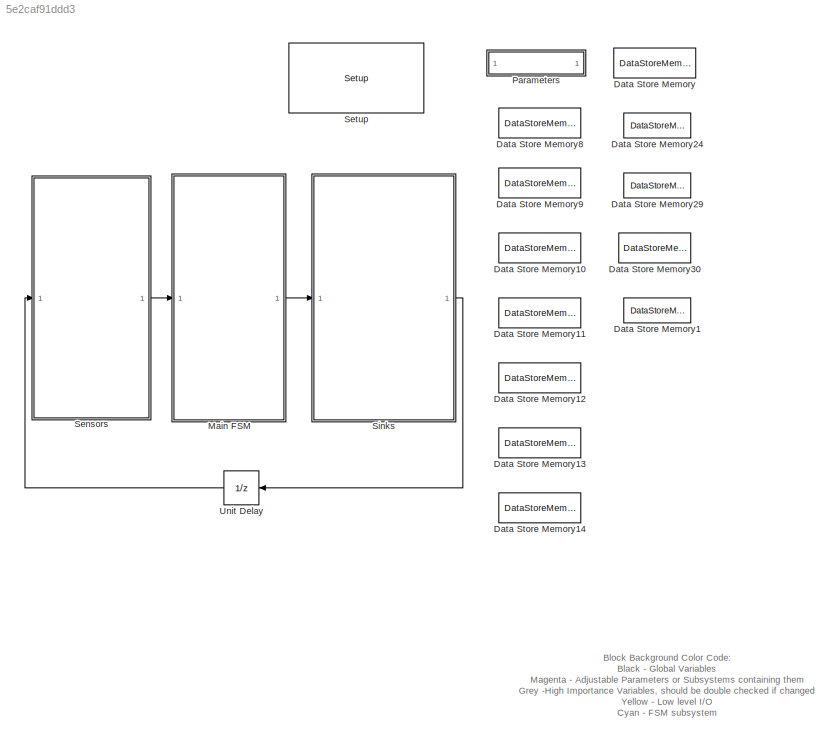
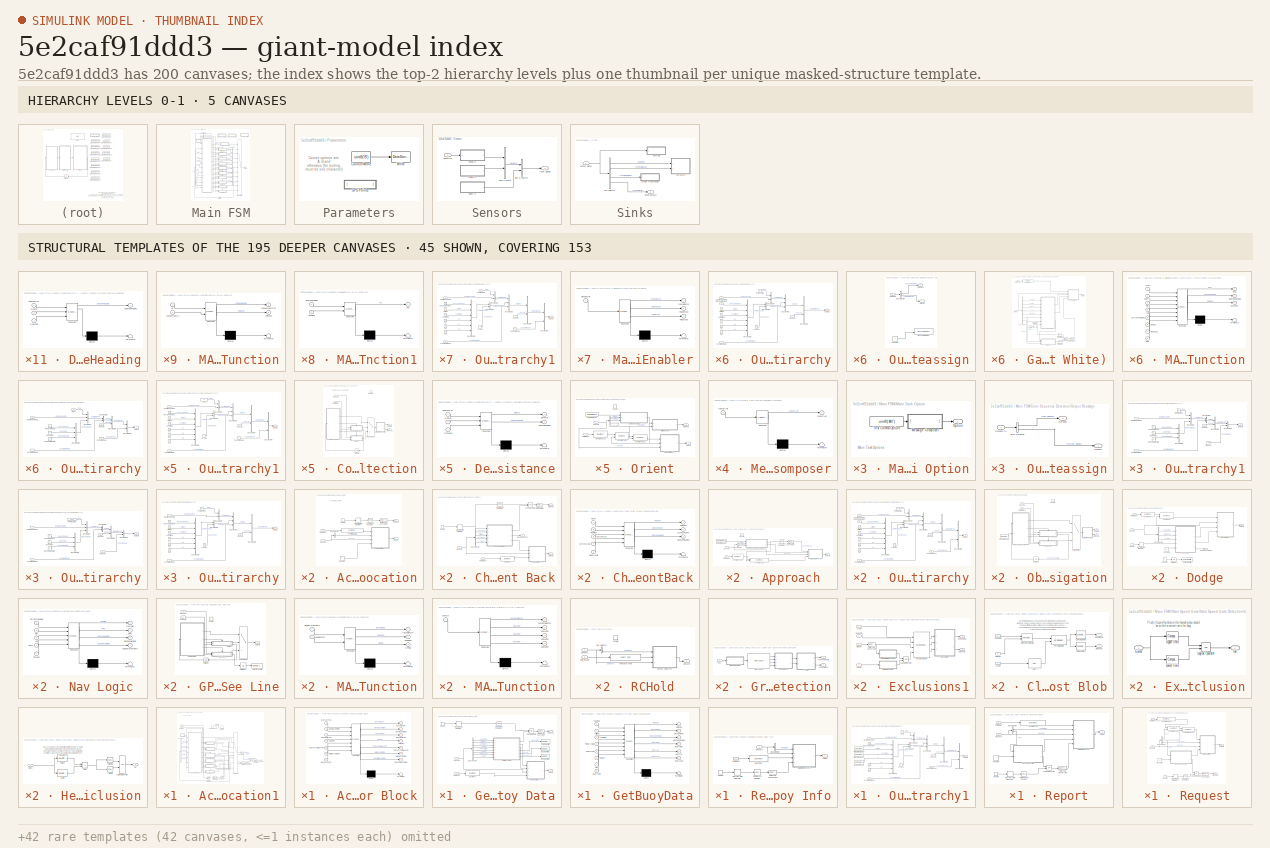
[diagram: thumbnail index - top-2 hierarchy levels (5 canvases) + 45 structural-template representatives of the remaining 195 canvases]
MODEL slx_5e2caf91ddd3
KIND model
BLOCK [DataStoreMemory] Data Store Memory
  DataStoreName = Course
  ReadBeforeWriteMsg = warning
  WriteAfterReadMsg = warning
  WriteAfterWriteMsg = warning
BLOCK [DataStoreMemory] Data Store Memory1
  DataStoreName = dockBay
  ReadBeforeWriteMsg = warning
  WriteAfterReadMsg = warning
  WriteAfterWriteMsg = warning
BLOCK [DataStoreMemory] Data Store Memory10
  DataStoreName = obstNavStartGPS
  InitialValue = zeros(1,2)
  ReadBeforeWriteMsg = warning
  WriteAfterReadMsg = warning
  WriteAfterWriteMsg = warning
BLOCK [DataStoreMemory] Data Store Memory11
  DataStoreName = obstNavEndGPS
  InitialValue = zeros(1,2)
  ReadBeforeWriteMsg = warning
  WriteAfterReadMsg = warning
  WriteAfterWriteMsg = warning
BLOCK [DataStoreMemory] Data Store Memory12
  DataStoreName = acouLocGPS
  InitialValue = zeros(1,2)
  ReadBeforeWriteMsg = warning
  WriteAfterReadMsg = warning
  WriteAfterWriteMsg = warning
BLOCK [DataStoreMemory] Data Store Memory13
  DataStoreName = dockGPS
  InitialValue = zeros(1,2)
  ReadBeforeWriteMsg = warning
  WriteAfterReadMsg = warning
  WriteAfterWriteMsg = warning
BLOCK [DataStoreMemory] Data Store Memory14
  DataStoreName = returnGPS
  InitialValue = zeros(1,2)
  ReadBeforeWriteMsg = warning
  WriteAfterReadMsg = warning
  WriteAfterWriteMsg = warning
BLOCK [DataStoreMemory] Data Store Memory24
  DataStoreName = enterGate
  ReadBeforeWriteMsg = warning
  WriteAfterReadMsg = warning
  WriteAfterWriteMsg = warning
BLOCK [DataStoreMemory] Data Store Memory29
  DataStoreName = exitGate
  ReadBeforeWriteMsg = warning
  WriteAfterReadMsg = warning
  WriteAfterWriteMsg = warning
BLOCK [DataStoreMemory] Data Store Memory30
  DataStoreName = dodgeStart
  ReadBeforeWriteMsg = warning
  WriteAfterReadMsg = warning
  WriteAfterWriteMsg = warning
BLOCK [DataStoreMemory] Data Store Memory8
  DataStoreName = ssGateGPS
  InitialValue = zeros(1,2)
  ReadBeforeWriteMsg = warning
  WriteAfterReadMsg = warning
  WriteAfterWriteMsg = warning
BLOCK [DataStoreMemory] Data Store Memory9
  DataStoreName = transWpt
  InitialValue = zeros(1,2)
  ReadBeforeWriteMsg = warning
  WriteAfterReadMsg = warning
  WriteAfterWriteMsg = warning
BLOCK [SubSystem] Main FSM
  Ports = [1, 1]
  RequestExecContextInheritance = off
BLOCK [SubSystem] Main FSM/Acoustic Location
  Commented = on
  Ports = [2, 2, 1]
  RequestExecContextInheritance = off
  TreatAsAtomicUnit = on
BLOCK [Reference] Main FSM/Acoustic Location/Annotate Task  REF=visiontextngfix/Insert Text
  Ports = [1, 1]
  SourceBlock = visiontextngfix/Insert Text
  SourceType = Insert Text
  antiAliased = on
  blockFontSize = 12
  dummyVar1 = 0
  dummyVar2 = 0
  dummyVar3 = 0
  dummyVar4 = 0
  fontFace = LucidaSansRegular
  getTextColorFrom = Specify via dialog
  getTextIntensityFrom = Specify via dialog
  getTextLocFrom = Specify via dialog
  getTextOpacityFrom = Specify via dialog
  imagePorts = One multidimensional signal
  inputType = Obsolete
  isInputTransposed = off
  textColor = [0 0 255]
  textIntensity = 0
  textLoc = [10 10]
  textOpacity = 1.0
  theText = 'Acoustic Location...'
BLOCK [BusSelector] Main FSM/Acoustic Location/Bus Selector
  OutputSignals = Serial In.Compass.Heading
  Ports = [1, 1]
BLOCK [Reference] Main FSM/Acoustic Location/Compare To Constant  REF=simulink/Logic and Bit
Operations/Compare
To Constant
  OutDataTypeStr = boolean
  Ports = [1, 1]
  SourceBlock = simulink/Logic and Bit\nOperations/Compare\nTo Constant
  SourceType = Compare To Constant
  ZeroCross = on
  const = 10
  relop = >=
BLOCK [Constant] Main FSM/Acoustic Location/Constant
  Value = 0
BLOCK [DataTypeConversion] Main FSM/Acoustic Location/Data Type Conversion
  OutDataTypeStr = double
  RndMeth = Floor
  SaturateOnIntegerOverflow = off
BLOCK [DiscreteIntegrator] Main FSM/Acoustic Location/Discrete-Time Integrator
  ICPrevOutput = DiscIntNeverNeededParam
  ICPrevScaledInput = DiscIntNeverNeededParam
  Ports = [1, 1]
  SampleTime = 0.1
BLOCK [EnablePort] Main FSM/Acoustic Location/Enable
  Ports = [0, 1]
  ShowOutputPort = on
BLOCK [Outport] Main FSM/Acoustic Location/Finished
  IconDisplay = Port number
  Port = 2
BLOCK [SubSystem] Main FSM/Acoustic Location/Output Heirarchy
  Ports = [4, 1]
  RequestExecContextInheritance = off
BLOCK [Inport] Main FSM/Acoustic Location/Output Heirarchy/Annotated Image
  IconDisplay = Port number
BLOCK [BusCreator] Main FSM/Acoustic Location/Output Heirarchy/Bus Creator
  DisplayOption = bar
  Inputs = 2
  Ports = [2, 1]
BLOCK [BusCreator] Main FSM/Acoustic Location/Output Heirarchy/Bus Creator1
  DisplayOption = bar
  Inputs = 3
  Ports = [3, 1]
BLOCK [BusCreator] Main FSM/Acoustic Location/Output Heirarchy/Bus Creator2
  DisplayOption = bar
  Inputs = 2
  Ports = [2, 1]
BLOCK [BusCreator] Main FSM/Acoustic Location/Output Heirarchy/Bus Creator3
  DisplayOption = bar
  Inputs = 6
  Ports = [6, 1]
BLOCK [BusCreator] Main FSM/Acoustic Location/Output Heirarchy/Bus Creator4
  DisplayOption = bar
  Inputs = 2
  Ports = [2, 1]
BLOCK [Constant] Main FSM/Acoustic Location/Output Heirarchy/C1
  Value = 0
BLOCK [Constant] Main FSM/Acoustic Location/Output Heirarchy/C2
  Value = 0
BLOCK [Constant] Main FSM/Acoustic Location/Output Heirarchy/C3
  Value = 0
BLOCK [Inport] Main FSM/Acoustic Location/Output Heirarchy/Desired Heading
  IconDisplay = Port number
  Port = 2
BLOCK [Constant] Main FSM/Acoustic Location/Output Heirarchy/LPTask
  Value = 0
BLOCK [Constant] Main FSM/Acoustic Location/Output Heirarchy/Latitude
  Value = 0
BLOCK [Constant] Main FSM/Acoustic Location/Output Heirarchy/Longitude
  Value = 0
BLOCK [Outport] Main FSM/Acoustic Location/Output Heirarchy/Outputs
  IconDisplay = Port number
BLOCK [Constant] Main FSM/Acoustic Location/Output Heirarchy/RPM Desired
  Value = 0
BLOCK [Inport] Main FSM/Acoustic Location/Output Heirarchy/Request Number
  IconDisplay = Port number
  Port = 4
BLOCK [Inport] Main FSM/Acoustic Location/Output Heirarchy/Sensors
  IconDisplay = Port number
  Port = 3
BLOCK [Outport] Main FSM/Acoustic Location/Outputs
  IconDisplay = Port number
BLOCK [Inport] Main FSM/Acoustic Location/RGB image
  IconDisplay = Port number
  Port = 2
BLOCK [Inport] Main FSM/Acoustic Location/Sensors
  IconDisplay = Port number
BLOCK [SubSystem] Main FSM/Acoustic Location1
  Ports = [2, 2, 1]
  RequestExecContextInheritance = off
  TreatAsAtomicUnit = on
BLOCK [SubSystem] Main FSM/Acoustic Location1/Acoustic Enabler Block
  ErrorFcn = Stateflow.Translate.translate
  PermitHierarchicalResolution = ExplicitOnly
  Ports = [7, 7]
  RequestExecContextInheritance = off
  SFBlockType = MATLAB Function
  TreatAsAtomicUnit = on
BLOCK [Demux] Main FSM/Acoustic Location1/Acoustic Enabler Block/ Demux 
  Outputs = 1
  Ports = [1, 1]
BLOCK [S-Function] Main FSM/Acoustic Location1/Acoustic Enabler Block/ SFunction 
  EnableBusSupport = on
  FunctionName = sf_sfun
  PortCounts = [7 8]
  Ports = [7, 8]
  Tag = Stateflow S-Function RoboBoatVU_2014_Calypso 61
BLOCK [Terminator] Main FSM/Acoustic Location1/Acoustic Enabler Block/ Terminator 
BLOCK [Outport] Main FSM/Acoustic Location1/Acoustic Enabler Block/CheckFrontBackEn
  IconDisplay = Port number
  Port = 5
BLOCK [Inport] Main FSM/Acoustic Location1/Acoustic Enabler Block/CheckFrontBackFin
  IconDisplay = Port number
  Port = 5
BLOCK [Outport] Main FSM/Acoustic Location1/Acoustic Enabler Block/GPSCenterEn
  IconDisplay = Port number
  Port = 3
BLOCK [Inport] Main FSM/Acoustic Location1/Acoustic Enabler Block/GPSCenterFin
  IconDisplay = Port number
  Port = 3
BLOCK [Outport] Main FSM/Acoustic Location1/Acoustic Enabler Block/GPSWaypointEn
  IconDisplay = Port number
  Port = 2
BLOCK [Inport] Main FSM/Acoustic Location1/Acoustic Enabler Block/GPSWaypointFin
  IconDisplay = Port number
  Port = 2
BLOCK [Outport] Main FSM/Acoustic Location1/Acoustic Enabler Block/GetBuoyDataEn
  IconDisplay = Port number
  Port = 6
BLOCK [Inport] Main FSM/Acoustic Location1/Acoustic Enabler Block/GetBuoyDataFin
  IconDisplay = Port number
  Port = 6
BLOCK [Outport] Main FSM/Acoustic Location1/Acoustic Enabler Block/ListenEn
  IconDisplay = Port number
  Port = 4
BLOCK [Inport] Main FSM/Acoustic Location1/Acoustic Enabler Block/ListenFin
  IconDisplay = Port number
  Port = 4
BLOCK [Inport] Main FSM/Acoustic Location1/Acoustic Enabler Block/MovedTooFar
  IconDisplay = Port number
  Port = 7
BLOCK [Outport] Main FSM/Acoustic Location1/Acoustic Enabler Block/ReportBuoyInfoEn
  IconDisplay = Port number
  Port = 7
BLOCK [Inport] Main FSM/Acoustic Location1/Acoustic Enabler Block/acouLocTask
  IconDisplay = Port number
BLOCK [Outport] Main FSM/Acoustic Location1/Acoustic Enabler Block/taskSelector
  IconDisplay = Port number
BLOCK [BusCreator] Main FSM/Acoustic Location1/Bus Creator
  DisplayOption = bar
  Inputs = 5
  Ports = [5, 1]
BLOCK [BusSelector] Main FSM/Acoustic Location1/Bus Selector
  OutputSignals = GPS Waypoint Fin,GPS Center Fin,ListenFin,CheckFrontBackFin,GetBuoyDataFin
  Ports = [1, 5]
BLOCK [BusSelector] Main FSM/Acoustic Location1/Bus Selector1
  OutputSignals = Output Signals,Task Finished
  Ports = [1, 2]
BLOCK [SubSystem] Main FSM/Acoustic Location1/Check Front Back
  Ports = [2, 3, 1]
  RequestExecContextInheritance = off
  TreatAsAtomicUnit = on
BLOCK [BusSelector] Main FSM/Acoustic Location1/Check Front Back/Bus Selector
  OutputSignals = Serial In.Compass.Heading,Serial In.GPS.latitude,Serial In.GPS.longitude,Serial In.Arduino Messages.Angle
  Ports = [1, 4]
BLOCK [SubSystem] Main FSM/Acoustic Location1/Check Front Back/CheckFrontBack
  ErrorFcn = Stateflow.Translate.translate
  PermitHierarchicalResolution = ExplicitOnly
  Ports = [5, 3]
  RequestExecContextInheritance = off
  SFBlockType = MATLAB Function
  TreatAsAtomicUnit = on
BLOCK [Demux] Main FSM/Acoustic Location1/Check Front Back/CheckFrontBack/ Demux 
  Outputs = 1
  Ports = [1, 1]
BLOCK [S-Function] Main FSM/Acoustic Location1/Check Front Back/CheckFrontBack/ SFunction 
  EnableBusSupport = on
  FunctionName = sf_sfun
  PortCounts = [5 4]
  Ports = [5, 4]
  Tag = Stateflow S-Function RoboBoatVU_2014_Calypso 62
BLOCK [Terminator] Main FSM/Acoustic Location1/Check Front Back/CheckFrontBack/ Terminator 
BLOCK [Inport] Main FSM/Acoustic Location1/Check Front Back/CheckFrontBack/CurrentLat
  IconDisplay = Port number
  Port = 3
BLOCK [Inport] Main FSM/Acoustic Location1/Check Front Back/CheckFrontBack/CurrentLong
  IconDisplay = Port number
  Port = 4
BLOCK [Outport] Main FSM/Acoustic Location1/Check Front Back/CheckFrontBack/DesiredHeading
  IconDisplay = Port number
  Port = 3
BLOCK [Outport] Main FSM/Acoustic Location1/Check Front Back/CheckFrontBack/Finished
  IconDisplay = Port number
BLOCK [Inport] Main FSM/Acoustic Location1/Check Front Back/CheckFrontBack/Heading
  IconDisplay = Port number
  Port = 2
BLOCK [Outport] Main FSM/Acoustic Location1/Check Front Back/CheckFrontBack/MovedTooFar
  IconDisplay = Port number
  Port = 2
BLOCK [Inport] Main FSM/Acoustic Location1/Check Front Back/CheckFrontBack/PingerAngle
  IconDisplay = Port number
  Port = 5
BLOCK [Inport] Main FSM/Acoustic Location1/Check Front Back/CheckFrontBack/Timer
  IconDisplay = Port number
BLOCK [Reference] Main FSM/Acoustic Location1/Check Front Back/Compare To Constant  REF=simulink/Logic and Bit
Operations/Compare
To Constant
  OutDataTypeStr = boolean
  Ports = [1, 1]
  SourceBlock = simulink/Logic and Bit\nOperations/Compare\nTo Constant
  SourceType = Compare To Constant
  ZeroCross = on
  const = 45
  relop = >
BLOCK [DataTypeConversion] Main FSM/Acoustic Location1/Check Front Back/Data Type Conversion
  OutDataTypeStr = double
  RndMeth = Floor
  SaturateOnIntegerOverflow = off
BLOCK [DiscreteIntegrator] Main FSM/Acoustic Location1/Check Front Back/Discrete-Time Integrator
  ICPrevOutput = DiscIntNeverNeededParam
  ICPrevScaledInput = DiscIntNeverNeededParam
  Ports = [1, 1]
  SampleTime = 0.1
BLOCK [EnablePort] Main FSM/Acoustic Location1/Check Front Back/Enable
  Ports = [0, 1]
  ShowOutputPort = on
BLOCK [Outport] Main FSM/Acoustic Location1/Check Front Back/Finished
  IconDisplay = Port number
  Port = 2
BLOCK [Reference] Main FSM/Acoustic Location1/Check Front Back/Insert Text  REF=visiontextngfix/Insert Text
  Ports = [1, 1]
  SourceBlock = visiontextngfix/Insert Text
  SourceType = Insert Text
  antiAliased = on
  blockFontSize = 12
  dummyVar1 = 0
  dummyVar2 = 0
  dummyVar3 = 0
  dummyVar4 = 0
  fontFace = LucidaSansRegular
  getTextColorFrom = Specify via dialog
  getTextIntensityFrom = Specify via dialog
  getTextLocFrom = Specify via dialog
  getTextOpacityFrom = Specify via dialog
  imagePorts = One multidimensional signal
  inputType = Obsolete
  isInputTransposed = off
  textColor = [0 0 0]
  textIntensity = 0
  textLoc = [10 10]
  textOpacity = 1.0
  theText = 'FindBuoy'
BLOCK [Logic] Main FSM/Acoustic Location1/Check Front Back/Logical Operator
  AllPortsSameDT = off
  IconShape = distinctive
  Operator = OR
  OutDataTypeStr = boolean
  Ports = [2, 1]
BLOCK [Outport] Main FSM/Acoustic Location1/Check Front Back/MovedTooFar
  IconDisplay = Port number
  Port = 3
BLOCK [SubSystem] Main FSM/Acoustic Location1/Check Front Back/Output Heirarchy1
  Ports = [3, 1]
  RequestExecContextInheritance = off
BLOCK [Inport] Main FSM/Acoustic Location1/Check Front Back/Output Heirarchy1/Annotated Image
  IconDisplay = Port number
  Port = 3
BLOCK [BusCreator] Main FSM/Acoustic Location1/Check Front Back/Output Heirarchy1/Bus Creator
  DisplayOption = bar
  Inputs = 2
  Ports = [2, 1]
BLOCK [BusCreator] Main FSM/Acoustic Location1/Check Front Back/Output Heirarchy1/Bus Creator1
  DisplayOption = bar
  Inputs = 3
  Ports = [3, 1]
BLOCK [BusCreator] Main FSM/Acoustic Location1/Check Front Back/Output Heirarchy1/Bus Creator2
  DisplayOption = bar
  Inputs = 2
  Ports = [2, 1]
BLOCK [BusCreator] Main FSM/Acoustic Location1/Check Front Back/Output Heirarchy1/Bus Creator3
  DisplayOption = bar
  Inputs = 6
  Ports = [6, 1]
BLOCK [BusCreator] Main FSM/Acoustic Location1/Check Front Back/Output Heirarchy1/Bus Creator4
  DisplayOption = bar
  Inputs = 2
  Ports = [2, 1]
BLOCK [BusCreator] Main FSM/Acoustic Location1/Check Front Back/Output Heirarchy1/Bus Creator5
  DisplayOption = bar
  Inputs = 2
  Ports = [2, 1]
BLOCK [Constant] Main FSM/Acoustic Location1/Check Front Back/Output Heirarchy1/C1
  Value = 0
BLOCK [Constant] Main FSM/Acoustic Location1/Check Front Back/Output Heirarchy1/C2
  Value = 0
BLOCK [Constant] Main FSM/Acoustic Location1/Check Front Back/Output Heirarchy1/C3
  Value = 0
BLOCK [Inport] Main FSM/Acoustic Location1/Check Front Back/Output Heirarchy1/Desired Heading
  IconDisplay = Port number
BLOCK [Constant] Main FSM/Acoustic Location1/Check Front Back/Output Heirarchy1/LPTask
BLOCK [Constant] Main FSM/Acoustic Location1/Check Front Back/Output Heirarchy1/Latitude
  Value = 0
BLOCK [Constant] Main FSM/Acoustic Location1/Check Front Back/Output Heirarchy1/Longitude
  Value = 0
BLOCK [Outport] Main FSM/Acoustic Location1/Check Front Back/Output Heirarchy1/Outputs
  IconDisplay = Port number
BLOCK [Constant] Main FSM/Acoustic Location1/Check Front Back/Output Heirarchy1/RPM
  Value = 0
BLOCK [Constant] Main FSM/Acoustic Location1/Check Front Back/Output Heirarchy1/Request Number
  Value = 0
BLOCK [Inport] Main FSM/Acoustic Location1/Check Front Back/Output Heirarchy1/Sensors
  IconDisplay = Port number
  Port = 2
BLOCK [Constant] Main FSM/Acoustic Location1/Check Front Back/Output Heirarchy1/TaskFinished
  Value = 0
BLOCK [Outport] Main FSM/Acoustic Location1/Check Front Back/Outputs
  IconDisplay = Port number
BLOCK [Inport] Main FSM/Acoustic Location1/Check Front Back/RGB Image
  IconDisplay = Port number
  Port = 2
BLOCK [Inport] Main FSM/Acoustic Location1/Check Front Back/Sensors
  IconDisplay = Port number
BLOCK [Reference] Main FSM/Acoustic Location1/Compare To Constant  REF=simulink/Logic and Bit
Operations/Compare
To Constant
  OutDataTypeStr = boolean
  Ports = [1, 1]
  SourceBlock = simulink/Logic and Bit\nOperations/Compare\nTo Constant
  SourceType = Compare To Constant
  ZeroCross = on
  const = 180
  relop = >=
BLOCK [DataStoreMemory] Main FSM/Acoustic Location1/Data Store Memory
  DataStoreName = BuoyColor
  ReadBeforeWriteMsg = warning
  WriteAfterReadMsg = warning
  WriteAfterWriteMsg = warning
BLOCK [DataStoreMemory] Main FSM/Acoustic Location1/Data Store Memory1
  DataStoreName = BuoyLat
  ReadBeforeWriteMsg = warning
  WriteAfterReadMsg = warning
  WriteAfterWriteMsg = warning
BLOCK [DataStoreMemory] Main FSM/Acoustic Location1/Data Store Memory2
  DataStoreName = BuoyLong
  ReadBeforeWriteMsg = warning
  WriteAfterReadMsg = warning
  WriteAfterWriteMsg = warning
BLOCK [DataTypeConversion] Main FSM/Acoustic Location1/Data Type Conversion
  OutDataTypeStr = double
  RndMeth = Floor
  SaturateOnIntegerOverflow = off
BLOCK [DataTypeConversion] Main FSM/Acoustic Location1/Data Type Conversion1
  OutDataTypeStr = double
  RndMeth = Floor
  SaturateOnIntegerOverflow = off
BLOCK [DiscreteIntegrator] Main FSM/Acoustic Location1/Discrete-Time Integrator
  ICPrevOutput = DiscIntNeverNeededParam
  ICPrevScaledInput = DiscIntNeverNeededParam
  Ports = [1, 1]
  SampleTime = 0.1
BLOCK [EnablePort] Main FSM/Acoustic Location1/Enable
  Ports = [0, 1]
  ShowOutputPort = on
BLOCK [Outport] Main FSM/Acoustic Location1/Finished
  IconDisplay = Port number
  Port = 2
BLOCK [SubSystem] Main FSM/Acoustic Location1/GPS: Acoustic Center1
  Ports = [2, 2, 1]
  RequestExecContextInheritance = off
  TreatAsAtomicUnit = on
BLOCK [SubSystem] Main FSM/Acoustic Location1/GPS: Acoustic Center1/Approach
  Ports = [2, 1, 1]
  RequestExecContextInheritance = off
  TreatAsAtomicUnit = on
BLOCK [Reference] Main FSM/Acoustic Location1/GPS: Acoustic Center1/Approach/Annotate Task  REF=visiontextngfix/Insert Text
  Ports = [2, 1]
  SourceBlock = visiontextngfix/Insert Text
  SourceType = Insert Text
  antiAliased = on
  blockFontSize = 12
  dummyVar1 = 0
  dummyVar2 = 0
  dummyVar3 = 0
  dummyVar4 = 0
  fontFace = LucidaSansRegular
  getTextColorFrom = Specify via dialog
  getTextIntensityFrom = Specify via dialog
  getTextLocFrom = Specify via dialog
  getTextOpacityFrom = Specify via dialog
  imagePorts = One multidimensional signal
  inputType = Obsolete
  isInputTransposed = off
  textColor = [255 0 0]
  textIntensity = 0
  textLoc = [10 70]
  textOpacity = 1.0
  theText = 'Distance: %f'
BLOCK [Reference] Main FSM/Acoustic Location1/GPS: Acoustic Center1/Approach/Annotate Task2  REF=visiontextngfix/Insert Text
  Ports = [1, 1]
  SourceBlock = visiontextngfix/Insert Text
  SourceType = Insert Text
  antiAliased = on
  blockFontSize = 12
  dummyVar1 = 0
  dummyVar2 = 0
  dummyVar3 = 0
  dummyVar4 = 0
  fontFace = LucidaSansRegular
  getTextColorFrom = Specify via dialog
  getTextIntensityFrom = Specify via dialog
  getTextLocFrom = Specify via dialog
  getTextOpacityFrom = Specify via dialog
  imagePorts = One multidimensional signal
  inputType = Obsolete
  isInputTransposed = off
  textColor = [0 0 0]
  textIntensity = 0
  textLoc = [1 1]
  textOpacity = 1.0
  theText = 'GPS: Acoustic Center - Approach'
BLOCK [BusSelector] Main FSM/Acoustic Location1/GPS: Acoustic Center1/Approach/Bus Selector
  OutputSignals = Serial In.GPS.latitude,Serial In.GPS.longitude
  Ports = [1, 2]
BLOCK [Reference] Main FSM/Acoustic Location1/GPS: Acoustic Center1/Approach/Compare To Constant  REF=simulink/Logic and Bit
Operations/Compare
To Constant
  OutDataTypeStr = boolean
  Ports = [1, 1]
  SourceBlock = simulink/Logic and Bit\nOperations/Compare\nTo Constant
  SourceType = Compare To Constant
  ZeroCross = on
  const = 5
  relop = <=
BLOCK [DataStoreRead] Main FSM/Acoustic Location1/GPS: Acoustic Center1/Approach/Data Store Read
  DataStoreName = acouLocGPS
  Ports = [0, 1]
  SampleTime = 0.1
BLOCK [DataTypeConversion] Main FSM/Acoustic Location1/GPS: Acoustic Center1/Approach/Data Type Conversion
  OutDataTypeStr = double
  RndMeth = Floor
  SaturateOnIntegerOverflow = off
BLOCK [SubSystem] Main FSM/Acoustic Location1/GPS: Acoustic Center1/Approach/Desired Heading and Distance
  ErrorFcn = Stateflow.Translate.translate
  PermitHierarchicalResolution = ExplicitOnly
  Ports = [3, 2]
  RequestExecContextInheritance = off
  SFBlockType = MATLAB Function
  TreatAsAtomicUnit = on
BLOCK [Demux] Main FSM/Acoustic Location1/GPS: Acoustic Center1/Approach/Desired Heading and Distance/ Demux 
  Outputs = 1
  Ports = [1, 1]
BLOCK [S-Function] Main FSM/Acoustic Location1/GPS: Acoustic Center1/Approach/Desired Heading and Distance/ SFunction 
  EnableBusSupport = on
  FunctionName = sf_sfun
  PortCounts = [3 3]
  Ports = [3, 3]
  Tag = Stateflow S-Function RoboBoatVU_2014_Calypso 63
BLOCK [Terminator] Main FSM/Acoustic Location1/GPS: Acoustic Center1/Approach/Desired Heading and Distance/ Terminator 
BLOCK [Inport] Main FSM/Acoustic Location1/GPS: Acoustic Center1/Approach/Desired Heading and Distance/DesiredGPS
  IconDisplay = Port number
BLOCK [Outport] Main FSM/Acoustic Location1/GPS: Acoustic Center1/Approach/Desired Heading and Distance/DesiredHeading
  IconDisplay = Port number
  Port = 2
BLOCK [Outport] Main FSM/Acoustic Location1/GPS: Acoustic Center1/Approach/Desired Heading and Distance/Distance
  IconDisplay = Port number
BLOCK [Inport] Main FSM/Acoustic Location1/GPS: Acoustic Center1/Approach/Desired Heading and Distance/GPSLat
  IconDisplay = Port number
  Port = 2
BLOCK [Inport] Main FSM/Acoustic Location1/GPS: Acoustic Center1/Approach/Desired Heading and Distance/GPSLong
  IconDisplay = Port number
  Port = 3
BLOCK [EnablePort] Main FSM/Acoustic Location1/GPS: Acoustic Center1/Approach/Enable
  Ports = []
BLOCK [SubSystem] Main FSM/Acoustic Location1/GPS: Acoustic Center1/Approach/Output Heirarchy1
  Ports = [4, 1]
  RequestExecContextInheritance = off
BLOCK [Inport] Main FSM/Acoustic Location1/GPS: Acoustic Center1/Approach/Output Heirarchy1/Annotated Image
  IconDisplay = Port number
  Port = 4
BLOCK [BusCreator] Main FSM/Acoustic Location1/GPS: Acoustic Center1/Approach/Output Heirarchy1/Bus Creator
  DisplayOption = bar
  Inputs = 2
  Ports = [2, 1]
BLOCK [BusCreator] Main FSM/Acoustic Location1/GPS: Acoustic Center1/Approach/Output Heirarchy1/Bus Creator1
  DisplayOption = bar
  Inputs = 3
  Ports = [3, 1]
BLOCK [BusCreator] Main FSM/Acoustic Location1/GPS: Acoustic Center1/Approach/Output Heirarchy1/Bus Creator2
  DisplayOption = bar
  Inputs = 2
  Ports = [2, 1]
BLOCK [BusCreator] Main FSM/Acoustic Location1/GPS: Acoustic Center1/Approach/Output Heirarchy1/Bus Creator3
  DisplayOption = bar
  Inputs = 6
  Ports = [6, 1]
BLOCK [BusCreator] Main FSM/Acoustic Location1/GPS: Acoustic Center1/Approach/Output Heirarchy1/Bus Creator4
  DisplayOption = bar
  Inputs = 2
  Ports = [2, 1]
BLOCK [BusCreator] Main FSM/Acoustic Location1/GPS: Acoustic Center1/Approach/Output Heirarchy1/Bus Creator5
  DisplayOption = bar
  Inputs = 2
  Ports = [2, 1]
BLOCK [Constant] Main FSM/Acoustic Location1/GPS: Acoustic Center1/Approach/Output Heirarchy1/C1
  Value = 0
BLOCK [Constant] Main FSM/Acoustic Location1/GPS: Acoustic Center1/Approach/Output Heirarchy1/C2
  Value = 0
BLOCK [Constant] Main FSM/Acoustic Location1/GPS: Acoustic Center1/Approach/Output Heirarchy1/C3
  Value = 0
BLOCK [Inport] Main FSM/Acoustic Location1/GPS: Acoustic Center1/Approach/Output Heirarchy1/Desired Heading
  IconDisplay = Port number
  Port = 2
BLOCK [Constant] Main FSM/Acoustic Location1/GPS: Acoustic Center1/Approach/Output Heirarchy1/LPTask
BLOCK [Constant] Main FSM/Acoustic Location1/GPS: Acoustic Center1/Approach/Output Heirarchy1/Latitude
  Value = 0
BLOCK [Constant] Main FSM/Acoustic Location1/GPS: Acoustic Center1/Approach/Output Heirarchy1/Longitude
  Value = 0
BLOCK [Outport] Main FSM/Acoustic Location1/GPS: Acoustic Center1/Approach/Output Heirarchy1/Outputs
  IconDisplay = Port number
BLOCK [Constant] Main FSM/Acoustic Location1/GPS: Acoustic Center1/Approach/Output Heirarchy1/RPM
  Value = 0
BLOCK [Constant] Main FSM/Acoustic Location1/GPS: Acoustic Center1/Approach/Output Heirarchy1/Request Number
  Value = 0
BLOCK [Inport] Main FSM/Acoustic Location1/GPS: Acoustic Center1/Approach/Output Heirarchy1/Sensors
  IconDisplay = Port number
  Port = 3
BLOCK [Inport] Main FSM/Acoustic Location1/GPS: Acoustic Center1/Approach/Output Heirarchy1/Task Finished
  IconDisplay = Port number
BLOCK [Outport] Main FSM/Acoustic Location1/GPS: Acoustic Center1/Approach/Outputs
  IconDisplay = Port number
BLOCK [Inport] Main FSM/Acoustic Location1/GPS: Acoustic Center1/Approach/RGB image
  IconDisplay = Port number
  Port = 2
BLOCK [Inport] Main FSM/Acoustic Location1/GPS: Acoustic Center1/Approach/Sensors
  IconDisplay = Port number
BLOCK [EnablePort] Main FSM/Acoustic Location1/GPS: Acoustic Center1/Enable
  Ports = []
BLOCK [Outport] Main FSM/Acoustic Location1/GPS: Acoustic Center1/Finished
  IconDisplay = Port number
  Port = 2
BLOCK [SubSystem] Main FSM/Acoustic Location1/GPS: Acoustic Center1/GPS Enabler
  ErrorFcn = Stateflow.Translate.translate
  PermitHierarchicalResolution = ExplicitOnly
  Ports = [1, 3]
  RequestExecContextInheritance = off
  SFBlockType = MATLAB Function
  TreatAsAtomicUnit = on
BLOCK [Demux] Main FSM/Acoustic Location1/GPS: Acoustic Center1/GPS Enabler/ Demux 
  Outputs = 1
  Ports = [1, 1]
BLOCK [S-Function] Main FSM/Acoustic Location1/GPS: Acoustic Center1/GPS Enabler/ SFunction 
  EnableBusSupport = on
  FunctionName = sf_sfun
  PortCounts = [1 4]
  Ports = [1, 4]
  Tag = Stateflow S-Function RoboBoatVU_2014_Calypso 64
BLOCK [Terminator] Main FSM/Acoustic Location1/GPS: Acoustic Center1/GPS Enabler/ Terminator 
BLOCK [Outport] Main FSM/Acoustic Location1/GPS: Acoustic Center1/GPS Enabler/ApproachEn
  IconDisplay = Port number
  Port = 3
BLOCK [Inport] Main FSM/Acoustic Location1/GPS: Acoustic Center1/GPS Enabler/Finished
  IconDisplay = Port number
BLOCK [Outport] Main FSM/Acoustic Location1/GPS: Acoustic Center1/GPS Enabler/GPSMode
  IconDisplay = Port number
BLOCK [Outport] Main FSM/Acoustic Location1/GPS: Acoustic Center1/GPS Enabler/OrientEn
  IconDisplay = Port number
  Port = 2
BLOCK [MultiPortSwitch] Main FSM/Acoustic Location1/GPS: Acoustic Center1/GPS Selector
  InputSameDT = off
  Inputs = 2
  Ports = [3, 1]
  SaturateOnIntegerOverflow = off
BLOCK [SubSystem] Main FSM/Acoustic Location1/GPS: Acoustic Center1/Orient
  Ports = [2, 2, 1]
  RequestExecContextInheritance = off
  TreatAsAtomicUnit = on
BLOCK [Reference] Main FSM/Acoustic Location1/GPS: Acoustic Center1/Orient/Annotate Task  REF=visiontextngfix/Insert Text
  Ports = [2, 1]
  SourceBlock = visiontextngfix/Insert Text
  SourceType = Insert Text
  antiAliased = on
  blockFontSize = 12
  dummyVar1 = 0
  dummyVar2 = 0
  dummyVar3 = 0
  dummyVar4 = 0
  fontFace = LucidaSansRegular
  getTextColorFrom = Specify via dialog
  getTextIntensityFrom = Specify via dialog
  getTextLocFrom = Specify via dialog
  getTextOpacityFrom = Specify via dialog
  imagePorts = One multidimensional signal
  inputType = Obsolete
  isInputTransposed = off
  textColor = [0 0 0]
  textIntensity = 0
  textLoc = [10 70]
  textOpacity = 1.0
  theText = 'Desired Heading: %f'
BLOCK [Reference] Main FSM/Acoustic Location1/GPS: Acoustic Center1/Orient/Annotate Task1  REF=visiontextngfix/Insert Text
  Ports = [2, 1]
  SourceBlock = visiontextngfix/Insert Text
  SourceType = Insert Text
  antiAliased = on
  blockFontSize = 12
  dummyVar1 = 0
  dummyVar2 = 0
  dummyVar3 = 0
  dummyVar4 = 0
  fontFace = LucidaSansRegular
  getTextColorFrom = Specify via dialog
  getTextIntensityFrom = Specify via dialog
  getTextLocFrom = Specify via dialog
  getTextOpacityFrom = Specify via dialog
  imagePorts = One multidimensional signal
  inputType = Obsolete
  isInputTransposed = off
  textColor = [0 0 0]
  textIntensity = 0
  textLoc = [10 40]
  textOpacity = 1.0
  theText = 'Current Heading: %f'
BLOCK [Reference] Main FSM/Acoustic Location1/GPS: Acoustic Center1/Orient/Annotate Task2  REF=visiontextngfix/Insert Text
  Ports = [1, 1]
  SourceBlock = visiontextngfix/Insert Text
  SourceType = Insert Text
  antiAliased = on
  blockFontSize = 12
  dummyVar1 = 0
  dummyVar2 = 0
  dummyVar3 = 0
  dummyVar4 = 0
  fontFace = LucidaSansRegular
  getTextColorFrom = Specify via dialog
  getTextIntensityFrom = Specify via dialog
  getTextLocFrom = Specify via dialog
  getTextOpacityFrom = Specify via dialog
  imagePorts = One multidimensional signal
  inputType = Obsolete
  isInputTransposed = off
  textColor = [0 0 0]
  textIntensity = 0
  textLoc = [1 1]
  textOpacity = 1.0
  theText = 'GPS: Acoustic Center - Orient Task'
BLOCK [BusSelector] Main FSM/Acoustic Location1/GPS: Acoustic Center1/Orient/Bus Selector
  OutputSignals = Serial In.GPS.latitude,Serial In.GPS.longitude,Serial In.Compass.Heading
  Ports = [1, 3]
BLOCK [DataStoreRead] Main FSM/Acoustic Location1/GPS: Acoustic Center1/Orient/Data Store Read
  DataStoreName = acouLocGPS
  Ports = [0, 1]
  SampleTime = 0.1
BLOCK [SubSystem] Main FSM/Acoustic Location1/GPS: Acoustic Center1/Orient/Desired Heading
  ErrorFcn = Stateflow.Translate.translate
  PermitHierarchicalResolution = ExplicitOnly
  Ports = [3, 1]
  RequestExecContextInheritance = off
  SFBlockType = MATLAB Function
  TreatAsAtomicUnit = on
BLOCK [Demux] Main FSM/Acoustic Location1/GPS: Acoustic Center1/Orient/Desired Heading/ Demux 
  Outputs = 1
  Ports = [1, 1]
BLOCK [S-Function] Main FSM/Acoustic Location1/GPS: Acoustic Center1/Orient/Desired Heading/ SFunction 
  EnableBusSupport = on
  FunctionName = sf_sfun
  PortCounts = [3 2]
  Ports = [3, 2]
  Tag = Stateflow S-Function RoboBoatVU_2014_Calypso 65
BLOCK [Terminator] Main FSM/Acoustic Location1/GPS: Acoustic Center1/Orient/Desired Heading/ Terminator 
BLOCK [Inport] Main FSM/Acoustic Location1/GPS: Acoustic Center1/Orient/Desired Heading/DesiredGPS
  IconDisplay = Port number
BLOCK [Outport] Main FSM/Acoustic Location1/GPS: Acoustic Center1/Orient/Desired Heading/DesiredHeading
  IconDisplay = Port number
BLOCK [Inport] Main FSM/Acoustic Location1/GPS: Acoustic Center1/Orient/Desired Heading/GPSLat
  IconDisplay = Port number
  Port = 2
BLOCK [Inport] Main FSM/Acoustic Location1/GPS: Acoustic Center1/Orient/Desired Heading/GPSLong
  IconDisplay = Port number
  Port = 3
BLOCK [EnablePort] Main FSM/Acoustic Location1/GPS: Acoustic Center1/Orient/Enable
  Ports = []
BLOCK [Outport] Main FSM/Acoustic Location1/GPS: Acoustic Center1/Orient/Finished
  IconDisplay = Port number
  Port = 2
BLOCK [SubSystem] Main FSM/Acoustic Location1/GPS: Acoustic Center1/Orient/Output Heirarchy1
  Ports = [3, 1]
  RequestExecContextInheritance = off
BLOCK [Inport] Main FSM/Acoustic Location1/GPS: Acoustic Center1/Orient/Output Heirarchy1/Annotated Image
  IconDisplay = Port number
BLOCK [BusCreator] Main FSM/Acoustic Location1/GPS: Acoustic Center1/Orient/Output Heirarchy1/Bus Creator
  DisplayOption = bar
  Inputs = 2
  Ports = [2, 1]
BLOCK [BusCreator] Main FSM/Acoustic Location1/GPS: Acoustic Center1/Orient/Output Heirarchy1/Bus Creator1
  DisplayOption = bar
  Inputs = 3
  Ports = [3, 1]
BLOCK [BusCreator] Main FSM/Acoustic Location1/GPS: Acoustic Center1/Orient/Output Heirarchy1/Bus Creator2
  DisplayOption = bar
  Inputs = 2
  Ports = [2, 1]
BLOCK [BusCreator] Main FSM/Acoustic Location1/GPS: Acoustic Center1/Orient/Output Heirarchy1/Bus Creator3
  DisplayOption = bar
  Inputs = 6
  Ports = [6, 1]
BLOCK [BusCreator] Main FSM/Acoustic Location1/GPS: Acoustic Center1/Orient/Output Heirarchy1/Bus Creator4
  DisplayOption = bar
  Inputs = 2
  Ports = [2, 1]
BLOCK [BusCreator] Main FSM/Acoustic Location1/GPS: Acoustic Center1/Orient/Output Heirarchy1/Bus Creator5
  DisplayOption = bar
  Inputs = 2
  Ports = [2, 1]
BLOCK [Constant] Main FSM/Acoustic Location1/GPS: Acoustic Center1/Orient/Output Heirarchy1/C1
  Value = 0
BLOCK [Constant] Main FSM/Acoustic Location1/GPS: Acoustic Center1/Orient/Output Heirarchy1/C2
  Value = 0
BLOCK [Constant] Main FSM/Acoustic Location1/GPS: Acoustic Center1/Orient/Output Heirarchy1/C3
  Value = 0
BLOCK [Inport] Main FSM/Acoustic Location1/GPS: Acoustic Center1/Orient/Output Heirarchy1/Desired Heading
  IconDisplay = Port number
  Port = 2
BLOCK [Constant] Main FSM/Acoustic Location1/GPS: Acoustic Center1/Orient/Output Heirarchy1/LPTask
BLOCK [Constant] Main FSM/Acoustic Location1/GPS: Acoustic Center1/Orient/Output Heirarchy1/Latitude
  Value = 0
BLOCK [Constant] Main FSM/Acoustic Location1/GPS: Acoustic Center1/Orient/Output Heirarchy1/Longitude
  Value = 0
BLOCK [Outport] Main FSM/Acoustic Location1/GPS: Acoustic Center1/Orient/Output Heirarchy1/Outputs
  IconDisplay = Port number
BLOCK [Constant] Main FSM/Acoustic Location1/GPS: Acoustic Center1/Orient/Output Heirarchy1/RPM
  Value = 0
BLOCK [Constant] Main FSM/Acoustic Location1/GPS: Acoustic Center1/Orient/Output Heirarchy1/Request Number
  Value = 0
BLOCK [Inport] Main FSM/Acoustic Location1/GPS: Acoustic Center1/Orient/Output Heirarchy1/Sensors
  IconDisplay = Port number
  Port = 3
BLOCK [Constant] Main FSM/Acoustic Location1/GPS: Acoustic Center1/Orient/Output Heirarchy1/TaskFinished
  Value = 0
BLOCK [Outport] Main FSM/Acoustic Location1/GPS: Acoustic Center1/Orient/Outputs
  IconDisplay = Port number
BLOCK [Inport] Main FSM/Acoustic Location1/GPS: Acoustic Center1/Orient/RGB image
  IconDisplay = Port number
  Port = 2
BLOCK [Inport] Main FSM/Acoustic Location1/GPS: Acoustic Center1/Orient/Sensors
  IconDisplay = Port number
BLOCK [SubSystem] Main FSM/Acoustic Location1/GPS: Acoustic Center1/Orient/Within Range
  ErrorFcn = Stateflow.Translate.translate
  PermitHierarchicalResolution = ExplicitOnly
  Ports = [2, 1]
  RequestExecContextInheritance = off
  SFBlockType = MATLAB Function
  TreatAsAtomicUnit = on
BLOCK [Demux] Main FSM/Acoustic Location1/GPS: Acoustic Center1/Orient/Within Range/ Demux 
  Outputs = 1
  Ports = [1, 1]
BLOCK [S-Function] Main FSM/Acoustic Location1/GPS: Acoustic Center1/Orient/Within Range/ SFunction 
  EnableBusSupport = on
  FunctionName = sf_sfun
  PortCounts = [2 2]
  Ports = [2, 2]
  Tag = Stateflow S-Function RoboBoatVU_2014_Calypso 66
BLOCK [Terminator] Main FSM/Acoustic Location1/GPS: Acoustic Center1/Orient/Within Range/ Terminator 
BLOCK [Inport] Main FSM/Acoustic Location1/GPS: Acoustic Center1/Orient/Within Range/Compass
  IconDisplay = Port number
  Port = 2
BLOCK [Inport] Main FSM/Acoustic Location1/GPS: Acoustic Center1/Orient/Within Range/DesiredHeading
  IconDisplay = Port number
BLOCK [Outport] Main FSM/Acoustic Location1/GPS: Acoustic Center1/Orient/Within Range/Finished
  IconDisplay = Port number
BLOCK [SubSystem] Main FSM/Acoustic Location1/GPS: Acoustic Center1/Output Reassign
  Ports = [1, 2]
  RequestExecContextInheritance = off
BLOCK [BusAssignment] Main FSM/Acoustic Location1/GPS: Acoustic Center1/Output Reassign/Bus Assignment
  AssignedSignals = Task Finished
  Ports = [2, 1]
BLOCK [BusSelector] Main FSM/Acoustic Location1/GPS: Acoustic Center1/Output Reassign/Bus Selector
  OutputSignals = Task Finished
  Ports = [1, 1]
BLOCK [Constant] Main FSM/Acoustic Location1/GPS: Acoustic Center1/Output Reassign/Constant
  Value = 0
BLOCK [Outport] Main FSM/Acoustic Location1/GPS: Acoustic Center1/Output Reassign/Finished
  IconDisplay = Port number
  Port = 2
BLOCK [Outport] Main FSM/Acoustic Location1/GPS: Acoustic Center1/Output Reassign/Outputs
  IconDisplay = Port number
BLOCK [Inport] Main FSM/Acoustic Location1/GPS: Acoustic Center1/Output Reassign/Outputs in
  IconDisplay = Port number
BLOCK [Outport] Main FSM/Acoustic Location1/GPS: Acoustic Center1/Outputs
  IconDisplay = Port number
BLOCK [Inport] Main FSM/Acoustic Location1/GPS: Acoustic Center1/RGB image
  IconDisplay = Port number
  Port = 2
BLOCK [Inport] Main FSM/Acoustic Location1/GPS: Acoustic Center1/Sensors
  IconDisplay = Port number
BLOCK [UnitDelay] Main FSM/Acoustic Location1/GPS: Acoustic Center1/Unit Delay
  InputProcessing = Elements as channels (sample based)
  SampleTime = -1
BLOCK [SubSystem] Main FSM/Acoustic Location1/GPS:Waypoint
  Ports = [2, 2, 1]
  RequestExecContextInheritance = off
  TreatAsAtomicUnit = on
BLOCK [SubSystem] Main FSM/Acoustic Location1/GPS:Waypoint/Approach
  Ports = [2, 1, 1]
  RequestExecContextInheritance = off
  TreatAsAtomicUnit = on
BLOCK [Reference] Main FSM/Acoustic Location1/GPS:Waypoint/Approach/Annotate Task  REF=visiontextngfix/Insert Text
  Ports = [2, 1]
  SourceBlock = visiontextngfix/Insert Text
  SourceType = Insert Text
  antiAliased = on
  blockFontSize = 12
  dummyVar1 = 0
  dummyVar2 = 0
  dummyVar3 = 0
  dummyVar4 = 0
  fontFace = LucidaSansRegular
  getTextColorFrom = Specify via dialog
  getTextIntensityFrom = Specify via dialog
  getTextLocFrom = Specify via dialog
  getTextOpacityFrom = Specify via dialog
  imagePorts = One multidimensional signal
  inputType = Obsolete
  isInputTransposed = off
  textColor = [255 0 0]
  textIntensity = 0
  textLoc = [10 70]
  textOpacity = 1.0
  theText = 'Distance: %f'
BLOCK [Reference] Main FSM/Acoustic Location1/GPS:Waypoint/Approach/Annotate Task2  REF=visiontextngfix/Insert Text
  Ports = [1, 1]
  SourceBlock = visiontextngfix/Insert Text
  SourceType = Insert Text
  antiAliased = on
  blockFontSize = 12
  dummyVar1 = 0
  dummyVar2 = 0
  dummyVar3 = 0
  dummyVar4 = 0
  fontFace = LucidaSansRegular
  getTextColorFrom = Specify via dialog
  getTextIntensityFrom = Specify via dialog
  getTextLocFrom = Specify via dialog
  getTextOpacityFrom = Specify via dialog
  imagePorts = One multidimensional signal
  inputType = Obsolete
  isInputTransposed = off
  textColor = [0 0 0]
  textIntensity = 0
  textLoc = [1 1]
  textOpacity = 1.0
  theText = 'GPS: Acoustic Center - Approach'
BLOCK [BusSelector] Main FSM/Acoustic Location1/GPS:Waypoint/Approach/Bus Selector
  OutputSignals = Serial In.GPS.latitude,Serial In.GPS.longitude
  Ports = [1, 2]
BLOCK [Reference] Main FSM/Acoustic Location1/GPS:Waypoint/Approach/Compare To Constant  REF=simulink/Logic and Bit
Operations/Compare
To Constant
  OutDataTypeStr = boolean
  Ports = [1, 1]
  SourceBlock = simulink/Logic and Bit\nOperations/Compare\nTo Constant
  SourceType = Compare To Constant
  ZeroCross = on
  const = 5
  relop = <=
BLOCK [DataStoreRead] Main FSM/Acoustic Location1/GPS:Waypoint/Approach/Data Store Read
  DataStoreName = transWpt
  Ports = [0, 1]
  SampleTime = 0.1
BLOCK [DataTypeConversion] Main FSM/Acoustic Location1/GPS:Waypoint/Approach/Data Type Conversion
  OutDataTypeStr = double
  RndMeth = Floor
  SaturateOnIntegerOverflow = off
BLOCK [SubSystem] Main FSM/Acoustic Location1/GPS:Waypoint/Approach/Desired Heading and Distance
  ErrorFcn = Stateflow.Translate.translate
  PermitHierarchicalResolution = ExplicitOnly
  Ports = [3, 2]
  RequestExecContextInheritance = off
  SFBlockType = MATLAB Function
  TreatAsAtomicUnit = on
BLOCK [Demux] Main FSM/Acoustic Location1/GPS:Waypoint/Approach/Desired Heading and Distance/ Demux 
  Outputs = 1
  Ports = [1, 1]
BLOCK [S-Function] Main FSM/Acoustic Location1/GPS:Waypoint/Approach/Desired Heading and Distance/ SFunction 
  EnableBusSupport = on
  FunctionName = sf_sfun
  PortCounts = [3 3]
  Ports = [3, 3]
  Tag = Stateflow S-Function RoboBoatVU_2014_Calypso 67
BLOCK [Terminator] Main FSM/Acoustic Location1/GPS:Waypoint/Approach/Desired Heading and Distance/ Terminator 
BLOCK [Inport] Main FSM/Acoustic Location1/GPS:Waypoint/Approach/Desired Heading and Distance/DesiredGPS
  IconDisplay = Port number
BLOCK [Outport] Main FSM/Acoustic Location1/GPS:Waypoint/Approach/Desired Heading and Distance/DesiredHeading
  IconDisplay = Port number
  Port = 2
BLOCK [Outport] Main FSM/Acoustic Location1/GPS:Waypoint/Approach/Desired Heading and Distance/Distance
  IconDisplay = Port number
BLOCK [Inport] Main FSM/Acoustic Location1/GPS:Waypoint/Approach/Desired Heading and Distance/GPSLat
  IconDisplay = Port number
  Port = 2
BLOCK [Inport] Main FSM/Acoustic Location1/GPS:Waypoint/Approach/Desired Heading and Distance/GPSLong
  IconDisplay = Port number
  Port = 3
BLOCK [EnablePort] Main FSM/Acoustic Location1/GPS:Waypoint/Approach/Enable
  Ports = []
BLOCK [SubSystem] Main FSM/Acoustic Location1/GPS:Waypoint/Approach/Output Heirarchy1
  Ports = [4, 1]
  RequestExecContextInheritance = off
BLOCK [Inport] Main FSM/Acoustic Location1/GPS:Waypoint/Approach/Output Heirarchy1/Annotated Image
  IconDisplay = Port number
  Port = 3
BLOCK [BusCreator] Main FSM/Acoustic Location1/GPS:Waypoint/Approach/Output Heirarchy1/Bus Creator
  DisplayOption = bar
  Inputs = 2
  Ports = [2, 1]
BLOCK [BusCreator] Main FSM/Acoustic Location1/GPS:Waypoint/Approach/Output Heirarchy1/Bus Creator1
  DisplayOption = bar
  Inputs = 3
  Ports = [3, 1]
BLOCK [BusCreator] Main FSM/Acoustic Location1/GPS:Waypoint/Approach/Output Heirarchy1/Bus Creator2
  DisplayOption = bar
  Inputs = 2
  Ports = [2, 1]
BLOCK [BusCreator] Main FSM/Acoustic Location1/GPS:Waypoint/Approach/Output Heirarchy1/Bus Creator3
  DisplayOption = bar
  Inputs = 6
  Ports = [6, 1]
BLOCK [BusCreator] Main FSM/Acoustic Location1/GPS:Waypoint/Approach/Output Heirarchy1/Bus Creator4
  DisplayOption = bar
  Inputs = 2
  Ports = [2, 1]
BLOCK [BusCreator] Main FSM/Acoustic Location1/GPS:Waypoint/Approach/Output Heirarchy1/Bus Creator5
  DisplayOption = bar
  Inputs = 2
  Ports = [2, 1]
BLOCK [Constant] Main FSM/Acoustic Location1/GPS:Waypoint/Approach/Output Heirarchy1/C1
  Value = 0
BLOCK [Constant] Main FSM/Acoustic Location1/GPS:Waypoint/Approach/Output Heirarchy1/C2
  Value = 0
BLOCK [Constant] Main FSM/Acoustic Location1/GPS:Waypoint/Approach/Output Heirarchy1/C3
  Value = 0
BLOCK [Inport] Main FSM/Acoustic Location1/GPS:Waypoint/Approach/Output Heirarchy1/Desired Heading
  IconDisplay = Port number
  Port = 2
BLOCK [Constant] Main FSM/Acoustic Location1/GPS:Waypoint/Approach/Output Heirarchy1/LPTask
BLOCK [Constant] Main FSM/Acoustic Location1/GPS:Waypoint/Approach/Output Heirarchy1/Latitude
  Value = 0
BLOCK [Constant] Main FSM/Acoustic Location1/GPS:Waypoint/Approach/Output Heirarchy1/Longitude
  Value = 0
BLOCK [Outport] Main FSM/Acoustic Location1/GPS:Waypoint/Approach/Output Heirarchy1/Outputs
  IconDisplay = Port number
BLOCK [Constant] Main FSM/Acoustic Location1/GPS:Waypoint/Approach/Output Heirarchy1/RPM
  Value = 0
BLOCK [Constant] Main FSM/Acoustic Location1/GPS:Waypoint/Approach/Output Heirarchy1/Request Number
  Value = 0
BLOCK [Inport] Main FSM/Acoustic Location1/GPS:Waypoint/Approach/Output Heirarchy1/Sensors
  IconDisplay = Port number
  Port = 4
BLOCK [Inport] Main FSM/Acoustic Location1/GPS:Waypoint/Approach/Output Heirarchy1/Task Finished
  IconDisplay = Port number
BLOCK [Outport] Main FSM/Acoustic Location1/GPS:Waypoint/Approach/Outputs
  IconDisplay = Port number
BLOCK [Inport] Main FSM/Acoustic Location1/GPS:Waypoint/Approach/RGB image
  IconDisplay = Port number
  Port = 2
BLOCK [Inport] Main FSM/Acoustic Location1/GPS:Waypoint/Approach/Sensors
  IconDisplay = Port number
BLOCK [EnablePort] Main FSM/Acoustic Location1/GPS:Waypoint/Enable
  Ports = []
BLOCK [Outport] Main FSM/Acoustic Location1/GPS:Waypoint/Finished
  IconDisplay = Port number
  Port = 2
BLOCK [SubSystem] Main FSM/Acoustic Location1/GPS:Waypoint/GPS Enabler
  ErrorFcn = Stateflow.Translate.translate
  PermitHierarchicalResolution = ExplicitOnly
  Ports = [1, 3]
  RequestExecContextInheritance = off
  SFBlockType = MATLAB Function
  TreatAsAtomicUnit = on
BLOCK [Demux] Main FSM/Acoustic Location1/GPS:Waypoint/GPS Enabler/ Demux 
  Outputs = 1
  Ports = [1, 1]
BLOCK [S-Function] Main FSM/Acoustic Location1/GPS:Waypoint/GPS Enabler/ SFunction 
  EnableBusSupport = on
  FunctionName = sf_sfun
  PortCounts = [1 4]
  Ports = [1, 4]
  Tag = Stateflow S-Function RoboBoatVU_2014_Calypso 68
BLOCK [Terminator] Main FSM/Acoustic Location1/GPS:Waypoint/GPS Enabler/ Terminator 
BLOCK [Outport] Main FSM/Acoustic Location1/GPS:Waypoint/GPS Enabler/ApproachEn
  IconDisplay = Port number
  Port = 3
BLOCK [Inport] Main FSM/Acoustic Location1/GPS:Waypoint/GPS Enabler/Finished
  IconDisplay = Port number
BLOCK [Outport] Main FSM/Acoustic Location1/GPS:Waypoint/GPS Enabler/GPSMode
  IconDisplay = Port number
BLOCK [Outport] Main FSM/Acoustic Location1/GPS:Waypoint/GPS Enabler/OrientEn
  IconDisplay = Port number
  Port = 2
BLOCK [MultiPortSwitch] Main FSM/Acoustic Location1/GPS:Waypoint/GPS Selector
  InputSameDT = off
  Inputs = 2
  Ports = [3, 1]
  SaturateOnIntegerOverflow = off
BLOCK [SubSystem] Main FSM/Acoustic Location1/GPS:Waypoint/Orient
  Ports = [2, 2, 1]
  RequestExecContextInheritance = off
  TreatAsAtomicUnit = on
BLOCK [Reference] Main FSM/Acoustic Location1/GPS:Waypoint/Orient/Annotate Task  REF=visiontextngfix/Insert Text
  Ports = [2, 1]
  SourceBlock = visiontextngfix/Insert Text
  SourceType = Insert Text
  antiAliased = on
  blockFontSize = 12
  dummyVar1 = 0
  dummyVar2 = 0
  dummyVar3 = 0
  dummyVar4 = 0
  fontFace = LucidaSansRegular
  getTextColorFrom = Specify via dialog
  getTextIntensityFrom = Specify via dialog
  getTextLocFrom = Specify via dialog
  getTextOpacityFrom = Specify via dialog
  imagePorts = One multidimensional signal
  inputType = Obsolete
  isInputTransposed = off
  textColor = [0 0 0]
  textIntensity = 0
  textLoc = [10 70]
  textOpacity = 1.0
  theText = 'Desired Heading: %f'
BLOCK [Reference] Main FSM/Acoustic Location1/GPS:Waypoint/Orient/Annotate Task1  REF=visiontextngfix/Insert Text
  Ports = [2, 1]
  SourceBlock = visiontextngfix/Insert Text
  SourceType = Insert Text
  antiAliased = on
  blockFontSize = 12
  dummyVar1 = 0
  dummyVar2 = 0
  dummyVar3 = 0
  dummyVar4 = 0
  fontFace = LucidaSansRegular
  getTextColorFrom = Specify via dialog
  getTextIntensityFrom = Specify via dialog
  getTextLocFrom = Specify via dialog
  getTextOpacityFrom = Specify via dialog
  imagePorts = One multidimensional signal
  inputType = Obsolete
  isInputTransposed = off
  textColor = [0 0 0]
  textIntensity = 0
  textLoc = [10 40]
  textOpacity = 1.0
  theText = 'Current Heading: %f'
BLOCK [Reference] Main FSM/Acoustic Location1/GPS:Waypoint/Orient/Annotate Task2  REF=visiontextngfix/Insert Text
  Ports = [1, 1]
  SourceBlock = visiontextngfix/Insert Text
  SourceType = Insert Text
  antiAliased = on
  blockFontSize = 12
  dummyVar1 = 0
  dummyVar2 = 0
  dummyVar3 = 0
  dummyVar4 = 0
  fontFace = LucidaSansRegular
  getTextColorFrom = Specify via dialog
  getTextIntensityFrom = Specify via dialog
  getTextLocFrom = Specify via dialog
  getTextOpacityFrom = Specify via dialog
  imagePorts = One multidimensional signal
  inputType = Obsolete
  isInputTransposed = off
  textColor = [0 0 0]
  textIntensity = 0
  textLoc = [1 1]
  textOpacity = 1.0
  theText = 'GPS: Acoustic Center - Orient Task'
BLOCK [BusSelector] Main FSM/Acoustic Location1/GPS:Waypoint/Orient/Bus Selector
  OutputSignals = Serial In.GPS.latitude,Serial In.GPS.longitude,Serial In.Compass.Heading
  Ports = [1, 3]
BLOCK [DataStoreRead] Main FSM/Acoustic Location1/GPS:Waypoint/Orient/Data Store Read
  DataStoreName = transWpt
  Ports = [0, 1]
  SampleTime = 0.1
BLOCK [SubSystem] Main FSM/Acoustic Location1/GPS:Waypoint/Orient/Desired Heading
  ErrorFcn = Stateflow.Translate.translate
  PermitHierarchicalResolution = ExplicitOnly
  Ports = [3, 1]
  RequestExecContextInheritance = off
  SFBlockType = MATLAB Function
  TreatAsAtomicUnit = on
BLOCK [Demux] Main FSM/Acoustic Location1/GPS:Waypoint/Orient/Desired Heading/ Demux 
  Outputs = 1
  Ports = [1, 1]
BLOCK [S-Function] Main FSM/Acoustic Location1/GPS:Waypoint/Orient/Desired Heading/ SFunction 
  EnableBusSupport = on
  FunctionName = sf_sfun
  PortCounts = [3 2]
  Ports = [3, 2]
  Tag = Stateflow S-Function RoboBoatVU_2014_Calypso 69
BLOCK [Terminator] Main FSM/Acoustic Location1/GPS:Waypoint/Orient/Desired Heading/ Terminator 
BLOCK [Inport] Main FSM/Acoustic Location1/GPS:Waypoint/Orient/Desired Heading/DesiredGPS
  IconDisplay = Port number
BLOCK [Outport] Main FSM/Acoustic Location1/GPS:Waypoint/Orient/Desired Heading/DesiredHeading
  IconDisplay = Port number
BLOCK [Inport] Main FSM/Acoustic Location1/GPS:Waypoint/Orient/Desired Heading/GPSLat
  IconDisplay = Port number
  Port = 2
BLOCK [Inport] Main FSM/Acoustic Location1/GPS:Waypoint/Orient/Desired Heading/GPSLong
  IconDisplay = Port number
  Port = 3
BLOCK [EnablePort] Main FSM/Acoustic Location1/GPS:Waypoint/Orient/Enable
  Ports = []
BLOCK [Outport] Main FSM/Acoustic Location1/GPS:Waypoint/Orient/Finished
  IconDisplay = Port number
  Port = 2
BLOCK [SubSystem] Main FSM/Acoustic Location1/GPS:Waypoint/Orient/Output Heirarchy1
  Ports = [3, 1]
  RequestExecContextInheritance = off
BLOCK [Inport] Main FSM/Acoustic Location1/GPS:Waypoint/Orient/Output Heirarchy1/Annotated Image
  IconDisplay = Port number
  Port = 2
BLOCK [BusCreator] Main FSM/Acoustic Location1/GPS:Waypoint/Orient/Output Heirarchy1/Bus Creator
  DisplayOption = bar
  Inputs = 2
  Ports = [2, 1]
BLOCK [BusCreator] Main FSM/Acoustic Location1/GPS:Waypoint/Orient/Output Heirarchy1/Bus Creator1
  DisplayOption = bar
  Inputs = 3
  Ports = [3, 1]
BLOCK [BusCreator] Main FSM/Acoustic Location1/GPS:Waypoint/Orient/Output Heirarchy1/Bus Creator2
  DisplayOption = bar
  Inputs = 2
  Ports = [2, 1]
BLOCK [BusCreator] Main FSM/Acoustic Location1/GPS:Waypoint/Orient/Output Heirarchy1/Bus Creator3
  DisplayOption = bar
  Inputs = 6
  Ports = [6, 1]
BLOCK [BusCreator] Main FSM/Acoustic Location1/GPS:Waypoint/Orient/Output Heirarchy1/Bus Creator4
  DisplayOption = bar
  Inputs = 2
  Ports = [2, 1]
BLOCK [BusCreator] Main FSM/Acoustic Location1/GPS:Waypoint/Orient/Output Heirarchy1/Bus Creator5
  DisplayOption = bar
  Inputs = 2
  Ports = [2, 1]
BLOCK [Constant] Main FSM/Acoustic Location1/GPS:Waypoint/Orient/Output Heirarchy1/C1
  Value = 0
BLOCK [Constant] Main FSM/Acoustic Location1/GPS:Waypoint/Orient/Output Heirarchy1/C2
  Value = 0
BLOCK [Constant] Main FSM/Acoustic Location1/GPS:Waypoint/Orient/Output Heirarchy1/C3
  Value = 0
BLOCK [Inport] Main FSM/Acoustic Location1/GPS:Waypoint/Orient/Output Heirarchy1/Desired Heading
  IconDisplay = Port number
BLOCK [Constant] Main FSM/Acoustic Location1/GPS:Waypoint/Orient/Output Heirarchy1/LPTask
BLOCK [Constant] Main FSM/Acoustic Location1/GPS:Waypoint/Orient/Output Heirarchy1/Latitude
  Value = 0
BLOCK [Constant] Main FSM/Acoustic Location1/GPS:Waypoint/Orient/Output Heirarchy1/Longitude
  Value = 0
BLOCK [Outport] Main FSM/Acoustic Location1/GPS:Waypoint/Orient/Output Heirarchy1/Outputs
  IconDisplay = Port number
BLOCK [Constant] Main FSM/Acoustic Location1/GPS:Waypoint/Orient/Output Heirarchy1/RPM
  Value = 0
BLOCK [Constant] Main FSM/Acoustic Location1/GPS:Waypoint/Orient/Output Heirarchy1/Request Number
  Value = 0
BLOCK [Inport] Main FSM/Acoustic Location1/GPS:Waypoint/Orient/Output Heirarchy1/Sensors
  IconDisplay = Port number
  Port = 3
BLOCK [Constant] Main FSM/Acoustic Location1/GPS:Waypoint/Orient/Output Heirarchy1/TaskFinished
  Value = 0
BLOCK [Outport] Main FSM/Acoustic Location1/GPS:Waypoint/Orient/Outputs
  IconDisplay = Port number
BLOCK [Inport] Main FSM/Acoustic Location1/GPS:Waypoint/Orient/RGB image
  IconDisplay = Port number
  Port = 2
BLOCK [Inport] Main FSM/Acoustic Location1/GPS:Waypoint/Orient/Sensors
  IconDisplay = Port number
BLOCK [SubSystem] Main FSM/Acoustic Location1/GPS:Waypoint/Orient/Within Range
  ErrorFcn = Stateflow.Translate.translate
  PermitHierarchicalResolution = ExplicitOnly
  Ports = [2, 1]
  RequestExecContextInheritance = off
  SFBlockType = MATLAB Function
  TreatAsAtomicUnit = on
BLOCK [Demux] Main FSM/Acoustic Location1/GPS:Waypoint/Orient/Within Range/ Demux 
  Outputs = 1
  Ports = [1, 1]
BLOCK [S-Function] Main FSM/Acoustic Location1/GPS:Waypoint/Orient/Within Range/ SFunction 
  EnableBusSupport = on
  FunctionName = sf_sfun
  PortCounts = [2 2]
  Ports = [2, 2]
  Tag = Stateflow S-Function RoboBoatVU_2014_Calypso 70
BLOCK [Terminator] Main FSM/Acoustic Location1/GPS:Waypoint/Orient/Within Range/ Terminator 
BLOCK [Inport] Main FSM/Acoustic Location1/GPS:Waypoint/Orient/Within Range/Compass
  IconDisplay = Port number
  Port = 2
BLOCK [Inport] Main FSM/Acoustic Location1/GPS:Waypoint/Orient/Within Range/DesiredHeading
  IconDisplay = Port number
BLOCK [Outport] Main FSM/Acoustic Location1/GPS:Waypoint/Orient/Within Range/Finished
  IconDisplay = Port number
BLOCK [SubSystem] Main FSM/Acoustic Location1/GPS:Waypoint/Output Reassign
  Ports = [1, 2]
  RequestExecContextInheritance = off
BLOCK [BusAssignment] Main FSM/Acoustic Location1/GPS:Waypoint/Output Reassign/Bus Assignment
  AssignedSignals = Task Finished
  Ports = [2, 1]
BLOCK [BusSelector] Main FSM/Acoustic Location1/GPS:Waypoint/Output Reassign/Bus Selector
  OutputSignals = Task Finished
  Ports = [1, 1]
BLOCK [Constant] Main FSM/Acoustic Location1/GPS:Waypoint/Output Reassign/Constant
  Value = 0
BLOCK [Outport] Main FSM/Acoustic Location1/GPS:Waypoint/Output Reassign/Finished
  IconDisplay = Port number
  Port = 2
BLOCK [Outport] Main FSM/Acoustic Location1/GPS:Waypoint/Output Reassign/Outputs
  IconDisplay = Port number
BLOCK [Inport] Main FSM/Acoustic Location1/GPS:Waypoint/Output Reassign/Outputs in
  IconDisplay = Port number
BLOCK [Outport] Main FSM/Acoustic Location1/GPS:Waypoint/Outputs
  IconDisplay = Port number
BLOCK [Inport] Main FSM/Acoustic Location1/GPS:Waypoint/RGB image
  IconDisplay = Port number
  Port = 2
BLOCK [Inport] Main FSM/Acoustic Location1/GPS:Waypoint/Sensors
  IconDisplay = Port number
BLOCK [UnitDelay] Main FSM/Acoustic Location1/GPS:Waypoint/Unit Delay
  InputProcessing = Elements as channels (sample based)
  SampleTime = -1
BLOCK [SubSystem] Main FSM/Acoustic Location1/Get Buoy Data
  Ports = [2, 2, 1]
  RequestExecContextInheritance = off
  TreatAsAtomicUnit = on
BLOCK [BusSelector] Main FSM/Acoustic Location1/Get Buoy Data/Bus Selector
  OutputSignals = Serial In.Compass.Heading,Serial In.GPS.latitude,Serial In.GPS.longitude,Serial In.Arduino Messages.Angle,Serial In.Buoy Info.Probability,Serial In.Buoy Info.Color ID,Serial In.Buoy Info.Distance,Serial In.Buoy Info.Angle
  Ports = [1, 8]
BLOCK [Reference] Main FSM/Acoustic Location1/Get Buoy Data/Compare To Constant  REF=simulink/Logic and Bit
Operations/Compare
To Constant
  OutDataTypeStr = boolean
  Ports = [1, 1]
  SourceBlock = simulink/Logic and Bit\nOperations/Compare\nTo Constant
  SourceType = Compare To Constant
  ZeroCross = on
  const = 30
  relop = >
BLOCK [DataStoreWrite] Main FSM/Acoustic Location1/Get Buoy Data/Data Store Write
  DataStoreName = BuoyColor
  Ports = [1]
BLOCK [DataStoreWrite] Main FSM/Acoustic Location1/Get Buoy Data/Data Store Write1
  DataStoreName = BuoyLat
  Ports = [1]
BLOCK [DataStoreWrite] Main FSM/Acoustic Location1/Get Buoy Data/Data Store Write2
  DataStoreName = BuoyLong
  Ports = [1]
BLOCK [DataTypeConversion] Main FSM/Acoustic Location1/Get Buoy Data/Data Type Conversion
  OutDataTypeStr = double
  RndMeth = Floor
  SaturateOnIntegerOverflow = off
BLOCK [DiscreteIntegrator] Main FSM/Acoustic Location1/Get Buoy Data/Discrete-Time Integrator
  ICPrevOutput = DiscIntNeverNeededParam
  ICPrevScaledInput = DiscIntNeverNeededParam
  Ports = [1, 1]
  SampleTime = 0.1
BLOCK [EnablePort] Main FSM/Acoustic Location1/Get Buoy Data/Enable
  Ports = [0, 1]
  ShowOutputPort = on
BLOCK [Outport] Main FSM/Acoustic Location1/Get Buoy Data/Finished
  IconDisplay = Port number
  Port = 2
BLOCK [SubSystem] Main FSM/Acoustic Location1/Get Buoy Data/GetBuoyData
  ErrorFcn = Stateflow.Translate.translate
  PermitHierarchicalResolution = ExplicitOnly
  Ports = [8, 6]
  RequestExecContextInheritance = off
  SFBlockType = MATLAB Function
  TreatAsAtomicUnit = on
BLOCK [Demux] Main FSM/Acoustic Location1/Get Buoy Data/GetBuoyData/ Demux 
  Outputs = 1
  Ports = [1, 1]
BLOCK [S-Function] Main FSM/Acoustic Location1/Get Buoy Data/GetBuoyData/ SFunction 
  EnableBusSupport = on
  FunctionName = sf_sfun
  PortCounts = [8 7]
  Ports = [8, 7]
  Tag = Stateflow S-Function RoboBoatVU_2014_Calypso 71
BLOCK [Terminator] Main FSM/Acoustic Location1/Get Buoy Data/GetBuoyData/ Terminator 
BLOCK [Inport] Main FSM/Acoustic Location1/Get Buoy Data/GetBuoyData/BuoyAngle
  IconDisplay = Port number
  Port = 8
BLOCK [Outport] Main FSM/Acoustic Location1/Get Buoy Data/GetBuoyData/BuoyColor
  IconDisplay = Port number
  Port = 4
BLOCK [Outport] Main FSM/Acoustic Location1/Get Buoy Data/GetBuoyData/BuoyLat
  IconDisplay = Port number
  Port = 5
BLOCK [Outport] Main FSM/Acoustic Location1/Get Buoy Data/GetBuoyData/BuoyLong
  IconDisplay = Port number
  Port = 6
BLOCK [Inport] Main FSM/Acoustic Location1/Get Buoy Data/GetBuoyData/ColorID
  IconDisplay = Port number
  Port = 6
BLOCK [Inport] Main FSM/Acoustic Location1/Get Buoy Data/GetBuoyData/ColorProb
  IconDisplay = Port number
  Port = 5
BLOCK [Outport] Main FSM/Acoustic Location1/Get Buoy Data/GetBuoyData/DesiredHeading
  IconDisplay = Port number
  Port = 3
BLOCK [Outport] Main FSM/Acoustic Location1/Get Buoy Data/GetBuoyData/DesiredRPM
  IconDisplay = Port number
  Port = 2
BLOCK [Inport] Main FSM/Acoustic Location1/Get Buoy Data/GetBuoyData/Dist
  IconDisplay = Port number
  Port = 7
BLOCK [Outport] Main FSM/Acoustic Location1/Get Buoy Data/GetBuoyData/Finished
  IconDisplay = Port number
BLOCK [Inport] Main FSM/Acoustic Location1/Get Buoy Data/GetBuoyData/Heading
  IconDisplay = Port number
BLOCK [Inport] Main FSM/Acoustic Location1/Get Buoy Data/GetBuoyData/Latitude
  IconDisplay = Port number
  Port = 2
BLOCK [Inport] Main FSM/Acoustic Location1/Get Buoy Data/GetBuoyData/Longitude
  IconDisplay = Port number
  Port = 3
BLOCK [Inport] Main FSM/Acoustic Location1/Get Buoy Data/GetBuoyData/PingerAngle
  IconDisplay = Port number
  Port = 4
BLOCK [Reference] Main FSM/Acoustic Location1/Get Buoy Data/Insert Text  REF=visiontextngfix/Insert Text
  Ports = [1, 1]
  SourceBlock = visiontextngfix/Insert Text
  SourceType = Insert Text
  antiAliased = on
  blockFontSize = 12
  dummyVar1 = 0
  dummyVar2 = 0
  dummyVar3 = 0
  dummyVar4 = 0
  fontFace = LucidaSansRegular
  getTextColorFrom = Specify via dialog
  getTextIntensityFrom = Specify via dialog
  getTextLocFrom = Specify via dialog
  getTextOpacityFrom = Specify via dialog
  imagePorts = One multidimensional signal
  inputType = Obsolete
  isInputTransposed = off
  textColor = [0 0 0]
  textIntensity = 0
  textLoc = [10 10]
  textOpacity = 1.0
  theText = 'ApproachBuoy'
BLOCK [Logic] Main FSM/Acoustic Location1/Get Buoy Data/Logical Operator
  AllPortsSameDT = off
  IconShape = distinctive
  Operator = OR
  OutDataTypeStr = boolean
  Ports = [2, 1]
BLOCK [SubSystem] Main FSM/Acoustic Location1/Get Buoy Data/Output Heirarchy1
  Ports = [4, 1]
  RequestExecContextInheritance = off
BLOCK [Inport] Main FSM/Acoustic Location1/Get Buoy Data/Output Heirarchy1/Annotated Image
  IconDisplay = Port number
  Port = 4
BLOCK [BusCreator] Main FSM/Acoustic Location1/Get Buoy Data/Output Heirarchy1/Bus Creator
  DisplayOption = bar
  Inputs = 2
  Ports = [2, 1]
BLOCK [BusCreator] Main FSM/Acoustic Location1/Get Buoy Data/Output Heirarchy1/Bus Creator1
  DisplayOption = bar
  Inputs = 3
  Ports = [3, 1]
BLOCK [BusCreator] Main FSM/Acoustic Location1/Get Buoy Data/Output Heirarchy1/Bus Creator2
  DisplayOption = bar
  Inputs = 2
  Ports = [2, 1]
BLOCK [BusCreator] Main FSM/Acoustic Location1/Get Buoy Data/Output Heirarchy1/Bus Creator3
  DisplayOption = bar
  Inputs = 6
  Ports = [6, 1]
BLOCK [BusCreator] Main FSM/Acoustic Location1/Get Buoy Data/Output Heirarchy1/Bus Creator4
  DisplayOption = bar
  Inputs = 2
  Ports = [2, 1]
BLOCK [BusCreator] Main FSM/Acoustic Location1/Get Buoy Data/Output Heirarchy1/Bus Creator5
  DisplayOption = bar
  Inputs = 2
  Ports = [2, 1]
BLOCK [Constant] Main FSM/Acoustic Location1/Get Buoy Data/Output Heirarchy1/C1
  Value = 0
BLOCK [Constant] Main FSM/Acoustic Location1/Get Buoy Data/Output Heirarchy1/C2
  Value = 0
BLOCK [Constant] Main FSM/Acoustic Location1/Get Buoy Data/Output Heirarchy1/C3
  Value = 0
BLOCK [Inport] Main FSM/Acoustic Location1/Get Buoy Data/Output Heirarchy1/Desired Heading
  IconDisplay = Port number
  Port = 2
BLOCK [Inport] Main FSM/Acoustic Location1/Get Buoy Data/Output Heirarchy1/Desired RPM
  IconDisplay = Port number
BLOCK [Constant] Main FSM/Acoustic Location1/Get Buoy Data/Output Heirarchy1/LPTask
BLOCK [Constant] Main FSM/Acoustic Location1/Get Buoy Data/Output Heirarchy1/Latitude
  Value = 0
BLOCK [Constant] Main FSM/Acoustic Location1/Get Buoy Data/Output Heirarchy1/Longitude
  Value = 0
BLOCK [Outport] Main FSM/Acoustic Location1/Get Buoy Data/Output Heirarchy1/Outputs
  IconDisplay = Port number
BLOCK [Constant] Main FSM/Acoustic Location1/Get Buoy Data/Output Heirarchy1/Request Number
  Value = 0
BLOCK [Inport] Main FSM/Acoustic Location1/Get Buoy Data/Output Heirarchy1/Sensors
  IconDisplay = Port number
  Port = 3
BLOCK [Constant] Main FSM/Acoustic Location1/Get Buoy Data/Output Heirarchy1/TaskFinished
  Value = 0
BLOCK [Outport] Main FSM/Acoustic Location1/Get Buoy Data/Outputs
  IconDisplay = Port number
BLOCK [Inport] Main FSM/Acoustic Location1/Get Buoy Data/RGB Image
  IconDisplay = Port number
  Port = 2
BLOCK [Inport] Main FSM/Acoustic Location1/Get Buoy Data/Sensors
  IconDisplay = Port number
BLOCK [SubSystem] Main FSM/Acoustic Location1/Listen
  Ports = [2, 3, 1]
  RequestExecContextInheritance = off
  TreatAsAtomicUnit = on
BLOCK [Reference] Main FSM/Acoustic Location1/Listen/Annotate Task  REF=visiontextngfix/Insert Text
  Ports = [1, 1]
  SourceBlock = visiontextngfix/Insert Text
  SourceType = Insert Text
  antiAliased = on
  blockFontSize = 12
  dummyVar1 = 0
  dummyVar2 = 0
  dummyVar3 = 0
  dummyVar4 = 0
  fontFace = LucidaSansRegular
  getTextColorFrom = Specify via dialog
  getTextIntensityFrom = Specify via dialog
  getTextLocFrom = Specify via dialog
  getTextOpacityFrom = Specify via dialog
  imagePorts = One multidimensional signal
  inputType = Obsolete
  isInputTransposed = off
  textColor = [0 0 0]
  textIntensity = 0
  textLoc = [10 10]
  textOpacity = 1.0
  theText = 'Pinger Search'
BLOCK [BusSelector] Main FSM/Acoustic Location1/Listen/Bus Selector
  OutputSignals = Serial In.Arduino Messages.Angle,Serial In.Compass.Heading,Serial In.GPS.latitude,Serial In.GPS.longitude
  Ports = [1, 4]
BLOCK [Reference] Main FSM/Acoustic Location1/Listen/Compare To Constant  REF=simulink/Logic and Bit
Operations/Compare
To Constant
  OutDataTypeStr = boolean
  Ports = [1, 1]
  SourceBlock = simulink/Logic and Bit\nOperations/Compare\nTo Constant
  SourceType = Compare To Constant
  ZeroCross = on
  const = 30
  relop = >
BLOCK [DataTypeConversion] Main FSM/Acoustic Location1/Listen/Data Type Conversion
  OutDataTypeStr = double
  RndMeth = Floor
  SaturateOnIntegerOverflow = off
BLOCK [DiscreteIntegrator] Main FSM/Acoustic Location1/Listen/Discrete-Time Integrator
  ICPrevOutput = DiscIntNeverNeededParam
  ICPrevScaledInput = DiscIntNeverNeededParam
  Ports = [1, 1]
  SampleTime = .1
BLOCK [EnablePort] Main FSM/Acoustic Location1/Listen/Enable
  Ports = [0, 1]
  ShowOutputPort = on
BLOCK [Outport] Main FSM/Acoustic Location1/Listen/Finished
  IconDisplay = Port number
  Port = 2
BLOCK [SubSystem] Main FSM/Acoustic Location1/Listen/Listen
  ErrorFcn = Stateflow.Translate.translate
  PermitHierarchicalResolution = ExplicitOnly
  Ports = [5, 3]
  RequestExecContextInheritance = off
  SFBlockType = MATLAB Function
  TreatAsAtomicUnit = on
BLOCK [Demux] Main FSM/Acoustic Location1/Listen/Listen/ Demux 
  Outputs = 1
  Ports = [1, 1]
BLOCK [S-Function] Main FSM/Acoustic Location1/Listen/Listen/ SFunction 
  EnableBusSupport = on
  FunctionName = sf_sfun
  PortCounts = [5 4]
  Ports = [5, 4]
  Tag = Stateflow S-Function RoboBoatVU_2014_Calypso 72
BLOCK [Terminator] Main FSM/Acoustic Location1/Listen/Listen/ Terminator 
BLOCK [Inport] Main FSM/Acoustic Location1/Listen/Listen/Angle
  IconDisplay = Port number
  Port = 2
BLOCK [Inport] Main FSM/Acoustic Location1/Listen/Listen/CurrentLat
  IconDisplay = Port number
  Port = 4
BLOCK [Inport] Main FSM/Acoustic Location1/Listen/Listen/CurrentLong
  IconDisplay = Port number
  Port = 5
BLOCK [Outport] Main FSM/Acoustic Location1/Listen/Listen/DesiredHeading
  IconDisplay = Port number
  Port = 3
BLOCK [Outport] Main FSM/Acoustic Location1/Listen/Listen/Finished
  IconDisplay = Port number
BLOCK [Inport] Main FSM/Acoustic Location1/Listen/Listen/Heading
  IconDisplay = Port number
  Port = 3
BLOCK [Outport] Main FSM/Acoustic Location1/Listen/Listen/MovedTooFar
  IconDisplay = Port number
  Port = 2
BLOCK [Inport] Main FSM/Acoustic Location1/Listen/Listen/Timer
  IconDisplay = Port number
BLOCK [Logic] Main FSM/Acoustic Location1/Listen/Logical Operator
  AllPortsSameDT = off
  IconShape = distinctive
  Operator = OR
  OutDataTypeStr = boolean
  Ports = [2, 1]
BLOCK [Outport] Main FSM/Acoustic Location1/Listen/Moved Too Far
  IconDisplay = Port number
  Port = 3
BLOCK [SubSystem] Main FSM/Acoustic Location1/Listen/Output Heirarchy1
  Ports = [3, 1]
  RequestExecContextInheritance = off
BLOCK [Inport] Main FSM/Acoustic Location1/Listen/Output Heirarchy1/Annotated Image
  IconDisplay = Port number
  Port = 3
BLOCK [BusCreator] Main FSM/Acoustic Location1/Listen/Output Heirarchy1/Bus Creator
  DisplayOption = bar
  Inputs = 2
  Ports = [2, 1]
BLOCK [BusCreator] Main FSM/Acoustic Location1/Listen/Output Heirarchy1/Bus Creator1
  DisplayOption = bar
  Inputs = 3
  Ports = [3, 1]
BLOCK [BusCreator] Main FSM/Acoustic Location1/Listen/Output Heirarchy1/Bus Creator2
  DisplayOption = bar
  Inputs = 2
  Ports = [2, 1]
BLOCK [BusCreator] Main FSM/Acoustic Location1/Listen/Output Heirarchy1/Bus Creator3
  DisplayOption = bar
  Inputs = 6
  Ports = [6, 1]
BLOCK [BusCreator] Main FSM/Acoustic Location1/Listen/Output Heirarchy1/Bus Creator4
  DisplayOption = bar
  Inputs = 2
  Ports = [2, 1]
BLOCK [BusCreator] Main FSM/Acoustic Location1/Listen/Output Heirarchy1/Bus Creator5
  DisplayOption = bar
  Inputs = 2
  Ports = [2, 1]
BLOCK [Constant] Main FSM/Acoustic Location1/Listen/Output Heirarchy1/C1
  Value = 0
BLOCK [Constant] Main FSM/Acoustic Location1/Listen/Output Heirarchy1/C2
  Value = 0
BLOCK [Constant] Main FSM/Acoustic Location1/Listen/Output Heirarchy1/C3
  Value = 0
BLOCK [Inport] Main FSM/Acoustic Location1/Listen/Output Heirarchy1/Desired Heading
  IconDisplay = Port number
BLOCK [Constant] Main FSM/Acoustic Location1/Listen/Output Heirarchy1/LPTask
BLOCK [Constant] Main FSM/Acoustic Location1/Listen/Output Heirarchy1/Latitude
  Value = 0
BLOCK [Constant] Main FSM/Acoustic Location1/Listen/Output Heirarchy1/Longitude
  Value = 0
BLOCK [Outport] Main FSM/Acoustic Location1/Listen/Output Heirarchy1/Outputs
  IconDisplay = Port number
BLOCK [Constant] Main FSM/Acoustic Location1/Listen/Output Heirarchy1/RPM
  Value = 0
BLOCK [Constant] Main FSM/Acoustic Location1/Listen/Output Heirarchy1/Request Number
  Value = 0
BLOCK [Inport] Main FSM/Acoustic Location1/Listen/Output Heirarchy1/Sensors
  IconDisplay = Port number
  Port = 2
BLOCK [Constant] Main FSM/Acoustic Location1/Listen/Output Heirarchy1/TaskFinished
  Value = 0
BLOCK [Outport] Main FSM/Acoustic Location1/Listen/Outputs
  IconDisplay = Port number
BLOCK [Inport] Main FSM/Acoustic Location1/Listen/RGB Image
  IconDisplay = Port number
  Port = 2
BLOCK [Inport] Main FSM/Acoustic Location1/Listen/Sensors
  IconDisplay = Port number
BLOCK [Logic] Main FSM/Acoustic Location1/Logical Operator
  AllPortsSameDT = off
  IconShape = distinctive
  Operator = OR
  OutDataTypeStr = boolean
  Ports = [2, 1]
BLOCK [Logic] Main FSM/Acoustic Location1/Logical Operator1
  AllPortsSameDT = off
  Operator = OR
  OutDataTypeStr = boolean
  Ports = [2, 1]
BLOCK [MultiPortSwitch] Main FSM/Acoustic Location1/Multiport Switch
  InputSameDT = off
  Inputs = 6
  Ports = [7, 1]
  SaturateOnIntegerOverflow = off
BLOCK [Outport] Main FSM/Acoustic Location1/Outputs
  IconDisplay = Port number
BLOCK [Inport] Main FSM/Acoustic Location1/RGB Image
  IconDisplay = Port number
  Port = 2
BLOCK [SubSystem] Main FSM/Acoustic Location1/Report Buoy Info
  Ports = [2, 1, 1]
  RequestExecContextInheritance = off
  TreatAsAtomicUnit = on
BLOCK [BusSelector] Main FSM/Acoustic Location1/Report Buoy Info/Bus Selector
  OutputSignals = Serial In.Compass.Heading
  Ports = [1, 1]
BLOCK [Reference] Main FSM/Acoustic Location1/Report Buoy Info/Compare To Constant  REF=simulink/Logic and Bit
Operations/Compare
To Constant
  OutDataTypeStr = boolean
  Ports = [1, 1]
  SourceBlock = simulink/Logic and Bit\nOperations/Compare\nTo Constant
  SourceType = Compare To Constant
  ZeroCross = on
  const = 15
  relop = >=
BLOCK [DataTypeConversion] Main FSM/Acoustic Location1/Report Buoy Info/Data Type Conversion
  OutDataTypeStr = double
  RndMeth = Floor
  SaturateOnIntegerOverflow = off
BLOCK [DiscreteIntegrator] Main FSM/Acoustic Location1/Report Buoy Info/Discrete-Time Integrator
  ICPrevOutput = DiscIntNeverNeededParam
  ICPrevScaledInput = DiscIntNeverNeededParam
  Ports = [1, 1]
  SampleTime = .1
BLOCK [EnablePort] Main FSM/Acoustic Location1/Report Buoy Info/Enable
  Ports = [0, 1]
  ShowOutputPort = on
BLOCK [Reference] Main FSM/Acoustic Location1/Report Buoy Info/Insert Text  REF=visiontextngfix/Insert Text
  Ports = [1, 1]
  SourceBlock = visiontextngfix/Insert Text
  SourceType = Insert Text
  antiAliased = on
  blockFontSize = 12
  dummyVar1 = 0
  dummyVar2 = 0
  dummyVar3 = 0
  dummyVar4 = 0
  fontFace = LucidaSansRegular
  getTextColorFrom = Specify via dialog
  getTextIntensityFrom = Specify via dialog
  getTextLocFrom = Specify via dialog
  getTextOpacityFrom = Specify via dialog
  imagePorts = One multidimensional signal
  inputType = Obsolete
  isInputTransposed = off
  textColor = [0 0 0]
  textIntensity = 0
  textLoc = [10 10]
  textOpacity = 1.0
  theText = 'ReportBuoyInfo'
BLOCK [SubSystem] Main FSM/Acoustic Location1/Report Buoy Info/Output Heirarchy1
  Ports = [4, 1]
  RequestExecContextInheritance = off
BLOCK [Inport] Main FSM/Acoustic Location1/Report Buoy Info/Output Heirarchy1/Annotated Image
  IconDisplay = Port number
  Port = 3
BLOCK [BusCreator] Main FSM/Acoustic Location1/Report Buoy Info/Output Heirarchy1/Bus Creator
  DisplayOption = bar
  Inputs = 2
  Ports = [2, 1]
BLOCK [BusCreator] Main FSM/Acoustic Location1/Report Buoy Info/Output Heirarchy1/Bus Creator1
  DisplayOption = bar
  Inputs = 3
  Ports = [3, 1]
BLOCK [BusCreator] Main FSM/Acoustic Location1/Report Buoy Info/Output Heirarchy1/Bus Creator2
  DisplayOption = bar
  Inputs = 2
  Ports = [2, 1]
BLOCK [BusCreator] Main FSM/Acoustic Location1/Report Buoy Info/Output Heirarchy1/Bus Creator3
  DisplayOption = bar
  Inputs = 6
  Ports = [6, 1]
BLOCK [BusCreator] Main FSM/Acoustic Location1/Report Buoy Info/Output Heirarchy1/Bus Creator4
  DisplayOption = bar
  Inputs = 2
  Ports = [2, 1]
BLOCK [BusCreator] Main FSM/Acoustic Location1/Report Buoy Info/Output Heirarchy1/Bus Creator5
  DisplayOption = bar
  Inputs = 2
  Ports = [2, 1]
BLOCK [Constant] Main FSM/Acoustic Location1/Report Buoy Info/Output Heirarchy1/C2
  Value = 0
BLOCK [Constant] Main FSM/Acoustic Location1/Report Buoy Info/Output Heirarchy1/C3
  Value = 0
BLOCK [DataStoreRead] Main FSM/Acoustic Location1/Report Buoy Info/Output Heirarchy1/Data Store Read
  DataStoreName = BuoyColor
  Ports = [0, 1]
BLOCK [DataStoreRead] Main FSM/Acoustic Location1/Report Buoy Info/Output Heirarchy1/Data Store Read1
  DataStoreName = BuoyLat
  Ports = [0, 1]
BLOCK [DataStoreRead] Main FSM/Acoustic Location1/Report Buoy Info/Output Heirarchy1/Data Store Read2
  DataStoreName = BuoyLong
  Ports = [0, 1]
BLOCK [Inport] Main FSM/Acoustic Location1/Report Buoy Info/Output Heirarchy1/Desired Heading
  IconDisplay = Port number
BLOCK [Constant] Main FSM/Acoustic Location1/Report Buoy Info/Output Heirarchy1/LPTask
BLOCK [Outport] Main FSM/Acoustic Location1/Report Buoy Info/Output Heirarchy1/Outputs
  IconDisplay = Port number
BLOCK [Constant] Main FSM/Acoustic Location1/Report Buoy Info/Output Heirarchy1/RPM
  Value = 0
BLOCK [Constant] Main FSM/Acoustic Location1/Report Buoy Info/Output Heirarchy1/Request Number
  Value = 5
BLOCK [Inport] Main FSM/Acoustic Location1/Report Buoy Info/Output Heirarchy1/Sensors
  IconDisplay = Port number
  Port = 2
BLOCK [Inport] Main FSM/Acoustic Location1/Report Buoy Info/Output Heirarchy1/Task Finished
  IconDisplay = Port number
  Port = 4
BLOCK [Outport] Main FSM/Acoustic Location1/Report Buoy Info/Outputs
  IconDisplay = Port number
BLOCK [Inport] Main FSM/Acoustic Location1/Report Buoy Info/RGB Image
  IconDisplay = Port number
  Port = 2
BLOCK [Inport] Main FSM/Acoustic Location1/Report Buoy Info/Sensors
  IconDisplay = Port number
BLOCK [Inport] Main FSM/Acoustic Location1/Sensors
  IconDisplay = Port number
BLOCK [SubSystem] Main FSM/Acoustic Location1/Task Option
  Ports = [0, 1]
  RequestExecContextInheritance = off
BLOCK [Constant] Main FSM/Acoustic Location1/Task Option/Acoustic Location
  SampleTime = 0.1
  Value = uint8('PingSrch')
BLOCK [SubSystem] Main FSM/Acoustic Location1/Task Option/Message Composer
  ErrorFcn = Stateflow.Translate.translate
  PermitHierarchicalResolution = ExplicitOnly
  Ports = [1, 1]
  RequestExecContextInheritance = off
  SFBlockType = MATLAB Function
  TreatAsAtomicUnit = on
BLOCK [Demux] Main FSM/Acoustic Location1/Task Option/Message Composer/ Demux 
  Outputs = 1
  Ports = [1, 1]
BLOCK [S-Function] Main FSM/Acoustic Location1/Task Option/Message Composer/ SFunction 
  EnableBusSupport = on
  FunctionName = sf_sfun
  PortCounts = [1 2]
  Ports = [1, 2]
  Tag = Stateflow S-Function RoboBoatVU_2014_Calypso 73
BLOCK [Terminator] Main FSM/Acoustic Location1/Task Option/Message Composer/ Terminator 
BLOCK [Outport] Main FSM/Acoustic Location1/Task Option/Message Composer/taskStrAdj
  IconDisplay = Port number
BLOCK [Inport] Main FSM/Acoustic Location1/Task Option/Message Composer/taskStrInit
  IconDisplay = Port number
BLOCK [Outport] Main FSM/Acoustic Location1/Task Option/Option
  IconDisplay = Port number
BLOCK [UnitDelay] Main FSM/Acoustic Location1/Unit Delay
  InputProcessing = Elements as channels (sample based)
  SampleTime = -1
BLOCK [UnitDelay] Main FSM/Acoustic Location1/Unit Delay1
  InputProcessing = Elements as channels (sample based)
  SampleTime = -1
BLOCK [BusCreator] Main FSM/Bus Creator
  DisplayOption = bar
  Inputs = 8
  Ports = [8, 1]
BLOCK [BusSelector] Main FSM/Bus Selector1
  OutputSignals = Init Fin,Comm Fin,Color Fin,SSGate Fin,Obst Nav Fin,Acou Loc Fin,Dock Fin,Rtn Fin
  Ports = [1, 8]
BLOCK [BusSelector] Main FSM/Bus Selector2
  OutputSignals = Sensors.Digital In.Auto RC,Sensors,RGB Image
  Ports = [1, 3]
BLOCK [SubSystem] Main FSM/Color Sequence Detection
  Ports = [2, 2, 1]
  RequestExecContextInheritance = off
  TreatAsAtomicUnit = on
BLOCK [EnablePort] Main FSM/Color Sequence Detection/Enable
  Ports = []
BLOCK [Outport] Main FSM/Color Sequence Detection/Finished
  IconDisplay = Port number
  Port = 2
BLOCK [SubSystem] Main FSM/Color Sequence Detection/Main Enabler
  ErrorFcn = Stateflow.Translate.translate
  PermitHierarchicalResolution = ExplicitOnly
  Ports = [1, 3]
  RequestExecContextInheritance = off
  SFBlockType = MATLAB Function
  TreatAsAtomicUnit = on
BLOCK [Demux] Main FSM/Color Sequence Detection/Main Enabler/ Demux 
  Outputs = 1
  Ports = [1, 1]
BLOCK [S-Function] Main FSM/Color Sequence Detection/Main Enabler/ SFunction 
  EnableBusSupport = on
  FunctionName = sf_sfun
  PortCounts = [1 4]
  Ports = [1, 4]
  Tag = Stateflow S-Function RoboBoatVU_2014_Calypso 17
BLOCK [Terminator] Main FSM/Color Sequence Detection/Main Enabler/ Terminator 
BLOCK [Outport] Main FSM/Color Sequence Detection/Main Enabler/ReportEn
  IconDisplay = Port number
  Port = 3
BLOCK [Outport] Main FSM/Color Sequence Detection/Main Enabler/RequestEn
  IconDisplay = Port number
  Port = 2
BLOCK [Inport] Main FSM/Color Sequence Detection/Main Enabler/RequestFin
  IconDisplay = Port number
BLOCK [Outport] Main FSM/Color Sequence Detection/Main Enabler/taskSelector
  IconDisplay = Port number
BLOCK [MultiPortSwitch] Main FSM/Color Sequence Detection/Main Selector
  InputSameDT = off
  Inputs = 2
  Ports = [3, 1]
  SaturateOnIntegerOverflow = off
BLOCK [SubSystem] Main FSM/Color Sequence Detection/Output Reassign
  Ports = [1, 2]
  RequestExecContextInheritance = off
BLOCK [BusSelector] Main FSM/Color Sequence Detection/Output Reassign/Bus Selector
  OutputSignals = Task Finished,Output Signals
  Ports = [1, 2]
BLOCK [Outport] Main FSM/Color Sequence Detection/Output Reassign/Finished
  IconDisplay = Port number
  Port = 2
BLOCK [Outport] Main FSM/Color Sequence Detection/Output Reassign/Outputs
  IconDisplay = Port number
BLOCK [Inport] Main FSM/Color Sequence Detection/Output Reassign/Outputs in
  IconDisplay = Port number
BLOCK [Outport] Main FSM/Color Sequence Detection/Outputs
  IconDisplay = Port number
BLOCK [Inport] Main FSM/Color Sequence Detection/RGB image
  IconDisplay = Port number
  Port = 2
BLOCK [SubSystem] Main FSM/Color Sequence Detection/Report
  Ports = [2, 1, 1]
  RequestExecContextInheritance = off
  TreatAsAtomicUnit = on
BLOCK [Reference] Main FSM/Color Sequence Detection/Report/Annotate Task  REF=visiontextngfix/Insert Text
  Ports = [1, 1]
  SourceBlock = visiontextngfix/Insert Text
  SourceType = Insert Text
  antiAliased = on
  blockFontSize = 12
  dummyVar1 = 0
  dummyVar2 = 0
  dummyVar3 = 0
  dummyVar4 = 0
  fontFace = LucidaSansRegular
  getTextColorFrom = Specify via dialog
  getTextIntensityFrom = Specify via dialog
  getTextLocFrom = Specify via dialog
  getTextOpacityFrom = Specify via dialog
  imagePorts = One multidimensional signal
  inputType = Obsolete
  isInputTransposed = off
  textColor = [0 0 255]
  textIntensity = 0
  textLoc = [10 10]
  textOpacity = 1.0
  theText = 'Color Sequence Report...'
BLOCK [BusSelector] Main FSM/Color Sequence Detection/Report/Bus Selector
  OutputSignals = Serial In.Compass.Heading,Serial In.Comms.CP
  Ports = [1, 2]
BLOCK [Reference] Main FSM/Color Sequence Detection/Report/Compare To Constant  REF=simulink/Logic and Bit
Operations/Compare
To Constant
  OutDataTypeStr = boolean
  Ports = [1, 1]
  SourceBlock = simulink/Logic and Bit\nOperations/Compare\nTo Constant
  SourceType = Compare To Constant
  ZeroCross = on
  const = 5
  relop = >=
BLOCK [Constant] Main FSM/Color Sequence Detection/Report/Constant
  Value = 4
BLOCK [DataTypeConversion] Main FSM/Color Sequence Detection/Report/Data Type Conversion
  OutDataTypeStr = double
  RndMeth = Floor
  SaturateOnIntegerOverflow = off
BLOCK [DiscreteIntegrator] Main FSM/Color Sequence Detection/Report/Discrete-Time Integrator
  ICPrevOutput = DiscIntNeverNeededParam
  ICPrevScaledInput = DiscIntNeverNeededParam
  Ports = [1, 1]
  SampleTime = 0.1
BLOCK [EnablePort] Main FSM/Color Sequence Detection/Report/Enable
  Ports = [0, 1]
  ShowOutputPort = on
BLOCK [Logic] Main FSM/Color Sequence Detection/Report/Logical Operator
  AllPortsSameDT = off
  Operator = OR
  OutDataTypeStr = boolean
  Ports = [2, 1]
BLOCK [SubSystem] Main FSM/Color Sequence Detection/Report/MATLAB Function
  ErrorFcn = Stateflow.Translate.translate
  PermitHierarchicalResolution = ExplicitOnly
  Ports = [2, 2]
  RequestExecContextInheritance = off
  SFBlockType = MATLAB Function
  TreatAsAtomicUnit = on
BLOCK [Demux] Main FSM/Color Sequence Detection/Report/MATLAB Function/ Demux 
  Outputs = 1
  Ports = [1, 1]
BLOCK [S-Function] Main FSM/Color Sequence Detection/Report/MATLAB Function/ SFunction 
  EnableBusSupport = on
  FunctionName = sf_sfun
  PortCounts = [2 3]
  Ports = [2, 3]
  Tag = Stateflow S-Function RoboBoatVU_2014_Calypso 32
BLOCK [Terminator] Main FSM/Color Sequence Detection/Report/MATLAB Function/ Terminator 
BLOCK [Inport] Main FSM/Color Sequence Detection/Report/MATLAB Function/CP
  IconDisplay = Port number
BLOCK [Outport] Main FSM/Color Sequence Detection/Report/MATLAB Function/Finished
  IconDisplay = Port number
  Port = 2
BLOCK [Inport] Main FSM/Color Sequence Detection/Report/MATLAB Function/requestNumIn
  IconDisplay = Port number
  Port = 2
BLOCK [Outport] Main FSM/Color Sequence Detection/Report/MATLAB Function/requestNumOut
  IconDisplay = Port number
BLOCK [SubSystem] Main FSM/Color Sequence Detection/Report/Output Heirarchy
  Ports = [5, 1]
  RequestExecContextInheritance = off
BLOCK [Inport] Main FSM/Color Sequence Detection/Report/Output Heirarchy/Annotated Image
  IconDisplay = Port number
BLOCK [BusCreator] Main FSM/Color Sequence Detection/Report/Output Heirarchy/Bus Creator
  DisplayOption = bar
  Inputs = 2
  Ports = [2, 1]
BLOCK [BusCreator] Main FSM/Color Sequence Detection/Report/Output Heirarchy/Bus Creator1
  DisplayOption = bar
  Inputs = 3
  Ports = [3, 1]
BLOCK [BusCreator] Main FSM/Color Sequence Detection/Report/Output Heirarchy/Bus Creator2
  DisplayOption = bar
  Inputs = 2
  Ports = [2, 1]
BLOCK [BusCreator] Main FSM/Color Sequence Detection/Report/Output Heirarchy/Bus Creator3
  DisplayOption = bar
  Inputs = 6
  Ports = [6, 1]
BLOCK [BusCreator] Main FSM/Color Sequence Detection/Report/Output Heirarchy/Bus Creator4
  DisplayOption = bar
  Inputs = 2
  Ports = [2, 1]
BLOCK [BusCreator] Main FSM/Color Sequence Detection/Report/Output Heirarchy/Bus Creator5
  DisplayOption = bar
  Inputs = 2
  Ports = [2, 1]
BLOCK [Constant] Main FSM/Color Sequence Detection/Report/Output Heirarchy/C1
  Value = 4
BLOCK [Constant] Main FSM/Color Sequence Detection/Report/Output Heirarchy/C2
BLOCK [Constant] Main FSM/Color Sequence Detection/Report/Output Heirarchy/C3
  Value = 3
BLOCK [Inport] Main FSM/Color Sequence Detection/Report/Output Heirarchy/Desired Heading
  IconDisplay = Port number
  Port = 2
BLOCK [Constant] Main FSM/Color Sequence Detection/Report/Output Heirarchy/LPTask
BLOCK [Constant] Main FSM/Color Sequence Detection/Report/Output Heirarchy/Latitude
  Value = 0
BLOCK [Constant] Main FSM/Color Sequence Detection/Report/Output Heirarchy/Longitude
  Value = 0
BLOCK [Outport] Main FSM/Color Sequence Detection/Report/Output Heirarchy/Outputs
  IconDisplay = Port number
BLOCK [Constant] Main FSM/Color Sequence Detection/Report/Output Heirarchy/RPM Desired
  Value = 0
BLOCK [Inport] Main FSM/Color Sequence Detection/Report/Output Heirarchy/Request Number
  IconDisplay = Port number
  Port = 4
BLOCK [Inport] Main FSM/Color Sequence Detection/Report/Output Heirarchy/Sensors
  IconDisplay = Port number
  Port = 3
BLOCK [Inport] Main FSM/Color Sequence Detection/Report/Output Heirarchy/Task Finished
  IconDisplay = Port number
  Port = 5
BLOCK [Outport] Main FSM/Color Sequence Detection/Report/Outputs
  IconDisplay = Port number
BLOCK [Inport] Main FSM/Color Sequence Detection/Report/RGB image
  IconDisplay = Port number
  Port = 2
BLOCK [Inport] Main FSM/Color Sequence Detection/Report/Sensors
  IconDisplay = Port number
BLOCK [SubSystem] Main FSM/Color Sequence Detection/Request
  Ports = [2, 2, 1]
  RequestExecContextInheritance = off
  TreatAsAtomicUnit = on
BLOCK [Reference] Main FSM/Color Sequence Detection/Request/Annotate Task  REF=visiontextngfix/Insert Text
  Ports = [1, 1]
  SourceBlock = visiontextngfix/Insert Text
  SourceType = Insert Text
  antiAliased = on
  blockFontSize = 12
  dummyVar1 = 0
  dummyVar2 = 0
  dummyVar3 = 0
  dummyVar4 = 0
  fontFace = LucidaSansRegular
  getTextColorFrom = Specify via dialog
  getTextIntensityFrom = Specify via dialog
  getTextLocFrom = Specify via dialog
  getTextOpacityFrom = Specify via dialog
  imagePorts = One multidimensional signal
  inputType = Obsolete
  isInputTransposed = off
  textColor = [0 0 255]
  textIntensity = 0
  textLoc = [10 10]
  textOpacity = 1.0
  theText = 'Color Sequence Request...'
BLOCK [Reference] Main FSM/Color Sequence Detection/Request/Annotate Task1  REF=visiontextngfix/Insert Text
  Ports = [2, 1]
  SourceBlock = visiontextngfix/Insert Text
  SourceType = Insert Text
  antiAliased = on
  blockFontSize = 12
  dummyVar1 = 0
  dummyVar2 = 0
  dummyVar3 = 0
  dummyVar4 = 0
  fontFace = LucidaSansRegular
  getTextColorFrom = Specify via dialog
  getTextIntensityFrom = Specify via dialog
  getTextLocFrom = Specify via dialog
  getTextOpacityFrom = Specify via dialog
  imagePorts = One multidimensional signal
  inputType = Obsolete
  isInputTransposed = off
  textColor = [0 0 255]
  textIntensity = 0
  textLoc = [10 20]
  textOpacity = 1.0
  theText = 'CP: %f'
BLOCK [Reference] Main FSM/Color Sequence Detection/Request/Annotate Task2  REF=visiontextngfix/Insert Text
  Ports = [2, 1]
  SourceBlock = visiontextngfix/Insert Text
  SourceType = Insert Text
  antiAliased = on
  blockFontSize = 12
  dummyVar1 = 0
  dummyVar2 = 0
  dummyVar3 = 0
  dummyVar4 = 0
  fontFace = LucidaSansRegular
  getTextColorFrom = Specify via dialog
  getTextIntensityFrom = Specify via dialog
  getTextLocFrom = Specify via dialog
  getTextOpacityFrom = Specify via dialog
  imagePorts = One multidimensional signal
  inputType = Obsolete
  isInputTransposed = off
  textColor = [0 0 255]
  textIntensity = 0
  textLoc = [10 30]
  textOpacity = 1.0
  theText = 'Activation Success: %f'
BLOCK [BusSelector] Main FSM/Color Sequence Detection/Request/Bus Selector
  OutputSignals = Serial In.Comms.CP,Serial In.Comms.Dat1,Serial In.Compass.Heading
  Ports = [1, 3]
BLOCK [Reference] Main FSM/Color Sequence Detection/Request/Compare To Constant  REF=simulink/Logic and Bit
Operations/Compare
To Constant
  OutDataTypeStr = boolean
  Ports = [1, 1]
  SourceBlock = simulink/Logic and Bit\nOperations/Compare\nTo Constant
  SourceType = Compare To Constant
  ZeroCross = on
  const = 5
  relop = >=
BLOCK [Constant] Main FSM/Color Sequence Detection/Request/Constant
  Value = 3
BLOCK [DataTypeConversion] Main FSM/Color Sequence Detection/Request/Data Type Conversion
  OutDataTypeStr = double
  RndMeth = Floor
  SaturateOnIntegerOverflow = off
BLOCK [DiscreteIntegrator] Main FSM/Color Sequence Detection/Request/Discrete-Time Integrator
  ICPrevOutput = DiscIntNeverNeededParam
  ICPrevScaledInput = DiscIntNeverNeededParam
  Ports = [1, 1]
  SampleTime = 0.1
BLOCK [EnablePort] Main FSM/Color Sequence Detection/Request/Enable
  Ports = [0, 1]
  ShowOutputPort = on
BLOCK [Outport] Main FSM/Color Sequence Detection/Request/Finished
  IconDisplay = Port number
  Port = 2
BLOCK [Logic] Main FSM/Color Sequence Detection/Request/Logical Operator
  AllPortsSameDT = off
  Operator = OR
  OutDataTypeStr = boolean
  Ports = [2, 1]
BLOCK [SubSystem] Main FSM/Color Sequence Detection/Request/MATLAB Function
  ErrorFcn = Stateflow.Translate.translate
  PermitHierarchicalResolution = ExplicitOnly
  Ports = [2, 2]
  RequestExecContextInheritance = off
  SFBlockType = MATLAB Function
  TreatAsAtomicUnit = on
BLOCK [Demux] Main FSM/Color Sequence Detection/Request/MATLAB Function/ Demux 
  Outputs = 1
  Ports = [1, 1]
BLOCK [S-Function] Main FSM/Color Sequence Detection/Request/MATLAB Function/ SFunction 
  EnableBusSupport = on
  FunctionName = sf_sfun
  PortCounts = [2 3]
  Ports = [2, 3]
  Tag = Stateflow S-Function RoboBoatVU_2014_Calypso 28
BLOCK [Terminator] Main FSM/Color Sequence Detection/Request/MATLAB Function/ Terminator 
BLOCK [Inport] Main FSM/Color Sequence Detection/Request/MATLAB Function/Activation
  IconDisplay = Port number
BLOCK [Outport] Main FSM/Color Sequence Detection/Request/MATLAB Function/Finished
  IconDisplay = Port number
  Port = 2
BLOCK [Inport] Main FSM/Color Sequence Detection/Request/MATLAB Function/requestNumIn
  IconDisplay = Port number
  Port = 2
BLOCK [Outport] Main FSM/Color Sequence Detection/Request/MATLAB Function/requestNumOut
  IconDisplay = Port number
BLOCK [SubSystem] Main FSM/Color Sequence Detection/Request/Output Heirarchy
  Ports = [4, 1]
  RequestExecContextInheritance = off
BLOCK [Inport] Main FSM/Color Sequence Detection/Request/Output Heirarchy/Annotated Image
  IconDisplay = Port number
BLOCK [BusCreator] Main FSM/Color Sequence Detection/Request/Output Heirarchy/Bus Creator
  DisplayOption = bar
  Inputs = 2
  Ports = [2, 1]
BLOCK [BusCreator] Main FSM/Color Sequence Detection/Request/Output Heirarchy/Bus Creator1
  DisplayOption = bar
  Inputs = 3
  Ports = [3, 1]
BLOCK [BusCreator] Main FSM/Color Sequence Detection/Request/Output Heirarchy/Bus Creator2
  DisplayOption = bar
  Inputs = 2
  Ports = [2, 1]
BLOCK [BusCreator] Main FSM/Color Sequence Detection/Request/Output Heirarchy/Bus Creator3
  DisplayOption = bar
  Inputs = 6
  Ports = [6, 1]
BLOCK [BusCreator] Main FSM/Color Sequence Detection/Request/Output Heirarchy/Bus Creator4
  DisplayOption = bar
  Inputs = 2
  Ports = [2, 1]
BLOCK [BusCreator] Main FSM/Color Sequence Detection/Request/Output Heirarchy/Bus Creator5
  DisplayOption = bar
  Inputs = 2
  Ports = [2, 1]
BLOCK [Constant] Main FSM/Color Sequence Detection/Request/Output Heirarchy/C1
  Value = 0
BLOCK [Constant] Main FSM/Color Sequence Detection/Request/Output Heirarchy/C2
  Value = 0
BLOCK [Constant] Main FSM/Color Sequence Detection/Request/Output Heirarchy/C3
  Value = 0
BLOCK [Inport] Main FSM/Color Sequence Detection/Request/Output Heirarchy/Desired Heading
  IconDisplay = Port number
  Port = 2
BLOCK [Constant] Main FSM/Color Sequence Detection/Request/Output Heirarchy/LPTask
BLOCK [Constant] Main FSM/Color Sequence Detection/Request/Output Heirarchy/Latitude
  Value = 0
BLOCK [Constant] Main FSM/Color Sequence Detection/Request/Output Heirarchy/Longitude
  Value = 0
BLOCK [Outport] Main FSM/Color Sequence Detection/Request/Output Heirarchy/Outputs
  IconDisplay = Port number
BLOCK [Constant] Main FSM/Color Sequence Detection/Request/Output Heirarchy/RPM Desired
  Value = 0
BLOCK [Inport] Main FSM/Color Sequence Detection/Request/Output Heirarchy/Request Number
  IconDisplay = Port number
  Port = 4
BLOCK [Inport] Main FSM/Color Sequence Detection/Request/Output Heirarchy/Sensors
  IconDisplay = Port number
  Port = 3
BLOCK [Constant] Main FSM/Color Sequence Detection/Request/Output Heirarchy/Task Finished
  Value = 0
BLOCK [Outport] Main FSM/Color Sequence Detection/Request/Outputs
  IconDisplay = Port number
BLOCK [Inport] Main FSM/Color Sequence Detection/Request/RGB image
  IconDisplay = Port number
  Port = 2
BLOCK [Inport] Main FSM/Color Sequence Detection/Request/Sensors
  IconDisplay = Port number
BLOCK [Inport] Main FSM/Color Sequence Detection/Sensors
  IconDisplay = Port number
BLOCK [UnitDelay] Main FSM/Color Sequence Detection/Unit Delay
  InputProcessing = Elements as channels (sample based)
  SampleTime = -1
BLOCK [SubSystem] Main FSM/Communication
  Ports = [2, 2, 1]
  RequestExecContextInheritance = off
BLOCK [SubSystem] Main FSM/Communication/Docking Bay Comm
  Ports = [2, 1, 1]
  RequestExecContextInheritance = off
  TreatAsAtomicUnit = on
BLOCK [Reference] Main FSM/Communication/Docking Bay Comm/Annotate Task  REF=visiontextngfix/Insert Text
  Ports = [1, 1]
  SourceBlock = visiontextngfix/Insert Text
  SourceType = Insert Text
  antiAliased = on
  blockFontSize = 12
  dummyVar1 = 0
  dummyVar2 = 0
  dummyVar3 = 0
  dummyVar4 = 0
  fontFace = LucidaSansRegular
  getTextColorFrom = Specify via dialog
  getTextIntensityFrom = Specify via dialog
  getTextLocFrom = Specify via dialog
  getTextOpacityFrom = Specify via dialog
  imagePorts = One multidimensional signal
  inputType = Obsolete
  isInputTransposed = off
  textColor = [0 0 255]
  textIntensity = 0
  textLoc = [10 10]
  textOpacity = 1.0
  theText = 'Docking Bay Request...'
BLOCK [Reference] Main FSM/Communication/Docking Bay Comm/Annotate Task1  REF=visiontextngfix/Insert Text
  Ports = [2, 1]
  SourceBlock = visiontextngfix/Insert Text
  SourceType = Insert Text
  antiAliased = on
  blockFontSize = 12
  dummyVar1 = 0
  dummyVar2 = 0
  dummyVar3 = 0
  dummyVar4 = 0
  fontFace = LucidaSansRegular
  getTextColorFrom = Specify via dialog
  getTextIntensityFrom = Specify via dialog
  getTextLocFrom = Specify via dialog
  getTextOpacityFrom = Specify via dialog
  imagePorts = One multidimensional signal
  inputType = Obsolete
  isInputTransposed = off
  textColor = [0 0 255]
  textIntensity = 0
  textLoc = [10 20]
  textOpacity = 1.0
  theText = 'CP: %f'
BLOCK [BusSelector] Main FSM/Communication/Docking Bay Comm/Bus Selector
  OutputSignals = Serial In.Compass.Heading,Serial In.Comms.CP,Serial In.Comms.Dat1
  Ports = [1, 3]
BLOCK [Reference] Main FSM/Communication/Docking Bay Comm/Compare To Constant  REF=simulink/Logic and Bit
Operations/Compare
To Constant
  OutDataTypeStr = boolean
  Ports = [1, 1]
  SourceBlock = simulink/Logic and Bit\nOperations/Compare\nTo Constant
  SourceType = Compare To Constant
  ZeroCross = on
  const = 5
  relop = >=
BLOCK [Constant] Main FSM/Communication/Docking Bay Comm/Constant
  Value = 2
BLOCK [DataStoreWrite] Main FSM/Communication/Docking Bay Comm/Data Store Write
  DataStoreName = dockBay
  Ports = [1]
BLOCK [DataTypeConversion] Main FSM/Communication/Docking Bay Comm/Data Type Conversion
  OutDataTypeStr = double
  RndMeth = Floor
  SaturateOnIntegerOverflow = off
BLOCK [DiscreteIntegrator] Main FSM/Communication/Docking Bay Comm/Discrete-Time Integrator
  ICPrevOutput = DiscIntNeverNeededParam
  ICPrevScaledInput = DiscIntNeverNeededParam
  Ports = [1, 1]
  SampleTime = 0.1
BLOCK [EnablePort] Main FSM/Communication/Docking Bay Comm/Enable
  Ports = [0, 1]
  ShowOutputPort = on
BLOCK [Logic] Main FSM/Communication/Docking Bay Comm/Logical Operator
  AllPortsSameDT = off
  Operator = OR
  OutDataTypeStr = boolean
  Ports = [2, 1]
BLOCK [SubSystem] Main FSM/Communication/Docking Bay Comm/MATLAB Function
  ErrorFcn = Stateflow.Translate.translate
  PermitHierarchicalResolution = ExplicitOnly
  Ports = [2, 2]
  RequestExecContextInheritance = off
  SFBlockType = MATLAB Function
  TreatAsAtomicUnit = on
BLOCK [Demux] Main FSM/Communication/Docking Bay Comm/MATLAB Function/ Demux 
  Outputs = 1
  Ports = [1, 1]
BLOCK [S-Function] Main FSM/Communication/Docking Bay Comm/MATLAB Function/ SFunction 
  EnableBusSupport = on
  FunctionName = sf_sfun
  PortCounts = [2 3]
  Ports = [2, 3]
  Tag = Stateflow S-Function RoboBoatVU_2014_Calypso 30
BLOCK [Terminator] Main FSM/Communication/Docking Bay Comm/MATLAB Function/ Terminator 
BLOCK [Inport] Main FSM/Communication/Docking Bay Comm/MATLAB Function/CP
  IconDisplay = Port number
BLOCK [Outport] Main FSM/Communication/Docking Bay Comm/MATLAB Function/Finished
  IconDisplay = Port number
  Port = 2
BLOCK [Inport] Main FSM/Communication/Docking Bay Comm/MATLAB Function/requestNumIn
  IconDisplay = Port number
  Port = 2
BLOCK [Outport] Main FSM/Communication/Docking Bay Comm/MATLAB Function/requestNumOut
  IconDisplay = Port number
BLOCK [SubSystem] Main FSM/Communication/Docking Bay Comm/Output Heirarchy
  Ports = [5, 1]
  RequestExecContextInheritance = off
BLOCK [Inport] Main FSM/Communication/Docking Bay Comm/Output Heirarchy/Annotated Image
  IconDisplay = Port number
BLOCK [BusCreator] Main FSM/Communication/Docking Bay Comm/Output Heirarchy/Bus Creator
  DisplayOption = bar
  Inputs = 2
  Ports = [2, 1]
BLOCK [BusCreator] Main FSM/Communication/Docking Bay Comm/Output Heirarchy/Bus Creator1
  DisplayOption = bar
  Inputs = 3
  Ports = [3, 1]
BLOCK [BusCreator] Main FSM/Communication/Docking Bay Comm/Output Heirarchy/Bus Creator2
  DisplayOption = bar
  Inputs = 2
  Ports = [2, 1]
BLOCK [BusCreator] Main FSM/Communication/Docking Bay Comm/Output Heirarchy/Bus Creator3
  DisplayOption = bar
  Inputs = 6
  Ports = [6, 1]
BLOCK [BusCreator] Main FSM/Communication/Docking Bay Comm/Output Heirarchy/Bus Creator4
  DisplayOption = bar
  Inputs = 2
  Ports = [2, 1]
BLOCK [BusCreator] Main FSM/Communication/Docking Bay Comm/Output Heirarchy/Bus Creator5
  DisplayOption = bar
  Inputs = 2
  Ports = [2, 1]
BLOCK [Constant] Main FSM/Communication/Docking Bay Comm/Output Heirarchy/C1
  Value = 3
BLOCK [Constant] Main FSM/Communication/Docking Bay Comm/Output Heirarchy/C2
  Value = 4
BLOCK [Constant] Main FSM/Communication/Docking Bay Comm/Output Heirarchy/C3
BLOCK [Inport] Main FSM/Communication/Docking Bay Comm/Output Heirarchy/Desired Heading
  IconDisplay = Port number
  Port = 2
BLOCK [Constant] Main FSM/Communication/Docking Bay Comm/Output Heirarchy/LPTask
BLOCK [Constant] Main FSM/Communication/Docking Bay Comm/Output Heirarchy/Latitude
  Value = 0
BLOCK [Constant] Main FSM/Communication/Docking Bay Comm/Output Heirarchy/Longitude
  Value = 0
BLOCK [Outport] Main FSM/Communication/Docking Bay Comm/Output Heirarchy/Outputs
  IconDisplay = Port number
BLOCK [Constant] Main FSM/Communication/Docking Bay Comm/Output Heirarchy/RPM Desired
  Value = 0
BLOCK [Inport] Main FSM/Communication/Docking Bay Comm/Output Heirarchy/Request Number
  IconDisplay = Port number
  Port = 4
BLOCK [Inport] Main FSM/Communication/Docking Bay Comm/Output Heirarchy/Sensors
  IconDisplay = Port number
  Port = 3
BLOCK [Inport] Main FSM/Communication/Docking Bay Comm/Output Heirarchy/Task Finished
  IconDisplay = Port number
  Port = 5
BLOCK [Outport] Main FSM/Communication/Docking Bay Comm/Outputs
  IconDisplay = Port number
BLOCK [Inport] Main FSM/Communication/Docking Bay Comm/RGB image
  IconDisplay = Port number
  Port = 2
BLOCK [Inport] Main FSM/Communication/Docking Bay Comm/Sensors
  IconDisplay = Port number
BLOCK [EnablePort] Main FSM/Communication/Enable
  Ports = []
BLOCK [Outport] Main FSM/Communication/Finished
  IconDisplay = Port number
  Port = 2
BLOCK [SubSystem] Main FSM/Communication/Main Enabler
  ErrorFcn = Stateflow.Translate.translate
  PermitHierarchicalResolution = ExplicitOnly
  Ports = [1, 3]
  RequestExecContextInheritance = off
  SFBlockType = MATLAB Function
  TreatAsAtomicUnit = on
BLOCK [Demux] Main FSM/Communication/Main Enabler/ Demux 
  Outputs = 1
  Ports = [1, 1]
BLOCK [S-Function] Main FSM/Communication/Main Enabler/ SFunction 
  EnableBusSupport = on
  FunctionName = sf_sfun
  PortCounts = [1 4]
  Ports = [1, 4]
  Tag = Stateflow S-Function RoboBoatVU_2014_Calypso 29
BLOCK [Terminator] Main FSM/Communication/Main Enabler/ Terminator 
BLOCK [Outport] Main FSM/Communication/Main Enabler/DockingCommEn
  IconDisplay = Port number
  Port = 3
BLOCK [Outport] Main FSM/Communication/Main Enabler/ObstCommEn
  IconDisplay = Port number
  Port = 2
BLOCK [Inport] Main FSM/Communication/Main Enabler/ObstCommFin
  IconDisplay = Port number
BLOCK [Outport] Main FSM/Communication/Main Enabler/taskSelector
  IconDisplay = Port number
BLOCK [MultiPortSwitch] Main FSM/Communication/Main Selector
  InputSameDT = off
  Inputs = 2
  Ports = [3, 1]
  SaturateOnIntegerOverflow = off
BLOCK [SubSystem] Main FSM/Communication/Obst Gate Comm
  Ports = [2, 2, 1]
  RequestExecContextInheritance = off
  TreatAsAtomicUnit = on
BLOCK [Reference] Main FSM/Communication/Obst Gate Comm/Annotate Task  REF=visiontextngfix/Insert Text
  Ports = [1, 1]
  SourceBlock = visiontextngfix/Insert Text
  SourceType = Insert Text
  antiAliased = on
  blockFontSize = 12
  dummyVar1 = 0
  dummyVar2 = 0
  dummyVar3 = 0
  dummyVar4 = 0
  fontFace = LucidaSansRegular
  getTextColorFrom = Specify via dialog
  getTextIntensityFrom = Specify via dialog
  getTextLocFrom = Specify via dialog
  getTextOpacityFrom = Specify via dialog
  imagePorts = One multidimensional signal
  inputType = Obsolete
  isInputTransposed = off
  textColor = [0 0 255]
  textIntensity = 0
  textLoc = [10 10]
  textOpacity = 1.0
  theText = 'Obstacle Navigation Request...'
BLOCK [Reference] Main FSM/Communication/Obst Gate Comm/Annotate Task1  REF=visiontextngfix/Insert Text
  Ports = [2, 1]
  SourceBlock = visiontextngfix/Insert Text
  SourceType = Insert Text
  antiAliased = on
  blockFontSize = 12
  dummyVar1 = 0
  dummyVar2 = 0
  dummyVar3 = 0
  dummyVar4 = 0
  fontFace = LucidaSansRegular
  getTextColorFrom = Specify via dialog
  getTextIntensityFrom = Specify via dialog
  getTextLocFrom = Specify via dialog
  getTextOpacityFrom = Specify via dialog
  imagePorts = One multidimensional signal
  inputType = Obsolete
  isInputTransposed = off
  textColor = [0 0 255]
  textIntensity = 0
  textLoc = [10 20]
  textOpacity = 1.0
  theText = 'CP: %f'
BLOCK [BusSelector] Main FSM/Communication/Obst Gate Comm/Bus Selector
  OutputSignals = Serial In.Comms.CP,Serial In.Comms.Dat1,Serial In.Comms.Dat2,Serial In.Compass.Heading
  Ports = [1, 4]
BLOCK [Reference] Main FSM/Communication/Obst Gate Comm/Compare To Constant  REF=simulink/Logic and Bit
Operations/Compare
To Constant
  OutDataTypeStr = boolean
  Ports = [1, 1]
  SourceBlock = simulink/Logic and Bit\nOperations/Compare\nTo Constant
  SourceType = Compare To Constant
  ZeroCross = on
  const = 5
  relop = >=
BLOCK [Constant] Main FSM/Communication/Obst Gate Comm/Constant
BLOCK [DataStoreWrite] Main FSM/Communication/Obst Gate Comm/Data Store Write
  DataStoreName = enterGate
  Ports = [1]
BLOCK [DataStoreWrite] Main FSM/Communication/Obst Gate Comm/Data Store Write1
  DataStoreName = exitGate
  Ports = [1]
BLOCK [DataTypeConversion] Main FSM/Communication/Obst Gate Comm/Data Type Conversion
  OutDataTypeStr = double
  RndMeth = Floor
  SaturateOnIntegerOverflow = off
BLOCK [DiscreteIntegrator] Main FSM/Communication/Obst Gate Comm/Discrete-Time Integrator
  ICPrevOutput = DiscIntNeverNeededParam
  ICPrevScaledInput = DiscIntNeverNeededParam
  Ports = [1, 1]
  SampleTime = 0.1
BLOCK [EnablePort] Main FSM/Communication/Obst Gate Comm/Enable
  Ports = [0, 1]
  ShowOutputPort = on
BLOCK [Outport] Main FSM/Communication/Obst Gate Comm/Finished
  IconDisplay = Port number
  Port = 2
BLOCK [Logic] Main FSM/Communication/Obst Gate Comm/Logical Operator
  AllPortsSameDT = off
  Operator = OR
  OutDataTypeStr = boolean
  Ports = [2, 1]
BLOCK [SubSystem] Main FSM/Communication/Obst Gate Comm/MATLAB Function
  ErrorFcn = Stateflow.Translate.translate
  PermitHierarchicalResolution = ExplicitOnly
  Ports = [2, 2]
  RequestExecContextInheritance = off
  SFBlockType = MATLAB Function
  TreatAsAtomicUnit = on
BLOCK [Demux] Main FSM/Communication/Obst Gate Comm/MATLAB Function/ Demux 
  Outputs = 1
  Ports = [1, 1]
BLOCK [S-Function] Main FSM/Communication/Obst Gate Comm/MATLAB Function/ SFunction 
  EnableBusSupport = on
  FunctionName = sf_sfun
  PortCounts = [2 3]
  Ports = [2, 3]
  Tag = Stateflow S-Function RoboBoatVU_2014_Calypso 31
BLOCK [Terminator] Main FSM/Communication/Obst Gate Comm/MATLAB Function/ Terminator 
BLOCK [Inport] Main FSM/Communication/Obst Gate Comm/MATLAB Function/CP
  IconDisplay = Port number
BLOCK [Outport] Main FSM/Communication/Obst Gate Comm/MATLAB Function/Finished
  IconDisplay = Port number
  Port = 2
BLOCK [Inport] Main FSM/Communication/Obst Gate Comm/MATLAB Function/requestNumIn
  IconDisplay = Port number
  Port = 2
BLOCK [Outport] Main FSM/Communication/Obst Gate Comm/MATLAB Function/requestNumOut
  IconDisplay = Port number
BLOCK [SubSystem] Main FSM/Communication/Obst Gate Comm/Output Heirarchy
  Ports = [4, 1]
  RequestExecContextInheritance = off
BLOCK [Inport] Main FSM/Communication/Obst Gate Comm/Output Heirarchy/Annotated Image
  IconDisplay = Port number
BLOCK [BusCreator] Main FSM/Communication/Obst Gate Comm/Output Heirarchy/Bus Creator
  DisplayOption = bar
  Inputs = 2
  Ports = [2, 1]
BLOCK [BusCreator] Main FSM/Communication/Obst Gate Comm/Output Heirarchy/Bus Creator1
  DisplayOption = bar
  Inputs = 3
  Ports = [3, 1]
BLOCK [BusCreator] Main FSM/Communication/Obst Gate Comm/Output Heirarchy/Bus Creator2
  DisplayOption = bar
  Inputs = 2
  Ports = [2, 1]
BLOCK [BusCreator] Main FSM/Communication/Obst Gate Comm/Output Heirarchy/Bus Creator3
  DisplayOption = bar
  Inputs = 6
  Ports = [6, 1]
BLOCK [BusCreator] Main FSM/Communication/Obst Gate Comm/Output Heirarchy/Bus Creator4
  DisplayOption = bar
  Inputs = 2
  Ports = [2, 1]
BLOCK [BusCreator] Main FSM/Communication/Obst Gate Comm/Output Heirarchy/Bus Creator5
  DisplayOption = bar
  Inputs = 2
  Ports = [2, 1]
BLOCK [Constant] Main FSM/Communication/Obst Gate Comm/Output Heirarchy/C1
  Value = 0
BLOCK [Constant] Main FSM/Communication/Obst Gate Comm/Output Heirarchy/C2
  Value = 0
BLOCK [Constant] Main FSM/Communication/Obst Gate Comm/Output Heirarchy/C3
  Value = 0
BLOCK [Inport] Main FSM/Communication/Obst Gate Comm/Output Heirarchy/Desired Heading
  IconDisplay = Port number
  Port = 2
BLOCK [Constant] Main FSM/Communication/Obst Gate Comm/Output Heirarchy/LPTask
BLOCK [Constant] Main FSM/Communication/Obst Gate Comm/Output Heirarchy/Latitude
  Value = 0
BLOCK [Constant] Main FSM/Communication/Obst Gate Comm/Output Heirarchy/Longitude
  Value = 0
BLOCK [Outport] Main FSM/Communication/Obst Gate Comm/Output Heirarchy/Outputs
  IconDisplay = Port number
BLOCK [Constant] Main FSM/Communication/Obst Gate Comm/Output Heirarchy/RPM Desired
  Value = 0
BLOCK [Inport] Main FSM/Communication/Obst Gate Comm/Output Heirarchy/Request Number
  IconDisplay = Port number
  Port = 4
BLOCK [Inport] Main FSM/Communication/Obst Gate Comm/Output Heirarchy/Sensors
  IconDisplay = Port number
  Port = 3
BLOCK [Constant] Main FSM/Communication/Obst Gate Comm/Output Heirarchy/Task Finished
  Value = 0
BLOCK [Outport] Main FSM/Communication/Obst Gate Comm/Outputs
  IconDisplay = Port number
BLOCK [Inport] Main FSM/Communication/Obst Gate Comm/RGB image
  IconDisplay = Port number
  Port = 2
BLOCK [Inport] Main FSM/Communication/Obst Gate Comm/Sensors
  IconDisplay = Port number
BLOCK [SubSystem] Main FSM/Communication/Output Reassign
  Ports = [1, 2]
  RequestExecContextInheritance = off
BLOCK [BusSelector] Main FSM/Communication/Output Reassign/Bus Selector
  OutputSignals = Task Finished,Output Signals
  Ports = [1, 2]
BLOCK [Outport] Main FSM/Communication/Output Reassign/Finished
  IconDisplay = Port number
  Port = 2
BLOCK [Outport] Main FSM/Communication/Output Reassign/Outputs
  IconDisplay = Port number
BLOCK [Inport] Main FSM/Communication/Output Reassign/Outputs in
  IconDisplay = Port number
BLOCK [Outport] Main FSM/Communication/Outputs
  IconDisplay = Port number
BLOCK [Inport] Main FSM/Communication/RGB image
  IconDisplay = Port number
  Port = 2
BLOCK [Inport] Main FSM/Communication/Sensors
  IconDisplay = Port number
BLOCK [UnitDelay] Main FSM/Communication/Unit Delay
  InputProcessing = Elements as channels (sample based)
  SampleTime = -1
BLOCK [SubSystem] Main FSM/Docking
  Ports = [2, 2, 1]
  RequestExecContextInheritance = off
  TreatAsAtomicUnit = on
BLOCK [Reference] Main FSM/Docking/Annotate Task  REF=visiontextngfix/Insert Text
  Ports = [1, 1]
  SourceBlock = visiontextngfix/Insert Text
  SourceType = Insert Text
  antiAliased = on
  blockFontSize = 12
  dummyVar1 = 0
  dummyVar2 = 0
  dummyVar3 = 0
  dummyVar4 = 0
  fontFace = LucidaSansRegular
  getTextColorFrom = Specify via dialog
  getTextIntensityFrom = Specify via dialog
  getTextLocFrom = Specify via dialog
  getTextOpacityFrom = Specify via dialog
  imagePorts = One multidimensional signal
  inputType = Obsolete
  isInputTransposed = off
  textColor = [0 0 255]
  textIntensity = 0
  textLoc = [10 10]
  textOpacity = 1.0
  theText = 'Docking...'
BLOCK [Reference] Main FSM/Docking/Annotate Task1  REF=visiontextngfix/Insert Text
  Ports = [2, 1]
  SourceBlock = visiontextngfix/Insert Text
  SourceType = Insert Text
  antiAliased = on
  blockFontSize = 12
  dummyVar1 = 0
  dummyVar2 = 0
  dummyVar3 = 0
  dummyVar4 = 0
  fontFace = LucidaSansRegular
  getTextColorFrom = Specify via dialog
  getTextIntensityFrom = Specify via dialog
  getTextLocFrom = Specify via dialog
  getTextOpacityFrom = Specify via dialog
  imagePorts = One multidimensional signal
  inputType = Obsolete
  isInputTransposed = off
  textColor = [0 0 255]
  textIntensity = 0
  textLoc = [10 20]
  textOpacity = 1.0
  theText = 'Symbol: %f'
BLOCK [BusSelector] Main FSM/Docking/Bus Selector
  OutputSignals = Serial In.Comms.Dat1,Serial In.Compass.Heading
  Ports = [1, 2]
BLOCK [Reference] Main FSM/Docking/Compare To Constant  REF=simulink/Logic and Bit
Operations/Compare
To Constant
  OutDataTypeStr = boolean
  Ports = [1, 1]
  SourceBlock = simulink/Logic and Bit\nOperations/Compare\nTo Constant
  SourceType = Compare To Constant
  ZeroCross = on
  const = 60
  relop = >=
BLOCK [Constant] Main FSM/Docking/Constant
  Value = 2
BLOCK [DataTypeConversion] Main FSM/Docking/Data Type Conversion
  OutDataTypeStr = double
  RndMeth = Floor
  SaturateOnIntegerOverflow = off
BLOCK [DiscreteIntegrator] Main FSM/Docking/Discrete-Time Integrator
  ICPrevOutput = DiscIntNeverNeededParam
  ICPrevScaledInput = DiscIntNeverNeededParam
  Ports = [1, 1]
  SampleTime = 0.1
BLOCK [EnablePort] Main FSM/Docking/Enable
  Ports = [0, 1]
  ShowOutputPort = on
BLOCK [Outport] Main FSM/Docking/Finished
  IconDisplay = Port number
  Port = 2
BLOCK [SubSystem] Main FSM/Docking/Output Heirarchy
  Ports = [4, 1]
  RequestExecContextInheritance = off
BLOCK [Inport] Main FSM/Docking/Output Heirarchy/Annotated Image
  IconDisplay = Port number
BLOCK [BusCreator] Main FSM/Docking/Output Heirarchy/Bus Creator
  DisplayOption = bar
  Inputs = 2
  Ports = [2, 1]
BLOCK [BusCreator] Main FSM/Docking/Output Heirarchy/Bus Creator1
  DisplayOption = bar
  Inputs = 3
  Ports = [3, 1]
BLOCK [BusCreator] Main FSM/Docking/Output Heirarchy/Bus Creator2
  DisplayOption = bar
  Inputs = 2
  Ports = [2, 1]
BLOCK [BusCreator] Main FSM/Docking/Output Heirarchy/Bus Creator3
  DisplayOption = bar
  Inputs = 6
  Ports = [6, 1]
BLOCK [BusCreator] Main FSM/Docking/Output Heirarchy/Bus Creator4
  DisplayOption = bar
  Inputs = 2
  Ports = [2, 1]
BLOCK [Constant] Main FSM/Docking/Output Heirarchy/C1
  Value = 0
BLOCK [Constant] Main FSM/Docking/Output Heirarchy/C2
  Value = 0
BLOCK [Constant] Main FSM/Docking/Output Heirarchy/C3
  Value = 0
BLOCK [Inport] Main FSM/Docking/Output Heirarchy/Desired Heading
  IconDisplay = Port number
  Port = 2
BLOCK [Constant] Main FSM/Docking/Output Heirarchy/LPTask
  Value = 0
BLOCK [Constant] Main FSM/Docking/Output Heirarchy/Latitude
  Value = 0
BLOCK [Constant] Main FSM/Docking/Output Heirarchy/Longitude
  Value = 0
BLOCK [Outport] Main FSM/Docking/Output Heirarchy/Outputs
  IconDisplay = Port number
BLOCK [Constant] Main FSM/Docking/Output Heirarchy/RPM Desired
  Value = 0
BLOCK [Inport] Main FSM/Docking/Output Heirarchy/Request Number
  IconDisplay = Port number
  Port = 4
BLOCK [Inport] Main FSM/Docking/Output Heirarchy/Sensors
  IconDisplay = Port number
  Port = 3
BLOCK [Outport] Main FSM/Docking/Outputs
  IconDisplay = Port number
BLOCK [Inport] Main FSM/Docking/RGB image
  IconDisplay = Port number
  Port = 2
BLOCK [Inport] Main FSM/Docking/Sensors
  IconDisplay = Port number
BLOCK [SubSystem] Main FSM/Initialization1
  Ports = [2, 2, 1]
  RequestExecContextInheritance = off
BLOCK [Reference] Main FSM/Initialization1/Annotate Task  REF=visiontextngfix/Insert Text
  Ports = [1, 1]
  SourceBlock = visiontextngfix/Insert Text
  SourceType = Insert Text
  antiAliased = on
  blockFontSize = 12
  dummyVar1 = 0
  dummyVar2 = 0
  dummyVar3 = 0
  dummyVar4 = 0
  fontFace = LucidaSansRegular
  getTextColorFrom = Specify via dialog
  getTextIntensityFrom = Specify via dialog
  getTextLocFrom = Specify via dialog
  getTextOpacityFrom = Specify via dialog
  imagePorts = One multidimensional signal
  inputType = Obsolete
  isInputTransposed = off
  textColor = [0 0 255]
  textIntensity = 0
  textLoc = [10 10]
  textOpacity = 1.0
  theText = 'Initializing...'
BLOCK [BusSelector] Main FSM/Initialization1/Bus Selector
  OutputSignals = Serial In.Compass.Heading
  Ports = [1, 1]
BLOCK [Reference] Main FSM/Initialization1/Compare To Constant  REF=simulink/Logic and Bit
Operations/Compare
To Constant
  OutDataTypeStr = boolean
  Ports = [1, 1]
  SourceBlock = simulink/Logic and Bit\nOperations/Compare\nTo Constant
  SourceType = Compare To Constant
  ZeroCross = on
  const = 5
  relop = >=
BLOCK [Constant] Main FSM/Initialization1/Constant
  Value = 0
BLOCK [DataTypeConversion] Main FSM/Initialization1/Data Type Conversion
  OutDataTypeStr = double
  RndMeth = Floor
  SaturateOnIntegerOverflow = off
BLOCK [DiscreteIntegrator] Main FSM/Initialization1/Discrete-Time Integrator
  ICPrevOutput = DiscIntNeverNeededParam
  ICPrevScaledInput = DiscIntNeverNeededParam
  Ports = [1, 1]
  SampleTime = 0.1
BLOCK [EnablePort] Main FSM/Initialization1/Enable
  Ports = [0, 1]
  ShowOutputPort = on
BLOCK [Outport] Main FSM/Initialization1/Finished
  IconDisplay = Port number
  Port = 2
BLOCK [SubSystem] Main FSM/Initialization1/Output Heirarchy
  Ports = [4, 1]
  RequestExecContextInheritance = off
BLOCK [Inport] Main FSM/Initialization1/Output Heirarchy/Annotated Image
  IconDisplay = Port number
BLOCK [BusCreator] Main FSM/Initialization1/Output Heirarchy/Bus Creator
  DisplayOption = bar
  Inputs = 2
  Ports = [2, 1]
BLOCK [BusCreator] Main FSM/Initialization1/Output Heirarchy/Bus Creator1
  DisplayOption = bar
  Inputs = 3
  Ports = [3, 1]
BLOCK [BusCreator] Main FSM/Initialization1/Output Heirarchy/Bus Creator2
  DisplayOption = bar
  Inputs = 2
  Ports = [2, 1]
BLOCK [BusCreator] Main FSM/Initialization1/Output Heirarchy/Bus Creator3
  DisplayOption = bar
  Inputs = 6
  Ports = [6, 1]
BLOCK [BusCreator] Main FSM/Initialization1/Output Heirarchy/Bus Creator4
  DisplayOption = bar
  Inputs = 2
  Ports = [2, 1]
BLOCK [Constant] Main FSM/Initialization1/Output Heirarchy/C1
  Value = 0
BLOCK [Constant] Main FSM/Initialization1/Output Heirarchy/C2
  Value = 0
BLOCK [Constant] Main FSM/Initialization1/Output Heirarchy/C3
  Value = 0
BLOCK [Inport] Main FSM/Initialization1/Output Heirarchy/Desired Heading
  IconDisplay = Port number
  Port = 2
BLOCK [Constant] Main FSM/Initialization1/Output Heirarchy/LPTask
BLOCK [Constant] Main FSM/Initialization1/Output Heirarchy/Latitude
  Value = 0
BLOCK [Constant] Main FSM/Initialization1/Output Heirarchy/Longitude
  Value = 0
BLOCK [Outport] Main FSM/Initialization1/Output Heirarchy/Outputs
  IconDisplay = Port number
BLOCK [Constant] Main FSM/Initialization1/Output Heirarchy/RPM Desired
  Value = 0
BLOCK [Inport] Main FSM/Initialization1/Output Heirarchy/Request Number
  IconDisplay = Port number
  Port = 4
BLOCK [Inport] Main FSM/Initialization1/Output Heirarchy/Sensors
  IconDisplay = Port number
  Port = 3
BLOCK [Outport] Main FSM/Initialization1/Outputs
  IconDisplay = Port number
BLOCK [Inport] Main FSM/Initialization1/RGB image
  IconDisplay = Port number
  Port = 2
BLOCK [Inport] Main FSM/Initialization1/Sensors
  IconDisplay = Port number
BLOCK [Inport] Main FSM/Input
  IconDisplay = Port number
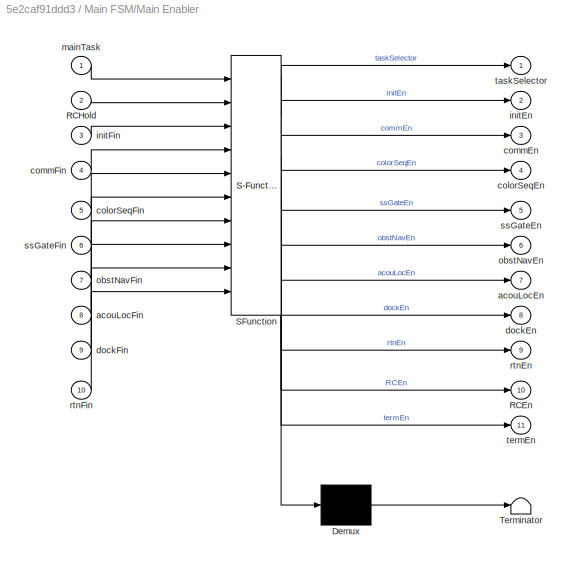
BLOCK [SubSystem] Main FSM/Main Enabler
  ErrorFcn = Stateflow.Translate.translate
  PermitHierarchicalResolution = ExplicitOnly
  Ports = [10, 11]
  RequestExecContextInheritance = off
  SFBlockType = MATLAB Function
  TreatAsAtomicUnit = on
BLOCK [Demux] Main FSM/Main Enabler/ Demux 
  Outputs = 1
  Ports = [1, 1]
BLOCK [S-Function] Main FSM/Main Enabler/ SFunction 
  EnableBusSupport = on
  FunctionName = sf_sfun
  PortCounts = [10 12]
  Ports = [10, 12]
  Tag = Stateflow S-Function RoboBoatVU_2014_Calypso 1
BLOCK [Terminator] Main FSM/Main Enabler/ Terminator 
BLOCK [Outport] Main FSM/Main Enabler/RCEn
  IconDisplay = Port number
  Port = 10
BLOCK [Inport] Main FSM/Main Enabler/RCHold
  IconDisplay = Port number
  Port = 2
BLOCK [Outport] Main FSM/Main Enabler/acouLocEn
  IconDisplay = Port number
  Port = 7
BLOCK [Inport] Main FSM/Main Enabler/acouLocFin
  IconDisplay = Port number
  Port = 8
BLOCK [Outport] Main FSM/Main Enabler/colorSeqEn
  IconDisplay = Port number
  Port = 4
BLOCK [Inport] Main FSM/Main Enabler/colorSeqFin
  IconDisplay = Port number
  Port = 5
BLOCK [Outport] Main FSM/Main Enabler/commEn
  IconDisplay = Port number
  Port = 3
BLOCK [Inport] Main FSM/Main Enabler/commFin
  IconDisplay = Port number
  Port = 4
BLOCK [Outport] Main FSM/Main Enabler/dockEn
  IconDisplay = Port number
  Port = 8
BLOCK [Inport] Main FSM/Main Enabler/dockFin
  IconDisplay = Port number
  Port = 9
BLOCK [Outport] Main FSM/Main Enabler/initEn
  IconDisplay = Port number
  Port = 2
BLOCK [Inport] Main FSM/Main Enabler/initFin
  IconDisplay = Port number
  Port = 3
BLOCK [Inport] Main FSM/Main Enabler/mainTask
  IconDisplay = Port number
BLOCK [Outport] Main FSM/Main Enabler/obstNavEn
  IconDisplay = Port number
  Port = 6
BLOCK [Inport] Main FSM/Main Enabler/obstNavFin
  IconDisplay = Port number
  Port = 7
BLOCK [Outport] Main FSM/Main Enabler/rtnEn
  IconDisplay = Port number
  Port = 9
BLOCK [Inport] Main FSM/Main Enabler/rtnFin
  IconDisplay = Port number
  Port = 10
BLOCK [Outport] Main FSM/Main Enabler/ssGateEn
  IconDisplay = Port number
  Port = 5
BLOCK [Inport] Main FSM/Main Enabler/ssGateFin
  IconDisplay = Port number
  Port = 6
BLOCK [Outport] Main FSM/Main Enabler/taskSelector
  IconDisplay = Port number
BLOCK [Outport] Main FSM/Main Enabler/termEn
  IconDisplay = Port number
  Port = 11
BLOCK [SubSystem] Main FSM/Main Task Option
  Ports = [0, 1]
  RequestExecContextInheritance = off
BLOCK [SubSystem] Main FSM/Main Task Option/Message Composer
  ErrorFcn = Stateflow.Translate.translate
  PermitHierarchicalResolution = ExplicitOnly
  Ports = [1, 1]
  RequestExecContextInheritance = off
  SFBlockType = MATLAB Function
  TreatAsAtomicUnit = on
BLOCK [Demux] Main FSM/Main Task Option/Message Composer/ Demux 
  Outputs = 1
  Ports = [1, 1]
BLOCK [S-Function] Main FSM/Main Task Option/Message Composer/ SFunction 
  EnableBusSupport = on
  FunctionName = sf_sfun
  PortCounts = [1 2]
  Ports = [1, 2]
  Tag = Stateflow S-Function RoboBoatVU_2014_Calypso 48
BLOCK [Terminator] Main FSM/Main Task Option/Message Composer/ Terminator 
BLOCK [Outport] Main FSM/Main Task Option/Message Composer/taskStrAdj
  IconDisplay = Port number
BLOCK [Inport] Main FSM/Main Task Option/Message Composer/taskStrInit
  IconDisplay = Port number
BLOCK [Outport] Main FSM/Main Task Option/Option
  IconDisplay = Port number
BLOCK [Constant] Main FSM/Main Task Option/Test Comms Option
  SampleTime = 0.1
  Value = uint8('All')
BLOCK [MultiPortSwitch] Main FSM/Multiport Switch
  InputSameDT = off
  Inputs = 10
  Ports = [11, 1]
  SaturateOnIntegerOverflow = off
BLOCK [SubSystem] Main FSM/Obstacle Navigation
  Ports = [2, 2, 1]
  RequestExecContextInheritance = off
  TreatAsAtomicUnit = on
BLOCK [DataStoreRead] Main FSM/Obstacle Navigation/Data Store Read
  DataStoreName = dodgeStart
  Ports = [0, 1]
BLOCK [SubSystem] Main FSM/Obstacle Navigation/Dodge
  Ports = [2, 2, 1]
  RequestExecContextInheritance = off
  TreatAsAtomicUnit = on
BLOCK [BusSelector] Main FSM/Obstacle Navigation/Dodge/Bus Selector1
  OutputSignals = Serial In.Compass.Heading,Serial In.Buoy Info.Distance,Serial In.Buoy Info.Angle
  Ports = [1, 3]
BLOCK [Constant] Main FSM/Obstacle Navigation/Dodge/Constant
  Value = 0
BLOCK [Constant] Main FSM/Obstacle Navigation/Dodge/Constant1
  Value = 2
BLOCK [DataStoreWrite] Main FSM/Obstacle Navigation/Dodge/Data Store Write
  DataStoreName = dodgeStart
  Ports = [1]
BLOCK [DiscreteIntegrator] Main FSM/Obstacle Navigation/Dodge/Discrete-Time Integrator
  ICPrevOutput = DiscIntNeverNeededParam
  ICPrevScaledInput = DiscIntNeverNeededParam
  Ports = [1, 1]
  SampleTime = 0.1
BLOCK [Outport] Main FSM/Obstacle Navigation/Dodge/Dodge Incomplete
  IconDisplay = Port number
  Port = 2
BLOCK [EnablePort] Main FSM/Obstacle Navigation/Dodge/Enable
  Ports = [0, 1]
  ShowOutputPort = on
BLOCK [Reference] Main FSM/Obstacle Navigation/Dodge/Insert Text  REF=visiontextngfix/Insert Text
  Ports = [1, 1]
  SourceBlock = visiontextngfix/Insert Text
  SourceType = Insert Text
  antiAliased = on
  blockFontSize = 12
  dummyVar1 = 0
  dummyVar2 = 0
  dummyVar3 = 0
  dummyVar4 = 0
  fontFace = LucidaSansRegular
  getTextColorFrom = Specify via dialog
  getTextIntensityFrom = Specify via dialog
  getTextLocFrom = Specify via dialog
  getTextOpacityFrom = Specify via dialog
  imagePorts = One multidimensional signal
  inputType = Obsolete
  isInputTransposed = off
  textColor = [0 0 0]
  textIntensity = 0
  textLoc = [1 1]
  textOpacity = 1.0
  theText = 'Dodge'
BLOCK [Reference] Main FSM/Obstacle Navigation/Dodge/Insert Text1  REF=visiontextngfix/Insert Text
  Ports = [2, 1]
  SourceBlock = visiontextngfix/Insert Text
  SourceType = Insert Text
  antiAliased = on
  blockFontSize = 12
  dummyVar1 = 0
  dummyVar2 = 0
  dummyVar3 = 0
  dummyVar4 = 0
  fontFace = LucidaSansRegular
  getTextColorFrom = Specify via dialog
  getTextIntensityFrom = Specify via dialog
  getTextLocFrom = Specify via dialog
  getTextOpacityFrom = Specify via dialog
  imagePorts = One multidimensional signal
  inputType = Obsolete
  isInputTransposed = off
  textColor = [255 0 0]
  textIntensity = 0
  textLoc = [10 70]
  textOpacity = 1.0
  theText = 'Obstacle Distance: %f'
BLOCK [SubSystem] Main FSM/Obstacle Navigation/Dodge/Nav Logic
  ErrorFcn = Stateflow.Translate.translate
  PermitHierarchicalResolution = ExplicitOnly
  Ports = [5, 4]
  RequestExecContextInheritance = off
  SFBlockType = MATLAB Function
  TreatAsAtomicUnit = on
BLOCK [Demux] Main FSM/Obstacle Navigation/Dodge/Nav Logic/ Demux 
  Outputs = 1
  Ports = [1, 1]
BLOCK [S-Function] Main FSM/Obstacle Navigation/Dodge/Nav Logic/ SFunction 
  EnableBusSupport = on
  FunctionName = sf_sfun
  PortCounts = [5 5]
  Ports = [5, 5]
  Tag = Stateflow S-Function RoboBoatVU_2014_Calypso 13
BLOCK [Terminator] Main FSM/Obstacle Navigation/Dodge/Nav Logic/ Terminator 
BLOCK [Inport] Main FSM/Obstacle Navigation/Dodge/Nav Logic/Ang
  IconDisplay = Port number
  Port = 3
BLOCK [Inport] Main FSM/Obstacle Navigation/Dodge/Nav Logic/CurrentHeading
  IconDisplay = Port number
BLOCK [Outport] Main FSM/Obstacle Navigation/Dodge/Nav Logic/DesiredHeading
  IconDisplay = Port number
  Port = 3
BLOCK [Inport] Main FSM/Obstacle Navigation/Dodge/Nav Logic/Dist
  IconDisplay = Port number
  Port = 2
BLOCK [Outport] Main FSM/Obstacle Navigation/Dodge/Nav Logic/DodgeIncomplete
  IconDisplay = Port number
  Port = 4
BLOCK [Outport] Main FSM/Obstacle Navigation/Dodge/Nav Logic/ObstDist
  IconDisplay = Port number
BLOCK [Outport] Main FSM/Obstacle Navigation/Dodge/Nav Logic/RPM
  IconDisplay = Port number
  Port = 2
BLOCK [Inport] Main FSM/Obstacle Navigation/Dodge/Nav Logic/Timeout
  IconDisplay = Port number
  Port = 5
BLOCK [Inport] Main FSM/Obstacle Navigation/Dodge/Nav Logic/Timer
  IconDisplay = Port number
  Port = 4
BLOCK [SubSystem] Main FSM/Obstacle Navigation/Dodge/Output Heirarchy
  Ports = [4, 1]
  RequestExecContextInheritance = off
BLOCK [Inport] Main FSM/Obstacle Navigation/Dodge/Output Heirarchy/Annotated Image
  IconDisplay = Port number
BLOCK [BusCreator] Main FSM/Obstacle Navigation/Dodge/Output Heirarchy/Bus Creator
  DisplayOption = bar
  Inputs = 2
  Ports = [2, 1]
BLOCK [BusCreator] Main FSM/Obstacle Navigation/Dodge/Output Heirarchy/Bus Creator1
  DisplayOption = bar
  Inputs = 3
  Ports = [3, 1]
BLOCK [BusCreator] Main FSM/Obstacle Navigation/Dodge/Output Heirarchy/Bus Creator2
  DisplayOption = bar
  Inputs = 2
  Ports = [2, 1]
BLOCK [BusCreator] Main FSM/Obstacle Navigation/Dodge/Output Heirarchy/Bus Creator3
  DisplayOption = bar
  Inputs = 6
  Ports = [6, 1]
BLOCK [BusCreator] Main FSM/Obstacle Navigation/Dodge/Output Heirarchy/Bus Creator4
  DisplayOption = bar
  Inputs = 2
  Ports = [2, 1]
BLOCK [BusCreator] Main FSM/Obstacle Navigation/Dodge/Output Heirarchy/Bus Creator5
  DisplayOption = bar
  Inputs = 2
  Ports = [2, 1]
BLOCK [Constant] Main FSM/Obstacle Navigation/Dodge/Output Heirarchy/C1
  Value = 0
BLOCK [Constant] Main FSM/Obstacle Navigation/Dodge/Output Heirarchy/C2
  Value = 0
BLOCK [Constant] Main FSM/Obstacle Navigation/Dodge/Output Heirarchy/C3
  Value = 0
BLOCK [Inport] Main FSM/Obstacle Navigation/Dodge/Output Heirarchy/Desired Heading
  IconDisplay = Port number
  Port = 4
BLOCK [Constant] Main FSM/Obstacle Navigation/Dodge/Output Heirarchy/LPTask
BLOCK [Constant] Main FSM/Obstacle Navigation/Dodge/Output Heirarchy/Latitude
  Value = 0
BLOCK [Constant] Main FSM/Obstacle Navigation/Dodge/Output Heirarchy/Longitude
  Value = 0
BLOCK [Outport] Main FSM/Obstacle Navigation/Dodge/Output Heirarchy/Outputs
  IconDisplay = Port number
BLOCK [Inport] Main FSM/Obstacle Navigation/Dodge/Output Heirarchy/RPM
  IconDisplay = Port number
  Port = 3
BLOCK [Constant] Main FSM/Obstacle Navigation/Dodge/Output Heirarchy/Request Number
  Value = 0
BLOCK [Inport] Main FSM/Obstacle Navigation/Dodge/Output Heirarchy/Sensors
  IconDisplay = Port number
  Port = 2
BLOCK [Constant] Main FSM/Obstacle Navigation/Dodge/Output Heirarchy/Task Finished
  Value = 0
BLOCK [Outport] Main FSM/Obstacle Navigation/Dodge/Outputs
  IconDisplay = Port number
BLOCK [Inport] Main FSM/Obstacle Navigation/Dodge/RGB image
  IconDisplay = Port number
  Port = 2
BLOCK [Inport] Main FSM/Obstacle Navigation/Dodge/Sensors
  IconDisplay = Port number
BLOCK [UnitDelay] Main FSM/Obstacle Navigation/Dodge/Unit Delay1
  InitialCondition = 1
  InputProcessing = Elements as channels (sample based)
  SampleTime = -1
BLOCK [EnablePort] Main FSM/Obstacle Navigation/Enable
  Ports = []
BLOCK [Outport] Main FSM/Obstacle Navigation/Finished
  IconDisplay = Port number
  Port = 2
BLOCK [SubSystem] Main FSM/Obstacle Navigation/GPS: Bee Line
  Ports = [2, 1, 1]
  RequestExecContextInheritance = off
  TreatAsAtomicUnit = on
BLOCK [SubSystem] Main FSM/Obstacle Navigation/GPS: Bee Line/Approach
  Ports = [2, 2, 1]
  RequestExecContextInheritance = off
  TreatAsAtomicUnit = on
BLOCK [Reference] Main FSM/Obstacle Navigation/GPS: Bee Line/Approach/Annotate Task  REF=visiontextngfix/Insert Text
  Ports = [2, 1]
  SourceBlock = visiontextngfix/Insert Text
  SourceType = Insert Text
  antiAliased = on
  blockFontSize = 12
  dummyVar1 = 0
  dummyVar2 = 0
  dummyVar3 = 0
  dummyVar4 = 0
  fontFace = LucidaSansRegular
  getTextColorFrom = Specify via dialog
  getTextIntensityFrom = Specify via dialog
  getTextLocFrom = Specify via dialog
  getTextOpacityFrom = Specify via dialog
  imagePorts = One multidimensional signal
  inputType = Obsolete
  isInputTransposed = off
  textColor = [255 0 0]
  textIntensity = 0
  textLoc = [10 70]
  textOpacity = 1.0
  theText = 'GPS - Start: Approach - Distance: %f'
BLOCK [Reference] Main FSM/Obstacle Navigation/GPS: Bee Line/Approach/Annotate Task2  REF=visiontextngfix/Insert Text
  Ports = [1, 1]
  SourceBlock = visiontextngfix/Insert Text
  SourceType = Insert Text
  antiAliased = on
  blockFontSize = 12
  dummyVar1 = 0
  dummyVar2 = 0
  dummyVar3 = 0
  dummyVar4 = 0
  fontFace = LucidaSansRegular
  getTextColorFrom = Specify via dialog
  getTextIntensityFrom = Specify via dialog
  getTextLocFrom = Specify via dialog
  getTextOpacityFrom = Specify via dialog
  imagePorts = One multidimensional signal
  inputType = Obsolete
  isInputTransposed = off
  textColor = [0 0 0]
  textIntensity = 0
  textLoc = [1 1]
  textOpacity = 1.0
  theText = 'Bee Line Approach'
BLOCK [Reference] Main FSM/Obstacle Navigation/GPS: Bee Line/Approach/Annotate Task3  REF=visiontextngfix/Insert Text
  Ports = [2, 1]
  SourceBlock = visiontextngfix/Insert Text
  SourceType = Insert Text
  antiAliased = on
  blockFontSize = 12
  dummyVar1 = 0
  dummyVar2 = 0
  dummyVar3 = 0
  dummyVar4 = 0
  fontFace = LucidaSansRegular
  getTextColorFrom = Specify via dialog
  getTextIntensityFrom = Specify via dialog
  getTextLocFrom = Specify via dialog
  getTextOpacityFrom = Specify via dialog
  imagePorts = One multidimensional signal
  inputType = Obsolete
  isInputTransposed = off
  textColor = [255 0 0]
  textIntensity = 0
  textLoc = [10 100]
  textOpacity = 1.0
  theText = 'Obstacle- Distance: %f'
BLOCK [BusSelector] Main FSM/Obstacle Navigation/GPS: Bee Line/Approach/Bus Selector
  OutputSignals = Serial In.GPS.latitude,Serial In.GPS.longitude,Serial In.Buoy Info.Color ID,Serial In.Buoy Info.Distance
  Ports = [1, 4]
BLOCK [Reference] Main FSM/Obstacle Navigation/GPS: Bee Line/Approach/Compare To Constant  REF=simulink/Logic and Bit
Operations/Compare
To Constant
  OutDataTypeStr = boolean
  Ports = [1, 1]
  SourceBlock = simulink/Logic and Bit\nOperations/Compare\nTo Constant
  SourceType = Compare To Constant
  ZeroCross = on
  const = 5
  relop = <=
BLOCK [Reference] Main FSM/Obstacle Navigation/GPS: Bee Line/Approach/Compare To Constant1  REF=simulink/Logic and Bit
Operations/Compare
To Constant
  OutDataTypeStr = boolean
  Ports = [1, 1]
  SourceBlock = simulink/Logic and Bit\nOperations/Compare\nTo Constant
  SourceType = Compare To Constant
  ZeroCross = on
  const = 180
  relop = >=
BLOCK [DataStoreRead] Main FSM/Obstacle Navigation/GPS: Bee Line/Approach/Data Store Read
  DataStoreName = obstNavEndGPS
  Ports = [0, 1]
  SampleTime = 0.1
BLOCK [DataTypeConversion] Main FSM/Obstacle Navigation/GPS: Bee Line/Approach/Data Type Conversion1
  OutDataTypeStr = double
  RndMeth = Floor
  SaturateOnIntegerOverflow = off
BLOCK [SubSystem] Main FSM/Obstacle Navigation/GPS: Bee Line/Approach/Desired Heading and Distance
  ErrorFcn = Stateflow.Translate.translate
  PermitHierarchicalResolution = ExplicitOnly
  Ports = [3, 2]
  RequestExecContextInheritance = off
  SFBlockType = MATLAB Function
  TreatAsAtomicUnit = on
BLOCK [Demux] Main FSM/Obstacle Navigation/GPS: Bee Line/Approach/Desired Heading and Distance/ Demux 
  Outputs = 1
  Ports = [1, 1]
BLOCK [S-Function] Main FSM/Obstacle Navigation/GPS: Bee Line/Approach/Desired Heading and Distance/ SFunction 
  EnableBusSupport = on
  FunctionName = sf_sfun
  PortCounts = [3 3]
  Ports = [3, 3]
  Tag = Stateflow S-Function RoboBoatVU_2014_Calypso 14
BLOCK [Terminator] Main FSM/Obstacle Navigation/GPS: Bee Line/Approach/Desired Heading and Distance/ Terminator 
BLOCK [Inport] Main FSM/Obstacle Navigation/GPS: Bee Line/Approach/Desired Heading and Distance/DesiredGPS
  IconDisplay = Port number
BLOCK [Outport] Main FSM/Obstacle Navigation/GPS: Bee Line/Approach/Desired Heading and Distance/DesiredHeading
  IconDisplay = Port number
  Port = 2
BLOCK [Outport] Main FSM/Obstacle Navigation/GPS: Bee Line/Approach/Desired Heading and Distance/Distance
  IconDisplay = Port number
BLOCK [Inport] Main FSM/Obstacle Navigation/GPS: Bee Line/Approach/Desired Heading and Distance/GPSLat
  IconDisplay = Port number
  Port = 2
BLOCK [Inport] Main FSM/Obstacle Navigation/GPS: Bee Line/Approach/Desired Heading and Distance/GPSLong
  IconDisplay = Port number
  Port = 3
BLOCK [DiscreteIntegrator] Main FSM/Obstacle Navigation/GPS: Bee Line/Approach/Discrete-Time Integrator
  ICPrevOutput = DiscIntNeverNeededParam
  ICPrevScaledInput = DiscIntNeverNeededParam
  Ports = [1, 1]
  SampleTime = 0.1
BLOCK [Outport] Main FSM/Obstacle Navigation/GPS: Bee Line/Approach/Dodge Start
  IconDisplay = Port number
  Port = 2
BLOCK [EnablePort] Main FSM/Obstacle Navigation/GPS: Bee Line/Approach/Enable
  Ports = [0, 1]
  ShowOutputPort = on
BLOCK [Logic] Main FSM/Obstacle Navigation/GPS: Bee Line/Approach/Logical Operator
  AllPortsSameDT = off
  Operator = OR
  OutDataTypeStr = boolean
  Ports = [2, 1]
BLOCK [SubSystem] Main FSM/Obstacle Navigation/GPS: Bee Line/Approach/Obstacle Distance
  ErrorFcn = Stateflow.Translate.translate
  PermitHierarchicalResolution = ExplicitOnly
  Ports = [2, 2]
  RequestExecContextInheritance = off
  SFBlockType = MATLAB Function
  TreatAsAtomicUnit = on
BLOCK [Demux] Main FSM/Obstacle Navigation/GPS: Bee Line/Approach/Obstacle Distance/ Demux 
  Outputs = 1
  Ports = [1, 1]
BLOCK [S-Function] Main FSM/Obstacle Navigation/GPS: Bee Line/Approach/Obstacle Distance/ SFunction 
  EnableBusSupport = on
  FunctionName = sf_sfun
  PortCounts = [2 3]
  Ports = [2, 3]
  Tag = Stateflow S-Function RoboBoatVU_2014_Calypso 15
BLOCK [Terminator] Main FSM/Obstacle Navigation/GPS: Bee Line/Approach/Obstacle Distance/ Terminator 
BLOCK [Inport] Main FSM/Obstacle Navigation/GPS: Bee Line/Approach/Obstacle Distance/ColorID
  IconDisplay = Port number
BLOCK [Inport] Main FSM/Obstacle Navigation/GPS: Bee Line/Approach/Obstacle Distance/Dist
  IconDisplay = Port number
  Port = 2
BLOCK [Outport] Main FSM/Obstacle Navigation/GPS: Bee Line/Approach/Obstacle Distance/DodgeStart
  IconDisplay = Port number
  Port = 2
BLOCK [Outport] Main FSM/Obstacle Navigation/GPS: Bee Line/Approach/Obstacle Distance/ObstDist
  IconDisplay = Port number
BLOCK [SubSystem] Main FSM/Obstacle Navigation/GPS: Bee Line/Approach/Output Heirarchy1
  Ports = [4, 1]
  RequestExecContextInheritance = off
BLOCK [Inport] Main FSM/Obstacle Navigation/GPS: Bee Line/Approach/Output Heirarchy1/Annotated Image
  IconDisplay = Port number
  Port = 3
BLOCK [BusCreator] Main FSM/Obstacle Navigation/GPS: Bee Line/Approach/Output Heirarchy1/Bus Creator
  DisplayOption = bar
  Inputs = 2
  Ports = [2, 1]
BLOCK [BusCreator] Main FSM/Obstacle Navigation/GPS: Bee Line/Approach/Output Heirarchy1/Bus Creator1
  DisplayOption = bar
  Inputs = 3
  Ports = [3, 1]
BLOCK [BusCreator] Main FSM/Obstacle Navigation/GPS: Bee Line/Approach/Output Heirarchy1/Bus Creator2
  DisplayOption = bar
  Inputs = 2
  Ports = [2, 1]
BLOCK [BusCreator] Main FSM/Obstacle Navigation/GPS: Bee Line/Approach/Output Heirarchy1/Bus Creator3
  DisplayOption = bar
  Inputs = 6
  Ports = [6, 1]
BLOCK [BusCreator] Main FSM/Obstacle Navigation/GPS: Bee Line/Approach/Output Heirarchy1/Bus Creator4
  DisplayOption = bar
  Inputs = 2
  Ports = [2, 1]
BLOCK [BusCreator] Main FSM/Obstacle Navigation/GPS: Bee Line/Approach/Output Heirarchy1/Bus Creator5
  DisplayOption = bar
  Inputs = 2
  Ports = [2, 1]
BLOCK [Constant] Main FSM/Obstacle Navigation/GPS: Bee Line/Approach/Output Heirarchy1/C1
  Value = 0
BLOCK [Constant] Main FSM/Obstacle Navigation/GPS: Bee Line/Approach/Output Heirarchy1/C2
  Value = 0
BLOCK [Constant] Main FSM/Obstacle Navigation/GPS: Bee Line/Approach/Output Heirarchy1/C3
  Value = 0
BLOCK [Inport] Main FSM/Obstacle Navigation/GPS: Bee Line/Approach/Output Heirarchy1/Desired Heading
  IconDisplay = Port number
  Port = 2
BLOCK [Constant] Main FSM/Obstacle Navigation/GPS: Bee Line/Approach/Output Heirarchy1/LPTask
BLOCK [Constant] Main FSM/Obstacle Navigation/GPS: Bee Line/Approach/Output Heirarchy1/Latitude
  Value = 0
BLOCK [Constant] Main FSM/Obstacle Navigation/GPS: Bee Line/Approach/Output Heirarchy1/Longitude
  Value = 0
BLOCK [Inport] Main FSM/Obstacle Navigation/GPS: Bee Line/Approach/Output Heirarchy1/Nav Finished
  IconDisplay = Port number
BLOCK [Outport] Main FSM/Obstacle Navigation/GPS: Bee Line/Approach/Output Heirarchy1/Outputs
  IconDisplay = Port number
BLOCK [Constant] Main FSM/Obstacle Navigation/GPS: Bee Line/Approach/Output Heirarchy1/RPM
  Value = 2800
BLOCK [Constant] Main FSM/Obstacle Navigation/GPS: Bee Line/Approach/Output Heirarchy1/Request Number
  Value = 0
BLOCK [Inport] Main FSM/Obstacle Navigation/GPS: Bee Line/Approach/Output Heirarchy1/Sensors
  IconDisplay = Port number
  Port = 4
BLOCK [Outport] Main FSM/Obstacle Navigation/GPS: Bee Line/Approach/Outputs
  IconDisplay = Port number
BLOCK [Inport] Main FSM/Obstacle Navigation/GPS: Bee Line/Approach/RGB image
  IconDisplay = Port number
  Port = 2
BLOCK [Inport] Main FSM/Obstacle Navigation/GPS: Bee Line/Approach/Sensors
  IconDisplay = Port number
BLOCK [DataStoreWrite] Main FSM/Obstacle Navigation/GPS: Bee Line/Data Store Write
  DataStoreName = dodgeStart
  Ports = [1]
BLOCK [EnablePort] Main FSM/Obstacle Navigation/GPS: Bee Line/Enable
  Ports = []
BLOCK [SubSystem] Main FSM/Obstacle Navigation/GPS: Bee Line/GPS Enabler
  ErrorFcn = Stateflow.Translate.translate
  PermitHierarchicalResolution = ExplicitOnly
  Ports = [1, 3]
  RequestExecContextInheritance = off
  SFBlockType = MATLAB Function
  TreatAsAtomicUnit = on
BLOCK [Demux] Main FSM/Obstacle Navigation/GPS: Bee Line/GPS Enabler/ Demux 
  Outputs = 1
  Ports = [1, 1]
BLOCK [S-Function] Main FSM/Obstacle Navigation/GPS: Bee Line/GPS Enabler/ SFunction 
  EnableBusSupport = on
  FunctionName = sf_sfun
  PortCounts = [1 4]
  Ports = [1, 4]
  Tag = Stateflow S-Function RoboBoatVU_2014_Calypso 16
BLOCK [Terminator] Main FSM/Obstacle Navigation/GPS: Bee Line/GPS Enabler/ Terminator 
BLOCK [Outport] Main FSM/Obstacle Navigation/GPS: Bee Line/GPS Enabler/ApproachEnable
  IconDisplay = Port number
  Port = 3
BLOCK [Inport] Main FSM/Obstacle Navigation/GPS: Bee Line/GPS Enabler/Finished
  IconDisplay = Port number
BLOCK [Outport] Main FSM/Obstacle Navigation/GPS: Bee Line/GPS Enabler/GPSMode
  IconDisplay = Port number
BLOCK [Outport] Main FSM/Obstacle Navigation/GPS: Bee Line/GPS Enabler/OrientEnable
  IconDisplay = Port number
  Port = 2
BLOCK [MultiPortSwitch] Main FSM/Obstacle Navigation/GPS: Bee Line/GPS Selector
  InputSameDT = off
  Inputs = 2
  Ports = [3, 1]
  SaturateOnIntegerOverflow = off
BLOCK [SubSystem] Main FSM/Obstacle Navigation/GPS: Bee Line/Orient
  Ports = [2, 2, 1]
  RequestExecContextInheritance = off
  TreatAsAtomicUnit = on
BLOCK [Reference] Main FSM/Obstacle Navigation/GPS: Bee Line/Orient/Annotate Task  REF=visiontextngfix/Insert Text
  Ports = [2, 1]
  SourceBlock = visiontextngfix/Insert Text
  SourceType = Insert Text
  antiAliased = on
  blockFontSize = 12
  dummyVar1 = 0
  dummyVar2 = 0
  dummyVar3 = 0
  dummyVar4 = 0
  fontFace = LucidaSansRegular
  getTextColorFrom = Specify via dialog
  getTextIntensityFrom = Specify via dialog
  getTextLocFrom = Specify via dialog
  getTextOpacityFrom = Specify via dialog
  imagePorts = One multidimensional signal
  inputType = Obsolete
  isInputTransposed = off
  textColor = [255 0 0]
  textIntensity = 0
  textLoc = [10 70]
  textOpacity = 1.0
  theText = 'GPS - Center: Orient %f'
BLOCK [Reference] Main FSM/Obstacle Navigation/GPS: Bee Line/Orient/Annotate Task1  REF=visiontextngfix/Insert Text
  Ports = [2, 1]
  SourceBlock = visiontextngfix/Insert Text
  SourceType = Insert Text
  antiAliased = on
  blockFontSize = 12
  dummyVar1 = 0
  dummyVar2 = 0
  dummyVar3 = 0
  dummyVar4 = 0
  fontFace = LucidaSansRegular
  getTextColorFrom = Specify via dialog
  getTextIntensityFrom = Specify via dialog
  getTextLocFrom = Specify via dialog
  getTextOpacityFrom = Specify via dialog
  imagePorts = One multidimensional signal
  inputType = Obsolete
  isInputTransposed = off
  textColor = [255 0 0]
  textIntensity = 0
  textLoc = [10 40]
  textOpacity = 1.0
  theText = 'Current Heading %f'
BLOCK [Reference] Main FSM/Obstacle Navigation/GPS: Bee Line/Orient/Annotate Task2  REF=visiontextngfix/Insert Text
  Ports = [1, 1]
  SourceBlock = visiontextngfix/Insert Text
  SourceType = Insert Text
  antiAliased = on
  blockFontSize = 12
  dummyVar1 = 0
  dummyVar2 = 0
  dummyVar3 = 0
  dummyVar4 = 0
  fontFace = LucidaSansRegular
  getTextColorFrom = Specify via dialog
  getTextIntensityFrom = Specify via dialog
  getTextLocFrom = Specify via dialog
  getTextOpacityFrom = Specify via dialog
  imagePorts = One multidimensional signal
  inputType = Obsolete
  isInputTransposed = off
  textColor = [0 0 0]
  textIntensity = 0
  textLoc = [1 1]
  textOpacity = 1.0
  theText = 'Bee Line Orient'
BLOCK [BusSelector] Main FSM/Obstacle Navigation/GPS: Bee Line/Orient/Bus Selector
  OutputSignals = Serial In.GPS.latitude,Serial In.GPS.longitude,Serial In.Compass.Heading
  Ports = [1, 3]
BLOCK [DataStoreRead] Main FSM/Obstacle Navigation/GPS: Bee Line/Orient/Data Store Read1
  DataStoreName = obstNavEndGPS
  Ports = [0, 1]
  SampleTime = 0.1
BLOCK [SubSystem] Main FSM/Obstacle Navigation/GPS: Bee Line/Orient/Desired Heading
  ErrorFcn = Stateflow.Translate.translate
  PermitHierarchicalResolution = ExplicitOnly
  Ports = [3, 1]
  RequestExecContextInheritance = off
  SFBlockType = MATLAB Function
  TreatAsAtomicUnit = on
BLOCK [Demux] Main FSM/Obstacle Navigation/GPS: Bee Line/Orient/Desired Heading/ Demux 
  Outputs = 1
  Ports = [1, 1]
BLOCK [S-Function] Main FSM/Obstacle Navigation/GPS: Bee Line/Orient/Desired Heading/ SFunction 
  EnableBusSupport = on
  FunctionName = sf_sfun
  PortCounts = [3 2]
  Ports = [3, 2]
  Tag = Stateflow S-Function RoboBoatVU_2014_Calypso 18
BLOCK [Terminator] Main FSM/Obstacle Navigation/GPS: Bee Line/Orient/Desired Heading/ Terminator 
BLOCK [Inport] Main FSM/Obstacle Navigation/GPS: Bee Line/Orient/Desired Heading/DesiredGPS
  IconDisplay = Port number
BLOCK [Outport] Main FSM/Obstacle Navigation/GPS: Bee Line/Orient/Desired Heading/DesiredHeading
  IconDisplay = Port number
BLOCK [Inport] Main FSM/Obstacle Navigation/GPS: Bee Line/Orient/Desired Heading/GPSLat
  IconDisplay = Port number
  Port = 2
BLOCK [Inport] Main FSM/Obstacle Navigation/GPS: Bee Line/Orient/Desired Heading/GPSLong
  IconDisplay = Port number
  Port = 3
BLOCK [EnablePort] Main FSM/Obstacle Navigation/GPS: Bee Line/Orient/Enable
  Ports = []
BLOCK [Outport] Main FSM/Obstacle Navigation/GPS: Bee Line/Orient/Finished
  IconDisplay = Port number
  Port = 2
BLOCK [SubSystem] Main FSM/Obstacle Navigation/GPS: Bee Line/Orient/Output Heirarchy1
  Ports = [3, 1]
  RequestExecContextInheritance = off
BLOCK [Inport] Main FSM/Obstacle Navigation/GPS: Bee Line/Orient/Output Heirarchy1/Annotated Image
  IconDisplay = Port number
  Port = 2
BLOCK [BusCreator] Main FSM/Obstacle Navigation/GPS: Bee Line/Orient/Output Heirarchy1/Bus Creator
  DisplayOption = bar
  Inputs = 2
  Ports = [2, 1]
BLOCK [BusCreator] Main FSM/Obstacle Navigation/GPS: Bee Line/Orient/Output Heirarchy1/Bus Creator1
  DisplayOption = bar
  Inputs = 3
  Ports = [3, 1]
BLOCK [BusCreator] Main FSM/Obstacle Navigation/GPS: Bee Line/Orient/Output Heirarchy1/Bus Creator2
  DisplayOption = bar
  Inputs = 2
  Ports = [2, 1]
BLOCK [BusCreator] Main FSM/Obstacle Navigation/GPS: Bee Line/Orient/Output Heirarchy1/Bus Creator3
  DisplayOption = bar
  Inputs = 6
  Ports = [6, 1]
BLOCK [BusCreator] Main FSM/Obstacle Navigation/GPS: Bee Line/Orient/Output Heirarchy1/Bus Creator4
  DisplayOption = bar
  Inputs = 2
  Ports = [2, 1]
BLOCK [BusCreator] Main FSM/Obstacle Navigation/GPS: Bee Line/Orient/Output Heirarchy1/Bus Creator5
  DisplayOption = bar
  Inputs = 2
  Ports = [2, 1]
BLOCK [Constant] Main FSM/Obstacle Navigation/GPS: Bee Line/Orient/Output Heirarchy1/C1
  Value = 0
BLOCK [Constant] Main FSM/Obstacle Navigation/GPS: Bee Line/Orient/Output Heirarchy1/C2
  Value = 0
BLOCK [Constant] Main FSM/Obstacle Navigation/GPS: Bee Line/Orient/Output Heirarchy1/C3
  Value = 0
BLOCK [Inport] Main FSM/Obstacle Navigation/GPS: Bee Line/Orient/Output Heirarchy1/Desired Heading
  IconDisplay = Port number
BLOCK [Constant] Main FSM/Obstacle Navigation/GPS: Bee Line/Orient/Output Heirarchy1/LPTask
BLOCK [Constant] Main FSM/Obstacle Navigation/GPS: Bee Line/Orient/Output Heirarchy1/Latitude
  Value = 0
BLOCK [Constant] Main FSM/Obstacle Navigation/GPS: Bee Line/Orient/Output Heirarchy1/Longitude
  Value = 0
BLOCK [Outport] Main FSM/Obstacle Navigation/GPS: Bee Line/Orient/Output Heirarchy1/Outputs
  IconDisplay = Port number
BLOCK [Constant] Main FSM/Obstacle Navigation/GPS: Bee Line/Orient/Output Heirarchy1/RPM
  Value = 0
BLOCK [Constant] Main FSM/Obstacle Navigation/GPS: Bee Line/Orient/Output Heirarchy1/Request Number
  Value = 0
BLOCK [Inport] Main FSM/Obstacle Navigation/GPS: Bee Line/Orient/Output Heirarchy1/Sensors
  IconDisplay = Port number
  Port = 3
BLOCK [Constant] Main FSM/Obstacle Navigation/GPS: Bee Line/Orient/Output Heirarchy1/TaskFinished
  Value = 0
BLOCK [Outport] Main FSM/Obstacle Navigation/GPS: Bee Line/Orient/Outputs
  IconDisplay = Port number
BLOCK [Inport] Main FSM/Obstacle Navigation/GPS: Bee Line/Orient/RGB image
  IconDisplay = Port number
  Port = 2
BLOCK [Inport] Main FSM/Obstacle Navigation/GPS: Bee Line/Orient/Sensors
  IconDisplay = Port number
BLOCK [SubSystem] Main FSM/Obstacle Navigation/GPS: Bee Line/Orient/Within Range
  ErrorFcn = Stateflow.Translate.translate
  PermitHierarchicalResolution = ExplicitOnly
  Ports = [2, 1]
  RequestExecContextInheritance = off
  SFBlockType = MATLAB Function
  TreatAsAtomicUnit = on
BLOCK [Demux] Main FSM/Obstacle Navigation/GPS: Bee Line/Orient/Within Range/ Demux 
  Outputs = 1
  Ports = [1, 1]
BLOCK [S-Function] Main FSM/Obstacle Navigation/GPS: Bee Line/Orient/Within Range/ SFunction 
  EnableBusSupport = on
  FunctionName = sf_sfun
  PortCounts = [2 2]
  Ports = [2, 2]
  Tag = Stateflow S-Function RoboBoatVU_2014_Calypso 26
BLOCK [Terminator] Main FSM/Obstacle Navigation/GPS: Bee Line/Orient/Within Range/ Terminator 
BLOCK [Inport] Main FSM/Obstacle Navigation/GPS: Bee Line/Orient/Within Range/Compass
  IconDisplay = Port number
  Port = 2
BLOCK [Inport] Main FSM/Obstacle Navigation/GPS: Bee Line/Orient/Within Range/DesiredHeading
  IconDisplay = Port number
BLOCK [Outport] Main FSM/Obstacle Navigation/GPS: Bee Line/Orient/Within Range/Finished
  IconDisplay = Port number
BLOCK [Outport] Main FSM/Obstacle Navigation/GPS: Bee Line/Outputs
  IconDisplay = Port number
BLOCK [Inport] Main FSM/Obstacle Navigation/GPS: Bee Line/RGB image
  IconDisplay = Port number
  Port = 2
BLOCK [Inport] Main FSM/Obstacle Navigation/GPS: Bee Line/Sensors
  IconDisplay = Port number
BLOCK [UnitDelay] Main FSM/Obstacle Navigation/GPS: Bee Line/Unit Delay
  InputProcessing = Elements as channels (sample based)
  SampleTime = -1
BLOCK [UnitDelay] Main FSM/Obstacle Navigation/GPS: Bee Line/Unit Delay1
  InputProcessing = Elements as channels (sample based)
  SampleTime = -1
BLOCK [SubSystem] Main FSM/Obstacle Navigation/MATLAB Function
  ErrorFcn = Stateflow.Translate.translate
  PermitHierarchicalResolution = ExplicitOnly
  Ports = [2, 3]
  RequestExecContextInheritance = off
  SFBlockType = MATLAB Function
  TreatAsAtomicUnit = on
BLOCK [Demux] Main FSM/Obstacle Navigation/MATLAB Function/ Demux 
  Outputs = 1
  Ports = [1, 1]
BLOCK [S-Function] Main FSM/Obstacle Navigation/MATLAB Function/ SFunction 
  EnableBusSupport = on
  FunctionName = sf_sfun
  PortCounts = [2 4]
  Ports = [2, 4]
  Tag = Stateflow S-Function RoboBoatVU_2014_Calypso 27
BLOCK [Terminator] Main FSM/Obstacle Navigation/MATLAB Function/ Terminator 
BLOCK [Outport] Main FSM/Obstacle Navigation/MATLAB Function/GPSEn
  IconDisplay = Port number
  Port = 3
BLOCK [Outport] Main FSM/Obstacle Navigation/MATLAB Function/dodgeEn
  IconDisplay = Port number
  Port = 2
BLOCK [Inport] Main FSM/Obstacle Navigation/MATLAB Function/dodgeIncomplete
  IconDisplay = Port number
BLOCK [Inport] Main FSM/Obstacle Navigation/MATLAB Function/dodgeStart
  IconDisplay = Port number
  Port = 2
BLOCK [Outport] Main FSM/Obstacle Navigation/MATLAB Function/taskSelector
  IconDisplay = Port number
BLOCK [MultiPortSwitch] Main FSM/Obstacle Navigation/Multiport Switch
  InputSameDT = off
  Inputs = 2
  Ports = [3, 1]
  SaturateOnIntegerOverflow = off
BLOCK [SubSystem] Main FSM/Obstacle Navigation/Output Reassign
  Ports = [1, 2]
  RequestExecContextInheritance = off
BLOCK [BusAssignment] Main FSM/Obstacle Navigation/Output Reassign/Bus Assignment
  AssignedSignals = Task Finished
  Commented = on
  Ports = [2, 1]
BLOCK [BusSelector] Main FSM/Obstacle Navigation/Output Reassign/Bus Selector
  OutputSignals = Task Finished,Output Signals
  Ports = [1, 2]
BLOCK [Constant] Main FSM/Obstacle Navigation/Output Reassign/Constant
  Commented = on
  Value = 0
BLOCK [Outport] Main FSM/Obstacle Navigation/Output Reassign/Finished
  IconDisplay = Port number
  Port = 2
BLOCK [Outport] Main FSM/Obstacle Navigation/Output Reassign/Outputs
  IconDisplay = Port number
BLOCK [Inport] Main FSM/Obstacle Navigation/Output Reassign/Outputs in
  IconDisplay = Port number
BLOCK [Outport] Main FSM/Obstacle Navigation/Outputs
  IconDisplay = Port number
BLOCK [Inport] Main FSM/Obstacle Navigation/RGB Image
  IconDisplay = Port number
  Port = 2
BLOCK [Inport] Main FSM/Obstacle Navigation/Sensors
  IconDisplay = Port number
BLOCK [UnitDelay] Main FSM/Obstacle Navigation/Unit Delay
  InputProcessing = Elements as channels (sample based)
  SampleTime = -1
BLOCK [SubSystem] Main FSM/Obstacle Navigation1
  Commented = on
  Ports = [2, 2, 1]
  RequestExecContextInheritance = off
  TreatAsAtomicUnit = on
BLOCK [BusCreator] Main FSM/Obstacle Navigation1/Bus Creator1
  DisplayOption = bar
  Ports = [4, 1]
BLOCK [BusSelector] Main FSM/Obstacle Navigation1/Bus Selector1
  OutputSignals = GPS Fin,Comm Fin,Enter Fin,Nav Fin
  Ports = [1, 4]
BLOCK [SubSystem] Main FSM/Obstacle Navigation1/Communication
  Ports = [2, 2, 1]
  RequestExecContextInheritance = off
  TreatAsAtomicUnit = on
BLOCK [BusSelector] Main FSM/Obstacle Navigation1/Communication/Bus Selector
  OutputSignals = Serial In.Compass.Heading
  Ports = [1, 1]
BLOCK [Reference] Main FSM/Obstacle Navigation1/Communication/Compare To Constant  REF=simulink/Logic and Bit
Operations/Compare
To Constant
  OutDataTypeStr = boolean
  Ports = [1, 1]
  SourceBlock = simulink/Logic and Bit\nOperations/Compare\nTo Constant
  SourceType = Compare To Constant
  ZeroCross = on
  const = 5
  relop = >=
BLOCK [Constant] Main FSM/Obstacle Navigation1/Communication/Constant
  Value = 3
BLOCK [Constant] Main FSM/Obstacle Navigation1/Communication/Constant1
  Value = 3
BLOCK [DataStoreWrite] Main FSM/Obstacle Navigation1/Communication/Data Store Write
  DataStoreName = enterGate
  Ports = [1]
BLOCK [DataStoreWrite] Main FSM/Obstacle Navigation1/Communication/Data Store Write1
  DataStoreName = exitGate
  Ports = [1]
BLOCK [DataTypeConversion] Main FSM/Obstacle Navigation1/Communication/Data Type Conversion
  OutDataTypeStr = double
  RndMeth = Floor
  SaturateOnIntegerOverflow = off
BLOCK [DiscreteIntegrator] Main FSM/Obstacle Navigation1/Communication/Discrete-Time Integrator
  ICPrevOutput = DiscIntNeverNeededParam
  ICPrevScaledInput = DiscIntNeverNeededParam
  Ports = [1, 1]
  SampleTime = 0.1
BLOCK [EnablePort] Main FSM/Obstacle Navigation1/Communication/Enable
  Ports = [0, 1]
  ShowOutputPort = on
BLOCK [Outport] Main FSM/Obstacle Navigation1/Communication/Finished
  IconDisplay = Port number
  Port = 2
BLOCK [Reference] Main FSM/Obstacle Navigation1/Communication/Insert Text  REF=visiontextngfix/Insert Text
  Ports = [1, 1]
  SourceBlock = visiontextngfix/Insert Text
  SourceType = Insert Text
  antiAliased = on
  blockFontSize = 12
  dummyVar1 = 0
  dummyVar2 = 0
  dummyVar3 = 0
  dummyVar4 = 0
  fontFace = LucidaSansRegular
  getTextColorFrom = Specify via dialog
  getTextIntensityFrom = Specify via dialog
  getTextLocFrom = Specify via dialog
  getTextOpacityFrom = Specify via dialog
  imagePorts = One multidimensional signal
  inputType = Obsolete
  isInputTransposed = off
  textColor = [0 0 0]
  textIntensity = 0
  textLoc = [1 1]
  textOpacity = 1.0
  theText = 'Communication1'
BLOCK [SubSystem] Main FSM/Obstacle Navigation1/Communication/Output Heirarchy1
  Ports = [3, 1]
  RequestExecContextInheritance = off
BLOCK [Inport] Main FSM/Obstacle Navigation1/Communication/Output Heirarchy1/Annotated Image
  IconDisplay = Port number
  Port = 3
BLOCK [BusCreator] Main FSM/Obstacle Navigation1/Communication/Output Heirarchy1/Bus Creator
  DisplayOption = bar
  Inputs = 3
  Ports = [3, 1]
BLOCK [BusCreator] Main FSM/Obstacle Navigation1/Communication/Output Heirarchy1/Bus Creator1
  DisplayOption = bar
  Inputs = 2
  Ports = [2, 1]
BLOCK [BusCreator] Main FSM/Obstacle Navigation1/Communication/Output Heirarchy1/Bus Creator2
  DisplayOption = bar
  Inputs = 3
  Ports = [3, 1]
BLOCK [BusCreator] Main FSM/Obstacle Navigation1/Communication/Output Heirarchy1/Bus Creator3
  DisplayOption = bar
  Inputs = 2
  Ports = [2, 1]
BLOCK [BusCreator] Main FSM/Obstacle Navigation1/Communication/Output Heirarchy1/Bus Creator4
  DisplayOption = bar
  Inputs = 2
  Ports = [2, 1]
BLOCK [Inport] Main FSM/Obstacle Navigation1/Communication/Output Heirarchy1/Desired Heading
  IconDisplay = Port number
BLOCK [Constant] Main FSM/Obstacle Navigation1/Communication/Output Heirarchy1/Due Sample Start
  Value = 0
BLOCK [Constant] Main FSM/Obstacle Navigation1/Communication/Output Heirarchy1/Finished
  Value = 0
BLOCK [Outport] Main FSM/Obstacle Navigation1/Communication/Output Heirarchy1/Outputs
  IconDisplay = Port number
BLOCK [Constant] Main FSM/Obstacle Navigation1/Communication/Output Heirarchy1/RPM Desired
  Value = 0
BLOCK [Constant] Main FSM/Obstacle Navigation1/Communication/Output Heirarchy1/Ready to Read
  Value = 0
BLOCK [Inport] Main FSM/Obstacle Navigation1/Communication/Output Heirarchy1/Sensors
  IconDisplay = Port number
  Port = 2
BLOCK [Constant] Main FSM/Obstacle Navigation1/Communication/Output Heirarchy1/Uno Power
  Value = 0
BLOCK [Outport] Main FSM/Obstacle Navigation1/Communication/Outputs
  IconDisplay = Port number
BLOCK [Inport] Main FSM/Obstacle Navigation1/Communication/RGB Image
  IconDisplay = Port number
  Port = 2
BLOCK [Inport] Main FSM/Obstacle Navigation1/Communication/Sensors
  IconDisplay = Port number
BLOCK [EnablePort] Main FSM/Obstacle Navigation1/Enable
  Ports = []
BLOCK [SubSystem] Main FSM/Obstacle Navigation1/Enter Gate
  Ports = [2, 2, 1]
  RequestExecContextInheritance = off
  TreatAsAtomicUnit = on
BLOCK [DataStoreRead] Main FSM/Obstacle Navigation1/Enter Gate/Data Store Read
  DataStoreName = enterGate
  Ports = [0, 1]
BLOCK [EnablePort] Main FSM/Obstacle Navigation1/Enter Gate/Enable
  Ports = []
BLOCK [Outport] Main FSM/Obstacle Navigation1/Enter Gate/Finished
  IconDisplay = Port number
  Port = 2
BLOCK [SubSystem] Main FSM/Obstacle Navigation1/Enter Gate/Gate 1 (Red & White)
  Ports = [2, 1, 1]
  RequestExecContextInheritance = off
  TreatAsAtomicUnit = on
BLOCK [BusSelector] Main FSM/Obstacle Navigation1/Enter Gate/Gate 1 (Red & White)/Bus Selector
  OutputSignals = Serial In.Buoy Info.Probability,Serial In.Buoy Info.Color ID,Serial In.Buoy Info.Distance,Serial In.Buoy Info.Angle,Serial In.Compass.Heading,Serial In.GPS.latitude,Serial In.GPS.longitude  <repeated x6 — deduplicated; at blocks: Bus Selector>
  Ports = [1, 7]
BLOCK [Reference] Main FSM/Obstacle Navigation1/Enter Gate/Gate 1 (Red & White)/Compare To Constant  REF=simulink/Logic and Bit
Operations/Compare
To Constant
  OutDataTypeStr = boolean
  Ports = [1, 1]
  SourceBlock = simulink/Logic and Bit\nOperations/Compare\nTo Constant
  SourceType = Compare To Constant
  ZeroCross = on
  const = 2
  relop = <=
BLOCK [Reference] Main FSM/Obstacle Navigation1/Enter Gate/Gate 1 (Red & White)/Compare To Constant1  REF=simulink/Logic and Bit
Operations/Compare
To Constant
  OutDataTypeStr = boolean
  Ports = [1, 1]
  SourceBlock = simulink/Logic and Bit\nOperations/Compare\nTo Constant
  SourceType = Compare To Constant
  ZeroCross = on
  const = 120
  relop = >=
BLOCK [DataTypeConversion] Main FSM/Obstacle Navigation1/Enter Gate/Gate 1 (Red & White)/Data Type Conversion2
  OutDataTypeStr = double
  RndMeth = Floor
  SaturateOnIntegerOverflow = off
BLOCK [DiscreteIntegrator] Main FSM/Obstacle Navigation1/Enter Gate/Gate 1 (Red & White)/Discrete-Time Integrator
  ICPrevOutput = DiscIntNeverNeededParam
  ICPrevScaledInput = DiscIntNeverNeededParam
  Ports = [1, 1]
  SampleTime = .1
BLOCK [SubSystem] Main FSM/Obstacle Navigation1/Enter Gate/Gate 1 (Red & White)/Distance
  ErrorFcn = Stateflow.Translate.translate
  PermitHierarchicalResolution = ExplicitOnly
  Ports = [3, 1]
  RequestExecContextInheritance = off
  SFBlockType = MATLAB Function
  TreatAsAtomicUnit = on
BLOCK [Demux] Main FSM/Obstacle Navigation1/Enter Gate/Gate 1 (Red & White)/Distance/ Demux 
  Outputs = 1
  Ports = [1, 1]
BLOCK [S-Function] Main FSM/Obstacle Navigation1/Enter Gate/Gate 1 (Red & White)/Distance/ SFunction 
  EnableBusSupport = on
  FunctionName = sf_sfun
  PortCounts = [3 2]
  Ports = [3, 2]
  Tag = Stateflow S-Function RoboBoatVU_2014_Calypso 19
BLOCK [Terminator] Main FSM/Obstacle Navigation1/Enter Gate/Gate 1 (Red & White)/Distance/ Terminator 
BLOCK [Inport] Main FSM/Obstacle Navigation1/Enter Gate/Gate 1 (Red & White)/Distance/DesiredGPS
  IconDisplay = Port number
BLOCK [Outport] Main FSM/Obstacle Navigation1/Enter Gate/Gate 1 (Red & White)/Distance/Distance
  IconDisplay = Port number
BLOCK [Inport] Main FSM/Obstacle Navigation1/Enter Gate/Gate 1 (Red & White)/Distance/GPSLat
  IconDisplay = Port number
  Port = 2
BLOCK [Inport] Main FSM/Obstacle Navigation1/Enter Gate/Gate 1 (Red & White)/Distance/GPSLong
  IconDisplay = Port number
  Port = 3
BLOCK [EnablePort] Main FSM/Obstacle Navigation1/Enter Gate/Gate 1 (Red & White)/Enable
  Ports = [0, 1]
  ShowOutputPort = on
BLOCK [Reference] Main FSM/Obstacle Navigation1/Enter Gate/Gate 1 (Red & White)/Insert Text  REF=visiontextngfix/Insert Text
  Ports = [1, 1]
  SourceBlock = visiontextngfix/Insert Text
  SourceType = Insert Text
  antiAliased = on
  blockFontSize = 12
  dummyVar1 = 0
  dummyVar2 = 0
  dummyVar3 = 0
  dummyVar4 = 0
  fontFace = LucidaSansRegular
  getTextColorFrom = Specify via dialog
  getTextIntensityFrom = Specify via dialog
  getTextLocFrom = Specify via dialog
  getTextOpacityFrom = Specify via dialog
  imagePorts = One multidimensional signal
  inputType = Obsolete
  isInputTransposed = off
  textColor = [0 0 0]
  textIntensity = 0
  textLoc = [1 1]
  textOpacity = 1.0
  theText = 'Enter Gate 1'
BLOCK [Logic] Main FSM/Obstacle Navigation1/Enter Gate/Gate 1 (Red & White)/Logical Operator
  AllPortsSameDT = off
  Operator = OR
  OutDataTypeStr = boolean
  Ports = [2, 1]
BLOCK [SubSystem] Main FSM/Obstacle Navigation1/Enter Gate/Gate 1 (Red & White)/MATLAB Function
  ErrorFcn = Stateflow.Translate.translate
  PermitHierarchicalResolution = ExplicitOnly
  Ports = [8, 3]
  RequestExecContextInheritance = off
  SFBlockType = MATLAB Function
  TreatAsAtomicUnit = on
BLOCK [Demux] Main FSM/Obstacle Navigation1/Enter Gate/Gate 1 (Red & White)/MATLAB Function/ Demux 
  Outputs = 1
  Ports = [1, 1]
BLOCK [S-Function] Main FSM/Obstacle Navigation1/Enter Gate/Gate 1 (Red & White)/MATLAB Function/ SFunction 
  EnableBusSupport = on
  FunctionName = sf_sfun
  PortCounts = [8 4]
  Ports = [8, 4]
  Tag = Stateflow S-Function RoboBoatVU_2014_Calypso 20
BLOCK [Terminator] Main FSM/Obstacle Navigation1/Enter Gate/Gate 1 (Red & White)/MATLAB Function/ Terminator 
BLOCK [Inport] Main FSM/Obstacle Navigation1/Enter Gate/Gate 1 (Red & White)/MATLAB Function/Ang
  IconDisplay = Port number
  Port = 4
BLOCK [Inport] Main FSM/Obstacle Navigation1/Enter Gate/Gate 1 (Red & White)/MATLAB Function/ColorID
  IconDisplay = Port number
  Port = 2
BLOCK [Inport] Main FSM/Obstacle Navigation1/Enter Gate/Gate 1 (Red & White)/MATLAB Function/CurrentHeading
  IconDisplay = Port number
  Port = 5
BLOCK [Outport] Main FSM/Obstacle Navigation1/Enter Gate/Gate 1 (Red & White)/MATLAB Function/DesiredHeading
  IconDisplay = Port number
  Port = 2
BLOCK [Inport] Main FSM/Obstacle Navigation1/Enter Gate/Gate 1 (Red & White)/MATLAB Function/Dist
  IconDisplay = Port number
  Port = 3
BLOCK [Inport] Main FSM/Obstacle Navigation1/Enter Gate/Gate 1 (Red & White)/MATLAB Function/GPSLat
  IconDisplay = Port number
  Port = 6
BLOCK [Inport] Main FSM/Obstacle Navigation1/Enter Gate/Gate 1 (Red & White)/MATLAB Function/GPSLong
  IconDisplay = Port number
  Port = 7
BLOCK [Inport] Main FSM/Obstacle Navigation1/Enter Gate/Gate 1 (Red & White)/MATLAB Function/Prob
  IconDisplay = Port number
BLOCK [Outport] Main FSM/Obstacle Navigation1/Enter Gate/Gate 1 (Red & White)/MATLAB Function/RPM
  IconDisplay = Port number
BLOCK [Inport] Main FSM/Obstacle Navigation1/Enter Gate/Gate 1 (Red & White)/MATLAB Function/Timer
  IconDisplay = Port number
  Port = 8
BLOCK [Outport] Main FSM/Obstacle Navigation1/Enter Gate/Gate 1 (Red & White)/MATLAB Function/gateGPS
  IconDisplay = Port number
  Port = 3
BLOCK [SubSystem] Main FSM/Obstacle Navigation1/Enter Gate/Gate 1 (Red & White)/Output Heirarchy
  Ports = [5, 1]
  RequestExecContextInheritance = off
BLOCK [Inport] Main FSM/Obstacle Navigation1/Enter Gate/Gate 1 (Red & White)/Output Heirarchy/Annotated Image
  IconDisplay = Port number
BLOCK [BusCreator] Main FSM/Obstacle Navigation1/Enter Gate/Gate 1 (Red & White)/Output Heirarchy/Bus Creator
  DisplayOption = bar
  Inputs = 3
  Ports = [3, 1]
BLOCK [BusCreator] Main FSM/Obstacle Navigation1/Enter Gate/Gate 1 (Red & White)/Output Heirarchy/Bus Creator1
  DisplayOption = bar
  Inputs = 2
  Ports = [2, 1]
BLOCK [BusCreator] Main FSM/Obstacle Navigation1/Enter Gate/Gate 1 (Red & White)/Output Heirarchy/Bus Creator2
  DisplayOption = bar
  Inputs = 3
  Ports = [3, 1]
BLOCK [BusCreator] Main FSM/Obstacle Navigation1/Enter Gate/Gate 1 (Red & White)/Output Heirarchy/Bus Creator3
  DisplayOption = bar
  Inputs = 2
  Ports = [2, 1]
BLOCK [BusCreator] Main FSM/Obstacle Navigation1/Enter Gate/Gate 1 (Red & White)/Output Heirarchy/Bus Creator4
  DisplayOption = bar
  Inputs = 2
  Ports = [2, 1]
BLOCK [Inport] Main FSM/Obstacle Navigation1/Enter Gate/Gate 1 (Red & White)/Output Heirarchy/Desired Heading
  IconDisplay = Port number
  Port = 4
BLOCK [Constant] Main FSM/Obstacle Navigation1/Enter Gate/Gate 1 (Red & White)/Output Heirarchy/Due Sample Start
  Value = 0
BLOCK [Outport] Main FSM/Obstacle Navigation1/Enter Gate/Gate 1 (Red & White)/Output Heirarchy/Outputs
  IconDisplay = Port number
BLOCK [Inport] Main FSM/Obstacle Navigation1/Enter Gate/Gate 1 (Red & White)/Output Heirarchy/RPM
  IconDisplay = Port number
  Port = 3
BLOCK [Constant] Main FSM/Obstacle Navigation1/Enter Gate/Gate 1 (Red & White)/Output Heirarchy/Ready to Read
  Value = 0
BLOCK [Inport] Main FSM/Obstacle Navigation1/Enter Gate/Gate 1 (Red & White)/Output Heirarchy/Sensors
  IconDisplay = Port number
  Port = 2
BLOCK [Inport] Main FSM/Obstacle Navigation1/Enter Gate/Gate 1 (Red & White)/Output Heirarchy/Task Finished
  IconDisplay = Port number
  Port = 5
BLOCK [Constant] Main FSM/Obstacle Navigation1/Enter Gate/Gate 1 (Red & White)/Output Heirarchy/Uno Power
  Value = 0
BLOCK [Outport] Main FSM/Obstacle Navigation1/Enter Gate/Gate 1 (Red & White)/Outputs
  IconDisplay = Port number
BLOCK [Inport] Main FSM/Obstacle Navigation1/Enter Gate/Gate 1 (Red & White)/RGB image
  IconDisplay = Port number
  Port = 2
BLOCK [Inport] Main FSM/Obstacle Navigation1/Enter Gate/Gate 1 (Red & White)/Sensors
  IconDisplay = Port number
BLOCK [SubSystem] Main FSM/Obstacle Navigation1/Enter Gate/Gate 2 (White & White)
  Ports = [2, 1, 1]
  RequestExecContextInheritance = off
  TreatAsAtomicUnit = on
BLOCK [BusSelector] Main FSM/Obstacle Navigation1/Enter Gate/Gate 2 (White & White)/Bus Selector
  Ports = [1, 7]
BLOCK [Reference] Main FSM/Obstacle Navigation1/Enter Gate/Gate 2 (White & White)/Compare To Constant  REF=simulink/Logic and Bit
Operations/Compare
To Constant
  OutDataTypeStr = boolean
  Ports = [1, 1]
  SourceBlock = simulink/Logic and Bit\nOperations/Compare\nTo Constant
  SourceType = Compare To Constant
  ZeroCross = on
  const = 2
  relop = <=
BLOCK [Reference] Main FSM/Obstacle Navigation1/Enter Gate/Gate 2 (White & White)/Compare To Constant1  REF=simulink/Logic and Bit
Operations/Compare
To Constant
  OutDataTypeStr = boolean
  Ports = [1, 1]
  SourceBlock = simulink/Logic and Bit\nOperations/Compare\nTo Constant
  SourceType = Compare To Constant
  ZeroCross = on
  const = 120
  relop = >=
BLOCK [DataTypeConversion] Main FSM/Obstacle Navigation1/Enter Gate/Gate 2 (White & White)/Data Type Conversion2
  OutDataTypeStr = double
  RndMeth = Floor
  SaturateOnIntegerOverflow = off
BLOCK [DiscreteIntegrator] Main FSM/Obstacle Navigation1/Enter Gate/Gate 2 (White & White)/Discrete-Time Integrator
  ICPrevOutput = DiscIntNeverNeededParam
  ICPrevScaledInput = DiscIntNeverNeededParam
  Ports = [1, 1]
  SampleTime = .1
BLOCK [SubSystem] Main FSM/Obstacle Navigation1/Enter Gate/Gate 2 (White & White)/Distance
  ErrorFcn = Stateflow.Translate.translate
  PermitHierarchicalResolution = ExplicitOnly
  Ports = [3, 1]
  RequestExecContextInheritance = off
  SFBlockType = MATLAB Function
  TreatAsAtomicUnit = on
BLOCK [Demux] Main FSM/Obstacle Navigation1/Enter Gate/Gate 2 (White & White)/Distance/ Demux 
  Outputs = 1
  Ports = [1, 1]
BLOCK [S-Function] Main FSM/Obstacle Navigation1/Enter Gate/Gate 2 (White & White)/Distance/ SFunction 
  EnableBusSupport = on
  FunctionName = sf_sfun
  PortCounts = [3 2]
  Ports = [3, 2]
  Tag = Stateflow S-Function RoboBoatVU_2014_Calypso 21
BLOCK [Terminator] Main FSM/Obstacle Navigation1/Enter Gate/Gate 2 (White & White)/Distance/ Terminator 
BLOCK [Inport] Main FSM/Obstacle Navigation1/Enter Gate/Gate 2 (White & White)/Distance/DesiredGPS
  IconDisplay = Port number
BLOCK [Outport] Main FSM/Obstacle Navigation1/Enter Gate/Gate 2 (White & White)/Distance/Distance
  IconDisplay = Port number
BLOCK [Inport] Main FSM/Obstacle Navigation1/Enter Gate/Gate 2 (White & White)/Distance/GPSLat
  IconDisplay = Port number
  Port = 2
BLOCK [Inport] Main FSM/Obstacle Navigation1/Enter Gate/Gate 2 (White & White)/Distance/GPSLong
  IconDisplay = Port number
  Port = 3
BLOCK [EnablePort] Main FSM/Obstacle Navigation1/Enter Gate/Gate 2 (White & White)/Enable
  Ports = [0, 1]
  ShowOutputPort = on
BLOCK [Reference] Main FSM/Obstacle Navigation1/Enter Gate/Gate 2 (White & White)/Insert Text  REF=visiontextngfix/Insert Text
  Ports = [1, 1]
  SourceBlock = visiontextngfix/Insert Text
  SourceType = Insert Text
  antiAliased = on
  blockFontSize = 12
  dummyVar1 = 0
  dummyVar2 = 0
  dummyVar3 = 0
  dummyVar4 = 0
  fontFace = LucidaSansRegular
  getTextColorFrom = Specify via dialog
  getTextIntensityFrom = Specify via dialog
  getTextLocFrom = Specify via dialog
  getTextOpacityFrom = Specify via dialog
  imagePorts = One multidimensional signal
  inputType = Obsolete
  isInputTransposed = off
  textColor = [0 0 0]
  textIntensity = 0
  textLoc = [1 1]
  textOpacity = 1.0
  theText = 'Enter Gate 2'
BLOCK [Logic] Main FSM/Obstacle Navigation1/Enter Gate/Gate 2 (White & White)/Logical Operator
  AllPortsSameDT = off
  Operator = OR
  OutDataTypeStr = boolean
  Ports = [2, 1]
BLOCK [SubSystem] Main FSM/Obstacle Navigation1/Enter Gate/Gate 2 (White & White)/MATLAB Function
  ErrorFcn = Stateflow.Translate.translate
  PermitHierarchicalResolution = ExplicitOnly
  Ports = [8, 3]
  RequestExecContextInheritance = off
  SFBlockType = MATLAB Function
  TreatAsAtomicUnit = on
BLOCK [Demux] Main FSM/Obstacle Navigation1/Enter Gate/Gate 2 (White & White)/MATLAB Function/ Demux 
  Outputs = 1
  Ports = [1, 1]
BLOCK [S-Function] Main FSM/Obstacle Navigation1/Enter Gate/Gate 2 (White & White)/MATLAB Function/ SFunction 
  EnableBusSupport = on
  FunctionName = sf_sfun
  PortCounts = [8 4]
  Ports = [8, 4]
  Tag = Stateflow S-Function RoboBoatVU_2014_Calypso 22
BLOCK [Terminator] Main FSM/Obstacle Navigation1/Enter Gate/Gate 2 (White & White)/MATLAB Function/ Terminator 
BLOCK [Inport] Main FSM/Obstacle Navigation1/Enter Gate/Gate 2 (White & White)/MATLAB Function/Ang
  IconDisplay = Port number
  Port = 4
BLOCK [Inport] Main FSM/Obstacle Navigation1/Enter Gate/Gate 2 (White & White)/MATLAB Function/ColorID
  IconDisplay = Port number
  Port = 2
BLOCK [Inport] Main FSM/Obstacle Navigation1/Enter Gate/Gate 2 (White & White)/MATLAB Function/CurrentHeading
  IconDisplay = Port number
  Port = 5
BLOCK [Outport] Main FSM/Obstacle Navigation1/Enter Gate/Gate 2 (White & White)/MATLAB Function/DesiredHeading
  IconDisplay = Port number
  Port = 2
BLOCK [Inport] Main FSM/Obstacle Navigation1/Enter Gate/Gate 2 (White & White)/MATLAB Function/Dist
  IconDisplay = Port number
  Port = 3
BLOCK [Inport] Main FSM/Obstacle Navigation1/Enter Gate/Gate 2 (White & White)/MATLAB Function/GPSLat
  IconDisplay = Port number
  Port = 6
BLOCK [Inport] Main FSM/Obstacle Navigation1/Enter Gate/Gate 2 (White & White)/MATLAB Function/GPSLong
  IconDisplay = Port number
  Port = 7
BLOCK [Inport] Main FSM/Obstacle Navigation1/Enter Gate/Gate 2 (White & White)/MATLAB Function/Prob
  IconDisplay = Port number
BLOCK [Outport] Main FSM/Obstacle Navigation1/Enter Gate/Gate 2 (White & White)/MATLAB Function/RPM
  IconDisplay = Port number
BLOCK [Inport] Main FSM/Obstacle Navigation1/Enter Gate/Gate 2 (White & White)/MATLAB Function/Timer
  IconDisplay = Port number
  Port = 8
BLOCK [Outport] Main FSM/Obstacle Navigation1/Enter Gate/Gate 2 (White & White)/MATLAB Function/gateGPS
  IconDisplay = Port number
  Port = 3
BLOCK [SubSystem] Main FSM/Obstacle Navigation1/Enter Gate/Gate 2 (White & White)/Output Heirarchy
  Ports = [5, 1]
  RequestExecContextInheritance = off
BLOCK [Inport] Main FSM/Obstacle Navigation1/Enter Gate/Gate 2 (White & White)/Output Heirarchy/Annotated Image
  IconDisplay = Port number
BLOCK [BusCreator] Main FSM/Obstacle Navigation1/Enter Gate/Gate 2 (White & White)/Output Heirarchy/Bus Creator
  DisplayOption = bar
  Inputs = 3
  Ports = [3, 1]
BLOCK [BusCreator] Main FSM/Obstacle Navigation1/Enter Gate/Gate 2 (White & White)/Output Heirarchy/Bus Creator1
  DisplayOption = bar
  Inputs = 2
  Ports = [2, 1]
BLOCK [BusCreator] Main FSM/Obstacle Navigation1/Enter Gate/Gate 2 (White & White)/Output Heirarchy/Bus Creator2
  DisplayOption = bar
  Inputs = 3
  Ports = [3, 1]
BLOCK [BusCreator] Main FSM/Obstacle Navigation1/Enter Gate/Gate 2 (White & White)/Output Heirarchy/Bus Creator3
  DisplayOption = bar
  Inputs = 2
  Ports = [2, 1]
BLOCK [BusCreator] Main FSM/Obstacle Navigation1/Enter Gate/Gate 2 (White & White)/Output Heirarchy/Bus Creator4
  DisplayOption = bar
  Inputs = 2
  Ports = [2, 1]
BLOCK [Inport] Main FSM/Obstacle Navigation1/Enter Gate/Gate 2 (White & White)/Output Heirarchy/Desired Heading
  IconDisplay = Port number
  Port = 4
BLOCK [Constant] Main FSM/Obstacle Navigation1/Enter Gate/Gate 2 (White & White)/Output Heirarchy/Due Sample Start
  Value = 0
BLOCK [Outport] Main FSM/Obstacle Navigation1/Enter Gate/Gate 2 (White & White)/Output Heirarchy/Outputs
  IconDisplay = Port number
BLOCK [Inport] Main FSM/Obstacle Navigation1/Enter Gate/Gate 2 (White & White)/Output Heirarchy/RPM
  IconDisplay = Port number
  Port = 3
BLOCK [Constant] Main FSM/Obstacle Navigation1/Enter Gate/Gate 2 (White & White)/Output Heirarchy/Ready to Read
  Value = 0
BLOCK [Inport] Main FSM/Obstacle Navigation1/Enter Gate/Gate 2 (White & White)/Output Heirarchy/Sensors
  IconDisplay = Port number
  Port = 2
BLOCK [Inport] Main FSM/Obstacle Navigation1/Enter Gate/Gate 2 (White & White)/Output Heirarchy/Task Finished
  IconDisplay = Port number
  Port = 5
BLOCK [Constant] Main FSM/Obstacle Navigation1/Enter Gate/Gate 2 (White & White)/Output Heirarchy/Uno Power
  Value = 0
BLOCK [Outport] Main FSM/Obstacle Navigation1/Enter Gate/Gate 2 (White & White)/Outputs
  IconDisplay = Port number
BLOCK [Inport] Main FSM/Obstacle Navigation1/Enter Gate/Gate 2 (White & White)/RGB image
  IconDisplay = Port number
  Port = 2
BLOCK [Inport] Main FSM/Obstacle Navigation1/Enter Gate/Gate 2 (White & White)/Sensors
  IconDisplay = Port number
BLOCK [SubSystem] Main FSM/Obstacle Navigation1/Enter Gate/Gate 3 (White & Green)
  Ports = [2, 1, 1]
  RequestExecContextInheritance = off
  TreatAsAtomicUnit = on
BLOCK [BusSelector] Main FSM/Obstacle Navigation1/Enter Gate/Gate 3 (White & Green)/Bus Selector
  Ports = [1, 7]
BLOCK [Reference] Main FSM/Obstacle Navigation1/Enter Gate/Gate 3 (White & Green)/Compare To Constant  REF=simulink/Logic and Bit
Operations/Compare
To Constant
  OutDataTypeStr = boolean
  Ports = [1, 1]
  SourceBlock = simulink/Logic and Bit\nOperations/Compare\nTo Constant
  SourceType = Compare To Constant
  ZeroCross = on
  const = 2
  relop = <=
BLOCK [Reference] Main FSM/Obstacle Navigation1/Enter Gate/Gate 3 (White & Green)/Compare To Constant1  REF=simulink/Logic and Bit
Operations/Compare
To Constant
  OutDataTypeStr = boolean
  Ports = [1, 1]
  SourceBlock = simulink/Logic and Bit\nOperations/Compare\nTo Constant
  SourceType = Compare To Constant
  ZeroCross = on
  const = 120
  relop = >=
BLOCK [DataTypeConversion] Main FSM/Obstacle Navigation1/Enter Gate/Gate 3 (White & Green)/Data Type Conversion2
  OutDataTypeStr = double
  RndMeth = Floor
  SaturateOnIntegerOverflow = off
BLOCK [DiscreteIntegrator] Main FSM/Obstacle Navigation1/Enter Gate/Gate 3 (White & Green)/Discrete-Time Integrator
  ICPrevOutput = DiscIntNeverNeededParam
  ICPrevScaledInput = DiscIntNeverNeededParam
  Ports = [1, 1]
  SampleTime = .1
BLOCK [SubSystem] Main FSM/Obstacle Navigation1/Enter Gate/Gate 3 (White & Green)/Distance
  ErrorFcn = Stateflow.Translate.translate
  PermitHierarchicalResolution = ExplicitOnly
  Ports = [3, 1]
  RequestExecContextInheritance = off
  SFBlockType = MATLAB Function
  TreatAsAtomicUnit = on
BLOCK [Demux] Main FSM/Obstacle Navigation1/Enter Gate/Gate 3 (White & Green)/Distance/ Demux 
  Outputs = 1
  Ports = [1, 1]
BLOCK [S-Function] Main FSM/Obstacle Navigation1/Enter Gate/Gate 3 (White & Green)/Distance/ SFunction 
  EnableBusSupport = on
  FunctionName = sf_sfun
  PortCounts = [3 2]
  Ports = [3, 2]
  Tag = Stateflow S-Function RoboBoatVU_2014_Calypso 23
BLOCK [Terminator] Main FSM/Obstacle Navigation1/Enter Gate/Gate 3 (White & Green)/Distance/ Terminator 
BLOCK [Inport] Main FSM/Obstacle Navigation1/Enter Gate/Gate 3 (White & Green)/Distance/DesiredGPS
  IconDisplay = Port number
BLOCK [Outport] Main FSM/Obstacle Navigation1/Enter Gate/Gate 3 (White & Green)/Distance/Distance
  IconDisplay = Port number
BLOCK [Inport] Main FSM/Obstacle Navigation1/Enter Gate/Gate 3 (White & Green)/Distance/GPSLat
  IconDisplay = Port number
  Port = 2
BLOCK [Inport] Main FSM/Obstacle Navigation1/Enter Gate/Gate 3 (White & Green)/Distance/GPSLong
  IconDisplay = Port number
  Port = 3
BLOCK [EnablePort] Main FSM/Obstacle Navigation1/Enter Gate/Gate 3 (White & Green)/Enable
  Ports = [0, 1]
  ShowOutputPort = on
BLOCK [Reference] Main FSM/Obstacle Navigation1/Enter Gate/Gate 3 (White & Green)/Insert Text  REF=visiontextngfix/Insert Text
  Ports = [1, 1]
  SourceBlock = visiontextngfix/Insert Text
  SourceType = Insert Text
  antiAliased = on
  blockFontSize = 12
  dummyVar1 = 0
  dummyVar2 = 0
  dummyVar3 = 0
  dummyVar4 = 0
  fontFace = LucidaSansRegular
  getTextColorFrom = Specify via dialog
  getTextIntensityFrom = Specify via dialog
  getTextLocFrom = Specify via dialog
  getTextOpacityFrom = Specify via dialog
  imagePorts = One multidimensional signal
  inputType = Obsolete
  isInputTransposed = off
  textColor = [0 0 0]
  textIntensity = 0
  textLoc = [1 1]
  textOpacity = 1.0
  theText = 'Enter Gate 3'
BLOCK [Logic] Main FSM/Obstacle Navigation1/Enter Gate/Gate 3 (White & Green)/Logical Operator
  AllPortsSameDT = off
  Operator = OR
  OutDataTypeStr = boolean
  Ports = [2, 1]
BLOCK [SubSystem] Main FSM/Obstacle Navigation1/Enter Gate/Gate 3 (White & Green)/MATLAB Function
  ErrorFcn = Stateflow.Translate.translate
  PermitHierarchicalResolution = ExplicitOnly
  Ports = [8, 3]
  RequestExecContextInheritance = off
  SFBlockType = MATLAB Function
  TreatAsAtomicUnit = on
BLOCK [Demux] Main FSM/Obstacle Navigation1/Enter Gate/Gate 3 (White & Green)/MATLAB Function/ Demux 
  Outputs = 1
  Ports = [1, 1]
BLOCK [S-Function] Main FSM/Obstacle Navigation1/Enter Gate/Gate 3 (White & Green)/MATLAB Function/ SFunction 
  EnableBusSupport = on
  FunctionName = sf_sfun
  PortCounts = [8 4]
  Ports = [8, 4]
  Tag = Stateflow S-Function RoboBoatVU_2014_Calypso 24
BLOCK [Terminator] Main FSM/Obstacle Navigation1/Enter Gate/Gate 3 (White & Green)/MATLAB Function/ Terminator 
BLOCK [Inport] Main FSM/Obstacle Navigation1/Enter Gate/Gate 3 (White & Green)/MATLAB Function/Ang
  IconDisplay = Port number
  Port = 4
BLOCK [Inport] Main FSM/Obstacle Navigation1/Enter Gate/Gate 3 (White & Green)/MATLAB Function/ColorID
  IconDisplay = Port number
  Port = 2
BLOCK [Inport] Main FSM/Obstacle Navigation1/Enter Gate/Gate 3 (White & Green)/MATLAB Function/CurrentHeading
  IconDisplay = Port number
  Port = 5
BLOCK [Outport] Main FSM/Obstacle Navigation1/Enter Gate/Gate 3 (White & Green)/MATLAB Function/DesiredHeading
  IconDisplay = Port number
  Port = 2
BLOCK [Inport] Main FSM/Obstacle Navigation1/Enter Gate/Gate 3 (White & Green)/MATLAB Function/Dist
  IconDisplay = Port number
  Port = 3
BLOCK [Inport] Main FSM/Obstacle Navigation1/Enter Gate/Gate 3 (White & Green)/MATLAB Function/GPSLat
  IconDisplay = Port number
  Port = 6
BLOCK [Inport] Main FSM/Obstacle Navigation1/Enter Gate/Gate 3 (White & Green)/MATLAB Function/GPSLong
  IconDisplay = Port number
  Port = 7
BLOCK [Inport] Main FSM/Obstacle Navigation1/Enter Gate/Gate 3 (White & Green)/MATLAB Function/Prob
  IconDisplay = Port number
BLOCK [Outport] Main FSM/Obstacle Navigation1/Enter Gate/Gate 3 (White & Green)/MATLAB Function/RPM
  IconDisplay = Port number
BLOCK [Inport] Main FSM/Obstacle Navigation1/Enter Gate/Gate 3 (White & Green)/MATLAB Function/Timer
  IconDisplay = Port number
  Port = 8
BLOCK [Outport] Main FSM/Obstacle Navigation1/Enter Gate/Gate 3 (White & Green)/MATLAB Function/gateGPS
  IconDisplay = Port number
  Port = 3
BLOCK [SubSystem] Main FSM/Obstacle Navigation1/Enter Gate/Gate 3 (White & Green)/Output Heirarchy
  Ports = [5, 1]
  RequestExecContextInheritance = off
BLOCK [Inport] Main FSM/Obstacle Navigation1/Enter Gate/Gate 3 (White & Green)/Output Heirarchy/Annotated Image
  IconDisplay = Port number
BLOCK [BusCreator] Main FSM/Obstacle Navigation1/Enter Gate/Gate 3 (White & Green)/Output Heirarchy/Bus Creator
  DisplayOption = bar
  Inputs = 3
  Ports = [3, 1]
BLOCK [BusCreator] Main FSM/Obstacle Navigation1/Enter Gate/Gate 3 (White & Green)/Output Heirarchy/Bus Creator1
  DisplayOption = bar
  Inputs = 2
  Ports = [2, 1]
BLOCK [BusCreator] Main FSM/Obstacle Navigation1/Enter Gate/Gate 3 (White & Green)/Output Heirarchy/Bus Creator2
  DisplayOption = bar
  Inputs = 3
  Ports = [3, 1]
BLOCK [BusCreator] Main FSM/Obstacle Navigation1/Enter Gate/Gate 3 (White & Green)/Output Heirarchy/Bus Creator3
  DisplayOption = bar
  Inputs = 2
  Ports = [2, 1]
BLOCK [BusCreator] Main FSM/Obstacle Navigation1/Enter Gate/Gate 3 (White & Green)/Output Heirarchy/Bus Creator4
  DisplayOption = bar
  Inputs = 2
  Ports = [2, 1]
BLOCK [Inport] Main FSM/Obstacle Navigation1/Enter Gate/Gate 3 (White & Green)/Output Heirarchy/Desired Heading
  IconDisplay = Port number
  Port = 4
BLOCK [Constant] Main FSM/Obstacle Navigation1/Enter Gate/Gate 3 (White & Green)/Output Heirarchy/Due Sample Start
  Value = 0
BLOCK [Outport] Main FSM/Obstacle Navigation1/Enter Gate/Gate 3 (White & Green)/Output Heirarchy/Outputs
  IconDisplay = Port number
BLOCK [Inport] Main FSM/Obstacle Navigation1/Enter Gate/Gate 3 (White & Green)/Output Heirarchy/RPM
  IconDisplay = Port number
  Port = 3
BLOCK [Constant] Main FSM/Obstacle Navigation1/Enter Gate/Gate 3 (White & Green)/Output Heirarchy/Ready to Read
  Value = 0
BLOCK [Inport] Main FSM/Obstacle Navigation1/Enter Gate/Gate 3 (White & Green)/Output Heirarchy/Sensors
  IconDisplay = Port number
  Port = 2
BLOCK [Inport] Main FSM/Obstacle Navigation1/Enter Gate/Gate 3 (White & Green)/Output Heirarchy/Task Finished
  IconDisplay = Port number
  Port = 5
BLOCK [Constant] Main FSM/Obstacle Navigation1/Enter Gate/Gate 3 (White & Green)/Output Heirarchy/Uno Power
  Value = 0
BLOCK [Outport] Main FSM/Obstacle Navigation1/Enter Gate/Gate 3 (White & Green)/Outputs
  IconDisplay = Port number
BLOCK [Inport] Main FSM/Obstacle Navigation1/Enter Gate/Gate 3 (White & Green)/RGB image
  IconDisplay = Port number
  Port = 2
BLOCK [Inport] Main FSM/Obstacle Navigation1/Enter Gate/Gate 3 (White & Green)/Sensors
  IconDisplay = Port number
BLOCK [SubSystem] Main FSM/Obstacle Navigation1/Enter Gate/MATLAB Function
  ErrorFcn = Stateflow.Translate.translate
  PermitHierarchicalResolution = ExplicitOnly
  Ports = [1, 4]
  RequestExecContextInheritance = off
  SFBlockType = MATLAB Function
  TreatAsAtomicUnit = on
BLOCK [Demux] Main FSM/Obstacle Navigation1/Enter Gate/MATLAB Function/ Demux 
  Outputs = 1
  Ports = [1, 1]
BLOCK [S-Function] Main FSM/Obstacle Navigation1/Enter Gate/MATLAB Function/ SFunction 
  EnableBusSupport = on
  FunctionName = sf_sfun
  PortCounts = [1 5]
  Ports = [1, 5]
  Tag = Stateflow S-Function RoboBoatVU_2014_Calypso 25
BLOCK [Terminator] Main FSM/Obstacle Navigation1/Enter Gate/MATLAB Function/ Terminator 
BLOCK [Outport] Main FSM/Obstacle Navigation1/Enter Gate/MATLAB Function/gate1En
  IconDisplay = Port number
  Port = 2
BLOCK [Outport] Main FSM/Obstacle Navigation1/Enter Gate/MATLAB Function/gate2En
  IconDisplay = Port number
  Port = 3
BLOCK [Outport] Main FSM/Obstacle Navigation1/Enter Gate/MATLAB Function/gate3En
  IconDisplay = Port number
  Port = 4
BLOCK [Inport] Main FSM/Obstacle Navigation1/Enter Gate/MATLAB Function/gateID
  IconDisplay = Port number
BLOCK [Outport] Main FSM/Obstacle Navigation1/Enter Gate/MATLAB Function/outputSelector
  IconDisplay = Port number
BLOCK [MultiPortSwitch] Main FSM/Obstacle Navigation1/Enter Gate/Multiport Switch
  InputSameDT = off
  Ports = [4, 1]
  SaturateOnIntegerOverflow = off
BLOCK [SubSystem] Main FSM/Obstacle Navigation1/Enter Gate/Output Reassign
  Ports = [1, 2]
  RequestExecContextInheritance = off
BLOCK [BusAssignment] Main FSM/Obstacle Navigation1/Enter Gate/Output Reassign/Bus Assignment
  AssignedSignals = Task Finished
  Ports = [2, 1]
BLOCK [BusSelector] Main FSM/Obstacle Navigation1/Enter Gate/Output Reassign/Bus Selector
  OutputSignals = Task Finished
  Ports = [1, 1]
BLOCK [Constant] Main FSM/Obstacle Navigation1/Enter Gate/Output Reassign/Constant
  Value = 0
BLOCK [Outport] Main FSM/Obstacle Navigation1/Enter Gate/Output Reassign/Finished
  IconDisplay = Port number
  Port = 2
BLOCK [Outport] Main FSM/Obstacle Navigation1/Enter Gate/Output Reassign/Outputs
  IconDisplay = Port number
BLOCK [Inport] Main FSM/Obstacle Navigation1/Enter Gate/Output Reassign/Outputs in
  IconDisplay = Port number
BLOCK [Outport] Main FSM/Obstacle Navigation1/Enter Gate/Outputs
  IconDisplay = Port number
BLOCK [Inport] Main FSM/Obstacle Navigation1/Enter Gate/RGB Image
  IconDisplay = Port number
  Port = 2
BLOCK [Inport] Main FSM/Obstacle Navigation1/Enter Gate/Sensors
  IconDisplay = Port number
BLOCK [SubSystem] Main FSM/Obstacle Navigation1/Exit Gate
  Ports = [2, 1, 1]
  RequestExecContextInheritance = off
  TreatAsAtomicUnit = on
BLOCK [DataStoreRead] Main FSM/Obstacle Navigation1/Exit Gate/Data Store Read
  DataStoreName = exitGate
  Ports = [0, 1]
BLOCK [EnablePort] Main FSM/Obstacle Navigation1/Exit Gate/Enable
  Ports = []
BLOCK [SubSystem] Main FSM/Obstacle Navigation1/Exit Gate/Gate 1 (Red & White)
  Ports = [2, 1, 1]
  RequestExecContextInheritance = off
  TreatAsAtomicUnit = on
BLOCK [BusSelector] Main FSM/Obstacle Navigation1/Exit Gate/Gate 1 (Red & White)/Bus Selector
  Ports = [1, 7]
BLOCK [Reference] Main FSM/Obstacle Navigation1/Exit Gate/Gate 1 (Red & White)/Compare To Constant  REF=simulink/Logic and Bit
Operations/Compare
To Constant
  OutDataTypeStr = boolean
  Ports = [1, 1]
  SourceBlock = simulink/Logic and Bit\nOperations/Compare\nTo Constant
  SourceType = Compare To Constant
  ZeroCross = on
  const = 2
  relop = <=
BLOCK [Reference] Main FSM/Obstacle Navigation1/Exit Gate/Gate 1 (Red & White)/Compare To Constant1  REF=simulink/Logic and Bit
Operations/Compare
To Constant
  OutDataTypeStr = boolean
  Ports = [1, 1]
  SourceBlock = simulink/Logic and Bit\nOperations/Compare\nTo Constant
  SourceType = Compare To Constant
  ZeroCross = on
  const = 120
  relop = >=
BLOCK [DataTypeConversion] Main FSM/Obstacle Navigation1/Exit Gate/Gate 1 (Red & White)/Data Type Conversion2
  OutDataTypeStr = double
  RndMeth = Floor
  SaturateOnIntegerOverflow = off
BLOCK [DiscreteIntegrator] Main FSM/Obstacle Navigation1/Exit Gate/Gate 1 (Red & White)/Discrete-Time Integrator
  ICPrevOutput = DiscIntNeverNeededParam
  ICPrevScaledInput = DiscIntNeverNeededParam
  Ports = [1, 1]
  SampleTime = .1
BLOCK [SubSystem] Main FSM/Obstacle Navigation1/Exit Gate/Gate 1 (Red & White)/Distance
  ErrorFcn = Stateflow.Translate.translate
  PermitHierarchicalResolution = ExplicitOnly
  Ports = [3, 1]
  RequestExecContextInheritance = off
  SFBlockType = MATLAB Function
  TreatAsAtomicUnit = on
BLOCK [Demux] Main FSM/Obstacle Navigation1/Exit Gate/Gate 1 (Red & White)/Distance/ Demux 
  Outputs = 1
  Ports = [1, 1]
BLOCK [S-Function] Main FSM/Obstacle Navigation1/Exit Gate/Gate 1 (Red & White)/Distance/ SFunction 
  EnableBusSupport = on
  FunctionName = sf_sfun
  PortCounts = [3 2]
  Ports = [3, 2]
  Tag = Stateflow S-Function RoboBoatVU_2014_Calypso 5
BLOCK [Terminator] Main FSM/Obstacle Navigation1/Exit Gate/Gate 1 (Red & White)/Distance/ Terminator 
BLOCK [Inport] Main FSM/Obstacle Navigation1/Exit Gate/Gate 1 (Red & White)/Distance/DesiredGPS
  IconDisplay = Port number
BLOCK [Outport] Main FSM/Obstacle Navigation1/Exit Gate/Gate 1 (Red & White)/Distance/Distance
  IconDisplay = Port number
BLOCK [Inport] Main FSM/Obstacle Navigation1/Exit Gate/Gate 1 (Red & White)/Distance/GPSLat
  IconDisplay = Port number
  Port = 2
BLOCK [Inport] Main FSM/Obstacle Navigation1/Exit Gate/Gate 1 (Red & White)/Distance/GPSLong
  IconDisplay = Port number
  Port = 3
BLOCK [EnablePort] Main FSM/Obstacle Navigation1/Exit Gate/Gate 1 (Red & White)/Enable
  Ports = [0, 1]
  ShowOutputPort = on
BLOCK [Reference] Main FSM/Obstacle Navigation1/Exit Gate/Gate 1 (Red & White)/Insert Text  REF=visiontextngfix/Insert Text
  Ports = [1, 1]
  SourceBlock = visiontextngfix/Insert Text
  SourceType = Insert Text
  antiAliased = on
  blockFontSize = 12
  dummyVar1 = 0
  dummyVar2 = 0
  dummyVar3 = 0
  dummyVar4 = 0
  fontFace = LucidaSansRegular
  getTextColorFrom = Specify via dialog
  getTextIntensityFrom = Specify via dialog
  getTextLocFrom = Specify via dialog
  getTextOpacityFrom = Specify via dialog
  imagePorts = One multidimensional signal
  inputType = Obsolete
  isInputTransposed = off
  textColor = [0 0 0]
  textIntensity = 0
  textLoc = [1 1]
  textOpacity = 1.0
  theText = 'Exit Gate 1'
BLOCK [Logic] Main FSM/Obstacle Navigation1/Exit Gate/Gate 1 (Red & White)/Logical Operator
  AllPortsSameDT = off
  Operator = OR
  OutDataTypeStr = boolean
  Ports = [2, 1]
BLOCK [SubSystem] Main FSM/Obstacle Navigation1/Exit Gate/Gate 1 (Red & White)/MATLAB Function
  ErrorFcn = Stateflow.Translate.translate
  PermitHierarchicalResolution = ExplicitOnly
  Ports = [8, 3]
  RequestExecContextInheritance = off
  SFBlockType = MATLAB Function
  TreatAsAtomicUnit = on
BLOCK [Demux] Main FSM/Obstacle Navigation1/Exit Gate/Gate 1 (Red & White)/MATLAB Function/ Demux 
  Outputs = 1
  Ports = [1, 1]
BLOCK [S-Function] Main FSM/Obstacle Navigation1/Exit Gate/Gate 1 (Red & White)/MATLAB Function/ SFunction 
  EnableBusSupport = on
  FunctionName = sf_sfun
  PortCounts = [8 4]
  Ports = [8, 4]
  Tag = Stateflow S-Function RoboBoatVU_2014_Calypso 6
BLOCK [Terminator] Main FSM/Obstacle Navigation1/Exit Gate/Gate 1 (Red & White)/MATLAB Function/ Terminator 
BLOCK [Inport] Main FSM/Obstacle Navigation1/Exit Gate/Gate 1 (Red & White)/MATLAB Function/Ang
  IconDisplay = Port number
  Port = 4
BLOCK [Inport] Main FSM/Obstacle Navigation1/Exit Gate/Gate 1 (Red & White)/MATLAB Function/ColorID
  IconDisplay = Port number
  Port = 2
BLOCK [Inport] Main FSM/Obstacle Navigation1/Exit Gate/Gate 1 (Red & White)/MATLAB Function/CurrentHeading
  IconDisplay = Port number
  Port = 5
BLOCK [Outport] Main FSM/Obstacle Navigation1/Exit Gate/Gate 1 (Red & White)/MATLAB Function/DesiredHeading
  IconDisplay = Port number
  Port = 2
BLOCK [Inport] Main FSM/Obstacle Navigation1/Exit Gate/Gate 1 (Red & White)/MATLAB Function/Dist
  IconDisplay = Port number
  Port = 3
BLOCK [Inport] Main FSM/Obstacle Navigation1/Exit Gate/Gate 1 (Red & White)/MATLAB Function/GPSLat
  IconDisplay = Port number
  Port = 6
BLOCK [Inport] Main FSM/Obstacle Navigation1/Exit Gate/Gate 1 (Red & White)/MATLAB Function/GPSLong
  IconDisplay = Port number
  Port = 7
BLOCK [Inport] Main FSM/Obstacle Navigation1/Exit Gate/Gate 1 (Red & White)/MATLAB Function/Prob
  IconDisplay = Port number
BLOCK [Outport] Main FSM/Obstacle Navigation1/Exit Gate/Gate 1 (Red & White)/MATLAB Function/RPM
  IconDisplay = Port number
BLOCK [Inport] Main FSM/Obstacle Navigation1/Exit Gate/Gate 1 (Red & White)/MATLAB Function/Timer
  IconDisplay = Port number
  Port = 8
BLOCK [Outport] Main FSM/Obstacle Navigation1/Exit Gate/Gate 1 (Red & White)/MATLAB Function/gateGPS
  IconDisplay = Port number
  Port = 3
BLOCK [SubSystem] Main FSM/Obstacle Navigation1/Exit Gate/Gate 1 (Red & White)/Output Heirarchy
  Ports = [5, 1]
  RequestExecContextInheritance = off
BLOCK [Inport] Main FSM/Obstacle Navigation1/Exit Gate/Gate 1 (Red & White)/Output Heirarchy/Annotated Image
  IconDisplay = Port number
BLOCK [BusCreator] Main FSM/Obstacle Navigation1/Exit Gate/Gate 1 (Red & White)/Output Heirarchy/Bus Creator
  DisplayOption = bar
  Inputs = 3
  Ports = [3, 1]
BLOCK [BusCreator] Main FSM/Obstacle Navigation1/Exit Gate/Gate 1 (Red & White)/Output Heirarchy/Bus Creator1
  DisplayOption = bar
  Inputs = 2
  Ports = [2, 1]
BLOCK [BusCreator] Main FSM/Obstacle Navigation1/Exit Gate/Gate 1 (Red & White)/Output Heirarchy/Bus Creator2
  DisplayOption = bar
  Inputs = 3
  Ports = [3, 1]
BLOCK [BusCreator] Main FSM/Obstacle Navigation1/Exit Gate/Gate 1 (Red & White)/Output Heirarchy/Bus Creator3
  DisplayOption = bar
  Inputs = 2
  Ports = [2, 1]
BLOCK [BusCreator] Main FSM/Obstacle Navigation1/Exit Gate/Gate 1 (Red & White)/Output Heirarchy/Bus Creator4
  DisplayOption = bar
  Inputs = 2
  Ports = [2, 1]
BLOCK [Inport] Main FSM/Obstacle Navigation1/Exit Gate/Gate 1 (Red & White)/Output Heirarchy/Desired Heading
  IconDisplay = Port number
  Port = 4
BLOCK [Constant] Main FSM/Obstacle Navigation1/Exit Gate/Gate 1 (Red & White)/Output Heirarchy/Due Sample Start
  Value = 0
BLOCK [Outport] Main FSM/Obstacle Navigation1/Exit Gate/Gate 1 (Red & White)/Output Heirarchy/Outputs
  IconDisplay = Port number
BLOCK [Inport] Main FSM/Obstacle Navigation1/Exit Gate/Gate 1 (Red & White)/Output Heirarchy/RPM
  IconDisplay = Port number
  Port = 3
BLOCK [Constant] Main FSM/Obstacle Navigation1/Exit Gate/Gate 1 (Red & White)/Output Heirarchy/Ready to Read
  Value = 0
BLOCK [Inport] Main FSM/Obstacle Navigation1/Exit Gate/Gate 1 (Red & White)/Output Heirarchy/Sensors
  IconDisplay = Port number
  Port = 2
BLOCK [Inport] Main FSM/Obstacle Navigation1/Exit Gate/Gate 1 (Red & White)/Output Heirarchy/Task Finished
  IconDisplay = Port number
  Port = 5
BLOCK [Constant] Main FSM/Obstacle Navigation1/Exit Gate/Gate 1 (Red & White)/Output Heirarchy/Uno Power
  Value = 0
BLOCK [Outport] Main FSM/Obstacle Navigation1/Exit Gate/Gate 1 (Red & White)/Outputs
  IconDisplay = Port number
BLOCK [Inport] Main FSM/Obstacle Navigation1/Exit Gate/Gate 1 (Red & White)/RGB image
  IconDisplay = Port number
  Port = 2
BLOCK [Inport] Main FSM/Obstacle Navigation1/Exit Gate/Gate 1 (Red & White)/Sensors
  IconDisplay = Port number
BLOCK [SubSystem] Main FSM/Obstacle Navigation1/Exit Gate/Gate 2 (White & White)
  Ports = [2, 1, 1]
  RequestExecContextInheritance = off
  TreatAsAtomicUnit = on
BLOCK [BusSelector] Main FSM/Obstacle Navigation1/Exit Gate/Gate 2 (White & White)/Bus Selector
  Ports = [1, 7]
BLOCK [Reference] Main FSM/Obstacle Navigation1/Exit Gate/Gate 2 (White & White)/Compare To Constant  REF=simulink/Logic and Bit
Operations/Compare
To Constant
  OutDataTypeStr = boolean
  Ports = [1, 1]
  SourceBlock = simulink/Logic and Bit\nOperations/Compare\nTo Constant
  SourceType = Compare To Constant
  ZeroCross = on
  const = 2
  relop = <=
BLOCK [Reference] Main FSM/Obstacle Navigation1/Exit Gate/Gate 2 (White & White)/Compare To Constant1  REF=simulink/Logic and Bit
Operations/Compare
To Constant
  OutDataTypeStr = boolean
  Ports = [1, 1]
  SourceBlock = simulink/Logic and Bit\nOperations/Compare\nTo Constant
  SourceType = Compare To Constant
  ZeroCross = on
  const = 120
  relop = >=
BLOCK [DataTypeConversion] Main FSM/Obstacle Navigation1/Exit Gate/Gate 2 (White & White)/Data Type Conversion2
  OutDataTypeStr = double
  RndMeth = Floor
  SaturateOnIntegerOverflow = off
BLOCK [DiscreteIntegrator] Main FSM/Obstacle Navigation1/Exit Gate/Gate 2 (White & White)/Discrete-Time Integrator
  ICPrevOutput = DiscIntNeverNeededParam
  ICPrevScaledInput = DiscIntNeverNeededParam
  Ports = [1, 1]
  SampleTime = .1
BLOCK [SubSystem] Main FSM/Obstacle Navigation1/Exit Gate/Gate 2 (White & White)/Distance
  ErrorFcn = Stateflow.Translate.translate
  PermitHierarchicalResolution = ExplicitOnly
  Ports = [3, 1]
  RequestExecContextInheritance = off
  SFBlockType = MATLAB Function
  TreatAsAtomicUnit = on
BLOCK [Demux] Main FSM/Obstacle Navigation1/Exit Gate/Gate 2 (White & White)/Distance/ Demux 
  Outputs = 1
  Ports = [1, 1]
BLOCK [S-Function] Main FSM/Obstacle Navigation1/Exit Gate/Gate 2 (White & White)/Distance/ SFunction 
  EnableBusSupport = on
  FunctionName = sf_sfun
  PortCounts = [3 2]
  Ports = [3, 2]
  Tag = Stateflow S-Function RoboBoatVU_2014_Calypso 7
BLOCK [Terminator] Main FSM/Obstacle Navigation1/Exit Gate/Gate 2 (White & White)/Distance/ Terminator 
BLOCK [Inport] Main FSM/Obstacle Navigation1/Exit Gate/Gate 2 (White & White)/Distance/DesiredGPS
  IconDisplay = Port number
BLOCK [Outport] Main FSM/Obstacle Navigation1/Exit Gate/Gate 2 (White & White)/Distance/Distance
  IconDisplay = Port number
BLOCK [Inport] Main FSM/Obstacle Navigation1/Exit Gate/Gate 2 (White & White)/Distance/GPSLat
  IconDisplay = Port number
  Port = 2
BLOCK [Inport] Main FSM/Obstacle Navigation1/Exit Gate/Gate 2 (White & White)/Distance/GPSLong
  IconDisplay = Port number
  Port = 3
BLOCK [EnablePort] Main FSM/Obstacle Navigation1/Exit Gate/Gate 2 (White & White)/Enable
  Ports = [0, 1]
  ShowOutputPort = on
BLOCK [Reference] Main FSM/Obstacle Navigation1/Exit Gate/Gate 2 (White & White)/Insert Text  REF=visiontextngfix/Insert Text
  Ports = [1, 1]
  SourceBlock = visiontextngfix/Insert Text
  SourceType = Insert Text
  antiAliased = on
  blockFontSize = 12
  dummyVar1 = 0
  dummyVar2 = 0
  dummyVar3 = 0
  dummyVar4 = 0
  fontFace = LucidaSansRegular
  getTextColorFrom = Specify via dialog
  getTextIntensityFrom = Specify via dialog
  getTextLocFrom = Specify via dialog
  getTextOpacityFrom = Specify via dialog
  imagePorts = One multidimensional signal
  inputType = Obsolete
  isInputTransposed = off
  textColor = [0 0 0]
  textIntensity = 0
  textLoc = [1 1]
  textOpacity = 1.0
  theText = 'Exit Gate 2'
BLOCK [Logic] Main FSM/Obstacle Navigation1/Exit Gate/Gate 2 (White & White)/Logical Operator
  AllPortsSameDT = off
  Operator = OR
  OutDataTypeStr = boolean
  Ports = [2, 1]
BLOCK [SubSystem] Main FSM/Obstacle Navigation1/Exit Gate/Gate 2 (White & White)/MATLAB Function
  ErrorFcn = Stateflow.Translate.translate
  PermitHierarchicalResolution = ExplicitOnly
  Ports = [8, 3]
  RequestExecContextInheritance = off
  SFBlockType = MATLAB Function
  TreatAsAtomicUnit = on
BLOCK [Demux] Main FSM/Obstacle Navigation1/Exit Gate/Gate 2 (White & White)/MATLAB Function/ Demux 
  Outputs = 1
  Ports = [1, 1]
BLOCK [S-Function] Main FSM/Obstacle Navigation1/Exit Gate/Gate 2 (White & White)/MATLAB Function/ SFunction 
  EnableBusSupport = on
  FunctionName = sf_sfun
  PortCounts = [8 4]
  Ports = [8, 4]
  Tag = Stateflow S-Function RoboBoatVU_2014_Calypso 8
BLOCK [Terminator] Main FSM/Obstacle Navigation1/Exit Gate/Gate 2 (White & White)/MATLAB Function/ Terminator 
BLOCK [Inport] Main FSM/Obstacle Navigation1/Exit Gate/Gate 2 (White & White)/MATLAB Function/Ang
  IconDisplay = Port number
  Port = 4
BLOCK [Inport] Main FSM/Obstacle Navigation1/Exit Gate/Gate 2 (White & White)/MATLAB Function/ColorID
  IconDisplay = Port number
  Port = 2
BLOCK [Inport] Main FSM/Obstacle Navigation1/Exit Gate/Gate 2 (White & White)/MATLAB Function/CurrentHeading
  IconDisplay = Port number
  Port = 5
BLOCK [Outport] Main FSM/Obstacle Navigation1/Exit Gate/Gate 2 (White & White)/MATLAB Function/DesiredHeading
  IconDisplay = Port number
  Port = 2
BLOCK [Inport] Main FSM/Obstacle Navigation1/Exit Gate/Gate 2 (White & White)/MATLAB Function/Dist
  IconDisplay = Port number
  Port = 3
BLOCK [Inport] Main FSM/Obstacle Navigation1/Exit Gate/Gate 2 (White & White)/MATLAB Function/GPSLat
  IconDisplay = Port number
  Port = 6
BLOCK [Inport] Main FSM/Obstacle Navigation1/Exit Gate/Gate 2 (White & White)/MATLAB Function/GPSLong
  IconDisplay = Port number
  Port = 7
BLOCK [Inport] Main FSM/Obstacle Navigation1/Exit Gate/Gate 2 (White & White)/MATLAB Function/Prob
  IconDisplay = Port number
BLOCK [Outport] Main FSM/Obstacle Navigation1/Exit Gate/Gate 2 (White & White)/MATLAB Function/RPM
  IconDisplay = Port number
BLOCK [Inport] Main FSM/Obstacle Navigation1/Exit Gate/Gate 2 (White & White)/MATLAB Function/Timer
  IconDisplay = Port number
  Port = 8
BLOCK [Outport] Main FSM/Obstacle Navigation1/Exit Gate/Gate 2 (White & White)/MATLAB Function/gateGPS
  IconDisplay = Port number
  Port = 3
BLOCK [SubSystem] Main FSM/Obstacle Navigation1/Exit Gate/Gate 2 (White & White)/Output Heirarchy
  Ports = [5, 1]
  RequestExecContextInheritance = off
BLOCK [Inport] Main FSM/Obstacle Navigation1/Exit Gate/Gate 2 (White & White)/Output Heirarchy/Annotated Image
  IconDisplay = Port number
BLOCK [BusCreator] Main FSM/Obstacle Navigation1/Exit Gate/Gate 2 (White & White)/Output Heirarchy/Bus Creator
  DisplayOption = bar
  Inputs = 3
  Ports = [3, 1]
BLOCK [BusCreator] Main FSM/Obstacle Navigation1/Exit Gate/Gate 2 (White & White)/Output Heirarchy/Bus Creator1
  DisplayOption = bar
  Inputs = 2
  Ports = [2, 1]
BLOCK [BusCreator] Main FSM/Obstacle Navigation1/Exit Gate/Gate 2 (White & White)/Output Heirarchy/Bus Creator2
  DisplayOption = bar
  Inputs = 3
  Ports = [3, 1]
BLOCK [BusCreator] Main FSM/Obstacle Navigation1/Exit Gate/Gate 2 (White & White)/Output Heirarchy/Bus Creator3
  DisplayOption = bar
  Inputs = 2
  Ports = [2, 1]
BLOCK [BusCreator] Main FSM/Obstacle Navigation1/Exit Gate/Gate 2 (White & White)/Output Heirarchy/Bus Creator4
  DisplayOption = bar
  Inputs = 2
  Ports = [2, 1]
BLOCK [Inport] Main FSM/Obstacle Navigation1/Exit Gate/Gate 2 (White & White)/Output Heirarchy/Desired Heading
  IconDisplay = Port number
  Port = 4
BLOCK [Constant] Main FSM/Obstacle Navigation1/Exit Gate/Gate 2 (White & White)/Output Heirarchy/Due Sample Start
  Value = 0
BLOCK [Outport] Main FSM/Obstacle Navigation1/Exit Gate/Gate 2 (White & White)/Output Heirarchy/Outputs
  IconDisplay = Port number
BLOCK [Inport] Main FSM/Obstacle Navigation1/Exit Gate/Gate 2 (White & White)/Output Heirarchy/RPM
  IconDisplay = Port number
  Port = 3
BLOCK [Constant] Main FSM/Obstacle Navigation1/Exit Gate/Gate 2 (White & White)/Output Heirarchy/Ready to Read
  Value = 0
BLOCK [Inport] Main FSM/Obstacle Navigation1/Exit Gate/Gate 2 (White & White)/Output Heirarchy/Sensors
  IconDisplay = Port number
  Port = 2
BLOCK [Inport] Main FSM/Obstacle Navigation1/Exit Gate/Gate 2 (White & White)/Output Heirarchy/Task Finished
  IconDisplay = Port number
  Port = 5
BLOCK [Constant] Main FSM/Obstacle Navigation1/Exit Gate/Gate 2 (White & White)/Output Heirarchy/Uno Power
  Value = 0
BLOCK [Outport] Main FSM/Obstacle Navigation1/Exit Gate/Gate 2 (White & White)/Outputs
  IconDisplay = Port number
BLOCK [Inport] Main FSM/Obstacle Navigation1/Exit Gate/Gate 2 (White & White)/RGB image
  IconDisplay = Port number
  Port = 2
BLOCK [Inport] Main FSM/Obstacle Navigation1/Exit Gate/Gate 2 (White & White)/Sensors
  IconDisplay = Port number
BLOCK [SubSystem] Main FSM/Obstacle Navigation1/Exit Gate/Gate 3 (White & Green)
  Ports = [2, 1, 1]
  RequestExecContextInheritance = off
  TreatAsAtomicUnit = on
BLOCK [BusSelector] Main FSM/Obstacle Navigation1/Exit Gate/Gate 3 (White & Green)/Bus Selector
  Ports = [1, 7]
BLOCK [Reference] Main FSM/Obstacle Navigation1/Exit Gate/Gate 3 (White & Green)/Compare To Constant  REF=simulink/Logic and Bit
Operations/Compare
To Constant
  OutDataTypeStr = boolean
  Ports = [1, 1]
  SourceBlock = simulink/Logic and Bit\nOperations/Compare\nTo Constant
  SourceType = Compare To Constant
  ZeroCross = on
  const = 2
  relop = <=
BLOCK [Reference] Main FSM/Obstacle Navigation1/Exit Gate/Gate 3 (White & Green)/Compare To Constant1  REF=simulink/Logic and Bit
Operations/Compare
To Constant
  OutDataTypeStr = boolean
  Ports = [1, 1]
  SourceBlock = simulink/Logic and Bit\nOperations/Compare\nTo Constant
  SourceType = Compare To Constant
  ZeroCross = on
  const = 120
  relop = >=
BLOCK [DataTypeConversion] Main FSM/Obstacle Navigation1/Exit Gate/Gate 3 (White & Green)/Data Type Conversion2
  OutDataTypeStr = double
  RndMeth = Floor
  SaturateOnIntegerOverflow = off
BLOCK [DiscreteIntegrator] Main FSM/Obstacle Navigation1/Exit Gate/Gate 3 (White & Green)/Discrete-Time Integrator
  ICPrevOutput = DiscIntNeverNeededParam
  ICPrevScaledInput = DiscIntNeverNeededParam
  Ports = [1, 1]
  SampleTime = .1
BLOCK [SubSystem] Main FSM/Obstacle Navigation1/Exit Gate/Gate 3 (White & Green)/Distance
  ErrorFcn = Stateflow.Translate.translate
  PermitHierarchicalResolution = ExplicitOnly
  Ports = [3, 1]
  RequestExecContextInheritance = off
  SFBlockType = MATLAB Function
  TreatAsAtomicUnit = on
BLOCK [Demux] Main FSM/Obstacle Navigation1/Exit Gate/Gate 3 (White & Green)/Distance/ Demux 
  Outputs = 1
  Ports = [1, 1]
BLOCK [S-Function] Main FSM/Obstacle Navigation1/Exit Gate/Gate 3 (White & Green)/Distance/ SFunction 
  EnableBusSupport = on
  FunctionName = sf_sfun
  PortCounts = [3 2]
  Ports = [3, 2]
  Tag = Stateflow S-Function RoboBoatVU_2014_Calypso 9
BLOCK [Terminator] Main FSM/Obstacle Navigation1/Exit Gate/Gate 3 (White & Green)/Distance/ Terminator 
BLOCK [Inport] Main FSM/Obstacle Navigation1/Exit Gate/Gate 3 (White & Green)/Distance/DesiredGPS
  IconDisplay = Port number
BLOCK [Outport] Main FSM/Obstacle Navigation1/Exit Gate/Gate 3 (White & Green)/Distance/Distance
  IconDisplay = Port number
BLOCK [Inport] Main FSM/Obstacle Navigation1/Exit Gate/Gate 3 (White & Green)/Distance/GPSLat
  IconDisplay = Port number
  Port = 2
BLOCK [Inport] Main FSM/Obstacle Navigation1/Exit Gate/Gate 3 (White & Green)/Distance/GPSLong
  IconDisplay = Port number
  Port = 3
BLOCK [EnablePort] Main FSM/Obstacle Navigation1/Exit Gate/Gate 3 (White & Green)/Enable
  Ports = [0, 1]
  ShowOutputPort = on
BLOCK [Reference] Main FSM/Obstacle Navigation1/Exit Gate/Gate 3 (White & Green)/Insert Text  REF=visiontextngfix/Insert Text
  Ports = [1, 1]
  SourceBlock = visiontextngfix/Insert Text
  SourceType = Insert Text
  antiAliased = on
  blockFontSize = 12
  dummyVar1 = 0
  dummyVar2 = 0
  dummyVar3 = 0
  dummyVar4 = 0
  fontFace = LucidaSansRegular
  getTextColorFrom = Specify via dialog
  getTextIntensityFrom = Specify via dialog
  getTextLocFrom = Specify via dialog
  getTextOpacityFrom = Specify via dialog
  imagePorts = One multidimensional signal
  inputType = Obsolete
  isInputTransposed = off
  textColor = [0 0 0]
  textIntensity = 0
  textLoc = [1 1]
  textOpacity = 1.0
  theText = 'Exit Gate 3'
BLOCK [Logic] Main FSM/Obstacle Navigation1/Exit Gate/Gate 3 (White & Green)/Logical Operator
  AllPortsSameDT = off
  Operator = OR
  OutDataTypeStr = boolean
  Ports = [2, 1]
BLOCK [SubSystem] Main FSM/Obstacle Navigation1/Exit Gate/Gate 3 (White & Green)/MATLAB Function
  ErrorFcn = Stateflow.Translate.translate
  PermitHierarchicalResolution = ExplicitOnly
  Ports = [8, 3]
  RequestExecContextInheritance = off
  SFBlockType = MATLAB Function
  TreatAsAtomicUnit = on
BLOCK [Demux] Main FSM/Obstacle Navigation1/Exit Gate/Gate 3 (White & Green)/MATLAB Function/ Demux 
  Outputs = 1
  Ports = [1, 1]
BLOCK [S-Function] Main FSM/Obstacle Navigation1/Exit Gate/Gate 3 (White & Green)/MATLAB Function/ SFunction 
  EnableBusSupport = on
  FunctionName = sf_sfun
  PortCounts = [8 4]
  Ports = [8, 4]
  Tag = Stateflow S-Function RoboBoatVU_2014_Calypso 10
BLOCK [Terminator] Main FSM/Obstacle Navigation1/Exit Gate/Gate 3 (White & Green)/MATLAB Function/ Terminator 
BLOCK [Inport] Main FSM/Obstacle Navigation1/Exit Gate/Gate 3 (White & Green)/MATLAB Function/Ang
  IconDisplay = Port number
  Port = 4
BLOCK [Inport] Main FSM/Obstacle Navigation1/Exit Gate/Gate 3 (White & Green)/MATLAB Function/ColorID
  IconDisplay = Port number
  Port = 2
BLOCK [Inport] Main FSM/Obstacle Navigation1/Exit Gate/Gate 3 (White & Green)/MATLAB Function/CurrentHeading
  IconDisplay = Port number
  Port = 5
BLOCK [Outport] Main FSM/Obstacle Navigation1/Exit Gate/Gate 3 (White & Green)/MATLAB Function/DesiredHeading
  IconDisplay = Port number
  Port = 2
BLOCK [Inport] Main FSM/Obstacle Navigation1/Exit Gate/Gate 3 (White & Green)/MATLAB Function/Dist
  IconDisplay = Port number
  Port = 3
BLOCK [Inport] Main FSM/Obstacle Navigation1/Exit Gate/Gate 3 (White & Green)/MATLAB Function/GPSLat
  IconDisplay = Port number
  Port = 6
BLOCK [Inport] Main FSM/Obstacle Navigation1/Exit Gate/Gate 3 (White & Green)/MATLAB Function/GPSLong
  IconDisplay = Port number
  Port = 7
BLOCK [Inport] Main FSM/Obstacle Navigation1/Exit Gate/Gate 3 (White & Green)/MATLAB Function/Prob
  IconDisplay = Port number
BLOCK [Outport] Main FSM/Obstacle Navigation1/Exit Gate/Gate 3 (White & Green)/MATLAB Function/RPM
  IconDisplay = Port number
BLOCK [Inport] Main FSM/Obstacle Navigation1/Exit Gate/Gate 3 (White & Green)/MATLAB Function/Timer
  IconDisplay = Port number
  Port = 8
BLOCK [Outport] Main FSM/Obstacle Navigation1/Exit Gate/Gate 3 (White & Green)/MATLAB Function/gateGPS
  IconDisplay = Port number
  Port = 3
BLOCK [SubSystem] Main FSM/Obstacle Navigation1/Exit Gate/Gate 3 (White & Green)/Output Heirarchy
  Ports = [5, 1]
  RequestExecContextInheritance = off
BLOCK [Inport] Main FSM/Obstacle Navigation1/Exit Gate/Gate 3 (White & Green)/Output Heirarchy/Annotated Image
  IconDisplay = Port number
BLOCK [BusCreator] Main FSM/Obstacle Navigation1/Exit Gate/Gate 3 (White & Green)/Output Heirarchy/Bus Creator
  DisplayOption = bar
  Inputs = 3
  Ports = [3, 1]
BLOCK [BusCreator] Main FSM/Obstacle Navigation1/Exit Gate/Gate 3 (White & Green)/Output Heirarchy/Bus Creator1
  DisplayOption = bar
  Inputs = 2
  Ports = [2, 1]
BLOCK [BusCreator] Main FSM/Obstacle Navigation1/Exit Gate/Gate 3 (White & Green)/Output Heirarchy/Bus Creator2
  DisplayOption = bar
  Inputs = 3
  Ports = [3, 1]
BLOCK [BusCreator] Main FSM/Obstacle Navigation1/Exit Gate/Gate 3 (White & Green)/Output Heirarchy/Bus Creator3
  DisplayOption = bar
  Inputs = 2
  Ports = [2, 1]
BLOCK [BusCreator] Main FSM/Obstacle Navigation1/Exit Gate/Gate 3 (White & Green)/Output Heirarchy/Bus Creator4
  DisplayOption = bar
  Inputs = 2
  Ports = [2, 1]
BLOCK [Inport] Main FSM/Obstacle Navigation1/Exit Gate/Gate 3 (White & Green)/Output Heirarchy/Desired Heading
  IconDisplay = Port number
  Port = 4
BLOCK [Constant] Main FSM/Obstacle Navigation1/Exit Gate/Gate 3 (White & Green)/Output Heirarchy/Due Sample Start
  Value = 0
BLOCK [Outport] Main FSM/Obstacle Navigation1/Exit Gate/Gate 3 (White & Green)/Output Heirarchy/Outputs
  IconDisplay = Port number
BLOCK [Inport] Main FSM/Obstacle Navigation1/Exit Gate/Gate 3 (White & Green)/Output Heirarchy/RPM
  IconDisplay = Port number
  Port = 3
BLOCK [Constant] Main FSM/Obstacle Navigation1/Exit Gate/Gate 3 (White & Green)/Output Heirarchy/Ready to Read
  Value = 0
BLOCK [Inport] Main FSM/Obstacle Navigation1/Exit Gate/Gate 3 (White & Green)/Output Heirarchy/Sensors
  IconDisplay = Port number
  Port = 2
BLOCK [Inport] Main FSM/Obstacle Navigation1/Exit Gate/Gate 3 (White & Green)/Output Heirarchy/Task Finished
  IconDisplay = Port number
  Port = 5
BLOCK [Constant] Main FSM/Obstacle Navigation1/Exit Gate/Gate 3 (White & Green)/Output Heirarchy/Uno Power
  Value = 0
BLOCK [Outport] Main FSM/Obstacle Navigation1/Exit Gate/Gate 3 (White & Green)/Outputs
  IconDisplay = Port number
BLOCK [Inport] Main FSM/Obstacle Navigation1/Exit Gate/Gate 3 (White & Green)/RGB image
  IconDisplay = Port number
  Port = 2
BLOCK [Inport] Main FSM/Obstacle Navigation1/Exit Gate/Gate 3 (White & Green)/Sensors
  IconDisplay = Port number
BLOCK [SubSystem] Main FSM/Obstacle Navigation1/Exit Gate/MATLAB Function
  ErrorFcn = Stateflow.Translate.translate
  PermitHierarchicalResolution = ExplicitOnly
  Ports = [1, 4]
  RequestExecContextInheritance = off
  SFBlockType = MATLAB Function
  TreatAsAtomicUnit = on
BLOCK [Demux] Main FSM/Obstacle Navigation1/Exit Gate/MATLAB Function/ Demux 
  Outputs = 1
  Ports = [1, 1]
BLOCK [S-Function] Main FSM/Obstacle Navigation1/Exit Gate/MATLAB Function/ SFunction 
  EnableBusSupport = on
  FunctionName = sf_sfun
  PortCounts = [1 5]
  Ports = [1, 5]
  Tag = Stateflow S-Function RoboBoatVU_2014_Calypso 11
BLOCK [Terminator] Main FSM/Obstacle Navigation1/Exit Gate/MATLAB Function/ Terminator 
BLOCK [Outport] Main FSM/Obstacle Navigation1/Exit Gate/MATLAB Function/gate1En
  IconDisplay = Port number
  Port = 2
BLOCK [Outport] Main FSM/Obstacle Navigation1/Exit Gate/MATLAB Function/gate2En
  IconDisplay = Port number
  Port = 3
BLOCK [Outport] Main FSM/Obstacle Navigation1/Exit Gate/MATLAB Function/gate3En
  IconDisplay = Port number
  Port = 4
BLOCK [Inport] Main FSM/Obstacle Navigation1/Exit Gate/MATLAB Function/gateID
  IconDisplay = Port number
BLOCK [Outport] Main FSM/Obstacle Navigation1/Exit Gate/MATLAB Function/outputSelector
  IconDisplay = Port number
BLOCK [MultiPortSwitch] Main FSM/Obstacle Navigation1/Exit Gate/Multiport Switch
  InputSameDT = off
  Ports = [4, 1]
  SaturateOnIntegerOverflow = off
BLOCK [Outport] Main FSM/Obstacle Navigation1/Exit Gate/Outputs
  IconDisplay = Port number
BLOCK [Inport] Main FSM/Obstacle Navigation1/Exit Gate/RGB Image
  IconDisplay = Port number
  Port = 2
BLOCK [Inport] Main FSM/Obstacle Navigation1/Exit Gate/Sensors
  IconDisplay = Port number
BLOCK [Outport] Main FSM/Obstacle Navigation1/Finished
  IconDisplay = Port number
  Port = 2
BLOCK [SubSystem] Main FSM/Obstacle Navigation1/GPS: Center
  Ports = [2, 2, 1]
  RequestExecContextInheritance = off
  TreatAsAtomicUnit = on
BLOCK [SubSystem] Main FSM/Obstacle Navigation1/GPS: Center/Approach
  Ports = [2, 1, 1]
  RequestExecContextInheritance = off
  TreatAsAtomicUnit = on
BLOCK [Reference] Main FSM/Obstacle Navigation1/GPS: Center/Approach/Annotate Task  REF=visiontextngfix/Insert Text
  Ports = [2, 1]
  SourceBlock = visiontextngfix/Insert Text
  SourceType = Insert Text
  antiAliased = on
  blockFontSize = 12
  dummyVar1 = 0
  dummyVar2 = 0
  dummyVar3 = 0
  dummyVar4 = 0
  fontFace = LucidaSansRegular
  getTextColorFrom = Specify via dialog
  getTextIntensityFrom = Specify via dialog
  getTextLocFrom = Specify via dialog
  getTextOpacityFrom = Specify via dialog
  imagePorts = One multidimensional signal
  inputType = Obsolete
  isInputTransposed = off
  textColor = [255 0 0]
  textIntensity = 0
  textLoc = [10 70]
  textOpacity = 1.0
  theText = 'GPS - Center: Approach - Distance: %f'
BLOCK [Reference] Main FSM/Obstacle Navigation1/GPS: Center/Approach/Annotate Task2  REF=visiontextngfix/Insert Text
  Ports = [1, 1]
  SourceBlock = visiontextngfix/Insert Text
  SourceType = Insert Text
  antiAliased = on
  blockFontSize = 12
  dummyVar1 = 0
  dummyVar2 = 0
  dummyVar3 = 0
  dummyVar4 = 0
  fontFace = LucidaSansRegular
  getTextColorFrom = Specify via dialog
  getTextIntensityFrom = Specify via dialog
  getTextLocFrom = Specify via dialog
  getTextOpacityFrom = Specify via dialog
  imagePorts = One multidimensional signal
  inputType = Obsolete
  isInputTransposed = off
  textColor = [0 0 0]
  textIntensity = 0
  textLoc = [1 1]
  textOpacity = 1.0
  theText = 'Obst Nav Start'
BLOCK [BusSelector] Main FSM/Obstacle Navigation1/GPS: Center/Approach/Bus Selector
  OutputSignals = Serial In.GPS.latitude,Serial In.GPS.longitude
  Ports = [1, 2]
BLOCK [Reference] Main FSM/Obstacle Navigation1/GPS: Center/Approach/Compare To Constant  REF=simulink/Logic and Bit
Operations/Compare
To Constant
  OutDataTypeStr = boolean
  Ports = [1, 1]
  SourceBlock = simulink/Logic and Bit\nOperations/Compare\nTo Constant
  SourceType = Compare To Constant
  ZeroCross = on
  const = 5
  relop = <=
BLOCK [DataStoreRead] Main FSM/Obstacle Navigation1/GPS: Center/Approach/Data Store Read
  DataStoreName = obstNavStartGPS
  Ports = [0, 1]
  SampleTime = 0.1
BLOCK [DataTypeConversion] Main FSM/Obstacle Navigation1/GPS: Center/Approach/Data Type Conversion
  OutDataTypeStr = double
  RndMeth = Floor
  SaturateOnIntegerOverflow = off
BLOCK [SubSystem] Main FSM/Obstacle Navigation1/GPS: Center/Approach/Desired Heading and Distance
  ErrorFcn = Stateflow.Translate.translate
  PermitHierarchicalResolution = ExplicitOnly
  Ports = [3, 2]
  RequestExecContextInheritance = off
  SFBlockType = MATLAB Function
  TreatAsAtomicUnit = on
BLOCK [Demux] Main FSM/Obstacle Navigation1/GPS: Center/Approach/Desired Heading and Distance/ Demux 
  Outputs = 1
  Ports = [1, 1]
BLOCK [S-Function] Main FSM/Obstacle Navigation1/GPS: Center/Approach/Desired Heading and Distance/ SFunction 
  EnableBusSupport = on
  FunctionName = sf_sfun
  PortCounts = [3 3]
  Ports = [3, 3]
  Tag = Stateflow S-Function RoboBoatVU_2014_Calypso 34
BLOCK [Terminator] Main FSM/Obstacle Navigation1/GPS: Center/Approach/Desired Heading and Distance/ Terminator 
BLOCK [Inport] Main FSM/Obstacle Navigation1/GPS: Center/Approach/Desired Heading and Distance/DesiredGPS
  IconDisplay = Port number
BLOCK [Outport] Main FSM/Obstacle Navigation1/GPS: Center/Approach/Desired Heading and Distance/DesiredHeading
  IconDisplay = Port number
  Port = 2
BLOCK [Outport] Main FSM/Obstacle Navigation1/GPS: Center/Approach/Desired Heading and Distance/Distance
  IconDisplay = Port number
BLOCK [Inport] Main FSM/Obstacle Navigation1/GPS: Center/Approach/Desired Heading and Distance/GPSLat
  IconDisplay = Port number
  Port = 2
BLOCK [Inport] Main FSM/Obstacle Navigation1/GPS: Center/Approach/Desired Heading and Distance/GPSLong
  IconDisplay = Port number
  Port = 3
BLOCK [EnablePort] Main FSM/Obstacle Navigation1/GPS: Center/Approach/Enable
  Ports = []
BLOCK [SubSystem] Main FSM/Obstacle Navigation1/GPS: Center/Approach/MATLAB Function
  Commented = on
  ErrorFcn = Stateflow.Translate.translate
  PermitHierarchicalResolution = ExplicitOnly
  Ports = [4, 1]
  RequestExecContextInheritance = off
  SFBlockType = MATLAB Function
  TreatAsAtomicUnit = on
BLOCK [Demux] Main FSM/Obstacle Navigation1/GPS: Center/Approach/MATLAB Function/ Demux 
  Outputs = 1
  Ports = [1, 1]
BLOCK [S-Function] Main FSM/Obstacle Navigation1/GPS: Center/Approach/MATLAB Function/ SFunction 
  EnableBusSupport = on
  FunctionName = sf_sfun
  PortCounts = [4 2]
  Ports = [4, 2]
  Tag = Stateflow S-Function RoboBoatVU_2014_Calypso 35
BLOCK [Terminator] Main FSM/Obstacle Navigation1/GPS: Center/Approach/MATLAB Function/ Terminator 
BLOCK [Inport] Main FSM/Obstacle Navigation1/GPS: Center/Approach/MATLAB Function/GPSLat
  IconDisplay = Port number
BLOCK [Inport] Main FSM/Obstacle Navigation1/GPS: Center/Approach/MATLAB Function/GPSLong
  IconDisplay = Port number
  Port = 2
BLOCK [Inport] Main FSM/Obstacle Navigation1/GPS: Center/Approach/MATLAB Function/IMULat
  IconDisplay = Port number
  Port = 3
BLOCK [Inport] Main FSM/Obstacle Navigation1/GPS: Center/Approach/MATLAB Function/IMULong
  IconDisplay = Port number
  Port = 4
BLOCK [Outport] Main FSM/Obstacle Navigation1/GPS: Center/Approach/MATLAB Function/out
  IconDisplay = Port number
BLOCK [SubSystem] Main FSM/Obstacle Navigation1/GPS: Center/Approach/Output Heirarchy
  Ports = [4, 1]
  RequestExecContextInheritance = off
BLOCK [Inport] Main FSM/Obstacle Navigation1/GPS: Center/Approach/Output Heirarchy/Annotated Image
  IconDisplay = Port number
  Port = 3
BLOCK [BusCreator] Main FSM/Obstacle Navigation1/GPS: Center/Approach/Output Heirarchy/Bus Creator
  DisplayOption = bar
  Inputs = 3
  Ports = [3, 1]
BLOCK [BusCreator] Main FSM/Obstacle Navigation1/GPS: Center/Approach/Output Heirarchy/Bus Creator1
  DisplayOption = bar
  Inputs = 2
  Ports = [2, 1]
BLOCK [BusCreator] Main FSM/Obstacle Navigation1/GPS: Center/Approach/Output Heirarchy/Bus Creator2
  DisplayOption = bar
  Inputs = 3
  Ports = [3, 1]
BLOCK [BusCreator] Main FSM/Obstacle Navigation1/GPS: Center/Approach/Output Heirarchy/Bus Creator3
  DisplayOption = bar
  Inputs = 2
  Ports = [2, 1]
BLOCK [BusCreator] Main FSM/Obstacle Navigation1/GPS: Center/Approach/Output Heirarchy/Bus Creator4
  DisplayOption = bar
  Inputs = 2
  Ports = [2, 1]
BLOCK [Inport] Main FSM/Obstacle Navigation1/GPS: Center/Approach/Output Heirarchy/Desired Heading
  IconDisplay = Port number
  Port = 2
BLOCK [Constant] Main FSM/Obstacle Navigation1/GPS: Center/Approach/Output Heirarchy/Due Sample Start
  Value = 0
BLOCK [Inport] Main FSM/Obstacle Navigation1/GPS: Center/Approach/Output Heirarchy/Finished
  IconDisplay = Port number
BLOCK [Outport] Main FSM/Obstacle Navigation1/GPS: Center/Approach/Output Heirarchy/Outputs
  IconDisplay = Port number
BLOCK [Constant] Main FSM/Obstacle Navigation1/GPS: Center/Approach/Output Heirarchy/RPM Desired
  Value = 4000
BLOCK [Constant] Main FSM/Obstacle Navigation1/GPS: Center/Approach/Output Heirarchy/Ready to Read
  Value = 0
BLOCK [Inport] Main FSM/Obstacle Navigation1/GPS: Center/Approach/Output Heirarchy/Sensors
  IconDisplay = Port number
  Port = 4
BLOCK [Constant] Main FSM/Obstacle Navigation1/GPS: Center/Approach/Output Heirarchy/Uno Power
  Value = 0
BLOCK [Outport] Main FSM/Obstacle Navigation1/GPS: Center/Approach/Outputs
  IconDisplay = Port number
BLOCK [Inport] Main FSM/Obstacle Navigation1/GPS: Center/Approach/RGB image
  IconDisplay = Port number
  Port = 2
BLOCK [Reference] Main FSM/Obstacle Navigation1/GPS: Center/Approach/Scope   REF=slrtlib/Displays and
Logging/Scope 
  Commented = on
  Ports = [1]
  SourceBlock = slrtlib/Displays and\nLogging/Scope
  SourceType = xpcscopeblock
  autorestart = off
  autostart = on
  dynamicfilemode = off
  filename = ApprLog.dat
  formatstr = '%15.6f'
  grid = on
  interleave = 1
  maxwritefilesize = 512*1024^2
  mode = Lazy
  noprepostsamples = 0
  nosamples = 1200
  scopeno = 1
  scopetype = File
  triggerlevel = 1
  triggermode = FreeRun
  triggersample = 0
  triggerscope = 1
  triggersignal = 1
  triggerslope = Either
  trigsignalfromport = off
  viewmode = Graphical redraw
  writesize = 512
  ylimits = [0,0]
BLOCK [Inport] Main FSM/Obstacle Navigation1/GPS: Center/Approach/Sensors
  IconDisplay = Port number
BLOCK [EnablePort] Main FSM/Obstacle Navigation1/GPS: Center/Enable
  Ports = []
BLOCK [Outport] Main FSM/Obstacle Navigation1/GPS: Center/Finished
  IconDisplay = Port number
  Port = 2
BLOCK [SubSystem] Main FSM/Obstacle Navigation1/GPS: Center/GPS Enabler
  ErrorFcn = Stateflow.Translate.translate
  PermitHierarchicalResolution = ExplicitOnly
  Ports = [1, 3]
  RequestExecContextInheritance = off
  SFBlockType = MATLAB Function
  TreatAsAtomicUnit = on
BLOCK [Demux] Main FSM/Obstacle Navigation1/GPS: Center/GPS Enabler/ Demux 
  Outputs = 1
  Ports = [1, 1]
BLOCK [S-Function] Main FSM/Obstacle Navigation1/GPS: Center/GPS Enabler/ SFunction 
  EnableBusSupport = on
  FunctionName = sf_sfun
  PortCounts = [1 4]
  Ports = [1, 4]
  Tag = Stateflow S-Function RoboBoatVU_2014_Calypso 36
BLOCK [Terminator] Main FSM/Obstacle Navigation1/GPS: Center/GPS Enabler/ Terminator 
BLOCK [Outport] Main FSM/Obstacle Navigation1/GPS: Center/GPS Enabler/ApproachEnable
  IconDisplay = Port number
  Port = 3
BLOCK [Inport] Main FSM/Obstacle Navigation1/GPS: Center/GPS Enabler/Finished
  IconDisplay = Port number
BLOCK [Outport] Main FSM/Obstacle Navigation1/GPS: Center/GPS Enabler/GPSMode
  IconDisplay = Port number
BLOCK [Outport] Main FSM/Obstacle Navigation1/GPS: Center/GPS Enabler/OrientEnable
  IconDisplay = Port number
  Port = 2
BLOCK [MultiPortSwitch] Main FSM/Obstacle Navigation1/GPS: Center/GPS Selector
  InputSameDT = off
  Inputs = 2
  Ports = [3, 1]
  SaturateOnIntegerOverflow = off
BLOCK [SubSystem] Main FSM/Obstacle Navigation1/GPS: Center/Orient
  Ports = [2, 2, 1]
  RequestExecContextInheritance = off
  TreatAsAtomicUnit = on
BLOCK [Reference] Main FSM/Obstacle Navigation1/GPS: Center/Orient/Annotate Task  REF=visiontextngfix/Insert Text
  Ports = [2, 1]
  SourceBlock = visiontextngfix/Insert Text
  SourceType = Insert Text
  antiAliased = on
  blockFontSize = 12
  dummyVar1 = 0
  dummyVar2 = 0
  dummyVar3 = 0
  dummyVar4 = 0
  fontFace = LucidaSansRegular
  getTextColorFrom = Specify via dialog
  getTextIntensityFrom = Specify via dialog
  getTextLocFrom = Specify via dialog
  getTextOpacityFrom = Specify via dialog
  imagePorts = One multidimensional signal
  inputType = Obsolete
  isInputTransposed = off
  textColor = [255 0 0]
  textIntensity = 0
  textLoc = [10 70]
  textOpacity = 1.0
  theText = 'GPS - Center: Orient %f'
BLOCK [Reference] Main FSM/Obstacle Navigation1/GPS: Center/Orient/Annotate Task1  REF=visiontextngfix/Insert Text
  Ports = [2, 1]
  SourceBlock = visiontextngfix/Insert Text
  SourceType = Insert Text
  antiAliased = on
  blockFontSize = 12
  dummyVar1 = 0
  dummyVar2 = 0
  dummyVar3 = 0
  dummyVar4 = 0
  fontFace = LucidaSansRegular
  getTextColorFrom = Specify via dialog
  getTextIntensityFrom = Specify via dialog
  getTextLocFrom = Specify via dialog
  getTextOpacityFrom = Specify via dialog
  imagePorts = One multidimensional signal
  inputType = Obsolete
  isInputTransposed = off
  textColor = [255 0 0]
  textIntensity = 0
  textLoc = [10 40]
  textOpacity = 1.0
  theText = 'Current Heading %f'
BLOCK [Reference] Main FSM/Obstacle Navigation1/GPS: Center/Orient/Annotate Task2  REF=visiontextngfix/Insert Text
  Ports = [1, 1]
  SourceBlock = visiontextngfix/Insert Text
  SourceType = Insert Text
  antiAliased = on
  blockFontSize = 12
  dummyVar1 = 0
  dummyVar2 = 0
  dummyVar3 = 0
  dummyVar4 = 0
  fontFace = LucidaSansRegular
  getTextColorFrom = Specify via dialog
  getTextIntensityFrom = Specify via dialog
  getTextLocFrom = Specify via dialog
  getTextOpacityFrom = Specify via dialog
  imagePorts = One multidimensional signal
  inputType = Obsolete
  isInputTransposed = off
  textColor = [0 0 0]
  textIntensity = 0
  textLoc = [1 1]
  textOpacity = 1.0
  theText = 'Obst Nav Start'
BLOCK [BusSelector] Main FSM/Obstacle Navigation1/GPS: Center/Orient/Bus Selector
  OutputSignals = Serial In.GPS.latitude,Serial In.GPS.longitude,Serial In.Compass.Heading
  Ports = [1, 3]
BLOCK [DataStoreRead] Main FSM/Obstacle Navigation1/GPS: Center/Orient/Data Store Read
  DataStoreName = obstNavStartGPS
  Ports = [0, 1]
  SampleTime = 0.1
BLOCK [SubSystem] Main FSM/Obstacle Navigation1/GPS: Center/Orient/Desired Heading
  ErrorFcn = Stateflow.Translate.translate
  PermitHierarchicalResolution = ExplicitOnly
  Ports = [3, 1]
  RequestExecContextInheritance = off
  SFBlockType = MATLAB Function
  TreatAsAtomicUnit = on
BLOCK [Demux] Main FSM/Obstacle Navigation1/GPS: Center/Orient/Desired Heading/ Demux 
  Outputs = 1
  Ports = [1, 1]
BLOCK [S-Function] Main FSM/Obstacle Navigation1/GPS: Center/Orient/Desired Heading/ SFunction 
  EnableBusSupport = on
  FunctionName = sf_sfun
  PortCounts = [3 2]
  Ports = [3, 2]
  Tag = Stateflow S-Function RoboBoatVU_2014_Calypso 37
BLOCK [Terminator] Main FSM/Obstacle Navigation1/GPS: Center/Orient/Desired Heading/ Terminator 
BLOCK [Inport] Main FSM/Obstacle Navigation1/GPS: Center/Orient/Desired Heading/DesiredGPS
  IconDisplay = Port number
BLOCK [Outport] Main FSM/Obstacle Navigation1/GPS: Center/Orient/Desired Heading/DesiredHeading
  IconDisplay = Port number
BLOCK [Inport] Main FSM/Obstacle Navigation1/GPS: Center/Orient/Desired Heading/GPSLat
  IconDisplay = Port number
  Port = 2
BLOCK [Inport] Main FSM/Obstacle Navigation1/GPS: Center/Orient/Desired Heading/GPSLong
  IconDisplay = Port number
  Port = 3
BLOCK [EnablePort] Main FSM/Obstacle Navigation1/GPS: Center/Orient/Enable
  Ports = []
BLOCK [Outport] Main FSM/Obstacle Navigation1/GPS: Center/Orient/Finished
  IconDisplay = Port number
  Port = 2
BLOCK [SubSystem] Main FSM/Obstacle Navigation1/GPS: Center/Orient/Output Heirarchy1
  Ports = [3, 1]
  RequestExecContextInheritance = off
BLOCK [Inport] Main FSM/Obstacle Navigation1/GPS: Center/Orient/Output Heirarchy1/Annotated Image
  IconDisplay = Port number
BLOCK [BusCreator] Main FSM/Obstacle Navigation1/GPS: Center/Orient/Output Heirarchy1/Bus Creator
  DisplayOption = bar
  Inputs = 3
  Ports = [3, 1]
BLOCK [BusCreator] Main FSM/Obstacle Navigation1/GPS: Center/Orient/Output Heirarchy1/Bus Creator1
  DisplayOption = bar
  Inputs = 2
  Ports = [2, 1]
BLOCK [BusCreator] Main FSM/Obstacle Navigation1/GPS: Center/Orient/Output Heirarchy1/Bus Creator2
  DisplayOption = bar
  Inputs = 3
  Ports = [3, 1]
BLOCK [BusCreator] Main FSM/Obstacle Navigation1/GPS: Center/Orient/Output Heirarchy1/Bus Creator3
  DisplayOption = bar
  Inputs = 2
  Ports = [2, 1]
BLOCK [BusCreator] Main FSM/Obstacle Navigation1/GPS: Center/Orient/Output Heirarchy1/Bus Creator4
  DisplayOption = bar
  Inputs = 2
  Ports = [2, 1]
BLOCK [Inport] Main FSM/Obstacle Navigation1/GPS: Center/Orient/Output Heirarchy1/Desired Heading
  IconDisplay = Port number
  Port = 2
BLOCK [Constant] Main FSM/Obstacle Navigation1/GPS: Center/Orient/Output Heirarchy1/Due Sample Start
  Value = 0
BLOCK [Constant] Main FSM/Obstacle Navigation1/GPS: Center/Orient/Output Heirarchy1/Finished
  Value = 0
BLOCK [Outport] Main FSM/Obstacle Navigation1/GPS: Center/Orient/Output Heirarchy1/Outputs
  IconDisplay = Port number
BLOCK [Constant] Main FSM/Obstacle Navigation1/GPS: Center/Orient/Output Heirarchy1/RPM Desired
  Value = 0
BLOCK [Constant] Main FSM/Obstacle Navigation1/GPS: Center/Orient/Output Heirarchy1/Ready to Read
  Value = 0
BLOCK [Inport] Main FSM/Obstacle Navigation1/GPS: Center/Orient/Output Heirarchy1/Sensors
  IconDisplay = Port number
  Port = 3
BLOCK [Constant] Main FSM/Obstacle Navigation1/GPS: Center/Orient/Output Heirarchy1/Uno Power
  Value = 0
BLOCK [Outport] Main FSM/Obstacle Navigation1/GPS: Center/Orient/Outputs
  IconDisplay = Port number
BLOCK [Inport] Main FSM/Obstacle Navigation1/GPS: Center/Orient/RGB image
  IconDisplay = Port number
  Port = 2
BLOCK [Inport] Main FSM/Obstacle Navigation1/GPS: Center/Orient/Sensors
  IconDisplay = Port number
BLOCK [SubSystem] Main FSM/Obstacle Navigation1/GPS: Center/Orient/Within Range
  ErrorFcn = Stateflow.Translate.translate
  PermitHierarchicalResolution = ExplicitOnly
  Ports = [2, 1]
  RequestExecContextInheritance = off
  SFBlockType = MATLAB Function
  TreatAsAtomicUnit = on
BLOCK [Demux] Main FSM/Obstacle Navigation1/GPS: Center/Orient/Within Range/ Demux 
  Outputs = 1
  Ports = [1, 1]
BLOCK [S-Function] Main FSM/Obstacle Navigation1/GPS: Center/Orient/Within Range/ SFunction 
  EnableBusSupport = on
  FunctionName = sf_sfun
  PortCounts = [2 2]
  Ports = [2, 2]
  Tag = Stateflow S-Function RoboBoatVU_2014_Calypso 38
BLOCK [Terminator] Main FSM/Obstacle Navigation1/GPS: Center/Orient/Within Range/ Terminator 
BLOCK [Inport] Main FSM/Obstacle Navigation1/GPS: Center/Orient/Within Range/Compass
  IconDisplay = Port number
  Port = 2
BLOCK [Inport] Main FSM/Obstacle Navigation1/GPS: Center/Orient/Within Range/DesiredHeading
  IconDisplay = Port number
BLOCK [Outport] Main FSM/Obstacle Navigation1/GPS: Center/Orient/Within Range/Finished
  IconDisplay = Port number
BLOCK [SubSystem] Main FSM/Obstacle Navigation1/GPS: Center/Output Reassign
  Ports = [1, 2]
  RequestExecContextInheritance = off
BLOCK [BusAssignment] Main FSM/Obstacle Navigation1/GPS: Center/Output Reassign/Bus Assignment
  AssignedSignals = Task Finished
  Ports = [2, 1]
BLOCK [BusSelector] Main FSM/Obstacle Navigation1/GPS: Center/Output Reassign/Bus Selector
  OutputSignals = Task Finished
  Ports = [1, 1]
BLOCK [Constant] Main FSM/Obstacle Navigation1/GPS: Center/Output Reassign/Constant
  Value = 0
BLOCK [Outport] Main FSM/Obstacle Navigation1/GPS: Center/Output Reassign/Finished
  IconDisplay = Port number
  Port = 2
BLOCK [Outport] Main FSM/Obstacle Navigation1/GPS: Center/Output Reassign/Outputs
  IconDisplay = Port number
BLOCK [Inport] Main FSM/Obstacle Navigation1/GPS: Center/Output Reassign/Outputs in
  IconDisplay = Port number
BLOCK [Outport] Main FSM/Obstacle Navigation1/GPS: Center/Outputs
  IconDisplay = Port number
BLOCK [Inport] Main FSM/Obstacle Navigation1/GPS: Center/RGB image
  IconDisplay = Port number
  Port = 2
BLOCK [Inport] Main FSM/Obstacle Navigation1/GPS: Center/Sensors
  IconDisplay = Port number
BLOCK [UnitDelay] Main FSM/Obstacle Navigation1/GPS: Center/Unit Delay
  InputProcessing = Elements as channels (sample based)
  SampleTime = -1
BLOCK [SubSystem] Main FSM/Obstacle Navigation1/MATLAB Function1
  ErrorFcn = Stateflow.Translate.translate
  PermitHierarchicalResolution = ExplicitOnly
  Ports = [5, 6]
  RequestExecContextInheritance = off
  SFBlockType = MATLAB Function
  TreatAsAtomicUnit = on
BLOCK [Demux] Main FSM/Obstacle Navigation1/MATLAB Function1/ Demux 
  Outputs = 1
  Ports = [1, 1]
BLOCK [S-Function] Main FSM/Obstacle Navigation1/MATLAB Function1/ SFunction 
  EnableBusSupport = on
  FunctionName = sf_sfun
  PortCounts = [5 7]
  Ports = [5, 7]
  Tag = Stateflow S-Function RoboBoatVU_2014_Calypso 39
BLOCK [Terminator] Main FSM/Obstacle Navigation1/MATLAB Function1/ Terminator 
BLOCK [Outport] Main FSM/Obstacle Navigation1/MATLAB Function1/commEn
  IconDisplay = Port number
  Port = 3
BLOCK [Inport] Main FSM/Obstacle Navigation1/MATLAB Function1/commFin
  IconDisplay = Port number
  Port = 3
BLOCK [Outport] Main FSM/Obstacle Navigation1/MATLAB Function1/enterGateEn
  IconDisplay = Port number
  Port = 4
BLOCK [Inport] Main FSM/Obstacle Navigation1/MATLAB Function1/enterGateFin
  IconDisplay = Port number
  Port = 4
BLOCK [Outport] Main FSM/Obstacle Navigation1/MATLAB Function1/exitGateEn
  IconDisplay = Port number
  Port = 6
BLOCK [Outport] Main FSM/Obstacle Navigation1/MATLAB Function1/obstNavEn
  IconDisplay = Port number
  Port = 5
BLOCK [Inport] Main FSM/Obstacle Navigation1/MATLAB Function1/obstNavFin
  IconDisplay = Port number
  Port = 5
BLOCK [Outport] Main FSM/Obstacle Navigation1/MATLAB Function1/startGPSEn
  IconDisplay = Port number
  Port = 2
BLOCK [Inport] Main FSM/Obstacle Navigation1/MATLAB Function1/startGPSFin
  IconDisplay = Port number
  Port = 2
BLOCK [Inport] Main FSM/Obstacle Navigation1/MATLAB Function1/taskMode
  IconDisplay = Port number
BLOCK [Outport] Main FSM/Obstacle Navigation1/MATLAB Function1/taskSelector
  IconDisplay = Port number
BLOCK [MultiPortSwitch] Main FSM/Obstacle Navigation1/Multiport Switch1
  InputSameDT = off
  Inputs = 5
  Ports = [6, 1]
  SaturateOnIntegerOverflow = off
BLOCK [SubSystem] Main FSM/Obstacle Navigation1/Obstacle Navigation
  Ports = [2, 2, 1]
  RequestExecContextInheritance = off
  TreatAsAtomicUnit = on
BLOCK [DataStoreRead] Main FSM/Obstacle Navigation1/Obstacle Navigation/Data Store Read
  DataStoreName = dodgeStart
  Ports = [0, 1]
BLOCK [SubSystem] Main FSM/Obstacle Navigation1/Obstacle Navigation/Dodge
  Ports = [2, 2, 1]
  RequestExecContextInheritance = off
  TreatAsAtomicUnit = on
BLOCK [BusSelector] Main FSM/Obstacle Navigation1/Obstacle Navigation/Dodge/Bus Selector1
  OutputSignals = Serial In.Compass.Heading,Serial In.Buoy Info.Distance,Serial In.Buoy Info.Angle
  Ports = [1, 3]
BLOCK [Constant] Main FSM/Obstacle Navigation1/Obstacle Navigation/Dodge/Constant
  Value = 0
BLOCK [Constant] Main FSM/Obstacle Navigation1/Obstacle Navigation/Dodge/Constant1
  Value = 2
BLOCK [DataStoreWrite] Main FSM/Obstacle Navigation1/Obstacle Navigation/Dodge/Data Store Write
  DataStoreName = dodgeStart
  Ports = [1]
BLOCK [DiscreteIntegrator] Main FSM/Obstacle Navigation1/Obstacle Navigation/Dodge/Discrete-Time Integrator
  ICPrevOutput = DiscIntNeverNeededParam
  ICPrevScaledInput = DiscIntNeverNeededParam
  Ports = [1, 1]
  SampleTime = 0.1
BLOCK [Outport] Main FSM/Obstacle Navigation1/Obstacle Navigation/Dodge/Dodge Incomplete
  IconDisplay = Port number
  Port = 2
BLOCK [EnablePort] Main FSM/Obstacle Navigation1/Obstacle Navigation/Dodge/Enable
  Ports = [0, 1]
  ShowOutputPort = on
BLOCK [Reference] Main FSM/Obstacle Navigation1/Obstacle Navigation/Dodge/Insert Text  REF=visiontextngfix/Insert Text
  Ports = [1, 1]
  SourceBlock = visiontextngfix/Insert Text
  SourceType = Insert Text
  antiAliased = on
  blockFontSize = 12
  dummyVar1 = 0
  dummyVar2 = 0
  dummyVar3 = 0
  dummyVar4 = 0
  fontFace = LucidaSansRegular
  getTextColorFrom = Specify via dialog
  getTextIntensityFrom = Specify via dialog
  getTextLocFrom = Specify via dialog
  getTextOpacityFrom = Specify via dialog
  imagePorts = One multidimensional signal
  inputType = Obsolete
  isInputTransposed = off
  textColor = [0 0 0]
  textIntensity = 0
  textLoc = [1 1]
  textOpacity = 1.0
  theText = 'Dodge'
BLOCK [Reference] Main FSM/Obstacle Navigation1/Obstacle Navigation/Dodge/Insert Text1  REF=visiontextngfix/Insert Text
  Ports = [2, 1]
  SourceBlock = visiontextngfix/Insert Text
  SourceType = Insert Text
  antiAliased = on
  blockFontSize = 12
  dummyVar1 = 0
  dummyVar2 = 0
  dummyVar3 = 0
  dummyVar4 = 0
  fontFace = LucidaSansRegular
  getTextColorFrom = Specify via dialog
  getTextIntensityFrom = Specify via dialog
  getTextLocFrom = Specify via dialog
  getTextOpacityFrom = Specify via dialog
  imagePorts = One multidimensional signal
  inputType = Obsolete
  isInputTransposed = off
  textColor = [255 0 0]
  textIntensity = 0
  textLoc = [10 70]
  textOpacity = 1.0
  theText = 'Obstacle Distance: %f'
BLOCK [SubSystem] Main FSM/Obstacle Navigation1/Obstacle Navigation/Dodge/Nav Logic
  ErrorFcn = Stateflow.Translate.translate
  PermitHierarchicalResolution = ExplicitOnly
  Ports = [5, 4]
  RequestExecContextInheritance = off
  SFBlockType = MATLAB Function
  TreatAsAtomicUnit = on
BLOCK [Demux] Main FSM/Obstacle Navigation1/Obstacle Navigation/Dodge/Nav Logic/ Demux 
  Outputs = 1
  Ports = [1, 1]
BLOCK [S-Function] Main FSM/Obstacle Navigation1/Obstacle Navigation/Dodge/Nav Logic/ SFunction 
  EnableBusSupport = on
  FunctionName = sf_sfun
  PortCounts = [5 5]
  Ports = [5, 5]
  Tag = Stateflow S-Function RoboBoatVU_2014_Calypso 40
BLOCK [Terminator] Main FSM/Obstacle Navigation1/Obstacle Navigation/Dodge/Nav Logic/ Terminator 
BLOCK [Inport] Main FSM/Obstacle Navigation1/Obstacle Navigation/Dodge/Nav Logic/Ang
  IconDisplay = Port number
  Port = 3
BLOCK [Inport] Main FSM/Obstacle Navigation1/Obstacle Navigation/Dodge/Nav Logic/CurrentHeading
  IconDisplay = Port number
BLOCK [Outport] Main FSM/Obstacle Navigation1/Obstacle Navigation/Dodge/Nav Logic/DesiredHeading
  IconDisplay = Port number
  Port = 3
BLOCK [Inport] Main FSM/Obstacle Navigation1/Obstacle Navigation/Dodge/Nav Logic/Dist
  IconDisplay = Port number
  Port = 2
BLOCK [Outport] Main FSM/Obstacle Navigation1/Obstacle Navigation/Dodge/Nav Logic/DodgeIncomplete
  IconDisplay = Port number
  Port = 4
BLOCK [Outport] Main FSM/Obstacle Navigation1/Obstacle Navigation/Dodge/Nav Logic/ObstDist
  IconDisplay = Port number
BLOCK [Outport] Main FSM/Obstacle Navigation1/Obstacle Navigation/Dodge/Nav Logic/RPM
  IconDisplay = Port number
  Port = 2
BLOCK [Inport] Main FSM/Obstacle Navigation1/Obstacle Navigation/Dodge/Nav Logic/Timeout
  IconDisplay = Port number
  Port = 5
BLOCK [Inport] Main FSM/Obstacle Navigation1/Obstacle Navigation/Dodge/Nav Logic/Timer
  IconDisplay = Port number
  Port = 4
BLOCK [SubSystem] Main FSM/Obstacle Navigation1/Obstacle Navigation/Dodge/Output Heirarchy
  Ports = [4, 1]
  RequestExecContextInheritance = off
BLOCK [Inport] Main FSM/Obstacle Navigation1/Obstacle Navigation/Dodge/Output Heirarchy/Annotated Image
  IconDisplay = Port number
BLOCK [BusCreator] Main FSM/Obstacle Navigation1/Obstacle Navigation/Dodge/Output Heirarchy/Bus Creator
  DisplayOption = bar
  Inputs = 3
  Ports = [3, 1]
BLOCK [BusCreator] Main FSM/Obstacle Navigation1/Obstacle Navigation/Dodge/Output Heirarchy/Bus Creator1
  DisplayOption = bar
  Inputs = 2
  Ports = [2, 1]
BLOCK [BusCreator] Main FSM/Obstacle Navigation1/Obstacle Navigation/Dodge/Output Heirarchy/Bus Creator2
  DisplayOption = bar
  Inputs = 3
  Ports = [3, 1]
BLOCK [BusCreator] Main FSM/Obstacle Navigation1/Obstacle Navigation/Dodge/Output Heirarchy/Bus Creator3
  DisplayOption = bar
  Inputs = 2
  Ports = [2, 1]
BLOCK [BusCreator] Main FSM/Obstacle Navigation1/Obstacle Navigation/Dodge/Output Heirarchy/Bus Creator4
  DisplayOption = bar
  Inputs = 2
  Ports = [2, 1]
BLOCK [Inport] Main FSM/Obstacle Navigation1/Obstacle Navigation/Dodge/Output Heirarchy/Desired Heading
  IconDisplay = Port number
  Port = 4
BLOCK [Constant] Main FSM/Obstacle Navigation1/Obstacle Navigation/Dodge/Output Heirarchy/Due Sample Start
  Value = 0
BLOCK [Constant] Main FSM/Obstacle Navigation1/Obstacle Navigation/Dodge/Output Heirarchy/Nav Finished
  Value = 0
BLOCK [Outport] Main FSM/Obstacle Navigation1/Obstacle Navigation/Dodge/Output Heirarchy/Outputs
  IconDisplay = Port number
BLOCK [Inport] Main FSM/Obstacle Navigation1/Obstacle Navigation/Dodge/Output Heirarchy/RPM
  IconDisplay = Port number
  Port = 3
BLOCK [Constant] Main FSM/Obstacle Navigation1/Obstacle Navigation/Dodge/Output Heirarchy/Ready to Read
  Value = 0
BLOCK [Inport] Main FSM/Obstacle Navigation1/Obstacle Navigation/Dodge/Output Heirarchy/Sensors
  IconDisplay = Port number
  Port = 2
BLOCK [Constant] Main FSM/Obstacle Navigation1/Obstacle Navigation/Dodge/Output Heirarchy/Uno Power
  Value = 0
BLOCK [Outport] Main FSM/Obstacle Navigation1/Obstacle Navigation/Dodge/Outputs
  IconDisplay = Port number
BLOCK [Inport] Main FSM/Obstacle Navigation1/Obstacle Navigation/Dodge/RGB image
  IconDisplay = Port number
  Port = 2
BLOCK [Inport] Main FSM/Obstacle Navigation1/Obstacle Navigation/Dodge/Sensors
  IconDisplay = Port number
BLOCK [UnitDelay] Main FSM/Obstacle Navigation1/Obstacle Navigation/Dodge/Unit Delay1
  InitialCondition = 1
  InputProcessing = Elements as channels (sample based)
  SampleTime = -1
BLOCK [EnablePort] Main FSM/Obstacle Navigation1/Obstacle Navigation/Enable
  Ports = []
BLOCK [Outport] Main FSM/Obstacle Navigation1/Obstacle Navigation/Finished
  IconDisplay = Port number
  Port = 2
BLOCK [SubSystem] Main FSM/Obstacle Navigation1/Obstacle Navigation/GPS: Bee Line
  Ports = [2, 1, 1]
  RequestExecContextInheritance = off
  TreatAsAtomicUnit = on
BLOCK [SubSystem] Main FSM/Obstacle Navigation1/Obstacle Navigation/GPS: Bee Line/Approach
  Ports = [2, 2, 1]
  RequestExecContextInheritance = off
  TreatAsAtomicUnit = on
BLOCK [Reference] Main FSM/Obstacle Navigation1/Obstacle Navigation/GPS: Bee Line/Approach/Annotate Task  REF=visiontextngfix/Insert Text
  Ports = [2, 1]
  SourceBlock = visiontextngfix/Insert Text
  SourceType = Insert Text
  antiAliased = on
  blockFontSize = 12
  dummyVar1 = 0
  dummyVar2 = 0
  dummyVar3 = 0
  dummyVar4 = 0
  fontFace = LucidaSansRegular
  getTextColorFrom = Specify via dialog
  getTextIntensityFrom = Specify via dialog
  getTextLocFrom = Specify via dialog
  getTextOpacityFrom = Specify via dialog
  imagePorts = One multidimensional signal
  inputType = Obsolete
  isInputTransposed = off
  textColor = [255 0 0]
  textIntensity = 0
  textLoc = [10 70]
  textOpacity = 1.0
  theText = 'GPS - Start: Approach - Distance: %f'
BLOCK [Reference] Main FSM/Obstacle Navigation1/Obstacle Navigation/GPS: Bee Line/Approach/Annotate Task2  REF=visiontextngfix/Insert Text
  Ports = [1, 1]
  SourceBlock = visiontextngfix/Insert Text
  SourceType = Insert Text
  antiAliased = on
  blockFontSize = 12
  dummyVar1 = 0
  dummyVar2 = 0
  dummyVar3 = 0
  dummyVar4 = 0
  fontFace = LucidaSansRegular
  getTextColorFrom = Specify via dialog
  getTextIntensityFrom = Specify via dialog
  getTextLocFrom = Specify via dialog
  getTextOpacityFrom = Specify via dialog
  imagePorts = One multidimensional signal
  inputType = Obsolete
  isInputTransposed = off
  textColor = [0 0 0]
  textIntensity = 0
  textLoc = [1 1]
  textOpacity = 1.0
  theText = 'Bee Line Approach'
BLOCK [Reference] Main FSM/Obstacle Navigation1/Obstacle Navigation/GPS: Bee Line/Approach/Annotate Task3  REF=visiontextngfix/Insert Text
  Ports = [2, 1]
  SourceBlock = visiontextngfix/Insert Text
  SourceType = Insert Text
  antiAliased = on
  blockFontSize = 12
  dummyVar1 = 0
  dummyVar2 = 0
  dummyVar3 = 0
  dummyVar4 = 0
  fontFace = LucidaSansRegular
  getTextColorFrom = Specify via dialog
  getTextIntensityFrom = Specify via dialog
  getTextLocFrom = Specify via dialog
  getTextOpacityFrom = Specify via dialog
  imagePorts = One multidimensional signal
  inputType = Obsolete
  isInputTransposed = off
  textColor = [255 0 0]
  textIntensity = 0
  textLoc = [10 100]
  textOpacity = 1.0
  theText = 'Obstacle- Distance: %f'
BLOCK [BusSelector] Main FSM/Obstacle Navigation1/Obstacle Navigation/GPS: Bee Line/Approach/Bus Selector
  OutputSignals = Serial In.GPS.latitude,Serial In.GPS.longitude,Serial In.Buoy Info.Color ID,Serial In.Buoy Info.Distance
  Ports = [1, 4]
BLOCK [Reference] Main FSM/Obstacle Navigation1/Obstacle Navigation/GPS: Bee Line/Approach/Compare To Constant  REF=simulink/Logic and Bit
Operations/Compare
To Constant
  OutDataTypeStr = boolean
  Ports = [1, 1]
  SourceBlock = simulink/Logic and Bit\nOperations/Compare\nTo Constant
  SourceType = Compare To Constant
  ZeroCross = on
  const = 5
  relop = <=
BLOCK [DataStoreRead] Main FSM/Obstacle Navigation1/Obstacle Navigation/GPS: Bee Line/Approach/Data Store Read
  DataStoreName = obstNavEndGPS
  Ports = [0, 1]
  SampleTime = 0.1
BLOCK [DataTypeConversion] Main FSM/Obstacle Navigation1/Obstacle Navigation/GPS: Bee Line/Approach/Data Type Conversion
  OutDataTypeStr = double
  RndMeth = Floor
  SaturateOnIntegerOverflow = off
BLOCK [SubSystem] Main FSM/Obstacle Navigation1/Obstacle Navigation/GPS: Bee Line/Approach/Desired Heading and Distance
  ErrorFcn = Stateflow.Translate.translate
  PermitHierarchicalResolution = ExplicitOnly
  Ports = [3, 2]
  RequestExecContextInheritance = off
  SFBlockType = MATLAB Function
  TreatAsAtomicUnit = on
BLOCK [Demux] Main FSM/Obstacle Navigation1/Obstacle Navigation/GPS: Bee Line/Approach/Desired Heading and Distance/ Demux 
  Outputs = 1
  Ports = [1, 1]
BLOCK [S-Function] Main FSM/Obstacle Navigation1/Obstacle Navigation/GPS: Bee Line/Approach/Desired Heading and Distance/ SFunction 
  EnableBusSupport = on
  FunctionName = sf_sfun
  PortCounts = [3 3]
  Ports = [3, 3]
  Tag = Stateflow S-Function RoboBoatVU_2014_Calypso 41
BLOCK [Terminator] Main FSM/Obstacle Navigation1/Obstacle Navigation/GPS: Bee Line/Approach/Desired Heading and Distance/ Terminator 
BLOCK [Inport] Main FSM/Obstacle Navigation1/Obstacle Navigation/GPS: Bee Line/Approach/Desired Heading and Distance/DesiredGPS
  IconDisplay = Port number
BLOCK [Outport] Main FSM/Obstacle Navigation1/Obstacle Navigation/GPS: Bee Line/Approach/Desired Heading and Distance/DesiredHeading
  IconDisplay = Port number
  Port = 2
BLOCK [Outport] Main FSM/Obstacle Navigation1/Obstacle Navigation/GPS: Bee Line/Approach/Desired Heading and Distance/Distance
  IconDisplay = Port number
BLOCK [Inport] Main FSM/Obstacle Navigation1/Obstacle Navigation/GPS: Bee Line/Approach/Desired Heading and Distance/GPSLat
  IconDisplay = Port number
  Port = 2
BLOCK [Inport] Main FSM/Obstacle Navigation1/Obstacle Navigation/GPS: Bee Line/Approach/Desired Heading and Distance/GPSLong
  IconDisplay = Port number
  Port = 3
BLOCK [Outport] Main FSM/Obstacle Navigation1/Obstacle Navigation/GPS: Bee Line/Approach/Dodge Start
  IconDisplay = Port number
  Port = 2
BLOCK [EnablePort] Main FSM/Obstacle Navigation1/Obstacle Navigation/GPS: Bee Line/Approach/Enable
  Ports = []
BLOCK [SubSystem] Main FSM/Obstacle Navigation1/Obstacle Navigation/GPS: Bee Line/Approach/Obstacle Distance
  ErrorFcn = Stateflow.Translate.translate
  PermitHierarchicalResolution = ExplicitOnly
  Ports = [2, 2]
  RequestExecContextInheritance = off
  SFBlockType = MATLAB Function
  TreatAsAtomicUnit = on
BLOCK [Demux] Main FSM/Obstacle Navigation1/Obstacle Navigation/GPS: Bee Line/Approach/Obstacle Distance/ Demux 
  Outputs = 1
  Ports = [1, 1]
BLOCK [S-Function] Main FSM/Obstacle Navigation1/Obstacle Navigation/GPS: Bee Line/Approach/Obstacle Distance/ SFunction 
  EnableBusSupport = on
  FunctionName = sf_sfun
  PortCounts = [2 3]
  Ports = [2, 3]
  Tag = Stateflow S-Function RoboBoatVU_2014_Calypso 42
BLOCK [Terminator] Main FSM/Obstacle Navigation1/Obstacle Navigation/GPS: Bee Line/Approach/Obstacle Distance/ Terminator 
BLOCK [Inport] Main FSM/Obstacle Navigation1/Obstacle Navigation/GPS: Bee Line/Approach/Obstacle Distance/ColorID
  IconDisplay = Port number
BLOCK [Inport] Main FSM/Obstacle Navigation1/Obstacle Navigation/GPS: Bee Line/Approach/Obstacle Distance/Dist
  IconDisplay = Port number
  Port = 2
BLOCK [Outport] Main FSM/Obstacle Navigation1/Obstacle Navigation/GPS: Bee Line/Approach/Obstacle Distance/DodgeStart
  IconDisplay = Port number
  Port = 2
BLOCK [Outport] Main FSM/Obstacle Navigation1/Obstacle Navigation/GPS: Bee Line/Approach/Obstacle Distance/ObstDist
  IconDisplay = Port number
BLOCK [SubSystem] Main FSM/Obstacle Navigation1/Obstacle Navigation/GPS: Bee Line/Approach/Output Heirarchy
  Ports = [4, 1]
  RequestExecContextInheritance = off
BLOCK [Inport] Main FSM/Obstacle Navigation1/Obstacle Navigation/GPS: Bee Line/Approach/Output Heirarchy/Annotated Image
  IconDisplay = Port number
  Port = 4
BLOCK [BusCreator] Main FSM/Obstacle Navigation1/Obstacle Navigation/GPS: Bee Line/Approach/Output Heirarchy/Bus Creator
  DisplayOption = bar
  Inputs = 3
  Ports = [3, 1]
BLOCK [BusCreator] Main FSM/Obstacle Navigation1/Obstacle Navigation/GPS: Bee Line/Approach/Output Heirarchy/Bus Creator1
  DisplayOption = bar
  Inputs = 2
  Ports = [2, 1]
BLOCK [BusCreator] Main FSM/Obstacle Navigation1/Obstacle Navigation/GPS: Bee Line/Approach/Output Heirarchy/Bus Creator2
  DisplayOption = bar
  Inputs = 3
  Ports = [3, 1]
BLOCK [BusCreator] Main FSM/Obstacle Navigation1/Obstacle Navigation/GPS: Bee Line/Approach/Output Heirarchy/Bus Creator3
  DisplayOption = bar
  Inputs = 2
  Ports = [2, 1]
BLOCK [BusCreator] Main FSM/Obstacle Navigation1/Obstacle Navigation/GPS: Bee Line/Approach/Output Heirarchy/Bus Creator4
  DisplayOption = bar
  Inputs = 2
  Ports = [2, 1]
BLOCK [Inport] Main FSM/Obstacle Navigation1/Obstacle Navigation/GPS: Bee Line/Approach/Output Heirarchy/Desired Heading
  IconDisplay = Port number
  Port = 2
BLOCK [Constant] Main FSM/Obstacle Navigation1/Obstacle Navigation/GPS: Bee Line/Approach/Output Heirarchy/Due Sample Start
  Value = 0
BLOCK [Inport] Main FSM/Obstacle Navigation1/Obstacle Navigation/GPS: Bee Line/Approach/Output Heirarchy/Nav Finished
  IconDisplay = Port number
BLOCK [Outport] Main FSM/Obstacle Navigation1/Obstacle Navigation/GPS: Bee Line/Approach/Output Heirarchy/Outputs
  IconDisplay = Port number
BLOCK [Constant] Main FSM/Obstacle Navigation1/Obstacle Navigation/GPS: Bee Line/Approach/Output Heirarchy/RPM Desired
  Value = 2000
BLOCK [Constant] Main FSM/Obstacle Navigation1/Obstacle Navigation/GPS: Bee Line/Approach/Output Heirarchy/Ready to Read
  Value = 0
BLOCK [Inport] Main FSM/Obstacle Navigation1/Obstacle Navigation/GPS: Bee Line/Approach/Output Heirarchy/Sensors
  IconDisplay = Port number
  Port = 3
BLOCK [Constant] Main FSM/Obstacle Navigation1/Obstacle Navigation/GPS: Bee Line/Approach/Output Heirarchy/Uno Power
  Value = 0
BLOCK [Outport] Main FSM/Obstacle Navigation1/Obstacle Navigation/GPS: Bee Line/Approach/Outputs
  IconDisplay = Port number
BLOCK [Inport] Main FSM/Obstacle Navigation1/Obstacle Navigation/GPS: Bee Line/Approach/RGB image
  IconDisplay = Port number
  Port = 2
BLOCK [Inport] Main FSM/Obstacle Navigation1/Obstacle Navigation/GPS: Bee Line/Approach/Sensors
  IconDisplay = Port number
BLOCK [DataStoreWrite] Main FSM/Obstacle Navigation1/Obstacle Navigation/GPS: Bee Line/Data Store Write
  DataStoreName = dodgeStart
  Ports = [1]
BLOCK [EnablePort] Main FSM/Obstacle Navigation1/Obstacle Navigation/GPS: Bee Line/Enable
  Ports = []
BLOCK [SubSystem] Main FSM/Obstacle Navigation1/Obstacle Navigation/GPS: Bee Line/GPS Enabler
  ErrorFcn = Stateflow.Translate.translate
  PermitHierarchicalResolution = ExplicitOnly
  Ports = [1, 3]
  RequestExecContextInheritance = off
  SFBlockType = MATLAB Function
  TreatAsAtomicUnit = on
BLOCK [Demux] Main FSM/Obstacle Navigation1/Obstacle Navigation/GPS: Bee Line/GPS Enabler/ Demux 
  Outputs = 1
  Ports = [1, 1]
BLOCK [S-Function] Main FSM/Obstacle Navigation1/Obstacle Navigation/GPS: Bee Line/GPS Enabler/ SFunction 
  EnableBusSupport = on
  FunctionName = sf_sfun
  PortCounts = [1 4]
  Ports = [1, 4]
  Tag = Stateflow S-Function RoboBoatVU_2014_Calypso 43
BLOCK [Terminator] Main FSM/Obstacle Navigation1/Obstacle Navigation/GPS: Bee Line/GPS Enabler/ Terminator 
BLOCK [Outport] Main FSM/Obstacle Navigation1/Obstacle Navigation/GPS: Bee Line/GPS Enabler/ApproachEnable
  IconDisplay = Port number
  Port = 3
BLOCK [Inport] Main FSM/Obstacle Navigation1/Obstacle Navigation/GPS: Bee Line/GPS Enabler/Finished
  IconDisplay = Port number
BLOCK [Outport] Main FSM/Obstacle Navigation1/Obstacle Navigation/GPS: Bee Line/GPS Enabler/GPSMode
  IconDisplay = Port number
BLOCK [Outport] Main FSM/Obstacle Navigation1/Obstacle Navigation/GPS: Bee Line/GPS Enabler/OrientEnable
  IconDisplay = Port number
  Port = 2
BLOCK [MultiPortSwitch] Main FSM/Obstacle Navigation1/Obstacle Navigation/GPS: Bee Line/GPS Selector
  InputSameDT = off
  Inputs = 2
  Ports = [3, 1]
  SaturateOnIntegerOverflow = off
BLOCK [SubSystem] Main FSM/Obstacle Navigation1/Obstacle Navigation/GPS: Bee Line/Orient
  Ports = [2, 2, 1]
  RequestExecContextInheritance = off
  TreatAsAtomicUnit = on
BLOCK [Reference] Main FSM/Obstacle Navigation1/Obstacle Navigation/GPS: Bee Line/Orient/Annotate Task  REF=visiontextngfix/Insert Text
  Ports = [2, 1]
  SourceBlock = visiontextngfix/Insert Text
  SourceType = Insert Text
  antiAliased = on
  blockFontSize = 12
  dummyVar1 = 0
  dummyVar2 = 0
  dummyVar3 = 0
  dummyVar4 = 0
  fontFace = LucidaSansRegular
  getTextColorFrom = Specify via dialog
  getTextIntensityFrom = Specify via dialog
  getTextLocFrom = Specify via dialog
  getTextOpacityFrom = Specify via dialog
  imagePorts = One multidimensional signal
  inputType = Obsolete
  isInputTransposed = off
  textColor = [255 0 0]
  textIntensity = 0
  textLoc = [10 70]
  textOpacity = 1.0
  theText = 'GPS - Center: Orient %f'
BLOCK [Reference] Main FSM/Obstacle Navigation1/Obstacle Navigation/GPS: Bee Line/Orient/Annotate Task1  REF=visiontextngfix/Insert Text
  Ports = [2, 1]
  SourceBlock = visiontextngfix/Insert Text
  SourceType = Insert Text
  antiAliased = on
  blockFontSize = 12
  dummyVar1 = 0
  dummyVar2 = 0
  dummyVar3 = 0
  dummyVar4 = 0
  fontFace = LucidaSansRegular
  getTextColorFrom = Specify via dialog
  getTextIntensityFrom = Specify via dialog
  getTextLocFrom = Specify via dialog
  getTextOpacityFrom = Specify via dialog
  imagePorts = One multidimensional signal
  inputType = Obsolete
  isInputTransposed = off
  textColor = [255 0 0]
  textIntensity = 0
  textLoc = [10 40]
  textOpacity = 1.0
  theText = 'Current Heading %f'
BLOCK [Reference] Main FSM/Obstacle Navigation1/Obstacle Navigation/GPS: Bee Line/Orient/Annotate Task2  REF=visiontextngfix/Insert Text
  Ports = [1, 1]
  SourceBlock = visiontextngfix/Insert Text
  SourceType = Insert Text
  antiAliased = on
  blockFontSize = 12
  dummyVar1 = 0
  dummyVar2 = 0
  dummyVar3 = 0
  dummyVar4 = 0
  fontFace = LucidaSansRegular
  getTextColorFrom = Specify via dialog
  getTextIntensityFrom = Specify via dialog
  getTextLocFrom = Specify via dialog
  getTextOpacityFrom = Specify via dialog
  imagePorts = One multidimensional signal
  inputType = Obsolete
  isInputTransposed = off
  textColor = [0 0 0]
  textIntensity = 0
  textLoc = [1 1]
  textOpacity = 1.0
  theText = 'Bee Line Orient'
BLOCK [BusSelector] Main FSM/Obstacle Navigation1/Obstacle Navigation/GPS: Bee Line/Orient/Bus Selector
  OutputSignals = Serial In.GPS.latitude,Serial In.GPS.longitude,Serial In.Compass.Heading
  Ports = [1, 3]
BLOCK [DataStoreRead] Main FSM/Obstacle Navigation1/Obstacle Navigation/GPS: Bee Line/Orient/Data Store Read1
  DataStoreName = obstNavEndGPS
  Ports = [0, 1]
  SampleTime = 0.1
BLOCK [SubSystem] Main FSM/Obstacle Navigation1/Obstacle Navigation/GPS: Bee Line/Orient/Desired Heading
  ErrorFcn = Stateflow.Translate.translate
  PermitHierarchicalResolution = ExplicitOnly
  Ports = [3, 1]
  RequestExecContextInheritance = off
  SFBlockType = MATLAB Function
  TreatAsAtomicUnit = on
BLOCK [Demux] Main FSM/Obstacle Navigation1/Obstacle Navigation/GPS: Bee Line/Orient/Desired Heading/ Demux 
  Outputs = 1
  Ports = [1, 1]
BLOCK [S-Function] Main FSM/Obstacle Navigation1/Obstacle Navigation/GPS: Bee Line/Orient/Desired Heading/ SFunction 
  EnableBusSupport = on
  FunctionName = sf_sfun
  PortCounts = [3 2]
  Ports = [3, 2]
  Tag = Stateflow S-Function RoboBoatVU_2014_Calypso 45
BLOCK [Terminator] Main FSM/Obstacle Navigation1/Obstacle Navigation/GPS: Bee Line/Orient/Desired Heading/ Terminator 
BLOCK [Inport] Main FSM/Obstacle Navigation1/Obstacle Navigation/GPS: Bee Line/Orient/Desired Heading/DesiredGPS
  IconDisplay = Port number
BLOCK [Outport] Main FSM/Obstacle Navigation1/Obstacle Navigation/GPS: Bee Line/Orient/Desired Heading/DesiredHeading
  IconDisplay = Port number
BLOCK [Inport] Main FSM/Obstacle Navigation1/Obstacle Navigation/GPS: Bee Line/Orient/Desired Heading/GPSLat
  IconDisplay = Port number
  Port = 2
BLOCK [Inport] Main FSM/Obstacle Navigation1/Obstacle Navigation/GPS: Bee Line/Orient/Desired Heading/GPSLong
  IconDisplay = Port number
  Port = 3
BLOCK [EnablePort] Main FSM/Obstacle Navigation1/Obstacle Navigation/GPS: Bee Line/Orient/Enable
  Ports = []
BLOCK [Outport] Main FSM/Obstacle Navigation1/Obstacle Navigation/GPS: Bee Line/Orient/Finished
  IconDisplay = Port number
  Port = 2
BLOCK [SubSystem] Main FSM/Obstacle Navigation1/Obstacle Navigation/GPS: Bee Line/Orient/Output Heirarchy1
  Ports = [3, 1]
  RequestExecContextInheritance = off
BLOCK [Inport] Main FSM/Obstacle Navigation1/Obstacle Navigation/GPS: Bee Line/Orient/Output Heirarchy1/Annotated Image
  IconDisplay = Port number
BLOCK [BusCreator] Main FSM/Obstacle Navigation1/Obstacle Navigation/GPS: Bee Line/Orient/Output Heirarchy1/Bus Creator
  DisplayOption = bar
  Inputs = 3
  Ports = [3, 1]
BLOCK [BusCreator] Main FSM/Obstacle Navigation1/Obstacle Navigation/GPS: Bee Line/Orient/Output Heirarchy1/Bus Creator1
  DisplayOption = bar
  Inputs = 2
  Ports = [2, 1]
BLOCK [BusCreator] Main FSM/Obstacle Navigation1/Obstacle Navigation/GPS: Bee Line/Orient/Output Heirarchy1/Bus Creator2
  DisplayOption = bar
  Inputs = 3
  Ports = [3, 1]
BLOCK [BusCreator] Main FSM/Obstacle Navigation1/Obstacle Navigation/GPS: Bee Line/Orient/Output Heirarchy1/Bus Creator3
  DisplayOption = bar
  Inputs = 2
  Ports = [2, 1]
BLOCK [BusCreator] Main FSM/Obstacle Navigation1/Obstacle Navigation/GPS: Bee Line/Orient/Output Heirarchy1/Bus Creator4
  DisplayOption = bar
  Inputs = 2
  Ports = [2, 1]
BLOCK [Inport] Main FSM/Obstacle Navigation1/Obstacle Navigation/GPS: Bee Line/Orient/Output Heirarchy1/Desired Heading
  IconDisplay = Port number
  Port = 2
BLOCK [Constant] Main FSM/Obstacle Navigation1/Obstacle Navigation/GPS: Bee Line/Orient/Output Heirarchy1/Due Sample Start
  Value = 0
BLOCK [Constant] Main FSM/Obstacle Navigation1/Obstacle Navigation/GPS: Bee Line/Orient/Output Heirarchy1/Finished
  Value = 0
BLOCK [Outport] Main FSM/Obstacle Navigation1/Obstacle Navigation/GPS: Bee Line/Orient/Output Heirarchy1/Outputs
  IconDisplay = Port number
BLOCK [Constant] Main FSM/Obstacle Navigation1/Obstacle Navigation/GPS: Bee Line/Orient/Output Heirarchy1/RPM Desired
  Value = 0
BLOCK [Constant] Main FSM/Obstacle Navigation1/Obstacle Navigation/GPS: Bee Line/Orient/Output Heirarchy1/Ready to Read
  Value = 0
BLOCK [Inport] Main FSM/Obstacle Navigation1/Obstacle Navigation/GPS: Bee Line/Orient/Output Heirarchy1/Sensors
  IconDisplay = Port number
  Port = 3
BLOCK [Constant] Main FSM/Obstacle Navigation1/Obstacle Navigation/GPS: Bee Line/Orient/Output Heirarchy1/Uno Power
  Value = 0
BLOCK [Outport] Main FSM/Obstacle Navigation1/Obstacle Navigation/GPS: Bee Line/Orient/Outputs
  IconDisplay = Port number
BLOCK [Inport] Main FSM/Obstacle Navigation1/Obstacle Navigation/GPS: Bee Line/Orient/RGB image
  IconDisplay = Port number
  Port = 2
BLOCK [Inport] Main FSM/Obstacle Navigation1/Obstacle Navigation/GPS: Bee Line/Orient/Sensors
  IconDisplay = Port number
BLOCK [SubSystem] Main FSM/Obstacle Navigation1/Obstacle Navigation/GPS: Bee Line/Orient/Within Range
  ErrorFcn = Stateflow.Translate.translate
  PermitHierarchicalResolution = ExplicitOnly
  Ports = [2, 1]
  RequestExecContextInheritance = off
  SFBlockType = MATLAB Function
  TreatAsAtomicUnit = on
BLOCK [Demux] Main FSM/Obstacle Navigation1/Obstacle Navigation/GPS: Bee Line/Orient/Within Range/ Demux 
  Outputs = 1
  Ports = [1, 1]
BLOCK [S-Function] Main FSM/Obstacle Navigation1/Obstacle Navigation/GPS: Bee Line/Orient/Within Range/ SFunction 
  EnableBusSupport = on
  FunctionName = sf_sfun
  PortCounts = [2 2]
  Ports = [2, 2]
  Tag = Stateflow S-Function RoboBoatVU_2014_Calypso 46
BLOCK [Terminator] Main FSM/Obstacle Navigation1/Obstacle Navigation/GPS: Bee Line/Orient/Within Range/ Terminator 
BLOCK [Inport] Main FSM/Obstacle Navigation1/Obstacle Navigation/GPS: Bee Line/Orient/Within Range/Compass
  IconDisplay = Port number
  Port = 2
BLOCK [Inport] Main FSM/Obstacle Navigation1/Obstacle Navigation/GPS: Bee Line/Orient/Within Range/DesiredHeading
  IconDisplay = Port number
BLOCK [Outport] Main FSM/Obstacle Navigation1/Obstacle Navigation/GPS: Bee Line/Orient/Within Range/Finished
  IconDisplay = Port number
BLOCK [Outport] Main FSM/Obstacle Navigation1/Obstacle Navigation/GPS: Bee Line/Outputs
  IconDisplay = Port number
BLOCK [Inport] Main FSM/Obstacle Navigation1/Obstacle Navigation/GPS: Bee Line/RGB image
  IconDisplay = Port number
  Port = 2
BLOCK [Inport] Main FSM/Obstacle Navigation1/Obstacle Navigation/GPS: Bee Line/Sensors
  IconDisplay = Port number
BLOCK [UnitDelay] Main FSM/Obstacle Navigation1/Obstacle Navigation/GPS: Bee Line/Unit Delay
  InputProcessing = Elements as channels (sample based)
  SampleTime = -1
BLOCK [UnitDelay] Main FSM/Obstacle Navigation1/Obstacle Navigation/GPS: Bee Line/Unit Delay1
  InputProcessing = Elements as channels (sample based)
  SampleTime = -1
BLOCK [SubSystem] Main FSM/Obstacle Navigation1/Obstacle Navigation/MATLAB Function
  ErrorFcn = Stateflow.Translate.translate
  PermitHierarchicalResolution = ExplicitOnly
  Ports = [2, 3]
  RequestExecContextInheritance = off
  SFBlockType = MATLAB Function
  TreatAsAtomicUnit = on
BLOCK [Demux] Main FSM/Obstacle Navigation1/Obstacle Navigation/MATLAB Function/ Demux 
  Outputs = 1
  Ports = [1, 1]
BLOCK [S-Function] Main FSM/Obstacle Navigation1/Obstacle Navigation/MATLAB Function/ SFunction 
  EnableBusSupport = on
  FunctionName = sf_sfun
  PortCounts = [2 4]
  Ports = [2, 4]
  Tag = Stateflow S-Function RoboBoatVU_2014_Calypso 47
BLOCK [Terminator] Main FSM/Obstacle Navigation1/Obstacle Navigation/MATLAB Function/ Terminator 
BLOCK [Outport] Main FSM/Obstacle Navigation1/Obstacle Navigation/MATLAB Function/GPSEn
  IconDisplay = Port number
  Port = 3
BLOCK [Outport] Main FSM/Obstacle Navigation1/Obstacle Navigation/MATLAB Function/dodgeEn
  IconDisplay = Port number
  Port = 2
BLOCK [Inport] Main FSM/Obstacle Navigation1/Obstacle Navigation/MATLAB Function/dodgeIncomplete
  IconDisplay = Port number
BLOCK [Inport] Main FSM/Obstacle Navigation1/Obstacle Navigation/MATLAB Function/dodgeStart
  IconDisplay = Port number
  Port = 2
BLOCK [Outport] Main FSM/Obstacle Navigation1/Obstacle Navigation/MATLAB Function/taskSelector
  IconDisplay = Port number
BLOCK [MultiPortSwitch] Main FSM/Obstacle Navigation1/Obstacle Navigation/Multiport Switch
  InputSameDT = off
  Inputs = 2
  Ports = [3, 1]
  SaturateOnIntegerOverflow = off
BLOCK [SubSystem] Main FSM/Obstacle Navigation1/Obstacle Navigation/Output Reassign
  Ports = [1, 2]
  RequestExecContextInheritance = off
BLOCK [BusAssignment] Main FSM/Obstacle Navigation1/Obstacle Navigation/Output Reassign/Bus Assignment
  AssignedSignals = Task Finished
  Ports = [2, 1]
BLOCK [BusSelector] Main FSM/Obstacle Navigation1/Obstacle Navigation/Output Reassign/Bus Selector
  OutputSignals = Task Finished
  Ports = [1, 1]
BLOCK [Constant] Main FSM/Obstacle Navigation1/Obstacle Navigation/Output Reassign/Constant
  Value = 0
BLOCK [Outport] Main FSM/Obstacle Navigation1/Obstacle Navigation/Output Reassign/Finished
  IconDisplay = Port number
  Port = 2
BLOCK [Outport] Main FSM/Obstacle Navigation1/Obstacle Navigation/Output Reassign/Outputs
  IconDisplay = Port number
BLOCK [Inport] Main FSM/Obstacle Navigation1/Obstacle Navigation/Output Reassign/Outputs in
  IconDisplay = Port number
BLOCK [Outport] Main FSM/Obstacle Navigation1/Obstacle Navigation/Outputs
  IconDisplay = Port number
BLOCK [Inport] Main FSM/Obstacle Navigation1/Obstacle Navigation/RGB Image
  IconDisplay = Port number
  Port = 2
BLOCK [Inport] Main FSM/Obstacle Navigation1/Obstacle Navigation/Sensors
  IconDisplay = Port number
BLOCK [UnitDelay] Main FSM/Obstacle Navigation1/Obstacle Navigation/Unit Delay
  InputProcessing = Elements as channels (sample based)
  SampleTime = -1
BLOCK [SubSystem] Main FSM/Obstacle Navigation1/Output Reassign
  Ports = [1, 2]
  RequestExecContextInheritance = off
BLOCK [BusSelector] Main FSM/Obstacle Navigation1/Output Reassign/Bus Selector
  OutputSignals = Task Finished,Output Signals
  Ports = [1, 2]
BLOCK [Outport] Main FSM/Obstacle Navigation1/Output Reassign/Finished
  IconDisplay = Port number
  Port = 2
BLOCK [Outport] Main FSM/Obstacle Navigation1/Output Reassign/Outputs
  IconDisplay = Port number
BLOCK [Inport] Main FSM/Obstacle Navigation1/Output Reassign/Outputs in
  IconDisplay = Port number
BLOCK [Outport] Main FSM/Obstacle Navigation1/Outputs
  IconDisplay = Port number
BLOCK [Inport] Main FSM/Obstacle Navigation1/RGB image
  IconDisplay = Port number
  Port = 2
BLOCK [Inport] Main FSM/Obstacle Navigation1/Sensors
  IconDisplay = Port number
BLOCK [SubSystem] Main FSM/Obstacle Navigation1/Task Option1
  Ports = [0, 1]
  RequestExecContextInheritance = off
BLOCK [SubSystem] Main FSM/Obstacle Navigation1/Task Option1/Message Composer
  ErrorFcn = Stateflow.Translate.translate
  PermitHierarchicalResolution = ExplicitOnly
  Ports = [1, 1]
  RequestExecContextInheritance = off
  SFBlockType = MATLAB Function
  TreatAsAtomicUnit = on
BLOCK [Demux] Main FSM/Obstacle Navigation1/Task Option1/Message Composer/ Demux 
  Outputs = 1
  Ports = [1, 1]
BLOCK [S-Function] Main FSM/Obstacle Navigation1/Task Option1/Message Composer/ SFunction 
  EnableBusSupport = on
  FunctionName = sf_sfun
  PortCounts = [1 2]
  Ports = [1, 2]
  Tag = Stateflow S-Function RoboBoatVU_2014_Calypso 12
BLOCK [Terminator] Main FSM/Obstacle Navigation1/Task Option1/Message Composer/ Terminator 
BLOCK [Outport] Main FSM/Obstacle Navigation1/Task Option1/Message Composer/taskStrAdj
  IconDisplay = Port number
BLOCK [Inport] Main FSM/Obstacle Navigation1/Task Option1/Message Composer/taskStrInit
  IconDisplay = Port number
BLOCK [Constant] Main FSM/Obstacle Navigation1/Task Option1/Obstacle Nav
  SampleTime = 0.1
  Value = uint8('12345678')
BLOCK [Outport] Main FSM/Obstacle Navigation1/Task Option1/Option
  IconDisplay = Port number
BLOCK [UnitDelay] Main FSM/Obstacle Navigation1/Unit Delay1
  InputProcessing = Elements as channels (sample based)
  SampleTime = -1
BLOCK [SubSystem] Main FSM/Obstacle Navigation2
  Commented = on
  Ports = [2, 2, 1]
  RequestExecContextInheritance = off
  TreatAsAtomicUnit = on
BLOCK [Reference] Main FSM/Obstacle Navigation2/Annotate Task  REF=visiontextngfix/Insert Text
  Ports = [1, 1]
  SourceBlock = visiontextngfix/Insert Text
  SourceType = Insert Text
  antiAliased = on
  blockFontSize = 12
  dummyVar1 = 0
  dummyVar2 = 0
  dummyVar3 = 0
  dummyVar4 = 0
  fontFace = LucidaSansRegular
  getTextColorFrom = Specify via dialog
  getTextIntensityFrom = Specify via dialog
  getTextLocFrom = Specify via dialog
  getTextOpacityFrom = Specify via dialog
  imagePorts = One multidimensional signal
  inputType = Obsolete
  isInputTransposed = off
  textColor = [0 0 255]
  textIntensity = 0
  textLoc = [10 10]
  textOpacity = 1.0
  theText = 'Obstacle Nav...'
BLOCK [Reference] Main FSM/Obstacle Navigation2/Annotate Task1  REF=visiontextngfix/Insert Text
  Ports = [2, 1]
  SourceBlock = visiontextngfix/Insert Text
  SourceType = Insert Text
  antiAliased = on
  blockFontSize = 12
  dummyVar1 = 0
  dummyVar2 = 0
  dummyVar3 = 0
  dummyVar4 = 0
  fontFace = LucidaSansRegular
  getTextColorFrom = Specify via dialog
  getTextIntensityFrom = Specify via dialog
  getTextLocFrom = Specify via dialog
  getTextOpacityFrom = Specify via dialog
  imagePorts = One multidimensional signal
  inputType = Obsolete
  isInputTransposed = off
  textColor = [0 0 255]
  textIntensity = 0
  textLoc = [10 20]
  textOpacity = 1.0
  theText = 'Enter Gate: %f'
BLOCK [Reference] Main FSM/Obstacle Navigation2/Annotate Task2  REF=visiontextngfix/Insert Text
  Ports = [2, 1]
  SourceBlock = visiontextngfix/Insert Text
  SourceType = Insert Text
  antiAliased = on
  blockFontSize = 12
  dummyVar1 = 0
  dummyVar2 = 0
  dummyVar3 = 0
  dummyVar4 = 0
  fontFace = LucidaSansRegular
  getTextColorFrom = Specify via dialog
  getTextIntensityFrom = Specify via dialog
  getTextLocFrom = Specify via dialog
  getTextOpacityFrom = Specify via dialog
  imagePorts = One multidimensional signal
  inputType = Obsolete
  isInputTransposed = off
  textColor = [0 0 255]
  textIntensity = 0
  textLoc = [10 30]
  textOpacity = 1.0
  theText = 'Exit Gate: %f'
BLOCK [BusSelector] Main FSM/Obstacle Navigation2/Bus Selector
  OutputSignals = Serial In.Comms.Dat1,Serial In.Comms.Dat2,Serial In.Compass.Heading,Serial In.Comms.CP
  Ports = [1, 4]
BLOCK [Reference] Main FSM/Obstacle Navigation2/Compare To Constant  REF=simulink/Logic and Bit
Operations/Compare
To Constant
  OutDataTypeStr = boolean
  Ports = [1, 1]
  SourceBlock = simulink/Logic and Bit\nOperations/Compare\nTo Constant
  SourceType = Compare To Constant
  ZeroCross = on
  const = 60
  relop = >=
BLOCK [Constant] Main FSM/Obstacle Navigation2/Constant
BLOCK [DataTypeConversion] Main FSM/Obstacle Navigation2/Data Type Conversion
  OutDataTypeStr = double
  RndMeth = Floor
  SaturateOnIntegerOverflow = off
BLOCK [DiscreteIntegrator] Main FSM/Obstacle Navigation2/Discrete-Time Integrator
  ICPrevOutput = DiscIntNeverNeededParam
  ICPrevScaledInput = DiscIntNeverNeededParam
  Ports = [1, 1]
  SampleTime = 0.1
BLOCK [EnablePort] Main FSM/Obstacle Navigation2/Enable
  Ports = [0, 1]
  ShowOutputPort = on
BLOCK [Outport] Main FSM/Obstacle Navigation2/Finished
  IconDisplay = Port number
  Port = 2
BLOCK [Logic] Main FSM/Obstacle Navigation2/Logical Operator
  AllPortsSameDT = off
  Operator = OR
  OutDataTypeStr = boolean
  Ports = [2, 1]
BLOCK [SubSystem] Main FSM/Obstacle Navigation2/MATLAB Function
  ErrorFcn = Stateflow.Translate.translate
  PermitHierarchicalResolution = ExplicitOnly
  Ports = [2, 2]
  RequestExecContextInheritance = off
  SFBlockType = MATLAB Function
  TreatAsAtomicUnit = on
BLOCK [Demux] Main FSM/Obstacle Navigation2/MATLAB Function/ Demux 
  Outputs = 1
  Ports = [1, 1]
BLOCK [S-Function] Main FSM/Obstacle Navigation2/MATLAB Function/ SFunction 
  EnableBusSupport = on
  FunctionName = sf_sfun
  PortCounts = [2 3]
  Ports = [2, 3]
  Tag = Stateflow S-Function RoboBoatVU_2014_Calypso 33
BLOCK [Terminator] Main FSM/Obstacle Navigation2/MATLAB Function/ Terminator 
BLOCK [Inport] Main FSM/Obstacle Navigation2/MATLAB Function/CP
  IconDisplay = Port number
BLOCK [Outport] Main FSM/Obstacle Navigation2/MATLAB Function/Finished
  IconDisplay = Port number
  Port = 2
BLOCK [Inport] Main FSM/Obstacle Navigation2/MATLAB Function/requestNumIn
  IconDisplay = Port number
  Port = 2
BLOCK [Outport] Main FSM/Obstacle Navigation2/MATLAB Function/requestNumOut
  IconDisplay = Port number
BLOCK [SubSystem] Main FSM/Obstacle Navigation2/Output Heirarchy
  Ports = [4, 1]
  RequestExecContextInheritance = off
BLOCK [Inport] Main FSM/Obstacle Navigation2/Output Heirarchy/Annotated Image
  IconDisplay = Port number
BLOCK [BusCreator] Main FSM/Obstacle Navigation2/Output Heirarchy/Bus Creator
  DisplayOption = bar
  Inputs = 2
  Ports = [2, 1]
BLOCK [BusCreator] Main FSM/Obstacle Navigation2/Output Heirarchy/Bus Creator1
  DisplayOption = bar
  Inputs = 3
  Ports = [3, 1]
BLOCK [BusCreator] Main FSM/Obstacle Navigation2/Output Heirarchy/Bus Creator2
  DisplayOption = bar
  Inputs = 2
  Ports = [2, 1]
BLOCK [BusCreator] Main FSM/Obstacle Navigation2/Output Heirarchy/Bus Creator3
  DisplayOption = bar
  Inputs = 6
  Ports = [6, 1]
BLOCK [BusCreator] Main FSM/Obstacle Navigation2/Output Heirarchy/Bus Creator4
  DisplayOption = bar
  Inputs = 2
  Ports = [2, 1]
BLOCK [Constant] Main FSM/Obstacle Navigation2/Output Heirarchy/C1
  Value = 0
BLOCK [Constant] Main FSM/Obstacle Navigation2/Output Heirarchy/C2
  Value = 0
BLOCK [Constant] Main FSM/Obstacle Navigation2/Output Heirarchy/C3
  Value = 0
BLOCK [Inport] Main FSM/Obstacle Navigation2/Output Heirarchy/Desired Heading
  IconDisplay = Port number
  Port = 2
BLOCK [Constant] Main FSM/Obstacle Navigation2/Output Heirarchy/LPTask
  Value = 0
BLOCK [Constant] Main FSM/Obstacle Navigation2/Output Heirarchy/Latitude
  Value = 0
BLOCK [Constant] Main FSM/Obstacle Navigation2/Output Heirarchy/Longitude
  Value = 0
BLOCK [Outport] Main FSM/Obstacle Navigation2/Output Heirarchy/Outputs
  IconDisplay = Port number
BLOCK [Constant] Main FSM/Obstacle Navigation2/Output Heirarchy/RPM Desired
  Value = 0
BLOCK [Inport] Main FSM/Obstacle Navigation2/Output Heirarchy/Request Number
  IconDisplay = Port number
  Port = 4
BLOCK [Inport] Main FSM/Obstacle Navigation2/Output Heirarchy/Sensors
  IconDisplay = Port number
  Port = 3
BLOCK [Outport] Main FSM/Obstacle Navigation2/Outputs
  IconDisplay = Port number
BLOCK [Inport] Main FSM/Obstacle Navigation2/RGB image
  IconDisplay = Port number
  Port = 2
BLOCK [Inport] Main FSM/Obstacle Navigation2/Sensors
  IconDisplay = Port number
BLOCK [Outport] Main FSM/Output
  IconDisplay = Port number
BLOCK [SubSystem] Main FSM/RCHold
  Ports = [2, 1, 1]
  RequestExecContextInheritance = off
BLOCK [Reference] Main FSM/RCHold/Annotate Task  REF=visiontextngfix/Insert Text
  Ports = [1, 1]
  SourceBlock = visiontextngfix/Insert Text
  SourceType = Insert Text
  antiAliased = on
  blockFontSize = 12
  dummyVar1 = 0
  dummyVar2 = 0
  dummyVar3 = 0
  dummyVar4 = 0
  fontFace = LucidaSansRegular
  getTextColorFrom = Specify via dialog
  getTextIntensityFrom = Specify via dialog
  getTextLocFrom = Specify via dialog
  getTextOpacityFrom = Specify via dialog
  imagePorts = One multidimensional signal
  inputType = Obsolete
  isInputTransposed = off
  textColor = [0 0 255]
  textIntensity = 0
  textLoc = [10 10]
  textOpacity = 1.0
  theText = 'RC Hold'
BLOCK [BusSelector] Main FSM/RCHold/Bus Selector
  OutputSignals = Serial In.Compass.Heading
  Ports = [1, 1]
BLOCK [EnablePort] Main FSM/RCHold/Enable
  Ports = []
BLOCK [SubSystem] Main FSM/RCHold/Output Heirarchy
  Ports = [3, 1]
  RequestExecContextInheritance = off
BLOCK [Inport] Main FSM/RCHold/Output Heirarchy/Annotated Image
  IconDisplay = Port number
  Port = 2
BLOCK [BusCreator] Main FSM/RCHold/Output Heirarchy/Bus Creator
  DisplayOption = bar
  Inputs = 2
  Ports = [2, 1]
BLOCK [BusCreator] Main FSM/RCHold/Output Heirarchy/Bus Creator1
  DisplayOption = bar
  Inputs = 3
  Ports = [3, 1]
BLOCK [BusCreator] Main FSM/RCHold/Output Heirarchy/Bus Creator2
  DisplayOption = bar
  Inputs = 2
  Ports = [2, 1]
BLOCK [BusCreator] Main FSM/RCHold/Output Heirarchy/Bus Creator3
  DisplayOption = bar
  Inputs = 6
  Ports = [6, 1]
BLOCK [BusCreator] Main FSM/RCHold/Output Heirarchy/Bus Creator4
  DisplayOption = bar
  Inputs = 2
  Ports = [2, 1]
BLOCK [Constant] Main FSM/RCHold/Output Heirarchy/C1
  Value = 0
BLOCK [Constant] Main FSM/RCHold/Output Heirarchy/C2
  Value = 0
BLOCK [Constant] Main FSM/RCHold/Output Heirarchy/C3
  Value = 0
BLOCK [Inport] Main FSM/RCHold/Output Heirarchy/Desired Heading
  IconDisplay = Port number
BLOCK [Constant] Main FSM/RCHold/Output Heirarchy/LPTask
  Value = 0
BLOCK [Constant] Main FSM/RCHold/Output Heirarchy/Latitude
  Value = 0
BLOCK [Constant] Main FSM/RCHold/Output Heirarchy/Longitude
  Value = 0
BLOCK [Outport] Main FSM/RCHold/Output Heirarchy/Outputs
  IconDisplay = Port number
BLOCK [Constant] Main FSM/RCHold/Output Heirarchy/RPM Desired
  Value = 0
BLOCK [Constant] Main FSM/RCHold/Output Heirarchy/Request Number
  Value = 0
BLOCK [Inport] Main FSM/RCHold/Output Heirarchy/Sensors
  IconDisplay = Port number
  Port = 3
BLOCK [Outport] Main FSM/RCHold/Outputs
  IconDisplay = Port number
BLOCK [Inport] Main FSM/RCHold/RGB image
  IconDisplay = Port number
  Port = 2
BLOCK [Inport] Main FSM/RCHold/Sensors
  IconDisplay = Port number
BLOCK [SubSystem] Main FSM/Return to Start
  Ports = [2, 2, 1]
  RequestExecContextInheritance = off
  TreatAsAtomicUnit = on
BLOCK [Reference] Main FSM/Return to Start/Annotate Task  REF=visiontextngfix/Insert Text
  Ports = [1, 1]
  SourceBlock = visiontextngfix/Insert Text
  SourceType = Insert Text
  antiAliased = on
  blockFontSize = 12
  dummyVar1 = 0
  dummyVar2 = 0
  dummyVar3 = 0
  dummyVar4 = 0
  fontFace = LucidaSansRegular
  getTextColorFrom = Specify via dialog
  getTextIntensityFrom = Specify via dialog
  getTextLocFrom = Specify via dialog
  getTextOpacityFrom = Specify via dialog
  imagePorts = One multidimensional signal
  inputType = Obsolete
  isInputTransposed = off
  textColor = [0 0 255]
  textIntensity = 0
  textLoc = [10 10]
  textOpacity = 1.0
  theText = 'Return...'
BLOCK [BusSelector] Main FSM/Return to Start/Bus Selector
  OutputSignals = Serial In.Compass.Heading
  Ports = [1, 1]
BLOCK [Reference] Main FSM/Return to Start/Compare To Constant  REF=simulink/Logic and Bit
Operations/Compare
To Constant
  OutDataTypeStr = boolean
  Ports = [1, 1]
  SourceBlock = simulink/Logic and Bit\nOperations/Compare\nTo Constant
  SourceType = Compare To Constant
  ZeroCross = on
  const = 10
  relop = >=
BLOCK [DataTypeConversion] Main FSM/Return to Start/Data Type Conversion
  OutDataTypeStr = double
  RndMeth = Floor
  SaturateOnIntegerOverflow = off
BLOCK [DiscreteIntegrator] Main FSM/Return to Start/Discrete-Time Integrator
  ICPrevOutput = DiscIntNeverNeededParam
  ICPrevScaledInput = DiscIntNeverNeededParam
  Ports = [1, 1]
  SampleTime = 0.1
BLOCK [EnablePort] Main FSM/Return to Start/Enable
  Ports = [0, 1]
  ShowOutputPort = on
BLOCK [Outport] Main FSM/Return to Start/Finished
  IconDisplay = Port number
  Port = 2
BLOCK [SubSystem] Main FSM/Return to Start/Output Heirarchy
  Ports = [3, 1]
  RequestExecContextInheritance = off
BLOCK [Inport] Main FSM/Return to Start/Output Heirarchy/Annotated Image
  IconDisplay = Port number
BLOCK [BusCreator] Main FSM/Return to Start/Output Heirarchy/Bus Creator
  DisplayOption = bar
  Inputs = 2
  Ports = [2, 1]
BLOCK [BusCreator] Main FSM/Return to Start/Output Heirarchy/Bus Creator1
  DisplayOption = bar
  Inputs = 3
  Ports = [3, 1]
BLOCK [BusCreator] Main FSM/Return to Start/Output Heirarchy/Bus Creator2
  DisplayOption = bar
  Inputs = 2
  Ports = [2, 1]
BLOCK [BusCreator] Main FSM/Return to Start/Output Heirarchy/Bus Creator3
  DisplayOption = bar
  Inputs = 6
  Ports = [6, 1]
BLOCK [BusCreator] Main FSM/Return to Start/Output Heirarchy/Bus Creator4
  DisplayOption = bar
  Inputs = 2
  Ports = [2, 1]
BLOCK [Constant] Main FSM/Return to Start/Output Heirarchy/C1
  Value = 0
BLOCK [Constant] Main FSM/Return to Start/Output Heirarchy/C2
  Value = 0
BLOCK [Constant] Main FSM/Return to Start/Output Heirarchy/C3
  Value = 0
BLOCK [Inport] Main FSM/Return to Start/Output Heirarchy/Desired Heading
  IconDisplay = Port number
  Port = 2
BLOCK [Constant] Main FSM/Return to Start/Output Heirarchy/LPTask
  Value = 0
BLOCK [Constant] Main FSM/Return to Start/Output Heirarchy/Latitude
  Value = 0
BLOCK [Constant] Main FSM/Return to Start/Output Heirarchy/Longitude
  Value = 0
BLOCK [Outport] Main FSM/Return to Start/Output Heirarchy/Outputs
  IconDisplay = Port number
BLOCK [Constant] Main FSM/Return to Start/Output Heirarchy/RPM Desired
  Value = 0
BLOCK [Constant] Main FSM/Return to Start/Output Heirarchy/Request Number
  Value = 0
BLOCK [Inport] Main FSM/Return to Start/Output Heirarchy/Sensors
  IconDisplay = Port number
  Port = 3
BLOCK [Outport] Main FSM/Return to Start/Outputs
  IconDisplay = Port number
BLOCK [Inport] Main FSM/Return to Start/RGB image
  IconDisplay = Port number
  Port = 2
BLOCK [Inport] Main FSM/Return to Start/Sensors
  IconDisplay = Port number
BLOCK [SubSystem] Main FSM/Shotgun Speedgate
  Commented = on
  Ports = [2, 2, 1]
  RequestExecContextInheritance = off
  TreatAsAtomicUnit = on
BLOCK [BusSelector] Main FSM/Shotgun Speedgate/Bus Selector
  OutputSignals = Serial In.Compass.Heading
  Ports = [1, 1]
BLOCK [Reference] Main FSM/Shotgun Speedgate/Compare To Constant  REF=simulink/Logic and Bit
Operations/Compare
To Constant
  OutDataTypeStr = boolean
  Ports = [1, 1]
  SourceBlock = simulink/Logic and Bit\nOperations/Compare\nTo Constant
  SourceType = Compare To Constant
  ZeroCross = on
  const = 60
  relop = >=
BLOCK [Constant] Main FSM/Shotgun Speedgate/Constant
  Value = 4000
BLOCK [DataTypeConversion] Main FSM/Shotgun Speedgate/Data Type Conversion
  OutDataTypeStr = double
  RndMeth = Floor
  SaturateOnIntegerOverflow = off
BLOCK [EnablePort] Main FSM/Shotgun Speedgate/Enable
  Ports = [0, 1]
  ShowOutputPort = on
BLOCK [Outport] Main FSM/Shotgun Speedgate/Finished
  IconDisplay = Port number
  Port = 2
BLOCK [Reference] Main FSM/Shotgun Speedgate/Insert Text  REF=visiontextngfix/Insert Text
  Ports = [1, 1]
  SourceBlock = visiontextngfix/Insert Text
  SourceType = Insert Text
  antiAliased = on
  blockFontSize = 12
  dummyVar1 = 0
  dummyVar2 = 0
  dummyVar3 = 0
  dummyVar4 = 0
  fontFace = LucidaSansRegular
  getTextColorFrom = Specify via dialog
  getTextIntensityFrom = Specify via dialog
  getTextLocFrom = Specify via dialog
  getTextOpacityFrom = Specify via dialog
  imagePorts = One multidimensional signal
  inputType = Obsolete
  isInputTransposed = off
  textColor = [0 0 0]
  textIntensity = 0
  textLoc = [1 1]
  textOpacity = 1.0
  theText = 'SSGate Shotgun'
BLOCK [SubSystem] Main FSM/Shotgun Speedgate/MATLAB Function
  ErrorFcn = Stateflow.Translate.translate
  PermitHierarchicalResolution = ExplicitOnly
  Ports = [1, 1]
  RequestExecContextInheritance = off
  SFBlockType = MATLAB Function
  TreatAsAtomicUnit = on
BLOCK [Demux] Main FSM/Shotgun Speedgate/MATLAB Function/ Demux 
  Outputs = 1
  Ports = [1, 1]
BLOCK [S-Function] Main FSM/Shotgun Speedgate/MATLAB Function/ SFunction 
  EnableBusSupport = on
  FunctionName = sf_sfun
  PortCounts = [1 2]
  Ports = [1, 2]
  Tag = Stateflow S-Function RoboBoatVU_2014_Calypso 49
BLOCK [Terminator] Main FSM/Shotgun Speedgate/MATLAB Function/ Terminator 
BLOCK [Inport] Main FSM/Shotgun Speedgate/MATLAB Function/Heading
  IconDisplay = Port number
BLOCK [Outport] Main FSM/Shotgun Speedgate/MATLAB Function/LockedHeading
  IconDisplay = Port number
BLOCK [SubSystem] Main FSM/Shotgun Speedgate/MATLAB Function1
  ErrorFcn = Stateflow.Translate.translate
  PermitHierarchicalResolution = ExplicitOnly
  Ports = [2, 1]
  RequestExecContextInheritance = off
  SFBlockType = MATLAB Function
  TreatAsAtomicUnit = on
BLOCK [Demux] Main FSM/Shotgun Speedgate/MATLAB Function1/ Demux 
  Outputs = 1
  Ports = [1, 1]
BLOCK [S-Function] Main FSM/Shotgun Speedgate/MATLAB Function1/ SFunction 
  EnableBusSupport = on
  FunctionName = sf_sfun
  PortCounts = [2 2]
  Ports = [2, 2]
  Tag = Stateflow S-Function RoboBoatVU_2014_Calypso 50
BLOCK [Terminator] Main FSM/Shotgun Speedgate/MATLAB Function1/ Terminator 
BLOCK [Inport] Main FSM/Shotgun Speedgate/MATLAB Function1/Heading
  IconDisplay = Port number
  Port = 2
BLOCK [Inport] Main FSM/Shotgun Speedgate/MATLAB Function1/desiredHeading
  IconDisplay = Port number
BLOCK [Outport] Main FSM/Shotgun Speedgate/MATLAB Function1/out
  IconDisplay = Port number
BLOCK [SubSystem] Main FSM/Shotgun Speedgate/Output Heirarchy
  Ports = [4, 1]
  RequestExecContextInheritance = off
BLOCK [Inport] Main FSM/Shotgun Speedgate/Output Heirarchy/Annotated Image
  IconDisplay = Port number
  Port = 2
BLOCK [BusCreator] Main FSM/Shotgun Speedgate/Output Heirarchy/Bus Creator
  DisplayOption = bar
  Inputs = 2
  Ports = [2, 1]
BLOCK [BusCreator] Main FSM/Shotgun Speedgate/Output Heirarchy/Bus Creator1
  DisplayOption = bar
  Inputs = 3
  Ports = [3, 1]
BLOCK [BusCreator] Main FSM/Shotgun Speedgate/Output Heirarchy/Bus Creator2
  DisplayOption = bar
  Inputs = 2
  Ports = [2, 1]
BLOCK [BusCreator] Main FSM/Shotgun Speedgate/Output Heirarchy/Bus Creator3
  DisplayOption = bar
  Inputs = 6
  Ports = [6, 1]
BLOCK [BusCreator] Main FSM/Shotgun Speedgate/Output Heirarchy/Bus Creator4
  DisplayOption = bar
  Inputs = 2
  Ports = [2, 1]
BLOCK [Constant] Main FSM/Shotgun Speedgate/Output Heirarchy/C1
  Value = 0
BLOCK [Constant] Main FSM/Shotgun Speedgate/Output Heirarchy/C2
  Value = 0
BLOCK [Constant] Main FSM/Shotgun Speedgate/Output Heirarchy/C3
  Value = 0
BLOCK [Inport] Main FSM/Shotgun Speedgate/Output Heirarchy/Desired Heading
  IconDisplay = Port number
  Port = 4
BLOCK [Constant] Main FSM/Shotgun Speedgate/Output Heirarchy/LPTask
BLOCK [Constant] Main FSM/Shotgun Speedgate/Output Heirarchy/Latitude
  Value = 0
BLOCK [Constant] Main FSM/Shotgun Speedgate/Output Heirarchy/Longitude
  Value = 0
BLOCK [Outport] Main FSM/Shotgun Speedgate/Output Heirarchy/Outputs
  IconDisplay = Port number
BLOCK [Inport] Main FSM/Shotgun Speedgate/Output Heirarchy/RPM
  IconDisplay = Port number
  Port = 3
BLOCK [Constant] Main FSM/Shotgun Speedgate/Output Heirarchy/Request Number
  Value = 0
BLOCK [Inport] Main FSM/Shotgun Speedgate/Output Heirarchy/Sensors
  IconDisplay = Port number
BLOCK [Outport] Main FSM/Shotgun Speedgate/Outputs
  IconDisplay = Port number
BLOCK [Inport] Main FSM/Shotgun Speedgate/RGB image
  IconDisplay = Port number
  Port = 2
BLOCK [Reference] Main FSM/Shotgun Speedgate/Scope   REF=slrtlib/Displays and
Logging/Scope 
  Ports = [1]
  SourceBlock = slrtlib/Displays and\nLogging/Scope
  SourceType = xpcscopeblock
  autorestart = off
  autostart = on
  dynamicfilemode = off
  filename = ssgate.dat
  formatstr = '%15.6f'
  grid = on
  interleave = 1
  maxwritefilesize = 512*1024^2
  mode = Lazy
  noprepostsamples = 0
  nosamples = 300
  scopeno = 2
  scopetype = File
  triggerlevel = 0.0
  triggermode = FreeRun
  triggersample = 0
  triggerscope = 1
  triggersignal = 1
  triggerslope = Either
  trigsignalfromport = off
  viewmode = Graphical redraw
  writesize = 512
  ylimits = [0,0]
BLOCK [Inport] Main FSM/Shotgun Speedgate/Sensors
  IconDisplay = Port number
BLOCK [DiscreteIntegrator] Main FSM/Shotgun Speedgate/Timer
  ICPrevOutput = DiscIntNeverNeededParam
  ICPrevScaledInput = DiscIntNeverNeededParam
  Ports = [1, 1]
  SampleTime = -1
BLOCK [SubSystem] Main FSM/Start Speed Gate
  Ports = [2, 2, 1]
  RequestExecContextInheritance = off
  TreatAsAtomicUnit = on
BLOCK [SubSystem] Main FSM/Start Speed Gate/Buoy Decisions
  Ports = [4, 3]
  RequestExecContextInheritance = off
BLOCK [SubSystem] Main FSM/Start Speed Gate/Buoy Decisions/Annotate Image
  Ports = [5, 1]
  RequestExecContextInheritance = off
BLOCK [Reference] Main FSM/Start Speed Gate/Buoy Decisions/Annotate Image/Annotate Task  REF=visiontextngfix/Insert Text
  Ports = [1, 1]
  SourceBlock = visiontextngfix/Insert Text
  SourceType = Insert Text
  antiAliased = on
  blockFontSize = 12
  dummyVar1 = 0
  dummyVar2 = 0
  dummyVar3 = 0
  dummyVar4 = 0
  fontFace = LucidaSansRegular
  getTextColorFrom = Specify via dialog
  getTextIntensityFrom = Specify via dialog
  getTextLocFrom = Specify via dialog
  getTextOpacityFrom = Specify via dialog
  imagePorts = One multidimensional signal
  inputType = Obsolete
  isInputTransposed = off
  textColor = [0 0 255]
  textIntensity = 0
  textLoc = [10 10]
  textOpacity = 1.0
  theText = 'Buoy Navigation'
BLOCK [Outport] Main FSM/Start Speed Gate/Buoy Decisions/Annotate Image/Annotated Image
  IconDisplay = Port number
BLOCK [Reference] Main FSM/Start Speed Gate/Buoy Decisions/Annotate Image/Draw Green BBox  REF=visiontextngfix/Draw Shapes
  LockScale = off
  Ports = [2, 1]
  SourceBlock = visiontextngfix/Draw Shapes
  SourceType = Draw Shapes
  accumFracLength = 14
  accumMode = Same as product output
  accumWordLength = 32
  antialiasing = off
  color = [0 255 0]
  display = User-specified value
  fill = on
  fillClrSource = Specify via dialog
  imagePorts = One multidimensional signal
  inType = Obsolete
  intensity = 200
  lineWidth = 1
  memoryFracLength = 14
  memoryMode = Specify word length
  memoryWordLength = 16
  opacity = 0.6
  overflowMode = off
  prodOutputFracLength = 14
  prodOutputMode = Binary point scaling
  prodOutputWordLength = 32
  roundingMode = Floor
  shape = Rectangles
  viewport = Entire image
BLOCK [Reference] Main FSM/Start Speed Gate/Buoy Decisions/Annotate Image/Draw Red BBox  REF=visiontextngfix/Draw Shapes
  LockScale = off
  Ports = [2, 1]
  SourceBlock = visiontextngfix/Draw Shapes
  SourceType = Draw Shapes
  accumFracLength = 14
  accumMode = Same as product output
  accumWordLength = 32
  antialiasing = off
  color = [255 0 0]
  display = User-specified value
  fill = on
  fillClrSource = Specify via dialog
  imagePorts = One multidimensional signal
  inType = Obsolete
  intensity = 200
  lineWidth = 1
  memoryFracLength = 14
  memoryMode = Specify word length
  memoryWordLength = 16
  opacity = 0.6
  overflowMode = off
  prodOutputFracLength = 14
  prodOutputMode = Binary point scaling
  prodOutputWordLength = 32
  roundingMode = Floor
  shape = Rectangles
  viewport = Entire image
BLOCK [Inport] Main FSM/Start Speed Gate/Buoy Decisions/Annotate Image/Green BBox
  IconDisplay = Port number
  Port = 3
BLOCK [Inport] Main FSM/Start Speed Gate/Buoy Decisions/Annotate Image/Green Dist
  IconDisplay = Port number
  Port = 5
BLOCK [Reference] Main FSM/Start Speed Gate/Buoy Decisions/Annotate Image/Green Distance Display  REF=visiontextngfix/Insert Text
  Ports = [2, 1]
  SourceBlock = visiontextngfix/Insert Text
  SourceType = Insert Text
  antiAliased = on
  blockFontSize = 12
  dummyVar1 = 0
  dummyVar2 = 0
  dummyVar3 = 0
  dummyVar4 = 0
  fontFace = LucidaSansRegular
  getTextColorFrom = Specify via dialog
  getTextIntensityFrom = Specify via dialog
  getTextLocFrom = Specify via dialog
  getTextOpacityFrom = Specify via dialog
  imagePorts = One multidimensional signal
  inputType = Obsolete
  isInputTransposed = off
  textColor = [0 255 0]
  textIntensity = 0
  textLoc = [10 130]
  textOpacity = 1.0
  theText = 'Green Distance: %f m'
BLOCK [DataTypeConversion] Main FSM/Start Speed Gate/Buoy Decisions/Annotate Image/Green integer
  OutDataTypeStr = int32
  RndMeth = Floor
  SaturateOnIntegerOverflow = off
BLOCK [Inport] Main FSM/Start Speed Gate/Buoy Decisions/Annotate Image/RGB image
  IconDisplay = Port number
BLOCK [Inport] Main FSM/Start Speed Gate/Buoy Decisions/Annotate Image/Red BBox
  IconDisplay = Port number
  Port = 2
BLOCK [Inport] Main FSM/Start Speed Gate/Buoy Decisions/Annotate Image/Red Dist
  IconDisplay = Port number
  Port = 4
BLOCK [Reference] Main FSM/Start Speed Gate/Buoy Decisions/Annotate Image/Red Distance Display  REF=visiontextngfix/Insert Text
  Ports = [2, 1]
  SourceBlock = visiontextngfix/Insert Text
  SourceType = Insert Text
  antiAliased = on
  blockFontSize = 12
  dummyVar1 = 0
  dummyVar2 = 0
  dummyVar3 = 0
  dummyVar4 = 0
  fontFace = LucidaSansRegular
  getTextColorFrom = Specify via dialog
  getTextIntensityFrom = Specify via dialog
  getTextLocFrom = Specify via dialog
  getTextOpacityFrom = Specify via dialog
  imagePorts = One multidimensional signal
  inputType = Obsolete
  isInputTransposed = off
  textColor = [255 0 0]
  textIntensity = 0
  textLoc = [10 70]
  textOpacity = 1.0
  theText = 'Red Distance: %f m'
BLOCK [DataTypeConversion] Main FSM/Start Speed Gate/Buoy Decisions/Annotate Image/Red integer
  OutDataTypeStr = int32
  RndMeth = Floor
  SaturateOnIntegerOverflow = off
BLOCK [Outport] Main FSM/Start Speed Gate/Buoy Decisions/Annotated Image
  IconDisplay = Port number
BLOCK [BusSelector] Main FSM/Start Speed Gate/Buoy Decisions/Bus Selector
  OutputSignals = Serial In.Compass.Heading
  Ports = [1, 1]
BLOCK [BusSelector] Main FSM/Start Speed Gate/Buoy Decisions/Bus Selector1
  OutputSignals = Red BBox,Green BBox,Red Centroid,Green Centroid
  Ports = [1, 4]
BLOCK [Outport] Main FSM/Start Speed Gate/Buoy Decisions/Desired Heading
  IconDisplay = Port number
  Port = 3
BLOCK [SubSystem] Main FSM/Start Speed Gate/Buoy Decisions/Nav Logic
  ErrorFcn = Stateflow.Translate.translate
  PermitHierarchicalResolution = ExplicitOnly
  Ports = [7, 4]
  RequestExecContextInheritance = off
  SFBlockType = MATLAB Function
  TreatAsAtomicUnit = on
BLOCK [Demux] Main FSM/Start Speed Gate/Buoy Decisions/Nav Logic/ Demux 
  Outputs = 1
  Ports = [1, 1]
BLOCK [S-Function] Main FSM/Start Speed Gate/Buoy Decisions/Nav Logic/ SFunction 
  EnableBusSupport = on
  FunctionName = sf_sfun
  PortCounts = [7 5]
  Ports = [7, 5]
  Tag = Stateflow S-Function RoboBoatVU_2014_Calypso 88
BLOCK [Terminator] Main FSM/Start Speed Gate/Buoy Decisions/Nav Logic/ Terminator 
BLOCK [Inport] Main FSM/Start Speed Gate/Buoy Decisions/Nav Logic/Compass
  IconDisplay = Port number
BLOCK [Inport] Main FSM/Start Speed Gate/Buoy Decisions/Nav Logic/Course
  IconDisplay = Port number
  Port = 6
BLOCK [Outport] Main FSM/Start Speed Gate/Buoy Decisions/Nav Logic/DesiredHeading
  IconDisplay = Port number
  Port = 4
BLOCK [Inport] Main FSM/Start Speed Gate/Buoy Decisions/Nav Logic/GreenBBox
  IconDisplay = Port number
  Port = 3
BLOCK [Inport] Main FSM/Start Speed Gate/Buoy Decisions/Nav Logic/GreenCentroid
  IconDisplay = Port number
  Port = 5
BLOCK [Outport] Main FSM/Start Speed Gate/Buoy Decisions/Nav Logic/GreenDist
  IconDisplay = Port number
  Port = 2
BLOCK [Outport] Main FSM/Start Speed Gate/Buoy Decisions/Nav Logic/RPM
  IconDisplay = Port number
  Port = 3
BLOCK [Inport] Main FSM/Start Speed Gate/Buoy Decisions/Nav Logic/RedBBox
  IconDisplay = Port number
  Port = 2
BLOCK [Inport] Main FSM/Start Speed Gate/Buoy Decisions/Nav Logic/RedCentroid
  IconDisplay = Port number
  Port = 4
BLOCK [Outport] Main FSM/Start Speed Gate/Buoy Decisions/Nav Logic/RedDist
  IconDisplay = Port number
BLOCK [Inport] Main FSM/Start Speed Gate/Buoy Decisions/Nav Logic/Timer
  IconDisplay = Port number
  Port = 7
BLOCK [Inport] Main FSM/Start Speed Gate/Buoy Decisions/RGB image
  IconDisplay = Port number
  Port = 2
BLOCK [Outport] Main FSM/Start Speed Gate/Buoy Decisions/RPM
  IconDisplay = Port number
  Port = 2
BLOCK [DataStoreRead] Main FSM/Start Speed Gate/Buoy Decisions/Read
  DataStoreName = Course
  Ports = [0, 1]
BLOCK [Inport] Main FSM/Start Speed Gate/Buoy Decisions/Red + Green
  IconDisplay = Port number
  Port = 3
BLOCK [Inport] Main FSM/Start Speed Gate/Buoy Decisions/Sensors
  IconDisplay = Port number
BLOCK [Inport] Main FSM/Start Speed Gate/Buoy Decisions/Timer
  IconDisplay = Port number
  Port = 4
BLOCK [BusSelector] Main FSM/Start Speed Gate/Bus Selector
  OutputSignals = Serial In.GPS.latitude,Serial In.GPS.longitude
  Ports = [1, 2]
BLOCK [Constant] Main FSM/Start Speed Gate/Constant
  Value = 120
BLOCK [EnablePort] Main FSM/Start Speed Gate/Enable
  Ports = [0, 1]
  ShowOutputPort = on
BLOCK [Outport] Main FSM/Start Speed Gate/Finished
  IconDisplay = Port number
  Port = 2
BLOCK [SubSystem] Main FSM/Start Speed Gate/Nav Finished
  ErrorFcn = Stateflow.Translate.translate
  PermitHierarchicalResolution = ExplicitOnly
  Ports = [5, 1]
  RequestExecContextInheritance = off
  SFBlockType = MATLAB Function
  TreatAsAtomicUnit = on
BLOCK [Demux] Main FSM/Start Speed Gate/Nav Finished/ Demux 
  Outputs = 1
  Ports = [1, 1]
BLOCK [S-Function] Main FSM/Start Speed Gate/Nav Finished/ SFunction 
  EnableBusSupport = on
  FunctionName = sf_sfun
  PortCounts = [5 2]
  Ports = [5, 2]
  Tag = Stateflow S-Function RoboBoatVU_2014_Calypso 53
BLOCK [Terminator] Main FSM/Start Speed Gate/Nav Finished/ Terminator 
BLOCK [Inport] Main FSM/Start Speed Gate/Nav Finished/DesiredGPS
  IconDisplay = Port number
  Port = 3
BLOCK [Outport] Main FSM/Start Speed Gate/Nav Finished/Finished
  IconDisplay = Port number
BLOCK [Inport] Main FSM/Start Speed Gate/Nav Finished/GPSLat
  IconDisplay = Port number
  Port = 4
BLOCK [Inport] Main FSM/Start Speed Gate/Nav Finished/GPSLong
  IconDisplay = Port number
  Port = 5
BLOCK [Inport] Main FSM/Start Speed Gate/Nav Finished/Timeout
  IconDisplay = Port number
  Port = 2
BLOCK [Inport] Main FSM/Start Speed Gate/Nav Finished/Timer
  IconDisplay = Port number
BLOCK [SubSystem] Main FSM/Start Speed Gate/Output Heirarchy
  Ports = [4, 1]
  RequestExecContextInheritance = off
BLOCK [Inport] Main FSM/Start Speed Gate/Output Heirarchy/Annotated Image
  IconDisplay = Port number
  Port = 2
BLOCK [BusCreator] Main FSM/Start Speed Gate/Output Heirarchy/Bus Creator
  DisplayOption = bar
  Inputs = 2
  Ports = [2, 1]
BLOCK [BusCreator] Main FSM/Start Speed Gate/Output Heirarchy/Bus Creator1
  DisplayOption = bar
  Inputs = 3
  Ports = [3, 1]
BLOCK [BusCreator] Main FSM/Start Speed Gate/Output Heirarchy/Bus Creator2
  DisplayOption = bar
  Inputs = 2
  Ports = [2, 1]
BLOCK [BusCreator] Main FSM/Start Speed Gate/Output Heirarchy/Bus Creator3
  DisplayOption = bar
  Inputs = 6
  Ports = [6, 1]
BLOCK [BusCreator] Main FSM/Start Speed Gate/Output Heirarchy/Bus Creator4
  DisplayOption = bar
  Inputs = 2
  Ports = [2, 1]
BLOCK [Constant] Main FSM/Start Speed Gate/Output Heirarchy/C1
  Value = 0
BLOCK [Constant] Main FSM/Start Speed Gate/Output Heirarchy/C2
  Value = 0
BLOCK [Constant] Main FSM/Start Speed Gate/Output Heirarchy/C3
  Value = 0
BLOCK [Inport] Main FSM/Start Speed Gate/Output Heirarchy/Desired Heading
  IconDisplay = Port number
  Port = 4
BLOCK [Constant] Main FSM/Start Speed Gate/Output Heirarchy/LPTask
BLOCK [Constant] Main FSM/Start Speed Gate/Output Heirarchy/Latitude
  Value = 0
BLOCK [Constant] Main FSM/Start Speed Gate/Output Heirarchy/Longitude
  Value = 0
BLOCK [Outport] Main FSM/Start Speed Gate/Output Heirarchy/Outputs
  IconDisplay = Port number
BLOCK [Inport] Main FSM/Start Speed Gate/Output Heirarchy/RPM
  IconDisplay = Port number
  Port = 3
BLOCK [Constant] Main FSM/Start Speed Gate/Output Heirarchy/Request Number
  Value = 0
BLOCK [Inport] Main FSM/Start Speed Gate/Output Heirarchy/Sensors
  IconDisplay = Port number
BLOCK [Outport] Main FSM/Start Speed Gate/Outputs
  IconDisplay = Port number
BLOCK [Inport] Main FSM/Start Speed Gate/RGB image
  IconDisplay = Port number
  Port = 2
BLOCK [DataStoreRead] Main FSM/Start Speed Gate/Read
  DataStoreName = obstNavStartGPS
  Ports = [0, 1]
BLOCK [Inport] Main FSM/Start Speed Gate/Sensors
  IconDisplay = Port number
BLOCK [SubSystem] Main FSM/Start Speed Gate/Start Speed Gate Detection
  Ports = [1, 1]
  RequestExecContextInheritance = off
BLOCK [BusCreator] Main FSM/Start Speed Gate/Start Speed Gate Detection/Bus Creator
  DisplayOption = bar
  Ports = [4, 1]
BLOCK [SubSystem] Main FSM/Start Speed Gate/Start Speed Gate Detection/Green Detection
  Ports = [1, 2]
  RequestExecContextInheritance = off
BLOCK [Reference] Main FSM/Start Speed Gate/Start Speed Gate Detection/Green Detection/Blob Analysis  REF=visionstatistics/Blob Analysis
  LockScale = off
  Ports = [1, 4]
  SourceBlock = visionstatistics/Blob Analysis
  SourceType = Blob Analysis
  Tag = vipblks_row_conv
  accumFracLength = 0
  accumMode = Binary point scaling
  accumWordLength = 32
  angle = off
  area = on
  bBox = on
  centroid = on
  conn = 8
  eccentricity = off
  equivDiameterSq = off
  excludeBorderBlob = off
  extent = on
  fillValues = -1
  firstCoeffFracLength = 14
  firstCoeffMode = Binary point scaling
  firstCoeffWordLength = 16
  isCount = off
  isFill = on
  isLabel = off
  isOutVarDim = off
  majorAxis = off
  maxArea = 6000
  maxBlobs = 4
  memoryFracLength = 16
  memoryMode = Same as product output
  memoryWordLength = 32
  minArea = 130
  minorAxis = off
  outDT = double
  outputFracLength = 16
  outputMode = Binary point scaling
  outputWordLength = 32
  overflowMode = off
  perimeter = off
  prodOutputFracLength = 16
  prodOutputMode = Binary point scaling
  prodOutputWordLength = 32
  roundingMode = Floor
  secondCoeffFracLength = 16
  secondCoeffMode = Binary point scaling
  secondCoeffWordLength = 32
  useMaxArea = off
  useMinArea = on
  warnIfNumBlobsExceeded = on
BLOCK [SubSystem] Main FSM/Start Speed Gate/Start Speed Gate Detection/Green Detection/Exclusions1
  Ports = [4, 2]
  RequestExecContextInheritance = off
BLOCK [Inport] Main FSM/Start Speed Gate/Start Speed Gate Detection/Green Detection/Exclusions1/Area In
  IconDisplay = Port number
BLOCK [Inport] Main FSM/Start Speed Gate/Start Speed Gate Detection/Green Detection/Exclusions1/BBox In
  IconDisplay = Port number
  Port = 3
BLOCK [Outport] Main FSM/Start Speed Gate/Start Speed Gate Detection/Green Detection/Exclusions1/BBox Out
  IconDisplay = Port number
  Port = 2
BLOCK [Inport] Main FSM/Start Speed Gate/Start Speed Gate Detection/Green Detection/Exclusions1/Centroid In
  IconDisplay = Port number
  Port = 2
BLOCK [Outport] Main FSM/Start Speed Gate/Start Speed Gate Detection/Green Detection/Exclusions1/Centroid Out
  IconDisplay = Port number
BLOCK [SubSystem] Main FSM/Start Speed Gate/Start Speed Gate Detection/Green Detection/Exclusions1/Closest Blob
  Ports = [3, 2]
  RequestExecContextInheritance = off
BLOCK [Inport] Main FSM/Start Speed Gate/Start Speed Gate Detection/Green Detection/Exclusions1/Closest Blob/Area In
  IconDisplay = Port number
BLOCK [Inport] Main FSM/Start Speed Gate/Start Speed Gate Detection/Green Detection/Exclusions1/Closest Blob/BBox In
  IconDisplay = Port number
  Port = 3
BLOCK [Outport] Main FSM/Start Speed Gate/Start Speed Gate Detection/Green Detection/Exclusions1/Closest Blob/BBox Out
  IconDisplay = Port number
  Port = 2
BLOCK [Reference] Main FSM/Start Speed Gate/Start Speed Gate Detection/Green Detection/Exclusions1/Closest Blob/BBox Select  REF=dspmtrx3/Submatrix
  ColEndIndex = 1
  ColEndMode = Last
  ColSpan = Range of columns
  ColStartIndex = 3
  ColStartMode = Index
  Ports = [1, 1]
  RowEndIndex = 1
  RowEndMode = Last
  RowSpan = One row
  RowStartIndex = 1
  RowStartMode = First
  SourceBlock = dspmtrx3/Submatrix
  SourceType = Submatrix
BLOCK [Inport] Main FSM/Start Speed Gate/Start Speed Gate Detection/Green Detection/Exclusions1/Closest Blob/Centroid In
  IconDisplay = Port number
  Port = 2
BLOCK [Outport] Main FSM/Start Speed Gate/Start Speed Gate Detection/Green Detection/Exclusions1/Closest Blob/Centroid Out
  IconDisplay = Port number
BLOCK [Reference] Main FSM/Start Speed Gate/Start Speed Gate Detection/Green Detection/Exclusions1/Closest Blob/Centroid Select  REF=dspmtrx3/Submatrix
  ColEndIndex = 2
  ColEndMode = Index
  ColSpan = Range of columns
  ColStartIndex = 2
  ColStartMode = First
  Ports = [1, 1]
  RowEndIndex = 1
  RowEndMode = Last
  RowSpan = One row
  RowStartIndex = 1
  RowStartMode = First
  SourceBlock = dspmtrx3/Submatrix
  SourceType = Submatrix
BLOCK [Concatenate] Main FSM/Start Speed Gate/Start Speed Gate Detection/Green Detection/Exclusions1/Closest Blob/Matrix Concatenate
  ConcatenateDimension = 2
  Mode = Multidimensional array
  Ports = [2, 1]
BLOCK [Reference] Main FSM/Start Speed Gate/Start Speed Gate Detection/Green Detection/Exclusions1/Closest Blob/Permute Matrix  REF=dspmtrx3/Permute
Matrix
  Ports = [2, 1]
  SourceBlock = dspmtrx3/Permute\nMatrix
  SourceType = Permute Matrix
  ZeroOneIdxMode = One-based
  checkDims = off
  errmode = Clip index
  mode = Rows
BLOCK [Reference] Main FSM/Start Speed Gate/Start Speed Gate Detection/Green Detection/Exclusions1/Closest Blob/Sort  REF=dspstat3/Sort
  LockScale = off
  Ports = [1, 1]
  SourceBlock = dspstat3/Sort
  SourceType = Sort
  accumDataTypeStr = Inherit: Same as product output
  accumFracLength = 30
  accumLastDataTypeStr = Inherit: Same as product output
  accumMode = Same as product output
  accumWordLength = 32
  additionalParams = off
  allowOverrides = on
  dir = Descending
  otype = Index
  overflowMode = off
  prodOutputDataTypeStr = Inherit: Same as input
  prodOutputFracLength = 30
  prodOutputLastDataTypeStr = Inherit: Same as input
  prodOutputMode = Same as input
  prodOutputWordLength = 32
  roundingMode = Floor
  sortAlg = Quick sort
BLOCK [DataTypeConversion] Main FSM/Start Speed Gate/Start Speed Gate Detection/Green Detection/Exclusions1/Data Type Conversion
  OutDataTypeStr = double
  RndMeth = Floor
  SaturateOnIntegerOverflow = off
BLOCK [SubSystem] Main FSM/Start Speed Gate/Start Speed Gate Detection/Green Detection/Exclusions1/Extent Exclusion
  Ports = [1, 1]
  RequestExecContextInheritance = off
BLOCK [Inport] Main FSM/Start Speed Gate/Start Speed Gate Detection/Green Detection/Exclusions1/Extent Exclusion/Extent
  IconDisplay = Port number
BLOCK [Outport] Main FSM/Start Speed Gate/Start Speed Gate Detection/Green Detection/Exclusions1/Extent Exclusion/Idx
  IconDisplay = Port number
BLOCK [Logic] Main FSM/Start Speed Gate/Start Speed Gate Detection/Green Detection/Exclusions1/Extent Exclusion/Logical Operator
  AllPortsSameDT = off
  OutDataTypeStr = boolean
  Ports = [2, 1]
BLOCK [Reference] Main FSM/Start Speed Gate/Start Speed Gate Detection/Green Detection/Exclusions1/Extent Exclusion/Lower limit  REF=simulink/Logic and Bit
Operations/Compare
To Constant
  OutDataTypeStr = boolean
  Ports = [1, 1]
  SourceBlock = simulink/Logic and Bit\nOperations/Compare\nTo Constant
  SourceType = Compare To Constant
  ZeroCross = on
  const = 0.4
  relop = >=
BLOCK [Reference] Main FSM/Start Speed Gate/Start Speed Gate Detection/Green Detection/Exclusions1/Extent Exclusion/Upper limit  REF=simulink/Logic and Bit
Operations/Compare
To Constant
  OutDataTypeStr = boolean
  Ports = [1, 1]
  SourceBlock = simulink/Logic and Bit\nOperations/Compare\nTo Constant
  SourceType = Compare To Constant
  ZeroCross = on
  const = 0.9
  relop = <=
BLOCK [Inport] Main FSM/Start Speed Gate/Start Speed Gate Detection/Green Detection/Exclusions1/Extent In
  IconDisplay = Port number
  Port = 4
BLOCK [SubSystem] Main FSM/Start Speed Gate/Start Speed Gate Detection/Green Detection/Exclusions1/Height to Width Exclusion
  Ports = [1, 1]
  RequestExecContextInheritance = off
BLOCK [Inport] Main FSM/Start Speed Gate/Start Speed Gate Detection/Green Detection/Exclusions1/Height to Width Exclusion/BBox
  IconDisplay = Port number
BLOCK [Product] Main FSM/Start Speed Gate/Start Speed Gate Detection/Green Detection/Exclusions1/Height to Width Exclusion/Divide
  InputSameDT = off
  Inputs = */
  OutDataTypeStr = Inherit: Inherit via internal rule
  Ports = [2, 1]
  RndMeth = Floor
  SaturateOnIntegerOverflow = off
BLOCK [Reference] Main FSM/Start Speed Gate/Start Speed Gate Detection/Green Detection/Exclusions1/Height to Width Exclusion/Height  REF=dspmtrx3/Submatrix
  ColEndIndex = 1
  ColEndMode = Last
  ColSpan = One column
  ColStartIndex = 4
  ColStartMode = Index
  Ports = [1, 1]
  RowEndIndex = 1
  RowEndMode = Last
  RowSpan = All rows
  RowStartIndex = 1
  RowStartMode = First
  SourceBlock = dspmtrx3/Submatrix
  SourceType = Submatrix
BLOCK [Outport] Main FSM/Start Speed Gate/Start Speed Gate Detection/Green Detection/Exclusions1/Height to Width Exclusion/Idx
  IconDisplay = Port number
BLOCK [Logic] Main FSM/Start Speed Gate/Start Speed Gate Detection/Green Detection/Exclusions1/Height to Width Exclusion/Logical Operator
  AllPortsSameDT = off
  OutDataTypeStr = boolean
  Ports = [2, 1]
BLOCK [Reference] Main FSM/Start Speed Gate/Start Speed Gate Detection/Green Detection/Exclusions1/Height to Width Exclusion/Width  REF=dspmtrx3/Submatrix
  ColEndIndex = 1
  ColEndMode = Last
  ColSpan = One column
  ColStartIndex = 3
  ColStartMode = Index
  Ports = [1, 1]
  RowEndIndex = 1
  RowEndMode = Last
  RowSpan = All rows
  RowStartIndex = 1
  RowStartMode = First
  SourceBlock = dspmtrx3/Submatrix
  SourceType = Submatrix
BLOCK [Reference] Main FSM/Start Speed Gate/Start Speed Gate Detection/Green Detection/Exclusions1/Height to Width Exclusion/ratio max  REF=simulink/Logic and Bit
Operations/Compare
To Constant
  OutDataTypeStr = boolean
  Ports = [1, 1]
  SourceBlock = simulink/Logic and Bit\nOperations/Compare\nTo Constant
  SourceType = Compare To Constant
  ZeroCross = on
  const = 5
  relop = <=
BLOCK [Reference] Main FSM/Start Speed Gate/Start Speed Gate Detection/Green Detection/Exclusions1/Height to Width Exclusion/ratio min  REF=simulink/Logic and Bit
Operations/Compare
To Constant
  OutDataTypeStr = boolean
  Ports = [1, 1]
  SourceBlock = simulink/Logic and Bit\nOperations/Compare\nTo Constant
  SourceType = Compare To Constant
  ZeroCross = on
  const = 1.5
  relop = >=
BLOCK [Logic] Main FSM/Start Speed Gate/Start Speed Gate Detection/Green Detection/Exclusions1/Logical Operator
  AllPortsSameDT = off
  OutDataTypeStr = boolean
  Ports = [2, 1]
BLOCK [Reference] Main FSM/Start Speed Gate/Start Speed Gate Detection/Green Detection/Exclusions1/Variable Selector  REF=dspindex/Variable
Selector
  Elements = [1 3]
  FillMode = on
  FillValues = -1
  IdxMode = Variable
  NumInputs = 3
  Ports = [4, 3]
  ShowPortLabels = off
  SourceBlock = dspindex/Variable\nSelector
  SourceType = Variable Selector
  ZerOneIdxMode = One-based
  errmode = Clip Index
  rowsOrCols = Rows
BLOCK [Outport] Main FSM/Start Speed Gate/Start Speed Gate Detection/Green Detection/Green BBox
  IconDisplay = Port number
  Port = 2
BLOCK [Outport] Main FSM/Start Speed Gate/Start Speed Gate Detection/Green Detection/Green Centroid
  IconDisplay = Port number
BLOCK [Inport] Main FSM/Start Speed Gate/Start Speed Gate Detection/Green Detection/HSV
  IconDisplay = Port number
BLOCK [SubSystem] Main FSM/Start Speed Gate/Start Speed Gate Detection/Green Detection/Image Reduction
  Ports = [1, 1]
  RequestExecContextInheritance = off
BLOCK [Reference] Main FSM/Start Speed Gate/Start Speed Gate Detection/Green Detection/Image Reduction/Cut Out Sky  REF=dspmtrx3/Submatrix
  ColEndIndex = 1
  ColEndMode = Last
  ColSpan = Range of columns
  ColStartIndex = 1
  ColStartMode = First
  Ports = [1, 1]
  RowEndIndex = 280
  RowEndMode = Index
  RowSpan = Range of rows
  RowStartIndex = 1
  RowStartMode = First
  SourceBlock = dspmtrx3/Submatrix
  SourceType = Submatrix
BLOCK [Reference] Main FSM/Start Speed Gate/Start Speed Gate Detection/Green Detection/Image Reduction/Cut Out Sky1  REF=dspmtrx3/Submatrix
  ColEndIndex = 1
  ColEndMode = Last
  ColSpan = Range of columns
  ColStartIndex = 1
  ColStartMode = First
  Ports = [1, 1]
  RowEndIndex = 280
  RowEndMode = Index
  RowSpan = Range of rows
  RowStartIndex = 1
  RowStartMode = First
  SourceBlock = dspmtrx3/Submatrix
  SourceType = Submatrix
BLOCK [Outport] Main FSM/Start Speed Gate/Start Speed Gate Detection/Green Detection/Image Reduction/Green BW
  IconDisplay = Port number
BLOCK [Selector] Main FSM/Start Speed Gate/Start Speed Gate Detection/Green Detection/Image Reduction/H
  IndexOptions = Select all,Select all,Index vector (dialog)
  Indices = [1 3],1,1
  InputPortWidth = 3
  NumberOfDimensions = 3
  OutputSizes = 1,1,1
  Ports = [1, 1]
BLOCK [Inport] Main FSM/Start Speed Gate/Start Speed Gate Detection/Green Detection/Image Reduction/HSV
  IconDisplay = Port number
BLOCK [Logic] Main FSM/Start Speed Gate/Start Speed Gate Detection/Green Detection/Image Reduction/Logical Operator
  AllPortsSameDT = off
  OutDataTypeStr = boolean
  Ports = [2, 1]
BLOCK [Logic] Main FSM/Start Speed Gate/Start Speed Gate Detection/Green Detection/Image Reduction/Logical Operator1
  AllPortsSameDT = off
  OutDataTypeStr = boolean
  Ports = [2, 1]
BLOCK [Logic] Main FSM/Start Speed Gate/Start Speed Gate Detection/Green Detection/Image Reduction/Logical Operator2
  AllPortsSameDT = off
  OutDataTypeStr = boolean
  Ports = [2, 1]
BLOCK [Reference] Main FSM/Start Speed Gate/Start Speed Gate Detection/Green Detection/Image Reduction/Upper limit  REF=simulink/Logic and Bit
Operations/Compare
To Constant
  OutDataTypeStr = boolean
  Ports = [1, 1]
  SourceBlock = simulink/Logic and Bit\nOperations/Compare\nTo Constant
  SourceType = Compare To Constant
  ZeroCross = on
  const = 110
  relop = <=
BLOCK [Reference] Main FSM/Start Speed Gate/Start Speed Gate Detection/Green Detection/Image Reduction/Upper limit1  REF=simulink/Logic and Bit
Operations/Compare
To Constant
  OutDataTypeStr = boolean
  Ports = [1, 1]
  SourceBlock = simulink/Logic and Bit\nOperations/Compare\nTo Constant
  SourceType = Compare To Constant
  ZeroCross = on
  const = 90
  relop = >=
BLOCK [Reference] Main FSM/Start Speed Gate/Start Speed Gate Detection/Green Detection/Image Reduction/Upper limit2  REF=simulink/Logic and Bit
Operations/Compare
To Constant
  OutDataTypeStr = boolean
  Ports = [1, 1]
  SourceBlock = simulink/Logic and Bit\nOperations/Compare\nTo Constant
  SourceType = Compare To Constant
  ZeroCross = on
  const = 60
  relop = >=
BLOCK [Reference] Main FSM/Start Speed Gate/Start Speed Gate Detection/Green Detection/Image Reduction/Upper limit3  REF=simulink/Logic and Bit
Operations/Compare
To Constant
  OutDataTypeStr = boolean
  Ports = [1, 1]
  SourceBlock = simulink/Logic and Bit\nOperations/Compare\nTo Constant
  SourceType = Compare To Constant
  ZeroCross = on
  const = 160
  relop = <=
BLOCK [Selector] Main FSM/Start Speed Gate/Start Speed Gate Detection/Green Detection/Image Reduction/V
  IndexOptions = Select all,Select all,Index vector (dialog)
  Indices = [1 3],1,3
  InputPortWidth = 3
  NumberOfDimensions = 3
  OutputSizes = 1,1,1
  Ports = [1, 1]
BLOCK [SubSystem] Main FSM/Start Speed Gate/Start Speed Gate Detection/Green Detection/y-shift
  Commented = through
  ErrorFcn = Stateflow.Translate.translate
  PermitHierarchicalResolution = ExplicitOnly
  Ports = [2, 2]
  RequestExecContextInheritance = off
  SFBlockType = MATLAB Function
  TreatAsAtomicUnit = on
BLOCK [Demux] Main FSM/Start Speed Gate/Start Speed Gate Detection/Green Detection/y-shift/ Demux 
  Outputs = 1
  Ports = [1, 1]
BLOCK [S-Function] Main FSM/Start Speed Gate/Start Speed Gate Detection/Green Detection/y-shift/ SFunction 
  EnableBusSupport = on
  FunctionName = sf_sfun
  PortCounts = [2 3]
  Ports = [2, 3]
  Tag = Stateflow S-Function RoboBoatVU_2014_Calypso 2
BLOCK [Terminator] Main FSM/Start Speed Gate/Start Speed Gate Detection/Green Detection/y-shift/ Terminator 
BLOCK [Inport] Main FSM/Start Speed Gate/Start Speed Gate Detection/Green Detection/y-shift/BBoxIn
  IconDisplay = Port number
  Port = 2
BLOCK [Outport] Main FSM/Start Speed Gate/Start Speed Gate Detection/Green Detection/y-shift/BBoxOut
  IconDisplay = Port number
  Port = 2
BLOCK [Inport] Main FSM/Start Speed Gate/Start Speed Gate Detection/Green Detection/y-shift/CentroidIn
  IconDisplay = Port number
BLOCK [Outport] Main FSM/Start Speed Gate/Start Speed Gate Detection/Green Detection/y-shift/CentroidOut
  IconDisplay = Port number
BLOCK [Inport] Main FSM/Start Speed Gate/Start Speed Gate Detection/RGB
  IconDisplay = Port number
BLOCK [Outport] Main FSM/Start Speed Gate/Start Speed Gate Detection/Red + Green
  IconDisplay = Port number
BLOCK [SubSystem] Main FSM/Start Speed Gate/Start Speed Gate Detection/Red Detection
  Ports = [1, 2]
  RequestExecContextInheritance = off
BLOCK [Reference] Main FSM/Start Speed Gate/Start Speed Gate Detection/Red Detection/Blob Analysis  REF=visionstatistics/Blob Analysis
  LockScale = off
  Ports = [1, 4]
  SourceBlock = visionstatistics/Blob Analysis
  SourceType = Blob Analysis
  Tag = vipblks_row_conv
  accumFracLength = 0
  accumMode = Binary point scaling
  accumWordLength = 32
  angle = off
  area = on
  bBox = on
  centroid = on
  conn = 8
  eccentricity = off
  equivDiameterSq = off
  excludeBorderBlob = off
  extent = on
  fillValues = -1
  firstCoeffFracLength = 14
  firstCoeffMode = Binary point scaling
  firstCoeffWordLength = 16
  isCount = off
  isFill = on
  isLabel = off
  isOutVarDim = off
  majorAxis = off
  maxArea = 6000
  maxBlobs = 4
  memoryFracLength = 16
  memoryMode = Same as product output
  memoryWordLength = 32
  minArea = 130
  minorAxis = off
  outDT = double
  outputFracLength = 16
  outputMode = Binary point scaling
  outputWordLength = 32
  overflowMode = off
  perimeter = off
  prodOutputFracLength = 16
  prodOutputMode = Binary point scaling
  prodOutputWordLength = 32
  roundingMode = Floor
  secondCoeffFracLength = 16
  secondCoeffMode = Binary point scaling
  secondCoeffWordLength = 32
  useMaxArea = off
  useMinArea = on
  warnIfNumBlobsExceeded = on
BLOCK [SubSystem] Main FSM/Start Speed Gate/Start Speed Gate Detection/Red Detection/Exclusions
  Ports = [4, 2]
  RequestExecContextInheritance = off
BLOCK [Inport] Main FSM/Start Speed Gate/Start Speed Gate Detection/Red Detection/Exclusions/Area In
  IconDisplay = Port number
BLOCK [Inport] Main FSM/Start Speed Gate/Start Speed Gate Detection/Red Detection/Exclusions/BBox In
  IconDisplay = Port number
  Port = 3
BLOCK [Outport] Main FSM/Start Speed Gate/Start Speed Gate Detection/Red Detection/Exclusions/BBox Out
  IconDisplay = Port number
  Port = 2
BLOCK [Inport] Main FSM/Start Speed Gate/Start Speed Gate Detection/Red Detection/Exclusions/Centroid In
  IconDisplay = Port number
  Port = 2
BLOCK [Outport] Main FSM/Start Speed Gate/Start Speed Gate Detection/Red Detection/Exclusions/Centroid Out
  IconDisplay = Port number
BLOCK [SubSystem] Main FSM/Start Speed Gate/Start Speed Gate Detection/Red Detection/Exclusions/Closest Blob
  Ports = [3, 2]
  RequestExecContextInheritance = off
BLOCK [Inport] Main FSM/Start Speed Gate/Start Speed Gate Detection/Red Detection/Exclusions/Closest Blob/Area In
  IconDisplay = Port number
BLOCK [Inport] Main FSM/Start Speed Gate/Start Speed Gate Detection/Red Detection/Exclusions/Closest Blob/BBox In
  IconDisplay = Port number
  Port = 3
BLOCK [Outport] Main FSM/Start Speed Gate/Start Speed Gate Detection/Red Detection/Exclusions/Closest Blob/BBox Out
  IconDisplay = Port number
  Port = 2
BLOCK [Reference] Main FSM/Start Speed Gate/Start Speed Gate Detection/Red Detection/Exclusions/Closest Blob/BBox Select  REF=dspmtrx3/Submatrix
  ColEndIndex = 1
  ColEndMode = Last
  ColSpan = Range of columns
  ColStartIndex = 3
  ColStartMode = Index
  Ports = [1, 1]
  RowEndIndex = 1
  RowEndMode = Last
  RowSpan = One row
  RowStartIndex = 1
  RowStartMode = First
  SourceBlock = dspmtrx3/Submatrix
  SourceType = Submatrix
BLOCK [Inport] Main FSM/Start Speed Gate/Start Speed Gate Detection/Red Detection/Exclusions/Closest Blob/Centroid In
  IconDisplay = Port number
  Port = 2
BLOCK [Outport] Main FSM/Start Speed Gate/Start Speed Gate Detection/Red Detection/Exclusions/Closest Blob/Centroid Out
  IconDisplay = Port number
BLOCK [Reference] Main FSM/Start Speed Gate/Start Speed Gate Detection/Red Detection/Exclusions/Closest Blob/Centroid Select  REF=dspmtrx3/Submatrix
  ColEndIndex = 2
  ColEndMode = Index
  ColSpan = Range of columns
  ColStartIndex = 2
  ColStartMode = First
  Ports = [1, 1]
  RowEndIndex = 1
  RowEndMode = Last
  RowSpan = One row
  RowStartIndex = 1
  RowStartMode = First
  SourceBlock = dspmtrx3/Submatrix
  SourceType = Submatrix
BLOCK [Concatenate] Main FSM/Start Speed Gate/Start Speed Gate Detection/Red Detection/Exclusions/Closest Blob/Matrix Concatenate
  ConcatenateDimension = 2
  Mode = Multidimensional array
  Ports = [2, 1]
BLOCK [Reference] Main FSM/Start Speed Gate/Start Speed Gate Detection/Red Detection/Exclusions/Closest Blob/Permute Matrix  REF=dspmtrx3/Permute
Matrix
  Ports = [2, 1]
  SourceBlock = dspmtrx3/Permute\nMatrix
  SourceType = Permute Matrix
  ZeroOneIdxMode = One-based
  checkDims = off
  errmode = Clip index
  mode = Rows
BLOCK [Reference] Main FSM/Start Speed Gate/Start Speed Gate Detection/Red Detection/Exclusions/Closest Blob/Sort  REF=dspstat3/Sort
  LockScale = off
  Ports = [1, 1]
  SourceBlock = dspstat3/Sort
  SourceType = Sort
  accumDataTypeStr = Inherit: Same as product output
  accumFracLength = 30
  accumLastDataTypeStr = Inherit: Same as product output
  accumMode = Same as product output
  accumWordLength = 32
  additionalParams = off
  allowOverrides = on
  dir = Descending
  otype = Index
  overflowMode = off
  prodOutputDataTypeStr = Inherit: Same as input
  prodOutputFracLength = 30
  prodOutputLastDataTypeStr = Inherit: Same as input
  prodOutputMode = Same as input
  prodOutputWordLength = 32
  roundingMode = Floor
  sortAlg = Quick sort
BLOCK [DataTypeConversion] Main FSM/Start Speed Gate/Start Speed Gate Detection/Red Detection/Exclusions/Data Type Conversion
  OutDataTypeStr = double
  RndMeth = Floor
  SaturateOnIntegerOverflow = off
BLOCK [SubSystem] Main FSM/Start Speed Gate/Start Speed Gate Detection/Red Detection/Exclusions/Extent Exclusion
  Ports = [1, 1]
  RequestExecContextInheritance = off
BLOCK [Inport] Main FSM/Start Speed Gate/Start Speed Gate Detection/Red Detection/Exclusions/Extent Exclusion/Extent
  IconDisplay = Port number
BLOCK [Outport] Main FSM/Start Speed Gate/Start Speed Gate Detection/Red Detection/Exclusions/Extent Exclusion/Idx
  IconDisplay = Port number
BLOCK [Logic] Main FSM/Start Speed Gate/Start Speed Gate Detection/Red Detection/Exclusions/Extent Exclusion/Logical Operator
  AllPortsSameDT = off
  OutDataTypeStr = boolean
  Ports = [2, 1]
BLOCK [Reference] Main FSM/Start Speed Gate/Start Speed Gate Detection/Red Detection/Exclusions/Extent Exclusion/Lower limit  REF=simulink/Logic and Bit
Operations/Compare
To Constant
  OutDataTypeStr = boolean
  Ports = [1, 1]
  SourceBlock = simulink/Logic and Bit\nOperations/Compare\nTo Constant
  SourceType = Compare To Constant
  ZeroCross = on
  const = 0.35
  relop = >=
BLOCK [Reference] Main FSM/Start Speed Gate/Start Speed Gate Detection/Red Detection/Exclusions/Extent Exclusion/Upper limit  REF=simulink/Logic and Bit
Operations/Compare
To Constant
  OutDataTypeStr = boolean
  Ports = [1, 1]
  SourceBlock = simulink/Logic and Bit\nOperations/Compare\nTo Constant
  SourceType = Compare To Constant
  ZeroCross = on
  const = 0.9
  relop = <=
BLOCK [Inport] Main FSM/Start Speed Gate/Start Speed Gate Detection/Red Detection/Exclusions/Extent In
  IconDisplay = Port number
  Port = 4
BLOCK [SubSystem] Main FSM/Start Speed Gate/Start Speed Gate Detection/Red Detection/Exclusions/Height to Width Exclusion
  Ports = [1, 1]
  RequestExecContextInheritance = off
BLOCK [Inport] Main FSM/Start Speed Gate/Start Speed Gate Detection/Red Detection/Exclusions/Height to Width Exclusion/BBox
  IconDisplay = Port number
BLOCK [Product] Main FSM/Start Speed Gate/Start Speed Gate Detection/Red Detection/Exclusions/Height to Width Exclusion/Divide
  InputSameDT = off
  Inputs = */
  OutDataTypeStr = Inherit: Inherit via internal rule
  Ports = [2, 1]
  RndMeth = Floor
  SaturateOnIntegerOverflow = off
BLOCK [Reference] Main FSM/Start Speed Gate/Start Speed Gate Detection/Red Detection/Exclusions/Height to Width Exclusion/Height  REF=dspmtrx3/Submatrix
  ColEndIndex = 1
  ColEndMode = Last
  ColSpan = One column
  ColStartIndex = 4
  ColStartMode = Index
  Ports = [1, 1]
  RowEndIndex = 1
  RowEndMode = Last
  RowSpan = All rows
  RowStartIndex = 1
  RowStartMode = First
  SourceBlock = dspmtrx3/Submatrix
  SourceType = Submatrix
BLOCK [Outport] Main FSM/Start Speed Gate/Start Speed Gate Detection/Red Detection/Exclusions/Height to Width Exclusion/Idx
  IconDisplay = Port number
BLOCK [Logic] Main FSM/Start Speed Gate/Start Speed Gate Detection/Red Detection/Exclusions/Height to Width Exclusion/Logical Operator
  AllPortsSameDT = off
  OutDataTypeStr = boolean
  Ports = [2, 1]
BLOCK [Reference] Main FSM/Start Speed Gate/Start Speed Gate Detection/Red Detection/Exclusions/Height to Width Exclusion/Width  REF=dspmtrx3/Submatrix
  ColEndIndex = 1
  ColEndMode = Last
  ColSpan = One column
  ColStartIndex = 3
  ColStartMode = Index
  Ports = [1, 1]
  RowEndIndex = 1
  RowEndMode = Last
  RowSpan = All rows
  RowStartIndex = 1
  RowStartMode = First
  SourceBlock = dspmtrx3/Submatrix
  SourceType = Submatrix
BLOCK [Reference] Main FSM/Start Speed Gate/Start Speed Gate Detection/Red Detection/Exclusions/Height to Width Exclusion/ratio max  REF=simulink/Logic and Bit
Operations/Compare
To Constant
  OutDataTypeStr = boolean
  Ports = [1, 1]
  SourceBlock = simulink/Logic and Bit\nOperations/Compare\nTo Constant
  SourceType = Compare To Constant
  ZeroCross = on
  const = 5
  relop = <=
BLOCK [Reference] Main FSM/Start Speed Gate/Start Speed Gate Detection/Red Detection/Exclusions/Height to Width Exclusion/ratio min  REF=simulink/Logic and Bit
Operations/Compare
To Constant
  OutDataTypeStr = boolean
  Ports = [1, 1]
  SourceBlock = simulink/Logic and Bit\nOperations/Compare\nTo Constant
  SourceType = Compare To Constant
  ZeroCross = on
  const = 1.5
  relop = >=
BLOCK [Logic] Main FSM/Start Speed Gate/Start Speed Gate Detection/Red Detection/Exclusions/Logical Operator
  AllPortsSameDT = off
  OutDataTypeStr = boolean
  Ports = [2, 1]
BLOCK [Reference] Main FSM/Start Speed Gate/Start Speed Gate Detection/Red Detection/Exclusions/Variable Selector  REF=dspindex/Variable
Selector
  Elements = [1 3]
  FillMode = on
  FillValues = -1
  IdxMode = Variable
  NumInputs = 3
  Ports = [4, 3]
  ShowPortLabels = off
  SourceBlock = dspindex/Variable\nSelector
  SourceType = Variable Selector
  ZerOneIdxMode = One-based
  errmode = Clip Index
  rowsOrCols = Rows
BLOCK [Inport] Main FSM/Start Speed Gate/Start Speed Gate Detection/Red Detection/HSV
  IconDisplay = Port number
BLOCK [SubSystem] Main FSM/Start Speed Gate/Start Speed Gate Detection/Red Detection/Image Reduction
  Ports = [1, 1]
  RequestExecContextInheritance = off
BLOCK [Reference] Main FSM/Start Speed Gate/Start Speed Gate Detection/Red Detection/Image Reduction/Cut Out Sky  REF=dspmtrx3/Submatrix
  ColEndIndex = 1
  ColEndMode = Last
  ColSpan = Range of columns
  ColStartIndex = 1
  ColStartMode = First
  Ports = [1, 1]
  RowEndIndex = 280
  RowEndMode = Index
  RowSpan = Range of rows
  RowStartIndex = 1
  RowStartMode = First
  SourceBlock = dspmtrx3/Submatrix
  SourceType = Submatrix
BLOCK [Reference] Main FSM/Start Speed Gate/Start Speed Gate Detection/Red Detection/Image Reduction/Cut Out Sky1  REF=dspmtrx3/Submatrix
  ColEndIndex = 1
  ColEndMode = Last
  ColSpan = Range of columns
  ColStartIndex = 1
  ColStartMode = First
  Ports = [1, 1]
  RowEndIndex = 280
  RowEndMode = Index
  RowSpan = Range of rows
  RowStartIndex = 1
  RowStartMode = First
  SourceBlock = dspmtrx3/Submatrix
  SourceType = Submatrix
BLOCK [Selector] Main FSM/Start Speed Gate/Start Speed Gate Detection/Red Detection/Image Reduction/H
  IndexOptions = Select all,Select all,Index vector (dialog)
  Indices = [1 3],1,1
  InputPortWidth = 3
  NumberOfDimensions = 3
  OutputSizes = 1,1,1
  Ports = [1, 1]
BLOCK [Reference] Main FSM/Start Speed Gate/Start Speed Gate Detection/Red Detection/Image Reduction/H Range 1  REF=simulink/Logic and Bit
Operations/Compare
To Constant
  OutDataTypeStr = boolean
  Ports = [1, 1]
  SourceBlock = simulink/Logic and Bit\nOperations/Compare\nTo Constant
  SourceType = Compare To Constant
  ZeroCross = on
  const = 5
  relop = <=
BLOCK [Reference] Main FSM/Start Speed Gate/Start Speed Gate Detection/Red Detection/Image Reduction/H Range 2  REF=simulink/Logic and Bit
Operations/Compare
To Constant
  OutDataTypeStr = boolean
  Ports = [1, 1]
  SourceBlock = simulink/Logic and Bit\nOperations/Compare\nTo Constant
  SourceType = Compare To Constant
  ZeroCross = on
  const = 0
  relop = >=
BLOCK [Reference] Main FSM/Start Speed Gate/Start Speed Gate Detection/Red Detection/Image Reduction/H Range 3  REF=simulink/Logic and Bit
Operations/Compare
To Constant
  OutDataTypeStr = boolean
  Ports = [1, 1]
  SourceBlock = simulink/Logic and Bit\nOperations/Compare\nTo Constant
  SourceType = Compare To Constant
  ZeroCross = on
  const = 255
  relop = <=
BLOCK [Reference] Main FSM/Start Speed Gate/Start Speed Gate Detection/Red Detection/Image Reduction/H Range 4  REF=simulink/Logic and Bit
Operations/Compare
To Constant
  OutDataTypeStr = boolean
  Ports = [1, 1]
  SourceBlock = simulink/Logic and Bit\nOperations/Compare\nTo Constant
  SourceType = Compare To Constant
  ZeroCross = on
  const = 220
  relop = >=
BLOCK [Inport] Main FSM/Start Speed Gate/Start Speed Gate Detection/Red Detection/Image Reduction/HSV
  IconDisplay = Port number
BLOCK [Logic] Main FSM/Start Speed Gate/Start Speed Gate Detection/Red Detection/Image Reduction/Logical Operator
  AllPortsSameDT = off
  OutDataTypeStr = boolean
  Ports = [2, 1]
BLOCK [Logic] Main FSM/Start Speed Gate/Start Speed Gate Detection/Red Detection/Image Reduction/Logical Operator1
  AllPortsSameDT = off
  OutDataTypeStr = boolean
  Ports = [2, 1]
BLOCK [Logic] Main FSM/Start Speed Gate/Start Speed Gate Detection/Red Detection/Image Reduction/Logical Operator2
  AllPortsSameDT = off
  Operator = OR
  OutDataTypeStr = boolean
  Ports = [2, 1]
BLOCK [Logic] Main FSM/Start Speed Gate/Start Speed Gate Detection/Red Detection/Image Reduction/Logical Operator3
  AllPortsSameDT = off
  OutDataTypeStr = boolean
  Ports = [2, 1]
BLOCK [Logic] Main FSM/Start Speed Gate/Start Speed Gate Detection/Red Detection/Image Reduction/Logical Operator4
  AllPortsSameDT = off
  OutDataTypeStr = boolean
  Ports = [2, 1]
BLOCK [Outport] Main FSM/Start Speed Gate/Start Speed Gate Detection/Red Detection/Image Reduction/Red BW
  IconDisplay = Port number
BLOCK [Selector] Main FSM/Start Speed Gate/Start Speed Gate Detection/Red Detection/Image Reduction/V
  IndexOptions = Select all,Select all,Index vector (dialog)
  Indices = [1 3],1,3
  InputPortWidth = 3
  NumberOfDimensions = 3
  OutputSizes = 1,1,1
  Ports = [1, 1]
BLOCK [Reference] Main FSM/Start Speed Gate/Start Speed Gate Detection/Red Detection/Image Reduction/V Range  REF=simulink/Logic and Bit
Operations/Compare
To Constant
  OutDataTypeStr = boolean
  Ports = [1, 1]
  SourceBlock = simulink/Logic and Bit\nOperations/Compare\nTo Constant
  SourceType = Compare To Constant
  ZeroCross = on
  const = 60
  relop = >=
BLOCK [Reference] Main FSM/Start Speed Gate/Start Speed Gate Detection/Red Detection/Image Reduction/V Range1  REF=simulink/Logic and Bit
Operations/Compare
To Constant
  OutDataTypeStr = boolean
  Ports = [1, 1]
  SourceBlock = simulink/Logic and Bit\nOperations/Compare\nTo Constant
  SourceType = Compare To Constant
  ZeroCross = on
  const = 200
  relop = <=
BLOCK [Outport] Main FSM/Start Speed Gate/Start Speed Gate Detection/Red Detection/Red BBox
  IconDisplay = Port number
  Port = 2
BLOCK [Outport] Main FSM/Start Speed Gate/Start Speed Gate Detection/Red Detection/Red Centroid
  IconDisplay = Port number
BLOCK [SubSystem] Main FSM/Start Speed Gate/Start Speed Gate Detection/Red Detection/y-shift
  Commented = through
  ErrorFcn = Stateflow.Translate.translate
  PermitHierarchicalResolution = ExplicitOnly
  Ports = [2, 2]
  RequestExecContextInheritance = off
  SFBlockType = MATLAB Function
  TreatAsAtomicUnit = on
BLOCK [Demux] Main FSM/Start Speed Gate/Start Speed Gate Detection/Red Detection/y-shift/ Demux 
  Outputs = 1
  Ports = [1, 1]
BLOCK [S-Function] Main FSM/Start Speed Gate/Start Speed Gate Detection/Red Detection/y-shift/ SFunction 
  EnableBusSupport = on
  FunctionName = sf_sfun
  PortCounts = [2 3]
  Ports = [2, 3]
  Tag = Stateflow S-Function RoboBoatVU_2014_Calypso 4
BLOCK [Terminator] Main FSM/Start Speed Gate/Start Speed Gate Detection/Red Detection/y-shift/ Terminator 
BLOCK [Inport] Main FSM/Start Speed Gate/Start Speed Gate Detection/Red Detection/y-shift/BBoxIn
  IconDisplay = Port number
  Port = 2
BLOCK [Outport] Main FSM/Start Speed Gate/Start Speed Gate Detection/Red Detection/y-shift/BBoxOut
  IconDisplay = Port number
  Port = 2
BLOCK [Inport] Main FSM/Start Speed Gate/Start Speed Gate Detection/Red Detection/y-shift/CentroidIn
  IconDisplay = Port number
BLOCK [Outport] Main FSM/Start Speed Gate/Start Speed Gate Detection/Red Detection/y-shift/CentroidOut
  IconDisplay = Port number
BLOCK [S-Function] Main FSM/Start Speed Gate/Start Speed Gate Detection/S-Function
  EnableBusSupport = off
  FunctionName = rgbtohsv_int_sfun
  Ports = [1, 1]
BLOCK [DiscreteIntegrator] Main FSM/Start Speed Gate/Timer
  ICPrevOutput = DiscIntNeverNeededParam
  ICPrevScaledInput = DiscIntNeverNeededParam
  Ports = [1, 1]
  SampleTime = -1
BLOCK [SubSystem] Main FSM/Termination
  Ports = [2, 1, 1]
  RequestExecContextInheritance = off
  TreatAsAtomicUnit = on
BLOCK [Reference] Main FSM/Termination/Annotate Task  REF=visiontextngfix/Insert Text
  Ports = [1, 1]
  SourceBlock = visiontextngfix/Insert Text
  SourceType = Insert Text
  antiAliased = on
  blockFontSize = 12
  dummyVar1 = 0
  dummyVar2 = 0
  dummyVar3 = 0
  dummyVar4 = 0
  fontFace = LucidaSansRegular
  getTextColorFrom = Specify via dialog
  getTextIntensityFrom = Specify via dialog
  getTextLocFrom = Specify via dialog
  getTextOpacityFrom = Specify via dialog
  imagePorts = One multidimensional signal
  inputType = Obsolete
  isInputTransposed = off
  textColor = [0 0 255]
  textIntensity = 0
  textLoc = [10 10]
  textOpacity = 1.0
  theText = 'Terminating...'
BLOCK [BusSelector] Main FSM/Termination/Bus Selector
  OutputSignals = Serial In.Compass.Heading
  Ports = [1, 1]
BLOCK [EnablePort] Main FSM/Termination/Enable
  Ports = []
BLOCK [SubSystem] Main FSM/Termination/Output Heirarchy
  Ports = [3, 1]
  RequestExecContextInheritance = off
BLOCK [Inport] Main FSM/Termination/Output Heirarchy/Annotated Image
  IconDisplay = Port number
BLOCK [BusCreator] Main FSM/Termination/Output Heirarchy/Bus Creator
  DisplayOption = bar
  Inputs = 2
  Ports = [2, 1]
BLOCK [BusCreator] Main FSM/Termination/Output Heirarchy/Bus Creator1
  DisplayOption = bar
  Inputs = 3
  Ports = [3, 1]
BLOCK [BusCreator] Main FSM/Termination/Output Heirarchy/Bus Creator2
  DisplayOption = bar
  Inputs = 2
  Ports = [2, 1]
BLOCK [BusCreator] Main FSM/Termination/Output Heirarchy/Bus Creator3
  DisplayOption = bar
  Inputs = 6
  Ports = [6, 1]
BLOCK [BusCreator] Main FSM/Termination/Output Heirarchy/Bus Creator4
  DisplayOption = bar
  Inputs = 2
  Ports = [2, 1]
BLOCK [Constant] Main FSM/Termination/Output Heirarchy/C1
  Value = 0
BLOCK [Constant] Main FSM/Termination/Output Heirarchy/C2
  Value = 0
BLOCK [Constant] Main FSM/Termination/Output Heirarchy/C3
  Value = 0
BLOCK [Inport] Main FSM/Termination/Output Heirarchy/Desired Heading
  IconDisplay = Port number
  Port = 2
BLOCK [Constant] Main FSM/Termination/Output Heirarchy/LPTask
  Value = 0
BLOCK [Constant] Main FSM/Termination/Output Heirarchy/Latitude
  Value = 0
BLOCK [Constant] Main FSM/Termination/Output Heirarchy/Longitude
  Value = 0
BLOCK [Outport] Main FSM/Termination/Output Heirarchy/Outputs
  IconDisplay = Port number
BLOCK [Constant] Main FSM/Termination/Output Heirarchy/RPM Desired
  Value = 0
BLOCK [Constant] Main FSM/Termination/Output Heirarchy/Request Number
  Value = 10
BLOCK [Inport] Main FSM/Termination/Output Heirarchy/Sensors
  IconDisplay = Port number
  Port = 3
BLOCK [Outport] Main FSM/Termination/Outputs
  IconDisplay = Port number
BLOCK [Inport] Main FSM/Termination/RGB image
  IconDisplay = Port number
  Port = 2
BLOCK [Inport] Main FSM/Termination/Sensors
  IconDisplay = Port number
BLOCK [UnitDelay] Main FSM/Unit Delay
  InputProcessing = Elements as channels (sample based)
  SampleTime = -1
BLOCK [SubSystem] Parameters
  Ports = []
  RequestExecContextInheritance = off
BLOCK [Constant] Parameters/CourseName
  Value = uint8('B')
  VectorParams1D = off
BLOCK [SubSystem] Parameters/GPS Points
  Ports = []
  RequestExecContextInheritance = off
BLOCK [Constant] Parameters/GPS Points/Acoustic Location A
  SampleTime = 0.1
  Value = [3648.1620 -7611.4900]
BLOCK [Constant] Parameters/GPS Points/Acoustic Location B
  SampleTime = 0.1
  Value = [3648.1050 -7611.5380]
BLOCK [Constant] Parameters/GPS Points/Acoustic Location T
  SampleTime = 0.1
  Value = [1,1]
BLOCK [DataStoreRead] Parameters/GPS Points/Data Store Read
  DataStoreName = Course
  DialogController = Simulink.DDGSource
  Ports = [0, 1]
  SampleTime = 0.1
BLOCK [DataStoreWrite] Parameters/GPS Points/Data Store Write
  DataStoreName = ssGateGPS
  DialogController = Simulink.DDGSource
  Ports = [1]
BLOCK [DataStoreWrite] Parameters/GPS Points/Data Store Write1
  DataStoreName = transWpt
  Ports = [1]
BLOCK [DataStoreWrite] Parameters/GPS Points/Data Store Write2
  DataStoreName = obstNavStartGPS
  Ports = [1]
BLOCK [DataStoreWrite] Parameters/GPS Points/Data Store Write3
  DataStoreName = obstNavEndGPS
  Ports = [1]
BLOCK [DataStoreWrite] Parameters/GPS Points/Data Store Write4
  DataStoreName = acouLocGPS
  Ports = [1]
BLOCK [DataStoreWrite] Parameters/GPS Points/Data Store Write5
  DataStoreName = dockGPS
  Ports = [1]
BLOCK [DataStoreWrite] Parameters/GPS Points/Data Store Write6
  DataStoreName = returnGPS
  Ports = [1]
BLOCK [Constant] Parameters/GPS Points/Dock A
  SampleTime = 0.1
  Value = [3648.1350 -7611.4768]
BLOCK [Constant] Parameters/GPS Points/Dock B
  SampleTime = 0.1
  Value = [3648.1044 -7611.5134]
BLOCK [Constant] Parameters/GPS Points/Dock T
  SampleTime = 0.1
  Value = [1,1]
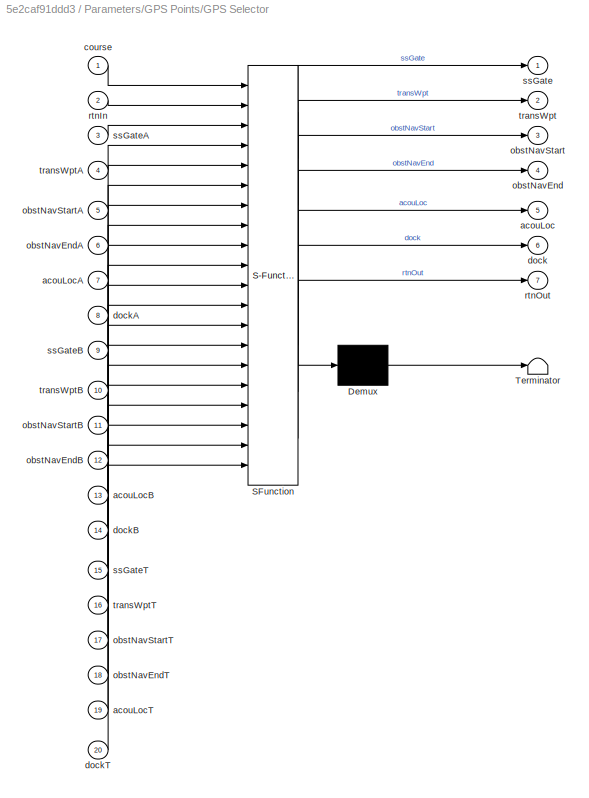
BLOCK [SubSystem] Parameters/GPS Points/GPS Selector
  ErrorFcn = Stateflow.Translate.translate
  PermitHierarchicalResolution = ExplicitOnly
  Ports = [20, 7]
  RequestExecContextInheritance = off
  SFBlockType = MATLAB Function
  TreatAsAtomicUnit = on
BLOCK [Demux] Parameters/GPS Points/GPS Selector/ Demux 
  Outputs = 1
  Ports = [1, 1]
BLOCK [S-Function] Parameters/GPS Points/GPS Selector/ SFunction 
  EnableBusSupport = on
  FunctionName = sf_sfun
  PortCounts = [20 8]
  Ports = [20, 8]
  Tag = Stateflow S-Function RoboBoatVU_2014_Calypso 54
BLOCK [Terminator] Parameters/GPS Points/GPS Selector/ Terminator 
BLOCK [Outport] Parameters/GPS Points/GPS Selector/acouLoc
  IconDisplay = Port number
  Port = 5
BLOCK [Inport] Parameters/GPS Points/GPS Selector/acouLocA
  IconDisplay = Port number
  Port = 7
BLOCK [Inport] Parameters/GPS Points/GPS Selector/acouLocB
  IconDisplay = Port number
  Port = 13
BLOCK [Inport] Parameters/GPS Points/GPS Selector/acouLocT
  IconDisplay = Port number
  Port = 19
BLOCK [Inport] Parameters/GPS Points/GPS Selector/course
  IconDisplay = Port number
BLOCK [Outport] Parameters/GPS Points/GPS Selector/dock
  IconDisplay = Port number
  Port = 6
BLOCK [Inport] Parameters/GPS Points/GPS Selector/dockA
  IconDisplay = Port number
  Port = 8
BLOCK [Inport] Parameters/GPS Points/GPS Selector/dockB
  IconDisplay = Port number
  Port = 14
BLOCK [Inport] Parameters/GPS Points/GPS Selector/dockT
  IconDisplay = Port number
  Port = 20
BLOCK [Outport] Parameters/GPS Points/GPS Selector/obstNavEnd
  IconDisplay = Port number
  Port = 4
BLOCK [Inport] Parameters/GPS Points/GPS Selector/obstNavEndA
  IconDisplay = Port number
  Port = 6
BLOCK [Inport] Parameters/GPS Points/GPS Selector/obstNavEndB
  IconDisplay = Port number
  Port = 12
BLOCK [Inport] Parameters/GPS Points/GPS Selector/obstNavEndT
  IconDisplay = Port number
  Port = 18
BLOCK [Outport] Parameters/GPS Points/GPS Selector/obstNavStart
  IconDisplay = Port number
  Port = 3
BLOCK [Inport] Parameters/GPS Points/GPS Selector/obstNavStartA
  IconDisplay = Port number
  Port = 5
BLOCK [Inport] Parameters/GPS Points/GPS Selector/obstNavStartB
  IconDisplay = Port number
  Port = 11
BLOCK [Inport] Parameters/GPS Points/GPS Selector/obstNavStartT
  IconDisplay = Port number
  Port = 17
BLOCK [Inport] Parameters/GPS Points/GPS Selector/rtnIn
  IconDisplay = Port number
  Port = 2
BLOCK [Outport] Parameters/GPS Points/GPS Selector/rtnOut
  IconDisplay = Port number
  Port = 7
BLOCK [Outport] Parameters/GPS Points/GPS Selector/ssGate
  IconDisplay = Port number
BLOCK [Inport] Parameters/GPS Points/GPS Selector/ssGateA
  IconDisplay = Port number
  Port = 3
BLOCK [Inport] Parameters/GPS Points/GPS Selector/ssGateB
  IconDisplay = Port number
  Port = 9
BLOCK [Inport] Parameters/GPS Points/GPS Selector/ssGateT
  IconDisplay = Port number
  Port = 15
BLOCK [Outport] Parameters/GPS Points/GPS Selector/transWpt
  IconDisplay = Port number
  Port = 2
BLOCK [Inport] Parameters/GPS Points/GPS Selector/transWptA
  IconDisplay = Port number
  Port = 4
BLOCK [Inport] Parameters/GPS Points/GPS Selector/transWptB
  IconDisplay = Port number
  Port = 10
BLOCK [Inport] Parameters/GPS Points/GPS Selector/transWptT
  IconDisplay = Port number
  Port = 16
BLOCK [Constant] Parameters/GPS Points/Obst Nav End A
  SampleTime = 0.1
  Value = [3648.1317 -7611.4962]
BLOCK [Constant] Parameters/GPS Points/Obst Nav End B
  SampleTime = 0.1
  Value = [3648.1215, -7611.5112]
BLOCK [Constant] Parameters/GPS Points/Obst Nav End T
  SampleTime = 0.1
  Value = [3648.14 -7611.5365]
BLOCK [Constant] Parameters/GPS Points/Obst Nav Start A
  SampleTime = 0.1
  Value = [3648.1188 -7611.4774]
BLOCK [Constant] Parameters/GPS Points/Obst Nav Start B
  SampleTime = 0.1
  Value = [3648.1133 -7611.4833]
BLOCK [Constant] Parameters/GPS Points/Obst Nav Start T
  SampleTime = 0.1
  Value = [3648.1381 -7611.6302]
BLOCK [Constant] Parameters/GPS Points/Return
  SampleTime = 0.1
  Value = [3648.1065 -7611.5303]
BLOCK [Constant] Parameters/GPS Points/SpeedGate A
  SampleTime = 0.1
  Value = [1,1]
BLOCK [Constant] Parameters/GPS Points/SpeedGate B
  SampleTime = 0.1
  Value = [1,1]
BLOCK [Constant] Parameters/GPS Points/SpeedGate T
  SampleTime = 0.1
  Value = [3648.1404 -7611.406]
BLOCK [Constant] Parameters/GPS Points/Tramsition Waypoint T
  SampleTime = 0.1
  Value = [3648.1426 -7611.466]
BLOCK [Constant] Parameters/GPS Points/Transition Waypoint A
  SampleTime = 0.1
  Value = [3648.1462, -7611.4953]
BLOCK [Constant] Parameters/GPS Points/Transition Waypoint B
  SampleTime = 0.1
  Value = [3648.1163 -7611.5232]
BLOCK [DataStoreWrite] Parameters/Write
  DataStoreName = Course
  Ports = [1]
BLOCK [SubSystem] Sensors
  Ports = [1, 1]
  RequestExecContextInheritance = off
BLOCK [BusCreator] Sensors/Bus Creator
  DisplayOption = bar
  Inputs = 2
  Ports = [2, 1]
BLOCK [BusCreator] Sensors/Bus Creator1
  DisplayOption = bar
  Inputs = 2
  Ports = [2, 1]
BLOCK [SubSystem] Sensors/Digital In
  Ports = [0, 1]
  RequestExecContextInheritance = off
BLOCK [BusCreator] Sensors/Digital In/Bus Creator
  DisplayOption = bar
  Inputs = 1
  Ports = [1, 1]
BLOCK [Outport] Sensors/Digital In/Digital In
  IconDisplay = Port number
BLOCK [Reference] Sensors/Digital In/Digital input  REF=speedgoatlib_IO102/Digital input
  Ports = [0, 8]
  SourceBlock = speedgoatlib_IO102/Digital input
  SourceType = di_IO102
  channels = [1,2,3,4,5,6,7,8]
  id = 1
  pciSlot = -1
  ts = 0.1
BLOCK [Terminator] Sensors/Digital In/Terminator1
BLOCK [Terminator] Sensors/Digital In/Terminator17
BLOCK [Terminator] Sensors/Digital In/Terminator18
BLOCK [Terminator] Sensors/Digital In/Terminator19
BLOCK [Terminator] Sensors/Digital In/Terminator20
BLOCK [Terminator] Sensors/Digital In/Terminator21
BLOCK [Terminator] Sensors/Digital In/Terminator22
BLOCK [Outport] Sensors/Input Signals
  IconDisplay = Port number
BLOCK [SubSystem] Sensors/Serial In
  Ports = [1, 1]
  RequestExecContextInheritance = off
BLOCK [SubSystem] Sensors/Serial In/ GPS
  Ports = [1, 1]
  RequestExecContextInheritance = off
BLOCK [BusCreator] Sensors/Serial In/ GPS/Bus Creator
  DisplayOption = bar
  Inputs = 5
  Ports = [5, 1]
BLOCK [Reference] Sensors/Serial In/ GPS/Decode GPGGA  REF=xpcseriallib/ASCII Decode 
  Ports = [1, 8]
  SourceBlock = xpcseriallib/ASCII Decode
  SourceType = ASCII Decode
  format = $GPGGA,%d,%f,%c%f,%c%f,%f,%f
  nvars = 8
  vartypes = { }
BLOCK [Reference] Sensors/Serial In/ GPS/Decode GPRMC  REF=xpcseriallib/ASCII Decode 
  Ports = [1, 8]
  SourceBlock = xpcseriallib/ASCII Decode
  SourceType = ASCII Decode
  format = $GPRMC,%f,%c%f,%c%f,%c%f,%f
  nvars = 8
  vartypes = { }
BLOCK [Reference] Sensors/Serial In/ GPS/FIFO ASCII read 1  REF=xpcseriallib/FIFO ASCII read 
  Ports = [1, 2]
  SourceBlock = xpcseriallib/FIFO ASCII read
  SourceType = Asynchronous FIFO Block: reader
  enable = off
  header = {'$GPGGA','$GPRMC'}
  hold = Zero output if no new data
  maxsize = 1024
  outputtype = 8 bit uint null terminated
  sampletime = -1
  term = [13 10]
BLOCK [Inport] Sensors/Serial In/ GPS/GPS NMEA
  IconDisplay = Port number
BLOCK [Outport] Sensors/Serial In/ GPS/GPS data (5)
  IconDisplay = Port number
BLOCK [Gain] Sensors/Serial In/ GPS/Gain
  Gain = -1
  OutDataTypeStr = Inherit: Inherit via internal rule
  ParamDataTypeStr = Inherit: Inherit via internal rule
  SaturateOnIntegerOverflow = off
BLOCK [Terminator] Sensors/Serial In/ GPS/Terminator1
BLOCK [Terminator] Sensors/Serial In/ GPS/Terminator10
BLOCK [Terminator] Sensors/Serial In/ GPS/Terminator11
BLOCK [Terminator] Sensors/Serial In/ GPS/Terminator2
BLOCK [Terminator] Sensors/Serial In/ GPS/Terminator3
BLOCK [Terminator] Sensors/Serial In/ GPS/Terminator4
BLOCK [Terminator] Sensors/Serial In/ GPS/Terminator5
BLOCK [Terminator] Sensors/Serial In/ GPS/Terminator6
BLOCK [Terminator] Sensors/Serial In/ GPS/Terminator7
BLOCK [Terminator] Sensors/Serial In/ GPS/Terminator8
BLOCK [Terminator] Sensors/Serial In/ GPS/Terminator9
BLOCK [Reference] Sensors/Serial In/ASCII Encode 1  REF=xpcseriallib/ASCII Encode 
  Ports = [6, 1]
  SourceBlock = xpcseriallib/ASCII Encode
  SourceType = ASCII Encode
  format = {"SGR":%d,"Lat":%f,"Long":%f,"C1":%d,"C2":%d,"C3":%d} \r\n
  maxlength = 128
  nvars = 6
  vartypes = { 'double' }
BLOCK [Reference] Sensors/Serial In/ASCII Encode 2  REF=xpcseriallib/ASCII Encode 
  Ports = [1, 1]
  SourceBlock = xpcseriallib/ASCII Encode
  SourceType = ASCII Encode
  format = SGTask:%d \r\n
  maxlength = 128
  nvars = 1
  vartypes = { 'double' }
BLOCK [SubSystem] Sensors/Serial In/Arduino Due
  Ports = [1, 1]
  RequestExecContextInheritance = off
BLOCK [Reference] Sensors/Serial In/Arduino Due/ASCII Decode 1  REF=xpcseriallib/ASCII Decode 
  Ports = [1, 1]
  SourceBlock = xpcseriallib/ASCII Decode
  SourceType = ASCII Decode
  format = !A:%f\r\n
  nvars = 1
  vartypes = {'double'}
BLOCK [Inport] Sensors/Serial In/Arduino Due/Arduino Due In
  IconDisplay = Port number
BLOCK [Outport] Sensors/Serial In/Arduino Due/Arduino Due Out
  IconDisplay = Port number
BLOCK [BusCreator] Sensors/Serial In/Arduino Due/Bus Creator
  DisplayOption = bar
  Inputs = 1
  Ports = [1, 1]
BLOCK [Reference] Sensors/Serial In/Arduino Due/FIFO ASCII read   REF=xpcseriallib/FIFO ASCII read 
  Ports = [1, 1]
  SourceBlock = xpcseriallib/FIFO ASCII read
  SourceType = Asynchronous FIFO Block: reader
  enable = off
  header = {'!A:'}
  hold = Zero output if no new data
  maxsize = 1024
  outputtype = 8 bit uint null terminated
  sampletime = 0.1
  term = [13 10]
BLOCK [Reference] Sensors/Serial In/Baseboard Serial F  REF=xpcseriallib/Mainboard/Baseboard
Serial F
  Ports = [2, 2]
  SourceBlock = xpcseriallib/Mainboard/Baseboard\nSerial F
  SourceType = Baseboard RS232 Send Receive
  automode1 = on
  automode2 = on
  baud1 = 19200
  baud2 = 19200
  config = Com1/Com3
  fifomode1 = 64 deep
  fifomode2 = 64 deep
  group = Basic Setup
  irqnum = 4
  ndata1 = 8
  ndata2 = 8
  nstop1 = 1
  nstop2 = 1
  parity1 = None
  parity2 = None
  port = 2
  rcvfifosize1 = 1024
  rcvfifosize2 = 1024
  rlevel1 = half full
  rlevel2 = half full
  saddr1 = 0x3f8
  saddr2 = 0x3e8
  xmtdatatype1 = 8 bit uint null terminated
  xmtdatatype2 = 8 bit uint null terminated
  xmtfifosize1 = 1024
  xmtfifosize2 = 1024
BLOCK [Reference] Sensors/Serial In/Baseboard Serial F1  REF=xpcseriallib/Mainboard/Baseboard
Serial F
  Ports = [2, 2]
  SourceBlock = xpcseriallib/Mainboard/Baseboard\nSerial F
  SourceType = Baseboard RS232 Send Receive
  automode1 = on
  automode2 = on
  baud1 = 115200
  baud2 = 115200
  config = Com2/Com4
  fifomode1 = 64 deep
  fifomode2 = 64 deep
  group = Basic Setup
  irqnum = 4
  ndata1 = 8
  ndata2 = 8
  nstop1 = 1
  nstop2 = 1
  parity1 = None
  parity2 = None
  port = 1
  rcvfifosize1 = 1024
  rcvfifosize2 = 1024
  rlevel1 = half full
  rlevel2 = half full
  saddr1 = 0x3f8
  saddr2 = 0x3e8
  xmtdatatype1 = 8 bit uint null terminated
  xmtdatatype2 = 8 bit uint null terminated
  xmtfifosize1 = 1024
  xmtfifosize2 = 1024
BLOCK [BusCreator] Sensors/Serial In/Bus Creator
  DisplayOption = bar
  Inputs = 5
  Ports = [5, 1]
BLOCK [BusSelector] Sensors/Serial In/Bus Selector
  OutputSignals = LIDAR Panda,Comms Panda.Request Number,Comms Panda.Latitude,Comms Panda.Longitude,Comms Panda.C1,Comms Panda.C2,Comms Panda.C3
  Ports = [1, 7]
BLOCK [SubSystem] Sensors/Serial In/Communication Panda
  Ports = [1, 1]
  RequestExecContextInheritance = off
BLOCK [Reference] Sensors/Serial In/Communication Panda/ASCII Decode 6  REF=xpcseriallib/ASCII Decode 
  Ports = [1, 3]
  SourceBlock = xpcseriallib/ASCII Decode
  SourceType = ASCII Decode
  format = CP:%d Dat1:%d Dat2:%d \r\n
  nvars = 3
  vartypes = {}
BLOCK [BusCreator] Sensors/Serial In/Communication Panda/Bus Creator4
  DisplayOption = bar
  Inputs = 3
  Ports = [3, 1]
BLOCK [Inport] Sensors/Serial In/Communication Panda/Comm Panda In
  IconDisplay = Port number
BLOCK [Outport] Sensors/Serial In/Communication Panda/Comm Panda Out
  IconDisplay = Port number
BLOCK [Reference] Sensors/Serial In/Communication Panda/FIFO ASCII read 1  REF=xpcseriallib/FIFO ASCII read 
  Ports = [1, 1]
  SourceBlock = xpcseriallib/FIFO ASCII read
  SourceType = Asynchronous FIFO Block: reader
  enable = off
  header = {'CP:'}
  hold = Zero output if no new data
  maxsize = 1024
  outputtype = 8 bit uint null terminated
  sampletime = 0.1
  term = [13 10]
BLOCK [Constant] Sensors/Serial In/Constant
BLOCK [SubSystem] Sensors/Serial In/Decode Compass
  Ports = [1, 1]
  RequestExecContextInheritance = off
BLOCK [Reference] Sensors/Serial In/Decode Compass/ASCII Decode   REF=xpcseriallib/ASCII Decode 
  Ports = [1, 7]
  SourceBlock = xpcseriallib/ASCII Decode
  SourceType = ASCII Decode
  format = $PTNTHPR,%f,%c%f,%c%f,%c
  nvars = 7
  vartypes = { }
BLOCK [BusCreator] Sensors/Serial In/Decode Compass/Bus Creator
  DisplayOption = bar
  Inputs = 3
  Ports = [3, 1]
BLOCK [Inport] Sensors/Serial In/Decode Compass/Compass NMEA
  IconDisplay = Port number
BLOCK [Outport] Sensors/Serial In/Decode Compass/Compass data (3)
  IconDisplay = Port number
BLOCK [SubSystem] Sensors/Serial In/Decode Compass/Correct Heading Angle Magnetic to True North
  Ports = [1, 1]
  RequestExecContextInheritance = off
BLOCK [Inport] Sensors/Serial In/Decode Compass/Correct Heading Angle Magnetic to True North/Heading Mag
  IconDisplay = Port number
BLOCK [Outport] Sensors/Serial In/Decode Compass/Correct Heading Angle Magnetic to True North/Heading True
  IconDisplay = Port number
BLOCK [Constant] Sensors/Serial In/Decode Compass/Correct Heading Angle Magnetic to True North/Magnetic Declination
  Value = -10.877
BLOCK [SubSystem] Sensors/Serial In/Decode Compass/Correct Heading Angle Magnetic to True North/Magnetic to True North Conversion
  ErrorFcn = Stateflow.Translate.translate
  PermitHierarchicalResolution = ExplicitOnly
  Ports = [2, 1]
  RequestExecContextInheritance = off
  SFBlockType = MATLAB Function
  TreatAsAtomicUnit = on
BLOCK [Demux] Sensors/Serial In/Decode Compass/Correct Heading Angle Magnetic to True North/Magnetic to True North Conversion/ Demux 
  Outputs = 1
  Ports = [1, 1]
BLOCK [S-Function] Sensors/Serial In/Decode Compass/Correct Heading Angle Magnetic to True North/Magnetic to True North Conversion/ SFunction 
  EnableBusSupport = on
  FunctionName = sf_sfun
  PortCounts = [2 2]
  Ports = [2, 2]
  Tag = Stateflow S-Function RoboBoatVU_2014_Calypso 44
BLOCK [Terminator] Sensors/Serial In/Decode Compass/Correct Heading Angle Magnetic to True North/Magnetic to True North Conversion/ Terminator 
BLOCK [Inport] Sensors/Serial In/Decode Compass/Correct Heading Angle Magnetic to True North/Magnetic to True North Conversion/HeadingM
  IconDisplay = Port number
BLOCK [Outport] Sensors/Serial In/Decode Compass/Correct Heading Angle Magnetic to True North/Magnetic to True North Conversion/HeadingT
  IconDisplay = Port number
BLOCK [Inport] Sensors/Serial In/Decode Compass/Correct Heading Angle Magnetic to True North/Magnetic to True North Conversion/MagDec
  IconDisplay = Port number
  Port = 2
BLOCK [Reference] Sensors/Serial In/Decode Compass/FIFO ASCII read   REF=xpcseriallib/FIFO ASCII read 
  Ports = [1, 1]
  SourceBlock = xpcseriallib/FIFO ASCII read
  SourceType = Asynchronous FIFO Block: reader
  enable = off
  header = {'$PTNTHPR'}
  hold = Zero output if no new data
  maxsize = 64
  outputtype = 8 bit uint null terminated
  sampletime = -1
  term = [13 10]
BLOCK [Terminator] Sensors/Serial In/Decode Compass/Terminator
BLOCK [Terminator] Sensors/Serial In/Decode Compass/Terminator1
BLOCK [Terminator] Sensors/Serial In/Decode Compass/Terminator2
BLOCK [Terminator] Sensors/Serial In/Decode Compass/Terminator3
BLOCK [Ground] Sensors/Serial In/Ground
BLOCK [Ground] Sensors/Serial In/Ground1
BLOCK [Ground] Sensors/Serial In/Ground3
BLOCK [Ground] Sensors/Serial In/Ground4
BLOCK [SubSystem] Sensors/Serial In/LIDAR Panda
  Ports = [1, 1]
  RequestExecContextInheritance = off
BLOCK [Reference] Sensors/Serial In/LIDAR Panda/ASCII Decode 2  REF=xpcseriallib/ASCII Decode 
  Ports = [1, 4]
  SourceBlock = xpcseriallib/ASCII Decode
  SourceType = ASCII Decode
  format = Prob:%f Color:%d Dist:%d Ang:%d \r\n
  nvars = 4
  vartypes = {}
BLOCK [BusCreator] Sensors/Serial In/LIDAR Panda/Bus Creator1
  DisplayOption = bar
  Ports = [4, 1]
BLOCK [Reference] Sensors/Serial In/LIDAR Panda/FIFO ASCII read   REF=xpcseriallib/FIFO ASCII read 
  Ports = [1, 1]
  SourceBlock = xpcseriallib/FIFO ASCII read
  SourceType = Asynchronous FIFO Block: reader
  enable = off
  header = {'Prob:'}
  hold = Zero output if no new data
  maxsize = 1024
  outputtype = 8 bit uint null terminated
  sampletime = 0.1
  term = [13 10]
BLOCK [Inport] Sensors/Serial In/LIDAR Panda/LIDAR Panda In
  IconDisplay = Port number
BLOCK [Outport] Sensors/Serial In/LIDAR Panda/LIDAR Panda Out
  IconDisplay = Port number
BLOCK [Outport] Sensors/Serial In/Serial In
  IconDisplay = Port number
BLOCK [Inport] Sensors/Serial In/Serial Out
  IconDisplay = Port number
BLOCK [Reference] Sensors/Serial In/TPMC465  REF=speedgoatlib/IO504/TPMC465  (lib defined in mdl_2b10c7445f81, mdl_649b3eec89a6, +4 more)
  Ports = [8, 8]
  SourceBlock = speedgoatlib/IO504/TPMC465
  SourceType = sendreceive_IO504
  baud1 = 115200
  baud2 = 115200
  baud3 = 115200
  baud4 = 115200
  baud5 = 115200
  baud6 = 115200
  baud7 = 115200
  baud8 = 115200
  bauddivisor1 = 1
  bauddivisor2 = 1
  bauddivisor3 = 1
  bauddivisor4 = 1
  bauddivisor5 = 1
  bauddivisor6 = 1
  bauddivisor7 = 1
  bauddivisor8 = 1
  group = Basic Setup
  hwmode1 = none
  hwmode2 = none
  hwmode3 = none
  hwmode4 = none
  hwmode5 = none
  hwmode6 = none
  hwmode7 = none
  hwmode8 = none
  irqnum = 9
  ndata1 = 7
  ndata2 = 8
  ndata3 = 8
  ndata4 = 8
  ndata5 = 8
  ndata6 = 8
  ndata7 = 8
  ndata8 = 8
  nstop1 = 1
  nstop2 = 1
  nstop3 = 1
  nstop4 = 1
  nstop5 = 1
  nstop6 = 1
  nstop7 = 1
  nstop8 = 1
  parity1 = Even
  parity2 = None
  parity3 = None
  parity4 = None
  parity5 = None
  parity6 = None
  parity7 = None
  parity8 = None
  port = 2
  prescale1 = off
  prescale2 = off
  prescale3 = off
  prescale4 = off
  prescale5 = off
  prescale6 = off
  prescale7 = off
  prescale8 = off
  rcvfifosize1 = 1024
  rcvfifosize2 = 1024
  rcvfifosize3 = 1024
  rcvfifosize4 = 1024
  rcvfifosize5 = 1024
  rcvfifosize6 = 1024
  rcvfifosize7 = 1024
  rcvfifosize8 = 1024
  rlevel1 = half full (32)
  rlevel2 = half full (32)
  rlevel3 = half full (32)
  rlevel4 = half full (32)
  rlevel5 = 1
  rlevel6 = 1
  rlevel7 = 1
  rlevel8 = 1
  rs485auto1 = off
  rs485auto2 = off
  rs485auto3 = off
  rs485auto4 = off
  rs485auto5 = off
  rs485auto6 = off
  rs485auto7 = off
  rs485auto8 = off
  rs485delay1 = 0
  rs485delay2 = 0
  rs485delay3 = 0
  rs485delay4 = 0
  rs485delay5 = 0
  rs485delay6 = 0
  rs485delay7 = 0
  rs485delay8 = 0
  sampling1 = 16x (standard)
  sampling2 = 16x (standard)
  sampling3 = 16x (standard)
  sampling4 = 16x (standard)
  sampling5 = 16x (standard)
  sampling6 = 16x (standard)
  sampling7 = 16x (standard)
  sampling8 = 16x (standard)
  slot = -1
  standard1 = on
  standard2 = on
  standard3 = on
  standard4 = on
  standard5 = on
  standard6 = on
  standard7 = on
  standard8 = on
  swmode1 = none
  swmode2 = none
  swmode3 = none
  swmode4 = none
  swmode5 = none
  swmode6 = none
  swmode7 = none
  swmode8 = none
  transceiver1 = RS232 (max 921.6kb/s)
  transceiver2 = RS232 (max 921.6kb/s)
  transceiver3 = RS232 (max 921.6kb/s)
  transceiver4 = RS232 (max 921.6kb/s)
  transceiver5 = RS232 (max 921.6kb/s)
  transceiver6 = RS232 (max 921.6kb/s)
  transceiver7 = RS232 (max 921.6kb/s)
  transceiver8 = RS232 (max 921.6kb/s)
  xmtdatatype1 = 8 bit uint null terminated
  xmtdatatype2 = 8 bit uint null terminated
  xmtdatatype3 = 8 bit uint null terminated
  xmtdatatype4 = 8 bit uint null terminated
  xmtdatatype5 = 8 bit uint null terminated
  xmtdatatype6 = 8 bit uint null terminated
  xmtdatatype7 = 8 bit uint null terminated
  xmtdatatype8 = 8 bit uint null terminated
  xmtfifosize1 = 1024
  xmtfifosize2 = 1024
  xmtfifosize3 = 1024
  xmtfifosize4 = 1024
  xmtfifosize5 = 1024
  xmtfifosize6 = 1024
  xmtfifosize7 = 1024
  xmtfifosize8 = 1024
  xoffchar1 = 19
  xoffchar2 = 19
  xoffchar3 = 19
  xoffchar4 = 19
  xoffchar5 = 19
  xoffchar6 = 19
  xoffchar7 = 19
  xoffchar8 = 19
  xonchar1 = 17
  xonchar2 = 17
  xonchar3 = 17
  xonchar4 = 17
  xonchar5 = 17
  xonchar6 = 17
  xonchar7 = 17
  xonchar8 = 17
BLOCK [Terminator] Sensors/Serial In/Terminator1
BLOCK [Terminator] Sensors/Serial In/Terminator2
BLOCK [Terminator] Sensors/Serial In/Terminator3
BLOCK [Terminator] Sensors/Serial In/Terminator4
BLOCK [Terminator] Sensors/Serial In/Terminator5
BLOCK [Terminator] Sensors/Serial In/Terminator6
BLOCK [Terminator] Sensors/Serial In/Terminator7
BLOCK [Terminator] Sensors/Serial In/Terminator8
BLOCK [Inport] Sensors/Serial Out
  IconDisplay = Port number
BLOCK [SubSystem] Sensors/Video In
  Ports = [0, 1]
  RequestExecContextInheritance = off
BLOCK [Reference] Sensors/Video In/From USB Video Device  REF=xpcvideousblib/From USB Video Device
  Ports = [0, 1]
  SourceBlock = xpcvideousblib/From USB Video Device
  SourceType = xpcvideousb
  cfmt = RGB24 (8:8:8)
  ffmt = Uncompressed
  fint = 1/10
  iheight = 480
  isig = One multidimensional signal
  iwidth = 640
  paddr = -1
  sconf = <Select a configuration>
  status = off
  trigger = off
  updateBlock = 1
BLOCK [Outport] Sensors/Video In/RGB image
  IconDisplay = Port number
BLOCK [Reference] Sensors/Video In/USB Video Device List  REF=xpcvideousblib/USB Video Device List
  Ports = []
  ShowInLibBrowser = 0
  SourceBlock = xpcvideousblib/USB Video Device List
  SourceType = xpcusbsearch
  UserDataPersistent = on
  usb_search = on
BLOCK [Reference] Setup  REF=speedgoatlib_IO102/Setup
  Ports = []
  SourceBlock = speedgoatlib_IO102/Setup
  SourceType = setup_IO102
  adChannel = 16
  adChannelMode = Multiple-channel (enter number of channels below)
  adCoupling = Differential
  cal = off
  daChannel = [1,2,3,4]
  daInitValue = [0]
  daReset = [1]
  diChannel = [1,2,3,4,5,6,7,8]
  doChannel = [1,2,3,4,5,6,7,8]
  doInitValue = [0]
  doReset = [1]
  group = Digital output setup
  id = 1
  pciSlot = -1
  range = +-5V
BLOCK [SubSystem] Sinks
  Ports = [1, 1]
  RequestExecContextInheritance = off
BLOCK [BusSelector] Sinks/Bus Selector
  OutputSignals = Sensors.Serial In.Compass.Heading,Outputs.Control Signals,Outputs.Annotated Image,Outputs.Serial Outputs
  Ports = [1, 4]
BLOCK [SubSystem] Sinks/Image Transmission
  Ports = [1]
  RequestExecContextInheritance = off
BLOCK [Reference] Sinks/Image Transmission/Image Transmit  REF=xpcvideoutillib/Image Transmit
  Ports = [2]
  SourceBlock = xpcvideoutillib/Image Transmit
  SourceType = xpcimagetransmit
  ipAddress = 255.255.255.255
  ipPort = 25000
  localPort = -1
  maxpacket = 40*1024
  sampletime = -1
  vblLen = on
BLOCK [Reference] Sinks/Image Transmission/Jpeg Compression1  REF=xpcvideoutillib/Jpeg Compression
  Ports = [1, 2]
  SourceBlock = xpcvideoutillib/Jpeg Compression
  SourceType = CJPEG
  cspace = RGB
  isig = One multidimensional signal
  length = on
  maxsize = 640*480
  quality = 40
BLOCK [Inport] Sinks/Image Transmission/RGB Image
  IconDisplay = Port number
BLOCK [RateTransition] Sinks/Image Transmission/Rate Transition
  OutPortSampleTime = 1
BLOCK [Inport] Sinks/Output Signal
  IconDisplay = Port number
BLOCK [Outport] Sinks/Serial Outputs
  IconDisplay = Port number
BLOCK [SubSystem] Sinks/actuators
  Ports = [2]
  RequestExecContextInheritance = off
BLOCK [Inport] Sinks/actuators/Compass Heading
  IconDisplay = Port number
BLOCK [Inport] Sinks/actuators/Control Signals
  IconDisplay = Port number
  Port = 2
BLOCK [SubSystem] Sinks/actuators/analog output
  Ports = [2]
  RequestExecContextInheritance = off
BLOCK [Reference] Sinks/actuators/analog output/Analog output  REF=speedgoatlib_IO102/Analog output
  Ports = [4]
  SourceBlock = speedgoatlib_IO102/Analog output
  SourceType = da_IO102
  channels = [1,2,3,4]
  id = 1
  pciSlot = -1
  range = 2
  ts = 0.1
BLOCK [Inport] Sinks/actuators/analog output/Compass Heading
  IconDisplay = Port number
BLOCK [Inport] Sinks/actuators/analog output/Control Signals
  IconDisplay = Port number
  Port = 2
BLOCK [Ground] Sinks/actuators/analog output/Ground
BLOCK [SubSystem] Sinks/actuators/analog output/Subsystem
  Ports = [2, 2]
  RequestExecContextInheritance = off
BLOCK [BusSelector] Sinks/actuators/analog output/Subsystem/Bus Selector
  OutputSignals = RPM,Desired Heading
  Ports = [1, 2]
BLOCK [Inport] Sinks/actuators/analog output/Subsystem/Compass Heading
  IconDisplay = Port number
BLOCK [Inport] Sinks/actuators/analog output/Subsystem/Control Signals
  IconDisplay = Port number
  Port = 2
BLOCK [SubSystem] Sinks/actuators/analog output/Subsystem/Heading Controller
  Ports = [2, 1]
  RequestExecContextInheritance = off
BLOCK [Inport] Sinks/actuators/analog output/Subsystem/Heading Controller/Compass Heading
  IconDisplay = Port number
  Port = 2
BLOCK [Gain] Sinks/actuators/analog output/Subsystem/Heading Controller/Gain
  Gain = -0.05
  OutDataTypeStr = Inherit: Inherit via internal rule
  ParamDataTypeStr = Inherit: Inherit via internal rule
  SaturateOnIntegerOverflow = off
BLOCK [Inport] Sinks/actuators/analog output/Subsystem/Heading Controller/Heading Desired
  IconDisplay = Port number
BLOCK [SubSystem] Sinks/actuators/analog output/Subsystem/Heading Controller/MATLAB Function
  ErrorFcn = Stateflow.Translate.translate
  PermitHierarchicalResolution = ExplicitOnly
  Ports = [2, 1]
  RequestExecContextInheritance = off
  SFBlockType = MATLAB Function
  TreatAsAtomicUnit = on
BLOCK [Demux] Sinks/actuators/analog output/Subsystem/Heading Controller/MATLAB Function/ Demux 
  Outputs = 1
  Ports = [1, 1]
BLOCK [S-Function] Sinks/actuators/analog output/Subsystem/Heading Controller/MATLAB Function/ SFunction 
  EnableBusSupport = on
  FunctionName = sf_sfun
  PortCounts = [2 2]
  Ports = [2, 2]
  Tag = Stateflow S-Function RoboBoatVU_2014_Calypso 3
BLOCK [Terminator] Sinks/actuators/analog output/Subsystem/Heading Controller/MATLAB Function/ Terminator 
BLOCK [Inport] Sinks/actuators/analog output/Subsystem/Heading Controller/MATLAB Function/CompassHeading
  IconDisplay = Port number
  Port = 2
BLOCK [Inport] Sinks/actuators/analog output/Subsystem/Heading Controller/MATLAB Function/HeadingDesired
  IconDisplay = Port number
BLOCK [Outport] Sinks/actuators/analog output/Subsystem/Heading Controller/MATLAB Function/steering
  IconDisplay = Port number
BLOCK [Saturate] Sinks/actuators/analog output/Subsystem/Heading Controller/Saturation
  InputPortMap = u0
  LowerLimit = 0
  Ports = [1, 1]
  UpperLimit = 5
BLOCK [Outport] Sinks/actuators/analog output/Subsystem/Heading Controller/Steering
  IconDisplay = Port number
BLOCK [Sum] Sinks/actuators/analog output/Subsystem/Heading Controller/Sum
  IconShape = round
  InputSameDT = off
  Inputs = ++|
  OutDataTypeStr = Inherit: Inherit via internal rule
  Ports = [2, 1]
  SaturateOnIntegerOverflow = off
BLOCK [Constant] Sinks/actuators/analog output/Subsystem/Heading Controller/Voltage Nuetral
  Value = 2.5
BLOCK [Outport] Sinks/actuators/analog output/Subsystem/Propulsion
  IconDisplay = Port number
BLOCK [SubSystem] Sinks/actuators/analog output/Subsystem/Propulsion Controller
  Ports = [1, 1]
  RequestExecContextInheritance = off
BLOCK [Outport] Sinks/actuators/analog output/Subsystem/Propulsion Controller/Propulsion
  IconDisplay = Port number
BLOCK [Inport] Sinks/actuators/analog output/Subsystem/Propulsion Controller/RPM
  IconDisplay = Port number
BLOCK [Saturate] Sinks/actuators/analog output/Subsystem/Propulsion Controller/Saturation
  InputPortMap = u0
  LowerLimit = 0
  Ports = [1, 1]
  UpperLimit = 5
BLOCK [Sum] Sinks/actuators/analog output/Subsystem/Propulsion Controller/Sum
  IconShape = round
  InputSameDT = off
  Inputs = ++|
  OutDataTypeStr = Inherit: Inherit via internal rule
  Ports = [2, 1]
  SaturateOnIntegerOverflow = off
BLOCK [Constant] Sinks/actuators/analog output/Subsystem/Propulsion Controller/Voltage Neutral
  Value = 2.5
BLOCK [Gain] Sinks/actuators/analog output/Subsystem/Propulsion Controller/Volts // RPM
  Gain = 2.5/6000
  OutDataTypeStr = Inherit: Inherit via internal rule
  ParamDataTypeStr = Inherit: Inherit via internal rule
  SaturateOnIntegerOverflow = off
BLOCK [Outport] Sinks/actuators/analog output/Subsystem/Steering
  IconDisplay = Port number
  Port = 2
BLOCK [SubSystem] Sinks/data log
  Commented = on
  Ports = [1]
  RequestExecContextInheritance = off
BLOCK [Inport] Sinks/data log/Output signal
  IconDisplay = Port number
BLOCK [Reference] Sinks/data log/Scope   REF=slrtlib/Displays and
Logging/Scope 
  Ports = [2]
  SourceBlock = slrtlib/Displays and\nLogging/Scope
  SourceType = xpcscopeblock
  autorestart = off
  autostart = on
  dynamicfilemode = off
  filename = data.dat
  formatstr = '%15.6f'
  grid = on
  interleave = 1
  maxwritefilesize = 512*1024^2
  mode = Lazy
  noprepostsamples = 0
  nosamples = 250
  scopeno = 1
  scopetype = File
  triggerlevel = 1
  triggermode = Signal triggering
  triggersample = 0
  triggerscope = 1
  triggersignal = 1
  triggerslope = Rising
  trigsignalfromport = on
  viewmode = Graphical redraw
  writesize = 512
  ylimits = [0,0]
BLOCK [UnitDelay] Unit Delay
  InputProcessing = Elements as channels (sample based)
  SampleTime = -1
ANNOTATION (root): Block Background Color Code: Black - Global Variables Magenta - Adjustable Parameters or Subsystems containing them Grey -High Importance Variables, should be double checked if changed Yellow - Low level I/O Cyan - FSM subsystem Light Blue - Conditional Selector Block Dark Green - Task Enablers Orange - Output Selectors Green - Signal Bussing Blocks Red - Logic blocks. Determine signals for output...<+28ch>
ANNOTATION Main FSM/Acoustic Location: Acoustic Location
ANNOTATION Main FSM/Acoustic Location1: Acoustic Location
ANNOTATION Main FSM/Acoustic Location1/Task Option: Acoustic Location Options > 'PingSrch' - assumes it is at the starting GPS point and begins the search spiral/grid >'FindBuoy' - assumes the pinger has been heard for two consecutive samples and begins to search from the current location for the first buoy it sees >'Approach' - approaches the buoy that is in the field of view until it is within .5 to 2 meters of the buoy, stops, and stores the buo...<+55ch>
ANNOTATION Main FSM/Color Sequence Detection: Color Sequence Detection
ANNOTATION Main FSM/Docking: Docking
ANNOTATION Main FSM/Main Task Option: Main Task Options
ANNOTATION Main FSM/Obstacle Navigation1/Task Option1: Obstacle Nav Options
ANNOTATION Main FSM/Obstacle Navigation2: Obstacle Navigation
ANNOTATION Main FSM/Return to Start: Return to Start
ANNOTATION Main FSM/Shotgun Speedgate: Start Speed Gate
ANNOTATION Main FSM/Start Speed Gate: Start Speed Gate
ANNOTATION Main FSM/Start Speed Gate/Start Speed Gate Detection/Green Detection/Exclusions1/Closest Blob: Sorts the list of viable buoys based on the Y location of the bounding box, those with higher values are lower on the screen. The lower the blob is on the screen, the closer it is to the boat, since all the buoys are floating on the surface of the water. The submatrix then selects the centroid and bbox of the blob with the highest Y value and passes it as the closest blob.
ANNOTATION Main FSM/Start Speed Gate/Start Speed Gate Detection/Green Detection/Exclusions1/Extent Exclusion: Pixels Occpied by blob within bounding box should be within a certain ratio for buoy
ANNOTATION Main FSM/Start Speed Gate/Start Speed Gate Detection/Green Detection/Exclusions1/Height to Width Exclusion: Buoys can be percieved significantly taller than they are wide due to relfections in the water, but should not be percieved much wider than they are tall - even in oversaturated lighting conditions (which generally cuts off some height, but doesn't effect width)
ANNOTATION Main FSM/Start Speed Gate/Start Speed Gate Detection/Red Detection/Exclusions/Closest Blob: Sorts the list of viable buoys based on the Y location of the bounding box, those with higher values are lower on the screen. The lower the blob is on the screen, the closer it is to the boat, since all the buoys are floating on the surface of the water. The submatrix then selects the centroid and bbox of the blob with the highest Y value and passes it as the closest blob.
ANNOTATION Main FSM/Start Speed Gate/Start Speed Gate Detection/Red Detection/Exclusions/Extent Exclusion: Pixels Occpied by blob within bounding box should be within a certain ratio for buoy
ANNOTATION Main FSM/Start Speed Gate/Start Speed Gate Detection/Red Detection/Exclusions/Height to Width Exclusion: Buoys can be percieved significantly taller than they are wide due to relfections in the water, but should not be percieved much wider than they are tall - even in oversaturated lighting conditions (which generally cuts off some height, but doesn't effect width)
ANNOTATION Parameters: Course options are: A, B and otherwise (for testing, must be one character)
ANNOTATION Sensors/Serial In/ GPS: GPGGA lines: 6 - GPS quality indication 7 - number of satellites 8 - horizontal dilution of precision
ANNOTATION Sensors/Serial In/ GPS: GPRMC lines: 2 - Status 3- Lattitude (ddmm.mmmmm) 5 - Longittude (dm.mmmmm) 7 - Speed over ground (knots)
ANNOTATION Sensors/Serial In/Decode Compass: Compas NMEA- Raw data from the Compass
ANNOTATION Sensors/Serial In/Decode Compass: Status Field can be one of the following: L = low alarm M= low warning N = Normal O = High Warning P = High Alarm C = Tuning analog circuit
ANNOTATION Sinks/Image Transmission: Image Transmission
ANNOTATION Sinks/data log: need to play with the boat to figure out how this works properly
LINE Main FSM/Acoustic Location/Annotate Task:1 -> Main FSM/Acoustic Location/Output Heirarchy:1
LINE Main FSM/Acoustic Location/Bus Selector:1 -> Main FSM/Acoustic Location/Output Heirarchy:2
LINE Main FSM/Acoustic Location/Compare To Constant:1 -> Main FSM/Acoustic Location/Data Type Conversion:1
LINE Main FSM/Acoustic Location/Constant:1 -> Main FSM/Acoustic Location/Output Heirarchy:4
LINE Main FSM/Acoustic Location/Data Type Conversion:1 -> Main FSM/Acoustic Location/Finished:1
LINE Main FSM/Acoustic Location/Discrete-Time Integrator:1 -> Main FSM/Acoustic Location/Compare To Constant:1
LINE Main FSM/Acoustic Location/Enable:1 -> Main FSM/Acoustic Location/Discrete-Time Integrator:1
LINE Main FSM/Acoustic Location/Output Heirarchy/Annotated Image:1 -> Main FSM/Acoustic Location/Output Heirarchy/Bus Creator1:3
LINE Main FSM/Acoustic Location/Output Heirarchy/Bus Creator1:1 -> Main FSM/Acoustic Location/Output Heirarchy/Bus Creator4:1
LINE Main FSM/Acoustic Location/Output Heirarchy/Bus Creator2:1 -> Main FSM/Acoustic Location/Output Heirarchy/Bus Creator1:2
LINE Main FSM/Acoustic Location/Output Heirarchy/Bus Creator3:1 -> Main FSM/Acoustic Location/Output Heirarchy/Bus Creator2:1
LINE Main FSM/Acoustic Location/Output Heirarchy/Bus Creator4:1 -> Main FSM/Acoustic Location/Output Heirarchy/Outputs:1
LINE Main FSM/Acoustic Location/Output Heirarchy/Bus Creator:1 -> Main FSM/Acoustic Location/Output Heirarchy/Bus Creator1:1
LINE Main FSM/Acoustic Location/Output Heirarchy/C1:1 -> Main FSM/Acoustic Location/Output Heirarchy/Bus Creator3:4
LINE Main FSM/Acoustic Location/Output Heirarchy/C2:1 -> Main FSM/Acoustic Location/Output Heirarchy/Bus Creator3:5
LINE Main FSM/Acoustic Location/Output Heirarchy/C3:1 -> Main FSM/Acoustic Location/Output Heirarchy/Bus Creator3:6
LINE Main FSM/Acoustic Location/Output Heirarchy/Desired Heading:1 -> Main FSM/Acoustic Location/Output Heirarchy/Bus Creator:2
LINE Main FSM/Acoustic Location/Output Heirarchy/LPTask:1 -> Main FSM/Acoustic Location/Output Heirarchy/Bus Creator2:2
LINE Main FSM/Acoustic Location/Output Heirarchy/Latitude:1 -> Main FSM/Acoustic Location/Output Heirarchy/Bus Creator3:2
LINE Main FSM/Acoustic Location/Output Heirarchy/Longitude:1 -> Main FSM/Acoustic Location/Output Heirarchy/Bus Creator3:3
LINE Main FSM/Acoustic Location/Output Heirarchy/RPM Desired:1 -> Main FSM/Acoustic Location/Output Heirarchy/Bus Creator:1
LINE Main FSM/Acoustic Location/Output Heirarchy/Request Number:1 -> Main FSM/Acoustic Location/Output Heirarchy/Bus Creator3:1
LINE Main FSM/Acoustic Location/Output Heirarchy/Sensors:1 -> Main FSM/Acoustic Location/Output Heirarchy/Bus Creator4:2
LINE Main FSM/Acoustic Location/Output Heirarchy:1 -> Main FSM/Acoustic Location/Outputs:1
LINE Main FSM/Acoustic Location/RGB image:1 -> Main FSM/Acoustic Location/Annotate Task:1
NET Main FSM/Acoustic Location/Sensors:1 -> Main FSM/Acoustic Location/Bus Selector:1, Main FSM/Acoustic Location/Output Heirarchy:3
LINE Main FSM/Acoustic Location1/Acoustic Enabler Block:1 -> Main FSM/Acoustic Location1/Multiport Switch:1
LINE Main FSM/Acoustic Location1/Acoustic Enabler Block:2 -> Main FSM/Acoustic Location1/GPS:Waypoint:enable
LINE Main FSM/Acoustic Location1/Acoustic Enabler Block:3 -> Main FSM/Acoustic Location1/GPS: Acoustic Center1:enable
LINE Main FSM/Acoustic Location1/Acoustic Enabler Block:4 -> Main FSM/Acoustic Location1/Listen:enable
LINE Main FSM/Acoustic Location1/Acoustic Enabler Block:5 -> Main FSM/Acoustic Location1/Check Front Back:enable
LINE Main FSM/Acoustic Location1/Acoustic Enabler Block:6 -> Main FSM/Acoustic Location1/Get Buoy Data:enable
LINE Main FSM/Acoustic Location1/Acoustic Enabler Block:7 -> Main FSM/Acoustic Location1/Report Buoy Info:enable
LINE Main FSM/Acoustic Location1/Bus Creator:1 -> Main FSM/Acoustic Location1/Unit Delay:1
LINE Main FSM/Acoustic Location1/Bus Selector1:1 -> Main FSM/Acoustic Location1/Outputs:1
LINE Main FSM/Acoustic Location1/Bus Selector1:2 -> Main FSM/Acoustic Location1/Logical Operator1:1
LINE Main FSM/Acoustic Location1/Bus Selector:1 -> Main FSM/Acoustic Location1/Acoustic Enabler Block:2
LINE Main FSM/Acoustic Location1/Bus Selector:2 -> Main FSM/Acoustic Location1/Acoustic Enabler Block:3
LINE Main FSM/Acoustic Location1/Bus Selector:3 -> Main FSM/Acoustic Location1/Acoustic Enabler Block:4
LINE Main FSM/Acoustic Location1/Bus Selector:4 -> Main FSM/Acoustic Location1/Acoustic Enabler Block:5
LINE Main FSM/Acoustic Location1/Bus Selector:5 -> Main FSM/Acoustic Location1/Acoustic Enabler Block:6
LINE Main FSM/Acoustic Location1/Check Front Back/Bus Selector:1 -> Main FSM/Acoustic Location1/Check Front Back/CheckFrontBack:2
LINE Main FSM/Acoustic Location1/Check Front Back/Bus Selector:2 -> Main FSM/Acoustic Location1/Check Front Back/CheckFrontBack:3
LINE Main FSM/Acoustic Location1/Check Front Back/Bus Selector:3 -> Main FSM/Acoustic Location1/Check Front Back/CheckFrontBack:4
LINE Main FSM/Acoustic Location1/Check Front Back/Bus Selector:4 -> Main FSM/Acoustic Location1/Check Front Back/CheckFrontBack:5
LINE Main FSM/Acoustic Location1/Check Front Back/CheckFrontBack:1 -> Main FSM/Acoustic Location1/Check Front Back/Logical Operator:2
LINE Main FSM/Acoustic Location1/Check Front Back/CheckFrontBack:2 -> Main FSM/Acoustic Location1/Check Front Back/MovedTooFar:1
LINE Main FSM/Acoustic Location1/Check Front Back/CheckFrontBack:3 -> Main FSM/Acoustic Location1/Check Front Back/Output Heirarchy1:1
LINE Main FSM/Acoustic Location1/Check Front Back/Compare To Constant:1 -> Main FSM/Acoustic Location1/Check Front Back/Logical Operator:1
LINE Main FSM/Acoustic Location1/Check Front Back/Data Type Conversion:1 -> Main FSM/Acoustic Location1/Check Front Back/Finished:1
NET Main FSM/Acoustic Location1/Check Front Back/Discrete-Time Integrator:1 -> Main FSM/Acoustic Location1/Check Front Back/CheckFrontBack:1, Main FSM/Acoustic Location1/Check Front Back/Compare To Constant:1
LINE Main FSM/Acoustic Location1/Check Front Back/Enable:1 -> Main FSM/Acoustic Location1/Check Front Back/Discrete-Time Integrator:1
LINE Main FSM/Acoustic Location1/Check Front Back/Insert Text:1 -> Main FSM/Acoustic Location1/Check Front Back/Output Heirarchy1:3
LINE Main FSM/Acoustic Location1/Check Front Back/Logical Operator:1 -> Main FSM/Acoustic Location1/Check Front Back/Data Type Conversion:1
LINE Main FSM/Acoustic Location1/Check Front Back/Output Heirarchy1/Annotated Image:1 -> Main FSM/Acoustic Location1/Check Front Back/Output Heirarchy1/Bus Creator1:3
LINE Main FSM/Acoustic Location1/Check Front Back/Output Heirarchy1/Bus Creator1:1 -> Main FSM/Acoustic Location1/Check Front Back/Output Heirarchy1/Bus Creator4:1
LINE Main FSM/Acoustic Location1/Check Front Back/Output Heirarchy1/Bus Creator2:1 -> Main FSM/Acoustic Location1/Check Front Back/Output Heirarchy1/Bus Creator1:2
LINE Main FSM/Acoustic Location1/Check Front Back/Output Heirarchy1/Bus Creator3:1 -> Main FSM/Acoustic Location1/Check Front Back/Output Heirarchy1/Bus Creator2:1
LINE Main FSM/Acoustic Location1/Check Front Back/Output Heirarchy1/Bus Creator4:1 -> Main FSM/Acoustic Location1/Check Front Back/Output Heirarchy1/Bus Creator5:1
LINE Main FSM/Acoustic Location1/Check Front Back/Output Heirarchy1/Bus Creator5:1 -> Main FSM/Acoustic Location1/Check Front Back/Output Heirarchy1/Outputs:1
LINE Main FSM/Acoustic Location1/Check Front Back/Output Heirarchy1/Bus Creator:1 -> Main FSM/Acoustic Location1/Check Front Back/Output Heirarchy1/Bus Creator1:1
LINE Main FSM/Acoustic Location1/Check Front Back/Output Heirarchy1/C1:1 -> Main FSM/Acoustic Location1/Check Front Back/Output Heirarchy1/Bus Creator3:4
LINE Main FSM/Acoustic Location1/Check Front Back/Output Heirarchy1/C2:1 -> Main FSM/Acoustic Location1/Check Front Back/Output Heirarchy1/Bus Creator3:5
LINE Main FSM/Acoustic Location1/Check Front Back/Output Heirarchy1/C3:1 -> Main FSM/Acoustic Location1/Check Front Back/Output Heirarchy1/Bus Creator3:6
LINE Main FSM/Acoustic Location1/Check Front Back/Output Heirarchy1/Desired Heading:1 -> Main FSM/Acoustic Location1/Check Front Back/Output Heirarchy1/Bus Creator:2
LINE Main FSM/Acoustic Location1/Check Front Back/Output Heirarchy1/LPTask:1 -> Main FSM/Acoustic Location1/Check Front Back/Output Heirarchy1/Bus Creator2:2
LINE Main FSM/Acoustic Location1/Check Front Back/Output Heirarchy1/Latitude:1 -> Main FSM/Acoustic Location1/Check Front Back/Output Heirarchy1/Bus Creator3:2
LINE Main FSM/Acoustic Location1/Check Front Back/Output Heirarchy1/Longitude:1 -> Main FSM/Acoustic Location1/Check Front Back/Output Heirarchy1/Bus Creator3:3
LINE Main FSM/Acoustic Location1/Check Front Back/Output Heirarchy1/RPM:1 -> Main FSM/Acoustic Location1/Check Front Back/Output Heirarchy1/Bus Creator:1
LINE Main FSM/Acoustic Location1/Check Front Back/Output Heirarchy1/Request Number:1 -> Main FSM/Acoustic Location1/Check Front Back/Output Heirarchy1/Bus Creator3:1
LINE Main FSM/Acoustic Location1/Check Front Back/Output Heirarchy1/Sensors:1 -> Main FSM/Acoustic Location1/Check Front Back/Output Heirarchy1/Bus Creator4:2
LINE Main FSM/Acoustic Location1/Check Front Back/Output Heirarchy1/TaskFinished:1 -> Main FSM/Acoustic Location1/Check Front Back/Output Heirarchy1/Bus Creator5:2
LINE Main FSM/Acoustic Location1/Check Front Back/Output Heirarchy1:1 -> Main FSM/Acoustic Location1/Check Front Back/Outputs:1
LINE Main FSM/Acoustic Location1/Check Front Back/RGB Image:1 -> Main FSM/Acoustic Location1/Check Front Back/Insert Text:1
NET Main FSM/Acoustic Location1/Check Front Back/Sensors:1 -> Main FSM/Acoustic Location1/Check Front Back/Bus Selector:1, Main FSM/Acoustic Location1/Check Front Back/Output Heirarchy1:2
LINE Main FSM/Acoustic Location1/Check Front Back:1 -> Main FSM/Acoustic Location1/Multiport Switch:5
LINE Main FSM/Acoustic Location1/Check Front Back:2 -> Main FSM/Acoustic Location1/Bus Creator:4
LINE Main FSM/Acoustic Location1/Check Front Back:3 -> Main FSM/Acoustic Location1/Logical Operator:2
LINE Main FSM/Acoustic Location1/Compare To Constant:1 -> Main FSM/Acoustic Location1/Logical Operator1:2
LINE Main FSM/Acoustic Location1/Data Type Conversion1:1 -> Main FSM/Acoustic Location1/Finished:1
LINE Main FSM/Acoustic Location1/Data Type Conversion:1 -> Main FSM/Acoustic Location1/Unit Delay1:1
LINE Main FSM/Acoustic Location1/Discrete-Time Integrator:1 -> Main FSM/Acoustic Location1/Compare To Constant:1
LINE Main FSM/Acoustic Location1/Enable:1 -> Main FSM/Acoustic Location1/Discrete-Time Integrator:1
LINE Main FSM/Acoustic Location1/GPS: Acoustic Center1/Approach/Annotate Task2:1 -> Main FSM/Acoustic Location1/GPS: Acoustic Center1/Approach/Annotate Task:1
LINE Main FSM/Acoustic Location1/GPS: Acoustic Center1/Approach/Annotate Task:1 -> Main FSM/Acoustic Location1/GPS: Acoustic Center1/Approach/Output Heirarchy1:4
LINE Main FSM/Acoustic Location1/GPS: Acoustic Center1/Approach/Bus Selector:1 -> Main FSM/Acoustic Location1/GPS: Acoustic Center1/Approach/Desired Heading and Distance:2
LINE Main FSM/Acoustic Location1/GPS: Acoustic Center1/Approach/Bus Selector:2 -> Main FSM/Acoustic Location1/GPS: Acoustic Center1/Approach/Desired Heading and Distance:3
LINE Main FSM/Acoustic Location1/GPS: Acoustic Center1/Approach/Compare To Constant:1 -> Main FSM/Acoustic Location1/GPS: Acoustic Center1/Approach/Data Type Conversion:1
LINE Main FSM/Acoustic Location1/GPS: Acoustic Center1/Approach/Data Store Read:1 -> Main FSM/Acoustic Location1/GPS: Acoustic Center1/Approach/Desired Heading and Distance:1
LINE Main FSM/Acoustic Location1/GPS: Acoustic Center1/Approach/Data Type Conversion:1 -> Main FSM/Acoustic Location1/GPS: Acoustic Center1/Approach/Output Heirarchy1:1
NET Main FSM/Acoustic Location1/GPS: Acoustic Center1/Approach/Desired Heading and Distance:1 -> Main FSM/Acoustic Location1/GPS: Acoustic Center1/Approach/Annotate Task:2, Main FSM/Acoustic Location1/GPS: Acoustic Center1/Approach/Compare To Constant:1
LINE Main FSM/Acoustic Location1/GPS: Acoustic Center1/Approach/Desired Heading and Distance:2 -> Main FSM/Acoustic Location1/GPS: Acoustic Center1/Approach/Output Heirarchy1:2
LINE Main FSM/Acoustic Location1/GPS: Acoustic Center1/Approach/Output Heirarchy1/Annotated Image:1 -> Main FSM/Acoustic Location1/GPS: Acoustic Center1/Approach/Output Heirarchy1/Bus Creator1:3
LINE Main FSM/Acoustic Location1/GPS: Acoustic Center1/Approach/Output Heirarchy1/Bus Creator1:1 -> Main FSM/Acoustic Location1/GPS: Acoustic Center1/Approach/Output Heirarchy1/Bus Creator4:1
LINE Main FSM/Acoustic Location1/GPS: Acoustic Center1/Approach/Output Heirarchy1/Bus Creator2:1 -> Main FSM/Acoustic Location1/GPS: Acoustic Center1/Approach/Output Heirarchy1/Bus Creator1:2
LINE Main FSM/Acoustic Location1/GPS: Acoustic Center1/Approach/Output Heirarchy1/Bus Creator3:1 -> Main FSM/Acoustic Location1/GPS: Acoustic Center1/Approach/Output Heirarchy1/Bus Creator2:1
LINE Main FSM/Acoustic Location1/GPS: Acoustic Center1/Approach/Output Heirarchy1/Bus Creator4:1 -> Main FSM/Acoustic Location1/GPS: Acoustic Center1/Approach/Output Heirarchy1/Bus Creator5:1
LINE Main FSM/Acoustic Location1/GPS: Acoustic Center1/Approach/Output Heirarchy1/Bus Creator5:1 -> Main FSM/Acoustic Location1/GPS: Acoustic Center1/Approach/Output Heirarchy1/Outputs:1
LINE Main FSM/Acoustic Location1/GPS: Acoustic Center1/Approach/Output Heirarchy1/Bus Creator:1 -> Main FSM/Acoustic Location1/GPS: Acoustic Center1/Approach/Output Heirarchy1/Bus Creator1:1
LINE Main FSM/Acoustic Location1/GPS: Acoustic Center1/Approach/Output Heirarchy1/C1:1 -> Main FSM/Acoustic Location1/GPS: Acoustic Center1/Approach/Output Heirarchy1/Bus Creator3:4
LINE Main FSM/Acoustic Location1/GPS: Acoustic Center1/Approach/Output Heirarchy1/C2:1 -> Main FSM/Acoustic Location1/GPS: Acoustic Center1/Approach/Output Heirarchy1/Bus Creator3:5
LINE Main FSM/Acoustic Location1/GPS: Acoustic Center1/Approach/Output Heirarchy1/C3:1 -> Main FSM/Acoustic Location1/GPS: Acoustic Center1/Approach/Output Heirarchy1/Bus Creator3:6
LINE Main FSM/Acoustic Location1/GPS: Acoustic Center1/Approach/Output Heirarchy1/Desired Heading:1 -> Main FSM/Acoustic Location1/GPS: Acoustic Center1/Approach/Output Heirarchy1/Bus Creator:2
LINE Main FSM/Acoustic Location1/GPS: Acoustic Center1/Approach/Output Heirarchy1/LPTask:1 -> Main FSM/Acoustic Location1/GPS: Acoustic Center1/Approach/Output Heirarchy1/Bus Creator2:2
LINE Main FSM/Acoustic Location1/GPS: Acoustic Center1/Approach/Output Heirarchy1/Latitude:1 -> Main FSM/Acoustic Location1/GPS: Acoustic Center1/Approach/Output Heirarchy1/Bus Creator3:2
LINE Main FSM/Acoustic Location1/GPS: Acoustic Center1/Approach/Output Heirarchy1/Longitude:1 -> Main FSM/Acoustic Location1/GPS: Acoustic Center1/Approach/Output Heirarchy1/Bus Creator3:3
LINE Main FSM/Acoustic Location1/GPS: Acoustic Center1/Approach/Output Heirarchy1/RPM:1 -> Main FSM/Acoustic Location1/GPS: Acoustic Center1/Approach/Output Heirarchy1/Bus Creator:1
LINE Main FSM/Acoustic Location1/GPS: Acoustic Center1/Approach/Output Heirarchy1/Request Number:1 -> Main FSM/Acoustic Location1/GPS: Acoustic Center1/Approach/Output Heirarchy1/Bus Creator3:1
LINE Main FSM/Acoustic Location1/GPS: Acoustic Center1/Approach/Output Heirarchy1/Sensors:1 -> Main FSM/Acoustic Location1/GPS: Acoustic Center1/Approach/Output Heirarchy1/Bus Creator4:2
LINE Main FSM/Acoustic Location1/GPS: Acoustic Center1/Approach/Output Heirarchy1/Task Finished:1 -> Main FSM/Acoustic Location1/GPS: Acoustic Center1/Approach/Output Heirarchy1/Bus Creator5:2
LINE Main FSM/Acoustic Location1/GPS: Acoustic Center1/Approach/Output Heirarchy1:1 -> Main FSM/Acoustic Location1/GPS: Acoustic Center1/Approach/Outputs:1
LINE Main FSM/Acoustic Location1/GPS: Acoustic Center1/Approach/RGB image:1 -> Main FSM/Acoustic Location1/GPS: Acoustic Center1/Approach/Annotate Task2:1
NET Main FSM/Acoustic Location1/GPS: Acoustic Center1/Approach/Sensors:1 -> Main FSM/Acoustic Location1/GPS: Acoustic Center1/Approach/Bus Selector:1, Main FSM/Acoustic Location1/GPS: Acoustic Center1/Approach/Output Heirarchy1:3
LINE Main FSM/Acoustic Location1/GPS: Acoustic Center1/Approach:1 -> Main FSM/Acoustic Location1/GPS: Acoustic Center1/GPS Selector:3
LINE Main FSM/Acoustic Location1/GPS: Acoustic Center1/GPS Enabler:1 -> Main FSM/Acoustic Location1/GPS: Acoustic Center1/GPS Selector:1
LINE Main FSM/Acoustic Location1/GPS: Acoustic Center1/GPS Enabler:2 -> Main FSM/Acoustic Location1/GPS: Acoustic Center1/Orient:enable
LINE Main FSM/Acoustic Location1/GPS: Acoustic Center1/GPS Enabler:3 -> Main FSM/Acoustic Location1/GPS: Acoustic Center1/Approach:enable
LINE Main FSM/Acoustic Location1/GPS: Acoustic Center1/GPS Selector:1 -> Main FSM/Acoustic Location1/GPS: Acoustic Center1/Output Reassign:1
LINE Main FSM/Acoustic Location1/GPS: Acoustic Center1/Orient/Annotate Task1:1 -> Main FSM/Acoustic Location1/GPS: Acoustic Center1/Orient/Output Heirarchy1:1
LINE Main FSM/Acoustic Location1/GPS: Acoustic Center1/Orient/Annotate Task2:1 -> Main FSM/Acoustic Location1/GPS: Acoustic Center1/Orient/Annotate Task:1
LINE Main FSM/Acoustic Location1/GPS: Acoustic Center1/Orient/Annotate Task:1 -> Main FSM/Acoustic Location1/GPS: Acoustic Center1/Orient/Annotate Task1:1
LINE Main FSM/Acoustic Location1/GPS: Acoustic Center1/Orient/Bus Selector:1 -> Main FSM/Acoustic Location1/GPS: Acoustic Center1/Orient/Desired Heading:2
LINE Main FSM/Acoustic Location1/GPS: Acoustic Center1/Orient/Bus Selector:2 -> Main FSM/Acoustic Location1/GPS: Acoustic Center1/Orient/Desired Heading:3
NET Main FSM/Acoustic Location1/GPS: Acoustic Center1/Orient/Bus Selector:3 -> Main FSM/Acoustic Location1/GPS: Acoustic Center1/Orient/Annotate Task1:2, Main FSM/Acoustic Location1/GPS: Acoustic Center1/Orient/Within Range:2
LINE Main FSM/Acoustic Location1/GPS: Acoustic Center1/Orient/Data Store Read:1 -> Main FSM/Acoustic Location1/GPS: Acoustic Center1/Orient/Desired Heading:1
NET Main FSM/Acoustic Location1/GPS: Acoustic Center1/Orient/Desired Heading:1 -> Main FSM/Acoustic Location1/GPS: Acoustic Center1/Orient/Annotate Task:2, Main FSM/Acoustic Location1/GPS: Acoustic Center1/Orient/Output Heirarchy1:2, Main FSM/Acoustic Location1/GPS: Acoustic Center1/Orient/Within Range:1
LINE Main FSM/Acoustic Location1/GPS: Acoustic Center1/Orient/Output Heirarchy1/Annotated Image:1 -> Main FSM/Acoustic Location1/GPS: Acoustic Center1/Orient/Output Heirarchy1/Bus Creator1:3
LINE Main FSM/Acoustic Location1/GPS: Acoustic Center1/Orient/Output Heirarchy1/Bus Creator1:1 -> Main FSM/Acoustic Location1/GPS: Acoustic Center1/Orient/Output Heirarchy1/Bus Creator4:1
LINE Main FSM/Acoustic Location1/GPS: Acoustic Center1/Orient/Output Heirarchy1/Bus Creator2:1 -> Main FSM/Acoustic Location1/GPS: Acoustic Center1/Orient/Output Heirarchy1/Bus Creator1:2
LINE Main FSM/Acoustic Location1/GPS: Acoustic Center1/Orient/Output Heirarchy1/Bus Creator3:1 -> Main FSM/Acoustic Location1/GPS: Acoustic Center1/Orient/Output Heirarchy1/Bus Creator2:1
LINE Main FSM/Acoustic Location1/GPS: Acoustic Center1/Orient/Output Heirarchy1/Bus Creator4:1 -> Main FSM/Acoustic Location1/GPS: Acoustic Center1/Orient/Output Heirarchy1/Bus Creator5:1
LINE Main FSM/Acoustic Location1/GPS: Acoustic Center1/Orient/Output Heirarchy1/Bus Creator5:1 -> Main FSM/Acoustic Location1/GPS: Acoustic Center1/Orient/Output Heirarchy1/Outputs:1
LINE Main FSM/Acoustic Location1/GPS: Acoustic Center1/Orient/Output Heirarchy1/Bus Creator:1 -> Main FSM/Acoustic Location1/GPS: Acoustic Center1/Orient/Output Heirarchy1/Bus Creator1:1
LINE Main FSM/Acoustic Location1/GPS: Acoustic Center1/Orient/Output Heirarchy1/C1:1 -> Main FSM/Acoustic Location1/GPS: Acoustic Center1/Orient/Output Heirarchy1/Bus Creator3:4
LINE Main FSM/Acoustic Location1/GPS: Acoustic Center1/Orient/Output Heirarchy1/C2:1 -> Main FSM/Acoustic Location1/GPS: Acoustic Center1/Orient/Output Heirarchy1/Bus Creator3:5
LINE Main FSM/Acoustic Location1/GPS: Acoustic Center1/Orient/Output Heirarchy1/C3:1 -> Main FSM/Acoustic Location1/GPS: Acoustic Center1/Orient/Output Heirarchy1/Bus Creator3:6
LINE Main FSM/Acoustic Location1/GPS: Acoustic Center1/Orient/Output Heirarchy1/Desired Heading:1 -> Main FSM/Acoustic Location1/GPS: Acoustic Center1/Orient/Output Heirarchy1/Bus Creator:2
LINE Main FSM/Acoustic Location1/GPS: Acoustic Center1/Orient/Output Heirarchy1/LPTask:1 -> Main FSM/Acoustic Location1/GPS: Acoustic Center1/Orient/Output Heirarchy1/Bus Creator2:2
LINE Main FSM/Acoustic Location1/GPS: Acoustic Center1/Orient/Output Heirarchy1/Latitude:1 -> Main FSM/Acoustic Location1/GPS: Acoustic Center1/Orient/Output Heirarchy1/Bus Creator3:2
LINE Main FSM/Acoustic Location1/GPS: Acoustic Center1/Orient/Output Heirarchy1/Longitude:1 -> Main FSM/Acoustic Location1/GPS: Acoustic Center1/Orient/Output Heirarchy1/Bus Creator3:3
LINE Main FSM/Acoustic Location1/GPS: Acoustic Center1/Orient/Output Heirarchy1/RPM:1 -> Main FSM/Acoustic Location1/GPS: Acoustic Center1/Orient/Output Heirarchy1/Bus Creator:1
LINE Main FSM/Acoustic Location1/GPS: Acoustic Center1/Orient/Output Heirarchy1/Request Number:1 -> Main FSM/Acoustic Location1/GPS: Acoustic Center1/Orient/Output Heirarchy1/Bus Creator3:1
LINE Main FSM/Acoustic Location1/GPS: Acoustic Center1/Orient/Output Heirarchy1/Sensors:1 -> Main FSM/Acoustic Location1/GPS: Acoustic Center1/Orient/Output Heirarchy1/Bus Creator4:2
LINE Main FSM/Acoustic Location1/GPS: Acoustic Center1/Orient/Output Heirarchy1/TaskFinished:1 -> Main FSM/Acoustic Location1/GPS: Acoustic Center1/Orient/Output Heirarchy1/Bus Creator5:2
LINE Main FSM/Acoustic Location1/GPS: Acoustic Center1/Orient/Output Heirarchy1:1 -> Main FSM/Acoustic Location1/GPS: Acoustic Center1/Orient/Outputs:1
LINE Main FSM/Acoustic Location1/GPS: Acoustic Center1/Orient/RGB image:1 -> Main FSM/Acoustic Location1/GPS: Acoustic Center1/Orient/Annotate Task2:1
NET Main FSM/Acoustic Location1/GPS: Acoustic Center1/Orient/Sensors:1 -> Main FSM/Acoustic Location1/GPS: Acoustic Center1/Orient/Bus Selector:1, Main FSM/Acoustic Location1/GPS: Acoustic Center1/Orient/Output Heirarchy1:3
LINE Main FSM/Acoustic Location1/GPS: Acoustic Center1/Orient/Within Range:1 -> Main FSM/Acoustic Location1/GPS: Acoustic Center1/Orient/Finished:1
LINE Main FSM/Acoustic Location1/GPS: Acoustic Center1/Orient:1 -> Main FSM/Acoustic Location1/GPS: Acoustic Center1/GPS Selector:2
LINE Main FSM/Acoustic Location1/GPS: Acoustic Center1/Orient:2 -> Main FSM/Acoustic Location1/GPS: Acoustic Center1/Unit Delay:1
LINE Main FSM/Acoustic Location1/GPS: Acoustic Center1/Output Reassign/Bus Assignment:1 -> Main FSM/Acoustic Location1/GPS: Acoustic Center1/Output Reassign/Outputs:1
LINE Main FSM/Acoustic Location1/GPS: Acoustic Center1/Output Reassign/Bus Selector:1 -> Main FSM/Acoustic Location1/GPS: Acoustic Center1/Output Reassign/Finished:1
LINE Main FSM/Acoustic Location1/GPS: Acoustic Center1/Output Reassign/Constant:1 -> Main FSM/Acoustic Location1/GPS: Acoustic Center1/Output Reassign/Bus Assignment:2
NET Main FSM/Acoustic Location1/GPS: Acoustic Center1/Output Reassign/Outputs in:1 -> Main FSM/Acoustic Location1/GPS: Acoustic Center1/Output Reassign/Bus Assignment:1, Main FSM/Acoustic Location1/GPS: Acoustic Center1/Output Reassign/Bus Selector:1
LINE Main FSM/Acoustic Location1/GPS: Acoustic Center1/Output Reassign:1 -> Main FSM/Acoustic Location1/GPS: Acoustic Center1/Outputs:1
LINE Main FSM/Acoustic Location1/GPS: Acoustic Center1/Output Reassign:2 -> Main FSM/Acoustic Location1/GPS: Acoustic Center1/Finished:1
NET Main FSM/Acoustic Location1/GPS: Acoustic Center1/RGB image:1 -> Main FSM/Acoustic Location1/GPS: Acoustic Center1/Approach:2, Main FSM/Acoustic Location1/GPS: Acoustic Center1/Orient:2
NET Main FSM/Acoustic Location1/GPS: Acoustic Center1/Sensors:1 -> Main FSM/Acoustic Location1/GPS: Acoustic Center1/Approach:1, Main FSM/Acoustic Location1/GPS: Acoustic Center1/Orient:1
LINE Main FSM/Acoustic Location1/GPS: Acoustic Center1/Unit Delay:1 -> Main FSM/Acoustic Location1/GPS: Acoustic Center1/GPS Enabler:1
LINE Main FSM/Acoustic Location1/GPS: Acoustic Center1:1 -> Main FSM/Acoustic Location1/Multiport Switch:3
LINE Main FSM/Acoustic Location1/GPS: Acoustic Center1:2 -> Main FSM/Acoustic Location1/Bus Creator:2
LINE Main FSM/Acoustic Location1/GPS:Waypoint/Approach/Annotate Task2:1 -> Main FSM/Acoustic Location1/GPS:Waypoint/Approach/Annotate Task:1
LINE Main FSM/Acoustic Location1/GPS:Waypoint/Approach/Annotate Task:1 -> Main FSM/Acoustic Location1/GPS:Waypoint/Approach/Output Heirarchy1:3
LINE Main FSM/Acoustic Location1/GPS:Waypoint/Approach/Bus Selector:1 -> Main FSM/Acoustic Location1/GPS:Waypoint/Approach/Desired Heading and Distance:2
LINE Main FSM/Acoustic Location1/GPS:Waypoint/Approach/Bus Selector:2 -> Main FSM/Acoustic Location1/GPS:Waypoint/Approach/Desired Heading and Distance:3
LINE Main FSM/Acoustic Location1/GPS:Waypoint/Approach/Compare To Constant:1 -> Main FSM/Acoustic Location1/GPS:Waypoint/Approach/Data Type Conversion:1
LINE Main FSM/Acoustic Location1/GPS:Waypoint/Approach/Data Store Read:1 -> Main FSM/Acoustic Location1/GPS:Waypoint/Approach/Desired Heading and Distance:1
LINE Main FSM/Acoustic Location1/GPS:Waypoint/Approach/Data Type Conversion:1 -> Main FSM/Acoustic Location1/GPS:Waypoint/Approach/Output Heirarchy1:1
NET Main FSM/Acoustic Location1/GPS:Waypoint/Approach/Desired Heading and Distance:1 -> Main FSM/Acoustic Location1/GPS:Waypoint/Approach/Annotate Task:2, Main FSM/Acoustic Location1/GPS:Waypoint/Approach/Compare To Constant:1
LINE Main FSM/Acoustic Location1/GPS:Waypoint/Approach/Desired Heading and Distance:2 -> Main FSM/Acoustic Location1/GPS:Waypoint/Approach/Output Heirarchy1:2
LINE Main FSM/Acoustic Location1/GPS:Waypoint/Approach/Output Heirarchy1/Annotated Image:1 -> Main FSM/Acoustic Location1/GPS:Waypoint/Approach/Output Heirarchy1/Bus Creator1:3
LINE Main FSM/Acoustic Location1/GPS:Waypoint/Approach/Output Heirarchy1/Bus Creator1:1 -> Main FSM/Acoustic Location1/GPS:Waypoint/Approach/Output Heirarchy1/Bus Creator4:1
LINE Main FSM/Acoustic Location1/GPS:Waypoint/Approach/Output Heirarchy1/Bus Creator2:1 -> Main FSM/Acoustic Location1/GPS:Waypoint/Approach/Output Heirarchy1/Bus Creator1:2
LINE Main FSM/Acoustic Location1/GPS:Waypoint/Approach/Output Heirarchy1/Bus Creator3:1 -> Main FSM/Acoustic Location1/GPS:Waypoint/Approach/Output Heirarchy1/Bus Creator2:1
LINE Main FSM/Acoustic Location1/GPS:Waypoint/Approach/Output Heirarchy1/Bus Creator4:1 -> Main FSM/Acoustic Location1/GPS:Waypoint/Approach/Output Heirarchy1/Bus Creator5:1
LINE Main FSM/Acoustic Location1/GPS:Waypoint/Approach/Output Heirarchy1/Bus Creator5:1 -> Main FSM/Acoustic Location1/GPS:Waypoint/Approach/Output Heirarchy1/Outputs:1
LINE Main FSM/Acoustic Location1/GPS:Waypoint/Approach/Output Heirarchy1/Bus Creator:1 -> Main FSM/Acoustic Location1/GPS:Waypoint/Approach/Output Heirarchy1/Bus Creator1:1
LINE Main FSM/Acoustic Location1/GPS:Waypoint/Approach/Output Heirarchy1/C1:1 -> Main FSM/Acoustic Location1/GPS:Waypoint/Approach/Output Heirarchy1/Bus Creator3:4
LINE Main FSM/Acoustic Location1/GPS:Waypoint/Approach/Output Heirarchy1/C2:1 -> Main FSM/Acoustic Location1/GPS:Waypoint/Approach/Output Heirarchy1/Bus Creator3:5
LINE Main FSM/Acoustic Location1/GPS:Waypoint/Approach/Output Heirarchy1/C3:1 -> Main FSM/Acoustic Location1/GPS:Waypoint/Approach/Output Heirarchy1/Bus Creator3:6
LINE Main FSM/Acoustic Location1/GPS:Waypoint/Approach/Output Heirarchy1/Desired Heading:1 -> Main FSM/Acoustic Location1/GPS:Waypoint/Approach/Output Heirarchy1/Bus Creator:2
LINE Main FSM/Acoustic Location1/GPS:Waypoint/Approach/Output Heirarchy1/LPTask:1 -> Main FSM/Acoustic Location1/GPS:Waypoint/Approach/Output Heirarchy1/Bus Creator2:2
LINE Main FSM/Acoustic Location1/GPS:Waypoint/Approach/Output Heirarchy1/Latitude:1 -> Main FSM/Acoustic Location1/GPS:Waypoint/Approach/Output Heirarchy1/Bus Creator3:2
LINE Main FSM/Acoustic Location1/GPS:Waypoint/Approach/Output Heirarchy1/Longitude:1 -> Main FSM/Acoustic Location1/GPS:Waypoint/Approach/Output Heirarchy1/Bus Creator3:3
LINE Main FSM/Acoustic Location1/GPS:Waypoint/Approach/Output Heirarchy1/RPM:1 -> Main FSM/Acoustic Location1/GPS:Waypoint/Approach/Output Heirarchy1/Bus Creator:1
LINE Main FSM/Acoustic Location1/GPS:Waypoint/Approach/Output Heirarchy1/Request Number:1 -> Main FSM/Acoustic Location1/GPS:Waypoint/Approach/Output Heirarchy1/Bus Creator3:1
LINE Main FSM/Acoustic Location1/GPS:Waypoint/Approach/Output Heirarchy1/Sensors:1 -> Main FSM/Acoustic Location1/GPS:Waypoint/Approach/Output Heirarchy1/Bus Creator4:2
LINE Main FSM/Acoustic Location1/GPS:Waypoint/Approach/Output Heirarchy1/Task Finished:1 -> Main FSM/Acoustic Location1/GPS:Waypoint/Approach/Output Heirarchy1/Bus Creator5:2
LINE Main FSM/Acoustic Location1/GPS:Waypoint/Approach/Output Heirarchy1:1 -> Main FSM/Acoustic Location1/GPS:Waypoint/Approach/Outputs:1
LINE Main FSM/Acoustic Location1/GPS:Waypoint/Approach/RGB image:1 -> Main FSM/Acoustic Location1/GPS:Waypoint/Approach/Annotate Task2:1
NET Main FSM/Acoustic Location1/GPS:Waypoint/Approach/Sensors:1 -> Main FSM/Acoustic Location1/GPS:Waypoint/Approach/Bus Selector:1, Main FSM/Acoustic Location1/GPS:Waypoint/Approach/Output Heirarchy1:4
LINE Main FSM/Acoustic Location1/GPS:Waypoint/Approach:1 -> Main FSM/Acoustic Location1/GPS:Waypoint/GPS Selector:3
LINE Main FSM/Acoustic Location1/GPS:Waypoint/GPS Enabler:1 -> Main FSM/Acoustic Location1/GPS:Waypoint/GPS Selector:1
LINE Main FSM/Acoustic Location1/GPS:Waypoint/GPS Enabler:2 -> Main FSM/Acoustic Location1/GPS:Waypoint/Orient:enable
LINE Main FSM/Acoustic Location1/GPS:Waypoint/GPS Enabler:3 -> Main FSM/Acoustic Location1/GPS:Waypoint/Approach:enable
LINE Main FSM/Acoustic Location1/GPS:Waypoint/GPS Selector:1 -> Main FSM/Acoustic Location1/GPS:Waypoint/Output Reassign:1
LINE Main FSM/Acoustic Location1/GPS:Waypoint/Orient/Annotate Task1:1 -> Main FSM/Acoustic Location1/GPS:Waypoint/Orient/Output Heirarchy1:2
LINE Main FSM/Acoustic Location1/GPS:Waypoint/Orient/Annotate Task2:1 -> Main FSM/Acoustic Location1/GPS:Waypoint/Orient/Annotate Task:1
LINE Main FSM/Acoustic Location1/GPS:Waypoint/Orient/Annotate Task:1 -> Main FSM/Acoustic Location1/GPS:Waypoint/Orient/Annotate Task1:1
LINE Main FSM/Acoustic Location1/GPS:Waypoint/Orient/Bus Selector:1 -> Main FSM/Acoustic Location1/GPS:Waypoint/Orient/Desired Heading:2
LINE Main FSM/Acoustic Location1/GPS:Waypoint/Orient/Bus Selector:2 -> Main FSM/Acoustic Location1/GPS:Waypoint/Orient/Desired Heading:3
NET Main FSM/Acoustic Location1/GPS:Waypoint/Orient/Bus Selector:3 -> Main FSM/Acoustic Location1/GPS:Waypoint/Orient/Annotate Task1:2, Main FSM/Acoustic Location1/GPS:Waypoint/Orient/Within Range:2
LINE Main FSM/Acoustic Location1/GPS:Waypoint/Orient/Data Store Read:1 -> Main FSM/Acoustic Location1/GPS:Waypoint/Orient/Desired Heading:1
NET Main FSM/Acoustic Location1/GPS:Waypoint/Orient/Desired Heading:1 -> Main FSM/Acoustic Location1/GPS:Waypoint/Orient/Annotate Task:2, Main FSM/Acoustic Location1/GPS:Waypoint/Orient/Output Heirarchy1:1, Main FSM/Acoustic Location1/GPS:Waypoint/Orient/Within Range:1
LINE Main FSM/Acoustic Location1/GPS:Waypoint/Orient/Output Heirarchy1/Annotated Image:1 -> Main FSM/Acoustic Location1/GPS:Waypoint/Orient/Output Heirarchy1/Bus Creator1:3
LINE Main FSM/Acoustic Location1/GPS:Waypoint/Orient/Output Heirarchy1/Bus Creator1:1 -> Main FSM/Acoustic Location1/GPS:Waypoint/Orient/Output Heirarchy1/Bus Creator4:1
LINE Main FSM/Acoustic Location1/GPS:Waypoint/Orient/Output Heirarchy1/Bus Creator2:1 -> Main FSM/Acoustic Location1/GPS:Waypoint/Orient/Output Heirarchy1/Bus Creator1:2
LINE Main FSM/Acoustic Location1/GPS:Waypoint/Orient/Output Heirarchy1/Bus Creator3:1 -> Main FSM/Acoustic Location1/GPS:Waypoint/Orient/Output Heirarchy1/Bus Creator2:1
LINE Main FSM/Acoustic Location1/GPS:Waypoint/Orient/Output Heirarchy1/Bus Creator4:1 -> Main FSM/Acoustic Location1/GPS:Waypoint/Orient/Output Heirarchy1/Bus Creator5:1
LINE Main FSM/Acoustic Location1/GPS:Waypoint/Orient/Output Heirarchy1/Bus Creator5:1 -> Main FSM/Acoustic Location1/GPS:Waypoint/Orient/Output Heirarchy1/Outputs:1
LINE Main FSM/Acoustic Location1/GPS:Waypoint/Orient/Output Heirarchy1/Bus Creator:1 -> Main FSM/Acoustic Location1/GPS:Waypoint/Orient/Output Heirarchy1/Bus Creator1:1
LINE Main FSM/Acoustic Location1/GPS:Waypoint/Orient/Output Heirarchy1/C1:1 -> Main FSM/Acoustic Location1/GPS:Waypoint/Orient/Output Heirarchy1/Bus Creator3:4
LINE Main FSM/Acoustic Location1/GPS:Waypoint/Orient/Output Heirarchy1/C2:1 -> Main FSM/Acoustic Location1/GPS:Waypoint/Orient/Output Heirarchy1/Bus Creator3:5
LINE Main FSM/Acoustic Location1/GPS:Waypoint/Orient/Output Heirarchy1/C3:1 -> Main FSM/Acoustic Location1/GPS:Waypoint/Orient/Output Heirarchy1/Bus Creator3:6
LINE Main FSM/Acoustic Location1/GPS:Waypoint/Orient/Output Heirarchy1/Desired Heading:1 -> Main FSM/Acoustic Location1/GPS:Waypoint/Orient/Output Heirarchy1/Bus Creator:2
LINE Main FSM/Acoustic Location1/GPS:Waypoint/Orient/Output Heirarchy1/LPTask:1 -> Main FSM/Acoustic Location1/GPS:Waypoint/Orient/Output Heirarchy1/Bus Creator2:2
LINE Main FSM/Acoustic Location1/GPS:Waypoint/Orient/Output Heirarchy1/Latitude:1 -> Main FSM/Acoustic Location1/GPS:Waypoint/Orient/Output Heirarchy1/Bus Creator3:2
LINE Main FSM/Acoustic Location1/GPS:Waypoint/Orient/Output Heirarchy1/Longitude:1 -> Main FSM/Acoustic Location1/GPS:Waypoint/Orient/Output Heirarchy1/Bus Creator3:3
LINE Main FSM/Acoustic Location1/GPS:Waypoint/Orient/Output Heirarchy1/RPM:1 -> Main FSM/Acoustic Location1/GPS:Waypoint/Orient/Output Heirarchy1/Bus Creator:1
LINE Main FSM/Acoustic Location1/GPS:Waypoint/Orient/Output Heirarchy1/Request Number:1 -> Main FSM/Acoustic Location1/GPS:Waypoint/Orient/Output Heirarchy1/Bus Creator3:1
LINE Main FSM/Acoustic Location1/GPS:Waypoint/Orient/Output Heirarchy1/Sensors:1 -> Main FSM/Acoustic Location1/GPS:Waypoint/Orient/Output Heirarchy1/Bus Creator4:2
LINE Main FSM/Acoustic Location1/GPS:Waypoint/Orient/Output Heirarchy1/TaskFinished:1 -> Main FSM/Acoustic Location1/GPS:Waypoint/Orient/Output Heirarchy1/Bus Creator5:2
LINE Main FSM/Acoustic Location1/GPS:Waypoint/Orient/Output Heirarchy1:1 -> Main FSM/Acoustic Location1/GPS:Waypoint/Orient/Outputs:1
LINE Main FSM/Acoustic Location1/GPS:Waypoint/Orient/RGB image:1 -> Main FSM/Acoustic Location1/GPS:Waypoint/Orient/Annotate Task2:1
NET Main FSM/Acoustic Location1/GPS:Waypoint/Orient/Sensors:1 -> Main FSM/Acoustic Location1/GPS:Waypoint/Orient/Bus Selector:1, Main FSM/Acoustic Location1/GPS:Waypoint/Orient/Output Heirarchy1:3
LINE Main FSM/Acoustic Location1/GPS:Waypoint/Orient/Within Range:1 -> Main FSM/Acoustic Location1/GPS:Waypoint/Orient/Finished:1
LINE Main FSM/Acoustic Location1/GPS:Waypoint/Orient:1 -> Main FSM/Acoustic Location1/GPS:Waypoint/GPS Selector:2
LINE Main FSM/Acoustic Location1/GPS:Waypoint/Orient:2 -> Main FSM/Acoustic Location1/GPS:Waypoint/Unit Delay:1
LINE Main FSM/Acoustic Location1/GPS:Waypoint/Output Reassign/Bus Assignment:1 -> Main FSM/Acoustic Location1/GPS:Waypoint/Output Reassign/Outputs:1
LINE Main FSM/Acoustic Location1/GPS:Waypoint/Output Reassign/Bus Selector:1 -> Main FSM/Acoustic Location1/GPS:Waypoint/Output Reassign/Finished:1
LINE Main FSM/Acoustic Location1/GPS:Waypoint/Output Reassign/Constant:1 -> Main FSM/Acoustic Location1/GPS:Waypoint/Output Reassign/Bus Assignment:2
NET Main FSM/Acoustic Location1/GPS:Waypoint/Output Reassign/Outputs in:1 -> Main FSM/Acoustic Location1/GPS:Waypoint/Output Reassign/Bus Assignment:1, Main FSM/Acoustic Location1/GPS:Waypoint/Output Reassign/Bus Selector:1
LINE Main FSM/Acoustic Location1/GPS:Waypoint/Output Reassign:1 -> Main FSM/Acoustic Location1/GPS:Waypoint/Outputs:1
LINE Main FSM/Acoustic Location1/GPS:Waypoint/Output Reassign:2 -> Main FSM/Acoustic Location1/GPS:Waypoint/Finished:1
NET Main FSM/Acoustic Location1/GPS:Waypoint/RGB image:1 -> Main FSM/Acoustic Location1/GPS:Waypoint/Approach:2, Main FSM/Acoustic Location1/GPS:Waypoint/Orient:2
NET Main FSM/Acoustic Location1/GPS:Waypoint/Sensors:1 -> Main FSM/Acoustic Location1/GPS:Waypoint/Approach:1, Main FSM/Acoustic Location1/GPS:Waypoint/Orient:1
LINE Main FSM/Acoustic Location1/GPS:Waypoint/Unit Delay:1 -> Main FSM/Acoustic Location1/GPS:Waypoint/GPS Enabler:1
LINE Main FSM/Acoustic Location1/GPS:Waypoint:1 -> Main FSM/Acoustic Location1/Multiport Switch:2
LINE Main FSM/Acoustic Location1/GPS:Waypoint:2 -> Main FSM/Acoustic Location1/Bus Creator:1
LINE Main FSM/Acoustic Location1/Get Buoy Data/Bus Selector:1 -> Main FSM/Acoustic Location1/Get Buoy Data/GetBuoyData:1
LINE Main FSM/Acoustic Location1/Get Buoy Data/Bus Selector:2 -> Main FSM/Acoustic Location1/Get Buoy Data/GetBuoyData:2
LINE Main FSM/Acoustic Location1/Get Buoy Data/Bus Selector:3 -> Main FSM/Acoustic Location1/Get Buoy Data/GetBuoyData:3
LINE Main FSM/Acoustic Location1/Get Buoy Data/Bus Selector:4 -> Main FSM/Acoustic Location1/Get Buoy Data/GetBuoyData:4
LINE Main FSM/Acoustic Location1/Get Buoy Data/Bus Selector:5 -> Main FSM/Acoustic Location1/Get Buoy Data/GetBuoyData:5
LINE Main FSM/Acoustic Location1/Get Buoy Data/Bus Selector:6 -> Main FSM/Acoustic Location1/Get Buoy Data/GetBuoyData:6
LINE Main FSM/Acoustic Location1/Get Buoy Data/Bus Selector:7 -> Main FSM/Acoustic Location1/Get Buoy Data/GetBuoyData:7
LINE Main FSM/Acoustic Location1/Get Buoy Data/Bus Selector:8 -> Main FSM/Acoustic Location1/Get Buoy Data/GetBuoyData:8
LINE Main FSM/Acoustic Location1/Get Buoy Data/Compare To Constant:1 -> Main FSM/Acoustic Location1/Get Buoy Data/Logical Operator:1
LINE Main FSM/Acoustic Location1/Get Buoy Data/Data Type Conversion:1 -> Main FSM/Acoustic Location1/Get Buoy Data/Finished:1
LINE Main FSM/Acoustic Location1/Get Buoy Data/Discrete-Time Integrator:1 -> Main FSM/Acoustic Location1/Get Buoy Data/Compare To Constant:1
LINE Main FSM/Acoustic Location1/Get Buoy Data/Enable:1 -> Main FSM/Acoustic Location1/Get Buoy Data/Discrete-Time Integrator:1
LINE Main FSM/Acoustic Location1/Get Buoy Data/GetBuoyData:1 -> Main FSM/Acoustic Location1/Get Buoy Data/Logical Operator:2
LINE Main FSM/Acoustic Location1/Get Buoy Data/GetBuoyData:2 -> Main FSM/Acoustic Location1/Get Buoy Data/Output Heirarchy1:1
LINE Main FSM/Acoustic Location1/Get Buoy Data/GetBuoyData:3 -> Main FSM/Acoustic Location1/Get Buoy Data/Output Heirarchy1:2
LINE Main FSM/Acoustic Location1/Get Buoy Data/GetBuoyData:4 -> Main FSM/Acoustic Location1/Get Buoy Data/Data Store Write:1
LINE Main FSM/Acoustic Location1/Get Buoy Data/GetBuoyData:5 -> Main FSM/Acoustic Location1/Get Buoy Data/Data Store Write1:1
LINE Main FSM/Acoustic Location1/Get Buoy Data/GetBuoyData:6 -> Main FSM/Acoustic Location1/Get Buoy Data/Data Store Write2:1
LINE Main FSM/Acoustic Location1/Get Buoy Data/Insert Text:1 -> Main FSM/Acoustic Location1/Get Buoy Data/Output Heirarchy1:4
LINE Main FSM/Acoustic Location1/Get Buoy Data/Logical Operator:1 -> Main FSM/Acoustic Location1/Get Buoy Data/Data Type Conversion:1
LINE Main FSM/Acoustic Location1/Get Buoy Data/Output Heirarchy1/Annotated Image:1 -> Main FSM/Acoustic Location1/Get Buoy Data/Output Heirarchy1/Bus Creator1:3
LINE Main FSM/Acoustic Location1/Get Buoy Data/Output Heirarchy1/Bus Creator1:1 -> Main FSM/Acoustic Location1/Get Buoy Data/Output Heirarchy1/Bus Creator4:1
LINE Main FSM/Acoustic Location1/Get Buoy Data/Output Heirarchy1/Bus Creator2:1 -> Main FSM/Acoustic Location1/Get Buoy Data/Output Heirarchy1/Bus Creator1:2
LINE Main FSM/Acoustic Location1/Get Buoy Data/Output Heirarchy1/Bus Creator3:1 -> Main FSM/Acoustic Location1/Get Buoy Data/Output Heirarchy1/Bus Creator2:1
LINE Main FSM/Acoustic Location1/Get Buoy Data/Output Heirarchy1/Bus Creator4:1 -> Main FSM/Acoustic Location1/Get Buoy Data/Output Heirarchy1/Bus Creator5:1
LINE Main FSM/Acoustic Location1/Get Buoy Data/Output Heirarchy1/Bus Creator5:1 -> Main FSM/Acoustic Location1/Get Buoy Data/Output Heirarchy1/Outputs:1
LINE Main FSM/Acoustic Location1/Get Buoy Data/Output Heirarchy1/Bus Creator:1 -> Main FSM/Acoustic Location1/Get Buoy Data/Output Heirarchy1/Bus Creator1:1
LINE Main FSM/Acoustic Location1/Get Buoy Data/Output Heirarchy1/C1:1 -> Main FSM/Acoustic Location1/Get Buoy Data/Output Heirarchy1/Bus Creator3:4
LINE Main FSM/Acoustic Location1/Get Buoy Data/Output Heirarchy1/C2:1 -> Main FSM/Acoustic Location1/Get Buoy Data/Output Heirarchy1/Bus Creator3:5
LINE Main FSM/Acoustic Location1/Get Buoy Data/Output Heirarchy1/C3:1 -> Main FSM/Acoustic Location1/Get Buoy Data/Output Heirarchy1/Bus Creator3:6
LINE Main FSM/Acoustic Location1/Get Buoy Data/Output Heirarchy1/Desired Heading:1 -> Main FSM/Acoustic Location1/Get Buoy Data/Output Heirarchy1/Bus Creator:2
LINE Main FSM/Acoustic Location1/Get Buoy Data/Output Heirarchy1/Desired RPM:1 -> Main FSM/Acoustic Location1/Get Buoy Data/Output Heirarchy1/Bus Creator:1
LINE Main FSM/Acoustic Location1/Get Buoy Data/Output Heirarchy1/LPTask:1 -> Main FSM/Acoustic Location1/Get Buoy Data/Output Heirarchy1/Bus Creator2:2
LINE Main FSM/Acoustic Location1/Get Buoy Data/Output Heirarchy1/Latitude:1 -> Main FSM/Acoustic Location1/Get Buoy Data/Output Heirarchy1/Bus Creator3:2
LINE Main FSM/Acoustic Location1/Get Buoy Data/Output Heirarchy1/Longitude:1 -> Main FSM/Acoustic Location1/Get Buoy Data/Output Heirarchy1/Bus Creator3:3
LINE Main FSM/Acoustic Location1/Get Buoy Data/Output Heirarchy1/Request Number:1 -> Main FSM/Acoustic Location1/Get Buoy Data/Output Heirarchy1/Bus Creator3:1
LINE Main FSM/Acoustic Location1/Get Buoy Data/Output Heirarchy1/Sensors:1 -> Main FSM/Acoustic Location1/Get Buoy Data/Output Heirarchy1/Bus Creator4:2
LINE Main FSM/Acoustic Location1/Get Buoy Data/Output Heirarchy1/TaskFinished:1 -> Main FSM/Acoustic Location1/Get Buoy Data/Output Heirarchy1/Bus Creator5:2
LINE Main FSM/Acoustic Location1/Get Buoy Data/Output Heirarchy1:1 -> Main FSM/Acoustic Location1/Get Buoy Data/Outputs:1
LINE Main FSM/Acoustic Location1/Get Buoy Data/RGB Image:1 -> Main FSM/Acoustic Location1/Get Buoy Data/Insert Text:1
NET Main FSM/Acoustic Location1/Get Buoy Data/Sensors:1 -> Main FSM/Acoustic Location1/Get Buoy Data/Bus Selector:1, Main FSM/Acoustic Location1/Get Buoy Data/Output Heirarchy1:3
LINE Main FSM/Acoustic Location1/Get Buoy Data:1 -> Main FSM/Acoustic Location1/Multiport Switch:6
LINE Main FSM/Acoustic Location1/Get Buoy Data:2 -> Main FSM/Acoustic Location1/Bus Creator:5
LINE Main FSM/Acoustic Location1/Listen/Annotate Task:1 -> Main FSM/Acoustic Location1/Listen/Output Heirarchy1:3
LINE Main FSM/Acoustic Location1/Listen/Bus Selector:1 -> Main FSM/Acoustic Location1/Listen/Listen:2
LINE Main FSM/Acoustic Location1/Listen/Bus Selector:2 -> Main FSM/Acoustic Location1/Listen/Listen:3
LINE Main FSM/Acoustic Location1/Listen/Bus Selector:3 -> Main FSM/Acoustic Location1/Listen/Listen:4
LINE Main FSM/Acoustic Location1/Listen/Bus Selector:4 -> Main FSM/Acoustic Location1/Listen/Listen:5
LINE Main FSM/Acoustic Location1/Listen/Compare To Constant:1 -> Main FSM/Acoustic Location1/Listen/Logical Operator:1
LINE Main FSM/Acoustic Location1/Listen/Data Type Conversion:1 -> Main FSM/Acoustic Location1/Listen/Finished:1
NET Main FSM/Acoustic Location1/Listen/Discrete-Time Integrator:1 -> Main FSM/Acoustic Location1/Listen/Compare To Constant:1, Main FSM/Acoustic Location1/Listen/Listen:1
LINE Main FSM/Acoustic Location1/Listen/Enable:1 -> Main FSM/Acoustic Location1/Listen/Discrete-Time Integrator:1
LINE Main FSM/Acoustic Location1/Listen/Listen:1 -> Main FSM/Acoustic Location1/Listen/Logical Operator:2
LINE Main FSM/Acoustic Location1/Listen/Listen:2 -> Main FSM/Acoustic Location1/Listen/Moved Too Far:1
LINE Main FSM/Acoustic Location1/Listen/Listen:3 -> Main FSM/Acoustic Location1/Listen/Output Heirarchy1:1
LINE Main FSM/Acoustic Location1/Listen/Logical Operator:1 -> Main FSM/Acoustic Location1/Listen/Data Type Conversion:1
LINE Main FSM/Acoustic Location1/Listen/Output Heirarchy1/Annotated Image:1 -> Main FSM/Acoustic Location1/Listen/Output Heirarchy1/Bus Creator1:3
LINE Main FSM/Acoustic Location1/Listen/Output Heirarchy1/Bus Creator1:1 -> Main FSM/Acoustic Location1/Listen/Output Heirarchy1/Bus Creator4:1
LINE Main FSM/Acoustic Location1/Listen/Output Heirarchy1/Bus Creator2:1 -> Main FSM/Acoustic Location1/Listen/Output Heirarchy1/Bus Creator1:2
LINE Main FSM/Acoustic Location1/Listen/Output Heirarchy1/Bus Creator3:1 -> Main FSM/Acoustic Location1/Listen/Output Heirarchy1/Bus Creator2:1
LINE Main FSM/Acoustic Location1/Listen/Output Heirarchy1/Bus Creator4:1 -> Main FSM/Acoustic Location1/Listen/Output Heirarchy1/Bus Creator5:1
LINE Main FSM/Acoustic Location1/Listen/Output Heirarchy1/Bus Creator5:1 -> Main FSM/Acoustic Location1/Listen/Output Heirarchy1/Outputs:1
LINE Main FSM/Acoustic Location1/Listen/Output Heirarchy1/Bus Creator:1 -> Main FSM/Acoustic Location1/Listen/Output Heirarchy1/Bus Creator1:1
LINE Main FSM/Acoustic Location1/Listen/Output Heirarchy1/C1:1 -> Main FSM/Acoustic Location1/Listen/Output Heirarchy1/Bus Creator3:4
LINE Main FSM/Acoustic Location1/Listen/Output Heirarchy1/C2:1 -> Main FSM/Acoustic Location1/Listen/Output Heirarchy1/Bus Creator3:5
LINE Main FSM/Acoustic Location1/Listen/Output Heirarchy1/C3:1 -> Main FSM/Acoustic Location1/Listen/Output Heirarchy1/Bus Creator3:6
LINE Main FSM/Acoustic Location1/Listen/Output Heirarchy1/Desired Heading:1 -> Main FSM/Acoustic Location1/Listen/Output Heirarchy1/Bus Creator:2
LINE Main FSM/Acoustic Location1/Listen/Output Heirarchy1/LPTask:1 -> Main FSM/Acoustic Location1/Listen/Output Heirarchy1/Bus Creator2:2
LINE Main FSM/Acoustic Location1/Listen/Output Heirarchy1/Latitude:1 -> Main FSM/Acoustic Location1/Listen/Output Heirarchy1/Bus Creator3:2
LINE Main FSM/Acoustic Location1/Listen/Output Heirarchy1/Longitude:1 -> Main FSM/Acoustic Location1/Listen/Output Heirarchy1/Bus Creator3:3
LINE Main FSM/Acoustic Location1/Listen/Output Heirarchy1/RPM:1 -> Main FSM/Acoustic Location1/Listen/Output Heirarchy1/Bus Creator:1
LINE Main FSM/Acoustic Location1/Listen/Output Heirarchy1/Request Number:1 -> Main FSM/Acoustic Location1/Listen/Output Heirarchy1/Bus Creator3:1
LINE Main FSM/Acoustic Location1/Listen/Output Heirarchy1/Sensors:1 -> Main FSM/Acoustic Location1/Listen/Output Heirarchy1/Bus Creator4:2
LINE Main FSM/Acoustic Location1/Listen/Output Heirarchy1/TaskFinished:1 -> Main FSM/Acoustic Location1/Listen/Output Heirarchy1/Bus Creator5:2
LINE Main FSM/Acoustic Location1/Listen/Output Heirarchy1:1 -> Main FSM/Acoustic Location1/Listen/Outputs:1
LINE Main FSM/Acoustic Location1/Listen/RGB Image:1 -> Main FSM/Acoustic Location1/Listen/Annotate Task:1
NET Main FSM/Acoustic Location1/Listen/Sensors:1 -> Main FSM/Acoustic Location1/Listen/Bus Selector:1, Main FSM/Acoustic Location1/Listen/Output Heirarchy1:2
LINE Main FSM/Acoustic Location1/Listen:1 -> Main FSM/Acoustic Location1/Multiport Switch:4
LINE Main FSM/Acoustic Location1/Listen:2 -> Main FSM/Acoustic Location1/Bus Creator:3
LINE Main FSM/Acoustic Location1/Listen:3 -> Main FSM/Acoustic Location1/Logical Operator:1
LINE Main FSM/Acoustic Location1/Logical Operator1:1 -> Main FSM/Acoustic Location1/Data Type Conversion1:1
LINE Main FSM/Acoustic Location1/Logical Operator:1 -> Main FSM/Acoustic Location1/Data Type Conversion:1
LINE Main FSM/Acoustic Location1/Multiport Switch:1 -> Main FSM/Acoustic Location1/Bus Selector1:1
NET Main FSM/Acoustic Location1/RGB Image:1 -> Main FSM/Acoustic Location1/Check Front Back:2, Main FSM/Acoustic Location1/GPS: Acoustic Center1:2, Main FSM/Acoustic Location1/GPS:Waypoint:2, Main FSM/Acoustic Location1/Get Buoy Data:2, Main FSM/Acoustic Location1/Listen:2, Main FSM/Acoustic Location1/Report Buoy Info:2
LINE Main FSM/Acoustic Location1/Report Buoy Info/Bus Selector:1 -> Main FSM/Acoustic Location1/Report Buoy Info/Output Heirarchy1:1
LINE Main FSM/Acoustic Location1/Report Buoy Info/Compare To Constant:1 -> Main FSM/Acoustic Location1/Report Buoy Info/Data Type Conversion:1
LINE Main FSM/Acoustic Location1/Report Buoy Info/Data Type Conversion:1 -> Main FSM/Acoustic Location1/Report Buoy Info/Output Heirarchy1:4
LINE Main FSM/Acoustic Location1/Report Buoy Info/Discrete-Time Integrator:1 -> Main FSM/Acoustic Location1/Report Buoy Info/Compare To Constant:1
LINE Main FSM/Acoustic Location1/Report Buoy Info/Enable:1 -> Main FSM/Acoustic Location1/Report Buoy Info/Discrete-Time Integrator:1
LINE Main FSM/Acoustic Location1/Report Buoy Info/Insert Text:1 -> Main FSM/Acoustic Location1/Report Buoy Info/Output Heirarchy1:3
LINE Main FSM/Acoustic Location1/Report Buoy Info/Output Heirarchy1/Annotated Image:1 -> Main FSM/Acoustic Location1/Report Buoy Info/Output Heirarchy1/Bus Creator1:3
LINE Main FSM/Acoustic Location1/Report Buoy Info/Output Heirarchy1/Bus Creator1:1 -> Main FSM/Acoustic Location1/Report Buoy Info/Output Heirarchy1/Bus Creator4:1
LINE Main FSM/Acoustic Location1/Report Buoy Info/Output Heirarchy1/Bus Creator2:1 -> Main FSM/Acoustic Location1/Report Buoy Info/Output Heirarchy1/Bus Creator1:2
LINE Main FSM/Acoustic Location1/Report Buoy Info/Output Heirarchy1/Bus Creator3:1 -> Main FSM/Acoustic Location1/Report Buoy Info/Output Heirarchy1/Bus Creator2:1
LINE Main FSM/Acoustic Location1/Report Buoy Info/Output Heirarchy1/Bus Creator4:1 -> Main FSM/Acoustic Location1/Report Buoy Info/Output Heirarchy1/Bus Creator5:1
LINE Main FSM/Acoustic Location1/Report Buoy Info/Output Heirarchy1/Bus Creator5:1 -> Main FSM/Acoustic Location1/Report Buoy Info/Output Heirarchy1/Outputs:1
LINE Main FSM/Acoustic Location1/Report Buoy Info/Output Heirarchy1/Bus Creator:1 -> Main FSM/Acoustic Location1/Report Buoy Info/Output Heirarchy1/Bus Creator1:1
LINE Main FSM/Acoustic Location1/Report Buoy Info/Output Heirarchy1/C2:1 -> Main FSM/Acoustic Location1/Report Buoy Info/Output Heirarchy1/Bus Creator3:5
LINE Main FSM/Acoustic Location1/Report Buoy Info/Output Heirarchy1/C3:1 -> Main FSM/Acoustic Location1/Report Buoy Info/Output Heirarchy1/Bus Creator3:6
LINE Main FSM/Acoustic Location1/Report Buoy Info/Output Heirarchy1/Data Store Read1:1 -> Main FSM/Acoustic Location1/Report Buoy Info/Output Heirarchy1/Bus Creator3:2
LINE Main FSM/Acoustic Location1/Report Buoy Info/Output Heirarchy1/Data Store Read2:1 -> Main FSM/Acoustic Location1/Report Buoy Info/Output Heirarchy1/Bus Creator3:3
LINE Main FSM/Acoustic Location1/Report Buoy Info/Output Heirarchy1/Data Store Read:1 -> Main FSM/Acoustic Location1/Report Buoy Info/Output Heirarchy1/Bus Creator3:4
LINE Main FSM/Acoustic Location1/Report Buoy Info/Output Heirarchy1/Desired Heading:1 -> Main FSM/Acoustic Location1/Report Buoy Info/Output Heirarchy1/Bus Creator:2
LINE Main FSM/Acoustic Location1/Report Buoy Info/Output Heirarchy1/LPTask:1 -> Main FSM/Acoustic Location1/Report Buoy Info/Output Heirarchy1/Bus Creator2:2
LINE Main FSM/Acoustic Location1/Report Buoy Info/Output Heirarchy1/RPM:1 -> Main FSM/Acoustic Location1/Report Buoy Info/Output Heirarchy1/Bus Creator:1
LINE Main FSM/Acoustic Location1/Report Buoy Info/Output Heirarchy1/Request Number:1 -> Main FSM/Acoustic Location1/Report Buoy Info/Output Heirarchy1/Bus Creator3:1
LINE Main FSM/Acoustic Location1/Report Buoy Info/Output Heirarchy1/Sensors:1 -> Main FSM/Acoustic Location1/Report Buoy Info/Output Heirarchy1/Bus Creator4:2
LINE Main FSM/Acoustic Location1/Report Buoy Info/Output Heirarchy1/Task Finished:1 -> Main FSM/Acoustic Location1/Report Buoy Info/Output Heirarchy1/Bus Creator5:2
LINE Main FSM/Acoustic Location1/Report Buoy Info/Output Heirarchy1:1 -> Main FSM/Acoustic Location1/Report Buoy Info/Outputs:1
LINE Main FSM/Acoustic Location1/Report Buoy Info/RGB Image:1 -> Main FSM/Acoustic Location1/Report Buoy Info/Insert Text:1
NET Main FSM/Acoustic Location1/Report Buoy Info/Sensors:1 -> Main FSM/Acoustic Location1/Report Buoy Info/Bus Selector:1, Main FSM/Acoustic Location1/Report Buoy Info/Output Heirarchy1:2
LINE Main FSM/Acoustic Location1/Report Buoy Info:1 -> Main FSM/Acoustic Location1/Multiport Switch:7
NET Main FSM/Acoustic Location1/Sensors:1 -> Main FSM/Acoustic Location1/Check Front Back:1, Main FSM/Acoustic Location1/GPS: Acoustic Center1:1, Main FSM/Acoustic Location1/GPS:Waypoint:1, Main FSM/Acoustic Location1/Get Buoy Data:1, Main FSM/Acoustic Location1/Listen:1, Main FSM/Acoustic Location1/Report Buoy Info:1
LINE Main FSM/Acoustic Location1/Task Option/Acoustic Location:1 -> Main FSM/Acoustic Location1/Task Option/Message Composer:1
LINE Main FSM/Acoustic Location1/Task Option/Message Composer:1 -> Main FSM/Acoustic Location1/Task Option/Option:1
LINE Main FSM/Acoustic Location1/Task Option:1 -> Main FSM/Acoustic Location1/Acoustic Enabler Block:1
LINE Main FSM/Acoustic Location1/Unit Delay1:1 -> Main FSM/Acoustic Location1/Acoustic Enabler Block:7
LINE Main FSM/Acoustic Location1/Unit Delay:1 -> Main FSM/Acoustic Location1/Bus Selector:1
LINE Main FSM/Acoustic Location1:1 -> Main FSM/Multiport Switch:7
LINE Main FSM/Acoustic Location1:2 -> Main FSM/Bus Creator:6
LINE Main FSM/Bus Creator:1 -> Main FSM/Unit Delay:1
LINE Main FSM/Bus Selector1:1 -> Main FSM/Main Enabler:3
LINE Main FSM/Bus Selector1:2 -> Main FSM/Main Enabler:4
LINE Main FSM/Bus Selector1:3 -> Main FSM/Main Enabler:5
LINE Main FSM/Bus Selector1:4 -> Main FSM/Main Enabler:6
LINE Main FSM/Bus Selector1:5 -> Main FSM/Main Enabler:7
LINE Main FSM/Bus Selector1:6 -> Main FSM/Main Enabler:8
LINE Main FSM/Bus Selector1:7 -> Main FSM/Main Enabler:9
LINE Main FSM/Bus Selector1:8 -> Main FSM/Main Enabler:10
LINE Main FSM/Bus Selector2:1 -> Main FSM/Main Enabler:2
NET Main FSM/Bus Selector2:2 -> Main FSM/Acoustic Location1:1, Main FSM/Color Sequence Detection:1, Main FSM/Communication:1, Main FSM/Docking:1, Main FSM/Initialization1:1, Main FSM/Obstacle Navigation:1, Main FSM/RCHold:1, Main FSM/Return to Start:1, Main FSM/Start Speed Gate:1, Main FSM/Termination:1
NET Main FSM/Bus Selector2:3 -> Main FSM/Acoustic Location1:2, Main FSM/Color Sequence Detection:2, Main FSM/Communication:2, Main FSM/Docking:2, Main FSM/Initialization1:2, Main FSM/Obstacle Navigation:2, Main FSM/RCHold:2, Main FSM/Return to Start:2, Main FSM/Start Speed Gate:2, Main FSM/Termination:2
LINE Main FSM/Color Sequence Detection/Main Enabler:1 -> Main FSM/Color Sequence Detection/Main Selector:1
LINE Main FSM/Color Sequence Detection/Main Enabler:2 -> Main FSM/Color Sequence Detection/Request:enable
LINE Main FSM/Color Sequence Detection/Main Enabler:3 -> Main FSM/Color Sequence Detection/Report:enable
LINE Main FSM/Color Sequence Detection/Main Selector:1 -> Main FSM/Color Sequence Detection/Output Reassign:1
LINE Main FSM/Color Sequence Detection/Output Reassign/Bus Selector:1 -> Main FSM/Color Sequence Detection/Output Reassign/Finished:1
LINE Main FSM/Color Sequence Detection/Output Reassign/Bus Selector:2 -> Main FSM/Color Sequence Detection/Output Reassign/Outputs:1
LINE Main FSM/Color Sequence Detection/Output Reassign/Outputs in:1 -> Main FSM/Color Sequence Detection/Output Reassign/Bus Selector:1
LINE Main FSM/Color Sequence Detection/Output Reassign:1 -> Main FSM/Color Sequence Detection/Outputs:1
LINE Main FSM/Color Sequence Detection/Output Reassign:2 -> Main FSM/Color Sequence Detection/Finished:1
NET Main FSM/Color Sequence Detection/RGB image:1 -> Main FSM/Color Sequence Detection/Report:2, Main FSM/Color Sequence Detection/Request:2
LINE Main FSM/Color Sequence Detection/Report/Annotate Task:1 -> Main FSM/Color Sequence Detection/Report/Output Heirarchy:1
LINE Main FSM/Color Sequence Detection/Report/Bus Selector:1 -> Main FSM/Color Sequence Detection/Report/Output Heirarchy:2
LINE Main FSM/Color Sequence Detection/Report/Bus Selector:2 -> Main FSM/Color Sequence Detection/Report/MATLAB Function:1
LINE Main FSM/Color Sequence Detection/Report/Compare To Constant:1 -> Main FSM/Color Sequence Detection/Report/Logical Operator:2
LINE Main FSM/Color Sequence Detection/Report/Constant:1 -> Main FSM/Color Sequence Detection/Report/MATLAB Function:2
LINE Main FSM/Color Sequence Detection/Report/Data Type Conversion:1 -> Main FSM/Color Sequence Detection/Report/Output Heirarchy:5
LINE Main FSM/Color Sequence Detection/Report/Discrete-Time Integrator:1 -> Main FSM/Color Sequence Detection/Report/Compare To Constant:1
LINE Main FSM/Color Sequence Detection/Report/Enable:1 -> Main FSM/Color Sequence Detection/Report/Discrete-Time Integrator:1
LINE Main FSM/Color Sequence Detection/Report/Logical Operator:1 -> Main FSM/Color Sequence Detection/Report/Data Type Conversion:1
LINE Main FSM/Color Sequence Detection/Report/MATLAB Function:1 -> Main FSM/Color Sequence Detection/Report/Output Heirarchy:4
LINE Main FSM/Color Sequence Detection/Report/MATLAB Function:2 -> Main FSM/Color Sequence Detection/Report/Logical Operator:1
LINE Main FSM/Color Sequence Detection/Report/Output Heirarchy/Annotated Image:1 -> Main FSM/Color Sequence Detection/Report/Output Heirarchy/Bus Creator1:3
LINE Main FSM/Color Sequence Detection/Report/Output Heirarchy/Bus Creator1:1 -> Main FSM/Color Sequence Detection/Report/Output Heirarchy/Bus Creator4:1
LINE Main FSM/Color Sequence Detection/Report/Output Heirarchy/Bus Creator2:1 -> Main FSM/Color Sequence Detection/Report/Output Heirarchy/Bus Creator1:2
LINE Main FSM/Color Sequence Detection/Report/Output Heirarchy/Bus Creator3:1 -> Main FSM/Color Sequence Detection/Report/Output Heirarchy/Bus Creator2:1
LINE Main FSM/Color Sequence Detection/Report/Output Heirarchy/Bus Creator4:1 -> Main FSM/Color Sequence Detection/Report/Output Heirarchy/Bus Creator5:1
LINE Main FSM/Color Sequence Detection/Report/Output Heirarchy/Bus Creator5:1 -> Main FSM/Color Sequence Detection/Report/Output Heirarchy/Outputs:1
LINE Main FSM/Color Sequence Detection/Report/Output Heirarchy/Bus Creator:1 -> Main FSM/Color Sequence Detection/Report/Output Heirarchy/Bus Creator1:1
LINE Main FSM/Color Sequence Detection/Report/Output Heirarchy/C1:1 -> Main FSM/Color Sequence Detection/Report/Output Heirarchy/Bus Creator3:4
LINE Main FSM/Color Sequence Detection/Report/Output Heirarchy/C2:1 -> Main FSM/Color Sequence Detection/Report/Output Heirarchy/Bus Creator3:5
LINE Main FSM/Color Sequence Detection/Report/Output Heirarchy/C3:1 -> Main FSM/Color Sequence Detection/Report/Output Heirarchy/Bus Creator3:6
LINE Main FSM/Color Sequence Detection/Report/Output Heirarchy/Desired Heading:1 -> Main FSM/Color Sequence Detection/Report/Output Heirarchy/Bus Creator:2
LINE Main FSM/Color Sequence Detection/Report/Output Heirarchy/LPTask:1 -> Main FSM/Color Sequence Detection/Report/Output Heirarchy/Bus Creator2:2
LINE Main FSM/Color Sequence Detection/Report/Output Heirarchy/Latitude:1 -> Main FSM/Color Sequence Detection/Report/Output Heirarchy/Bus Creator3:2
LINE Main FSM/Color Sequence Detection/Report/Output Heirarchy/Longitude:1 -> Main FSM/Color Sequence Detection/Report/Output Heirarchy/Bus Creator3:3
LINE Main FSM/Color Sequence Detection/Report/Output Heirarchy/RPM Desired:1 -> Main FSM/Color Sequence Detection/Report/Output Heirarchy/Bus Creator:1
LINE Main FSM/Color Sequence Detection/Report/Output Heirarchy/Request Number:1 -> Main FSM/Color Sequence Detection/Report/Output Heirarchy/Bus Creator3:1
LINE Main FSM/Color Sequence Detection/Report/Output Heirarchy/Sensors:1 -> Main FSM/Color Sequence Detection/Report/Output Heirarchy/Bus Creator4:2
LINE Main FSM/Color Sequence Detection/Report/Output Heirarchy/Task Finished:1 -> Main FSM/Color Sequence Detection/Report/Output Heirarchy/Bus Creator5:2
LINE Main FSM/Color Sequence Detection/Report/Output Heirarchy:1 -> Main FSM/Color Sequence Detection/Report/Outputs:1
LINE Main FSM/Color Sequence Detection/Report/RGB image:1 -> Main FSM/Color Sequence Detection/Report/Annotate Task:1
NET Main FSM/Color Sequence Detection/Report/Sensors:1 -> Main FSM/Color Sequence Detection/Report/Bus Selector:1, Main FSM/Color Sequence Detection/Report/Output Heirarchy:3
LINE Main FSM/Color Sequence Detection/Report:1 -> Main FSM/Color Sequence Detection/Main Selector:3
LINE Main FSM/Color Sequence Detection/Request/Annotate Task1:1 -> Main FSM/Color Sequence Detection/Request/Annotate Task2:1
LINE Main FSM/Color Sequence Detection/Request/Annotate Task2:1 -> Main FSM/Color Sequence Detection/Request/Output Heirarchy:1
LINE Main FSM/Color Sequence Detection/Request/Annotate Task:1 -> Main FSM/Color Sequence Detection/Request/Annotate Task1:1
LINE Main FSM/Color Sequence Detection/Request/Bus Selector:1 -> Main FSM/Color Sequence Detection/Request/Annotate Task1:2
NET Main FSM/Color Sequence Detection/Request/Bus Selector:2 -> Main FSM/Color Sequence Detection/Request/Annotate Task2:2, Main FSM/Color Sequence Detection/Request/MATLAB Function:1
LINE Main FSM/Color Sequence Detection/Request/Bus Selector:3 -> Main FSM/Color Sequence Detection/Request/Output Heirarchy:2
LINE Main FSM/Color Sequence Detection/Request/Compare To Constant:1 -> Main FSM/Color Sequence Detection/Request/Logical Operator:2
LINE Main FSM/Color Sequence Detection/Request/Constant:1 -> Main FSM/Color Sequence Detection/Request/MATLAB Function:2
LINE Main FSM/Color Sequence Detection/Request/Data Type Conversion:1 -> Main FSM/Color Sequence Detection/Request/Finished:1
LINE Main FSM/Color Sequence Detection/Request/Discrete-Time Integrator:1 -> Main FSM/Color Sequence Detection/Request/Compare To Constant:1
LINE Main FSM/Color Sequence Detection/Request/Enable:1 -> Main FSM/Color Sequence Detection/Request/Discrete-Time Integrator:1
LINE Main FSM/Color Sequence Detection/Request/Logical Operator:1 -> Main FSM/Color Sequence Detection/Request/Data Type Conversion:1
LINE Main FSM/Color Sequence Detection/Request/MATLAB Function:1 -> Main FSM/Color Sequence Detection/Request/Output Heirarchy:4
LINE Main FSM/Color Sequence Detection/Request/MATLAB Function:2 -> Main FSM/Color Sequence Detection/Request/Logical Operator:1
LINE Main FSM/Color Sequence Detection/Request/Output Heirarchy/Annotated Image:1 -> Main FSM/Color Sequence Detection/Request/Output Heirarchy/Bus Creator1:3
LINE Main FSM/Color Sequence Detection/Request/Output Heirarchy/Bus Creator1:1 -> Main FSM/Color Sequence Detection/Request/Output Heirarchy/Bus Creator4:1
LINE Main FSM/Color Sequence Detection/Request/Output Heirarchy/Bus Creator2:1 -> Main FSM/Color Sequence Detection/Request/Output Heirarchy/Bus Creator1:2
LINE Main FSM/Color Sequence Detection/Request/Output Heirarchy/Bus Creator3:1 -> Main FSM/Color Sequence Detection/Request/Output Heirarchy/Bus Creator2:1
LINE Main FSM/Color Sequence Detection/Request/Output Heirarchy/Bus Creator4:1 -> Main FSM/Color Sequence Detection/Request/Output Heirarchy/Bus Creator5:1
LINE Main FSM/Color Sequence Detection/Request/Output Heirarchy/Bus Creator5:1 -> Main FSM/Color Sequence Detection/Request/Output Heirarchy/Outputs:1
LINE Main FSM/Color Sequence Detection/Request/Output Heirarchy/Bus Creator:1 -> Main FSM/Color Sequence Detection/Request/Output Heirarchy/Bus Creator1:1
LINE Main FSM/Color Sequence Detection/Request/Output Heirarchy/C1:1 -> Main FSM/Color Sequence Detection/Request/Output Heirarchy/Bus Creator3:4
LINE Main FSM/Color Sequence Detection/Request/Output Heirarchy/C2:1 -> Main FSM/Color Sequence Detection/Request/Output Heirarchy/Bus Creator3:5
LINE Main FSM/Color Sequence Detection/Request/Output Heirarchy/C3:1 -> Main FSM/Color Sequence Detection/Request/Output Heirarchy/Bus Creator3:6
LINE Main FSM/Color Sequence Detection/Request/Output Heirarchy/Desired Heading:1 -> Main FSM/Color Sequence Detection/Request/Output Heirarchy/Bus Creator:2
LINE Main FSM/Color Sequence Detection/Request/Output Heirarchy/LPTask:1 -> Main FSM/Color Sequence Detection/Request/Output Heirarchy/Bus Creator2:2
LINE Main FSM/Color Sequence Detection/Request/Output Heirarchy/Latitude:1 -> Main FSM/Color Sequence Detection/Request/Output Heirarchy/Bus Creator3:2
LINE Main FSM/Color Sequence Detection/Request/Output Heirarchy/Longitude:1 -> Main FSM/Color Sequence Detection/Request/Output Heirarchy/Bus Creator3:3
LINE Main FSM/Color Sequence Detection/Request/Output Heirarchy/RPM Desired:1 -> Main FSM/Color Sequence Detection/Request/Output Heirarchy/Bus Creator:1
LINE Main FSM/Color Sequence Detection/Request/Output Heirarchy/Request Number:1 -> Main FSM/Color Sequence Detection/Request/Output Heirarchy/Bus Creator3:1
LINE Main FSM/Color Sequence Detection/Request/Output Heirarchy/Sensors:1 -> Main FSM/Color Sequence Detection/Request/Output Heirarchy/Bus Creator4:2
LINE Main FSM/Color Sequence Detection/Request/Output Heirarchy/Task Finished:1 -> Main FSM/Color Sequence Detection/Request/Output Heirarchy/Bus Creator5:2
LINE Main FSM/Color Sequence Detection/Request/Output Heirarchy:1 -> Main FSM/Color Sequence Detection/Request/Outputs:1
LINE Main FSM/Color Sequence Detection/Request/RGB image:1 -> Main FSM/Color Sequence Detection/Request/Annotate Task:1
NET Main FSM/Color Sequence Detection/Request/Sensors:1 -> Main FSM/Color Sequence Detection/Request/Bus Selector:1, Main FSM/Color Sequence Detection/Request/Output Heirarchy:3
LINE Main FSM/Color Sequence Detection/Request:1 -> Main FSM/Color Sequence Detection/Main Selector:2
LINE Main FSM/Color Sequence Detection/Request:2 -> Main FSM/Color Sequence Detection/Unit Delay:1
NET Main FSM/Color Sequence Detection/Sensors:1 -> Main FSM/Color Sequence Detection/Report:1, Main FSM/Color Sequence Detection/Request:1
LINE Main FSM/Color Sequence Detection/Unit Delay:1 -> Main FSM/Color Sequence Detection/Main Enabler:1
LINE Main FSM/Color Sequence Detection:1 -> Main FSM/Multiport Switch:4
LINE Main FSM/Color Sequence Detection:2 -> Main FSM/Bus Creator:3
LINE Main FSM/Communication/Docking Bay Comm/Annotate Task1:1 -> Main FSM/Communication/Docking Bay Comm/Output Heirarchy:1
LINE Main FSM/Communication/Docking Bay Comm/Annotate Task:1 -> Main FSM/Communication/Docking Bay Comm/Annotate Task1:1
LINE Main FSM/Communication/Docking Bay Comm/Bus Selector:1 -> Main FSM/Communication/Docking Bay Comm/Output Heirarchy:2
NET Main FSM/Communication/Docking Bay Comm/Bus Selector:2 -> Main FSM/Communication/Docking Bay Comm/Annotate Task1:2, Main FSM/Communication/Docking Bay Comm/MATLAB Function:1
LINE Main FSM/Communication/Docking Bay Comm/Bus Selector:3 -> Main FSM/Communication/Docking Bay Comm/Data Store Write:1
LINE Main FSM/Communication/Docking Bay Comm/Compare To Constant:1 -> Main FSM/Communication/Docking Bay Comm/Logical Operator:2
LINE Main FSM/Communication/Docking Bay Comm/Constant:1 -> Main FSM/Communication/Docking Bay Comm/MATLAB Function:2
LINE Main FSM/Communication/Docking Bay Comm/Data Type Conversion:1 -> Main FSM/Communication/Docking Bay Comm/Output Heirarchy:5
LINE Main FSM/Communication/Docking Bay Comm/Discrete-Time Integrator:1 -> Main FSM/Communication/Docking Bay Comm/Compare To Constant:1
LINE Main FSM/Communication/Docking Bay Comm/Enable:1 -> Main FSM/Communication/Docking Bay Comm/Discrete-Time Integrator:1
LINE Main FSM/Communication/Docking Bay Comm/Logical Operator:1 -> Main FSM/Communication/Docking Bay Comm/Data Type Conversion:1
LINE Main FSM/Communication/Docking Bay Comm/MATLAB Function:1 -> Main FSM/Communication/Docking Bay Comm/Output Heirarchy:4
LINE Main FSM/Communication/Docking Bay Comm/MATLAB Function:2 -> Main FSM/Communication/Docking Bay Comm/Logical Operator:1
LINE Main FSM/Communication/Docking Bay Comm/Output Heirarchy/Annotated Image:1 -> Main FSM/Communication/Docking Bay Comm/Output Heirarchy/Bus Creator1:3
LINE Main FSM/Communication/Docking Bay Comm/Output Heirarchy/Bus Creator1:1 -> Main FSM/Communication/Docking Bay Comm/Output Heirarchy/Bus Creator4:1
LINE Main FSM/Communication/Docking Bay Comm/Output Heirarchy/Bus Creator2:1 -> Main FSM/Communication/Docking Bay Comm/Output Heirarchy/Bus Creator1:2
LINE Main FSM/Communication/Docking Bay Comm/Output Heirarchy/Bus Creator3:1 -> Main FSM/Communication/Docking Bay Comm/Output Heirarchy/Bus Creator2:1
LINE Main FSM/Communication/Docking Bay Comm/Output Heirarchy/Bus Creator4:1 -> Main FSM/Communication/Docking Bay Comm/Output Heirarchy/Bus Creator5:1
LINE Main FSM/Communication/Docking Bay Comm/Output Heirarchy/Bus Creator5:1 -> Main FSM/Communication/Docking Bay Comm/Output Heirarchy/Outputs:1
LINE Main FSM/Communication/Docking Bay Comm/Output Heirarchy/Bus Creator:1 -> Main FSM/Communication/Docking Bay Comm/Output Heirarchy/Bus Creator1:1
LINE Main FSM/Communication/Docking Bay Comm/Output Heirarchy/C1:1 -> Main FSM/Communication/Docking Bay Comm/Output Heirarchy/Bus Creator3:4
LINE Main FSM/Communication/Docking Bay Comm/Output Heirarchy/C2:1 -> Main FSM/Communication/Docking Bay Comm/Output Heirarchy/Bus Creator3:5
LINE Main FSM/Communication/Docking Bay Comm/Output Heirarchy/C3:1 -> Main FSM/Communication/Docking Bay Comm/Output Heirarchy/Bus Creator3:6
LINE Main FSM/Communication/Docking Bay Comm/Output Heirarchy/Desired Heading:1 -> Main FSM/Communication/Docking Bay Comm/Output Heirarchy/Bus Creator:2
LINE Main FSM/Communication/Docking Bay Comm/Output Heirarchy/LPTask:1 -> Main FSM/Communication/Docking Bay Comm/Output Heirarchy/Bus Creator2:2
LINE Main FSM/Communication/Docking Bay Comm/Output Heirarchy/Latitude:1 -> Main FSM/Communication/Docking Bay Comm/Output Heirarchy/Bus Creator3:2
LINE Main FSM/Communication/Docking Bay Comm/Output Heirarchy/Longitude:1 -> Main FSM/Communication/Docking Bay Comm/Output Heirarchy/Bus Creator3:3
LINE Main FSM/Communication/Docking Bay Comm/Output Heirarchy/RPM Desired:1 -> Main FSM/Communication/Docking Bay Comm/Output Heirarchy/Bus Creator:1
LINE Main FSM/Communication/Docking Bay Comm/Output Heirarchy/Request Number:1 -> Main FSM/Communication/Docking Bay Comm/Output Heirarchy/Bus Creator3:1
LINE Main FSM/Communication/Docking Bay Comm/Output Heirarchy/Sensors:1 -> Main FSM/Communication/Docking Bay Comm/Output Heirarchy/Bus Creator4:2
LINE Main FSM/Communication/Docking Bay Comm/Output Heirarchy/Task Finished:1 -> Main FSM/Communication/Docking Bay Comm/Output Heirarchy/Bus Creator5:2
LINE Main FSM/Communication/Docking Bay Comm/Output Heirarchy:1 -> Main FSM/Communication/Docking Bay Comm/Outputs:1
LINE Main FSM/Communication/Docking Bay Comm/RGB image:1 -> Main FSM/Communication/Docking Bay Comm/Annotate Task:1
NET Main FSM/Communication/Docking Bay Comm/Sensors:1 -> Main FSM/Communication/Docking Bay Comm/Bus Selector:1, Main FSM/Communication/Docking Bay Comm/Output Heirarchy:3
LINE Main FSM/Communication/Docking Bay Comm:1 -> Main FSM/Communication/Main Selector:3
LINE Main FSM/Communication/Main Enabler:1 -> Main FSM/Communication/Main Selector:1
LINE Main FSM/Communication/Main Enabler:2 -> Main FSM/Communication/Obst Gate Comm:enable
LINE Main FSM/Communication/Main Enabler:3 -> Main FSM/Communication/Docking Bay Comm:enable
LINE Main FSM/Communication/Main Selector:1 -> Main FSM/Communication/Output Reassign:1
LINE Main FSM/Communication/Obst Gate Comm/Annotate Task1:1 -> Main FSM/Communication/Obst Gate Comm/Output Heirarchy:1
LINE Main FSM/Communication/Obst Gate Comm/Annotate Task:1 -> Main FSM/Communication/Obst Gate Comm/Annotate Task1:1
NET Main FSM/Communication/Obst Gate Comm/Bus Selector:1 -> Main FSM/Communication/Obst Gate Comm/Annotate Task1:2, Main FSM/Communication/Obst Gate Comm/MATLAB Function:1
LINE Main FSM/Communication/Obst Gate Comm/Bus Selector:2 -> Main FSM/Communication/Obst Gate Comm/Data Store Write:1
LINE Main FSM/Communication/Obst Gate Comm/Bus Selector:3 -> Main FSM/Communication/Obst Gate Comm/Data Store Write1:1
LINE Main FSM/Communication/Obst Gate Comm/Bus Selector:4 -> Main FSM/Communication/Obst Gate Comm/Output Heirarchy:2
LINE Main FSM/Communication/Obst Gate Comm/Compare To Constant:1 -> Main FSM/Communication/Obst Gate Comm/Logical Operator:2
LINE Main FSM/Communication/Obst Gate Comm/Constant:1 -> Main FSM/Communication/Obst Gate Comm/MATLAB Function:2
LINE Main FSM/Communication/Obst Gate Comm/Data Type Conversion:1 -> Main FSM/Communication/Obst Gate Comm/Finished:1
LINE Main FSM/Communication/Obst Gate Comm/Discrete-Time Integrator:1 -> Main FSM/Communication/Obst Gate Comm/Compare To Constant:1
LINE Main FSM/Communication/Obst Gate Comm/Enable:1 -> Main FSM/Communication/Obst Gate Comm/Discrete-Time Integrator:1
LINE Main FSM/Communication/Obst Gate Comm/Logical Operator:1 -> Main FSM/Communication/Obst Gate Comm/Data Type Conversion:1
LINE Main FSM/Communication/Obst Gate Comm/MATLAB Function:1 -> Main FSM/Communication/Obst Gate Comm/Output Heirarchy:4
LINE Main FSM/Communication/Obst Gate Comm/MATLAB Function:2 -> Main FSM/Communication/Obst Gate Comm/Logical Operator:1
LINE Main FSM/Communication/Obst Gate Comm/Output Heirarchy/Annotated Image:1 -> Main FSM/Communication/Obst Gate Comm/Output Heirarchy/Bus Creator1:3
LINE Main FSM/Communication/Obst Gate Comm/Output Heirarchy/Bus Creator1:1 -> Main FSM/Communication/Obst Gate Comm/Output Heirarchy/Bus Creator4:1
LINE Main FSM/Communication/Obst Gate Comm/Output Heirarchy/Bus Creator2:1 -> Main FSM/Communication/Obst Gate Comm/Output Heirarchy/Bus Creator1:2
LINE Main FSM/Communication/Obst Gate Comm/Output Heirarchy/Bus Creator3:1 -> Main FSM/Communication/Obst Gate Comm/Output Heirarchy/Bus Creator2:1
LINE Main FSM/Communication/Obst Gate Comm/Output Heirarchy/Bus Creator4:1 -> Main FSM/Communication/Obst Gate Comm/Output Heirarchy/Bus Creator5:1
LINE Main FSM/Communication/Obst Gate Comm/Output Heirarchy/Bus Creator5:1 -> Main FSM/Communication/Obst Gate Comm/Output Heirarchy/Outputs:1
LINE Main FSM/Communication/Obst Gate Comm/Output Heirarchy/Bus Creator:1 -> Main FSM/Communication/Obst Gate Comm/Output Heirarchy/Bus Creator1:1
LINE Main FSM/Communication/Obst Gate Comm/Output Heirarchy/C1:1 -> Main FSM/Communication/Obst Gate Comm/Output Heirarchy/Bus Creator3:4
LINE Main FSM/Communication/Obst Gate Comm/Output Heirarchy/C2:1 -> Main FSM/Communication/Obst Gate Comm/Output Heirarchy/Bus Creator3:5
LINE Main FSM/Communication/Obst Gate Comm/Output Heirarchy/C3:1 -> Main FSM/Communication/Obst Gate Comm/Output Heirarchy/Bus Creator3:6
LINE Main FSM/Communication/Obst Gate Comm/Output Heirarchy/Desired Heading:1 -> Main FSM/Communication/Obst Gate Comm/Output Heirarchy/Bus Creator:2
LINE Main FSM/Communication/Obst Gate Comm/Output Heirarchy/LPTask:1 -> Main FSM/Communication/Obst Gate Comm/Output Heirarchy/Bus Creator2:2
LINE Main FSM/Communication/Obst Gate Comm/Output Heirarchy/Latitude:1 -> Main FSM/Communication/Obst Gate Comm/Output Heirarchy/Bus Creator3:2
LINE Main FSM/Communication/Obst Gate Comm/Output Heirarchy/Longitude:1 -> Main FSM/Communication/Obst Gate Comm/Output Heirarchy/Bus Creator3:3
LINE Main FSM/Communication/Obst Gate Comm/Output Heirarchy/RPM Desired:1 -> Main FSM/Communication/Obst Gate Comm/Output Heirarchy/Bus Creator:1
LINE Main FSM/Communication/Obst Gate Comm/Output Heirarchy/Request Number:1 -> Main FSM/Communication/Obst Gate Comm/Output Heirarchy/Bus Creator3:1
LINE Main FSM/Communication/Obst Gate Comm/Output Heirarchy/Sensors:1 -> Main FSM/Communication/Obst Gate Comm/Output Heirarchy/Bus Creator4:2
LINE Main FSM/Communication/Obst Gate Comm/Output Heirarchy/Task Finished:1 -> Main FSM/Communication/Obst Gate Comm/Output Heirarchy/Bus Creator5:2
LINE Main FSM/Communication/Obst Gate Comm/Output Heirarchy:1 -> Main FSM/Communication/Obst Gate Comm/Outputs:1
LINE Main FSM/Communication/Obst Gate Comm/RGB image:1 -> Main FSM/Communication/Obst Gate Comm/Annotate Task:1
NET Main FSM/Communication/Obst Gate Comm/Sensors:1 -> Main FSM/Communication/Obst Gate Comm/Bus Selector:1, Main FSM/Communication/Obst Gate Comm/Output Heirarchy:3
LINE Main FSM/Communication/Obst Gate Comm:1 -> Main FSM/Communication/Main Selector:2
LINE Main FSM/Communication/Obst Gate Comm:2 -> Main FSM/Communication/Unit Delay:1
LINE Main FSM/Communication/Output Reassign/Bus Selector:1 -> Main FSM/Communication/Output Reassign/Finished:1
LINE Main FSM/Communication/Output Reassign/Bus Selector:2 -> Main FSM/Communication/Output Reassign/Outputs:1
LINE Main FSM/Communication/Output Reassign/Outputs in:1 -> Main FSM/Communication/Output Reassign/Bus Selector:1
LINE Main FSM/Communication/Output Reassign:1 -> Main FSM/Communication/Outputs:1
LINE Main FSM/Communication/Output Reassign:2 -> Main FSM/Communication/Finished:1
NET Main FSM/Communication/RGB image:1 -> Main FSM/Communication/Docking Bay Comm:2, Main FSM/Communication/Obst Gate Comm:2
NET Main FSM/Communication/Sensors:1 -> Main FSM/Communication/Docking Bay Comm:1, Main FSM/Communication/Obst Gate Comm:1
LINE Main FSM/Communication/Unit Delay:1 -> Main FSM/Communication/Main Enabler:1
LINE Main FSM/Communication:1 -> Main FSM/Multiport Switch:3
LINE Main FSM/Communication:2 -> Main FSM/Bus Creator:2
LINE Main FSM/Docking/Annotate Task1:1 -> Main FSM/Docking/Output Heirarchy:1
LINE Main FSM/Docking/Annotate Task:1 -> Main FSM/Docking/Annotate Task1:1
LINE Main FSM/Docking/Bus Selector:1 -> Main FSM/Docking/Annotate Task1:2
LINE Main FSM/Docking/Bus Selector:2 -> Main FSM/Docking/Output Heirarchy:2
LINE Main FSM/Docking/Compare To Constant:1 -> Main FSM/Docking/Data Type Conversion:1
LINE Main FSM/Docking/Constant:1 -> Main FSM/Docking/Output Heirarchy:4
LINE Main FSM/Docking/Data Type Conversion:1 -> Main FSM/Docking/Finished:1
LINE Main FSM/Docking/Discrete-Time Integrator:1 -> Main FSM/Docking/Compare To Constant:1
LINE Main FSM/Docking/Enable:1 -> Main FSM/Docking/Discrete-Time Integrator:1
LINE Main FSM/Docking/Output Heirarchy/Annotated Image:1 -> Main FSM/Docking/Output Heirarchy/Bus Creator1:3
LINE Main FSM/Docking/Output Heirarchy/Bus Creator1:1 -> Main FSM/Docking/Output Heirarchy/Bus Creator4:1
LINE Main FSM/Docking/Output Heirarchy/Bus Creator2:1 -> Main FSM/Docking/Output Heirarchy/Bus Creator1:2
LINE Main FSM/Docking/Output Heirarchy/Bus Creator3:1 -> Main FSM/Docking/Output Heirarchy/Bus Creator2:1
LINE Main FSM/Docking/Output Heirarchy/Bus Creator4:1 -> Main FSM/Docking/Output Heirarchy/Outputs:1
LINE Main FSM/Docking/Output Heirarchy/Bus Creator:1 -> Main FSM/Docking/Output Heirarchy/Bus Creator1:1
LINE Main FSM/Docking/Output Heirarchy/C1:1 -> Main FSM/Docking/Output Heirarchy/Bus Creator3:4
LINE Main FSM/Docking/Output Heirarchy/C2:1 -> Main FSM/Docking/Output Heirarchy/Bus Creator3:5
LINE Main FSM/Docking/Output Heirarchy/C3:1 -> Main FSM/Docking/Output Heirarchy/Bus Creator3:6
LINE Main FSM/Docking/Output Heirarchy/Desired Heading:1 -> Main FSM/Docking/Output Heirarchy/Bus Creator:2
LINE Main FSM/Docking/Output Heirarchy/LPTask:1 -> Main FSM/Docking/Output Heirarchy/Bus Creator2:2
LINE Main FSM/Docking/Output Heirarchy/Latitude:1 -> Main FSM/Docking/Output Heirarchy/Bus Creator3:2
LINE Main FSM/Docking/Output Heirarchy/Longitude:1 -> Main FSM/Docking/Output Heirarchy/Bus Creator3:3
LINE Main FSM/Docking/Output Heirarchy/RPM Desired:1 -> Main FSM/Docking/Output Heirarchy/Bus Creator:1
LINE Main FSM/Docking/Output Heirarchy/Request Number:1 -> Main FSM/Docking/Output Heirarchy/Bus Creator3:1
LINE Main FSM/Docking/Output Heirarchy/Sensors:1 -> Main FSM/Docking/Output Heirarchy/Bus Creator4:2
LINE Main FSM/Docking/Output Heirarchy:1 -> Main FSM/Docking/Outputs:1
LINE Main FSM/Docking/RGB image:1 -> Main FSM/Docking/Annotate Task:1
NET Main FSM/Docking/Sensors:1 -> Main FSM/Docking/Bus Selector:1, Main FSM/Docking/Output Heirarchy:3
LINE Main FSM/Docking:1 -> Main FSM/Multiport Switch:8
LINE Main FSM/Docking:2 -> Main FSM/Bus Creator:7
LINE Main FSM/Initialization1/Annotate Task:1 -> Main FSM/Initialization1/Output Heirarchy:1
LINE Main FSM/Initialization1/Bus Selector:1 -> Main FSM/Initialization1/Output Heirarchy:2
LINE Main FSM/Initialization1/Compare To Constant:1 -> Main FSM/Initialization1/Data Type Conversion:1
LINE Main FSM/Initialization1/Constant:1 -> Main FSM/Initialization1/Output Heirarchy:4
LINE Main FSM/Initialization1/Data Type Conversion:1 -> Main FSM/Initialization1/Finished:1
LINE Main FSM/Initialization1/Discrete-Time Integrator:1 -> Main FSM/Initialization1/Compare To Constant:1
LINE Main FSM/Initialization1/Enable:1 -> Main FSM/Initialization1/Discrete-Time Integrator:1
LINE Main FSM/Initialization1/Output Heirarchy/Annotated Image:1 -> Main FSM/Initialization1/Output Heirarchy/Bus Creator1:3
LINE Main FSM/Initialization1/Output Heirarchy/Bus Creator1:1 -> Main FSM/Initialization1/Output Heirarchy/Bus Creator4:1
LINE Main FSM/Initialization1/Output Heirarchy/Bus Creator2:1 -> Main FSM/Initialization1/Output Heirarchy/Bus Creator1:2
LINE Main FSM/Initialization1/Output Heirarchy/Bus Creator3:1 -> Main FSM/Initialization1/Output Heirarchy/Bus Creator2:1
LINE Main FSM/Initialization1/Output Heirarchy/Bus Creator4:1 -> Main FSM/Initialization1/Output Heirarchy/Outputs:1
LINE Main FSM/Initialization1/Output Heirarchy/Bus Creator:1 -> Main FSM/Initialization1/Output Heirarchy/Bus Creator1:1
LINE Main FSM/Initialization1/Output Heirarchy/C1:1 -> Main FSM/Initialization1/Output Heirarchy/Bus Creator3:4
LINE Main FSM/Initialization1/Output Heirarchy/C2:1 -> Main FSM/Initialization1/Output Heirarchy/Bus Creator3:5
LINE Main FSM/Initialization1/Output Heirarchy/C3:1 -> Main FSM/Initialization1/Output Heirarchy/Bus Creator3:6
LINE Main FSM/Initialization1/Output Heirarchy/Desired Heading:1 -> Main FSM/Initialization1/Output Heirarchy/Bus Creator:2
LINE Main FSM/Initialization1/Output Heirarchy/LPTask:1 -> Main FSM/Initialization1/Output Heirarchy/Bus Creator2:2
LINE Main FSM/Initialization1/Output Heirarchy/Latitude:1 -> Main FSM/Initialization1/Output Heirarchy/Bus Creator3:2
LINE Main FSM/Initialization1/Output Heirarchy/Longitude:1 -> Main FSM/Initialization1/Output Heirarchy/Bus Creator3:3
LINE Main FSM/Initialization1/Output Heirarchy/RPM Desired:1 -> Main FSM/Initialization1/Output Heirarchy/Bus Creator:1
LINE Main FSM/Initialization1/Output Heirarchy/Request Number:1 -> Main FSM/Initialization1/Output Heirarchy/Bus Creator3:1
LINE Main FSM/Initialization1/Output Heirarchy/Sensors:1 -> Main FSM/Initialization1/Output Heirarchy/Bus Creator4:2
LINE Main FSM/Initialization1/Output Heirarchy:1 -> Main FSM/Initialization1/Outputs:1
LINE Main FSM/Initialization1/RGB image:1 -> Main FSM/Initialization1/Annotate Task:1
NET Main FSM/Initialization1/Sensors:1 -> Main FSM/Initialization1/Bus Selector:1, Main FSM/Initialization1/Output Heirarchy:3
LINE Main FSM/Initialization1:1 -> Main FSM/Multiport Switch:2
LINE Main FSM/Initialization1:2 -> Main FSM/Bus Creator:1
LINE Main FSM/Input:1 -> Main FSM/Bus Selector2:1
LINE Main FSM/Main Enabler:1 -> Main FSM/Multiport Switch:1
LINE Main FSM/Main Enabler:10 -> Main FSM/RCHold:enable
LINE Main FSM/Main Enabler:11 -> Main FSM/Termination:enable
LINE Main FSM/Main Enabler:2 -> Main FSM/Initialization1:enable
LINE Main FSM/Main Enabler:3 -> Main FSM/Communication:enable
LINE Main FSM/Main Enabler:4 -> Main FSM/Color Sequence Detection:enable
LINE Main FSM/Main Enabler:5 -> Main FSM/Start Speed Gate:enable
LINE Main FSM/Main Enabler:6 -> Main FSM/Obstacle Navigation:enable
LINE Main FSM/Main Enabler:7 -> Main FSM/Acoustic Location1:enable
LINE Main FSM/Main Enabler:8 -> Main FSM/Docking:enable
LINE Main FSM/Main Enabler:9 -> Main FSM/Return to Start:enable
LINE Main FSM/Main Task Option/Message Composer:1 -> Main FSM/Main Task Option/Option:1
LINE Main FSM/Main Task Option/Test Comms Option:1 -> Main FSM/Main Task Option/Message Composer:1
LINE Main FSM/Main Task Option:1 -> Main FSM/Main Enabler:1
LINE Main FSM/Multiport Switch:1 -> Main FSM/Output:1
LINE Main FSM/Obstacle Navigation/Data Store Read:1 -> Main FSM/Obstacle Navigation/MATLAB Function:2
LINE Main FSM/Obstacle Navigation/Dodge/Bus Selector1:1 -> Main FSM/Obstacle Navigation/Dodge/Nav Logic:1
LINE Main FSM/Obstacle Navigation/Dodge/Bus Selector1:2 -> Main FSM/Obstacle Navigation/Dodge/Nav Logic:2
LINE Main FSM/Obstacle Navigation/Dodge/Bus Selector1:3 -> Main FSM/Obstacle Navigation/Dodge/Nav Logic:3
LINE Main FSM/Obstacle Navigation/Dodge/Constant1:1 -> Main FSM/Obstacle Navigation/Dodge/Nav Logic:5
LINE Main FSM/Obstacle Navigation/Dodge/Constant:1 -> Main FSM/Obstacle Navigation/Dodge/Unit Delay1:1
LINE Main FSM/Obstacle Navigation/Dodge/Discrete-Time Integrator:1 -> Main FSM/Obstacle Navigation/Dodge/Nav Logic:4
LINE Main FSM/Obstacle Navigation/Dodge/Enable:1 -> Main FSM/Obstacle Navigation/Dodge/Discrete-Time Integrator:1
LINE Main FSM/Obstacle Navigation/Dodge/Insert Text1:1 -> Main FSM/Obstacle Navigation/Dodge/Output Heirarchy:1
LINE Main FSM/Obstacle Navigation/Dodge/Insert Text:1 -> Main FSM/Obstacle Navigation/Dodge/Insert Text1:1
LINE Main FSM/Obstacle Navigation/Dodge/Nav Logic:1 -> Main FSM/Obstacle Navigation/Dodge/Insert Text1:2
LINE Main FSM/Obstacle Navigation/Dodge/Nav Logic:2 -> Main FSM/Obstacle Navigation/Dodge/Output Heirarchy:3
LINE Main FSM/Obstacle Navigation/Dodge/Nav Logic:3 -> Main FSM/Obstacle Navigation/Dodge/Output Heirarchy:4
LINE Main FSM/Obstacle Navigation/Dodge/Nav Logic:4 -> Main FSM/Obstacle Navigation/Dodge/Dodge Incomplete:1
LINE Main FSM/Obstacle Navigation/Dodge/Output Heirarchy/Annotated Image:1 -> Main FSM/Obstacle Navigation/Dodge/Output Heirarchy/Bus Creator1:3
LINE Main FSM/Obstacle Navigation/Dodge/Output Heirarchy/Bus Creator1:1 -> Main FSM/Obstacle Navigation/Dodge/Output Heirarchy/Bus Creator4:1
LINE Main FSM/Obstacle Navigation/Dodge/Output Heirarchy/Bus Creator2:1 -> Main FSM/Obstacle Navigation/Dodge/Output Heirarchy/Bus Creator1:2
LINE Main FSM/Obstacle Navigation/Dodge/Output Heirarchy/Bus Creator3:1 -> Main FSM/Obstacle Navigation/Dodge/Output Heirarchy/Bus Creator2:1
LINE Main FSM/Obstacle Navigation/Dodge/Output Heirarchy/Bus Creator4:1 -> Main FSM/Obstacle Navigation/Dodge/Output Heirarchy/Bus Creator5:1
LINE Main FSM/Obstacle Navigation/Dodge/Output Heirarchy/Bus Creator5:1 -> Main FSM/Obstacle Navigation/Dodge/Output Heirarchy/Outputs:1
LINE Main FSM/Obstacle Navigation/Dodge/Output Heirarchy/Bus Creator:1 -> Main FSM/Obstacle Navigation/Dodge/Output Heirarchy/Bus Creator1:1
LINE Main FSM/Obstacle Navigation/Dodge/Output Heirarchy/C1:1 -> Main FSM/Obstacle Navigation/Dodge/Output Heirarchy/Bus Creator3:4
LINE Main FSM/Obstacle Navigation/Dodge/Output Heirarchy/C2:1 -> Main FSM/Obstacle Navigation/Dodge/Output Heirarchy/Bus Creator3:5
LINE Main FSM/Obstacle Navigation/Dodge/Output Heirarchy/C3:1 -> Main FSM/Obstacle Navigation/Dodge/Output Heirarchy/Bus Creator3:6
LINE Main FSM/Obstacle Navigation/Dodge/Output Heirarchy/Desired Heading:1 -> Main FSM/Obstacle Navigation/Dodge/Output Heirarchy/Bus Creator:2
LINE Main FSM/Obstacle Navigation/Dodge/Output Heirarchy/LPTask:1 -> Main FSM/Obstacle Navigation/Dodge/Output Heirarchy/Bus Creator2:2
LINE Main FSM/Obstacle Navigation/Dodge/Output Heirarchy/Latitude:1 -> Main FSM/Obstacle Navigation/Dodge/Output Heirarchy/Bus Creator3:2
LINE Main FSM/Obstacle Navigation/Dodge/Output Heirarchy/Longitude:1 -> Main FSM/Obstacle Navigation/Dodge/Output Heirarchy/Bus Creator3:3
LINE Main FSM/Obstacle Navigation/Dodge/Output Heirarchy/RPM:1 -> Main FSM/Obstacle Navigation/Dodge/Output Heirarchy/Bus Creator:1
LINE Main FSM/Obstacle Navigation/Dodge/Output Heirarchy/Request Number:1 -> Main FSM/Obstacle Navigation/Dodge/Output Heirarchy/Bus Creator3:1
LINE Main FSM/Obstacle Navigation/Dodge/Output Heirarchy/Sensors:1 -> Main FSM/Obstacle Navigation/Dodge/Output Heirarchy/Bus Creator4:2
LINE Main FSM/Obstacle Navigation/Dodge/Output Heirarchy/Task Finished:1 -> Main FSM/Obstacle Navigation/Dodge/Output Heirarchy/Bus Creator5:2
LINE Main FSM/Obstacle Navigation/Dodge/Output Heirarchy:1 -> Main FSM/Obstacle Navigation/Dodge/Outputs:1
LINE Main FSM/Obstacle Navigation/Dodge/RGB image:1 -> Main FSM/Obstacle Navigation/Dodge/Insert Text:1
NET Main FSM/Obstacle Navigation/Dodge/Sensors:1 -> Main FSM/Obstacle Navigation/Dodge/Bus Selector1:1, Main FSM/Obstacle Navigation/Dodge/Output Heirarchy:2
LINE Main FSM/Obstacle Navigation/Dodge/Unit Delay1:1 -> Main FSM/Obstacle Navigation/Dodge/Data Store Write:1
LINE Main FSM/Obstacle Navigation/Dodge:1 -> Main FSM/Obstacle Navigation/Multiport Switch:2
LINE Main FSM/Obstacle Navigation/Dodge:2 -> Main FSM/Obstacle Navigation/Unit Delay:1
LINE Main FSM/Obstacle Navigation/GPS: Bee Line/Approach/Annotate Task2:1 -> Main FSM/Obstacle Navigation/GPS: Bee Line/Approach/Annotate Task:1
LINE Main FSM/Obstacle Navigation/GPS: Bee Line/Approach/Annotate Task3:1 -> Main FSM/Obstacle Navigation/GPS: Bee Line/Approach/Output Heirarchy1:3
LINE Main FSM/Obstacle Navigation/GPS: Bee Line/Approach/Annotate Task:1 -> Main FSM/Obstacle Navigation/GPS: Bee Line/Approach/Annotate Task3:1
LINE Main FSM/Obstacle Navigation/GPS: Bee Line/Approach/Bus Selector:1 -> Main FSM/Obstacle Navigation/GPS: Bee Line/Approach/Desired Heading and Distance:2
LINE Main FSM/Obstacle Navigation/GPS: Bee Line/Approach/Bus Selector:2 -> Main FSM/Obstacle Navigation/GPS: Bee Line/Approach/Desired Heading and Distance:3
LINE Main FSM/Obstacle Navigation/GPS: Bee Line/Approach/Bus Selector:3 -> Main FSM/Obstacle Navigation/GPS: Bee Line/Approach/Obstacle Distance:1
LINE Main FSM/Obstacle Navigation/GPS: Bee Line/Approach/Bus Selector:4 -> Main FSM/Obstacle Navigation/GPS: Bee Line/Approach/Obstacle Distance:2
LINE Main FSM/Obstacle Navigation/GPS: Bee Line/Approach/Compare To Constant1:1 -> Main FSM/Obstacle Navigation/GPS: Bee Line/Approach/Logical Operator:1
LINE Main FSM/Obstacle Navigation/GPS: Bee Line/Approach/Compare To Constant:1 -> Main FSM/Obstacle Navigation/GPS: Bee Line/Approach/Logical Operator:2
LINE Main FSM/Obstacle Navigation/GPS: Bee Line/Approach/Data Store Read:1 -> Main FSM/Obstacle Navigation/GPS: Bee Line/Approach/Desired Heading and Distance:1
LINE Main FSM/Obstacle Navigation/GPS: Bee Line/Approach/Data Type Conversion1:1 -> Main FSM/Obstacle Navigation/GPS: Bee Line/Approach/Output Heirarchy1:1
NET Main FSM/Obstacle Navigation/GPS: Bee Line/Approach/Desired Heading and Distance:1 -> Main FSM/Obstacle Navigation/GPS: Bee Line/Approach/Annotate Task:2, Main FSM/Obstacle Navigation/GPS: Bee Line/Approach/Compare To Constant:1
LINE Main FSM/Obstacle Navigation/GPS: Bee Line/Approach/Desired Heading and Distance:2 -> Main FSM/Obstacle Navigation/GPS: Bee Line/Approach/Output Heirarchy1:2
LINE Main FSM/Obstacle Navigation/GPS: Bee Line/Approach/Discrete-Time Integrator:1 -> Main FSM/Obstacle Navigation/GPS: Bee Line/Approach/Compare To Constant1:1
LINE Main FSM/Obstacle Navigation/GPS: Bee Line/Approach/Enable:1 -> Main FSM/Obstacle Navigation/GPS: Bee Line/Approach/Discrete-Time Integrator:1
LINE Main FSM/Obstacle Navigation/GPS: Bee Line/Approach/Logical Operator:1 -> Main FSM/Obstacle Navigation/GPS: Bee Line/Approach/Data Type Conversion1:1
LINE Main FSM/Obstacle Navigation/GPS: Bee Line/Approach/Obstacle Distance:1 -> Main FSM/Obstacle Navigation/GPS: Bee Line/Approach/Annotate Task3:2
LINE Main FSM/Obstacle Navigation/GPS: Bee Line/Approach/Obstacle Distance:2 -> Main FSM/Obstacle Navigation/GPS: Bee Line/Approach/Dodge Start:1
LINE Main FSM/Obstacle Navigation/GPS: Bee Line/Approach/Output Heirarchy1/Annotated Image:1 -> Main FSM/Obstacle Navigation/GPS: Bee Line/Approach/Output Heirarchy1/Bus Creator1:3
LINE Main FSM/Obstacle Navigation/GPS: Bee Line/Approach/Output Heirarchy1/Bus Creator1:1 -> Main FSM/Obstacle Navigation/GPS: Bee Line/Approach/Output Heirarchy1/Bus Creator4:1
LINE Main FSM/Obstacle Navigation/GPS: Bee Line/Approach/Output Heirarchy1/Bus Creator2:1 -> Main FSM/Obstacle Navigation/GPS: Bee Line/Approach/Output Heirarchy1/Bus Creator1:2
LINE Main FSM/Obstacle Navigation/GPS: Bee Line/Approach/Output Heirarchy1/Bus Creator3:1 -> Main FSM/Obstacle Navigation/GPS: Bee Line/Approach/Output Heirarchy1/Bus Creator2:1
LINE Main FSM/Obstacle Navigation/GPS: Bee Line/Approach/Output Heirarchy1/Bus Creator4:1 -> Main FSM/Obstacle Navigation/GPS: Bee Line/Approach/Output Heirarchy1/Bus Creator5:1
LINE Main FSM/Obstacle Navigation/GPS: Bee Line/Approach/Output Heirarchy1/Bus Creator5:1 -> Main FSM/Obstacle Navigation/GPS: Bee Line/Approach/Output Heirarchy1/Outputs:1
LINE Main FSM/Obstacle Navigation/GPS: Bee Line/Approach/Output Heirarchy1/Bus Creator:1 -> Main FSM/Obstacle Navigation/GPS: Bee Line/Approach/Output Heirarchy1/Bus Creator1:1
LINE Main FSM/Obstacle Navigation/GPS: Bee Line/Approach/Output Heirarchy1/C1:1 -> Main FSM/Obstacle Navigation/GPS: Bee Line/Approach/Output Heirarchy1/Bus Creator3:4
LINE Main FSM/Obstacle Navigation/GPS: Bee Line/Approach/Output Heirarchy1/C2:1 -> Main FSM/Obstacle Navigation/GPS: Bee Line/Approach/Output Heirarchy1/Bus Creator3:5
LINE Main FSM/Obstacle Navigation/GPS: Bee Line/Approach/Output Heirarchy1/C3:1 -> Main FSM/Obstacle Navigation/GPS: Bee Line/Approach/Output Heirarchy1/Bus Creator3:6
LINE Main FSM/Obstacle Navigation/GPS: Bee Line/Approach/Output Heirarchy1/Desired Heading:1 -> Main FSM/Obstacle Navigation/GPS: Bee Line/Approach/Output Heirarchy1/Bus Creator:2
LINE Main FSM/Obstacle Navigation/GPS: Bee Line/Approach/Output Heirarchy1/LPTask:1 -> Main FSM/Obstacle Navigation/GPS: Bee Line/Approach/Output Heirarchy1/Bus Creator2:2
LINE Main FSM/Obstacle Navigation/GPS: Bee Line/Approach/Output Heirarchy1/Latitude:1 -> Main FSM/Obstacle Navigation/GPS: Bee Line/Approach/Output Heirarchy1/Bus Creator3:2
LINE Main FSM/Obstacle Navigation/GPS: Bee Line/Approach/Output Heirarchy1/Longitude:1 -> Main FSM/Obstacle Navigation/GPS: Bee Line/Approach/Output Heirarchy1/Bus Creator3:3
LINE Main FSM/Obstacle Navigation/GPS: Bee Line/Approach/Output Heirarchy1/Nav Finished:1 -> Main FSM/Obstacle Navigation/GPS: Bee Line/Approach/Output Heirarchy1/Bus Creator5:2
LINE Main FSM/Obstacle Navigation/GPS: Bee Line/Approach/Output Heirarchy1/RPM:1 -> Main FSM/Obstacle Navigation/GPS: Bee Line/Approach/Output Heirarchy1/Bus Creator:1
LINE Main FSM/Obstacle Navigation/GPS: Bee Line/Approach/Output Heirarchy1/Request Number:1 -> Main FSM/Obstacle Navigation/GPS: Bee Line/Approach/Output Heirarchy1/Bus Creator3:1
LINE Main FSM/Obstacle Navigation/GPS: Bee Line/Approach/Output Heirarchy1/Sensors:1 -> Main FSM/Obstacle Navigation/GPS: Bee Line/Approach/Output Heirarchy1/Bus Creator4:2
LINE Main FSM/Obstacle Navigation/GPS: Bee Line/Approach/Output Heirarchy1:1 -> Main FSM/Obstacle Navigation/GPS: Bee Line/Approach/Outputs:1
LINE Main FSM/Obstacle Navigation/GPS: Bee Line/Approach/RGB image:1 -> Main FSM/Obstacle Navigation/GPS: Bee Line/Approach/Annotate Task2:1
NET Main FSM/Obstacle Navigation/GPS: Bee Line/Approach/Sensors:1 -> Main FSM/Obstacle Navigation/GPS: Bee Line/Approach/Bus Selector:1, Main FSM/Obstacle Navigation/GPS: Bee Line/Approach/Output Heirarchy1:4
LINE Main FSM/Obstacle Navigation/GPS: Bee Line/Approach:1 -> Main FSM/Obstacle Navigation/GPS: Bee Line/GPS Selector:3
LINE Main FSM/Obstacle Navigation/GPS: Bee Line/Approach:2 -> Main FSM/Obstacle Navigation/GPS: Bee Line/Unit Delay1:1
LINE Main FSM/Obstacle Navigation/GPS: Bee Line/GPS Enabler:1 -> Main FSM/Obstacle Navigation/GPS: Bee Line/GPS Selector:1
LINE Main FSM/Obstacle Navigation/GPS: Bee Line/GPS Enabler:2 -> Main FSM/Obstacle Navigation/GPS: Bee Line/Orient:enable
LINE Main FSM/Obstacle Navigation/GPS: Bee Line/GPS Enabler:3 -> Main FSM/Obstacle Navigation/GPS: Bee Line/Approach:enable
LINE Main FSM/Obstacle Navigation/GPS: Bee Line/GPS Selector:1 -> Main FSM/Obstacle Navigation/GPS: Bee Line/Outputs:1
LINE Main FSM/Obstacle Navigation/GPS: Bee Line/Orient/Annotate Task1:1 -> Main FSM/Obstacle Navigation/GPS: Bee Line/Orient/Output Heirarchy1:2
LINE Main FSM/Obstacle Navigation/GPS: Bee Line/Orient/Annotate Task2:1 -> Main FSM/Obstacle Navigation/GPS: Bee Line/Orient/Annotate Task:1
LINE Main FSM/Obstacle Navigation/GPS: Bee Line/Orient/Annotate Task:1 -> Main FSM/Obstacle Navigation/GPS: Bee Line/Orient/Annotate Task1:1
LINE Main FSM/Obstacle Navigation/GPS: Bee Line/Orient/Bus Selector:1 -> Main FSM/Obstacle Navigation/GPS: Bee Line/Orient/Desired Heading:2
LINE Main FSM/Obstacle Navigation/GPS: Bee Line/Orient/Bus Selector:2 -> Main FSM/Obstacle Navigation/GPS: Bee Line/Orient/Desired Heading:3
NET Main FSM/Obstacle Navigation/GPS: Bee Line/Orient/Bus Selector:3 -> Main FSM/Obstacle Navigation/GPS: Bee Line/Orient/Annotate Task1:2, Main FSM/Obstacle Navigation/GPS: Bee Line/Orient/Within Range:2
LINE Main FSM/Obstacle Navigation/GPS: Bee Line/Orient/Data Store Read1:1 -> Main FSM/Obstacle Navigation/GPS: Bee Line/Orient/Desired Heading:1
NET Main FSM/Obstacle Navigation/GPS: Bee Line/Orient/Desired Heading:1 -> Main FSM/Obstacle Navigation/GPS: Bee Line/Orient/Annotate Task:2, Main FSM/Obstacle Navigation/GPS: Bee Line/Orient/Output Heirarchy1:1, Main FSM/Obstacle Navigation/GPS: Bee Line/Orient/Within Range:1
LINE Main FSM/Obstacle Navigation/GPS: Bee Line/Orient/Output Heirarchy1/Annotated Image:1 -> Main FSM/Obstacle Navigation/GPS: Bee Line/Orient/Output Heirarchy1/Bus Creator1:3
LINE Main FSM/Obstacle Navigation/GPS: Bee Line/Orient/Output Heirarchy1/Bus Creator1:1 -> Main FSM/Obstacle Navigation/GPS: Bee Line/Orient/Output Heirarchy1/Bus Creator4:1
LINE Main FSM/Obstacle Navigation/GPS: Bee Line/Orient/Output Heirarchy1/Bus Creator2:1 -> Main FSM/Obstacle Navigation/GPS: Bee Line/Orient/Output Heirarchy1/Bus Creator1:2
LINE Main FSM/Obstacle Navigation/GPS: Bee Line/Orient/Output Heirarchy1/Bus Creator3:1 -> Main FSM/Obstacle Navigation/GPS: Bee Line/Orient/Output Heirarchy1/Bus Creator2:1
LINE Main FSM/Obstacle Navigation/GPS: Bee Line/Orient/Output Heirarchy1/Bus Creator4:1 -> Main FSM/Obstacle Navigation/GPS: Bee Line/Orient/Output Heirarchy1/Bus Creator5:1
LINE Main FSM/Obstacle Navigation/GPS: Bee Line/Orient/Output Heirarchy1/Bus Creator5:1 -> Main FSM/Obstacle Navigation/GPS: Bee Line/Orient/Output Heirarchy1/Outputs:1
LINE Main FSM/Obstacle Navigation/GPS: Bee Line/Orient/Output Heirarchy1/Bus Creator:1 -> Main FSM/Obstacle Navigation/GPS: Bee Line/Orient/Output Heirarchy1/Bus Creator1:1
LINE Main FSM/Obstacle Navigation/GPS: Bee Line/Orient/Output Heirarchy1/C1:1 -> Main FSM/Obstacle Navigation/GPS: Bee Line/Orient/Output Heirarchy1/Bus Creator3:4
LINE Main FSM/Obstacle Navigation/GPS: Bee Line/Orient/Output Heirarchy1/C2:1 -> Main FSM/Obstacle Navigation/GPS: Bee Line/Orient/Output Heirarchy1/Bus Creator3:5
LINE Main FSM/Obstacle Navigation/GPS: Bee Line/Orient/Output Heirarchy1/C3:1 -> Main FSM/Obstacle Navigation/GPS: Bee Line/Orient/Output Heirarchy1/Bus Creator3:6
LINE Main FSM/Obstacle Navigation/GPS: Bee Line/Orient/Output Heirarchy1/Desired Heading:1 -> Main FSM/Obstacle Navigation/GPS: Bee Line/Orient/Output Heirarchy1/Bus Creator:2
LINE Main FSM/Obstacle Navigation/GPS: Bee Line/Orient/Output Heirarchy1/LPTask:1 -> Main FSM/Obstacle Navigation/GPS: Bee Line/Orient/Output Heirarchy1/Bus Creator2:2
LINE Main FSM/Obstacle Navigation/GPS: Bee Line/Orient/Output Heirarchy1/Latitude:1 -> Main FSM/Obstacle Navigation/GPS: Bee Line/Orient/Output Heirarchy1/Bus Creator3:2
LINE Main FSM/Obstacle Navigation/GPS: Bee Line/Orient/Output Heirarchy1/Longitude:1 -> Main FSM/Obstacle Navigation/GPS: Bee Line/Orient/Output Heirarchy1/Bus Creator3:3
LINE Main FSM/Obstacle Navigation/GPS: Bee Line/Orient/Output Heirarchy1/RPM:1 -> Main FSM/Obstacle Navigation/GPS: Bee Line/Orient/Output Heirarchy1/Bus Creator:1
LINE Main FSM/Obstacle Navigation/GPS: Bee Line/Orient/Output Heirarchy1/Request Number:1 -> Main FSM/Obstacle Navigation/GPS: Bee Line/Orient/Output Heirarchy1/Bus Creator3:1
LINE Main FSM/Obstacle Navigation/GPS: Bee Line/Orient/Output Heirarchy1/Sensors:1 -> Main FSM/Obstacle Navigation/GPS: Bee Line/Orient/Output Heirarchy1/Bus Creator4:2
LINE Main FSM/Obstacle Navigation/GPS: Bee Line/Orient/Output Heirarchy1/TaskFinished:1 -> Main FSM/Obstacle Navigation/GPS: Bee Line/Orient/Output Heirarchy1/Bus Creator5:2
LINE Main FSM/Obstacle Navigation/GPS: Bee Line/Orient/Output Heirarchy1:1 -> Main FSM/Obstacle Navigation/GPS: Bee Line/Orient/Outputs:1
LINE Main FSM/Obstacle Navigation/GPS: Bee Line/Orient/RGB image:1 -> Main FSM/Obstacle Navigation/GPS: Bee Line/Orient/Annotate Task2:1
NET Main FSM/Obstacle Navigation/GPS: Bee Line/Orient/Sensors:1 -> Main FSM/Obstacle Navigation/GPS: Bee Line/Orient/Bus Selector:1, Main FSM/Obstacle Navigation/GPS: Bee Line/Orient/Output Heirarchy1:3
LINE Main FSM/Obstacle Navigation/GPS: Bee Line/Orient/Within Range:1 -> Main FSM/Obstacle Navigation/GPS: Bee Line/Orient/Finished:1
LINE Main FSM/Obstacle Navigation/GPS: Bee Line/Orient:1 -> Main FSM/Obstacle Navigation/GPS: Bee Line/GPS Selector:2
LINE Main FSM/Obstacle Navigation/GPS: Bee Line/Orient:2 -> Main FSM/Obstacle Navigation/GPS: Bee Line/Unit Delay:1
NET Main FSM/Obstacle Navigation/GPS: Bee Line/RGB image:1 -> Main FSM/Obstacle Navigation/GPS: Bee Line/Approach:2, Main FSM/Obstacle Navigation/GPS: Bee Line/Orient:2
NET Main FSM/Obstacle Navigation/GPS: Bee Line/Sensors:1 -> Main FSM/Obstacle Navigation/GPS: Bee Line/Approach:1, Main FSM/Obstacle Navigation/GPS: Bee Line/Orient:1
LINE Main FSM/Obstacle Navigation/GPS: Bee Line/Unit Delay1:1 -> Main FSM/Obstacle Navigation/GPS: Bee Line/Data Store Write:1
LINE Main FSM/Obstacle Navigation/GPS: Bee Line/Unit Delay:1 -> Main FSM/Obstacle Navigation/GPS: Bee Line/GPS Enabler:1
LINE Main FSM/Obstacle Navigation/GPS: Bee Line:1 -> Main FSM/Obstacle Navigation/Multiport Switch:3
LINE Main FSM/Obstacle Navigation/MATLAB Function:1 -> Main FSM/Obstacle Navigation/Multiport Switch:1
LINE Main FSM/Obstacle Navigation/MATLAB Function:2 -> Main FSM/Obstacle Navigation/Dodge:enable
LINE Main FSM/Obstacle Navigation/MATLAB Function:3 -> Main FSM/Obstacle Navigation/GPS: Bee Line:enable
LINE Main FSM/Obstacle Navigation/Multiport Switch:1 -> Main FSM/Obstacle Navigation/Output Reassign:1
LINE Main FSM/Obstacle Navigation/Output Reassign/Bus Selector:1 -> Main FSM/Obstacle Navigation/Output Reassign/Finished:1
LINE Main FSM/Obstacle Navigation/Output Reassign/Bus Selector:2 -> Main FSM/Obstacle Navigation/Output Reassign/Outputs:1
LINE Main FSM/Obstacle Navigation/Output Reassign/Constant:1 -> Main FSM/Obstacle Navigation/Output Reassign/Bus Assignment:2
LINE Main FSM/Obstacle Navigation/Output Reassign/Outputs in:1 -> Main FSM/Obstacle Navigation/Output Reassign/Bus Selector:1
LINE Main FSM/Obstacle Navigation/Output Reassign:1 -> Main FSM/Obstacle Navigation/Outputs:1
LINE Main FSM/Obstacle Navigation/Output Reassign:2 -> Main FSM/Obstacle Navigation/Finished:1
NET Main FSM/Obstacle Navigation/RGB Image:1 -> Main FSM/Obstacle Navigation/Dodge:2, Main FSM/Obstacle Navigation/GPS: Bee Line:2
NET Main FSM/Obstacle Navigation/Sensors:1 -> Main FSM/Obstacle Navigation/Dodge:1, Main FSM/Obstacle Navigation/GPS: Bee Line:1
LINE Main FSM/Obstacle Navigation/Unit Delay:1 -> Main FSM/Obstacle Navigation/MATLAB Function:1
LINE Main FSM/Obstacle Navigation1/Bus Creator1:1 -> Main FSM/Obstacle Navigation1/Unit Delay1:1
LINE Main FSM/Obstacle Navigation1/Bus Selector1:1 -> Main FSM/Obstacle Navigation1/MATLAB Function1:2
LINE Main FSM/Obstacle Navigation1/Bus Selector1:2 -> Main FSM/Obstacle Navigation1/MATLAB Function1:3
LINE Main FSM/Obstacle Navigation1/Bus Selector1:3 -> Main FSM/Obstacle Navigation1/MATLAB Function1:4
LINE Main FSM/Obstacle Navigation1/Bus Selector1:4 -> Main FSM/Obstacle Navigation1/MATLAB Function1:5
LINE Main FSM/Obstacle Navigation1/Communication/Bus Selector:1 -> Main FSM/Obstacle Navigation1/Communication/Output Heirarchy1:1
LINE Main FSM/Obstacle Navigation1/Communication/Compare To Constant:1 -> Main FSM/Obstacle Navigation1/Communication/Data Type Conversion:1
LINE Main FSM/Obstacle Navigation1/Communication/Constant1:1 -> Main FSM/Obstacle Navigation1/Communication/Data Store Write1:1
LINE Main FSM/Obstacle Navigation1/Communication/Constant:1 -> Main FSM/Obstacle Navigation1/Communication/Data Store Write:1
LINE Main FSM/Obstacle Navigation1/Communication/Data Type Conversion:1 -> Main FSM/Obstacle Navigation1/Communication/Finished:1
LINE Main FSM/Obstacle Navigation1/Communication/Discrete-Time Integrator:1 -> Main FSM/Obstacle Navigation1/Communication/Compare To Constant:1
LINE Main FSM/Obstacle Navigation1/Communication/Enable:1 -> Main FSM/Obstacle Navigation1/Communication/Discrete-Time Integrator:1
LINE Main FSM/Obstacle Navigation1/Communication/Insert Text:1 -> Main FSM/Obstacle Navigation1/Communication/Output Heirarchy1:3
LINE Main FSM/Obstacle Navigation1/Communication/Output Heirarchy1/Annotated Image:1 -> Main FSM/Obstacle Navigation1/Communication/Output Heirarchy1/Bus Creator1:2
LINE Main FSM/Obstacle Navigation1/Communication/Output Heirarchy1/Bus Creator1:1 -> Main FSM/Obstacle Navigation1/Communication/Output Heirarchy1/Bus Creator4:1
LINE Main FSM/Obstacle Navigation1/Communication/Output Heirarchy1/Bus Creator2:1 -> Main FSM/Obstacle Navigation1/Communication/Output Heirarchy1/Bus Creator:3
LINE Main FSM/Obstacle Navigation1/Communication/Output Heirarchy1/Bus Creator3:1 -> Main FSM/Obstacle Navigation1/Communication/Output Heirarchy1/Outputs:1
LINE Main FSM/Obstacle Navigation1/Communication/Output Heirarchy1/Bus Creator4:1 -> Main FSM/Obstacle Navigation1/Communication/Output Heirarchy1/Bus Creator3:1
LINE Main FSM/Obstacle Navigation1/Communication/Output Heirarchy1/Bus Creator:1 -> Main FSM/Obstacle Navigation1/Communication/Output Heirarchy1/Bus Creator1:1
LINE Main FSM/Obstacle Navigation1/Communication/Output Heirarchy1/Desired Heading:1 -> Main FSM/Obstacle Navigation1/Communication/Output Heirarchy1/Bus Creator:2
LINE Main FSM/Obstacle Navigation1/Communication/Output Heirarchy1/Due Sample Start:1 -> Main FSM/Obstacle Navigation1/Communication/Output Heirarchy1/Bus Creator2:3
LINE Main FSM/Obstacle Navigation1/Communication/Output Heirarchy1/Finished:1 -> Main FSM/Obstacle Navigation1/Communication/Output Heirarchy1/Bus Creator3:2
LINE Main FSM/Obstacle Navigation1/Communication/Output Heirarchy1/RPM Desired:1 -> Main FSM/Obstacle Navigation1/Communication/Output Heirarchy1/Bus Creator:1
LINE Main FSM/Obstacle Navigation1/Communication/Output Heirarchy1/Ready to Read:1 -> Main FSM/Obstacle Navigation1/Communication/Output Heirarchy1/Bus Creator2:1
LINE Main FSM/Obstacle Navigation1/Communication/Output Heirarchy1/Sensors:1 -> Main FSM/Obstacle Navigation1/Communication/Output Heirarchy1/Bus Creator4:2
LINE Main FSM/Obstacle Navigation1/Communication/Output Heirarchy1/Uno Power:1 -> Main FSM/Obstacle Navigation1/Communication/Output Heirarchy1/Bus Creator2:2
LINE Main FSM/Obstacle Navigation1/Communication/Output Heirarchy1:1 -> Main FSM/Obstacle Navigation1/Communication/Outputs:1
LINE Main FSM/Obstacle Navigation1/Communication/RGB Image:1 -> Main FSM/Obstacle Navigation1/Communication/Insert Text:1
NET Main FSM/Obstacle Navigation1/Communication/Sensors:1 -> Main FSM/Obstacle Navigation1/Communication/Bus Selector:1, Main FSM/Obstacle Navigation1/Communication/Output Heirarchy1:2
LINE Main FSM/Obstacle Navigation1/Communication:1 -> Main FSM/Obstacle Navigation1/Multiport Switch1:3
LINE Main FSM/Obstacle Navigation1/Communication:2 -> Main FSM/Obstacle Navigation1/Bus Creator1:2
LINE Main FSM/Obstacle Navigation1/Enter Gate/Data Store Read:1 -> Main FSM/Obstacle Navigation1/Enter Gate/MATLAB Function:1
LINE Main FSM/Obstacle Navigation1/Enter Gate/Gate 1 (Red & White)/Bus Selector:1 -> Main FSM/Obstacle Navigation1/Enter Gate/Gate 1 (Red & White)/MATLAB Function:1
LINE Main FSM/Obstacle Navigation1/Enter Gate/Gate 1 (Red & White)/Bus Selector:2 -> Main FSM/Obstacle Navigation1/Enter Gate/Gate 1 (Red & White)/MATLAB Function:2
LINE Main FSM/Obstacle Navigation1/Enter Gate/Gate 1 (Red & White)/Bus Selector:3 -> Main FSM/Obstacle Navigation1/Enter Gate/Gate 1 (Red & White)/MATLAB Function:3
LINE Main FSM/Obstacle Navigation1/Enter Gate/Gate 1 (Red & White)/Bus Selector:4 -> Main FSM/Obstacle Navigation1/Enter Gate/Gate 1 (Red & White)/MATLAB Function:4
LINE Main FSM/Obstacle Navigation1/Enter Gate/Gate 1 (Red & White)/Bus Selector:5 -> Main FSM/Obstacle Navigation1/Enter Gate/Gate 1 (Red & White)/MATLAB Function:5
NET Main FSM/Obstacle Navigation1/Enter Gate/Gate 1 (Red & White)/Bus Selector:6 -> Main FSM/Obstacle Navigation1/Enter Gate/Gate 1 (Red & White)/Distance:2, Main FSM/Obstacle Navigation1/Enter Gate/Gate 1 (Red & White)/MATLAB Function:6
NET Main FSM/Obstacle Navigation1/Enter Gate/Gate 1 (Red & White)/Bus Selector:7 -> Main FSM/Obstacle Navigation1/Enter Gate/Gate 1 (Red & White)/Distance:3, Main FSM/Obstacle Navigation1/Enter Gate/Gate 1 (Red & White)/MATLAB Function:7
LINE Main FSM/Obstacle Navigation1/Enter Gate/Gate 1 (Red & White)/Compare To Constant1:1 -> Main FSM/Obstacle Navigation1/Enter Gate/Gate 1 (Red & White)/Logical Operator:1
LINE Main FSM/Obstacle Navigation1/Enter Gate/Gate 1 (Red & White)/Compare To Constant:1 -> Main FSM/Obstacle Navigation1/Enter Gate/Gate 1 (Red & White)/Logical Operator:2
LINE Main FSM/Obstacle Navigation1/Enter Gate/Gate 1 (Red & White)/Data Type Conversion2:1 -> Main FSM/Obstacle Navigation1/Enter Gate/Gate 1 (Red & White)/Output Heirarchy:5
NET Main FSM/Obstacle Navigation1/Enter Gate/Gate 1 (Red & White)/Discrete-Time Integrator:1 -> Main FSM/Obstacle Navigation1/Enter Gate/Gate 1 (Red & White)/Compare To Constant1:1, Main FSM/Obstacle Navigation1/Enter Gate/Gate 1 (Red & White)/MATLAB Function:8
LINE Main FSM/Obstacle Navigation1/Enter Gate/Gate 1 (Red & White)/Distance:1 -> Main FSM/Obstacle Navigation1/Enter Gate/Gate 1 (Red & White)/Compare To Constant:1
LINE Main FSM/Obstacle Navigation1/Enter Gate/Gate 1 (Red & White)/Enable:1 -> Main FSM/Obstacle Navigation1/Enter Gate/Gate 1 (Red & White)/Discrete-Time Integrator:1
LINE Main FSM/Obstacle Navigation1/Enter Gate/Gate 1 (Red & White)/Insert Text:1 -> Main FSM/Obstacle Navigation1/Enter Gate/Gate 1 (Red & White)/Output Heirarchy:1
LINE Main FSM/Obstacle Navigation1/Enter Gate/Gate 1 (Red & White)/Logical Operator:1 -> Main FSM/Obstacle Navigation1/Enter Gate/Gate 1 (Red & White)/Data Type Conversion2:1
LINE Main FSM/Obstacle Navigation1/Enter Gate/Gate 1 (Red & White)/MATLAB Function:1 -> Main FSM/Obstacle Navigation1/Enter Gate/Gate 1 (Red & White)/Output Heirarchy:3
LINE Main FSM/Obstacle Navigation1/Enter Gate/Gate 1 (Red & White)/MATLAB Function:2 -> Main FSM/Obstacle Navigation1/Enter Gate/Gate 1 (Red & White)/Output Heirarchy:4
LINE Main FSM/Obstacle Navigation1/Enter Gate/Gate 1 (Red & White)/MATLAB Function:3 -> Main FSM/Obstacle Navigation1/Enter Gate/Gate 1 (Red & White)/Distance:1
LINE Main FSM/Obstacle Navigation1/Enter Gate/Gate 1 (Red & White)/Output Heirarchy/Annotated Image:1 -> Main FSM/Obstacle Navigation1/Enter Gate/Gate 1 (Red & White)/Output Heirarchy/Bus Creator1:2
LINE Main FSM/Obstacle Navigation1/Enter Gate/Gate 1 (Red & White)/Output Heirarchy/Bus Creator1:1 -> Main FSM/Obstacle Navigation1/Enter Gate/Gate 1 (Red & White)/Output Heirarchy/Bus Creator4:1
LINE Main FSM/Obstacle Navigation1/Enter Gate/Gate 1 (Red & White)/Output Heirarchy/Bus Creator2:1 -> Main FSM/Obstacle Navigation1/Enter Gate/Gate 1 (Red & White)/Output Heirarchy/Bus Creator:3
LINE Main FSM/Obstacle Navigation1/Enter Gate/Gate 1 (Red & White)/Output Heirarchy/Bus Creator3:1 -> Main FSM/Obstacle Navigation1/Enter Gate/Gate 1 (Red & White)/Output Heirarchy/Outputs:1
LINE Main FSM/Obstacle Navigation1/Enter Gate/Gate 1 (Red & White)/Output Heirarchy/Bus Creator4:1 -> Main FSM/Obstacle Navigation1/Enter Gate/Gate 1 (Red & White)/Output Heirarchy/Bus Creator3:1
LINE Main FSM/Obstacle Navigation1/Enter Gate/Gate 1 (Red & White)/Output Heirarchy/Bus Creator:1 -> Main FSM/Obstacle Navigation1/Enter Gate/Gate 1 (Red & White)/Output Heirarchy/Bus Creator1:1
LINE Main FSM/Obstacle Navigation1/Enter Gate/Gate 1 (Red & White)/Output Heirarchy/Desired Heading:1 -> Main FSM/Obstacle Navigation1/Enter Gate/Gate 1 (Red & White)/Output Heirarchy/Bus Creator:2
LINE Main FSM/Obstacle Navigation1/Enter Gate/Gate 1 (Red & White)/Output Heirarchy/Due Sample Start:1 -> Main FSM/Obstacle Navigation1/Enter Gate/Gate 1 (Red & White)/Output Heirarchy/Bus Creator2:3
LINE Main FSM/Obstacle Navigation1/Enter Gate/Gate 1 (Red & White)/Output Heirarchy/RPM:1 -> Main FSM/Obstacle Navigation1/Enter Gate/Gate 1 (Red & White)/Output Heirarchy/Bus Creator:1
LINE Main FSM/Obstacle Navigation1/Enter Gate/Gate 1 (Red & White)/Output Heirarchy/Ready to Read:1 -> Main FSM/Obstacle Navigation1/Enter Gate/Gate 1 (Red & White)/Output Heirarchy/Bus Creator2:1
LINE Main FSM/Obstacle Navigation1/Enter Gate/Gate 1 (Red & White)/Output Heirarchy/Sensors:1 -> Main FSM/Obstacle Navigation1/Enter Gate/Gate 1 (Red & White)/Output Heirarchy/Bus Creator4:2
LINE Main FSM/Obstacle Navigation1/Enter Gate/Gate 1 (Red & White)/Output Heirarchy/Task Finished:1 -> Main FSM/Obstacle Navigation1/Enter Gate/Gate 1 (Red & White)/Output Heirarchy/Bus Creator3:2
LINE Main FSM/Obstacle Navigation1/Enter Gate/Gate 1 (Red & White)/Output Heirarchy/Uno Power:1 -> Main FSM/Obstacle Navigation1/Enter Gate/Gate 1 (Red & White)/Output Heirarchy/Bus Creator2:2
LINE Main FSM/Obstacle Navigation1/Enter Gate/Gate 1 (Red & White)/Output Heirarchy:1 -> Main FSM/Obstacle Navigation1/Enter Gate/Gate 1 (Red & White)/Outputs:1
LINE Main FSM/Obstacle Navigation1/Enter Gate/Gate 1 (Red & White)/RGB image:1 -> Main FSM/Obstacle Navigation1/Enter Gate/Gate 1 (Red & White)/Insert Text:1
NET Main FSM/Obstacle Navigation1/Enter Gate/Gate 1 (Red & White)/Sensors:1 -> Main FSM/Obstacle Navigation1/Enter Gate/Gate 1 (Red & White)/Bus Selector:1, Main FSM/Obstacle Navigation1/Enter Gate/Gate 1 (Red & White)/Output Heirarchy:2
LINE Main FSM/Obstacle Navigation1/Enter Gate/Gate 1 (Red & White):1 -> Main FSM/Obstacle Navigation1/Enter Gate/Multiport Switch:2
LINE Main FSM/Obstacle Navigation1/Enter Gate/Gate 2 (White & White)/Bus Selector:1 -> Main FSM/Obstacle Navigation1/Enter Gate/Gate 2 (White & White)/MATLAB Function:1
LINE Main FSM/Obstacle Navigation1/Enter Gate/Gate 2 (White & White)/Bus Selector:2 -> Main FSM/Obstacle Navigation1/Enter Gate/Gate 2 (White & White)/MATLAB Function:2
LINE Main FSM/Obstacle Navigation1/Enter Gate/Gate 2 (White & White)/Bus Selector:3 -> Main FSM/Obstacle Navigation1/Enter Gate/Gate 2 (White & White)/MATLAB Function:3
LINE Main FSM/Obstacle Navigation1/Enter Gate/Gate 2 (White & White)/Bus Selector:4 -> Main FSM/Obstacle Navigation1/Enter Gate/Gate 2 (White & White)/MATLAB Function:4
LINE Main FSM/Obstacle Navigation1/Enter Gate/Gate 2 (White & White)/Bus Selector:5 -> Main FSM/Obstacle Navigation1/Enter Gate/Gate 2 (White & White)/MATLAB Function:5
NET Main FSM/Obstacle Navigation1/Enter Gate/Gate 2 (White & White)/Bus Selector:6 -> Main FSM/Obstacle Navigation1/Enter Gate/Gate 2 (White & White)/Distance:2, Main FSM/Obstacle Navigation1/Enter Gate/Gate 2 (White & White)/MATLAB Function:6
NET Main FSM/Obstacle Navigation1/Enter Gate/Gate 2 (White & White)/Bus Selector:7 -> Main FSM/Obstacle Navigation1/Enter Gate/Gate 2 (White & White)/Distance:3, Main FSM/Obstacle Navigation1/Enter Gate/Gate 2 (White & White)/MATLAB Function:7
LINE Main FSM/Obstacle Navigation1/Enter Gate/Gate 2 (White & White)/Compare To Constant1:1 -> Main FSM/Obstacle Navigation1/Enter Gate/Gate 2 (White & White)/Logical Operator:1
LINE Main FSM/Obstacle Navigation1/Enter Gate/Gate 2 (White & White)/Compare To Constant:1 -> Main FSM/Obstacle Navigation1/Enter Gate/Gate 2 (White & White)/Logical Operator:2
LINE Main FSM/Obstacle Navigation1/Enter Gate/Gate 2 (White & White)/Data Type Conversion2:1 -> Main FSM/Obstacle Navigation1/Enter Gate/Gate 2 (White & White)/Output Heirarchy:5
NET Main FSM/Obstacle Navigation1/Enter Gate/Gate 2 (White & White)/Discrete-Time Integrator:1 -> Main FSM/Obstacle Navigation1/Enter Gate/Gate 2 (White & White)/Compare To Constant1:1, Main FSM/Obstacle Navigation1/Enter Gate/Gate 2 (White & White)/MATLAB Function:8
LINE Main FSM/Obstacle Navigation1/Enter Gate/Gate 2 (White & White)/Distance:1 -> Main FSM/Obstacle Navigation1/Enter Gate/Gate 2 (White & White)/Compare To Constant:1
LINE Main FSM/Obstacle Navigation1/Enter Gate/Gate 2 (White & White)/Enable:1 -> Main FSM/Obstacle Navigation1/Enter Gate/Gate 2 (White & White)/Discrete-Time Integrator:1
LINE Main FSM/Obstacle Navigation1/Enter Gate/Gate 2 (White & White)/Insert Text:1 -> Main FSM/Obstacle Navigation1/Enter Gate/Gate 2 (White & White)/Output Heirarchy:1
LINE Main FSM/Obstacle Navigation1/Enter Gate/Gate 2 (White & White)/Logical Operator:1 -> Main FSM/Obstacle Navigation1/Enter Gate/Gate 2 (White & White)/Data Type Conversion2:1
LINE Main FSM/Obstacle Navigation1/Enter Gate/Gate 2 (White & White)/MATLAB Function:1 -> Main FSM/Obstacle Navigation1/Enter Gate/Gate 2 (White & White)/Output Heirarchy:3
LINE Main FSM/Obstacle Navigation1/Enter Gate/Gate 2 (White & White)/MATLAB Function:2 -> Main FSM/Obstacle Navigation1/Enter Gate/Gate 2 (White & White)/Output Heirarchy:4
LINE Main FSM/Obstacle Navigation1/Enter Gate/Gate 2 (White & White)/MATLAB Function:3 -> Main FSM/Obstacle Navigation1/Enter Gate/Gate 2 (White & White)/Distance:1
LINE Main FSM/Obstacle Navigation1/Enter Gate/Gate 2 (White & White)/Output Heirarchy/Annotated Image:1 -> Main FSM/Obstacle Navigation1/Enter Gate/Gate 2 (White & White)/Output Heirarchy/Bus Creator1:2
LINE Main FSM/Obstacle Navigation1/Enter Gate/Gate 2 (White & White)/Output Heirarchy/Bus Creator1:1 -> Main FSM/Obstacle Navigation1/Enter Gate/Gate 2 (White & White)/Output Heirarchy/Bus Creator4:1
LINE Main FSM/Obstacle Navigation1/Enter Gate/Gate 2 (White & White)/Output Heirarchy/Bus Creator2:1 -> Main FSM/Obstacle Navigation1/Enter Gate/Gate 2 (White & White)/Output Heirarchy/Bus Creator:3
LINE Main FSM/Obstacle Navigation1/Enter Gate/Gate 2 (White & White)/Output Heirarchy/Bus Creator3:1 -> Main FSM/Obstacle Navigation1/Enter Gate/Gate 2 (White & White)/Output Heirarchy/Outputs:1
LINE Main FSM/Obstacle Navigation1/Enter Gate/Gate 2 (White & White)/Output Heirarchy/Bus Creator4:1 -> Main FSM/Obstacle Navigation1/Enter Gate/Gate 2 (White & White)/Output Heirarchy/Bus Creator3:1
LINE Main FSM/Obstacle Navigation1/Enter Gate/Gate 2 (White & White)/Output Heirarchy/Bus Creator:1 -> Main FSM/Obstacle Navigation1/Enter Gate/Gate 2 (White & White)/Output Heirarchy/Bus Creator1:1
LINE Main FSM/Obstacle Navigation1/Enter Gate/Gate 2 (White & White)/Output Heirarchy/Desired Heading:1 -> Main FSM/Obstacle Navigation1/Enter Gate/Gate 2 (White & White)/Output Heirarchy/Bus Creator:2
LINE Main FSM/Obstacle Navigation1/Enter Gate/Gate 2 (White & White)/Output Heirarchy/Due Sample Start:1 -> Main FSM/Obstacle Navigation1/Enter Gate/Gate 2 (White & White)/Output Heirarchy/Bus Creator2:3
LINE Main FSM/Obstacle Navigation1/Enter Gate/Gate 2 (White & White)/Output Heirarchy/RPM:1 -> Main FSM/Obstacle Navigation1/Enter Gate/Gate 2 (White & White)/Output Heirarchy/Bus Creator:1
LINE Main FSM/Obstacle Navigation1/Enter Gate/Gate 2 (White & White)/Output Heirarchy/Ready to Read:1 -> Main FSM/Obstacle Navigation1/Enter Gate/Gate 2 (White & White)/Output Heirarchy/Bus Creator2:1
LINE Main FSM/Obstacle Navigation1/Enter Gate/Gate 2 (White & White)/Output Heirarchy/Sensors:1 -> Main FSM/Obstacle Navigation1/Enter Gate/Gate 2 (White & White)/Output Heirarchy/Bus Creator4:2
LINE Main FSM/Obstacle Navigation1/Enter Gate/Gate 2 (White & White)/Output Heirarchy/Task Finished:1 -> Main FSM/Obstacle Navigation1/Enter Gate/Gate 2 (White & White)/Output Heirarchy/Bus Creator3:2
LINE Main FSM/Obstacle Navigation1/Enter Gate/Gate 2 (White & White)/Output Heirarchy/Uno Power:1 -> Main FSM/Obstacle Navigation1/Enter Gate/Gate 2 (White & White)/Output Heirarchy/Bus Creator2:2
LINE Main FSM/Obstacle Navigation1/Enter Gate/Gate 2 (White & White)/Output Heirarchy:1 -> Main FSM/Obstacle Navigation1/Enter Gate/Gate 2 (White & White)/Outputs:1
LINE Main FSM/Obstacle Navigation1/Enter Gate/Gate 2 (White & White)/RGB image:1 -> Main FSM/Obstacle Navigation1/Enter Gate/Gate 2 (White & White)/Insert Text:1
NET Main FSM/Obstacle Navigation1/Enter Gate/Gate 2 (White & White)/Sensors:1 -> Main FSM/Obstacle Navigation1/Enter Gate/Gate 2 (White & White)/Bus Selector:1, Main FSM/Obstacle Navigation1/Enter Gate/Gate 2 (White & White)/Output Heirarchy:2
LINE Main FSM/Obstacle Navigation1/Enter Gate/Gate 2 (White & White):1 -> Main FSM/Obstacle Navigation1/Enter Gate/Multiport Switch:3
LINE Main FSM/Obstacle Navigation1/Enter Gate/Gate 3 (White & Green)/Bus Selector:1 -> Main FSM/Obstacle Navigation1/Enter Gate/Gate 3 (White & Green)/MATLAB Function:1
LINE Main FSM/Obstacle Navigation1/Enter Gate/Gate 3 (White & Green)/Bus Selector:2 -> Main FSM/Obstacle Navigation1/Enter Gate/Gate 3 (White & Green)/MATLAB Function:2
LINE Main FSM/Obstacle Navigation1/Enter Gate/Gate 3 (White & Green)/Bus Selector:3 -> Main FSM/Obstacle Navigation1/Enter Gate/Gate 3 (White & Green)/MATLAB Function:3
LINE Main FSM/Obstacle Navigation1/Enter Gate/Gate 3 (White & Green)/Bus Selector:4 -> Main FSM/Obstacle Navigation1/Enter Gate/Gate 3 (White & Green)/MATLAB Function:4
LINE Main FSM/Obstacle Navigation1/Enter Gate/Gate 3 (White & Green)/Bus Selector:5 -> Main FSM/Obstacle Navigation1/Enter Gate/Gate 3 (White & Green)/MATLAB Function:5
NET Main FSM/Obstacle Navigation1/Enter Gate/Gate 3 (White & Green)/Bus Selector:6 -> Main FSM/Obstacle Navigation1/Enter Gate/Gate 3 (White & Green)/Distance:2, Main FSM/Obstacle Navigation1/Enter Gate/Gate 3 (White & Green)/MATLAB Function:6
NET Main FSM/Obstacle Navigation1/Enter Gate/Gate 3 (White & Green)/Bus Selector:7 -> Main FSM/Obstacle Navigation1/Enter Gate/Gate 3 (White & Green)/Distance:3, Main FSM/Obstacle Navigation1/Enter Gate/Gate 3 (White & Green)/MATLAB Function:7
LINE Main FSM/Obstacle Navigation1/Enter Gate/Gate 3 (White & Green)/Compare To Constant1:1 -> Main FSM/Obstacle Navigation1/Enter Gate/Gate 3 (White & Green)/Logical Operator:1
LINE Main FSM/Obstacle Navigation1/Enter Gate/Gate 3 (White & Green)/Compare To Constant:1 -> Main FSM/Obstacle Navigation1/Enter Gate/Gate 3 (White & Green)/Logical Operator:2
LINE Main FSM/Obstacle Navigation1/Enter Gate/Gate 3 (White & Green)/Data Type Conversion2:1 -> Main FSM/Obstacle Navigation1/Enter Gate/Gate 3 (White & Green)/Output Heirarchy:5
NET Main FSM/Obstacle Navigation1/Enter Gate/Gate 3 (White & Green)/Discrete-Time Integrator:1 -> Main FSM/Obstacle Navigation1/Enter Gate/Gate 3 (White & Green)/Compare To Constant1:1, Main FSM/Obstacle Navigation1/Enter Gate/Gate 3 (White & Green)/MATLAB Function:8
LINE Main FSM/Obstacle Navigation1/Enter Gate/Gate 3 (White & Green)/Distance:1 -> Main FSM/Obstacle Navigation1/Enter Gate/Gate 3 (White & Green)/Compare To Constant:1
LINE Main FSM/Obstacle Navigation1/Enter Gate/Gate 3 (White & Green)/Enable:1 -> Main FSM/Obstacle Navigation1/Enter Gate/Gate 3 (White & Green)/Discrete-Time Integrator:1
LINE Main FSM/Obstacle Navigation1/Enter Gate/Gate 3 (White & Green)/Insert Text:1 -> Main FSM/Obstacle Navigation1/Enter Gate/Gate 3 (White & Green)/Output Heirarchy:1
LINE Main FSM/Obstacle Navigation1/Enter Gate/Gate 3 (White & Green)/Logical Operator:1 -> Main FSM/Obstacle Navigation1/Enter Gate/Gate 3 (White & Green)/Data Type Conversion2:1
LINE Main FSM/Obstacle Navigation1/Enter Gate/Gate 3 (White & Green)/MATLAB Function:1 -> Main FSM/Obstacle Navigation1/Enter Gate/Gate 3 (White & Green)/Output Heirarchy:3
LINE Main FSM/Obstacle Navigation1/Enter Gate/Gate 3 (White & Green)/MATLAB Function:2 -> Main FSM/Obstacle Navigation1/Enter Gate/Gate 3 (White & Green)/Output Heirarchy:4
LINE Main FSM/Obstacle Navigation1/Enter Gate/Gate 3 (White & Green)/MATLAB Function:3 -> Main FSM/Obstacle Navigation1/Enter Gate/Gate 3 (White & Green)/Distance:1
LINE Main FSM/Obstacle Navigation1/Enter Gate/Gate 3 (White & Green)/Output Heirarchy/Annotated Image:1 -> Main FSM/Obstacle Navigation1/Enter Gate/Gate 3 (White & Green)/Output Heirarchy/Bus Creator1:2
LINE Main FSM/Obstacle Navigation1/Enter Gate/Gate 3 (White & Green)/Output Heirarchy/Bus Creator1:1 -> Main FSM/Obstacle Navigation1/Enter Gate/Gate 3 (White & Green)/Output Heirarchy/Bus Creator4:1
LINE Main FSM/Obstacle Navigation1/Enter Gate/Gate 3 (White & Green)/Output Heirarchy/Bus Creator2:1 -> Main FSM/Obstacle Navigation1/Enter Gate/Gate 3 (White & Green)/Output Heirarchy/Bus Creator:3
LINE Main FSM/Obstacle Navigation1/Enter Gate/Gate 3 (White & Green)/Output Heirarchy/Bus Creator3:1 -> Main FSM/Obstacle Navigation1/Enter Gate/Gate 3 (White & Green)/Output Heirarchy/Outputs:1
LINE Main FSM/Obstacle Navigation1/Enter Gate/Gate 3 (White & Green)/Output Heirarchy/Bus Creator4:1 -> Main FSM/Obstacle Navigation1/Enter Gate/Gate 3 (White & Green)/Output Heirarchy/Bus Creator3:1
LINE Main FSM/Obstacle Navigation1/Enter Gate/Gate 3 (White & Green)/Output Heirarchy/Bus Creator:1 -> Main FSM/Obstacle Navigation1/Enter Gate/Gate 3 (White & Green)/Output Heirarchy/Bus Creator1:1
LINE Main FSM/Obstacle Navigation1/Enter Gate/Gate 3 (White & Green)/Output Heirarchy/Desired Heading:1 -> Main FSM/Obstacle Navigation1/Enter Gate/Gate 3 (White & Green)/Output Heirarchy/Bus Creator:2
LINE Main FSM/Obstacle Navigation1/Enter Gate/Gate 3 (White & Green)/Output Heirarchy/Due Sample Start:1 -> Main FSM/Obstacle Navigation1/Enter Gate/Gate 3 (White & Green)/Output Heirarchy/Bus Creator2:3
LINE Main FSM/Obstacle Navigation1/Enter Gate/Gate 3 (White & Green)/Output Heirarchy/RPM:1 -> Main FSM/Obstacle Navigation1/Enter Gate/Gate 3 (White & Green)/Output Heirarchy/Bus Creator:1
LINE Main FSM/Obstacle Navigation1/Enter Gate/Gate 3 (White & Green)/Output Heirarchy/Ready to Read:1 -> Main FSM/Obstacle Navigation1/Enter Gate/Gate 3 (White & Green)/Output Heirarchy/Bus Creator2:1
LINE Main FSM/Obstacle Navigation1/Enter Gate/Gate 3 (White & Green)/Output Heirarchy/Sensors:1 -> Main FSM/Obstacle Navigation1/Enter Gate/Gate 3 (White & Green)/Output Heirarchy/Bus Creator4:2
LINE Main FSM/Obstacle Navigation1/Enter Gate/Gate 3 (White & Green)/Output Heirarchy/Task Finished:1 -> Main FSM/Obstacle Navigation1/Enter Gate/Gate 3 (White & Green)/Output Heirarchy/Bus Creator3:2
LINE Main FSM/Obstacle Navigation1/Enter Gate/Gate 3 (White & Green)/Output Heirarchy/Uno Power:1 -> Main FSM/Obstacle Navigation1/Enter Gate/Gate 3 (White & Green)/Output Heirarchy/Bus Creator2:2
LINE Main FSM/Obstacle Navigation1/Enter Gate/Gate 3 (White & Green)/Output Heirarchy:1 -> Main FSM/Obstacle Navigation1/Enter Gate/Gate 3 (White & Green)/Outputs:1
LINE Main FSM/Obstacle Navigation1/Enter Gate/Gate 3 (White & Green)/RGB image:1 -> Main FSM/Obstacle Navigation1/Enter Gate/Gate 3 (White & Green)/Insert Text:1
NET Main FSM/Obstacle Navigation1/Enter Gate/Gate 3 (White & Green)/Sensors:1 -> Main FSM/Obstacle Navigation1/Enter Gate/Gate 3 (White & Green)/Bus Selector:1, Main FSM/Obstacle Navigation1/Enter Gate/Gate 3 (White & Green)/Output Heirarchy:2
LINE Main FSM/Obstacle Navigation1/Enter Gate/Gate 3 (White & Green):1 -> Main FSM/Obstacle Navigation1/Enter Gate/Multiport Switch:4
LINE Main FSM/Obstacle Navigation1/Enter Gate/MATLAB Function:1 -> Main FSM/Obstacle Navigation1/Enter Gate/Multiport Switch:1
LINE Main FSM/Obstacle Navigation1/Enter Gate/MATLAB Function:2 -> Main FSM/Obstacle Navigation1/Enter Gate/Gate 1 (Red & White):enable
LINE Main FSM/Obstacle Navigation1/Enter Gate/MATLAB Function:3 -> Main FSM/Obstacle Navigation1/Enter Gate/Gate 2 (White & White):enable
LINE Main FSM/Obstacle Navigation1/Enter Gate/MATLAB Function:4 -> Main FSM/Obstacle Navigation1/Enter Gate/Gate 3 (White & Green):enable
LINE Main FSM/Obstacle Navigation1/Enter Gate/Multiport Switch:1 -> Main FSM/Obstacle Navigation1/Enter Gate/Output Reassign:1
LINE Main FSM/Obstacle Navigation1/Enter Gate/Output Reassign/Bus Assignment:1 -> Main FSM/Obstacle Navigation1/Enter Gate/Output Reassign/Outputs:1
LINE Main FSM/Obstacle Navigation1/Enter Gate/Output Reassign/Bus Selector:1 -> Main FSM/Obstacle Navigation1/Enter Gate/Output Reassign/Finished:1
LINE Main FSM/Obstacle Navigation1/Enter Gate/Output Reassign/Constant:1 -> Main FSM/Obstacle Navigation1/Enter Gate/Output Reassign/Bus Assignment:2
NET Main FSM/Obstacle Navigation1/Enter Gate/Output Reassign/Outputs in:1 -> Main FSM/Obstacle Navigation1/Enter Gate/Output Reassign/Bus Assignment:1, Main FSM/Obstacle Navigation1/Enter Gate/Output Reassign/Bus Selector:1
LINE Main FSM/Obstacle Navigation1/Enter Gate/Output Reassign:1 -> Main FSM/Obstacle Navigation1/Enter Gate/Outputs:1
LINE Main FSM/Obstacle Navigation1/Enter Gate/Output Reassign:2 -> Main FSM/Obstacle Navigation1/Enter Gate/Finished:1
NET Main FSM/Obstacle Navigation1/Enter Gate/RGB Image:1 -> Main FSM/Obstacle Navigation1/Enter Gate/Gate 1 (Red & White):2, Main FSM/Obstacle Navigation1/Enter Gate/Gate 2 (White & White):2, Main FSM/Obstacle Navigation1/Enter Gate/Gate 3 (White & Green):2
NET Main FSM/Obstacle Navigation1/Enter Gate/Sensors:1 -> Main FSM/Obstacle Navigation1/Enter Gate/Gate 1 (Red & White):1, Main FSM/Obstacle Navigation1/Enter Gate/Gate 2 (White & White):1, Main FSM/Obstacle Navigation1/Enter Gate/Gate 3 (White & Green):1
LINE Main FSM/Obstacle Navigation1/Enter Gate:1 -> Main FSM/Obstacle Navigation1/Multiport Switch1:4
LINE Main FSM/Obstacle Navigation1/Enter Gate:2 -> Main FSM/Obstacle Navigation1/Bus Creator1:3
LINE Main FSM/Obstacle Navigation1/Exit Gate/Data Store Read:1 -> Main FSM/Obstacle Navigation1/Exit Gate/MATLAB Function:1
LINE Main FSM/Obstacle Navigation1/Exit Gate/Gate 1 (Red & White)/Bus Selector:1 -> Main FSM/Obstacle Navigation1/Exit Gate/Gate 1 (Red & White)/MATLAB Function:1
LINE Main FSM/Obstacle Navigation1/Exit Gate/Gate 1 (Red & White)/Bus Selector:2 -> Main FSM/Obstacle Navigation1/Exit Gate/Gate 1 (Red & White)/MATLAB Function:2
LINE Main FSM/Obstacle Navigation1/Exit Gate/Gate 1 (Red & White)/Bus Selector:3 -> Main FSM/Obstacle Navigation1/Exit Gate/Gate 1 (Red & White)/MATLAB Function:3
LINE Main FSM/Obstacle Navigation1/Exit Gate/Gate 1 (Red & White)/Bus Selector:4 -> Main FSM/Obstacle Navigation1/Exit Gate/Gate 1 (Red & White)/MATLAB Function:4
LINE Main FSM/Obstacle Navigation1/Exit Gate/Gate 1 (Red & White)/Bus Selector:5 -> Main FSM/Obstacle Navigation1/Exit Gate/Gate 1 (Red & White)/MATLAB Function:5
NET Main FSM/Obstacle Navigation1/Exit Gate/Gate 1 (Red & White)/Bus Selector:6 -> Main FSM/Obstacle Navigation1/Exit Gate/Gate 1 (Red & White)/Distance:2, Main FSM/Obstacle Navigation1/Exit Gate/Gate 1 (Red & White)/MATLAB Function:6
NET Main FSM/Obstacle Navigation1/Exit Gate/Gate 1 (Red & White)/Bus Selector:7 -> Main FSM/Obstacle Navigation1/Exit Gate/Gate 1 (Red & White)/Distance:3, Main FSM/Obstacle Navigation1/Exit Gate/Gate 1 (Red & White)/MATLAB Function:7
LINE Main FSM/Obstacle Navigation1/Exit Gate/Gate 1 (Red & White)/Compare To Constant1:1 -> Main FSM/Obstacle Navigation1/Exit Gate/Gate 1 (Red & White)/Logical Operator:1
LINE Main FSM/Obstacle Navigation1/Exit Gate/Gate 1 (Red & White)/Compare To Constant:1 -> Main FSM/Obstacle Navigation1/Exit Gate/Gate 1 (Red & White)/Logical Operator:2
LINE Main FSM/Obstacle Navigation1/Exit Gate/Gate 1 (Red & White)/Data Type Conversion2:1 -> Main FSM/Obstacle Navigation1/Exit Gate/Gate 1 (Red & White)/Output Heirarchy:5
NET Main FSM/Obstacle Navigation1/Exit Gate/Gate 1 (Red & White)/Discrete-Time Integrator:1 -> Main FSM/Obstacle Navigation1/Exit Gate/Gate 1 (Red & White)/Compare To Constant1:1, Main FSM/Obstacle Navigation1/Exit Gate/Gate 1 (Red & White)/MATLAB Function:8
LINE Main FSM/Obstacle Navigation1/Exit Gate/Gate 1 (Red & White)/Distance:1 -> Main FSM/Obstacle Navigation1/Exit Gate/Gate 1 (Red & White)/Compare To Constant:1
LINE Main FSM/Obstacle Navigation1/Exit Gate/Gate 1 (Red & White)/Enable:1 -> Main FSM/Obstacle Navigation1/Exit Gate/Gate 1 (Red & White)/Discrete-Time Integrator:1
LINE Main FSM/Obstacle Navigation1/Exit Gate/Gate 1 (Red & White)/Insert Text:1 -> Main FSM/Obstacle Navigation1/Exit Gate/Gate 1 (Red & White)/Output Heirarchy:1
LINE Main FSM/Obstacle Navigation1/Exit Gate/Gate 1 (Red & White)/Logical Operator:1 -> Main FSM/Obstacle Navigation1/Exit Gate/Gate 1 (Red & White)/Data Type Conversion2:1
LINE Main FSM/Obstacle Navigation1/Exit Gate/Gate 1 (Red & White)/MATLAB Function:1 -> Main FSM/Obstacle Navigation1/Exit Gate/Gate 1 (Red & White)/Output Heirarchy:3
LINE Main FSM/Obstacle Navigation1/Exit Gate/Gate 1 (Red & White)/MATLAB Function:2 -> Main FSM/Obstacle Navigation1/Exit Gate/Gate 1 (Red & White)/Output Heirarchy:4
LINE Main FSM/Obstacle Navigation1/Exit Gate/Gate 1 (Red & White)/MATLAB Function:3 -> Main FSM/Obstacle Navigation1/Exit Gate/Gate 1 (Red & White)/Distance:1
LINE Main FSM/Obstacle Navigation1/Exit Gate/Gate 1 (Red & White)/Output Heirarchy/Annotated Image:1 -> Main FSM/Obstacle Navigation1/Exit Gate/Gate 1 (Red & White)/Output Heirarchy/Bus Creator1:2
LINE Main FSM/Obstacle Navigation1/Exit Gate/Gate 1 (Red & White)/Output Heirarchy/Bus Creator1:1 -> Main FSM/Obstacle Navigation1/Exit Gate/Gate 1 (Red & White)/Output Heirarchy/Bus Creator4:1
LINE Main FSM/Obstacle Navigation1/Exit Gate/Gate 1 (Red & White)/Output Heirarchy/Bus Creator2:1 -> Main FSM/Obstacle Navigation1/Exit Gate/Gate 1 (Red & White)/Output Heirarchy/Bus Creator:3
LINE Main FSM/Obstacle Navigation1/Exit Gate/Gate 1 (Red & White)/Output Heirarchy/Bus Creator3:1 -> Main FSM/Obstacle Navigation1/Exit Gate/Gate 1 (Red & White)/Output Heirarchy/Outputs:1
LINE Main FSM/Obstacle Navigation1/Exit Gate/Gate 1 (Red & White)/Output Heirarchy/Bus Creator4:1 -> Main FSM/Obstacle Navigation1/Exit Gate/Gate 1 (Red & White)/Output Heirarchy/Bus Creator3:1
LINE Main FSM/Obstacle Navigation1/Exit Gate/Gate 1 (Red & White)/Output Heirarchy/Bus Creator:1 -> Main FSM/Obstacle Navigation1/Exit Gate/Gate 1 (Red & White)/Output Heirarchy/Bus Creator1:1
LINE Main FSM/Obstacle Navigation1/Exit Gate/Gate 1 (Red & White)/Output Heirarchy/Desired Heading:1 -> Main FSM/Obstacle Navigation1/Exit Gate/Gate 1 (Red & White)/Output Heirarchy/Bus Creator:2
LINE Main FSM/Obstacle Navigation1/Exit Gate/Gate 1 (Red & White)/Output Heirarchy/Due Sample Start:1 -> Main FSM/Obstacle Navigation1/Exit Gate/Gate 1 (Red & White)/Output Heirarchy/Bus Creator2:3
LINE Main FSM/Obstacle Navigation1/Exit Gate/Gate 1 (Red & White)/Output Heirarchy/RPM:1 -> Main FSM/Obstacle Navigation1/Exit Gate/Gate 1 (Red & White)/Output Heirarchy/Bus Creator:1
LINE Main FSM/Obstacle Navigation1/Exit Gate/Gate 1 (Red & White)/Output Heirarchy/Ready to Read:1 -> Main FSM/Obstacle Navigation1/Exit Gate/Gate 1 (Red & White)/Output Heirarchy/Bus Creator2:1
LINE Main FSM/Obstacle Navigation1/Exit Gate/Gate 1 (Red & White)/Output Heirarchy/Sensors:1 -> Main FSM/Obstacle Navigation1/Exit Gate/Gate 1 (Red & White)/Output Heirarchy/Bus Creator4:2
LINE Main FSM/Obstacle Navigation1/Exit Gate/Gate 1 (Red & White)/Output Heirarchy/Task Finished:1 -> Main FSM/Obstacle Navigation1/Exit Gate/Gate 1 (Red & White)/Output Heirarchy/Bus Creator3:2
LINE Main FSM/Obstacle Navigation1/Exit Gate/Gate 1 (Red & White)/Output Heirarchy/Uno Power:1 -> Main FSM/Obstacle Navigation1/Exit Gate/Gate 1 (Red & White)/Output Heirarchy/Bus Creator2:2
LINE Main FSM/Obstacle Navigation1/Exit Gate/Gate 1 (Red & White)/Output Heirarchy:1 -> Main FSM/Obstacle Navigation1/Exit Gate/Gate 1 (Red & White)/Outputs:1
LINE Main FSM/Obstacle Navigation1/Exit Gate/Gate 1 (Red & White)/RGB image:1 -> Main FSM/Obstacle Navigation1/Exit Gate/Gate 1 (Red & White)/Insert Text:1
NET Main FSM/Obstacle Navigation1/Exit Gate/Gate 1 (Red & White)/Sensors:1 -> Main FSM/Obstacle Navigation1/Exit Gate/Gate 1 (Red & White)/Bus Selector:1, Main FSM/Obstacle Navigation1/Exit Gate/Gate 1 (Red & White)/Output Heirarchy:2
LINE Main FSM/Obstacle Navigation1/Exit Gate/Gate 1 (Red & White):1 -> Main FSM/Obstacle Navigation1/Exit Gate/Multiport Switch:2
LINE Main FSM/Obstacle Navigation1/Exit Gate/Gate 2 (White & White)/Bus Selector:1 -> Main FSM/Obstacle Navigation1/Exit Gate/Gate 2 (White & White)/MATLAB Function:1
LINE Main FSM/Obstacle Navigation1/Exit Gate/Gate 2 (White & White)/Bus Selector:2 -> Main FSM/Obstacle Navigation1/Exit Gate/Gate 2 (White & White)/MATLAB Function:2
LINE Main FSM/Obstacle Navigation1/Exit Gate/Gate 2 (White & White)/Bus Selector:3 -> Main FSM/Obstacle Navigation1/Exit Gate/Gate 2 (White & White)/MATLAB Function:3
LINE Main FSM/Obstacle Navigation1/Exit Gate/Gate 2 (White & White)/Bus Selector:4 -> Main FSM/Obstacle Navigation1/Exit Gate/Gate 2 (White & White)/MATLAB Function:4
LINE Main FSM/Obstacle Navigation1/Exit Gate/Gate 2 (White & White)/Bus Selector:5 -> Main FSM/Obstacle Navigation1/Exit Gate/Gate 2 (White & White)/MATLAB Function:5
NET Main FSM/Obstacle Navigation1/Exit Gate/Gate 2 (White & White)/Bus Selector:6 -> Main FSM/Obstacle Navigation1/Exit Gate/Gate 2 (White & White)/Distance:2, Main FSM/Obstacle Navigation1/Exit Gate/Gate 2 (White & White)/MATLAB Function:6
NET Main FSM/Obstacle Navigation1/Exit Gate/Gate 2 (White & White)/Bus Selector:7 -> Main FSM/Obstacle Navigation1/Exit Gate/Gate 2 (White & White)/Distance:3, Main FSM/Obstacle Navigation1/Exit Gate/Gate 2 (White & White)/MATLAB Function:7
LINE Main FSM/Obstacle Navigation1/Exit Gate/Gate 2 (White & White)/Compare To Constant1:1 -> Main FSM/Obstacle Navigation1/Exit Gate/Gate 2 (White & White)/Logical Operator:1
LINE Main FSM/Obstacle Navigation1/Exit Gate/Gate 2 (White & White)/Compare To Constant:1 -> Main FSM/Obstacle Navigation1/Exit Gate/Gate 2 (White & White)/Logical Operator:2
LINE Main FSM/Obstacle Navigation1/Exit Gate/Gate 2 (White & White)/Data Type Conversion2:1 -> Main FSM/Obstacle Navigation1/Exit Gate/Gate 2 (White & White)/Output Heirarchy:5
NET Main FSM/Obstacle Navigation1/Exit Gate/Gate 2 (White & White)/Discrete-Time Integrator:1 -> Main FSM/Obstacle Navigation1/Exit Gate/Gate 2 (White & White)/Compare To Constant1:1, Main FSM/Obstacle Navigation1/Exit Gate/Gate 2 (White & White)/MATLAB Function:8
LINE Main FSM/Obstacle Navigation1/Exit Gate/Gate 2 (White & White)/Distance:1 -> Main FSM/Obstacle Navigation1/Exit Gate/Gate 2 (White & White)/Compare To Constant:1
LINE Main FSM/Obstacle Navigation1/Exit Gate/Gate 2 (White & White)/Enable:1 -> Main FSM/Obstacle Navigation1/Exit Gate/Gate 2 (White & White)/Discrete-Time Integrator:1
LINE Main FSM/Obstacle Navigation1/Exit Gate/Gate 2 (White & White)/Insert Text:1 -> Main FSM/Obstacle Navigation1/Exit Gate/Gate 2 (White & White)/Output Heirarchy:1
LINE Main FSM/Obstacle Navigation1/Exit Gate/Gate 2 (White & White)/Logical Operator:1 -> Main FSM/Obstacle Navigation1/Exit Gate/Gate 2 (White & White)/Data Type Conversion2:1
LINE Main FSM/Obstacle Navigation1/Exit Gate/Gate 2 (White & White)/MATLAB Function:1 -> Main FSM/Obstacle Navigation1/Exit Gate/Gate 2 (White & White)/Output Heirarchy:3
LINE Main FSM/Obstacle Navigation1/Exit Gate/Gate 2 (White & White)/MATLAB Function:2 -> Main FSM/Obstacle Navigation1/Exit Gate/Gate 2 (White & White)/Output Heirarchy:4
LINE Main FSM/Obstacle Navigation1/Exit Gate/Gate 2 (White & White)/MATLAB Function:3 -> Main FSM/Obstacle Navigation1/Exit Gate/Gate 2 (White & White)/Distance:1
LINE Main FSM/Obstacle Navigation1/Exit Gate/Gate 2 (White & White)/Output Heirarchy/Annotated Image:1 -> Main FSM/Obstacle Navigation1/Exit Gate/Gate 2 (White & White)/Output Heirarchy/Bus Creator1:2
LINE Main FSM/Obstacle Navigation1/Exit Gate/Gate 2 (White & White)/Output Heirarchy/Bus Creator1:1 -> Main FSM/Obstacle Navigation1/Exit Gate/Gate 2 (White & White)/Output Heirarchy/Bus Creator4:1
LINE Main FSM/Obstacle Navigation1/Exit Gate/Gate 2 (White & White)/Output Heirarchy/Bus Creator2:1 -> Main FSM/Obstacle Navigation1/Exit Gate/Gate 2 (White & White)/Output Heirarchy/Bus Creator:3
LINE Main FSM/Obstacle Navigation1/Exit Gate/Gate 2 (White & White)/Output Heirarchy/Bus Creator3:1 -> Main FSM/Obstacle Navigation1/Exit Gate/Gate 2 (White & White)/Output Heirarchy/Outputs:1
LINE Main FSM/Obstacle Navigation1/Exit Gate/Gate 2 (White & White)/Output Heirarchy/Bus Creator4:1 -> Main FSM/Obstacle Navigation1/Exit Gate/Gate 2 (White & White)/Output Heirarchy/Bus Creator3:1
LINE Main FSM/Obstacle Navigation1/Exit Gate/Gate 2 (White & White)/Output Heirarchy/Bus Creator:1 -> Main FSM/Obstacle Navigation1/Exit Gate/Gate 2 (White & White)/Output Heirarchy/Bus Creator1:1
LINE Main FSM/Obstacle Navigation1/Exit Gate/Gate 2 (White & White)/Output Heirarchy/Desired Heading:1 -> Main FSM/Obstacle Navigation1/Exit Gate/Gate 2 (White & White)/Output Heirarchy/Bus Creator:2
LINE Main FSM/Obstacle Navigation1/Exit Gate/Gate 2 (White & White)/Output Heirarchy/Due Sample Start:1 -> Main FSM/Obstacle Navigation1/Exit Gate/Gate 2 (White & White)/Output Heirarchy/Bus Creator2:3
LINE Main FSM/Obstacle Navigation1/Exit Gate/Gate 2 (White & White)/Output Heirarchy/RPM:1 -> Main FSM/Obstacle Navigation1/Exit Gate/Gate 2 (White & White)/Output Heirarchy/Bus Creator:1
LINE Main FSM/Obstacle Navigation1/Exit Gate/Gate 2 (White & White)/Output Heirarchy/Ready to Read:1 -> Main FSM/Obstacle Navigation1/Exit Gate/Gate 2 (White & White)/Output Heirarchy/Bus Creator2:1
LINE Main FSM/Obstacle Navigation1/Exit Gate/Gate 2 (White & White)/Output Heirarchy/Sensors:1 -> Main FSM/Obstacle Navigation1/Exit Gate/Gate 2 (White & White)/Output Heirarchy/Bus Creator4:2
LINE Main FSM/Obstacle Navigation1/Exit Gate/Gate 2 (White & White)/Output Heirarchy/Task Finished:1 -> Main FSM/Obstacle Navigation1/Exit Gate/Gate 2 (White & White)/Output Heirarchy/Bus Creator3:2
LINE Main FSM/Obstacle Navigation1/Exit Gate/Gate 2 (White & White)/Output Heirarchy/Uno Power:1 -> Main FSM/Obstacle Navigation1/Exit Gate/Gate 2 (White & White)/Output Heirarchy/Bus Creator2:2
LINE Main FSM/Obstacle Navigation1/Exit Gate/Gate 2 (White & White)/Output Heirarchy:1 -> Main FSM/Obstacle Navigation1/Exit Gate/Gate 2 (White & White)/Outputs:1
LINE Main FSM/Obstacle Navigation1/Exit Gate/Gate 2 (White & White)/RGB image:1 -> Main FSM/Obstacle Navigation1/Exit Gate/Gate 2 (White & White)/Insert Text:1
NET Main FSM/Obstacle Navigation1/Exit Gate/Gate 2 (White & White)/Sensors:1 -> Main FSM/Obstacle Navigation1/Exit Gate/Gate 2 (White & White)/Bus Selector:1, Main FSM/Obstacle Navigation1/Exit Gate/Gate 2 (White & White)/Output Heirarchy:2
LINE Main FSM/Obstacle Navigation1/Exit Gate/Gate 2 (White & White):1 -> Main FSM/Obstacle Navigation1/Exit Gate/Multiport Switch:3
LINE Main FSM/Obstacle Navigation1/Exit Gate/Gate 3 (White & Green)/Bus Selector:1 -> Main FSM/Obstacle Navigation1/Exit Gate/Gate 3 (White & Green)/MATLAB Function:1
LINE Main FSM/Obstacle Navigation1/Exit Gate/Gate 3 (White & Green)/Bus Selector:2 -> Main FSM/Obstacle Navigation1/Exit Gate/Gate 3 (White & Green)/MATLAB Function:2
LINE Main FSM/Obstacle Navigation1/Exit Gate/Gate 3 (White & Green)/Bus Selector:3 -> Main FSM/Obstacle Navigation1/Exit Gate/Gate 3 (White & Green)/MATLAB Function:3
LINE Main FSM/Obstacle Navigation1/Exit Gate/Gate 3 (White & Green)/Bus Selector:4 -> Main FSM/Obstacle Navigation1/Exit Gate/Gate 3 (White & Green)/MATLAB Function:4
LINE Main FSM/Obstacle Navigation1/Exit Gate/Gate 3 (White & Green)/Bus Selector:5 -> Main FSM/Obstacle Navigation1/Exit Gate/Gate 3 (White & Green)/MATLAB Function:5
NET Main FSM/Obstacle Navigation1/Exit Gate/Gate 3 (White & Green)/Bus Selector:6 -> Main FSM/Obstacle Navigation1/Exit Gate/Gate 3 (White & Green)/Distance:2, Main FSM/Obstacle Navigation1/Exit Gate/Gate 3 (White & Green)/MATLAB Function:6
NET Main FSM/Obstacle Navigation1/Exit Gate/Gate 3 (White & Green)/Bus Selector:7 -> Main FSM/Obstacle Navigation1/Exit Gate/Gate 3 (White & Green)/Distance:3, Main FSM/Obstacle Navigation1/Exit Gate/Gate 3 (White & Green)/MATLAB Function:7
LINE Main FSM/Obstacle Navigation1/Exit Gate/Gate 3 (White & Green)/Compare To Constant1:1 -> Main FSM/Obstacle Navigation1/Exit Gate/Gate 3 (White & Green)/Logical Operator:1
LINE Main FSM/Obstacle Navigation1/Exit Gate/Gate 3 (White & Green)/Compare To Constant:1 -> Main FSM/Obstacle Navigation1/Exit Gate/Gate 3 (White & Green)/Logical Operator:2
LINE Main FSM/Obstacle Navigation1/Exit Gate/Gate 3 (White & Green)/Data Type Conversion2:1 -> Main FSM/Obstacle Navigation1/Exit Gate/Gate 3 (White & Green)/Output Heirarchy:5
NET Main FSM/Obstacle Navigation1/Exit Gate/Gate 3 (White & Green)/Discrete-Time Integrator:1 -> Main FSM/Obstacle Navigation1/Exit Gate/Gate 3 (White & Green)/Compare To Constant1:1, Main FSM/Obstacle Navigation1/Exit Gate/Gate 3 (White & Green)/MATLAB Function:8
LINE Main FSM/Obstacle Navigation1/Exit Gate/Gate 3 (White & Green)/Distance:1 -> Main FSM/Obstacle Navigation1/Exit Gate/Gate 3 (White & Green)/Compare To Constant:1
LINE Main FSM/Obstacle Navigation1/Exit Gate/Gate 3 (White & Green)/Enable:1 -> Main FSM/Obstacle Navigation1/Exit Gate/Gate 3 (White & Green)/Discrete-Time Integrator:1
LINE Main FSM/Obstacle Navigation1/Exit Gate/Gate 3 (White & Green)/Insert Text:1 -> Main FSM/Obstacle Navigation1/Exit Gate/Gate 3 (White & Green)/Output Heirarchy:1
LINE Main FSM/Obstacle Navigation1/Exit Gate/Gate 3 (White & Green)/Logical Operator:1 -> Main FSM/Obstacle Navigation1/Exit Gate/Gate 3 (White & Green)/Data Type Conversion2:1
LINE Main FSM/Obstacle Navigation1/Exit Gate/Gate 3 (White & Green)/MATLAB Function:1 -> Main FSM/Obstacle Navigation1/Exit Gate/Gate 3 (White & Green)/Output Heirarchy:3
LINE Main FSM/Obstacle Navigation1/Exit Gate/Gate 3 (White & Green)/MATLAB Function:2 -> Main FSM/Obstacle Navigation1/Exit Gate/Gate 3 (White & Green)/Output Heirarchy:4
LINE Main FSM/Obstacle Navigation1/Exit Gate/Gate 3 (White & Green)/MATLAB Function:3 -> Main FSM/Obstacle Navigation1/Exit Gate/Gate 3 (White & Green)/Distance:1
LINE Main FSM/Obstacle Navigation1/Exit Gate/Gate 3 (White & Green)/Output Heirarchy/Annotated Image:1 -> Main FSM/Obstacle Navigation1/Exit Gate/Gate 3 (White & Green)/Output Heirarchy/Bus Creator1:2
LINE Main FSM/Obstacle Navigation1/Exit Gate/Gate 3 (White & Green)/Output Heirarchy/Bus Creator1:1 -> Main FSM/Obstacle Navigation1/Exit Gate/Gate 3 (White & Green)/Output Heirarchy/Bus Creator4:1
LINE Main FSM/Obstacle Navigation1/Exit Gate/Gate 3 (White & Green)/Output Heirarchy/Bus Creator2:1 -> Main FSM/Obstacle Navigation1/Exit Gate/Gate 3 (White & Green)/Output Heirarchy/Bus Creator:3
LINE Main FSM/Obstacle Navigation1/Exit Gate/Gate 3 (White & Green)/Output Heirarchy/Bus Creator3:1 -> Main FSM/Obstacle Navigation1/Exit Gate/Gate 3 (White & Green)/Output Heirarchy/Outputs:1
LINE Main FSM/Obstacle Navigation1/Exit Gate/Gate 3 (White & Green)/Output Heirarchy/Bus Creator4:1 -> Main FSM/Obstacle Navigation1/Exit Gate/Gate 3 (White & Green)/Output Heirarchy/Bus Creator3:1
LINE Main FSM/Obstacle Navigation1/Exit Gate/Gate 3 (White & Green)/Output Heirarchy/Bus Creator:1 -> Main FSM/Obstacle Navigation1/Exit Gate/Gate 3 (White & Green)/Output Heirarchy/Bus Creator1:1
LINE Main FSM/Obstacle Navigation1/Exit Gate/Gate 3 (White & Green)/Output Heirarchy/Desired Heading:1 -> Main FSM/Obstacle Navigation1/Exit Gate/Gate 3 (White & Green)/Output Heirarchy/Bus Creator:2
LINE Main FSM/Obstacle Navigation1/Exit Gate/Gate 3 (White & Green)/Output Heirarchy/Due Sample Start:1 -> Main FSM/Obstacle Navigation1/Exit Gate/Gate 3 (White & Green)/Output Heirarchy/Bus Creator2:3
LINE Main FSM/Obstacle Navigation1/Exit Gate/Gate 3 (White & Green)/Output Heirarchy/RPM:1 -> Main FSM/Obstacle Navigation1/Exit Gate/Gate 3 (White & Green)/Output Heirarchy/Bus Creator:1
LINE Main FSM/Obstacle Navigation1/Exit Gate/Gate 3 (White & Green)/Output Heirarchy/Ready to Read:1 -> Main FSM/Obstacle Navigation1/Exit Gate/Gate 3 (White & Green)/Output Heirarchy/Bus Creator2:1
LINE Main FSM/Obstacle Navigation1/Exit Gate/Gate 3 (White & Green)/Output Heirarchy/Sensors:1 -> Main FSM/Obstacle Navigation1/Exit Gate/Gate 3 (White & Green)/Output Heirarchy/Bus Creator4:2
LINE Main FSM/Obstacle Navigation1/Exit Gate/Gate 3 (White & Green)/Output Heirarchy/Task Finished:1 -> Main FSM/Obstacle Navigation1/Exit Gate/Gate 3 (White & Green)/Output Heirarchy/Bus Creator3:2
LINE Main FSM/Obstacle Navigation1/Exit Gate/Gate 3 (White & Green)/Output Heirarchy/Uno Power:1 -> Main FSM/Obstacle Navigation1/Exit Gate/Gate 3 (White & Green)/Output Heirarchy/Bus Creator2:2
LINE Main FSM/Obstacle Navigation1/Exit Gate/Gate 3 (White & Green)/Output Heirarchy:1 -> Main FSM/Obstacle Navigation1/Exit Gate/Gate 3 (White & Green)/Outputs:1
LINE Main FSM/Obstacle Navigation1/Exit Gate/Gate 3 (White & Green)/RGB image:1 -> Main FSM/Obstacle Navigation1/Exit Gate/Gate 3 (White & Green)/Insert Text:1
NET Main FSM/Obstacle Navigation1/Exit Gate/Gate 3 (White & Green)/Sensors:1 -> Main FSM/Obstacle Navigation1/Exit Gate/Gate 3 (White & Green)/Bus Selector:1, Main FSM/Obstacle Navigation1/Exit Gate/Gate 3 (White & Green)/Output Heirarchy:2
LINE Main FSM/Obstacle Navigation1/Exit Gate/Gate 3 (White & Green):1 -> Main FSM/Obstacle Navigation1/Exit Gate/Multiport Switch:4
LINE Main FSM/Obstacle Navigation1/Exit Gate/MATLAB Function:1 -> Main FSM/Obstacle Navigation1/Exit Gate/Multiport Switch:1
LINE Main FSM/Obstacle Navigation1/Exit Gate/MATLAB Function:2 -> Main FSM/Obstacle Navigation1/Exit Gate/Gate 1 (Red & White):enable
LINE Main FSM/Obstacle Navigation1/Exit Gate/MATLAB Function:3 -> Main FSM/Obstacle Navigation1/Exit Gate/Gate 2 (White & White):enable
LINE Main FSM/Obstacle Navigation1/Exit Gate/MATLAB Function:4 -> Main FSM/Obstacle Navigation1/Exit Gate/Gate 3 (White & Green):enable
LINE Main FSM/Obstacle Navigation1/Exit Gate/Multiport Switch:1 -> Main FSM/Obstacle Navigation1/Exit Gate/Outputs:1
NET Main FSM/Obstacle Navigation1/Exit Gate/RGB Image:1 -> Main FSM/Obstacle Navigation1/Exit Gate/Gate 1 (Red & White):2, Main FSM/Obstacle Navigation1/Exit Gate/Gate 2 (White & White):2, Main FSM/Obstacle Navigation1/Exit Gate/Gate 3 (White & Green):2
NET Main FSM/Obstacle Navigation1/Exit Gate/Sensors:1 -> Main FSM/Obstacle Navigation1/Exit Gate/Gate 1 (Red & White):1, Main FSM/Obstacle Navigation1/Exit Gate/Gate 2 (White & White):1, Main FSM/Obstacle Navigation1/Exit Gate/Gate 3 (White & Green):1
LINE Main FSM/Obstacle Navigation1/Exit Gate:1 -> Main FSM/Obstacle Navigation1/Multiport Switch1:6
LINE Main FSM/Obstacle Navigation1/GPS: Center/Approach/Annotate Task2:1 -> Main FSM/Obstacle Navigation1/GPS: Center/Approach/Annotate Task:1
LINE Main FSM/Obstacle Navigation1/GPS: Center/Approach/Annotate Task:1 -> Main FSM/Obstacle Navigation1/GPS: Center/Approach/Output Heirarchy:3
LINE Main FSM/Obstacle Navigation1/GPS: Center/Approach/Bus Selector:1 -> Main FSM/Obstacle Navigation1/GPS: Center/Approach/Desired Heading and Distance:2
LINE Main FSM/Obstacle Navigation1/GPS: Center/Approach/Bus Selector:2 -> Main FSM/Obstacle Navigation1/GPS: Center/Approach/Desired Heading and Distance:3
LINE Main FSM/Obstacle Navigation1/GPS: Center/Approach/Compare To Constant:1 -> Main FSM/Obstacle Navigation1/GPS: Center/Approach/Data Type Conversion:1
LINE Main FSM/Obstacle Navigation1/GPS: Center/Approach/Data Store Read:1 -> Main FSM/Obstacle Navigation1/GPS: Center/Approach/Desired Heading and Distance:1
LINE Main FSM/Obstacle Navigation1/GPS: Center/Approach/Data Type Conversion:1 -> Main FSM/Obstacle Navigation1/GPS: Center/Approach/Output Heirarchy:1
NET Main FSM/Obstacle Navigation1/GPS: Center/Approach/Desired Heading and Distance:1 -> Main FSM/Obstacle Navigation1/GPS: Center/Approach/Annotate Task:2, Main FSM/Obstacle Navigation1/GPS: Center/Approach/Compare To Constant:1
LINE Main FSM/Obstacle Navigation1/GPS: Center/Approach/Desired Heading and Distance:2 -> Main FSM/Obstacle Navigation1/GPS: Center/Approach/Output Heirarchy:2
LINE Main FSM/Obstacle Navigation1/GPS: Center/Approach/MATLAB Function:1 -> Main FSM/Obstacle Navigation1/GPS: Center/Approach/Scope :1
LINE Main FSM/Obstacle Navigation1/GPS: Center/Approach/Output Heirarchy/Annotated Image:1 -> Main FSM/Obstacle Navigation1/GPS: Center/Approach/Output Heirarchy/Bus Creator1:2
LINE Main FSM/Obstacle Navigation1/GPS: Center/Approach/Output Heirarchy/Bus Creator1:1 -> Main FSM/Obstacle Navigation1/GPS: Center/Approach/Output Heirarchy/Bus Creator4:1
LINE Main FSM/Obstacle Navigation1/GPS: Center/Approach/Output Heirarchy/Bus Creator2:1 -> Main FSM/Obstacle Navigation1/GPS: Center/Approach/Output Heirarchy/Bus Creator:3
LINE Main FSM/Obstacle Navigation1/GPS: Center/Approach/Output Heirarchy/Bus Creator3:1 -> Main FSM/Obstacle Navigation1/GPS: Center/Approach/Output Heirarchy/Outputs:1
LINE Main FSM/Obstacle Navigation1/GPS: Center/Approach/Output Heirarchy/Bus Creator4:1 -> Main FSM/Obstacle Navigation1/GPS: Center/Approach/Output Heirarchy/Bus Creator3:1
LINE Main FSM/Obstacle Navigation1/GPS: Center/Approach/Output Heirarchy/Bus Creator:1 -> Main FSM/Obstacle Navigation1/GPS: Center/Approach/Output Heirarchy/Bus Creator1:1
LINE Main FSM/Obstacle Navigation1/GPS: Center/Approach/Output Heirarchy/Desired Heading:1 -> Main FSM/Obstacle Navigation1/GPS: Center/Approach/Output Heirarchy/Bus Creator:2
LINE Main FSM/Obstacle Navigation1/GPS: Center/Approach/Output Heirarchy/Due Sample Start:1 -> Main FSM/Obstacle Navigation1/GPS: Center/Approach/Output Heirarchy/Bus Creator2:3
LINE Main FSM/Obstacle Navigation1/GPS: Center/Approach/Output Heirarchy/Finished:1 -> Main FSM/Obstacle Navigation1/GPS: Center/Approach/Output Heirarchy/Bus Creator3:2
LINE Main FSM/Obstacle Navigation1/GPS: Center/Approach/Output Heirarchy/RPM Desired:1 -> Main FSM/Obstacle Navigation1/GPS: Center/Approach/Output Heirarchy/Bus Creator:1
LINE Main FSM/Obstacle Navigation1/GPS: Center/Approach/Output Heirarchy/Ready to Read:1 -> Main FSM/Obstacle Navigation1/GPS: Center/Approach/Output Heirarchy/Bus Creator2:1
LINE Main FSM/Obstacle Navigation1/GPS: Center/Approach/Output Heirarchy/Sensors:1 -> Main FSM/Obstacle Navigation1/GPS: Center/Approach/Output Heirarchy/Bus Creator4:2
LINE Main FSM/Obstacle Navigation1/GPS: Center/Approach/Output Heirarchy/Uno Power:1 -> Main FSM/Obstacle Navigation1/GPS: Center/Approach/Output Heirarchy/Bus Creator2:2
LINE Main FSM/Obstacle Navigation1/GPS: Center/Approach/Output Heirarchy:1 -> Main FSM/Obstacle Navigation1/GPS: Center/Approach/Outputs:1
LINE Main FSM/Obstacle Navigation1/GPS: Center/Approach/RGB image:1 -> Main FSM/Obstacle Navigation1/GPS: Center/Approach/Annotate Task2:1
NET Main FSM/Obstacle Navigation1/GPS: Center/Approach/Sensors:1 -> Main FSM/Obstacle Navigation1/GPS: Center/Approach/Bus Selector:1, Main FSM/Obstacle Navigation1/GPS: Center/Approach/Output Heirarchy:4
LINE Main FSM/Obstacle Navigation1/GPS: Center/Approach:1 -> Main FSM/Obstacle Navigation1/GPS: Center/GPS Selector:3
LINE Main FSM/Obstacle Navigation1/GPS: Center/GPS Enabler:1 -> Main FSM/Obstacle Navigation1/GPS: Center/GPS Selector:1
LINE Main FSM/Obstacle Navigation1/GPS: Center/GPS Enabler:2 -> Main FSM/Obstacle Navigation1/GPS: Center/Orient:enable
LINE Main FSM/Obstacle Navigation1/GPS: Center/GPS Enabler:3 -> Main FSM/Obstacle Navigation1/GPS: Center/Approach:enable
LINE Main FSM/Obstacle Navigation1/GPS: Center/GPS Selector:1 -> Main FSM/Obstacle Navigation1/GPS: Center/Output Reassign:1
LINE Main FSM/Obstacle Navigation1/GPS: Center/Orient/Annotate Task1:1 -> Main FSM/Obstacle Navigation1/GPS: Center/Orient/Output Heirarchy1:1
LINE Main FSM/Obstacle Navigation1/GPS: Center/Orient/Annotate Task2:1 -> Main FSM/Obstacle Navigation1/GPS: Center/Orient/Annotate Task:1
LINE Main FSM/Obstacle Navigation1/GPS: Center/Orient/Annotate Task:1 -> Main FSM/Obstacle Navigation1/GPS: Center/Orient/Annotate Task1:1
LINE Main FSM/Obstacle Navigation1/GPS: Center/Orient/Bus Selector:1 -> Main FSM/Obstacle Navigation1/GPS: Center/Orient/Desired Heading:2
LINE Main FSM/Obstacle Navigation1/GPS: Center/Orient/Bus Selector:2 -> Main FSM/Obstacle Navigation1/GPS: Center/Orient/Desired Heading:3
NET Main FSM/Obstacle Navigation1/GPS: Center/Orient/Bus Selector:3 -> Main FSM/Obstacle Navigation1/GPS: Center/Orient/Annotate Task1:2, Main FSM/Obstacle Navigation1/GPS: Center/Orient/Within Range:2
LINE Main FSM/Obstacle Navigation1/GPS: Center/Orient/Data Store Read:1 -> Main FSM/Obstacle Navigation1/GPS: Center/Orient/Desired Heading:1
NET Main FSM/Obstacle Navigation1/GPS: Center/Orient/Desired Heading:1 -> Main FSM/Obstacle Navigation1/GPS: Center/Orient/Annotate Task:2, Main FSM/Obstacle Navigation1/GPS: Center/Orient/Output Heirarchy1:2, Main FSM/Obstacle Navigation1/GPS: Center/Orient/Within Range:1
LINE Main FSM/Obstacle Navigation1/GPS: Center/Orient/Output Heirarchy1/Annotated Image:1 -> Main FSM/Obstacle Navigation1/GPS: Center/Orient/Output Heirarchy1/Bus Creator1:2
LINE Main FSM/Obstacle Navigation1/GPS: Center/Orient/Output Heirarchy1/Bus Creator1:1 -> Main FSM/Obstacle Navigation1/GPS: Center/Orient/Output Heirarchy1/Bus Creator4:1
LINE Main FSM/Obstacle Navigation1/GPS: Center/Orient/Output Heirarchy1/Bus Creator2:1 -> Main FSM/Obstacle Navigation1/GPS: Center/Orient/Output Heirarchy1/Bus Creator:3
LINE Main FSM/Obstacle Navigation1/GPS: Center/Orient/Output Heirarchy1/Bus Creator3:1 -> Main FSM/Obstacle Navigation1/GPS: Center/Orient/Output Heirarchy1/Outputs:1
LINE Main FSM/Obstacle Navigation1/GPS: Center/Orient/Output Heirarchy1/Bus Creator4:1 -> Main FSM/Obstacle Navigation1/GPS: Center/Orient/Output Heirarchy1/Bus Creator3:1
LINE Main FSM/Obstacle Navigation1/GPS: Center/Orient/Output Heirarchy1/Bus Creator:1 -> Main FSM/Obstacle Navigation1/GPS: Center/Orient/Output Heirarchy1/Bus Creator1:1
LINE Main FSM/Obstacle Navigation1/GPS: Center/Orient/Output Heirarchy1/Desired Heading:1 -> Main FSM/Obstacle Navigation1/GPS: Center/Orient/Output Heirarchy1/Bus Creator:2
LINE Main FSM/Obstacle Navigation1/GPS: Center/Orient/Output Heirarchy1/Due Sample Start:1 -> Main FSM/Obstacle Navigation1/GPS: Center/Orient/Output Heirarchy1/Bus Creator2:3
LINE Main FSM/Obstacle Navigation1/GPS: Center/Orient/Output Heirarchy1/Finished:1 -> Main FSM/Obstacle Navigation1/GPS: Center/Orient/Output Heirarchy1/Bus Creator3:2
LINE Main FSM/Obstacle Navigation1/GPS: Center/Orient/Output Heirarchy1/RPM Desired:1 -> Main FSM/Obstacle Navigation1/GPS: Center/Orient/Output Heirarchy1/Bus Creator:1
LINE Main FSM/Obstacle Navigation1/GPS: Center/Orient/Output Heirarchy1/Ready to Read:1 -> Main FSM/Obstacle Navigation1/GPS: Center/Orient/Output Heirarchy1/Bus Creator2:1
LINE Main FSM/Obstacle Navigation1/GPS: Center/Orient/Output Heirarchy1/Sensors:1 -> Main FSM/Obstacle Navigation1/GPS: Center/Orient/Output Heirarchy1/Bus Creator4:2
LINE Main FSM/Obstacle Navigation1/GPS: Center/Orient/Output Heirarchy1/Uno Power:1 -> Main FSM/Obstacle Navigation1/GPS: Center/Orient/Output Heirarchy1/Bus Creator2:2
LINE Main FSM/Obstacle Navigation1/GPS: Center/Orient/Output Heirarchy1:1 -> Main FSM/Obstacle Navigation1/GPS: Center/Orient/Outputs:1
LINE Main FSM/Obstacle Navigation1/GPS: Center/Orient/RGB image:1 -> Main FSM/Obstacle Navigation1/GPS: Center/Orient/Annotate Task2:1
NET Main FSM/Obstacle Navigation1/GPS: Center/Orient/Sensors:1 -> Main FSM/Obstacle Navigation1/GPS: Center/Orient/Bus Selector:1, Main FSM/Obstacle Navigation1/GPS: Center/Orient/Output Heirarchy1:3
LINE Main FSM/Obstacle Navigation1/GPS: Center/Orient/Within Range:1 -> Main FSM/Obstacle Navigation1/GPS: Center/Orient/Finished:1
LINE Main FSM/Obstacle Navigation1/GPS: Center/Orient:1 -> Main FSM/Obstacle Navigation1/GPS: Center/GPS Selector:2
LINE Main FSM/Obstacle Navigation1/GPS: Center/Orient:2 -> Main FSM/Obstacle Navigation1/GPS: Center/Unit Delay:1
LINE Main FSM/Obstacle Navigation1/GPS: Center/Output Reassign/Bus Assignment:1 -> Main FSM/Obstacle Navigation1/GPS: Center/Output Reassign/Outputs:1
LINE Main FSM/Obstacle Navigation1/GPS: Center/Output Reassign/Bus Selector:1 -> Main FSM/Obstacle Navigation1/GPS: Center/Output Reassign/Finished:1
LINE Main FSM/Obstacle Navigation1/GPS: Center/Output Reassign/Constant:1 -> Main FSM/Obstacle Navigation1/GPS: Center/Output Reassign/Bus Assignment:2
NET Main FSM/Obstacle Navigation1/GPS: Center/Output Reassign/Outputs in:1 -> Main FSM/Obstacle Navigation1/GPS: Center/Output Reassign/Bus Assignment:1, Main FSM/Obstacle Navigation1/GPS: Center/Output Reassign/Bus Selector:1
LINE Main FSM/Obstacle Navigation1/GPS: Center/Output Reassign:1 -> Main FSM/Obstacle Navigation1/GPS: Center/Outputs:1
LINE Main FSM/Obstacle Navigation1/GPS: Center/Output Reassign:2 -> Main FSM/Obstacle Navigation1/GPS: Center/Finished:1
NET Main FSM/Obstacle Navigation1/GPS: Center/RGB image:1 -> Main FSM/Obstacle Navigation1/GPS: Center/Approach:2, Main FSM/Obstacle Navigation1/GPS: Center/Orient:2
NET Main FSM/Obstacle Navigation1/GPS: Center/Sensors:1 -> Main FSM/Obstacle Navigation1/GPS: Center/Approach:1, Main FSM/Obstacle Navigation1/GPS: Center/Orient:1
LINE Main FSM/Obstacle Navigation1/GPS: Center/Unit Delay:1 -> Main FSM/Obstacle Navigation1/GPS: Center/GPS Enabler:1
LINE Main FSM/Obstacle Navigation1/GPS: Center:1 -> Main FSM/Obstacle Navigation1/Multiport Switch1:2
LINE Main FSM/Obstacle Navigation1/GPS: Center:2 -> Main FSM/Obstacle Navigation1/Bus Creator1:1
LINE Main FSM/Obstacle Navigation1/MATLAB Function1:1 -> Main FSM/Obstacle Navigation1/Multiport Switch1:1
LINE Main FSM/Obstacle Navigation1/MATLAB Function1:2 -> Main FSM/Obstacle Navigation1/GPS: Center:enable
LINE Main FSM/Obstacle Navigation1/MATLAB Function1:3 -> Main FSM/Obstacle Navigation1/Communication:enable
LINE Main FSM/Obstacle Navigation1/MATLAB Function1:4 -> Main FSM/Obstacle Navigation1/Enter Gate:enable
LINE Main FSM/Obstacle Navigation1/MATLAB Function1:5 -> Main FSM/Obstacle Navigation1/Obstacle Navigation:enable
LINE Main FSM/Obstacle Navigation1/MATLAB Function1:6 -> Main FSM/Obstacle Navigation1/Exit Gate:enable
LINE Main FSM/Obstacle Navigation1/Multiport Switch1:1 -> Main FSM/Obstacle Navigation1/Output Reassign:1
LINE Main FSM/Obstacle Navigation1/Obstacle Navigation/Data Store Read:1 -> Main FSM/Obstacle Navigation1/Obstacle Navigation/MATLAB Function:2
LINE Main FSM/Obstacle Navigation1/Obstacle Navigation/Dodge/Bus Selector1:1 -> Main FSM/Obstacle Navigation1/Obstacle Navigation/Dodge/Nav Logic:1
LINE Main FSM/Obstacle Navigation1/Obstacle Navigation/Dodge/Bus Selector1:2 -> Main FSM/Obstacle Navigation1/Obstacle Navigation/Dodge/Nav Logic:2
LINE Main FSM/Obstacle Navigation1/Obstacle Navigation/Dodge/Bus Selector1:3 -> Main FSM/Obstacle Navigation1/Obstacle Navigation/Dodge/Nav Logic:3
LINE Main FSM/Obstacle Navigation1/Obstacle Navigation/Dodge/Constant1:1 -> Main FSM/Obstacle Navigation1/Obstacle Navigation/Dodge/Nav Logic:5
LINE Main FSM/Obstacle Navigation1/Obstacle Navigation/Dodge/Constant:1 -> Main FSM/Obstacle Navigation1/Obstacle Navigation/Dodge/Unit Delay1:1
LINE Main FSM/Obstacle Navigation1/Obstacle Navigation/Dodge/Discrete-Time Integrator:1 -> Main FSM/Obstacle Navigation1/Obstacle Navigation/Dodge/Nav Logic:4
LINE Main FSM/Obstacle Navigation1/Obstacle Navigation/Dodge/Enable:1 -> Main FSM/Obstacle Navigation1/Obstacle Navigation/Dodge/Discrete-Time Integrator:1
LINE Main FSM/Obstacle Navigation1/Obstacle Navigation/Dodge/Insert Text1:1 -> Main FSM/Obstacle Navigation1/Obstacle Navigation/Dodge/Output Heirarchy:1
LINE Main FSM/Obstacle Navigation1/Obstacle Navigation/Dodge/Insert Text:1 -> Main FSM/Obstacle Navigation1/Obstacle Navigation/Dodge/Insert Text1:1
LINE Main FSM/Obstacle Navigation1/Obstacle Navigation/Dodge/Nav Logic:1 -> Main FSM/Obstacle Navigation1/Obstacle Navigation/Dodge/Insert Text1:2
LINE Main FSM/Obstacle Navigation1/Obstacle Navigation/Dodge/Nav Logic:2 -> Main FSM/Obstacle Navigation1/Obstacle Navigation/Dodge/Output Heirarchy:3
LINE Main FSM/Obstacle Navigation1/Obstacle Navigation/Dodge/Nav Logic:3 -> Main FSM/Obstacle Navigation1/Obstacle Navigation/Dodge/Output Heirarchy:4
LINE Main FSM/Obstacle Navigation1/Obstacle Navigation/Dodge/Nav Logic:4 -> Main FSM/Obstacle Navigation1/Obstacle Navigation/Dodge/Dodge Incomplete:1
LINE Main FSM/Obstacle Navigation1/Obstacle Navigation/Dodge/Output Heirarchy/Annotated Image:1 -> Main FSM/Obstacle Navigation1/Obstacle Navigation/Dodge/Output Heirarchy/Bus Creator1:2
LINE Main FSM/Obstacle Navigation1/Obstacle Navigation/Dodge/Output Heirarchy/Bus Creator1:1 -> Main FSM/Obstacle Navigation1/Obstacle Navigation/Dodge/Output Heirarchy/Bus Creator4:1
LINE Main FSM/Obstacle Navigation1/Obstacle Navigation/Dodge/Output Heirarchy/Bus Creator2:1 -> Main FSM/Obstacle Navigation1/Obstacle Navigation/Dodge/Output Heirarchy/Bus Creator:3
LINE Main FSM/Obstacle Navigation1/Obstacle Navigation/Dodge/Output Heirarchy/Bus Creator3:1 -> Main FSM/Obstacle Navigation1/Obstacle Navigation/Dodge/Output Heirarchy/Outputs:1
LINE Main FSM/Obstacle Navigation1/Obstacle Navigation/Dodge/Output Heirarchy/Bus Creator4:1 -> Main FSM/Obstacle Navigation1/Obstacle Navigation/Dodge/Output Heirarchy/Bus Creator3:1
LINE Main FSM/Obstacle Navigation1/Obstacle Navigation/Dodge/Output Heirarchy/Bus Creator:1 -> Main FSM/Obstacle Navigation1/Obstacle Navigation/Dodge/Output Heirarchy/Bus Creator1:1
LINE Main FSM/Obstacle Navigation1/Obstacle Navigation/Dodge/Output Heirarchy/Desired Heading:1 -> Main FSM/Obstacle Navigation1/Obstacle Navigation/Dodge/Output Heirarchy/Bus Creator:2
LINE Main FSM/Obstacle Navigation1/Obstacle Navigation/Dodge/Output Heirarchy/Due Sample Start:1 -> Main FSM/Obstacle Navigation1/Obstacle Navigation/Dodge/Output Heirarchy/Bus Creator2:3
LINE Main FSM/Obstacle Navigation1/Obstacle Navigation/Dodge/Output Heirarchy/Nav Finished:1 -> Main FSM/Obstacle Navigation1/Obstacle Navigation/Dodge/Output Heirarchy/Bus Creator3:2
LINE Main FSM/Obstacle Navigation1/Obstacle Navigation/Dodge/Output Heirarchy/RPM:1 -> Main FSM/Obstacle Navigation1/Obstacle Navigation/Dodge/Output Heirarchy/Bus Creator:1
LINE Main FSM/Obstacle Navigation1/Obstacle Navigation/Dodge/Output Heirarchy/Ready to Read:1 -> Main FSM/Obstacle Navigation1/Obstacle Navigation/Dodge/Output Heirarchy/Bus Creator2:1
LINE Main FSM/Obstacle Navigation1/Obstacle Navigation/Dodge/Output Heirarchy/Sensors:1 -> Main FSM/Obstacle Navigation1/Obstacle Navigation/Dodge/Output Heirarchy/Bus Creator4:2
LINE Main FSM/Obstacle Navigation1/Obstacle Navigation/Dodge/Output Heirarchy/Uno Power:1 -> Main FSM/Obstacle Navigation1/Obstacle Navigation/Dodge/Output Heirarchy/Bus Creator2:2
LINE Main FSM/Obstacle Navigation1/Obstacle Navigation/Dodge/Output Heirarchy:1 -> Main FSM/Obstacle Navigation1/Obstacle Navigation/Dodge/Outputs:1
LINE Main FSM/Obstacle Navigation1/Obstacle Navigation/Dodge/RGB image:1 -> Main FSM/Obstacle Navigation1/Obstacle Navigation/Dodge/Insert Text:1
NET Main FSM/Obstacle Navigation1/Obstacle Navigation/Dodge/Sensors:1 -> Main FSM/Obstacle Navigation1/Obstacle Navigation/Dodge/Bus Selector1:1, Main FSM/Obstacle Navigation1/Obstacle Navigation/Dodge/Output Heirarchy:2
LINE Main FSM/Obstacle Navigation1/Obstacle Navigation/Dodge/Unit Delay1:1 -> Main FSM/Obstacle Navigation1/Obstacle Navigation/Dodge/Data Store Write:1
LINE Main FSM/Obstacle Navigation1/Obstacle Navigation/Dodge:1 -> Main FSM/Obstacle Navigation1/Obstacle Navigation/Multiport Switch:2
LINE Main FSM/Obstacle Navigation1/Obstacle Navigation/Dodge:2 -> Main FSM/Obstacle Navigation1/Obstacle Navigation/Unit Delay:1
LINE Main FSM/Obstacle Navigation1/Obstacle Navigation/GPS: Bee Line/Approach/Annotate Task2:1 -> Main FSM/Obstacle Navigation1/Obstacle Navigation/GPS: Bee Line/Approach/Annotate Task:1
LINE Main FSM/Obstacle Navigation1/Obstacle Navigation/GPS: Bee Line/Approach/Annotate Task3:1 -> Main FSM/Obstacle Navigation1/Obstacle Navigation/GPS: Bee Line/Approach/Output Heirarchy:4
LINE Main FSM/Obstacle Navigation1/Obstacle Navigation/GPS: Bee Line/Approach/Annotate Task:1 -> Main FSM/Obstacle Navigation1/Obstacle Navigation/GPS: Bee Line/Approach/Annotate Task3:1
LINE Main FSM/Obstacle Navigation1/Obstacle Navigation/GPS: Bee Line/Approach/Bus Selector:1 -> Main FSM/Obstacle Navigation1/Obstacle Navigation/GPS: Bee Line/Approach/Desired Heading and Distance:2
LINE Main FSM/Obstacle Navigation1/Obstacle Navigation/GPS: Bee Line/Approach/Bus Selector:2 -> Main FSM/Obstacle Navigation1/Obstacle Navigation/GPS: Bee Line/Approach/Desired Heading and Distance:3
LINE Main FSM/Obstacle Navigation1/Obstacle Navigation/GPS: Bee Line/Approach/Bus Selector:3 -> Main FSM/Obstacle Navigation1/Obstacle Navigation/GPS: Bee Line/Approach/Obstacle Distance:1
LINE Main FSM/Obstacle Navigation1/Obstacle Navigation/GPS: Bee Line/Approach/Bus Selector:4 -> Main FSM/Obstacle Navigation1/Obstacle Navigation/GPS: Bee Line/Approach/Obstacle Distance:2
LINE Main FSM/Obstacle Navigation1/Obstacle Navigation/GPS: Bee Line/Approach/Compare To Constant:1 -> Main FSM/Obstacle Navigation1/Obstacle Navigation/GPS: Bee Line/Approach/Data Type Conversion:1
LINE Main FSM/Obstacle Navigation1/Obstacle Navigation/GPS: Bee Line/Approach/Data Store Read:1 -> Main FSM/Obstacle Navigation1/Obstacle Navigation/GPS: Bee Line/Approach/Desired Heading and Distance:1
LINE Main FSM/Obstacle Navigation1/Obstacle Navigation/GPS: Bee Line/Approach/Data Type Conversion:1 -> Main FSM/Obstacle Navigation1/Obstacle Navigation/GPS: Bee Line/Approach/Output Heirarchy:1
NET Main FSM/Obstacle Navigation1/Obstacle Navigation/GPS: Bee Line/Approach/Desired Heading and Distance:1 -> Main FSM/Obstacle Navigation1/Obstacle Navigation/GPS: Bee Line/Approach/Annotate Task:2, Main FSM/Obstacle Navigation1/Obstacle Navigation/GPS: Bee Line/Approach/Compare To Constant:1
LINE Main FSM/Obstacle Navigation1/Obstacle Navigation/GPS: Bee Line/Approach/Desired Heading and Distance:2 -> Main FSM/Obstacle Navigation1/Obstacle Navigation/GPS: Bee Line/Approach/Output Heirarchy:2
LINE Main FSM/Obstacle Navigation1/Obstacle Navigation/GPS: Bee Line/Approach/Obstacle Distance:1 -> Main FSM/Obstacle Navigation1/Obstacle Navigation/GPS: Bee Line/Approach/Annotate Task3:2
LINE Main FSM/Obstacle Navigation1/Obstacle Navigation/GPS: Bee Line/Approach/Obstacle Distance:2 -> Main FSM/Obstacle Navigation1/Obstacle Navigation/GPS: Bee Line/Approach/Dodge Start:1
LINE Main FSM/Obstacle Navigation1/Obstacle Navigation/GPS: Bee Line/Approach/Output Heirarchy/Annotated Image:1 -> Main FSM/Obstacle Navigation1/Obstacle Navigation/GPS: Bee Line/Approach/Output Heirarchy/Bus Creator1:2
LINE Main FSM/Obstacle Navigation1/Obstacle Navigation/GPS: Bee Line/Approach/Output Heirarchy/Bus Creator1:1 -> Main FSM/Obstacle Navigation1/Obstacle Navigation/GPS: Bee Line/Approach/Output Heirarchy/Bus Creator4:1
LINE Main FSM/Obstacle Navigation1/Obstacle Navigation/GPS: Bee Line/Approach/Output Heirarchy/Bus Creator2:1 -> Main FSM/Obstacle Navigation1/Obstacle Navigation/GPS: Bee Line/Approach/Output Heirarchy/Bus Creator:3
LINE Main FSM/Obstacle Navigation1/Obstacle Navigation/GPS: Bee Line/Approach/Output Heirarchy/Bus Creator3:1 -> Main FSM/Obstacle Navigation1/Obstacle Navigation/GPS: Bee Line/Approach/Output Heirarchy/Outputs:1
LINE Main FSM/Obstacle Navigation1/Obstacle Navigation/GPS: Bee Line/Approach/Output Heirarchy/Bus Creator4:1 -> Main FSM/Obstacle Navigation1/Obstacle Navigation/GPS: Bee Line/Approach/Output Heirarchy/Bus Creator3:1
LINE Main FSM/Obstacle Navigation1/Obstacle Navigation/GPS: Bee Line/Approach/Output Heirarchy/Bus Creator:1 -> Main FSM/Obstacle Navigation1/Obstacle Navigation/GPS: Bee Line/Approach/Output Heirarchy/Bus Creator1:1
LINE Main FSM/Obstacle Navigation1/Obstacle Navigation/GPS: Bee Line/Approach/Output Heirarchy/Desired Heading:1 -> Main FSM/Obstacle Navigation1/Obstacle Navigation/GPS: Bee Line/Approach/Output Heirarchy/Bus Creator:2
LINE Main FSM/Obstacle Navigation1/Obstacle Navigation/GPS: Bee Line/Approach/Output Heirarchy/Due Sample Start:1 -> Main FSM/Obstacle Navigation1/Obstacle Navigation/GPS: Bee Line/Approach/Output Heirarchy/Bus Creator2:3
LINE Main FSM/Obstacle Navigation1/Obstacle Navigation/GPS: Bee Line/Approach/Output Heirarchy/Nav Finished:1 -> Main FSM/Obstacle Navigation1/Obstacle Navigation/GPS: Bee Line/Approach/Output Heirarchy/Bus Creator3:2
LINE Main FSM/Obstacle Navigation1/Obstacle Navigation/GPS: Bee Line/Approach/Output Heirarchy/RPM Desired:1 -> Main FSM/Obstacle Navigation1/Obstacle Navigation/GPS: Bee Line/Approach/Output Heirarchy/Bus Creator:1
LINE Main FSM/Obstacle Navigation1/Obstacle Navigation/GPS: Bee Line/Approach/Output Heirarchy/Ready to Read:1 -> Main FSM/Obstacle Navigation1/Obstacle Navigation/GPS: Bee Line/Approach/Output Heirarchy/Bus Creator2:1
LINE Main FSM/Obstacle Navigation1/Obstacle Navigation/GPS: Bee Line/Approach/Output Heirarchy/Sensors:1 -> Main FSM/Obstacle Navigation1/Obstacle Navigation/GPS: Bee Line/Approach/Output Heirarchy/Bus Creator4:2
LINE Main FSM/Obstacle Navigation1/Obstacle Navigation/GPS: Bee Line/Approach/Output Heirarchy/Uno Power:1 -> Main FSM/Obstacle Navigation1/Obstacle Navigation/GPS: Bee Line/Approach/Output Heirarchy/Bus Creator2:2
LINE Main FSM/Obstacle Navigation1/Obstacle Navigation/GPS: Bee Line/Approach/Output Heirarchy:1 -> Main FSM/Obstacle Navigation1/Obstacle Navigation/GPS: Bee Line/Approach/Outputs:1
LINE Main FSM/Obstacle Navigation1/Obstacle Navigation/GPS: Bee Line/Approach/RGB image:1 -> Main FSM/Obstacle Navigation1/Obstacle Navigation/GPS: Bee Line/Approach/Annotate Task2:1
NET Main FSM/Obstacle Navigation1/Obstacle Navigation/GPS: Bee Line/Approach/Sensors:1 -> Main FSM/Obstacle Navigation1/Obstacle Navigation/GPS: Bee Line/Approach/Bus Selector:1, Main FSM/Obstacle Navigation1/Obstacle Navigation/GPS: Bee Line/Approach/Output Heirarchy:3
LINE Main FSM/Obstacle Navigation1/Obstacle Navigation/GPS: Bee Line/Approach:1 -> Main FSM/Obstacle Navigation1/Obstacle Navigation/GPS: Bee Line/GPS Selector:3
LINE Main FSM/Obstacle Navigation1/Obstacle Navigation/GPS: Bee Line/Approach:2 -> Main FSM/Obstacle Navigation1/Obstacle Navigation/GPS: Bee Line/Unit Delay1:1
LINE Main FSM/Obstacle Navigation1/Obstacle Navigation/GPS: Bee Line/GPS Enabler:1 -> Main FSM/Obstacle Navigation1/Obstacle Navigation/GPS: Bee Line/GPS Selector:1
LINE Main FSM/Obstacle Navigation1/Obstacle Navigation/GPS: Bee Line/GPS Enabler:2 -> Main FSM/Obstacle Navigation1/Obstacle Navigation/GPS: Bee Line/Orient:enable
LINE Main FSM/Obstacle Navigation1/Obstacle Navigation/GPS: Bee Line/GPS Enabler:3 -> Main FSM/Obstacle Navigation1/Obstacle Navigation/GPS: Bee Line/Approach:enable
LINE Main FSM/Obstacle Navigation1/Obstacle Navigation/GPS: Bee Line/GPS Selector:1 -> Main FSM/Obstacle Navigation1/Obstacle Navigation/GPS: Bee Line/Outputs:1
LINE Main FSM/Obstacle Navigation1/Obstacle Navigation/GPS: Bee Line/Orient/Annotate Task1:1 -> Main FSM/Obstacle Navigation1/Obstacle Navigation/GPS: Bee Line/Orient/Output Heirarchy1:1
LINE Main FSM/Obstacle Navigation1/Obstacle Navigation/GPS: Bee Line/Orient/Annotate Task2:1 -> Main FSM/Obstacle Navigation1/Obstacle Navigation/GPS: Bee Line/Orient/Annotate Task:1
LINE Main FSM/Obstacle Navigation1/Obstacle Navigation/GPS: Bee Line/Orient/Annotate Task:1 -> Main FSM/Obstacle Navigation1/Obstacle Navigation/GPS: Bee Line/Orient/Annotate Task1:1
LINE Main FSM/Obstacle Navigation1/Obstacle Navigation/GPS: Bee Line/Orient/Bus Selector:1 -> Main FSM/Obstacle Navigation1/Obstacle Navigation/GPS: Bee Line/Orient/Desired Heading:2
LINE Main FSM/Obstacle Navigation1/Obstacle Navigation/GPS: Bee Line/Orient/Bus Selector:2 -> Main FSM/Obstacle Navigation1/Obstacle Navigation/GPS: Bee Line/Orient/Desired Heading:3
NET Main FSM/Obstacle Navigation1/Obstacle Navigation/GPS: Bee Line/Orient/Bus Selector:3 -> Main FSM/Obstacle Navigation1/Obstacle Navigation/GPS: Bee Line/Orient/Annotate Task1:2, Main FSM/Obstacle Navigation1/Obstacle Navigation/GPS: Bee Line/Orient/Within Range:2
LINE Main FSM/Obstacle Navigation1/Obstacle Navigation/GPS: Bee Line/Orient/Data Store Read1:1 -> Main FSM/Obstacle Navigation1/Obstacle Navigation/GPS: Bee Line/Orient/Desired Heading:1
NET Main FSM/Obstacle Navigation1/Obstacle Navigation/GPS: Bee Line/Orient/Desired Heading:1 -> Main FSM/Obstacle Navigation1/Obstacle Navigation/GPS: Bee Line/Orient/Annotate Task:2, Main FSM/Obstacle Navigation1/Obstacle Navigation/GPS: Bee Line/Orient/Output Heirarchy1:2, Main FSM/Obstacle Navigation1/Obstacle Navigation/GPS: Bee Line/Orient/Within Range:1
LINE Main FSM/Obstacle Navigation1/Obstacle Navigation/GPS: Bee Line/Orient/Output Heirarchy1/Annotated Image:1 -> Main FSM/Obstacle Navigation1/Obstacle Navigation/GPS: Bee Line/Orient/Output Heirarchy1/Bus Creator1:2
LINE Main FSM/Obstacle Navigation1/Obstacle Navigation/GPS: Bee Line/Orient/Output Heirarchy1/Bus Creator1:1 -> Main FSM/Obstacle Navigation1/Obstacle Navigation/GPS: Bee Line/Orient/Output Heirarchy1/Bus Creator4:1
LINE Main FSM/Obstacle Navigation1/Obstacle Navigation/GPS: Bee Line/Orient/Output Heirarchy1/Bus Creator2:1 -> Main FSM/Obstacle Navigation1/Obstacle Navigation/GPS: Bee Line/Orient/Output Heirarchy1/Bus Creator:3
LINE Main FSM/Obstacle Navigation1/Obstacle Navigation/GPS: Bee Line/Orient/Output Heirarchy1/Bus Creator3:1 -> Main FSM/Obstacle Navigation1/Obstacle Navigation/GPS: Bee Line/Orient/Output Heirarchy1/Outputs:1
LINE Main FSM/Obstacle Navigation1/Obstacle Navigation/GPS: Bee Line/Orient/Output Heirarchy1/Bus Creator4:1 -> Main FSM/Obstacle Navigation1/Obstacle Navigation/GPS: Bee Line/Orient/Output Heirarchy1/Bus Creator3:1
LINE Main FSM/Obstacle Navigation1/Obstacle Navigation/GPS: Bee Line/Orient/Output Heirarchy1/Bus Creator:1 -> Main FSM/Obstacle Navigation1/Obstacle Navigation/GPS: Bee Line/Orient/Output Heirarchy1/Bus Creator1:1
LINE Main FSM/Obstacle Navigation1/Obstacle Navigation/GPS: Bee Line/Orient/Output Heirarchy1/Desired Heading:1 -> Main FSM/Obstacle Navigation1/Obstacle Navigation/GPS: Bee Line/Orient/Output Heirarchy1/Bus Creator:2
LINE Main FSM/Obstacle Navigation1/Obstacle Navigation/GPS: Bee Line/Orient/Output Heirarchy1/Due Sample Start:1 -> Main FSM/Obstacle Navigation1/Obstacle Navigation/GPS: Bee Line/Orient/Output Heirarchy1/Bus Creator2:3
LINE Main FSM/Obstacle Navigation1/Obstacle Navigation/GPS: Bee Line/Orient/Output Heirarchy1/Finished:1 -> Main FSM/Obstacle Navigation1/Obstacle Navigation/GPS: Bee Line/Orient/Output Heirarchy1/Bus Creator3:2
LINE Main FSM/Obstacle Navigation1/Obstacle Navigation/GPS: Bee Line/Orient/Output Heirarchy1/RPM Desired:1 -> Main FSM/Obstacle Navigation1/Obstacle Navigation/GPS: Bee Line/Orient/Output Heirarchy1/Bus Creator:1
LINE Main FSM/Obstacle Navigation1/Obstacle Navigation/GPS: Bee Line/Orient/Output Heirarchy1/Ready to Read:1 -> Main FSM/Obstacle Navigation1/Obstacle Navigation/GPS: Bee Line/Orient/Output Heirarchy1/Bus Creator2:1
LINE Main FSM/Obstacle Navigation1/Obstacle Navigation/GPS: Bee Line/Orient/Output Heirarchy1/Sensors:1 -> Main FSM/Obstacle Navigation1/Obstacle Navigation/GPS: Bee Line/Orient/Output Heirarchy1/Bus Creator4:2
LINE Main FSM/Obstacle Navigation1/Obstacle Navigation/GPS: Bee Line/Orient/Output Heirarchy1/Uno Power:1 -> Main FSM/Obstacle Navigation1/Obstacle Navigation/GPS: Bee Line/Orient/Output Heirarchy1/Bus Creator2:2
LINE Main FSM/Obstacle Navigation1/Obstacle Navigation/GPS: Bee Line/Orient/Output Heirarchy1:1 -> Main FSM/Obstacle Navigation1/Obstacle Navigation/GPS: Bee Line/Orient/Outputs:1
LINE Main FSM/Obstacle Navigation1/Obstacle Navigation/GPS: Bee Line/Orient/RGB image:1 -> Main FSM/Obstacle Navigation1/Obstacle Navigation/GPS: Bee Line/Orient/Annotate Task2:1
NET Main FSM/Obstacle Navigation1/Obstacle Navigation/GPS: Bee Line/Orient/Sensors:1 -> Main FSM/Obstacle Navigation1/Obstacle Navigation/GPS: Bee Line/Orient/Bus Selector:1, Main FSM/Obstacle Navigation1/Obstacle Navigation/GPS: Bee Line/Orient/Output Heirarchy1:3
LINE Main FSM/Obstacle Navigation1/Obstacle Navigation/GPS: Bee Line/Orient/Within Range:1 -> Main FSM/Obstacle Navigation1/Obstacle Navigation/GPS: Bee Line/Orient/Finished:1
LINE Main FSM/Obstacle Navigation1/Obstacle Navigation/GPS: Bee Line/Orient:1 -> Main FSM/Obstacle Navigation1/Obstacle Navigation/GPS: Bee Line/GPS Selector:2
LINE Main FSM/Obstacle Navigation1/Obstacle Navigation/GPS: Bee Line/Orient:2 -> Main FSM/Obstacle Navigation1/Obstacle Navigation/GPS: Bee Line/Unit Delay:1
NET Main FSM/Obstacle Navigation1/Obstacle Navigation/GPS: Bee Line/RGB image:1 -> Main FSM/Obstacle Navigation1/Obstacle Navigation/GPS: Bee Line/Approach:2, Main FSM/Obstacle Navigation1/Obstacle Navigation/GPS: Bee Line/Orient:2
NET Main FSM/Obstacle Navigation1/Obstacle Navigation/GPS: Bee Line/Sensors:1 -> Main FSM/Obstacle Navigation1/Obstacle Navigation/GPS: Bee Line/Approach:1, Main FSM/Obstacle Navigation1/Obstacle Navigation/GPS: Bee Line/Orient:1
LINE Main FSM/Obstacle Navigation1/Obstacle Navigation/GPS: Bee Line/Unit Delay1:1 -> Main FSM/Obstacle Navigation1/Obstacle Navigation/GPS: Bee Line/Data Store Write:1
LINE Main FSM/Obstacle Navigation1/Obstacle Navigation/GPS: Bee Line/Unit Delay:1 -> Main FSM/Obstacle Navigation1/Obstacle Navigation/GPS: Bee Line/GPS Enabler:1
LINE Main FSM/Obstacle Navigation1/Obstacle Navigation/GPS: Bee Line:1 -> Main FSM/Obstacle Navigation1/Obstacle Navigation/Multiport Switch:3
LINE Main FSM/Obstacle Navigation1/Obstacle Navigation/MATLAB Function:1 -> Main FSM/Obstacle Navigation1/Obstacle Navigation/Multiport Switch:1
LINE Main FSM/Obstacle Navigation1/Obstacle Navigation/MATLAB Function:2 -> Main FSM/Obstacle Navigation1/Obstacle Navigation/Dodge:enable
LINE Main FSM/Obstacle Navigation1/Obstacle Navigation/MATLAB Function:3 -> Main FSM/Obstacle Navigation1/Obstacle Navigation/GPS: Bee Line:enable
LINE Main FSM/Obstacle Navigation1/Obstacle Navigation/Multiport Switch:1 -> Main FSM/Obstacle Navigation1/Obstacle Navigation/Output Reassign:1
LINE Main FSM/Obstacle Navigation1/Obstacle Navigation/Output Reassign/Bus Assignment:1 -> Main FSM/Obstacle Navigation1/Obstacle Navigation/Output Reassign/Outputs:1
LINE Main FSM/Obstacle Navigation1/Obstacle Navigation/Output Reassign/Bus Selector:1 -> Main FSM/Obstacle Navigation1/Obstacle Navigation/Output Reassign/Finished:1
LINE Main FSM/Obstacle Navigation1/Obstacle Navigation/Output Reassign/Constant:1 -> Main FSM/Obstacle Navigation1/Obstacle Navigation/Output Reassign/Bus Assignment:2
NET Main FSM/Obstacle Navigation1/Obstacle Navigation/Output Reassign/Outputs in:1 -> Main FSM/Obstacle Navigation1/Obstacle Navigation/Output Reassign/Bus Assignment:1, Main FSM/Obstacle Navigation1/Obstacle Navigation/Output Reassign/Bus Selector:1
LINE Main FSM/Obstacle Navigation1/Obstacle Navigation/Output Reassign:1 -> Main FSM/Obstacle Navigation1/Obstacle Navigation/Outputs:1
LINE Main FSM/Obstacle Navigation1/Obstacle Navigation/Output Reassign:2 -> Main FSM/Obstacle Navigation1/Obstacle Navigation/Finished:1
NET Main FSM/Obstacle Navigation1/Obstacle Navigation/RGB Image:1 -> Main FSM/Obstacle Navigation1/Obstacle Navigation/Dodge:2, Main FSM/Obstacle Navigation1/Obstacle Navigation/GPS: Bee Line:2
NET Main FSM/Obstacle Navigation1/Obstacle Navigation/Sensors:1 -> Main FSM/Obstacle Navigation1/Obstacle Navigation/Dodge:1, Main FSM/Obstacle Navigation1/Obstacle Navigation/GPS: Bee Line:1
LINE Main FSM/Obstacle Navigation1/Obstacle Navigation/Unit Delay:1 -> Main FSM/Obstacle Navigation1/Obstacle Navigation/MATLAB Function:1
LINE Main FSM/Obstacle Navigation1/Obstacle Navigation:1 -> Main FSM/Obstacle Navigation1/Multiport Switch1:5
LINE Main FSM/Obstacle Navigation1/Obstacle Navigation:2 -> Main FSM/Obstacle Navigation1/Bus Creator1:4
LINE Main FSM/Obstacle Navigation1/Output Reassign/Bus Selector:1 -> Main FSM/Obstacle Navigation1/Output Reassign/Finished:1
LINE Main FSM/Obstacle Navigation1/Output Reassign/Bus Selector:2 -> Main FSM/Obstacle Navigation1/Output Reassign/Outputs:1
LINE Main FSM/Obstacle Navigation1/Output Reassign/Outputs in:1 -> Main FSM/Obstacle Navigation1/Output Reassign/Bus Selector:1
LINE Main FSM/Obstacle Navigation1/Output Reassign:1 -> Main FSM/Obstacle Navigation1/Outputs:1
LINE Main FSM/Obstacle Navigation1/Output Reassign:2 -> Main FSM/Obstacle Navigation1/Finished:1
NET Main FSM/Obstacle Navigation1/RGB image:1 -> Main FSM/Obstacle Navigation1/Communication:2, Main FSM/Obstacle Navigation1/Enter Gate:2, Main FSM/Obstacle Navigation1/Exit Gate:2, Main FSM/Obstacle Navigation1/GPS: Center:2, Main FSM/Obstacle Navigation1/Obstacle Navigation:2
NET Main FSM/Obstacle Navigation1/Sensors:1 -> Main FSM/Obstacle Navigation1/Communication:1, Main FSM/Obstacle Navigation1/Enter Gate:1, Main FSM/Obstacle Navigation1/Exit Gate:1, Main FSM/Obstacle Navigation1/GPS: Center:1, Main FSM/Obstacle Navigation1/Obstacle Navigation:1
LINE Main FSM/Obstacle Navigation1/Task Option1/Message Composer:1 -> Main FSM/Obstacle Navigation1/Task Option1/Option:1
LINE Main FSM/Obstacle Navigation1/Task Option1/Obstacle Nav:1 -> Main FSM/Obstacle Navigation1/Task Option1/Message Composer:1
LINE Main FSM/Obstacle Navigation1/Task Option1:1 -> Main FSM/Obstacle Navigation1/MATLAB Function1:1
LINE Main FSM/Obstacle Navigation1/Unit Delay1:1 -> Main FSM/Obstacle Navigation1/Bus Selector1:1
LINE Main FSM/Obstacle Navigation2/Annotate Task1:1 -> Main FSM/Obstacle Navigation2/Annotate Task2:1
LINE Main FSM/Obstacle Navigation2/Annotate Task2:1 -> Main FSM/Obstacle Navigation2/Output Heirarchy:1
LINE Main FSM/Obstacle Navigation2/Annotate Task:1 -> Main FSM/Obstacle Navigation2/Annotate Task1:1
LINE Main FSM/Obstacle Navigation2/Bus Selector:1 -> Main FSM/Obstacle Navigation2/Annotate Task1:2
LINE Main FSM/Obstacle Navigation2/Bus Selector:2 -> Main FSM/Obstacle Navigation2/Annotate Task2:2
LINE Main FSM/Obstacle Navigation2/Bus Selector:3 -> Main FSM/Obstacle Navigation2/Output Heirarchy:2
LINE Main FSM/Obstacle Navigation2/Bus Selector:4 -> Main FSM/Obstacle Navigation2/MATLAB Function:1
LINE Main FSM/Obstacle Navigation2/Compare To Constant:1 -> Main FSM/Obstacle Navigation2/Logical Operator:2
LINE Main FSM/Obstacle Navigation2/Constant:1 -> Main FSM/Obstacle Navigation2/MATLAB Function:2
LINE Main FSM/Obstacle Navigation2/Data Type Conversion:1 -> Main FSM/Obstacle Navigation2/Finished:1
LINE Main FSM/Obstacle Navigation2/Discrete-Time Integrator:1 -> Main FSM/Obstacle Navigation2/Compare To Constant:1
LINE Main FSM/Obstacle Navigation2/Enable:1 -> Main FSM/Obstacle Navigation2/Discrete-Time Integrator:1
LINE Main FSM/Obstacle Navigation2/Logical Operator:1 -> Main FSM/Obstacle Navigation2/Data Type Conversion:1
LINE Main FSM/Obstacle Navigation2/MATLAB Function:1 -> Main FSM/Obstacle Navigation2/Output Heirarchy:4
LINE Main FSM/Obstacle Navigation2/MATLAB Function:2 -> Main FSM/Obstacle Navigation2/Logical Operator:1
LINE Main FSM/Obstacle Navigation2/Output Heirarchy/Annotated Image:1 -> Main FSM/Obstacle Navigation2/Output Heirarchy/Bus Creator1:3
LINE Main FSM/Obstacle Navigation2/Output Heirarchy/Bus Creator1:1 -> Main FSM/Obstacle Navigation2/Output Heirarchy/Bus Creator4:1
LINE Main FSM/Obstacle Navigation2/Output Heirarchy/Bus Creator2:1 -> Main FSM/Obstacle Navigation2/Output Heirarchy/Bus Creator1:2
LINE Main FSM/Obstacle Navigation2/Output Heirarchy/Bus Creator3:1 -> Main FSM/Obstacle Navigation2/Output Heirarchy/Bus Creator2:1
LINE Main FSM/Obstacle Navigation2/Output Heirarchy/Bus Creator4:1 -> Main FSM/Obstacle Navigation2/Output Heirarchy/Outputs:1
LINE Main FSM/Obstacle Navigation2/Output Heirarchy/Bus Creator:1 -> Main FSM/Obstacle Navigation2/Output Heirarchy/Bus Creator1:1
LINE Main FSM/Obstacle Navigation2/Output Heirarchy/C1:1 -> Main FSM/Obstacle Navigation2/Output Heirarchy/Bus Creator3:4
LINE Main FSM/Obstacle Navigation2/Output Heirarchy/C2:1 -> Main FSM/Obstacle Navigation2/Output Heirarchy/Bus Creator3:5
LINE Main FSM/Obstacle Navigation2/Output Heirarchy/C3:1 -> Main FSM/Obstacle Navigation2/Output Heirarchy/Bus Creator3:6
LINE Main FSM/Obstacle Navigation2/Output Heirarchy/Desired Heading:1 -> Main FSM/Obstacle Navigation2/Output Heirarchy/Bus Creator:2
LINE Main FSM/Obstacle Navigation2/Output Heirarchy/LPTask:1 -> Main FSM/Obstacle Navigation2/Output Heirarchy/Bus Creator2:2
LINE Main FSM/Obstacle Navigation2/Output Heirarchy/Latitude:1 -> Main FSM/Obstacle Navigation2/Output Heirarchy/Bus Creator3:2
LINE Main FSM/Obstacle Navigation2/Output Heirarchy/Longitude:1 -> Main FSM/Obstacle Navigation2/Output Heirarchy/Bus Creator3:3
LINE Main FSM/Obstacle Navigation2/Output Heirarchy/RPM Desired:1 -> Main FSM/Obstacle Navigation2/Output Heirarchy/Bus Creator:1
LINE Main FSM/Obstacle Navigation2/Output Heirarchy/Request Number:1 -> Main FSM/Obstacle Navigation2/Output Heirarchy/Bus Creator3:1
LINE Main FSM/Obstacle Navigation2/Output Heirarchy/Sensors:1 -> Main FSM/Obstacle Navigation2/Output Heirarchy/Bus Creator4:2
LINE Main FSM/Obstacle Navigation2/Output Heirarchy:1 -> Main FSM/Obstacle Navigation2/Outputs:1
LINE Main FSM/Obstacle Navigation2/RGB image:1 -> Main FSM/Obstacle Navigation2/Annotate Task:1
NET Main FSM/Obstacle Navigation2/Sensors:1 -> Main FSM/Obstacle Navigation2/Bus Selector:1, Main FSM/Obstacle Navigation2/Output Heirarchy:3
LINE Main FSM/Obstacle Navigation:1 -> Main FSM/Multiport Switch:6
LINE Main FSM/Obstacle Navigation:2 -> Main FSM/Bus Creator:5
LINE Main FSM/RCHold/Annotate Task:1 -> Main FSM/RCHold/Output Heirarchy:2
LINE Main FSM/RCHold/Bus Selector:1 -> Main FSM/RCHold/Output Heirarchy:1
LINE Main FSM/RCHold/Output Heirarchy/Annotated Image:1 -> Main FSM/RCHold/Output Heirarchy/Bus Creator1:3
LINE Main FSM/RCHold/Output Heirarchy/Bus Creator1:1 -> Main FSM/RCHold/Output Heirarchy/Bus Creator4:1
LINE Main FSM/RCHold/Output Heirarchy/Bus Creator2:1 -> Main FSM/RCHold/Output Heirarchy/Bus Creator1:2
LINE Main FSM/RCHold/Output Heirarchy/Bus Creator3:1 -> Main FSM/RCHold/Output Heirarchy/Bus Creator2:1
LINE Main FSM/RCHold/Output Heirarchy/Bus Creator4:1 -> Main FSM/RCHold/Output Heirarchy/Outputs:1
LINE Main FSM/RCHold/Output Heirarchy/Bus Creator:1 -> Main FSM/RCHold/Output Heirarchy/Bus Creator1:1
LINE Main FSM/RCHold/Output Heirarchy/C1:1 -> Main FSM/RCHold/Output Heirarchy/Bus Creator3:4
LINE Main FSM/RCHold/Output Heirarchy/C2:1 -> Main FSM/RCHold/Output Heirarchy/Bus Creator3:5
LINE Main FSM/RCHold/Output Heirarchy/C3:1 -> Main FSM/RCHold/Output Heirarchy/Bus Creator3:6
LINE Main FSM/RCHold/Output Heirarchy/Desired Heading:1 -> Main FSM/RCHold/Output Heirarchy/Bus Creator:2
LINE Main FSM/RCHold/Output Heirarchy/LPTask:1 -> Main FSM/RCHold/Output Heirarchy/Bus Creator2:2
LINE Main FSM/RCHold/Output Heirarchy/Latitude:1 -> Main FSM/RCHold/Output Heirarchy/Bus Creator3:2
LINE Main FSM/RCHold/Output Heirarchy/Longitude:1 -> Main FSM/RCHold/Output Heirarchy/Bus Creator3:3
LINE Main FSM/RCHold/Output Heirarchy/RPM Desired:1 -> Main FSM/RCHold/Output Heirarchy/Bus Creator:1
LINE Main FSM/RCHold/Output Heirarchy/Request Number:1 -> Main FSM/RCHold/Output Heirarchy/Bus Creator3:1
LINE Main FSM/RCHold/Output Heirarchy/Sensors:1 -> Main FSM/RCHold/Output Heirarchy/Bus Creator4:2
LINE Main FSM/RCHold/Output Heirarchy:1 -> Main FSM/RCHold/Outputs:1
LINE Main FSM/RCHold/RGB image:1 -> Main FSM/RCHold/Annotate Task:1
NET Main FSM/RCHold/Sensors:1 -> Main FSM/RCHold/Bus Selector:1, Main FSM/RCHold/Output Heirarchy:3
LINE Main FSM/RCHold:1 -> Main FSM/Multiport Switch:10
LINE Main FSM/Return to Start/Annotate Task:1 -> Main FSM/Return to Start/Output Heirarchy:1
LINE Main FSM/Return to Start/Bus Selector:1 -> Main FSM/Return to Start/Output Heirarchy:2
LINE Main FSM/Return to Start/Compare To Constant:1 -> Main FSM/Return to Start/Data Type Conversion:1
LINE Main FSM/Return to Start/Data Type Conversion:1 -> Main FSM/Return to Start/Finished:1
LINE Main FSM/Return to Start/Discrete-Time Integrator:1 -> Main FSM/Return to Start/Compare To Constant:1
LINE Main FSM/Return to Start/Enable:1 -> Main FSM/Return to Start/Discrete-Time Integrator:1
LINE Main FSM/Return to Start/Output Heirarchy/Annotated Image:1 -> Main FSM/Return to Start/Output Heirarchy/Bus Creator1:3
LINE Main FSM/Return to Start/Output Heirarchy/Bus Creator1:1 -> Main FSM/Return to Start/Output Heirarchy/Bus Creator4:1
LINE Main FSM/Return to Start/Output Heirarchy/Bus Creator2:1 -> Main FSM/Return to Start/Output Heirarchy/Bus Creator1:2
LINE Main FSM/Return to Start/Output Heirarchy/Bus Creator3:1 -> Main FSM/Return to Start/Output Heirarchy/Bus Creator2:1
LINE Main FSM/Return to Start/Output Heirarchy/Bus Creator4:1 -> Main FSM/Return to Start/Output Heirarchy/Outputs:1
LINE Main FSM/Return to Start/Output Heirarchy/Bus Creator:1 -> Main FSM/Return to Start/Output Heirarchy/Bus Creator1:1
LINE Main FSM/Return to Start/Output Heirarchy/C1:1 -> Main FSM/Return to Start/Output Heirarchy/Bus Creator3:4
LINE Main FSM/Return to Start/Output Heirarchy/C2:1 -> Main FSM/Return to Start/Output Heirarchy/Bus Creator3:5
LINE Main FSM/Return to Start/Output Heirarchy/C3:1 -> Main FSM/Return to Start/Output Heirarchy/Bus Creator3:6
LINE Main FSM/Return to Start/Output Heirarchy/Desired Heading:1 -> Main FSM/Return to Start/Output Heirarchy/Bus Creator:2
LINE Main FSM/Return to Start/Output Heirarchy/LPTask:1 -> Main FSM/Return to Start/Output Heirarchy/Bus Creator2:2
LINE Main FSM/Return to Start/Output Heirarchy/Latitude:1 -> Main FSM/Return to Start/Output Heirarchy/Bus Creator3:2
LINE Main FSM/Return to Start/Output Heirarchy/Longitude:1 -> Main FSM/Return to Start/Output Heirarchy/Bus Creator3:3
LINE Main FSM/Return to Start/Output Heirarchy/RPM Desired:1 -> Main FSM/Return to Start/Output Heirarchy/Bus Creator:1
LINE Main FSM/Return to Start/Output Heirarchy/Request Number:1 -> Main FSM/Return to Start/Output Heirarchy/Bus Creator3:1
LINE Main FSM/Return to Start/Output Heirarchy/Sensors:1 -> Main FSM/Return to Start/Output Heirarchy/Bus Creator4:2
LINE Main FSM/Return to Start/Output Heirarchy:1 -> Main FSM/Return to Start/Outputs:1
LINE Main FSM/Return to Start/RGB image:1 -> Main FSM/Return to Start/Annotate Task:1
NET Main FSM/Return to Start/Sensors:1 -> Main FSM/Return to Start/Bus Selector:1, Main FSM/Return to Start/Output Heirarchy:3
LINE Main FSM/Return to Start:1 -> Main FSM/Multiport Switch:9
LINE Main FSM/Return to Start:2 -> Main FSM/Bus Creator:8
NET Main FSM/Shotgun Speedgate/Bus Selector:1 -> Main FSM/Shotgun Speedgate/MATLAB Function1:2, Main FSM/Shotgun Speedgate/MATLAB Function:1
LINE Main FSM/Shotgun Speedgate/Compare To Constant:1 -> Main FSM/Shotgun Speedgate/Data Type Conversion:1
LINE Main FSM/Shotgun Speedgate/Constant:1 -> Main FSM/Shotgun Speedgate/Output Heirarchy:3
LINE Main FSM/Shotgun Speedgate/Data Type Conversion:1 -> Main FSM/Shotgun Speedgate/Finished:1
LINE Main FSM/Shotgun Speedgate/Enable:1 -> Main FSM/Shotgun Speedgate/Timer:1
LINE Main FSM/Shotgun Speedgate/Insert Text:1 -> Main FSM/Shotgun Speedgate/Output Heirarchy:2
LINE Main FSM/Shotgun Speedgate/MATLAB Function1:1 -> Main FSM/Shotgun Speedgate/Scope :1
NET Main FSM/Shotgun Speedgate/MATLAB Function:1 -> Main FSM/Shotgun Speedgate/MATLAB Function1:1, Main FSM/Shotgun Speedgate/Output Heirarchy:4
LINE Main FSM/Shotgun Speedgate/Output Heirarchy/Annotated Image:1 -> Main FSM/Shotgun Speedgate/Output Heirarchy/Bus Creator1:3
LINE Main FSM/Shotgun Speedgate/Output Heirarchy/Bus Creator1:1 -> Main FSM/Shotgun Speedgate/Output Heirarchy/Bus Creator4:1
LINE Main FSM/Shotgun Speedgate/Output Heirarchy/Bus Creator2:1 -> Main FSM/Shotgun Speedgate/Output Heirarchy/Bus Creator1:2
LINE Main FSM/Shotgun Speedgate/Output Heirarchy/Bus Creator3:1 -> Main FSM/Shotgun Speedgate/Output Heirarchy/Bus Creator2:1
LINE Main FSM/Shotgun Speedgate/Output Heirarchy/Bus Creator4:1 -> Main FSM/Shotgun Speedgate/Output Heirarchy/Outputs:1
LINE Main FSM/Shotgun Speedgate/Output Heirarchy/Bus Creator:1 -> Main FSM/Shotgun Speedgate/Output Heirarchy/Bus Creator1:1
LINE Main FSM/Shotgun Speedgate/Output Heirarchy/C1:1 -> Main FSM/Shotgun Speedgate/Output Heirarchy/Bus Creator3:4
LINE Main FSM/Shotgun Speedgate/Output Heirarchy/C2:1 -> Main FSM/Shotgun Speedgate/Output Heirarchy/Bus Creator3:5
LINE Main FSM/Shotgun Speedgate/Output Heirarchy/C3:1 -> Main FSM/Shotgun Speedgate/Output Heirarchy/Bus Creator3:6
LINE Main FSM/Shotgun Speedgate/Output Heirarchy/Desired Heading:1 -> Main FSM/Shotgun Speedgate/Output Heirarchy/Bus Creator:2
LINE Main FSM/Shotgun Speedgate/Output Heirarchy/LPTask:1 -> Main FSM/Shotgun Speedgate/Output Heirarchy/Bus Creator2:2
LINE Main FSM/Shotgun Speedgate/Output Heirarchy/Latitude:1 -> Main FSM/Shotgun Speedgate/Output Heirarchy/Bus Creator3:2
LINE Main FSM/Shotgun Speedgate/Output Heirarchy/Longitude:1 -> Main FSM/Shotgun Speedgate/Output Heirarchy/Bus Creator3:3
LINE Main FSM/Shotgun Speedgate/Output Heirarchy/RPM:1 -> Main FSM/Shotgun Speedgate/Output Heirarchy/Bus Creator:1
LINE Main FSM/Shotgun Speedgate/Output Heirarchy/Request Number:1 -> Main FSM/Shotgun Speedgate/Output Heirarchy/Bus Creator3:1
LINE Main FSM/Shotgun Speedgate/Output Heirarchy/Sensors:1 -> Main FSM/Shotgun Speedgate/Output Heirarchy/Bus Creator4:2
LINE Main FSM/Shotgun Speedgate/Output Heirarchy:1 -> Main FSM/Shotgun Speedgate/Outputs:1
LINE Main FSM/Shotgun Speedgate/RGB image:1 -> Main FSM/Shotgun Speedgate/Insert Text:1
NET Main FSM/Shotgun Speedgate/Sensors:1 -> Main FSM/Shotgun Speedgate/Bus Selector:1, Main FSM/Shotgun Speedgate/Output Heirarchy:1
LINE Main FSM/Shotgun Speedgate/Timer:1 -> Main FSM/Shotgun Speedgate/Compare To Constant:1
LINE Main FSM/Start Speed Gate/Buoy Decisions/Annotate Image/Annotate Task:1 -> Main FSM/Start Speed Gate/Buoy Decisions/Annotate Image/Red Distance Display:1
LINE Main FSM/Start Speed Gate/Buoy Decisions/Annotate Image/Draw Green BBox:1 -> Main FSM/Start Speed Gate/Buoy Decisions/Annotate Image/Annotate Task:1
LINE Main FSM/Start Speed Gate/Buoy Decisions/Annotate Image/Draw Red BBox:1 -> Main FSM/Start Speed Gate/Buoy Decisions/Annotate Image/Draw Green BBox:1
LINE Main FSM/Start Speed Gate/Buoy Decisions/Annotate Image/Green BBox:1 -> Main FSM/Start Speed Gate/Buoy Decisions/Annotate Image/Green integer:1
LINE Main FSM/Start Speed Gate/Buoy Decisions/Annotate Image/Green Dist:1 -> Main FSM/Start Speed Gate/Buoy Decisions/Annotate Image/Green Distance Display:2
LINE Main FSM/Start Speed Gate/Buoy Decisions/Annotate Image/Green Distance Display:1 -> Main FSM/Start Speed Gate/Buoy Decisions/Annotate Image/Annotated Image:1
LINE Main FSM/Start Speed Gate/Buoy Decisions/Annotate Image/Green integer:1 -> Main FSM/Start Speed Gate/Buoy Decisions/Annotate Image/Draw Green BBox:2
LINE Main FSM/Start Speed Gate/Buoy Decisions/Annotate Image/RGB image:1 -> Main FSM/Start Speed Gate/Buoy Decisions/Annotate Image/Draw Red BBox:1
LINE Main FSM/Start Speed Gate/Buoy Decisions/Annotate Image/Red BBox:1 -> Main FSM/Start Speed Gate/Buoy Decisions/Annotate Image/Red integer:1
LINE Main FSM/Start Speed Gate/Buoy Decisions/Annotate Image/Red Dist:1 -> Main FSM/Start Speed Gate/Buoy Decisions/Annotate Image/Red Distance Display:2
LINE Main FSM/Start Speed Gate/Buoy Decisions/Annotate Image/Red Distance Display:1 -> Main FSM/Start Speed Gate/Buoy Decisions/Annotate Image/Green Distance Display:1
LINE Main FSM/Start Speed Gate/Buoy Decisions/Annotate Image/Red integer:1 -> Main FSM/Start Speed Gate/Buoy Decisions/Annotate Image/Draw Red BBox:2
LINE Main FSM/Start Speed Gate/Buoy Decisions/Annotate Image:1 -> Main FSM/Start Speed Gate/Buoy Decisions/Annotated Image:1
NET Main FSM/Start Speed Gate/Buoy Decisions/Bus Selector1:1 -> Main FSM/Start Speed Gate/Buoy Decisions/Annotate Image:2, Main FSM/Start Speed Gate/Buoy Decisions/Nav Logic:2
NET Main FSM/Start Speed Gate/Buoy Decisions/Bus Selector1:2 -> Main FSM/Start Speed Gate/Buoy Decisions/Annotate Image:3, Main FSM/Start Speed Gate/Buoy Decisions/Nav Logic:3
LINE Main FSM/Start Speed Gate/Buoy Decisions/Bus Selector1:3 -> Main FSM/Start Speed Gate/Buoy Decisions/Nav Logic:4
LINE Main FSM/Start Speed Gate/Buoy Decisions/Bus Selector1:4 -> Main FSM/Start Speed Gate/Buoy Decisions/Nav Logic:5
LINE Main FSM/Start Speed Gate/Buoy Decisions/Bus Selector:1 -> Main FSM/Start Speed Gate/Buoy Decisions/Nav Logic:1
LINE Main FSM/Start Speed Gate/Buoy Decisions/Nav Logic:1 -> Main FSM/Start Speed Gate/Buoy Decisions/Annotate Image:4
LINE Main FSM/Start Speed Gate/Buoy Decisions/Nav Logic:2 -> Main FSM/Start Speed Gate/Buoy Decisions/Annotate Image:5
LINE Main FSM/Start Speed Gate/Buoy Decisions/Nav Logic:3 -> Main FSM/Start Speed Gate/Buoy Decisions/RPM:1
LINE Main FSM/Start Speed Gate/Buoy Decisions/Nav Logic:4 -> Main FSM/Start Speed Gate/Buoy Decisions/Desired Heading:1
LINE Main FSM/Start Speed Gate/Buoy Decisions/RGB image:1 -> Main FSM/Start Speed Gate/Buoy Decisions/Annotate Image:1
LINE Main FSM/Start Speed Gate/Buoy Decisions/Read:1 -> Main FSM/Start Speed Gate/Buoy Decisions/Nav Logic:6
LINE Main FSM/Start Speed Gate/Buoy Decisions/Red + Green:1 -> Main FSM/Start Speed Gate/Buoy Decisions/Bus Selector1:1
LINE Main FSM/Start Speed Gate/Buoy Decisions/Sensors:1 -> Main FSM/Start Speed Gate/Buoy Decisions/Bus Selector:1
LINE Main FSM/Start Speed Gate/Buoy Decisions/Timer:1 -> Main FSM/Start Speed Gate/Buoy Decisions/Nav Logic:7
LINE Main FSM/Start Speed Gate/Buoy Decisions:1 -> Main FSM/Start Speed Gate/Output Heirarchy:2
LINE Main FSM/Start Speed Gate/Buoy Decisions:2 -> Main FSM/Start Speed Gate/Output Heirarchy:3
LINE Main FSM/Start Speed Gate/Buoy Decisions:3 -> Main FSM/Start Speed Gate/Output Heirarchy:4
LINE Main FSM/Start Speed Gate/Bus Selector:1 -> Main FSM/Start Speed Gate/Nav Finished:4
LINE Main FSM/Start Speed Gate/Bus Selector:2 -> Main FSM/Start Speed Gate/Nav Finished:5
LINE Main FSM/Start Speed Gate/Constant:1 -> Main FSM/Start Speed Gate/Nav Finished:2
LINE Main FSM/Start Speed Gate/Enable:1 -> Main FSM/Start Speed Gate/Timer:1
LINE Main FSM/Start Speed Gate/Nav Finished:1 -> Main FSM/Start Speed Gate/Finished:1
LINE Main FSM/Start Speed Gate/Output Heirarchy/Annotated Image:1 -> Main FSM/Start Speed Gate/Output Heirarchy/Bus Creator1:3
LINE Main FSM/Start Speed Gate/Output Heirarchy/Bus Creator1:1 -> Main FSM/Start Speed Gate/Output Heirarchy/Bus Creator4:1
LINE Main FSM/Start Speed Gate/Output Heirarchy/Bus Creator2:1 -> Main FSM/Start Speed Gate/Output Heirarchy/Bus Creator1:2
LINE Main FSM/Start Speed Gate/Output Heirarchy/Bus Creator3:1 -> Main FSM/Start Speed Gate/Output Heirarchy/Bus Creator2:1
LINE Main FSM/Start Speed Gate/Output Heirarchy/Bus Creator4:1 -> Main FSM/Start Speed Gate/Output Heirarchy/Outputs:1
LINE Main FSM/Start Speed Gate/Output Heirarchy/Bus Creator:1 -> Main FSM/Start Speed Gate/Output Heirarchy/Bus Creator1:1
LINE Main FSM/Start Speed Gate/Output Heirarchy/C1:1 -> Main FSM/Start Speed Gate/Output Heirarchy/Bus Creator3:4
LINE Main FSM/Start Speed Gate/Output Heirarchy/C2:1 -> Main FSM/Start Speed Gate/Output Heirarchy/Bus Creator3:5
LINE Main FSM/Start Speed Gate/Output Heirarchy/C3:1 -> Main FSM/Start Speed Gate/Output Heirarchy/Bus Creator3:6
LINE Main FSM/Start Speed Gate/Output Heirarchy/Desired Heading:1 -> Main FSM/Start Speed Gate/Output Heirarchy/Bus Creator:2
LINE Main FSM/Start Speed Gate/Output Heirarchy/LPTask:1 -> Main FSM/Start Speed Gate/Output Heirarchy/Bus Creator2:2
LINE Main FSM/Start Speed Gate/Output Heirarchy/Latitude:1 -> Main FSM/Start Speed Gate/Output Heirarchy/Bus Creator3:2
LINE Main FSM/Start Speed Gate/Output Heirarchy/Longitude:1 -> Main FSM/Start Speed Gate/Output Heirarchy/Bus Creator3:3
LINE Main FSM/Start Speed Gate/Output Heirarchy/RPM:1 -> Main FSM/Start Speed Gate/Output Heirarchy/Bus Creator:1
LINE Main FSM/Start Speed Gate/Output Heirarchy/Request Number:1 -> Main FSM/Start Speed Gate/Output Heirarchy/Bus Creator3:1
LINE Main FSM/Start Speed Gate/Output Heirarchy/Sensors:1 -> Main FSM/Start Speed Gate/Output Heirarchy/Bus Creator4:2
LINE Main FSM/Start Speed Gate/Output Heirarchy:1 -> Main FSM/Start Speed Gate/Outputs:1
NET Main FSM/Start Speed Gate/RGB image:1 -> Main FSM/Start Speed Gate/Buoy Decisions:2, Main FSM/Start Speed Gate/Start Speed Gate Detection:1
LINE Main FSM/Start Speed Gate/Read:1 -> Main FSM/Start Speed Gate/Nav Finished:3
NET Main FSM/Start Speed Gate/Sensors:1 -> Main FSM/Start Speed Gate/Buoy Decisions:1, Main FSM/Start Speed Gate/Bus Selector:1, Main FSM/Start Speed Gate/Output Heirarchy:1
LINE Main FSM/Start Speed Gate/Start Speed Gate Detection/Bus Creator:1 -> Main FSM/Start Speed Gate/Start Speed Gate Detection/Red + Green:1
LINE Main FSM/Start Speed Gate/Start Speed Gate Detection/Green Detection/Blob Analysis:1 -> Main FSM/Start Speed Gate/Start Speed Gate Detection/Green Detection/Exclusions1:1
LINE Main FSM/Start Speed Gate/Start Speed Gate Detection/Green Detection/Blob Analysis:2 -> Main FSM/Start Speed Gate/Start Speed Gate Detection/Green Detection/Exclusions1:2
LINE Main FSM/Start Speed Gate/Start Speed Gate Detection/Green Detection/Blob Analysis:3 -> Main FSM/Start Speed Gate/Start Speed Gate Detection/Green Detection/Exclusions1:3
LINE Main FSM/Start Speed Gate/Start Speed Gate Detection/Green Detection/Blob Analysis:4 -> Main FSM/Start Speed Gate/Start Speed Gate Detection/Green Detection/Exclusions1:4
LINE Main FSM/Start Speed Gate/Start Speed Gate Detection/Green Detection/Exclusions1/Area In:1 -> Main FSM/Start Speed Gate/Start Speed Gate Detection/Green Detection/Exclusions1/Variable Selector:1
LINE Main FSM/Start Speed Gate/Start Speed Gate Detection/Green Detection/Exclusions1/BBox In:1 -> Main FSM/Start Speed Gate/Start Speed Gate Detection/Green Detection/Exclusions1/Data Type Conversion:1
LINE Main FSM/Start Speed Gate/Start Speed Gate Detection/Green Detection/Exclusions1/Centroid In:1 -> Main FSM/Start Speed Gate/Start Speed Gate Detection/Green Detection/Exclusions1/Variable Selector:2
LINE Main FSM/Start Speed Gate/Start Speed Gate Detection/Green Detection/Exclusions1/Closest Blob/Area In:1 -> Main FSM/Start Speed Gate/Start Speed Gate Detection/Green Detection/Exclusions1/Closest Blob/Sort:1
LINE Main FSM/Start Speed Gate/Start Speed Gate Detection/Green Detection/Exclusions1/Closest Blob/BBox In:1 -> Main FSM/Start Speed Gate/Start Speed Gate Detection/Green Detection/Exclusions1/Closest Blob/Matrix Concatenate:2
LINE Main FSM/Start Speed Gate/Start Speed Gate Detection/Green Detection/Exclusions1/Closest Blob/BBox Select:1 -> Main FSM/Start Speed Gate/Start Speed Gate Detection/Green Detection/Exclusions1/Closest Blob/BBox Out:1
LINE Main FSM/Start Speed Gate/Start Speed Gate Detection/Green Detection/Exclusions1/Closest Blob/Centroid In:1 -> Main FSM/Start Speed Gate/Start Speed Gate Detection/Green Detection/Exclusions1/Closest Blob/Matrix Concatenate:1
LINE Main FSM/Start Speed Gate/Start Speed Gate Detection/Green Detection/Exclusions1/Closest Blob/Centroid Select:1 -> Main FSM/Start Speed Gate/Start Speed Gate Detection/Green Detection/Exclusions1/Closest Blob/Centroid Out:1
LINE Main FSM/Start Speed Gate/Start Speed Gate Detection/Green Detection/Exclusions1/Closest Blob/Matrix Concatenate:1 -> Main FSM/Start Speed Gate/Start Speed Gate Detection/Green Detection/Exclusions1/Closest Blob/Permute Matrix:1
NET Main FSM/Start Speed Gate/Start Speed Gate Detection/Green Detection/Exclusions1/Closest Blob/Permute Matrix:1 -> Main FSM/Start Speed Gate/Start Speed Gate Detection/Green Detection/Exclusions1/Closest Blob/BBox Select:1, Main FSM/Start Speed Gate/Start Speed Gate Detection/Green Detection/Exclusions1/Closest Blob/Centroid Select:1
LINE Main FSM/Start Speed Gate/Start Speed Gate Detection/Green Detection/Exclusions1/Closest Blob/Sort:1 -> Main FSM/Start Speed Gate/Start Speed Gate Detection/Green Detection/Exclusions1/Closest Blob/Permute Matrix:2
LINE Main FSM/Start Speed Gate/Start Speed Gate Detection/Green Detection/Exclusions1/Closest Blob:1 -> Main FSM/Start Speed Gate/Start Speed Gate Detection/Green Detection/Exclusions1/Centroid Out:1
LINE Main FSM/Start Speed Gate/Start Speed Gate Detection/Green Detection/Exclusions1/Closest Blob:2 -> Main FSM/Start Speed Gate/Start Speed Gate Detection/Green Detection/Exclusions1/BBox Out:1
NET Main FSM/Start Speed Gate/Start Speed Gate Detection/Green Detection/Exclusions1/Data Type Conversion:1 -> Main FSM/Start Speed Gate/Start Speed Gate Detection/Green Detection/Exclusions1/Height to Width Exclusion:1, Main FSM/Start Speed Gate/Start Speed Gate Detection/Green Detection/Exclusions1/Variable Selector:3
NET Main FSM/Start Speed Gate/Start Speed Gate Detection/Green Detection/Exclusions1/Extent Exclusion/Extent:1 -> Main FSM/Start Speed Gate/Start Speed Gate Detection/Green Detection/Exclusions1/Extent Exclusion/Lower limit:1, Main FSM/Start Speed Gate/Start Speed Gate Detection/Green Detection/Exclusions1/Extent Exclusion/Upper limit:1
LINE Main FSM/Start Speed Gate/Start Speed Gate Detection/Green Detection/Exclusions1/Extent Exclusion/Logical Operator:1 -> Main FSM/Start Speed Gate/Start Speed Gate Detection/Green Detection/Exclusions1/Extent Exclusion/Idx:1
LINE Main FSM/Start Speed Gate/Start Speed Gate Detection/Green Detection/Exclusions1/Extent Exclusion/Lower limit:1 -> Main FSM/Start Speed Gate/Start Speed Gate Detection/Green Detection/Exclusions1/Extent Exclusion/Logical Operator:2
LINE Main FSM/Start Speed Gate/Start Speed Gate Detection/Green Detection/Exclusions1/Extent Exclusion/Upper limit:1 -> Main FSM/Start Speed Gate/Start Speed Gate Detection/Green Detection/Exclusions1/Extent Exclusion/Logical Operator:1
LINE Main FSM/Start Speed Gate/Start Speed Gate Detection/Green Detection/Exclusions1/Extent Exclusion:1 -> Main FSM/Start Speed Gate/Start Speed Gate Detection/Green Detection/Exclusions1/Logical Operator:2
LINE Main FSM/Start Speed Gate/Start Speed Gate Detection/Green Detection/Exclusions1/Extent In:1 -> Main FSM/Start Speed Gate/Start Speed Gate Detection/Green Detection/Exclusions1/Extent Exclusion:1
NET Main FSM/Start Speed Gate/Start Speed Gate Detection/Green Detection/Exclusions1/Height to Width Exclusion/BBox:1 -> Main FSM/Start Speed Gate/Start Speed Gate Detection/Green Detection/Exclusions1/Height to Width Exclusion/Height:1, Main FSM/Start Speed Gate/Start Speed Gate Detection/Green Detection/Exclusions1/Height to Width Exclusion/Width:1
NET Main FSM/Start Speed Gate/Start Speed Gate Detection/Green Detection/Exclusions1/Height to Width Exclusion/Divide:1 -> Main FSM/Start Speed Gate/Start Speed Gate Detection/Green Detection/Exclusions1/Height to Width Exclusion/ratio max:1, Main FSM/Start Speed Gate/Start Speed Gate Detection/Green Detection/Exclusions1/Height to Width Exclusion/ratio min:1
LINE Main FSM/Start Speed Gate/Start Speed Gate Detection/Green Detection/Exclusions1/Height to Width Exclusion/Height:1 -> Main FSM/Start Speed Gate/Start Speed Gate Detection/Green Detection/Exclusions1/Height to Width Exclusion/Divide:1
LINE Main FSM/Start Speed Gate/Start Speed Gate Detection/Green Detection/Exclusions1/Height to Width Exclusion/Logical Operator:1 -> Main FSM/Start Speed Gate/Start Speed Gate Detection/Green Detection/Exclusions1/Height to Width Exclusion/Idx:1
LINE Main FSM/Start Speed Gate/Start Speed Gate Detection/Green Detection/Exclusions1/Height to Width Exclusion/Width:1 -> Main FSM/Start Speed Gate/Start Speed Gate Detection/Green Detection/Exclusions1/Height to Width Exclusion/Divide:2
LINE Main FSM/Start Speed Gate/Start Speed Gate Detection/Green Detection/Exclusions1/Height to Width Exclusion/ratio max:1 -> Main FSM/Start Speed Gate/Start Speed Gate Detection/Green Detection/Exclusions1/Height to Width Exclusion/Logical Operator:1
LINE Main FSM/Start Speed Gate/Start Speed Gate Detection/Green Detection/Exclusions1/Height to Width Exclusion/ratio min:1 -> Main FSM/Start Speed Gate/Start Speed Gate Detection/Green Detection/Exclusions1/Height to Width Exclusion/Logical Operator:2
LINE Main FSM/Start Speed Gate/Start Speed Gate Detection/Green Detection/Exclusions1/Height to Width Exclusion:1 -> Main FSM/Start Speed Gate/Start Speed Gate Detection/Green Detection/Exclusions1/Logical Operator:1
LINE Main FSM/Start Speed Gate/Start Speed Gate Detection/Green Detection/Exclusions1/Logical Operator:1 -> Main FSM/Start Speed Gate/Start Speed Gate Detection/Green Detection/Exclusions1/Variable Selector:4
LINE Main FSM/Start Speed Gate/Start Speed Gate Detection/Green Detection/Exclusions1/Variable Selector:1 -> Main FSM/Start Speed Gate/Start Speed Gate Detection/Green Detection/Exclusions1/Closest Blob:1
LINE Main FSM/Start Speed Gate/Start Speed Gate Detection/Green Detection/Exclusions1/Variable Selector:2 -> Main FSM/Start Speed Gate/Start Speed Gate Detection/Green Detection/Exclusions1/Closest Blob:2
LINE Main FSM/Start Speed Gate/Start Speed Gate Detection/Green Detection/Exclusions1/Variable Selector:3 -> Main FSM/Start Speed Gate/Start Speed Gate Detection/Green Detection/Exclusions1/Closest Blob:3
LINE Main FSM/Start Speed Gate/Start Speed Gate Detection/Green Detection/Exclusions1:1 -> Main FSM/Start Speed Gate/Start Speed Gate Detection/Green Detection/y-shift:1
LINE Main FSM/Start Speed Gate/Start Speed Gate Detection/Green Detection/Exclusions1:2 -> Main FSM/Start Speed Gate/Start Speed Gate Detection/Green Detection/y-shift:2
LINE Main FSM/Start Speed Gate/Start Speed Gate Detection/Green Detection/HSV:1 -> Main FSM/Start Speed Gate/Start Speed Gate Detection/Green Detection/Image Reduction:1
NET Main FSM/Start Speed Gate/Start Speed Gate Detection/Green Detection/Image Reduction/Cut Out Sky1:1 -> Main FSM/Start Speed Gate/Start Speed Gate Detection/Green Detection/Image Reduction/Upper limit2:1, Main FSM/Start Speed Gate/Start Speed Gate Detection/Green Detection/Image Reduction/Upper limit3:1
NET Main FSM/Start Speed Gate/Start Speed Gate Detection/Green Detection/Image Reduction/Cut Out Sky:1 -> Main FSM/Start Speed Gate/Start Speed Gate Detection/Green Detection/Image Reduction/Upper limit1:1, Main FSM/Start Speed Gate/Start Speed Gate Detection/Green Detection/Image Reduction/Upper limit:1
LINE Main FSM/Start Speed Gate/Start Speed Gate Detection/Green Detection/Image Reduction/H:1 -> Main FSM/Start Speed Gate/Start Speed Gate Detection/Green Detection/Image Reduction/Cut Out Sky:1
NET Main FSM/Start Speed Gate/Start Speed Gate Detection/Green Detection/Image Reduction/HSV:1 -> Main FSM/Start Speed Gate/Start Speed Gate Detection/Green Detection/Image Reduction/H:1, Main FSM/Start Speed Gate/Start Speed Gate Detection/Green Detection/Image Reduction/V:1
LINE Main FSM/Start Speed Gate/Start Speed Gate Detection/Green Detection/Image Reduction/Logical Operator1:1 -> Main FSM/Start Speed Gate/Start Speed Gate Detection/Green Detection/Image Reduction/Green BW:1
LINE Main FSM/Start Speed Gate/Start Speed Gate Detection/Green Detection/Image Reduction/Logical Operator2:1 -> Main FSM/Start Speed Gate/Start Speed Gate Detection/Green Detection/Image Reduction/Logical Operator1:2
LINE Main FSM/Start Speed Gate/Start Speed Gate Detection/Green Detection/Image Reduction/Logical Operator:1 -> Main FSM/Start Speed Gate/Start Speed Gate Detection/Green Detection/Image Reduction/Logical Operator1:1
LINE Main FSM/Start Speed Gate/Start Speed Gate Detection/Green Detection/Image Reduction/Upper limit1:1 -> Main FSM/Start Speed Gate/Start Speed Gate Detection/Green Detection/Image Reduction/Logical Operator:2
LINE Main FSM/Start Speed Gate/Start Speed Gate Detection/Green Detection/Image Reduction/Upper limit2:1 -> Main FSM/Start Speed Gate/Start Speed Gate Detection/Green Detection/Image Reduction/Logical Operator2:1
LINE Main FSM/Start Speed Gate/Start Speed Gate Detection/Green Detection/Image Reduction/Upper limit3:1 -> Main FSM/Start Speed Gate/Start Speed Gate Detection/Green Detection/Image Reduction/Logical Operator2:2
LINE Main FSM/Start Speed Gate/Start Speed Gate Detection/Green Detection/Image Reduction/Upper limit:1 -> Main FSM/Start Speed Gate/Start Speed Gate Detection/Green Detection/Image Reduction/Logical Operator:1
LINE Main FSM/Start Speed Gate/Start Speed Gate Detection/Green Detection/Image Reduction/V:1 -> Main FSM/Start Speed Gate/Start Speed Gate Detection/Green Detection/Image Reduction/Cut Out Sky1:1
LINE Main FSM/Start Speed Gate/Start Speed Gate Detection/Green Detection/Image Reduction:1 -> Main FSM/Start Speed Gate/Start Speed Gate Detection/Green Detection/Blob Analysis:1
LINE Main FSM/Start Speed Gate/Start Speed Gate Detection/Green Detection/y-shift:1 -> Main FSM/Start Speed Gate/Start Speed Gate Detection/Green Detection/Green Centroid:1
LINE Main FSM/Start Speed Gate/Start Speed Gate Detection/Green Detection/y-shift:2 -> Main FSM/Start Speed Gate/Start Speed Gate Detection/Green Detection/Green BBox:1
LINE Main FSM/Start Speed Gate/Start Speed Gate Detection/Green Detection:1 -> Main FSM/Start Speed Gate/Start Speed Gate Detection/Bus Creator:3
LINE Main FSM/Start Speed Gate/Start Speed Gate Detection/Green Detection:2 -> Main FSM/Start Speed Gate/Start Speed Gate Detection/Bus Creator:4
LINE Main FSM/Start Speed Gate/Start Speed Gate Detection/RGB:1 -> Main FSM/Start Speed Gate/Start Speed Gate Detection/S-Function:1
LINE Main FSM/Start Speed Gate/Start Speed Gate Detection/Red Detection/Blob Analysis:1 -> Main FSM/Start Speed Gate/Start Speed Gate Detection/Red Detection/Exclusions:1
LINE Main FSM/Start Speed Gate/Start Speed Gate Detection/Red Detection/Blob Analysis:2 -> Main FSM/Start Speed Gate/Start Speed Gate Detection/Red Detection/Exclusions:2
LINE Main FSM/Start Speed Gate/Start Speed Gate Detection/Red Detection/Blob Analysis:3 -> Main FSM/Start Speed Gate/Start Speed Gate Detection/Red Detection/Exclusions:3
LINE Main FSM/Start Speed Gate/Start Speed Gate Detection/Red Detection/Blob Analysis:4 -> Main FSM/Start Speed Gate/Start Speed Gate Detection/Red Detection/Exclusions:4
LINE Main FSM/Start Speed Gate/Start Speed Gate Detection/Red Detection/Exclusions/Area In:1 -> Main FSM/Start Speed Gate/Start Speed Gate Detection/Red Detection/Exclusions/Variable Selector:1
LINE Main FSM/Start Speed Gate/Start Speed Gate Detection/Red Detection/Exclusions/BBox In:1 -> Main FSM/Start Speed Gate/Start Speed Gate Detection/Red Detection/Exclusions/Data Type Conversion:1
LINE Main FSM/Start Speed Gate/Start Speed Gate Detection/Red Detection/Exclusions/Centroid In:1 -> Main FSM/Start Speed Gate/Start Speed Gate Detection/Red Detection/Exclusions/Variable Selector:2
LINE Main FSM/Start Speed Gate/Start Speed Gate Detection/Red Detection/Exclusions/Closest Blob/Area In:1 -> Main FSM/Start Speed Gate/Start Speed Gate Detection/Red Detection/Exclusions/Closest Blob/Sort:1
LINE Main FSM/Start Speed Gate/Start Speed Gate Detection/Red Detection/Exclusions/Closest Blob/BBox In:1 -> Main FSM/Start Speed Gate/Start Speed Gate Detection/Red Detection/Exclusions/Closest Blob/Matrix Concatenate:2
LINE Main FSM/Start Speed Gate/Start Speed Gate Detection/Red Detection/Exclusions/Closest Blob/BBox Select:1 -> Main FSM/Start Speed Gate/Start Speed Gate Detection/Red Detection/Exclusions/Closest Blob/BBox Out:1
LINE Main FSM/Start Speed Gate/Start Speed Gate Detection/Red Detection/Exclusions/Closest Blob/Centroid In:1 -> Main FSM/Start Speed Gate/Start Speed Gate Detection/Red Detection/Exclusions/Closest Blob/Matrix Concatenate:1
LINE Main FSM/Start Speed Gate/Start Speed Gate Detection/Red Detection/Exclusions/Closest Blob/Centroid Select:1 -> Main FSM/Start Speed Gate/Start Speed Gate Detection/Red Detection/Exclusions/Closest Blob/Centroid Out:1
LINE Main FSM/Start Speed Gate/Start Speed Gate Detection/Red Detection/Exclusions/Closest Blob/Matrix Concatenate:1 -> Main FSM/Start Speed Gate/Start Speed Gate Detection/Red Detection/Exclusions/Closest Blob/Permute Matrix:1
NET Main FSM/Start Speed Gate/Start Speed Gate Detection/Red Detection/Exclusions/Closest Blob/Permute Matrix:1 -> Main FSM/Start Speed Gate/Start Speed Gate Detection/Red Detection/Exclusions/Closest Blob/BBox Select:1, Main FSM/Start Speed Gate/Start Speed Gate Detection/Red Detection/Exclusions/Closest Blob/Centroid Select:1
LINE Main FSM/Start Speed Gate/Start Speed Gate Detection/Red Detection/Exclusions/Closest Blob/Sort:1 -> Main FSM/Start Speed Gate/Start Speed Gate Detection/Red Detection/Exclusions/Closest Blob/Permute Matrix:2
LINE Main FSM/Start Speed Gate/Start Speed Gate Detection/Red Detection/Exclusions/Closest Blob:1 -> Main FSM/Start Speed Gate/Start Speed Gate Detection/Red Detection/Exclusions/Centroid Out:1
LINE Main FSM/Start Speed Gate/Start Speed Gate Detection/Red Detection/Exclusions/Closest Blob:2 -> Main FSM/Start Speed Gate/Start Speed Gate Detection/Red Detection/Exclusions/BBox Out:1
NET Main FSM/Start Speed Gate/Start Speed Gate Detection/Red Detection/Exclusions/Data Type Conversion:1 -> Main FSM/Start Speed Gate/Start Speed Gate Detection/Red Detection/Exclusions/Height to Width Exclusion:1, Main FSM/Start Speed Gate/Start Speed Gate Detection/Red Detection/Exclusions/Variable Selector:3
NET Main FSM/Start Speed Gate/Start Speed Gate Detection/Red Detection/Exclusions/Extent Exclusion/Extent:1 -> Main FSM/Start Speed Gate/Start Speed Gate Detection/Red Detection/Exclusions/Extent Exclusion/Lower limit:1, Main FSM/Start Speed Gate/Start Speed Gate Detection/Red Detection/Exclusions/Extent Exclusion/Upper limit:1
LINE Main FSM/Start Speed Gate/Start Speed Gate Detection/Red Detection/Exclusions/Extent Exclusion/Logical Operator:1 -> Main FSM/Start Speed Gate/Start Speed Gate Detection/Red Detection/Exclusions/Extent Exclusion/Idx:1
LINE Main FSM/Start Speed Gate/Start Speed Gate Detection/Red Detection/Exclusions/Extent Exclusion/Lower limit:1 -> Main FSM/Start Speed Gate/Start Speed Gate Detection/Red Detection/Exclusions/Extent Exclusion/Logical Operator:2
LINE Main FSM/Start Speed Gate/Start Speed Gate Detection/Red Detection/Exclusions/Extent Exclusion/Upper limit:1 -> Main FSM/Start Speed Gate/Start Speed Gate Detection/Red Detection/Exclusions/Extent Exclusion/Logical Operator:1
LINE Main FSM/Start Speed Gate/Start Speed Gate Detection/Red Detection/Exclusions/Extent Exclusion:1 -> Main FSM/Start Speed Gate/Start Speed Gate Detection/Red Detection/Exclusions/Logical Operator:2
LINE Main FSM/Start Speed Gate/Start Speed Gate Detection/Red Detection/Exclusions/Extent In:1 -> Main FSM/Start Speed Gate/Start Speed Gate Detection/Red Detection/Exclusions/Extent Exclusion:1
NET Main FSM/Start Speed Gate/Start Speed Gate Detection/Red Detection/Exclusions/Height to Width Exclusion/BBox:1 -> Main FSM/Start Speed Gate/Start Speed Gate Detection/Red Detection/Exclusions/Height to Width Exclusion/Height:1, Main FSM/Start Speed Gate/Start Speed Gate Detection/Red Detection/Exclusions/Height to Width Exclusion/Width:1
NET Main FSM/Start Speed Gate/Start Speed Gate Detection/Red Detection/Exclusions/Height to Width Exclusion/Divide:1 -> Main FSM/Start Speed Gate/Start Speed Gate Detection/Red Detection/Exclusions/Height to Width Exclusion/ratio max:1, Main FSM/Start Speed Gate/Start Speed Gate Detection/Red Detection/Exclusions/Height to Width Exclusion/ratio min:1
LINE Main FSM/Start Speed Gate/Start Speed Gate Detection/Red Detection/Exclusions/Height to Width Exclusion/Height:1 -> Main FSM/Start Speed Gate/Start Speed Gate Detection/Red Detection/Exclusions/Height to Width Exclusion/Divide:1
LINE Main FSM/Start Speed Gate/Start Speed Gate Detection/Red Detection/Exclusions/Height to Width Exclusion/Logical Operator:1 -> Main FSM/Start Speed Gate/Start Speed Gate Detection/Red Detection/Exclusions/Height to Width Exclusion/Idx:1
LINE Main FSM/Start Speed Gate/Start Speed Gate Detection/Red Detection/Exclusions/Height to Width Exclusion/Width:1 -> Main FSM/Start Speed Gate/Start Speed Gate Detection/Red Detection/Exclusions/Height to Width Exclusion/Divide:2
LINE Main FSM/Start Speed Gate/Start Speed Gate Detection/Red Detection/Exclusions/Height to Width Exclusion/ratio max:1 -> Main FSM/Start Speed Gate/Start Speed Gate Detection/Red Detection/Exclusions/Height to Width Exclusion/Logical Operator:1
LINE Main FSM/Start Speed Gate/Start Speed Gate Detection/Red Detection/Exclusions/Height to Width Exclusion/ratio min:1 -> Main FSM/Start Speed Gate/Start Speed Gate Detection/Red Detection/Exclusions/Height to Width Exclusion/Logical Operator:2
LINE Main FSM/Start Speed Gate/Start Speed Gate Detection/Red Detection/Exclusions/Height to Width Exclusion:1 -> Main FSM/Start Speed Gate/Start Speed Gate Detection/Red Detection/Exclusions/Logical Operator:1
LINE Main FSM/Start Speed Gate/Start Speed Gate Detection/Red Detection/Exclusions/Logical Operator:1 -> Main FSM/Start Speed Gate/Start Speed Gate Detection/Red Detection/Exclusions/Variable Selector:4
LINE Main FSM/Start Speed Gate/Start Speed Gate Detection/Red Detection/Exclusions/Variable Selector:1 -> Main FSM/Start Speed Gate/Start Speed Gate Detection/Red Detection/Exclusions/Closest Blob:1
LINE Main FSM/Start Speed Gate/Start Speed Gate Detection/Red Detection/Exclusions/Variable Selector:2 -> Main FSM/Start Speed Gate/Start Speed Gate Detection/Red Detection/Exclusions/Closest Blob:2
LINE Main FSM/Start Speed Gate/Start Speed Gate Detection/Red Detection/Exclusions/Variable Selector:3 -> Main FSM/Start Speed Gate/Start Speed Gate Detection/Red Detection/Exclusions/Closest Blob:3
LINE Main FSM/Start Speed Gate/Start Speed Gate Detection/Red Detection/Exclusions:1 -> Main FSM/Start Speed Gate/Start Speed Gate Detection/Red Detection/y-shift:1
LINE Main FSM/Start Speed Gate/Start Speed Gate Detection/Red Detection/Exclusions:2 -> Main FSM/Start Speed Gate/Start Speed Gate Detection/Red Detection/y-shift:2
LINE Main FSM/Start Speed Gate/Start Speed Gate Detection/Red Detection/HSV:1 -> Main FSM/Start Speed Gate/Start Speed Gate Detection/Red Detection/Image Reduction:1
NET Main FSM/Start Speed Gate/Start Speed Gate Detection/Red Detection/Image Reduction/Cut Out Sky1:1 -> Main FSM/Start Speed Gate/Start Speed Gate Detection/Red Detection/Image Reduction/V Range1:1, Main FSM/Start Speed Gate/Start Speed Gate Detection/Red Detection/Image Reduction/V Range:1
NET Main FSM/Start Speed Gate/Start Speed Gate Detection/Red Detection/Image Reduction/Cut Out Sky:1 -> Main FSM/Start Speed Gate/Start Speed Gate Detection/Red Detection/Image Reduction/H Range 1:1, Main FSM/Start Speed Gate/Start Speed Gate Detection/Red Detection/Image Reduction/H Range 2:1, Main FSM/Start Speed Gate/Start Speed Gate Detection/Red Detection/Image Reduction/H Range 3:1, Main FSM/Start Speed Gate/Start Speed Gate Detection/Red Detection/Image Reduction/H Range 4:1
LINE Main FSM/Start Speed Gate/Start Speed Gate Detection/Red Detection/Image Reduction/H Range 1:1 -> Main FSM/Start Speed Gate/Start Speed Gate Detection/Red Detection/Image Reduction/Logical Operator:1
LINE Main FSM/Start Speed Gate/Start Speed Gate Detection/Red Detection/Image Reduction/H Range 2:1 -> Main FSM/Start Speed Gate/Start Speed Gate Detection/Red Detection/Image Reduction/Logical Operator:2
LINE Main FSM/Start Speed Gate/Start Speed Gate Detection/Red Detection/Image Reduction/H Range 3:1 -> Main FSM/Start Speed Gate/Start Speed Gate Detection/Red Detection/Image Reduction/Logical Operator1:1
LINE Main FSM/Start Speed Gate/Start Speed Gate Detection/Red Detection/Image Reduction/H Range 4:1 -> Main FSM/Start Speed Gate/Start Speed Gate Detection/Red Detection/Image Reduction/Logical Operator1:2
LINE Main FSM/Start Speed Gate/Start Speed Gate Detection/Red Detection/Image Reduction/H:1 -> Main FSM/Start Speed Gate/Start Speed Gate Detection/Red Detection/Image Reduction/Cut Out Sky:1
NET Main FSM/Start Speed Gate/Start Speed Gate Detection/Red Detection/Image Reduction/HSV:1 -> Main FSM/Start Speed Gate/Start Speed Gate Detection/Red Detection/Image Reduction/H:1, Main FSM/Start Speed Gate/Start Speed Gate Detection/Red Detection/Image Reduction/V:1
LINE Main FSM/Start Speed Gate/Start Speed Gate Detection/Red Detection/Image Reduction/Logical Operator1:1 -> Main FSM/Start Speed Gate/Start Speed Gate Detection/Red Detection/Image Reduction/Logical Operator2:2
LINE Main FSM/Start Speed Gate/Start Speed Gate Detection/Red Detection/Image Reduction/Logical Operator2:1 -> Main FSM/Start Speed Gate/Start Speed Gate Detection/Red Detection/Image Reduction/Logical Operator3:1
LINE Main FSM/Start Speed Gate/Start Speed Gate Detection/Red Detection/Image Reduction/Logical Operator3:1 -> Main FSM/Start Speed Gate/Start Speed Gate Detection/Red Detection/Image Reduction/Red BW:1
LINE Main FSM/Start Speed Gate/Start Speed Gate Detection/Red Detection/Image Reduction/Logical Operator4:1 -> Main FSM/Start Speed Gate/Start Speed Gate Detection/Red Detection/Image Reduction/Logical Operator3:2
LINE Main FSM/Start Speed Gate/Start Speed Gate Detection/Red Detection/Image Reduction/Logical Operator:1 -> Main FSM/Start Speed Gate/Start Speed Gate Detection/Red Detection/Image Reduction/Logical Operator2:1
LINE Main FSM/Start Speed Gate/Start Speed Gate Detection/Red Detection/Image Reduction/V Range1:1 -> Main FSM/Start Speed Gate/Start Speed Gate Detection/Red Detection/Image Reduction/Logical Operator4:2
LINE Main FSM/Start Speed Gate/Start Speed Gate Detection/Red Detection/Image Reduction/V Range:1 -> Main FSM/Start Speed Gate/Start Speed Gate Detection/Red Detection/Image Reduction/Logical Operator4:1
LINE Main FSM/Start Speed Gate/Start Speed Gate Detection/Red Detection/Image Reduction/V:1 -> Main FSM/Start Speed Gate/Start Speed Gate Detection/Red Detection/Image Reduction/Cut Out Sky1:1
LINE Main FSM/Start Speed Gate/Start Speed Gate Detection/Red Detection/Image Reduction:1 -> Main FSM/Start Speed Gate/Start Speed Gate Detection/Red Detection/Blob Analysis:1
LINE Main FSM/Start Speed Gate/Start Speed Gate Detection/Red Detection/y-shift:1 -> Main FSM/Start Speed Gate/Start Speed Gate Detection/Red Detection/Red Centroid:1
LINE Main FSM/Start Speed Gate/Start Speed Gate Detection/Red Detection/y-shift:2 -> Main FSM/Start Speed Gate/Start Speed Gate Detection/Red Detection/Red BBox:1
LINE Main FSM/Start Speed Gate/Start Speed Gate Detection/Red Detection:1 -> Main FSM/Start Speed Gate/Start Speed Gate Detection/Bus Creator:1
LINE Main FSM/Start Speed Gate/Start Speed Gate Detection/Red Detection:2 -> Main FSM/Start Speed Gate/Start Speed Gate Detection/Bus Creator:2
NET Main FSM/Start Speed Gate/Start Speed Gate Detection/S-Function:1 -> Main FSM/Start Speed Gate/Start Speed Gate Detection/Green Detection:1, Main FSM/Start Speed Gate/Start Speed Gate Detection/Red Detection:1
LINE Main FSM/Start Speed Gate/Start Speed Gate Detection:1 -> Main FSM/Start Speed Gate/Buoy Decisions:3
NET Main FSM/Start Speed Gate/Timer:1 -> Main FSM/Start Speed Gate/Buoy Decisions:4, Main FSM/Start Speed Gate/Nav Finished:1
LINE Main FSM/Start Speed Gate:1 -> Main FSM/Multiport Switch:5
LINE Main FSM/Start Speed Gate:2 -> Main FSM/Bus Creator:4
LINE Main FSM/Termination/Annotate Task:1 -> Main FSM/Termination/Output Heirarchy:1
LINE Main FSM/Termination/Bus Selector:1 -> Main FSM/Termination/Output Heirarchy:2
LINE Main FSM/Termination/Output Heirarchy/Annotated Image:1 -> Main FSM/Termination/Output Heirarchy/Bus Creator1:3
LINE Main FSM/Termination/Output Heirarchy/Bus Creator1:1 -> Main FSM/Termination/Output Heirarchy/Bus Creator4:1
LINE Main FSM/Termination/Output Heirarchy/Bus Creator2:1 -> Main FSM/Termination/Output Heirarchy/Bus Creator1:2
LINE Main FSM/Termination/Output Heirarchy/Bus Creator3:1 -> Main FSM/Termination/Output Heirarchy/Bus Creator2:1
LINE Main FSM/Termination/Output Heirarchy/Bus Creator4:1 -> Main FSM/Termination/Output Heirarchy/Outputs:1
LINE Main FSM/Termination/Output Heirarchy/Bus Creator:1 -> Main FSM/Termination/Output Heirarchy/Bus Creator1:1
LINE Main FSM/Termination/Output Heirarchy/C1:1 -> Main FSM/Termination/Output Heirarchy/Bus Creator3:4
LINE Main FSM/Termination/Output Heirarchy/C2:1 -> Main FSM/Termination/Output Heirarchy/Bus Creator3:5
LINE Main FSM/Termination/Output Heirarchy/C3:1 -> Main FSM/Termination/Output Heirarchy/Bus Creator3:6
LINE Main FSM/Termination/Output Heirarchy/Desired Heading:1 -> Main FSM/Termination/Output Heirarchy/Bus Creator:2
LINE Main FSM/Termination/Output Heirarchy/LPTask:1 -> Main FSM/Termination/Output Heirarchy/Bus Creator2:2
LINE Main FSM/Termination/Output Heirarchy/Latitude:1 -> Main FSM/Termination/Output Heirarchy/Bus Creator3:2
LINE Main FSM/Termination/Output Heirarchy/Longitude:1 -> Main FSM/Termination/Output Heirarchy/Bus Creator3:3
LINE Main FSM/Termination/Output Heirarchy/RPM Desired:1 -> Main FSM/Termination/Output Heirarchy/Bus Creator:1
LINE Main FSM/Termination/Output Heirarchy/Request Number:1 -> Main FSM/Termination/Output Heirarchy/Bus Creator3:1
LINE Main FSM/Termination/Output Heirarchy/Sensors:1 -> Main FSM/Termination/Output Heirarchy/Bus Creator4:2
LINE Main FSM/Termination/Output Heirarchy:1 -> Main FSM/Termination/Outputs:1
LINE Main FSM/Termination/RGB image:1 -> Main FSM/Termination/Annotate Task:1
NET Main FSM/Termination/Sensors:1 -> Main FSM/Termination/Bus Selector:1, Main FSM/Termination/Output Heirarchy:3
LINE Main FSM/Termination:1 -> Main FSM/Multiport Switch:11
LINE Main FSM/Unit Delay:1 -> Main FSM/Bus Selector1:1
LINE Main FSM:1 -> Sinks:1
LINE Parameters/CourseName:1 -> Parameters/Write:1
LINE Parameters/GPS Points/Acoustic Location A:1 -> Parameters/GPS Points/GPS Selector:7
LINE Parameters/GPS Points/Acoustic Location B:1 -> Parameters/GPS Points/GPS Selector:13
LINE Parameters/GPS Points/Acoustic Location T:1 -> Parameters/GPS Points/GPS Selector:19
LINE Parameters/GPS Points/Data Store Read:1 -> Parameters/GPS Points/GPS Selector:1
LINE Parameters/GPS Points/Dock A:1 -> Parameters/GPS Points/GPS Selector:8
LINE Parameters/GPS Points/Dock B:1 -> Parameters/GPS Points/GPS Selector:14
LINE Parameters/GPS Points/Dock T:1 -> Parameters/GPS Points/GPS Selector:20
LINE Parameters/GPS Points/GPS Selector:1 -> Parameters/GPS Points/Data Store Write:1
LINE Parameters/GPS Points/GPS Selector:2 -> Parameters/GPS Points/Data Store Write1:1
LINE Parameters/GPS Points/GPS Selector:3 -> Parameters/GPS Points/Data Store Write2:1
LINE Parameters/GPS Points/GPS Selector:4 -> Parameters/GPS Points/Data Store Write3:1
LINE Parameters/GPS Points/GPS Selector:5 -> Parameters/GPS Points/Data Store Write4:1
LINE Parameters/GPS Points/GPS Selector:6 -> Parameters/GPS Points/Data Store Write5:1
LINE Parameters/GPS Points/GPS Selector:7 -> Parameters/GPS Points/Data Store Write6:1
LINE Parameters/GPS Points/Obst Nav End A:1 -> Parameters/GPS Points/GPS Selector:6
LINE Parameters/GPS Points/Obst Nav End B:1 -> Parameters/GPS Points/GPS Selector:12
LINE Parameters/GPS Points/Obst Nav End T:1 -> Parameters/GPS Points/GPS Selector:18
LINE Parameters/GPS Points/Obst Nav Start A:1 -> Parameters/GPS Points/GPS Selector:5
LINE Parameters/GPS Points/Obst Nav Start B:1 -> Parameters/GPS Points/GPS Selector:11
LINE Parameters/GPS Points/Obst Nav Start T:1 -> Parameters/GPS Points/GPS Selector:17
LINE Parameters/GPS Points/Return:1 -> Parameters/GPS Points/GPS Selector:2
LINE Parameters/GPS Points/SpeedGate A:1 -> Parameters/GPS Points/GPS Selector:3
LINE Parameters/GPS Points/SpeedGate B:1 -> Parameters/GPS Points/GPS Selector:9
LINE Parameters/GPS Points/SpeedGate T:1 -> Parameters/GPS Points/GPS Selector:15
LINE Parameters/GPS Points/Tramsition Waypoint T:1 -> Parameters/GPS Points/GPS Selector:16
LINE Parameters/GPS Points/Transition Waypoint A:1 -> Parameters/GPS Points/GPS Selector:4
LINE Parameters/GPS Points/Transition Waypoint B:1 -> Parameters/GPS Points/GPS Selector:10
LINE Sensors/Bus Creator1:1 -> Sensors/Input Signals:1
LINE Sensors/Bus Creator:1 -> Sensors/Bus Creator1:1
LINE Sensors/Digital In/Bus Creator:1 -> Sensors/Digital In/Digital In:1
LINE Sensors/Digital In/Digital input:1 -> Sensors/Digital In/Terminator1:1
LINE Sensors/Digital In/Digital input:2 -> Sensors/Digital In/Terminator17:1
LINE Sensors/Digital In/Digital input:3 -> Sensors/Digital In/Terminator18:1
LINE Sensors/Digital In/Digital input:4 -> Sensors/Digital In/Terminator19:1
LINE Sensors/Digital In/Digital input:5 -> Sensors/Digital In/Terminator20:1
LINE Sensors/Digital In/Digital input:6 -> Sensors/Digital In/Terminator21:1
LINE Sensors/Digital In/Digital input:7 -> Sensors/Digital In/Terminator22:1
LINE Sensors/Digital In/Digital input:8 -> Sensors/Digital In/Bus Creator:1
LINE Sensors/Digital In:1 -> Sensors/Bus Creator:2
LINE Sensors/Serial In/ GPS/Bus Creator:1 -> Sensors/Serial In/ GPS/GPS data (5):1
LINE Sensors/Serial In/ GPS/Decode GPGGA:1 -> Sensors/Serial In/ GPS/Terminator5:1
LINE Sensors/Serial In/ GPS/Decode GPGGA:2 -> Sensors/Serial In/ GPS/Terminator6:1
LINE Sensors/Serial In/ GPS/Decode GPGGA:3 -> Sensors/Serial In/ GPS/Terminator7:1
LINE Sensors/Serial In/ GPS/Decode GPGGA:4 -> Sensors/Serial In/ GPS/Terminator8:1
LINE Sensors/Serial In/ GPS/Decode GPGGA:5 -> Sensors/Serial In/ GPS/Terminator9:1
LINE Sensors/Serial In/ GPS/Decode GPGGA:6 -> Sensors/Serial In/ GPS/Terminator10:1
LINE Sensors/Serial In/ GPS/Decode GPGGA:7 -> Sensors/Serial In/ GPS/Bus Creator:5
LINE Sensors/Serial In/ GPS/Decode GPGGA:8 -> Sensors/Serial In/ GPS/Terminator11:1
LINE Sensors/Serial In/ GPS/Decode GPRMC:1 -> Sensors/Serial In/ GPS/Terminator1:1
LINE Sensors/Serial In/ GPS/Decode GPRMC:2 -> Sensors/Serial In/ GPS/Terminator2:1
LINE Sensors/Serial In/ GPS/Decode GPRMC:3 -> Sensors/Serial In/ GPS/Bus Creator:1
LINE Sensors/Serial In/ GPS/Decode GPRMC:4 -> Sensors/Serial In/ GPS/Terminator3:1
LINE Sensors/Serial In/ GPS/Decode GPRMC:5 -> Sensors/Serial In/ GPS/Gain:1
LINE Sensors/Serial In/ GPS/Decode GPRMC:6 -> Sensors/Serial In/ GPS/Terminator4:1
LINE Sensors/Serial In/ GPS/Decode GPRMC:7 -> Sensors/Serial In/ GPS/Bus Creator:3
LINE Sensors/Serial In/ GPS/Decode GPRMC:8 -> Sensors/Serial In/ GPS/Bus Creator:4
LINE Sensors/Serial In/ GPS/FIFO ASCII read 1:1 -> Sensors/Serial In/ GPS/Decode GPGGA:1
LINE Sensors/Serial In/ GPS/FIFO ASCII read 1:2 -> Sensors/Serial In/ GPS/Decode GPRMC:1
LINE Sensors/Serial In/ GPS/GPS NMEA:1 -> Sensors/Serial In/ GPS/FIFO ASCII read 1:1
LINE Sensors/Serial In/ GPS/Gain:1 -> Sensors/Serial In/ GPS/Bus Creator:2
LINE Sensors/Serial In/ GPS:1 -> Sensors/Serial In/Bus Creator:2
LINE Sensors/Serial In/ASCII Encode 1:1 -> Sensors/Serial In/TPMC465:1
LINE Sensors/Serial In/ASCII Encode 2:1 -> Sensors/Serial In/Baseboard Serial F1:1
LINE Sensors/Serial In/Arduino Due/ASCII Decode 1:1 -> Sensors/Serial In/Arduino Due/Bus Creator:1
LINE Sensors/Serial In/Arduino Due/Arduino Due In:1 -> Sensors/Serial In/Arduino Due/FIFO ASCII read :1
LINE Sensors/Serial In/Arduino Due/Bus Creator:1 -> Sensors/Serial In/Arduino Due/Arduino Due Out:1
LINE Sensors/Serial In/Arduino Due/FIFO ASCII read :1 -> Sensors/Serial In/Arduino Due/ASCII Decode 1:1
LINE Sensors/Serial In/Arduino Due:1 -> Sensors/Serial In/Bus Creator:5
LINE Sensors/Serial In/Baseboard Serial F1:1 -> Sensors/Serial In/LIDAR Panda:1
LINE Sensors/Serial In/Baseboard Serial F1:2 -> Sensors/Serial In/Terminator4:1
LINE Sensors/Serial In/Baseboard Serial F:1 -> Sensors/Serial In/Decode Compass:1
LINE Sensors/Serial In/Baseboard Serial F:2 -> Sensors/Serial In/ GPS:1
LINE Sensors/Serial In/Bus Creator:1 -> Sensors/Serial In/Serial In:1
LINE Sensors/Serial In/Bus Selector:1 -> Sensors/Serial In/Terminator2:1
LINE Sensors/Serial In/Bus Selector:2 -> Sensors/Serial In/ASCII Encode 1:1
LINE Sensors/Serial In/Bus Selector:3 -> Sensors/Serial In/ASCII Encode 1:2
LINE Sensors/Serial In/Bus Selector:4 -> Sensors/Serial In/ASCII Encode 1:3
LINE Sensors/Serial In/Bus Selector:5 -> Sensors/Serial In/ASCII Encode 1:4
LINE Sensors/Serial In/Bus Selector:6 -> Sensors/Serial In/ASCII Encode 1:5
LINE Sensors/Serial In/Bus Selector:7 -> Sensors/Serial In/ASCII Encode 1:6
LINE Sensors/Serial In/Communication Panda/ASCII Decode 6:1 -> Sensors/Serial In/Communication Panda/Bus Creator4:1
LINE Sensors/Serial In/Communication Panda/ASCII Decode 6:2 -> Sensors/Serial In/Communication Panda/Bus Creator4:2
LINE Sensors/Serial In/Communication Panda/ASCII Decode 6:3 -> Sensors/Serial In/Communication Panda/Bus Creator4:3
LINE Sensors/Serial In/Communication Panda/Bus Creator4:1 -> Sensors/Serial In/Communication Panda/Comm Panda Out:1
LINE Sensors/Serial In/Communication Panda/Comm Panda In:1 -> Sensors/Serial In/Communication Panda/FIFO ASCII read 1:1
LINE Sensors/Serial In/Communication Panda/FIFO ASCII read 1:1 -> Sensors/Serial In/Communication Panda/ASCII Decode 6:1
LINE Sensors/Serial In/Communication Panda:1 -> Sensors/Serial In/Bus Creator:4
LINE Sensors/Serial In/Constant:1 -> Sensors/Serial In/ASCII Encode 2:1
LINE Sensors/Serial In/Decode Compass/ASCII Decode :1 -> Sensors/Serial In/Decode Compass/Correct Heading Angle Magnetic to True North:1
LINE Sensors/Serial In/Decode Compass/ASCII Decode :2 -> Sensors/Serial In/Decode Compass/Terminator:1
LINE Sensors/Serial In/Decode Compass/ASCII Decode :3 -> Sensors/Serial In/Decode Compass/Bus Creator:2
LINE Sensors/Serial In/Decode Compass/ASCII Decode :4 -> Sensors/Serial In/Decode Compass/Terminator1:1
LINE Sensors/Serial In/Decode Compass/ASCII Decode :5 -> Sensors/Serial In/Decode Compass/Bus Creator:3
LINE Sensors/Serial In/Decode Compass/ASCII Decode :6 -> Sensors/Serial In/Decode Compass/Terminator2:1
LINE Sensors/Serial In/Decode Compass/ASCII Decode :7 -> Sensors/Serial In/Decode Compass/Terminator3:1
LINE Sensors/Serial In/Decode Compass/Bus Creator:1 -> Sensors/Serial In/Decode Compass/Compass data (3):1
LINE Sensors/Serial In/Decode Compass/Compass NMEA:1 -> Sensors/Serial In/Decode Compass/FIFO ASCII read :1
LINE Sensors/Serial In/Decode Compass/Correct Heading Angle Magnetic to True North/Heading Mag:1 -> Sensors/Serial In/Decode Compass/Correct Heading Angle Magnetic to True North/Magnetic to True North Conversion:1
LINE Sensors/Serial In/Decode Compass/Correct Heading Angle Magnetic to True North/Magnetic Declination:1 -> Sensors/Serial In/Decode Compass/Correct Heading Angle Magnetic to True North/Magnetic to True North Conversion:2
LINE Sensors/Serial In/Decode Compass/Correct Heading Angle Magnetic to True North/Magnetic to True North Conversion:1 -> Sensors/Serial In/Decode Compass/Correct Heading Angle Magnetic to True North/Heading True:1
LINE Sensors/Serial In/Decode Compass/Correct Heading Angle Magnetic to True North:1 -> Sensors/Serial In/Decode Compass/Bus Creator:1
LINE Sensors/Serial In/Decode Compass/FIFO ASCII read :1 -> Sensors/Serial In/Decode Compass/ASCII Decode :1
LINE Sensors/Serial In/Decode Compass:1 -> Sensors/Serial In/Bus Creator:1
LINE Sensors/Serial In/Ground1:1 -> Sensors/Serial In/Baseboard Serial F:2
LINE Sensors/Serial In/Ground3:1 -> Sensors/Serial In/Baseboard Serial F1:2
NET Sensors/Serial In/Ground4:1 -> Sensors/Serial In/TPMC465:2, Sensors/Serial In/TPMC465:3, Sensors/Serial In/TPMC465:4, Sensors/Serial In/TPMC465:5, Sensors/Serial In/TPMC465:6, Sensors/Serial In/TPMC465:7, Sensors/Serial In/TPMC465:8
LINE Sensors/Serial In/Ground:1 -> Sensors/Serial In/Baseboard Serial F:1
LINE Sensors/Serial In/LIDAR Panda/ASCII Decode 2:1 -> Sensors/Serial In/LIDAR Panda/Bus Creator1:1
LINE Sensors/Serial In/LIDAR Panda/ASCII Decode 2:2 -> Sensors/Serial In/LIDAR Panda/Bus Creator1:2
LINE Sensors/Serial In/LIDAR Panda/ASCII Decode 2:3 -> Sensors/Serial In/LIDAR Panda/Bus Creator1:3
LINE Sensors/Serial In/LIDAR Panda/ASCII Decode 2:4 -> Sensors/Serial In/LIDAR Panda/Bus Creator1:4
LINE Sensors/Serial In/LIDAR Panda/Bus Creator1:1 -> Sensors/Serial In/LIDAR Panda/LIDAR Panda Out:1
LINE Sensors/Serial In/LIDAR Panda/FIFO ASCII read :1 -> Sensors/Serial In/LIDAR Panda/ASCII Decode 2:1
LINE Sensors/Serial In/LIDAR Panda/LIDAR Panda In:1 -> Sensors/Serial In/LIDAR Panda/FIFO ASCII read :1
LINE Sensors/Serial In/LIDAR Panda:1 -> Sensors/Serial In/Bus Creator:3
LINE Sensors/Serial In/Serial Out:1 -> Sensors/Serial In/Bus Selector:1
LINE Sensors/Serial In/TPMC465:1 -> Sensors/Serial In/Communication Panda:1
LINE Sensors/Serial In/TPMC465:2 -> Sensors/Serial In/Arduino Due:1
LINE Sensors/Serial In/TPMC465:3 -> Sensors/Serial In/Terminator1:1
LINE Sensors/Serial In/TPMC465:4 -> Sensors/Serial In/Terminator5:1
LINE Sensors/Serial In/TPMC465:5 -> Sensors/Serial In/Terminator3:1
LINE Sensors/Serial In/TPMC465:6 -> Sensors/Serial In/Terminator6:1
LINE Sensors/Serial In/TPMC465:7 -> Sensors/Serial In/Terminator7:1
LINE Sensors/Serial In/TPMC465:8 -> Sensors/Serial In/Terminator8:1
LINE Sensors/Serial In:1 -> Sensors/Bus Creator:1
LINE Sensors/Serial Out:1 -> Sensors/Serial In:1
LINE Sensors/Video In/From USB Video Device:1 -> Sensors/Video In/RGB image:1
LINE Sensors/Video In:1 -> Sensors/Bus Creator1:2
LINE Sensors:1 -> Main FSM:1
LINE Sinks/Bus Selector:1 -> Sinks/actuators:1
LINE Sinks/Bus Selector:2 -> Sinks/actuators:2
LINE Sinks/Bus Selector:3 -> Sinks/Image Transmission:1
LINE Sinks/Bus Selector:4 -> Sinks/Serial Outputs:1
LINE Sinks/Image Transmission/Jpeg Compression1:1 -> Sinks/Image Transmission/Image Transmit:1
LINE Sinks/Image Transmission/Jpeg Compression1:2 -> Sinks/Image Transmission/Image Transmit:2
LINE Sinks/Image Transmission/RGB Image:1 -> Sinks/Image Transmission/Rate Transition:1
LINE Sinks/Image Transmission/Rate Transition:1 -> Sinks/Image Transmission/Jpeg Compression1:1
NET Sinks/Output Signal:1 -> Sinks/Bus Selector:1, Sinks/data log:1
LINE Sinks/actuators/Compass Heading:1 -> Sinks/actuators/analog output:1
LINE Sinks/actuators/Control Signals:1 -> Sinks/actuators/analog output:2
LINE Sinks/actuators/analog output/Compass Heading:1 -> Sinks/actuators/analog output/Subsystem:1
LINE Sinks/actuators/analog output/Control Signals:1 -> Sinks/actuators/analog output/Subsystem:2
NET Sinks/actuators/analog output/Ground:1 -> Sinks/actuators/analog output/Analog output:3, Sinks/actuators/analog output/Analog output:4
LINE Sinks/actuators/analog output/Subsystem/Bus Selector:1 -> Sinks/actuators/analog output/Subsystem/Propulsion Controller:1
LINE Sinks/actuators/analog output/Subsystem/Bus Selector:2 -> Sinks/actuators/analog output/Subsystem/Heading Controller:1
LINE Sinks/actuators/analog output/Subsystem/Compass Heading:1 -> Sinks/actuators/analog output/Subsystem/Heading Controller:2
LINE Sinks/actuators/analog output/Subsystem/Control Signals:1 -> Sinks/actuators/analog output/Subsystem/Bus Selector:1
LINE Sinks/actuators/analog output/Subsystem/Heading Controller/Compass Heading:1 -> Sinks/actuators/analog output/Subsystem/Heading Controller/MATLAB Function:2
LINE Sinks/actuators/analog output/Subsystem/Heading Controller/Gain:1 -> Sinks/actuators/analog output/Subsystem/Heading Controller/Sum:2
LINE Sinks/actuators/analog output/Subsystem/Heading Controller/Heading Desired:1 -> Sinks/actuators/analog output/Subsystem/Heading Controller/MATLAB Function:1
LINE Sinks/actuators/analog output/Subsystem/Heading Controller/MATLAB Function:1 -> Sinks/actuators/analog output/Subsystem/Heading Controller/Gain:1
LINE Sinks/actuators/analog output/Subsystem/Heading Controller/Saturation:1 -> Sinks/actuators/analog output/Subsystem/Heading Controller/Steering:1
LINE Sinks/actuators/analog output/Subsystem/Heading Controller/Sum:1 -> Sinks/actuators/analog output/Subsystem/Heading Controller/Saturation:1
LINE Sinks/actuators/analog output/Subsystem/Heading Controller/Voltage Nuetral:1 -> Sinks/actuators/analog output/Subsystem/Heading Controller/Sum:1
LINE Sinks/actuators/analog output/Subsystem/Heading Controller:1 -> Sinks/actuators/analog output/Subsystem/Steering:1
LINE Sinks/actuators/analog output/Subsystem/Propulsion Controller/RPM:1 -> Sinks/actuators/analog output/Subsystem/Propulsion Controller/Volts // RPM:1
LINE Sinks/actuators/analog output/Subsystem/Propulsion Controller/Saturation:1 -> Sinks/actuators/analog output/Subsystem/Propulsion Controller/Propulsion:1
LINE Sinks/actuators/analog output/Subsystem/Propulsion Controller/Sum:1 -> Sinks/actuators/analog output/Subsystem/Propulsion Controller/Saturation:1
LINE Sinks/actuators/analog output/Subsystem/Propulsion Controller/Voltage Neutral:1 -> Sinks/actuators/analog output/Subsystem/Propulsion Controller/Sum:1
LINE Sinks/actuators/analog output/Subsystem/Propulsion Controller/Volts // RPM:1 -> Sinks/actuators/analog output/Subsystem/Propulsion Controller/Sum:2
LINE Sinks/actuators/analog output/Subsystem/Propulsion Controller:1 -> Sinks/actuators/analog output/Subsystem/Propulsion:1
LINE Sinks/actuators/analog output/Subsystem:1 -> Sinks/actuators/analog output/Analog output:1
LINE Sinks/actuators/analog output/Subsystem:2 -> Sinks/actuators/analog output/Analog output:2
LINE Sinks:1 -> Unit Delay:1
LINE Unit Delay:1 -> Sensors:1
note: NET lines group one-source signal fan-out (src -> all destinations, sorted); 1:1 wires keep LINE
